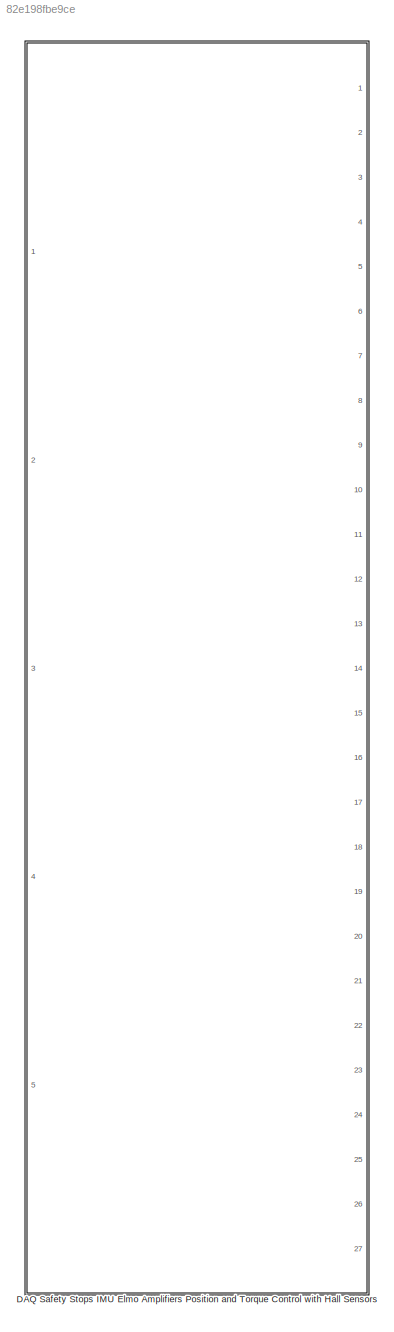
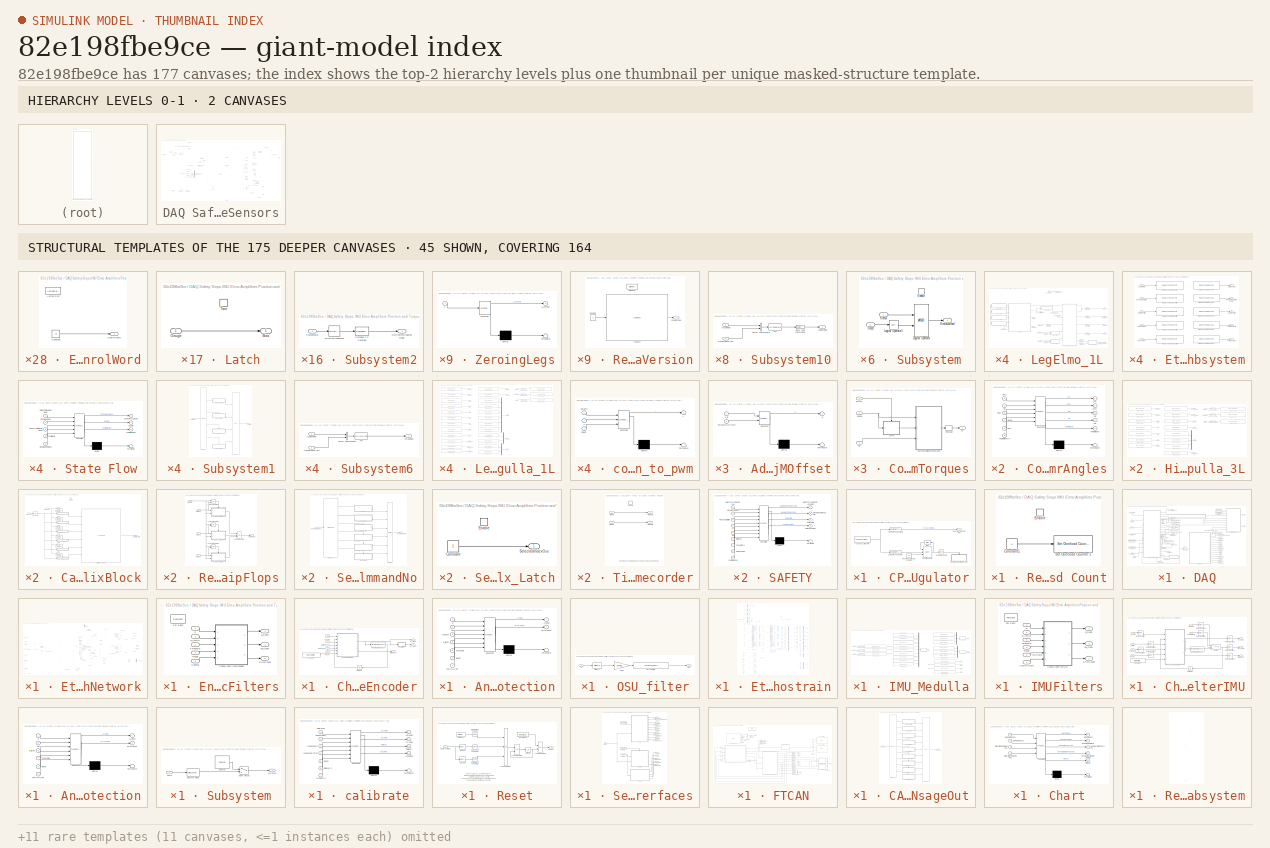
[diagram: thumbnail index - top-2 hierarchy levels (2 canvases) + 45 structural-template representatives of the remaining 175 canvases]
MODEL slx_82e198fbe9ce
KIND library
BLOCK [SubSystem] DAQ Safety Stops IMU Elmo Amplifiers Position and Torque Control with Hall Sensors
  AncestorBlock = DAQ_lib/DAQ\nSafety Stops\nIMU\nElmo Amplifiers\nPosition and Torque Control with Hall Sensors
  Ports = [5, 27]
  RequestExecContextInheritance = off
BLOCK [SubSystem] DAQ Safety Stops IMU Elmo Amplifiers Position and Torque Control with Hall Sensors/AdjustForCOMOffset
  ErrorFcn = Stateflow.Translate.translate
  PermitHierarchicalResolution = ExplicitOnly
  Ports = [2, 1]
  RequestExecContextInheritance = off
  SFBlockType = MATLAB Function
  TreatAsAtomicUnit = on
BLOCK [Demux] DAQ Safety Stops IMU Elmo Amplifiers Position and Torque Control with Hall Sensors/AdjustForCOMOffset/ Demux 
  Outputs = 1
  Ports = [1, 1]
BLOCK [S-Function] DAQ Safety Stops IMU Elmo Amplifiers Position and Torque Control with Hall Sensors/AdjustForCOMOffset/ SFunction 
  EnableBusSupport = off
  FunctionName = sf_sfun
  PortCounts = [2 2]
  Ports = [2, 2]
  Tag = Stateflow S-Function DAQ_lib_HallPositionTorque 59
BLOCK [Terminator] DAQ Safety Stops IMU Elmo Amplifiers Position and Torque Control with Hall Sensors/AdjustForCOMOffset/ Terminator 
BLOCK [Inport] DAQ Safety Stops IMU Elmo Amplifiers Position and Torque Control with Hall Sensors/AdjustForCOMOffset/TorsoCOMOffsets
  IconDisplay = Port number
  Port = 2
BLOCK [Outport] DAQ Safety Stops IMU Elmo Amplifiers Position and Torque Control with Hall Sensors/AdjustForCOMOffset/q
  IconDisplay = Port number
BLOCK [Inport] DAQ Safety Stops IMU Elmo Amplifiers Position and Torque Control with Hall Sensors/AdjustForCOMOffset/q_in
  IconDisplay = Port number
BLOCK [Outport] DAQ Safety Stops IMU Elmo Amplifiers Position and Torque Control with Hall Sensors/AnomalyCounts
  IconDisplay = Port number
  Port = 12
BLOCK [SubSystem] DAQ Safety Stops IMU Elmo Amplifiers Position and Torque Control with Hall Sensors/CPU Overload Regulator
  Ports = [0, 1]
  RequestExecContextInheritance = off
BLOCK [Bias] DAQ Safety Stops IMU Elmo Amplifiers Position and Torque Control with Hall Sensors/CPU Overload Regulator/Bias
  Bias = -1
  SaturateOnIntegerOverflow = off
BLOCK [Reference] DAQ Safety Stops IMU Elmo Amplifiers Position and Torque Control with Hall Sensors/CPU Overload Regulator/Compare To Constant  REF=simulink/Logic and Bit
Operations/Compare
To Constant
  OutDataTypeStr = boolean
  Ports = [1, 1]
  SourceBlock = simulink/Logic and Bit\nOperations/Compare\nTo Constant
  SourceType = Compare To Constant
  ZeroCross = on
  const = Ts
  relop = >=
BLOCK [Reference] DAQ Safety Stops IMU Elmo Amplifiers Position and Torque Control with Hall Sensors/CPU Overload Regulator/Compare To Constant1  REF=simulink/Logic and Bit
Operations/Compare
To Constant
  OutDataTypeStr = boolean
  Ports = [1, 1]
  SourceBlock = simulink/Logic and Bit\nOperations/Compare\nTo Constant
  SourceType = Compare To Constant
  ZeroCross = on
  const = Ts*10
  relop = >=
BLOCK [Reference] DAQ Safety Stops IMU Elmo Amplifiers Position and Torque Control with Hall Sensors/CPU Overload Regulator/Compare To Zero  REF=simulink/Logic and Bit
Operations/Compare
To Zero
  OutDataTypeStr = boolean
  Ports = [1, 1]
  SourceBlock = simulink/Logic and Bit\nOperations/Compare\nTo Zero
  SourceType = Compare To Zero
  ZeroCross = on
  relop = ==
BLOCK [Outport] DAQ Safety Stops IMU Elmo Amplifiers Position and Torque Control with Hall Sensors/CPU Overload Regulator/ExecutionTimeSoftStop
  IconDisplay = Port number
BLOCK [SubSystem] DAQ Safety Stops IMU Elmo Amplifiers Position and Torque Control with Hall Sensors/CPU Overload Regulator/Reset CPU Overload Count
  Ports = [0, 0, 1]
  RequestExecContextInheritance = off
  TreatAsAtomicUnit = on
BLOCK [Constant] DAQ Safety Stops IMU Elmo Amplifiers Position and Torque Control with Hall Sensors/CPU Overload Regulator/Reset CPU Overload Count/Constant1
  Value = 0
BLOCK [EnablePort] DAQ Safety Stops IMU Elmo Amplifiers Position and Torque Control with Hall Sensors/CPU Overload Regulator/Reset CPU Overload Count/Enable
  Ports = []
BLOCK [Reference] DAQ Safety Stops IMU Elmo Amplifiers Position and Torque Control with Hall Sensors/CPU Overload Regulator/Reset CPU Overload Count/Set Overload Counter 1  REF=slrtlib/Target
Management/Execution
Parameters/Set Overload
Counter 
  Ports = [1]
  SourceBlock = slrtlib/Target\nManagement/Execution\nParameters/Set Overload\nCounter
  SourceType = setoverload
  ts = -1
BLOCK [Constant] DAQ Safety Stops IMU Elmo Amplifiers Position and Torque Control with Hall Sensors/CPU Overload Regulator/ResetExecutionDelaySteps
  SampleTime = Ts
  Value = 50
BLOCK [Delay] DAQ Safety Stops IMU Elmo Amplifiers Position and Torque Control with Hall Sensors/CPU Overload Regulator/Resettable Delay
  DelayLength = 1
  ExternalReset = Level hold
  InitialConditionSource = Input port
  InputPortMap = u0,r5,p4
  Ports = [3, 1]
BLOCK [Reference] DAQ Safety Stops IMU Elmo Amplifiers Position and Torque Control with Hall Sensors/CPU Overload Regulator/Task Execution Time   REF=slrtlib/Target
Management/Execution
Parameters/Task Execution
Time 
  Ports = [0, 1]
  SourceBlock = slrtlib/Target\nManagement/Execution\nParameters/Task Execution\nTime
  SourceType = xpctet
  ts = Ts
BLOCK [Outport] DAQ Safety Stops IMU Elmo Amplifiers Position and Torque Control with Hall Sensors/CPUOverloadRegulator
  IconDisplay = Port number
  Port = 17
BLOCK [Outport] DAQ Safety Stops IMU Elmo Amplifiers Position and Torque Control with Hall Sensors/Counters
  IconDisplay = Port number
  Port = 6
BLOCK [Outport] DAQ Safety Stops IMU Elmo Amplifiers Position and Torque Control with Hall Sensors/CurrentActual
  IconDisplay = Port number
  Port = 23
BLOCK [Constant] DAQ Safety Stops IMU Elmo Amplifiers Position and Torque Control with Hall Sensors/CurrentSaturation
  Value = 50
BLOCK [SubSystem] DAQ Safety Stops IMU Elmo Amplifiers Position and Torque Control with Hall Sensors/DAQ
  Ports = [6, 35]
  RequestExecContextInheritance = off
BLOCK [Outport] DAQ Safety Stops IMU Elmo Amplifiers Position and Torque Control with Hall Sensors/DAQ/AbsoluteEncoderTimestamps
  IconDisplay = Port number
  Port = 8
BLOCK [Outport] DAQ Safety Stops IMU Elmo Amplifiers Position and Torque Control with Hall Sensors/DAQ/AnomalyCounts
  IconDisplay = Port number
  Port = 24
BLOCK [Outport] DAQ Safety Stops IMU Elmo Amplifiers Position and Torque Control with Hall Sensors/DAQ/CalibrationSerial
  IconDisplay = Port number
  Port = 23
BLOCK [Outport] DAQ Safety Stops IMU Elmo Amplifiers Position and Torque Control with Hall Sensors/DAQ/Counters
  IconDisplay = Port number
  Port = 7
BLOCK [Outport] DAQ Safety Stops IMU Elmo Amplifiers Position and Torque Control with Hall Sensors/DAQ/CurrentActual
  IconDisplay = Port number
  Port = 31
BLOCK [Outport] DAQ Safety Stops IMU Elmo Amplifiers Position and Torque Control with Hall Sensors/DAQ/ElmoMotorPosition
  IconDisplay = Port number
  Port = 35
BLOCK [Outport] DAQ Safety Stops IMU Elmo Amplifiers Position and Torque Control with Hall Sensors/DAQ/EncoderAnglesClean
  IconDisplay = Port number
  Port = 28
BLOCK [Outport] DAQ Safety Stops IMU Elmo Amplifiers Position and Torque Control with Hall Sensors/DAQ/EncoderAnglesDirty
  IconDisplay = Port number
  Port = 27
BLOCK [Outport] DAQ Safety Stops IMU Elmo Amplifiers Position and Torque Control with Hall Sensors/DAQ/EncoderTicks
  IconDisplay = Port number
  Port = 34
BLOCK [Outport] DAQ Safety Stops IMU Elmo Amplifiers Position and Torque Control with Hall Sensors/DAQ/ErrorFlags
  IconDisplay = Port number
  Port = 5
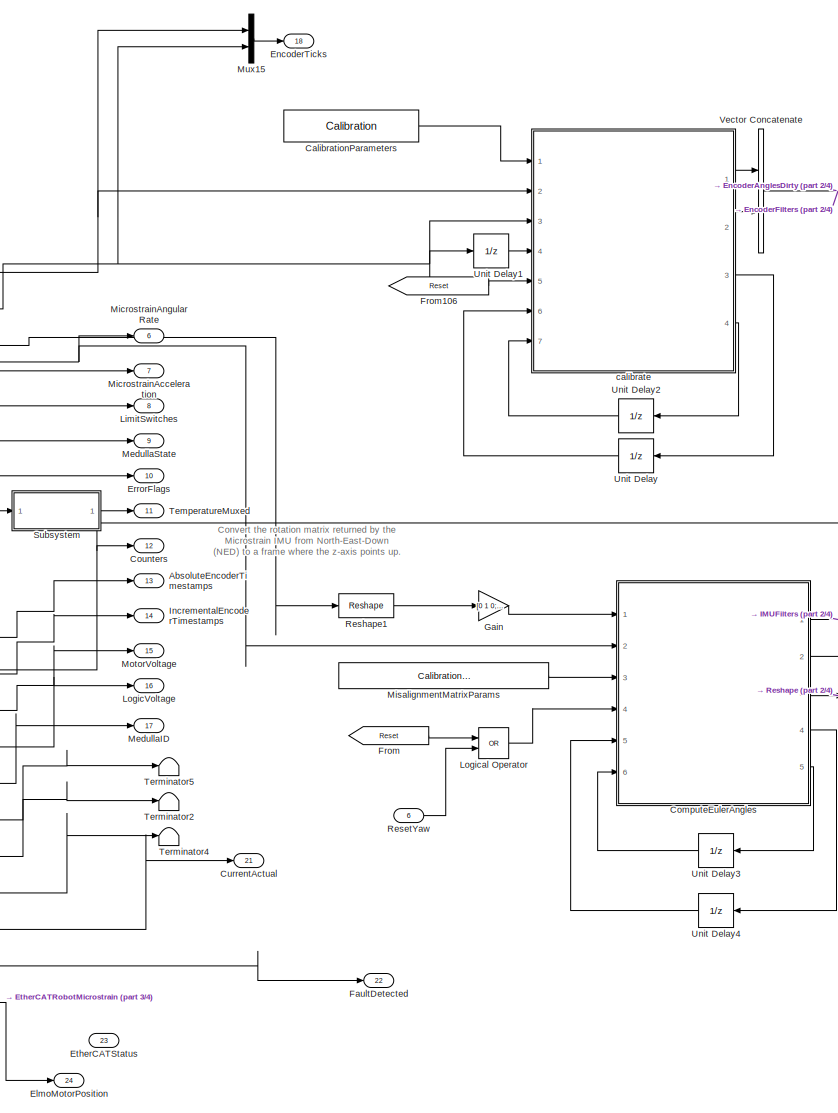
[diagram: DAQ Safety Stops IMU Elmo Amplifiers Position and Torque Control with Hall Sensors/DAQ/EtherCATNetwork - part 1/4, center side, full height]
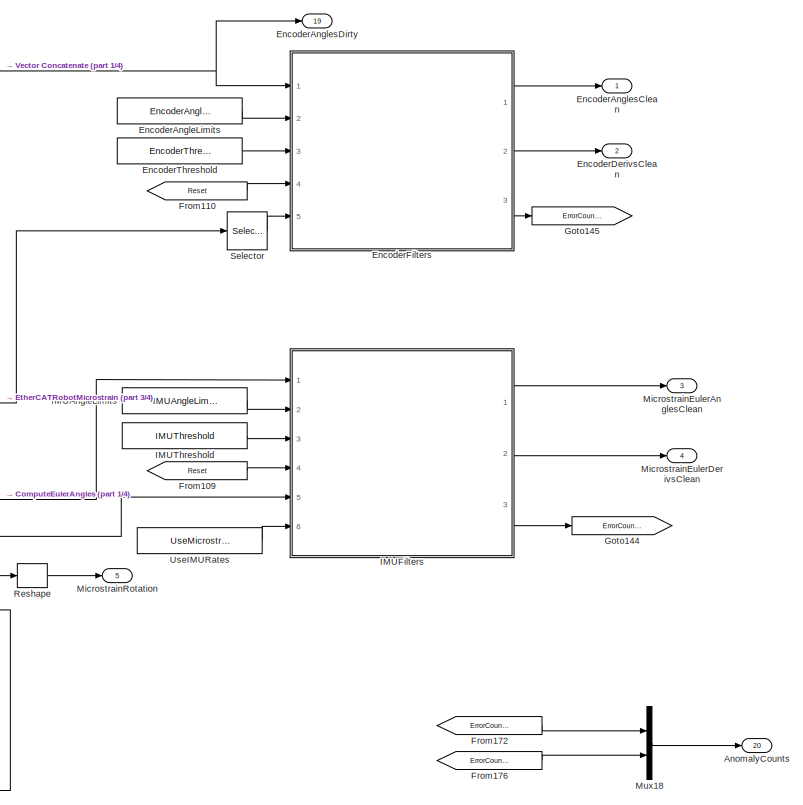
[diagram: DAQ Safety Stops IMU Elmo Amplifiers Position and Torque Control with Hall Sensors/DAQ/EtherCATNetwork - part 2/4, middle right region]
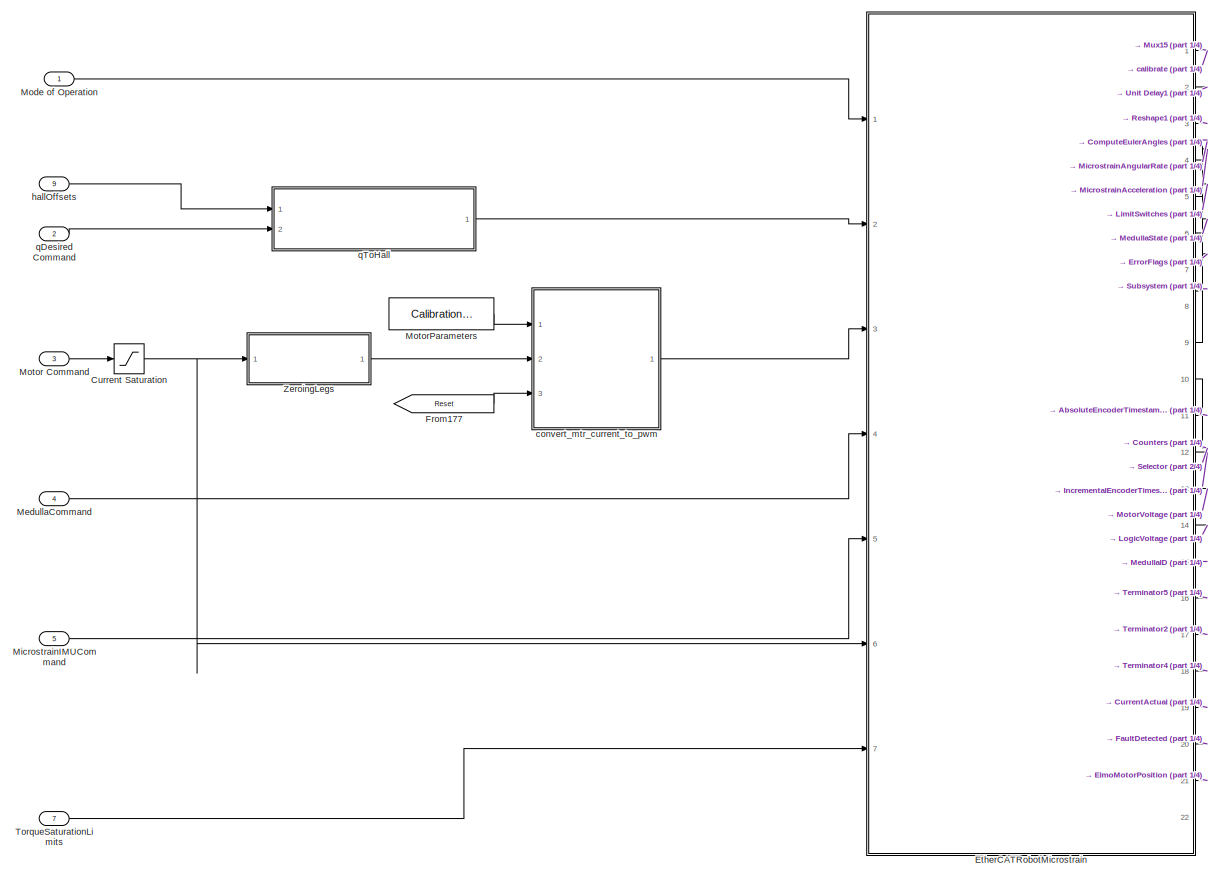
[diagram: DAQ Safety Stops IMU Elmo Amplifiers Position and Torque Control with Hall Sensors/DAQ/EtherCATNetwork - part 3/4, middle left region]
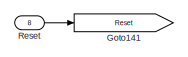
[diagram: DAQ Safety Stops IMU Elmo Amplifiers Position and Torque Control with Hall Sensors/DAQ/EtherCATNetwork - part 4/4, bottom left region]
BLOCK [SubSystem] DAQ Safety Stops IMU Elmo Amplifiers Position and Torque Control with Hall Sensors/DAQ/EtherCATNetwork
  Ports = [9, 24]
  RequestExecContextInheritance = off
BLOCK [Outport] DAQ Safety Stops IMU Elmo Amplifiers Position and Torque Control with Hall Sensors/DAQ/EtherCATNetwork/AbsoluteEncoderTimestamps
  IconDisplay = Port number
  Port = 13
BLOCK [Outport] DAQ Safety Stops IMU Elmo Amplifiers Position and Torque Control with Hall Sensors/DAQ/EtherCATNetwork/AnomalyCounts
  IconDisplay = Port number
  Port = 20
BLOCK [Constant] DAQ Safety Stops IMU Elmo Amplifiers Position and Torque Control with Hall Sensors/DAQ/EtherCATNetwork/CalibrationParameters
  OutDataTypeStr = Bus: RobotCalibrationBus
  Value = Calibration
BLOCK [SubSystem] DAQ Safety Stops IMU Elmo Amplifiers Position and Torque Control with Hall Sensors/DAQ/EtherCATNetwork/ComputeEulerAngles
  ErrorFcn = Stateflow.Translate.translate
  PermitHierarchicalResolution = ExplicitOnly
  Ports = [6, 5]
  RequestExecContextInheritance = off
  SFBlockType = MATLAB Function
  TreatAsAtomicUnit = on
BLOCK [Demux] DAQ Safety Stops IMU Elmo Amplifiers Position and Torque Control with Hall Sensors/DAQ/EtherCATNetwork/ComputeEulerAngles/ Demux 
  Outputs = 1
  Ports = [1, 1]
BLOCK [S-Function] DAQ Safety Stops IMU Elmo Amplifiers Position and Torque Control with Hall Sensors/DAQ/EtherCATNetwork/ComputeEulerAngles/ SFunction 
  EnableBusSupport = off
  FunctionName = sf_sfun
  PortCounts = [6 6]
  Ports = [6, 6]
  Tag = Stateflow S-Function DAQ_lib_HallPositionTorque 60
BLOCK [Terminator] DAQ Safety Stops IMU Elmo Amplifiers Position and Torque Control with Hall Sensors/DAQ/EtherCATNetwork/ComputeEulerAngles/ Terminator 
BLOCK [Outport] DAQ Safety Stops IMU Elmo Amplifiers Position and Torque Control with Hall Sensors/DAQ/EtherCATNetwork/ComputeEulerAngles/R0
  IconDisplay = Port number
  Port = 4
BLOCK [Inport] DAQ Safety Stops IMU Elmo Amplifiers Position and Torque Control with Hall Sensors/DAQ/EtherCATNetwork/ComputeEulerAngles/R0In
  IconDisplay = Port number
  Port = 5
BLOCK [Inport] DAQ Safety Stops IMU Elmo Amplifiers Position and Torque Control with Hall Sensors/DAQ/EtherCATNetwork/ComputeEulerAngles/RCal
  IconDisplay = Port number
  Port = 3
BLOCK [Inport] DAQ Safety Stops IMU Elmo Amplifiers Position and Torque Control with Hall Sensors/DAQ/EtherCATNetwork/ComputeEulerAngles/Reset
  IconDisplay = Port number
  Port = 4
BLOCK [Outport] DAQ Safety Stops IMU Elmo Amplifiers Position and Torque Control with Hall Sensors/DAQ/EtherCATNetwork/ComputeEulerAngles/Rk
  IconDisplay = Port number
  Port = 3
BLOCK [Inport] DAQ Safety Stops IMU Elmo Amplifiers Position and Torque Control with Hall Sensors/DAQ/EtherCATNetwork/ComputeEulerAngles/RkIn
  IconDisplay = Port number
BLOCK [Outport] DAQ Safety Stops IMU Elmo Amplifiers Position and Torque Control with Hall Sensors/DAQ/EtherCATNetwork/ComputeEulerAngles/YawRollover
  IconDisplay = Port number
  Port = 5
BLOCK [Inport] DAQ Safety Stops IMU Elmo Amplifiers Position and Torque Control with Hall Sensors/DAQ/EtherCATNetwork/ComputeEulerAngles/YawRolloverIn
  IconDisplay = Port number
  Port = 6
BLOCK [Outport] DAQ Safety Stops IMU Elmo Amplifiers Position and Torque Control with Hall Sensors/DAQ/EtherCATNetwork/ComputeEulerAngles/ZYX
  IconDisplay = Port number
BLOCK [Outport] DAQ Safety Stops IMU Elmo Amplifiers Position and Torque Control with Hall Sensors/DAQ/EtherCATNetwork/ComputeEulerAngles/dZYX
  IconDisplay = Port number
  Port = 2
BLOCK [Inport] DAQ Safety Stops IMU Elmo Amplifiers Position and Torque Control with Hall Sensors/DAQ/EtherCATNetwork/ComputeEulerAngles/wk
  IconDisplay = Port number
  Port = 2
BLOCK [Outport] DAQ Safety Stops IMU Elmo Amplifiers Position and Torque Control with Hall Sensors/DAQ/EtherCATNetwork/Counters
  IconDisplay = Port number
  Port = 12
BLOCK [Saturate] DAQ Safety Stops IMU Elmo Amplifiers Position and Torque Control with Hall Sensors/DAQ/EtherCATNetwork/Current Saturation
  InputPortMap = u0
  LowerLimit = -50
  Ports = [1, 1]
  UpperLimit = 50
BLOCK [Outport] DAQ Safety Stops IMU Elmo Amplifiers Position and Torque Control with Hall Sensors/DAQ/EtherCATNetwork/CurrentActual
  IconDisplay = Port number
  Port = 21
BLOCK [Outport] DAQ Safety Stops IMU Elmo Amplifiers Position and Torque Control with Hall Sensors/DAQ/EtherCATNetwork/ElmoMotorPosition
  IconDisplay = Port number
  Port = 24
BLOCK [Constant] DAQ Safety Stops IMU Elmo Amplifiers Position and Torque Control with Hall Sensors/DAQ/EtherCATNetwork/EncoderAngleLimits
  Value = EncoderAngleLimits
BLOCK [Outport] DAQ Safety Stops IMU Elmo Amplifiers Position and Torque Control with Hall Sensors/DAQ/EtherCATNetwork/EncoderAnglesClean
  IconDisplay = Port number
BLOCK [Outport] DAQ Safety Stops IMU Elmo Amplifiers Position and Torque Control with Hall Sensors/DAQ/EtherCATNetwork/EncoderAnglesDirty
  IconDisplay = Port number
  Port = 19
BLOCK [Outport] DAQ Safety Stops IMU Elmo Amplifiers Position and Torque Control with Hall Sensors/DAQ/EtherCATNetwork/EncoderDerivsClean
  IconDisplay = Port number
  Port = 2
BLOCK [SubSystem] DAQ Safety Stops IMU Elmo Amplifiers Position and Torque Control with Hall Sensors/DAQ/EtherCATNetwork/EncoderFilters
  Ports = [5, 3]
  RequestExecContextInheritance = off
  TreatAsAtomicUnit = on
BLOCK [SubSystem] DAQ Safety Stops IMU Elmo Amplifiers Position and Torque Control with Hall Sensors/DAQ/EtherCATNetwork/EncoderFilters/CheckAndFilterEncoder
  Ports = [5, 3]
  RequestExecContextInheritance = off
BLOCK [SubSystem] DAQ Safety Stops IMU Elmo Amplifiers Position and Torque Control with Hall Sensors/DAQ/EtherCATNetwork/EncoderFilters/CheckAndFilterEncoder/AnomalyDetection
  ErrorFcn = Stateflow.Translate.translate
  PermitHierarchicalResolution = ExplicitOnly
  Ports = [7, 2]
  RequestExecContextInheritance = off
  SFBlockType = Chart
  SystemSampleTime = EncoderFiltSys.dt
  TreatAsAtomicUnit = on
BLOCK [Demux] DAQ Safety Stops IMU Elmo Amplifiers Position and Torque Control with Hall Sensors/DAQ/EtherCATNetwork/EncoderFilters/CheckAndFilterEncoder/AnomalyDetection/ Demux 
  Outputs = 1
  Ports = [1, 1]
BLOCK [S-Function] DAQ Safety Stops IMU Elmo Amplifiers Position and Torque Control with Hall Sensors/DAQ/EtherCATNetwork/EncoderFilters/CheckAndFilterEncoder/AnomalyDetection/ SFunction 
  EnableBusSupport = off
  FunctionName = sf_sfun
  Parameters = ANOMALY_INIT,MAX_ANOMALY
  PortCounts = [7 3]
  Ports = [7, 3]
  Tag = Stateflow S-Function DAQ_lib_HallPositionTorque 61
BLOCK [Terminator] DAQ Safety Stops IMU Elmo Amplifiers Position and Torque Control with Hall Sensors/DAQ/EtherCATNetwork/EncoderFilters/CheckAndFilterEncoder/AnomalyDetection/ Terminator 
BLOCK [Inport] DAQ Safety Stops IMU Elmo Amplifiers Position and Torque Control with Hall Sensors/DAQ/EtherCATNetwork/EncoderFilters/CheckAndFilterEncoder/AnomalyDetection/ANOMALY_DT
  IconDisplay = Port number
  Port = 7
BLOCK [Inport] DAQ Safety Stops IMU Elmo Amplifiers Position and Torque Control with Hall Sensors/DAQ/EtherCATNetwork/EncoderFilters/CheckAndFilterEncoder/AnomalyDetection/Counter
  IconDisplay = Port number
  Port = 3
BLOCK [Outport] DAQ Safety Stops IMU Elmo Amplifiers Position and Torque Control with Hall Sensors/DAQ/EtherCATNetwork/EncoderFilters/CheckAndFilterEncoder/AnomalyDetection/ErrorCount
  IconDisplay = Port number
  Port = 2
BLOCK [Inport] DAQ Safety Stops IMU Elmo Amplifiers Position and Torque Control with Hall Sensors/DAQ/EtherCATNetwork/EncoderFilters/CheckAndFilterEncoder/AnomalyDetection/Reset
  IconDisplay = Port number
  Port = 6
BLOCK [Inport] DAQ Safety Stops IMU Elmo Amplifiers Position and Torque Control with Hall Sensors/DAQ/EtherCATNetwork/EncoderFilters/CheckAndFilterEncoder/AnomalyDetection/Threshold
  IconDisplay = Port number
  Port = 5
BLOCK [Inport] DAQ Safety Stops IMU Elmo Amplifiers Position and Torque Control with Hall Sensors/DAQ/EtherCATNetwork/EncoderFilters/CheckAndFilterEncoder/AnomalyDetection/dq
  IconDisplay = Port number
  Port = 2
BLOCK [Inport] DAQ Safety Stops IMU Elmo Amplifiers Position and Torque Control with Hall Sensors/DAQ/EtherCATNetwork/EncoderFilters/CheckAndFilterEncoder/AnomalyDetection/q
  IconDisplay = Port number
BLOCK [Outport] DAQ Safety Stops IMU Elmo Amplifiers Position and Torque Control with Hall Sensors/DAQ/EtherCATNetwork/EncoderFilters/CheckAndFilterEncoder/AnomalyDetection/q_clean
  IconDisplay = Port number
BLOCK [Inport] DAQ Safety Stops IMU Elmo Amplifiers Position and Torque Control with Hall Sensors/DAQ/EtherCATNetwork/EncoderFilters/CheckAndFilterEncoder/AnomalyDetection/q_limits
  IconDisplay = Port number
  Port = 4
BLOCK [Constant] DAQ Safety Stops IMU Elmo Amplifiers Position and Torque Control with Hall Sensors/DAQ/EtherCATNetwork/EncoderFilters/CheckAndFilterEncoder/Constant
  Value = EncoderFiltSys.dt
BLOCK [Inport] DAQ Safety Stops IMU Elmo Amplifiers Position and Torque Control with Hall Sensors/DAQ/EtherCATNetwork/EncoderFilters/CheckAndFilterEncoder/Counter
  IconDisplay = Port number
  Port = 5
BLOCK [DiscreteStateSpace] DAQ Safety Stops IMU Elmo Amplifiers Position and Torque Control with Hall Sensors/DAQ/EtherCATNetwork/EncoderFilters/CheckAndFilterEncoder/Discrete State-Space
  A = EncoderFiltSys.A
  B = EncoderFiltSys.B
  C = EncoderFiltSys.C
  D = EncoderFiltSys.D
  SampleTime = EncoderFiltSys.dt
  X0 = EncoderFiltSys.x0
BLOCK [Outport] DAQ Safety Stops IMU Elmo Amplifiers Position and Torque Control with Hall Sensors/DAQ/EtherCATNetwork/EncoderFilters/CheckAndFilterEncoder/ErrorCount
  IconDisplay = Port number
  Port = 3
BLOCK [SubSystem] DAQ Safety Stops IMU Elmo Amplifiers Position and Torque Control with Hall Sensors/DAQ/EtherCATNetwork/EncoderFilters/CheckAndFilterEncoder/OSU_filter
  Ports = [1, 1]
  RequestExecContextInheritance = off
BLOCK [Gain] DAQ Safety Stops IMU Elmo Amplifiers Position and Torque Control with Hall Sensors/DAQ/EtherCATNetwork/EncoderFilters/CheckAndFilterEncoder/OSU_filter/Gain1
  Gain = 1/sample_time
  OutDataTypeStr = Inherit: Inherit via internal rule
  ParamDataTypeStr = Inherit: Inherit via internal rule
  SaturateOnIntegerOverflow = off
BLOCK [Reference] DAQ Safety Stops IMU Elmo Amplifiers Position and Torque Control with Hall Sensors/DAQ/EtherCATNetwork/EncoderFilters/CheckAndFilterEncoder/OSU_filter/difference  REF=simulink/Discrete/Difference
  DoSatur = off
  ICPrevInput = 0
  InputProcessing = Columns as channels (frame based)
  LockScale = off
  OutDataType = fixdt(1, 16)
  OutDataTypeStr = Inherit: Inherit via internal rule
  OutMax = []
  OutMin = []
  OutScaling = 2^-10
  OutputDataTypeScalingMode = Inherit via internal rule
  Ports = [1, 1]
  RndMeth = Floor
  SourceBlock = simulink/Discrete/Difference
  SourceType = Difference
BLOCK [Outport] DAQ Safety Stops IMU Elmo Amplifiers Position and Torque Control with Hall Sensors/DAQ/EtherCATNetwork/EncoderFilters/CheckAndFilterEncoder/OSU_filter/dq
  IconDisplay = Port number
BLOCK [Inport] DAQ Safety Stops IMU Elmo Amplifiers Position and Torque Control with Hall Sensors/DAQ/EtherCATNetwork/EncoderFilters/CheckAndFilterEncoder/OSU_filter/q
  IconDisplay = Port number
BLOCK [DiscreteTransferFcn] DAQ Safety Stops IMU Elmo Amplifiers Position and Torque Control with Hall Sensors/DAQ/EtherCATNetwork/EncoderFilters/CheckAndFilterEncoder/OSU_filter/two_pole_filter
  Denominator = [1 B1_lpf_velocity B2_lpf_velocity]
  InputPortMap = u0
  Numerator = [A_lpf_velocity 0 0]
  Ports = [1, 1]
  SampleTime = sample_time
BLOCK [Inport] DAQ Safety Stops IMU Elmo Amplifiers Position and Torque Control with Hall Sensors/DAQ/EtherCATNetwork/EncoderFilters/CheckAndFilterEncoder/Reset
  IconDisplay = Port number
  Port = 4
BLOCK [Inport] DAQ Safety Stops IMU Elmo Amplifiers Position and Torque Control with Hall Sensors/DAQ/EtherCATNetwork/EncoderFilters/CheckAndFilterEncoder/Threshold
  IconDisplay = Port number
  Port = 3
BLOCK [UnitDelay] DAQ Safety Stops IMU Elmo Amplifiers Position and Torque Control with Hall Sensors/DAQ/EtherCATNetwork/EncoderFilters/CheckAndFilterEncoder/Unit Delay
  InputProcessing = Elements as channels (sample based)
  SampleTime = EncoderFiltSys.dt
BLOCK [Outport] DAQ Safety Stops IMU Elmo Amplifiers Position and Torque Control with Hall Sensors/DAQ/EtherCATNetwork/EncoderFilters/CheckAndFilterEncoder/dq_clean
  IconDisplay = Port number
  Port = 2
BLOCK [Outport] DAQ Safety Stops IMU Elmo Amplifiers Position and Torque Control with Hall Sensors/DAQ/EtherCATNetwork/EncoderFilters/CheckAndFilterEncoder/q_clean
  IconDisplay = Port number
BLOCK [Inport] DAQ Safety Stops IMU Elmo Amplifiers Position and Torque Control with Hall Sensors/DAQ/EtherCATNetwork/EncoderFilters/CheckAndFilterEncoder/q_daq
  IconDisplay = Port number
BLOCK [Inport] DAQ Safety Stops IMU Elmo Amplifiers Position and Torque Control with Hall Sensors/DAQ/EtherCATNetwork/EncoderFilters/CheckAndFilterEncoder/q_limits
  IconDisplay = Port number
  Port = 2
BLOCK [Inport] DAQ Safety Stops IMU Elmo Amplifiers Position and Torque Control with Hall Sensors/DAQ/EtherCATNetwork/EncoderFilters/Counter
  IconDisplay = Port number
  Partition = on
  PartitionDimension = 1
  PartitionWidth = 1
  Port = 5
BLOCK [Outport] DAQ Safety Stops IMU Elmo Amplifiers Position and Torque Control with Hall Sensors/DAQ/EtherCATNetwork/EncoderFilters/ErrorCount
  ConcatenationDimension = 1
  IconDisplay = Port number
  Port = 3
BLOCK [ForEach] DAQ Safety Stops IMU Elmo Amplifiers Position and Torque Control with Hall Sensors/DAQ/EtherCATNetwork/EncoderFilters/For Each
  DisableCoverage = on
  IndexMode = One-based
  Ports = []
BLOCK [Inport] DAQ Safety Stops IMU Elmo Amplifiers Position and Torque Control with Hall Sensors/DAQ/EtherCATNetwork/EncoderFilters/Reset
  IconDisplay = Port number
  Partition = off
  Port = 4
BLOCK [Inport] DAQ Safety Stops IMU Elmo Amplifiers Position and Torque Control with Hall Sensors/DAQ/EtherCATNetwork/EncoderFilters/Threshold
  IconDisplay = Port number
  Partition = on
  PartitionDimension = 1
  PartitionWidth = 1
  Port = 3
BLOCK [Outport] DAQ Safety Stops IMU Elmo Amplifiers Position and Torque Control with Hall Sensors/DAQ/EtherCATNetwork/EncoderFilters/dq_clean
  ConcatenationDimension = 1
  IconDisplay = Port number
  Port = 2
BLOCK [Inport] DAQ Safety Stops IMU Elmo Amplifiers Position and Torque Control with Hall Sensors/DAQ/EtherCATNetwork/EncoderFilters/q
  IconDisplay = Port number
  Partition = on
  PartitionDimension = 1
  PartitionWidth = 1
BLOCK [Outport] DAQ Safety Stops IMU Elmo Amplifiers Position and Torque Control with Hall Sensors/DAQ/EtherCATNetwork/EncoderFilters/q_clean
  ConcatenationDimension = 1
  IconDisplay = Port number
BLOCK [Inport] DAQ Safety Stops IMU Elmo Amplifiers Position and Torque Control with Hall Sensors/DAQ/EtherCATNetwork/EncoderFilters/q_limits
  IconDisplay = Port number
  Partition = on
  PartitionDimension = 1
  PartitionWidth = 1
  Port = 2
BLOCK [Constant] DAQ Safety Stops IMU Elmo Amplifiers Position and Torque Control with Hall Sensors/DAQ/EtherCATNetwork/EncoderThreshold
  Value = EncoderThreshold
BLOCK [Outport] DAQ Safety Stops IMU Elmo Amplifiers Position and Torque Control with Hall Sensors/DAQ/EtherCATNetwork/EncoderTicks
  IconDisplay = Port number
  Port = 18
BLOCK [Outport] DAQ Safety Stops IMU Elmo Amplifiers Position and Torque Control with Hall Sensors/DAQ/EtherCATNetwork/ErrorFlags
  IconDisplay = Port number
  Port = 10
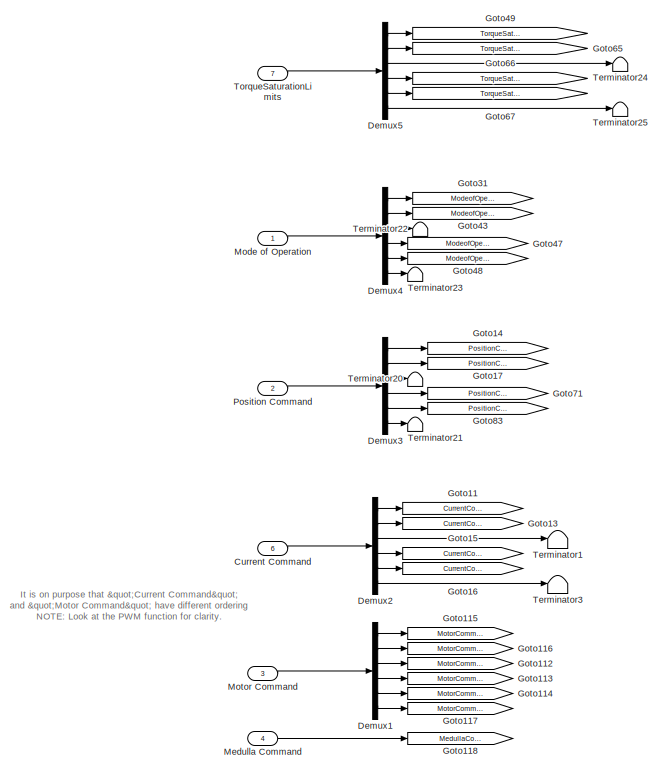
[diagram: DAQ Safety Stops IMU Elmo Amplifiers Position and Torque Control with Hall Sensors/DAQ/EtherCATNetwork/EtherCATRobotMicrostrain - part 1/7, top left region]
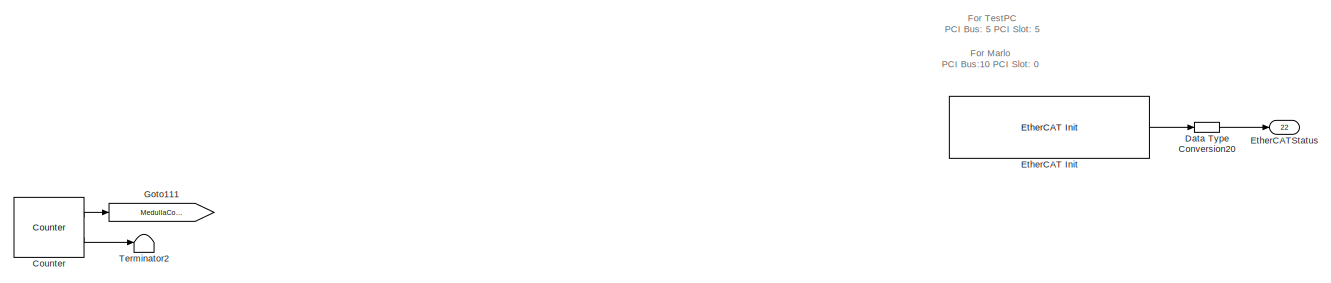
[diagram: DAQ Safety Stops IMU Elmo Amplifiers Position and Torque Control with Hall Sensors/DAQ/EtherCATNetwork/EtherCATRobotMicrostrain - part 2/7, top center region]
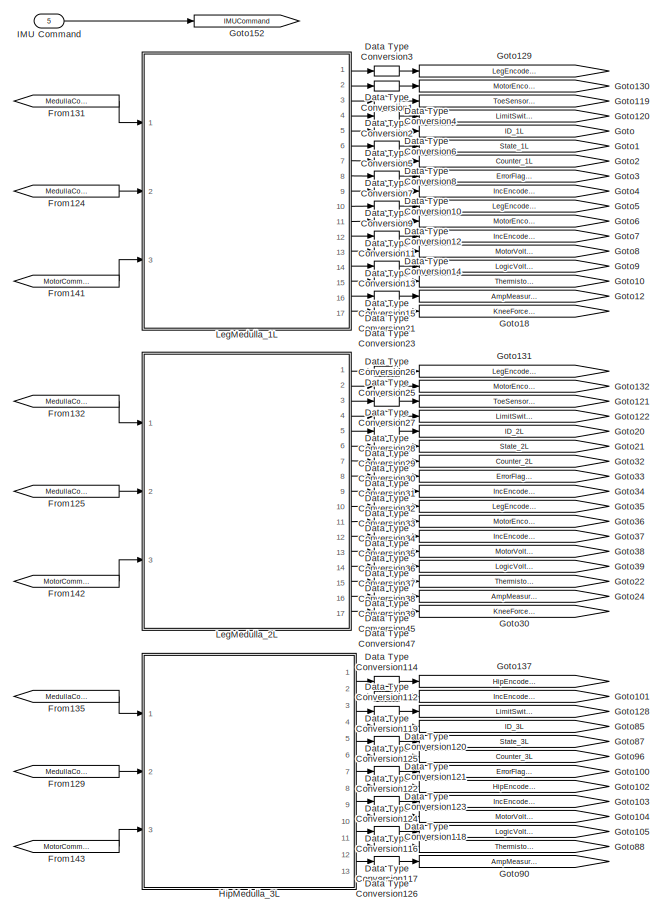
[diagram: DAQ Safety Stops IMU Elmo Amplifiers Position and Torque Control with Hall Sensors/DAQ/EtherCATNetwork/EtherCATRobotMicrostrain - part 3/7, middle left region]
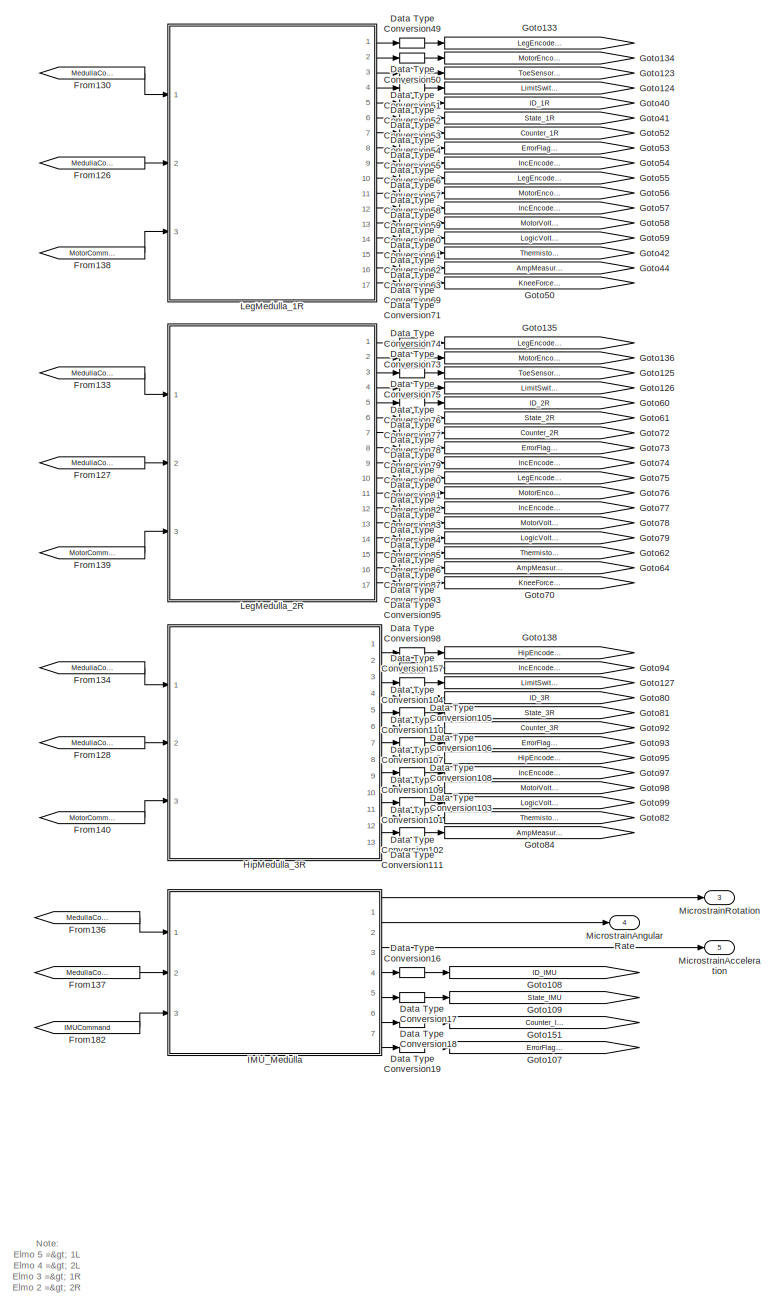
[diagram: DAQ Safety Stops IMU Elmo Amplifiers Position and Torque Control with Hall Sensors/DAQ/EtherCATNetwork/EtherCATRobotMicrostrain - part 4/7, central region]
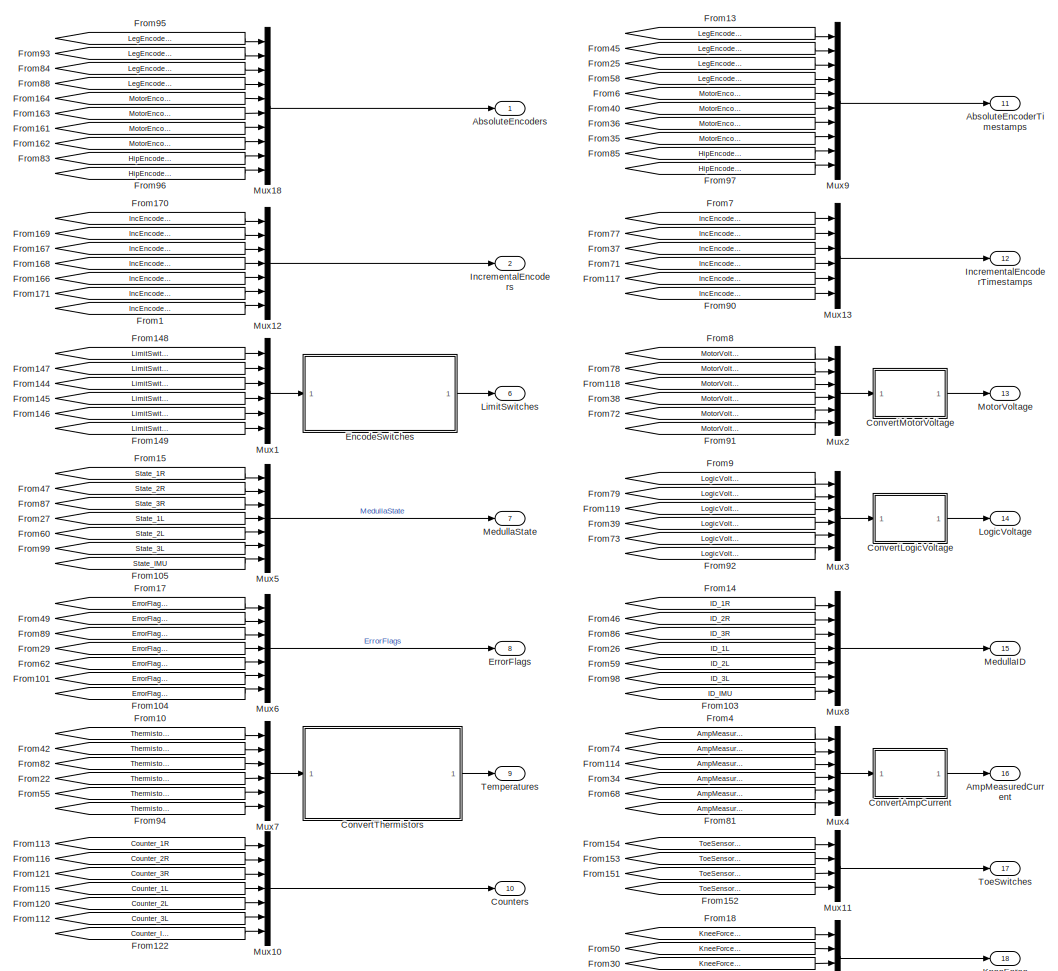
[diagram: DAQ Safety Stops IMU Elmo Amplifiers Position and Torque Control with Hall Sensors/DAQ/EtherCATNetwork/EtherCATRobotMicrostrain - part 5/7, middle right region]
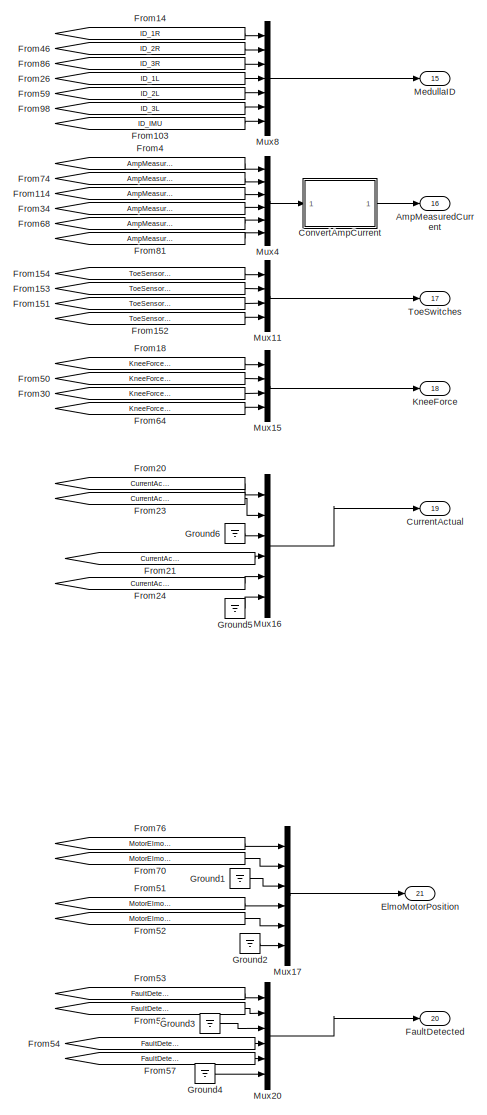
[diagram: DAQ Safety Stops IMU Elmo Amplifiers Position and Torque Control with Hall Sensors/DAQ/EtherCATNetwork/EtherCATRobotMicrostrain - part 6/7, bottom right region]
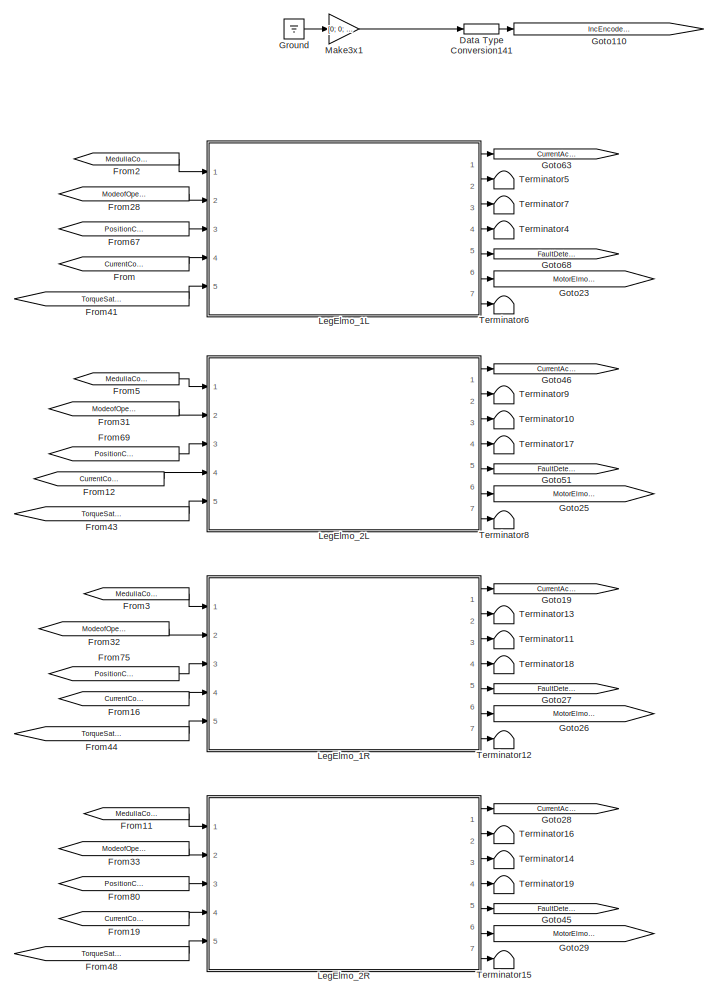
[diagram: DAQ Safety Stops IMU Elmo Amplifiers Position and Torque Control with Hall Sensors/DAQ/EtherCATNetwork/EtherCATRobotMicrostrain - part 7/7, bottom left region]
BLOCK [SubSystem] DAQ Safety Stops IMU Elmo Amplifiers Position and Torque Control with Hall Sensors/DAQ/EtherCATNetwork/EtherCATRobotMicrostrain
  Ports = [7, 22]
  RequestExecContextInheritance = off
BLOCK [Outport] DAQ Safety Stops IMU Elmo Amplifiers Position and Torque Control with Hall Sensors/DAQ/EtherCATNetwork/EtherCATRobotMicrostrain/AbsoluteEncoderTimestamps
  IconDisplay = Port number
  Port = 11
BLOCK [Outport] DAQ Safety Stops IMU Elmo Amplifiers Position and Torque Control with Hall Sensors/DAQ/EtherCATNetwork/EtherCATRobotMicrostrain/AbsoluteEncoders
  IconDisplay = Port number
BLOCK [Outport] DAQ Safety Stops IMU Elmo Amplifiers Position and Torque Control with Hall Sensors/DAQ/EtherCATNetwork/EtherCATRobotMicrostrain/AmpMeasuredCurrent
  IconDisplay = Port number
  Port = 16
BLOCK [SubSystem] DAQ Safety Stops IMU Elmo Amplifiers Position and Torque Control with Hall Sensors/DAQ/EtherCATNetwork/EtherCATRobotMicrostrain/ConvertAmpCurrent
  ErrorFcn = Stateflow.Translate.translate
  PermitHierarchicalResolution = ExplicitOnly
  Ports = [1, 1]
  RequestExecContextInheritance = off
  SFBlockType = MATLAB Function
  TreatAsAtomicUnit = on
BLOCK [Demux] DAQ Safety Stops IMU Elmo Amplifiers Position and Torque Control with Hall Sensors/DAQ/EtherCATNetwork/EtherCATRobotMicrostrain/ConvertAmpCurrent/ Demux 
  Outputs = 1
  Ports = [1, 1]
BLOCK [S-Function] DAQ Safety Stops IMU Elmo Amplifiers Position and Torque Control with Hall Sensors/DAQ/EtherCATNetwork/EtherCATRobotMicrostrain/ConvertAmpCurrent/ SFunction 
  EnableBusSupport = off
  FunctionName = sf_sfun
  PortCounts = [1 2]
  Ports = [1, 2]
  Tag = Stateflow S-Function DAQ_lib_HallPositionTorque 62
BLOCK [Terminator] DAQ Safety Stops IMU Elmo Amplifiers Position and Torque Control with Hall Sensors/DAQ/EtherCATNetwork/EtherCATRobotMicrostrain/ConvertAmpCurrent/ Terminator 
BLOCK [Inport] DAQ Safety Stops IMU Elmo Amplifiers Position and Torque Control with Hall Sensors/DAQ/EtherCATNetwork/EtherCATRobotMicrostrain/ConvertAmpCurrent/adc_value
  IconDisplay = Port number
BLOCK [Outport] DAQ Safety Stops IMU Elmo Amplifiers Position and Torque Control with Hall Sensors/DAQ/EtherCATNetwork/EtherCATRobotMicrostrain/ConvertAmpCurrent/measuredCurrent
  IconDisplay = Port number
BLOCK [SubSystem] DAQ Safety Stops IMU Elmo Amplifiers Position and Torque Control with Hall Sensors/DAQ/EtherCATNetwork/EtherCATRobotMicrostrain/ConvertLogicVoltage
  ErrorFcn = Stateflow.Translate.translate
  PermitHierarchicalResolution = ExplicitOnly
  Ports = [1, 1]
  RequestExecContextInheritance = off
  SFBlockType = MATLAB Function
  TreatAsAtomicUnit = on
BLOCK [Demux] DAQ Safety Stops IMU Elmo Amplifiers Position and Torque Control with Hall Sensors/DAQ/EtherCATNetwork/EtherCATRobotMicrostrain/ConvertLogicVoltage/ Demux 
  Outputs = 1
  Ports = [1, 1]
BLOCK [S-Function] DAQ Safety Stops IMU Elmo Amplifiers Position and Torque Control with Hall Sensors/DAQ/EtherCATNetwork/EtherCATRobotMicrostrain/ConvertLogicVoltage/ SFunction 
  EnableBusSupport = off
  FunctionName = sf_sfun
  PortCounts = [1 2]
  Ports = [1, 2]
  Tag = Stateflow S-Function DAQ_lib_HallPositionTorque 63
BLOCK [Terminator] DAQ Safety Stops IMU Elmo Amplifiers Position and Torque Control with Hall Sensors/DAQ/EtherCATNetwork/EtherCATRobotMicrostrain/ConvertLogicVoltage/ Terminator 
BLOCK [Inport] DAQ Safety Stops IMU Elmo Amplifiers Position and Torque Control with Hall Sensors/DAQ/EtherCATNetwork/EtherCATRobotMicrostrain/ConvertLogicVoltage/adc_value
  IconDisplay = Port number
BLOCK [Outport] DAQ Safety Stops IMU Elmo Amplifiers Position and Torque Control with Hall Sensors/DAQ/EtherCATNetwork/EtherCATRobotMicrostrain/ConvertLogicVoltage/logicVoltage
  IconDisplay = Port number
BLOCK [SubSystem] DAQ Safety Stops IMU Elmo Amplifiers Position and Torque Control with Hall Sensors/DAQ/EtherCATNetwork/EtherCATRobotMicrostrain/ConvertMotorVoltage
  ErrorFcn = Stateflow.Translate.translate
  PermitHierarchicalResolution = ExplicitOnly
  Ports = [1, 1]
  RequestExecContextInheritance = off
  SFBlockType = MATLAB Function
  TreatAsAtomicUnit = on
BLOCK [Demux] DAQ Safety Stops IMU Elmo Amplifiers Position and Torque Control with Hall Sensors/DAQ/EtherCATNetwork/EtherCATRobotMicrostrain/ConvertMotorVoltage/ Demux 
  Outputs = 1
  Ports = [1, 1]
BLOCK [S-Function] DAQ Safety Stops IMU Elmo Amplifiers Position and Torque Control with Hall Sensors/DAQ/EtherCATNetwork/EtherCATRobotMicrostrain/ConvertMotorVoltage/ SFunction 
  EnableBusSupport = off
  FunctionName = sf_sfun
  PortCounts = [1 2]
  Ports = [1, 2]
  Tag = Stateflow S-Function DAQ_lib_HallPositionTorque 64
BLOCK [Terminator] DAQ Safety Stops IMU Elmo Amplifiers Position and Torque Control with Hall Sensors/DAQ/EtherCATNetwork/EtherCATRobotMicrostrain/ConvertMotorVoltage/ Terminator 
BLOCK [Inport] DAQ Safety Stops IMU Elmo Amplifiers Position and Torque Control with Hall Sensors/DAQ/EtherCATNetwork/EtherCATRobotMicrostrain/ConvertMotorVoltage/adc_value
  IconDisplay = Port number
BLOCK [Outport] DAQ Safety Stops IMU Elmo Amplifiers Position and Torque Control with Hall Sensors/DAQ/EtherCATNetwork/EtherCATRobotMicrostrain/ConvertMotorVoltage/motorVoltage
  IconDisplay = Port number
BLOCK [SubSystem] DAQ Safety Stops IMU Elmo Amplifiers Position and Torque Control with Hall Sensors/DAQ/EtherCATNetwork/EtherCATRobotMicrostrain/ConvertThermistors
  ErrorFcn = Stateflow.Translate.translate
  PermitHierarchicalResolution = ExplicitOnly
  Ports = [1, 1]
  RequestExecContextInheritance = off
  SFBlockType = MATLAB Function
  TreatAsAtomicUnit = on
BLOCK [Demux] DAQ Safety Stops IMU Elmo Amplifiers Position and Torque Control with Hall Sensors/DAQ/EtherCATNetwork/EtherCATRobotMicrostrain/ConvertThermistors/ Demux 
  Outputs = 1
  Ports = [1, 1]
BLOCK [S-Function] DAQ Safety Stops IMU Elmo Amplifiers Position and Torque Control with Hall Sensors/DAQ/EtherCATNetwork/EtherCATRobotMicrostrain/ConvertThermistors/ SFunction 
  EnableBusSupport = off
  FunctionName = sf_sfun
  PortCounts = [1 2]
  Ports = [1, 2]
  Tag = Stateflow S-Function DAQ_lib_HallPositionTorque 65
BLOCK [Terminator] DAQ Safety Stops IMU Elmo Amplifiers Position and Torque Control with Hall Sensors/DAQ/EtherCATNetwork/EtherCATRobotMicrostrain/ConvertThermistors/ Terminator 
BLOCK [Outport] DAQ Safety Stops IMU Elmo Amplifiers Position and Torque Control with Hall Sensors/DAQ/EtherCATNetwork/EtherCATRobotMicrostrain/ConvertThermistors/Temperatures
  IconDisplay = Port number
BLOCK [Inport] DAQ Safety Stops IMU Elmo Amplifiers Position and Torque Control with Hall Sensors/DAQ/EtherCATNetwork/EtherCATRobotMicrostrain/ConvertThermistors/adc_value
  IconDisplay = Port number
BLOCK [Reference] DAQ Safety Stops IMU Elmo Amplifiers Position and Torque Control with Hall Sensors/DAQ/EtherCATNetwork/EtherCATRobotMicrostrain/Counter  REF=dspswit3/Counter
  CntDtype = double
  CountEvent = Free running
  CounterSize = User defined
  Direction = Up
  HitDtype = Logical
  HitValue = 32
  InitialCount = 0
  MaxCount = 65535
  Output = Count and Hit
  Ports = [0, 2]
  ResetInput = off
  SamplesPerFrame = 1
  SourceBlock = dspswit3/Counter
  SourceType = Counter
  Ts = Ts
BLOCK [Outport] DAQ Safety Stops IMU Elmo Amplifiers Position and Torque Control with Hall Sensors/DAQ/EtherCATNetwork/EtherCATRobotMicrostrain/Counters
  IconDisplay = Port number
  Port = 10
BLOCK [Inport] DAQ Safety Stops IMU Elmo Amplifiers Position and Torque Control with Hall Sensors/DAQ/EtherCATNetwork/EtherCATRobotMicrostrain/Current Command
  IconDisplay = Port number
  Port = 6
BLOCK [Outport] DAQ Safety Stops IMU Elmo Amplifiers Position and Torque Control with Hall Sensors/DAQ/EtherCATNetwork/EtherCATRobotMicrostrain/CurrentActual
  IconDisplay = Port number
  Port = 19
BLOCK [DataTypeConversion] DAQ Safety Stops IMU Elmo Amplifiers Position and Torque Control with Hall Sensors/DAQ/EtherCATNetwork/EtherCATRobotMicrostrain/Data Type Conversion1
  OutDataTypeStr = double
  RndMeth = Floor
  SaturateOnIntegerOverflow = off
BLOCK [DataTypeConversion] DAQ Safety Stops IMU Elmo Amplifiers Position and Torque Control with Hall Sensors/DAQ/EtherCATNetwork/EtherCATRobotMicrostrain/Data Type Conversion10
  OutDataTypeStr = double
  RndMeth = Floor
  SaturateOnIntegerOverflow = off
BLOCK [DataTypeConversion] DAQ Safety Stops IMU Elmo Amplifiers Position and Torque Control with Hall Sensors/DAQ/EtherCATNetwork/EtherCATRobotMicrostrain/Data Type Conversion101
  OutDataTypeStr = double
  RndMeth = Floor
  SaturateOnIntegerOverflow = off
BLOCK [DataTypeConversion] DAQ Safety Stops IMU Elmo Amplifiers Position and Torque Control with Hall Sensors/DAQ/EtherCATNetwork/EtherCATRobotMicrostrain/Data Type Conversion102
  OutDataTypeStr = double
  RndMeth = Floor
  SaturateOnIntegerOverflow = off
BLOCK [DataTypeConversion] DAQ Safety Stops IMU Elmo Amplifiers Position and Torque Control with Hall Sensors/DAQ/EtherCATNetwork/EtherCATRobotMicrostrain/Data Type Conversion103
  OutDataTypeStr = double
  RndMeth = Floor
  SaturateOnIntegerOverflow = off
BLOCK [DataTypeConversion] DAQ Safety Stops IMU Elmo Amplifiers Position and Torque Control with Hall Sensors/DAQ/EtherCATNetwork/EtherCATRobotMicrostrain/Data Type Conversion104
  OutDataTypeStr = double
  RndMeth = Floor
  SaturateOnIntegerOverflow = off
BLOCK [DataTypeConversion] DAQ Safety Stops IMU Elmo Amplifiers Position and Torque Control with Hall Sensors/DAQ/EtherCATNetwork/EtherCATRobotMicrostrain/Data Type Conversion105
  OutDataTypeStr = double
  RndMeth = Floor
  SaturateOnIntegerOverflow = off
BLOCK [DataTypeConversion] DAQ Safety Stops IMU Elmo Amplifiers Position and Torque Control with Hall Sensors/DAQ/EtherCATNetwork/EtherCATRobotMicrostrain/Data Type Conversion106
  OutDataTypeStr = double
  RndMeth = Floor
  SaturateOnIntegerOverflow = off
BLOCK [DataTypeConversion] DAQ Safety Stops IMU Elmo Amplifiers Position and Torque Control with Hall Sensors/DAQ/EtherCATNetwork/EtherCATRobotMicrostrain/Data Type Conversion107
  OutDataTypeStr = double
  RndMeth = Floor
  SaturateOnIntegerOverflow = off
BLOCK [DataTypeConversion] DAQ Safety Stops IMU Elmo Amplifiers Position and Torque Control with Hall Sensors/DAQ/EtherCATNetwork/EtherCATRobotMicrostrain/Data Type Conversion108
  OutDataTypeStr = double
  RndMeth = Floor
  SaturateOnIntegerOverflow = off
BLOCK [DataTypeConversion] DAQ Safety Stops IMU Elmo Amplifiers Position and Torque Control with Hall Sensors/DAQ/EtherCATNetwork/EtherCATRobotMicrostrain/Data Type Conversion109
  OutDataTypeStr = double
  RndMeth = Floor
  SaturateOnIntegerOverflow = off
BLOCK [DataTypeConversion] DAQ Safety Stops IMU Elmo Amplifiers Position and Torque Control with Hall Sensors/DAQ/EtherCATNetwork/EtherCATRobotMicrostrain/Data Type Conversion11
  OutDataTypeStr = double
  RndMeth = Floor
  SaturateOnIntegerOverflow = off
BLOCK [DataTypeConversion] DAQ Safety Stops IMU Elmo Amplifiers Position and Torque Control with Hall Sensors/DAQ/EtherCATNetwork/EtherCATRobotMicrostrain/Data Type Conversion110
  OutDataTypeStr = double
  RndMeth = Floor
  SaturateOnIntegerOverflow = off
BLOCK [DataTypeConversion] DAQ Safety Stops IMU Elmo Amplifiers Position and Torque Control with Hall Sensors/DAQ/EtherCATNetwork/EtherCATRobotMicrostrain/Data Type Conversion111
  OutDataTypeStr = double
  RndMeth = Floor
  SaturateOnIntegerOverflow = off
BLOCK [DataTypeConversion] DAQ Safety Stops IMU Elmo Amplifiers Position and Torque Control with Hall Sensors/DAQ/EtherCATNetwork/EtherCATRobotMicrostrain/Data Type Conversion112
  OutDataTypeStr = double
  RndMeth = Floor
  SaturateOnIntegerOverflow = off
BLOCK [DataTypeConversion] DAQ Safety Stops IMU Elmo Amplifiers Position and Torque Control with Hall Sensors/DAQ/EtherCATNetwork/EtherCATRobotMicrostrain/Data Type Conversion114
  OutDataTypeStr = double
  RndMeth = Floor
  SaturateOnIntegerOverflow = off
BLOCK [DataTypeConversion] DAQ Safety Stops IMU Elmo Amplifiers Position and Torque Control with Hall Sensors/DAQ/EtherCATNetwork/EtherCATRobotMicrostrain/Data Type Conversion116
  OutDataTypeStr = double
  RndMeth = Floor
  SaturateOnIntegerOverflow = off
BLOCK [DataTypeConversion] DAQ Safety Stops IMU Elmo Amplifiers Position and Torque Control with Hall Sensors/DAQ/EtherCATNetwork/EtherCATRobotMicrostrain/Data Type Conversion117
  OutDataTypeStr = double
  RndMeth = Floor
  SaturateOnIntegerOverflow = off
BLOCK [DataTypeConversion] DAQ Safety Stops IMU Elmo Amplifiers Position and Torque Control with Hall Sensors/DAQ/EtherCATNetwork/EtherCATRobotMicrostrain/Data Type Conversion118
  OutDataTypeStr = double
  RndMeth = Floor
  SaturateOnIntegerOverflow = off
BLOCK [DataTypeConversion] DAQ Safety Stops IMU Elmo Amplifiers Position and Torque Control with Hall Sensors/DAQ/EtherCATNetwork/EtherCATRobotMicrostrain/Data Type Conversion119
  OutDataTypeStr = double
  RndMeth = Floor
  SaturateOnIntegerOverflow = off
BLOCK [DataTypeConversion] DAQ Safety Stops IMU Elmo Amplifiers Position and Torque Control with Hall Sensors/DAQ/EtherCATNetwork/EtherCATRobotMicrostrain/Data Type Conversion12
  OutDataTypeStr = double
  RndMeth = Floor
  SaturateOnIntegerOverflow = off
BLOCK [DataTypeConversion] DAQ Safety Stops IMU Elmo Amplifiers Position and Torque Control with Hall Sensors/DAQ/EtherCATNetwork/EtherCATRobotMicrostrain/Data Type Conversion120
  OutDataTypeStr = double
  RndMeth = Floor
  SaturateOnIntegerOverflow = off
BLOCK [DataTypeConversion] DAQ Safety Stops IMU Elmo Amplifiers Position and Torque Control with Hall Sensors/DAQ/EtherCATNetwork/EtherCATRobotMicrostrain/Data Type Conversion121
  OutDataTypeStr = double
  RndMeth = Floor
  SaturateOnIntegerOverflow = off
BLOCK [DataTypeConversion] DAQ Safety Stops IMU Elmo Amplifiers Position and Torque Control with Hall Sensors/DAQ/EtherCATNetwork/EtherCATRobotMicrostrain/Data Type Conversion122
  OutDataTypeStr = double
  RndMeth = Floor
  SaturateOnIntegerOverflow = off
BLOCK [DataTypeConversion] DAQ Safety Stops IMU Elmo Amplifiers Position and Torque Control with Hall Sensors/DAQ/EtherCATNetwork/EtherCATRobotMicrostrain/Data Type Conversion123
  OutDataTypeStr = double
  RndMeth = Floor
  SaturateOnIntegerOverflow = off
BLOCK [DataTypeConversion] DAQ Safety Stops IMU Elmo Amplifiers Position and Torque Control with Hall Sensors/DAQ/EtherCATNetwork/EtherCATRobotMicrostrain/Data Type Conversion124
  OutDataTypeStr = double
  RndMeth = Floor
  SaturateOnIntegerOverflow = off
BLOCK [DataTypeConversion] DAQ Safety Stops IMU Elmo Amplifiers Position and Torque Control with Hall Sensors/DAQ/EtherCATNetwork/EtherCATRobotMicrostrain/Data Type Conversion125
  OutDataTypeStr = double
  RndMeth = Floor
  SaturateOnIntegerOverflow = off
BLOCK [DataTypeConversion] DAQ Safety Stops IMU Elmo Amplifiers Position and Torque Control with Hall Sensors/DAQ/EtherCATNetwork/EtherCATRobotMicrostrain/Data Type Conversion126
  OutDataTypeStr = double
  RndMeth = Floor
  SaturateOnIntegerOverflow = off
BLOCK [DataTypeConversion] DAQ Safety Stops IMU Elmo Amplifiers Position and Torque Control with Hall Sensors/DAQ/EtherCATNetwork/EtherCATRobotMicrostrain/Data Type Conversion13
  OutDataTypeStr = double
  RndMeth = Floor
  SaturateOnIntegerOverflow = off
BLOCK [DataTypeConversion] DAQ Safety Stops IMU Elmo Amplifiers Position and Torque Control with Hall Sensors/DAQ/EtherCATNetwork/EtherCATRobotMicrostrain/Data Type Conversion14
  OutDataTypeStr = double
  RndMeth = Floor
  SaturateOnIntegerOverflow = off
BLOCK [DataTypeConversion] DAQ Safety Stops IMU Elmo Amplifiers Position and Torque Control with Hall Sensors/DAQ/EtherCATNetwork/EtherCATRobotMicrostrain/Data Type Conversion141
  OutDataTypeStr = double
  RndMeth = Floor
  SaturateOnIntegerOverflow = off
BLOCK [DataTypeConversion] DAQ Safety Stops IMU Elmo Amplifiers Position and Torque Control with Hall Sensors/DAQ/EtherCATNetwork/EtherCATRobotMicrostrain/Data Type Conversion15
  OutDataTypeStr = double
  RndMeth = Floor
  SaturateOnIntegerOverflow = off
BLOCK [DataTypeConversion] DAQ Safety Stops IMU Elmo Amplifiers Position and Torque Control with Hall Sensors/DAQ/EtherCATNetwork/EtherCATRobotMicrostrain/Data Type Conversion157
  OutDataTypeStr = double
  RndMeth = Floor
  SaturateOnIntegerOverflow = off
BLOCK [DataTypeConversion] DAQ Safety Stops IMU Elmo Amplifiers Position and Torque Control with Hall Sensors/DAQ/EtherCATNetwork/EtherCATRobotMicrostrain/Data Type Conversion16
  OutDataTypeStr = double
  RndMeth = Floor
  SaturateOnIntegerOverflow = off
BLOCK [DataTypeConversion] DAQ Safety Stops IMU Elmo Amplifiers Position and Torque Control with Hall Sensors/DAQ/EtherCATNetwork/EtherCATRobotMicrostrain/Data Type Conversion17
  OutDataTypeStr = double
  RndMeth = Floor
  SaturateOnIntegerOverflow = off
BLOCK [DataTypeConversion] DAQ Safety Stops IMU Elmo Amplifiers Position and Torque Control with Hall Sensors/DAQ/EtherCATNetwork/EtherCATRobotMicrostrain/Data Type Conversion18
  OutDataTypeStr = double
  RndMeth = Floor
  SaturateOnIntegerOverflow = off
BLOCK [DataTypeConversion] DAQ Safety Stops IMU Elmo Amplifiers Position and Torque Control with Hall Sensors/DAQ/EtherCATNetwork/EtherCATRobotMicrostrain/Data Type Conversion19
  OutDataTypeStr = double
  RndMeth = Floor
  SaturateOnIntegerOverflow = off
BLOCK [DataTypeConversion] DAQ Safety Stops IMU Elmo Amplifiers Position and Torque Control with Hall Sensors/DAQ/EtherCATNetwork/EtherCATRobotMicrostrain/Data Type Conversion2
  OutDataTypeStr = double
  RndMeth = Floor
  SaturateOnIntegerOverflow = off
BLOCK [DataTypeConversion] DAQ Safety Stops IMU Elmo Amplifiers Position and Torque Control with Hall Sensors/DAQ/EtherCATNetwork/EtherCATRobotMicrostrain/Data Type Conversion20
  OutDataTypeStr = double
  RndMeth = Floor
  SaturateOnIntegerOverflow = off
BLOCK [DataTypeConversion] DAQ Safety Stops IMU Elmo Amplifiers Position and Torque Control with Hall Sensors/DAQ/EtherCATNetwork/EtherCATRobotMicrostrain/Data Type Conversion21
  OutDataTypeStr = double
  RndMeth = Floor
  SaturateOnIntegerOverflow = off
BLOCK [DataTypeConversion] DAQ Safety Stops IMU Elmo Amplifiers Position and Torque Control with Hall Sensors/DAQ/EtherCATNetwork/EtherCATRobotMicrostrain/Data Type Conversion23
  OutDataTypeStr = double
  RndMeth = Floor
  SaturateOnIntegerOverflow = off
BLOCK [DataTypeConversion] DAQ Safety Stops IMU Elmo Amplifiers Position and Torque Control with Hall Sensors/DAQ/EtherCATNetwork/EtherCATRobotMicrostrain/Data Type Conversion25
  OutDataTypeStr = double
  RndMeth = Floor
  SaturateOnIntegerOverflow = off
BLOCK [DataTypeConversion] DAQ Safety Stops IMU Elmo Amplifiers Position and Torque Control with Hall Sensors/DAQ/EtherCATNetwork/EtherCATRobotMicrostrain/Data Type Conversion26
  OutDataTypeStr = double
  RndMeth = Floor
  SaturateOnIntegerOverflow = off
BLOCK [DataTypeConversion] DAQ Safety Stops IMU Elmo Amplifiers Position and Torque Control with Hall Sensors/DAQ/EtherCATNetwork/EtherCATRobotMicrostrain/Data Type Conversion27
  OutDataTypeStr = double
  RndMeth = Floor
  SaturateOnIntegerOverflow = off
BLOCK [DataTypeConversion] DAQ Safety Stops IMU Elmo Amplifiers Position and Torque Control with Hall Sensors/DAQ/EtherCATNetwork/EtherCATRobotMicrostrain/Data Type Conversion28
  OutDataTypeStr = double
  RndMeth = Floor
  SaturateOnIntegerOverflow = off
BLOCK [DataTypeConversion] DAQ Safety Stops IMU Elmo Amplifiers Position and Torque Control with Hall Sensors/DAQ/EtherCATNetwork/EtherCATRobotMicrostrain/Data Type Conversion29
  OutDataTypeStr = double
  RndMeth = Floor
  SaturateOnIntegerOverflow = off
BLOCK [DataTypeConversion] DAQ Safety Stops IMU Elmo Amplifiers Position and Torque Control with Hall Sensors/DAQ/EtherCATNetwork/EtherCATRobotMicrostrain/Data Type Conversion3
  OutDataTypeStr = double
  RndMeth = Floor
  SaturateOnIntegerOverflow = off
BLOCK [DataTypeConversion] DAQ Safety Stops IMU Elmo Amplifiers Position and Torque Control with Hall Sensors/DAQ/EtherCATNetwork/EtherCATRobotMicrostrain/Data Type Conversion30
  OutDataTypeStr = double
  RndMeth = Floor
  SaturateOnIntegerOverflow = off
BLOCK [DataTypeConversion] DAQ Safety Stops IMU Elmo Amplifiers Position and Torque Control with Hall Sensors/DAQ/EtherCATNetwork/EtherCATRobotMicrostrain/Data Type Conversion31
  OutDataTypeStr = double
  RndMeth = Floor
  SaturateOnIntegerOverflow = off
BLOCK [DataTypeConversion] DAQ Safety Stops IMU Elmo Amplifiers Position and Torque Control with Hall Sensors/DAQ/EtherCATNetwork/EtherCATRobotMicrostrain/Data Type Conversion32
  OutDataTypeStr = double
  RndMeth = Floor
  SaturateOnIntegerOverflow = off
BLOCK [DataTypeConversion] DAQ Safety Stops IMU Elmo Amplifiers Position and Torque Control with Hall Sensors/DAQ/EtherCATNetwork/EtherCATRobotMicrostrain/Data Type Conversion33
  OutDataTypeStr = double
  RndMeth = Floor
  SaturateOnIntegerOverflow = off
BLOCK [DataTypeConversion] DAQ Safety Stops IMU Elmo Amplifiers Position and Torque Control with Hall Sensors/DAQ/EtherCATNetwork/EtherCATRobotMicrostrain/Data Type Conversion34
  OutDataTypeStr = double
  RndMeth = Floor
  SaturateOnIntegerOverflow = off
BLOCK [DataTypeConversion] DAQ Safety Stops IMU Elmo Amplifiers Position and Torque Control with Hall Sensors/DAQ/EtherCATNetwork/EtherCATRobotMicrostrain/Data Type Conversion35
  OutDataTypeStr = double
  RndMeth = Floor
  SaturateOnIntegerOverflow = off
BLOCK [DataTypeConversion] DAQ Safety Stops IMU Elmo Amplifiers Position and Torque Control with Hall Sensors/DAQ/EtherCATNetwork/EtherCATRobotMicrostrain/Data Type Conversion36
  OutDataTypeStr = double
  RndMeth = Floor
  SaturateOnIntegerOverflow = off
BLOCK [DataTypeConversion] DAQ Safety Stops IMU Elmo Amplifiers Position and Torque Control with Hall Sensors/DAQ/EtherCATNetwork/EtherCATRobotMicrostrain/Data Type Conversion37
  OutDataTypeStr = double
  RndMeth = Floor
  SaturateOnIntegerOverflow = off
BLOCK [DataTypeConversion] DAQ Safety Stops IMU Elmo Amplifiers Position and Torque Control with Hall Sensors/DAQ/EtherCATNetwork/EtherCATRobotMicrostrain/Data Type Conversion38
  OutDataTypeStr = double
  RndMeth = Floor
  SaturateOnIntegerOverflow = off
BLOCK [DataTypeConversion] DAQ Safety Stops IMU Elmo Amplifiers Position and Torque Control with Hall Sensors/DAQ/EtherCATNetwork/EtherCATRobotMicrostrain/Data Type Conversion39
  OutDataTypeStr = double
  RndMeth = Floor
  SaturateOnIntegerOverflow = off
BLOCK [DataTypeConversion] DAQ Safety Stops IMU Elmo Amplifiers Position and Torque Control with Hall Sensors/DAQ/EtherCATNetwork/EtherCATRobotMicrostrain/Data Type Conversion4
  OutDataTypeStr = double
  RndMeth = Floor
  SaturateOnIntegerOverflow = off
BLOCK [DataTypeConversion] DAQ Safety Stops IMU Elmo Amplifiers Position and Torque Control with Hall Sensors/DAQ/EtherCATNetwork/EtherCATRobotMicrostrain/Data Type Conversion45
  OutDataTypeStr = double
  RndMeth = Floor
  SaturateOnIntegerOverflow = off
BLOCK [DataTypeConversion] DAQ Safety Stops IMU Elmo Amplifiers Position and Torque Control with Hall Sensors/DAQ/EtherCATNetwork/EtherCATRobotMicrostrain/Data Type Conversion47
  OutDataTypeStr = double
  RndMeth = Floor
  SaturateOnIntegerOverflow = off
BLOCK [DataTypeConversion] DAQ Safety Stops IMU Elmo Amplifiers Position and Torque Control with Hall Sensors/DAQ/EtherCATNetwork/EtherCATRobotMicrostrain/Data Type Conversion49
  OutDataTypeStr = double
  RndMeth = Floor
  SaturateOnIntegerOverflow = off
BLOCK [DataTypeConversion] DAQ Safety Stops IMU Elmo Amplifiers Position and Torque Control with Hall Sensors/DAQ/EtherCATNetwork/EtherCATRobotMicrostrain/Data Type Conversion5
  OutDataTypeStr = double
  RndMeth = Floor
  SaturateOnIntegerOverflow = off
BLOCK [DataTypeConversion] DAQ Safety Stops IMU Elmo Amplifiers Position and Torque Control with Hall Sensors/DAQ/EtherCATNetwork/EtherCATRobotMicrostrain/Data Type Conversion50
  OutDataTypeStr = double
  RndMeth = Floor
  SaturateOnIntegerOverflow = off
BLOCK [DataTypeConversion] DAQ Safety Stops IMU Elmo Amplifiers Position and Torque Control with Hall Sensors/DAQ/EtherCATNetwork/EtherCATRobotMicrostrain/Data Type Conversion51
  OutDataTypeStr = double
  RndMeth = Floor
  SaturateOnIntegerOverflow = off
BLOCK [DataTypeConversion] DAQ Safety Stops IMU Elmo Amplifiers Position and Torque Control with Hall Sensors/DAQ/EtherCATNetwork/EtherCATRobotMicrostrain/Data Type Conversion52
  OutDataTypeStr = double
  RndMeth = Floor
  SaturateOnIntegerOverflow = off
BLOCK [DataTypeConversion] DAQ Safety Stops IMU Elmo Amplifiers Position and Torque Control with Hall Sensors/DAQ/EtherCATNetwork/EtherCATRobotMicrostrain/Data Type Conversion53
  OutDataTypeStr = double
  RndMeth = Floor
  SaturateOnIntegerOverflow = off
BLOCK [DataTypeConversion] DAQ Safety Stops IMU Elmo Amplifiers Position and Torque Control with Hall Sensors/DAQ/EtherCATNetwork/EtherCATRobotMicrostrain/Data Type Conversion54
  OutDataTypeStr = double
  RndMeth = Floor
  SaturateOnIntegerOverflow = off
BLOCK [DataTypeConversion] DAQ Safety Stops IMU Elmo Amplifiers Position and Torque Control with Hall Sensors/DAQ/EtherCATNetwork/EtherCATRobotMicrostrain/Data Type Conversion55
  OutDataTypeStr = double
  RndMeth = Floor
  SaturateOnIntegerOverflow = off
BLOCK [DataTypeConversion] DAQ Safety Stops IMU Elmo Amplifiers Position and Torque Control with Hall Sensors/DAQ/EtherCATNetwork/EtherCATRobotMicrostrain/Data Type Conversion56
  OutDataTypeStr = double
  RndMeth = Floor
  SaturateOnIntegerOverflow = off
BLOCK [DataTypeConversion] DAQ Safety Stops IMU Elmo Amplifiers Position and Torque Control with Hall Sensors/DAQ/EtherCATNetwork/EtherCATRobotMicrostrain/Data Type Conversion57
  OutDataTypeStr = double
  RndMeth = Floor
  SaturateOnIntegerOverflow = off
BLOCK [DataTypeConversion] DAQ Safety Stops IMU Elmo Amplifiers Position and Torque Control with Hall Sensors/DAQ/EtherCATNetwork/EtherCATRobotMicrostrain/Data Type Conversion58
  OutDataTypeStr = double
  RndMeth = Floor
  SaturateOnIntegerOverflow = off
BLOCK [DataTypeConversion] DAQ Safety Stops IMU Elmo Amplifiers Position and Torque Control with Hall Sensors/DAQ/EtherCATNetwork/EtherCATRobotMicrostrain/Data Type Conversion59
  OutDataTypeStr = double
  RndMeth = Floor
  SaturateOnIntegerOverflow = off
BLOCK [DataTypeConversion] DAQ Safety Stops IMU Elmo Amplifiers Position and Torque Control with Hall Sensors/DAQ/EtherCATNetwork/EtherCATRobotMicrostrain/Data Type Conversion6
  OutDataTypeStr = double
  RndMeth = Floor
  SaturateOnIntegerOverflow = off
BLOCK [DataTypeConversion] DAQ Safety Stops IMU Elmo Amplifiers Position and Torque Control with Hall Sensors/DAQ/EtherCATNetwork/EtherCATRobotMicrostrain/Data Type Conversion60
  OutDataTypeStr = double
  RndMeth = Floor
  SaturateOnIntegerOverflow = off
BLOCK [DataTypeConversion] DAQ Safety Stops IMU Elmo Amplifiers Position and Torque Control with Hall Sensors/DAQ/EtherCATNetwork/EtherCATRobotMicrostrain/Data Type Conversion61
  OutDataTypeStr = double
  RndMeth = Floor
  SaturateOnIntegerOverflow = off
BLOCK [DataTypeConversion] DAQ Safety Stops IMU Elmo Amplifiers Position and Torque Control with Hall Sensors/DAQ/EtherCATNetwork/EtherCATRobotMicrostrain/Data Type Conversion62
  OutDataTypeStr = double
  RndMeth = Floor
  SaturateOnIntegerOverflow = off
BLOCK [DataTypeConversion] DAQ Safety Stops IMU Elmo Amplifiers Position and Torque Control with Hall Sensors/DAQ/EtherCATNetwork/EtherCATRobotMicrostrain/Data Type Conversion63
  OutDataTypeStr = double
  RndMeth = Floor
  SaturateOnIntegerOverflow = off
BLOCK [DataTypeConversion] DAQ Safety Stops IMU Elmo Amplifiers Position and Torque Control with Hall Sensors/DAQ/EtherCATNetwork/EtherCATRobotMicrostrain/Data Type Conversion69
  OutDataTypeStr = double
  RndMeth = Floor
  SaturateOnIntegerOverflow = off
BLOCK [DataTypeConversion] DAQ Safety Stops IMU Elmo Amplifiers Position and Torque Control with Hall Sensors/DAQ/EtherCATNetwork/EtherCATRobotMicrostrain/Data Type Conversion7
  OutDataTypeStr = double
  RndMeth = Floor
  SaturateOnIntegerOverflow = off
BLOCK [DataTypeConversion] DAQ Safety Stops IMU Elmo Amplifiers Position and Torque Control with Hall Sensors/DAQ/EtherCATNetwork/EtherCATRobotMicrostrain/Data Type Conversion71
  OutDataTypeStr = double
  RndMeth = Floor
  SaturateOnIntegerOverflow = off
BLOCK [DataTypeConversion] DAQ Safety Stops IMU Elmo Amplifiers Position and Torque Control with Hall Sensors/DAQ/EtherCATNetwork/EtherCATRobotMicrostrain/Data Type Conversion73
  OutDataTypeStr = double
  RndMeth = Floor
  SaturateOnIntegerOverflow = off
BLOCK [DataTypeConversion] DAQ Safety Stops IMU Elmo Amplifiers Position and Torque Control with Hall Sensors/DAQ/EtherCATNetwork/EtherCATRobotMicrostrain/Data Type Conversion74
  OutDataTypeStr = double
  RndMeth = Floor
  SaturateOnIntegerOverflow = off
BLOCK [DataTypeConversion] DAQ Safety Stops IMU Elmo Amplifiers Position and Torque Control with Hall Sensors/DAQ/EtherCATNetwork/EtherCATRobotMicrostrain/Data Type Conversion75
  OutDataTypeStr = double
  RndMeth = Floor
  SaturateOnIntegerOverflow = off
BLOCK [DataTypeConversion] DAQ Safety Stops IMU Elmo Amplifiers Position and Torque Control with Hall Sensors/DAQ/EtherCATNetwork/EtherCATRobotMicrostrain/Data Type Conversion76
  OutDataTypeStr = double
  RndMeth = Floor
  SaturateOnIntegerOverflow = off
BLOCK [DataTypeConversion] DAQ Safety Stops IMU Elmo Amplifiers Position and Torque Control with Hall Sensors/DAQ/EtherCATNetwork/EtherCATRobotMicrostrain/Data Type Conversion77
  OutDataTypeStr = double
  RndMeth = Floor
  SaturateOnIntegerOverflow = off
BLOCK [DataTypeConversion] DAQ Safety Stops IMU Elmo Amplifiers Position and Torque Control with Hall Sensors/DAQ/EtherCATNetwork/EtherCATRobotMicrostrain/Data Type Conversion78
  OutDataTypeStr = double
  RndMeth = Floor
  SaturateOnIntegerOverflow = off
BLOCK [DataTypeConversion] DAQ Safety Stops IMU Elmo Amplifiers Position and Torque Control with Hall Sensors/DAQ/EtherCATNetwork/EtherCATRobotMicrostrain/Data Type Conversion79
  OutDataTypeStr = double
  RndMeth = Floor
  SaturateOnIntegerOverflow = off
BLOCK [DataTypeConversion] DAQ Safety Stops IMU Elmo Amplifiers Position and Torque Control with Hall Sensors/DAQ/EtherCATNetwork/EtherCATRobotMicrostrain/Data Type Conversion8
  OutDataTypeStr = double
  RndMeth = Floor
  SaturateOnIntegerOverflow = off
BLOCK [DataTypeConversion] DAQ Safety Stops IMU Elmo Amplifiers Position and Torque Control with Hall Sensors/DAQ/EtherCATNetwork/EtherCATRobotMicrostrain/Data Type Conversion80
  OutDataTypeStr = double
  RndMeth = Floor
  SaturateOnIntegerOverflow = off
BLOCK [DataTypeConversion] DAQ Safety Stops IMU Elmo Amplifiers Position and Torque Control with Hall Sensors/DAQ/EtherCATNetwork/EtherCATRobotMicrostrain/Data Type Conversion81
  OutDataTypeStr = double
  RndMeth = Floor
  SaturateOnIntegerOverflow = off
BLOCK [DataTypeConversion] DAQ Safety Stops IMU Elmo Amplifiers Position and Torque Control with Hall Sensors/DAQ/EtherCATNetwork/EtherCATRobotMicrostrain/Data Type Conversion82
  OutDataTypeStr = double
  RndMeth = Floor
  SaturateOnIntegerOverflow = off
BLOCK [DataTypeConversion] DAQ Safety Stops IMU Elmo Amplifiers Position and Torque Control with Hall Sensors/DAQ/EtherCATNetwork/EtherCATRobotMicrostrain/Data Type Conversion83
  OutDataTypeStr = double
  RndMeth = Floor
  SaturateOnIntegerOverflow = off
BLOCK [DataTypeConversion] DAQ Safety Stops IMU Elmo Amplifiers Position and Torque Control with Hall Sensors/DAQ/EtherCATNetwork/EtherCATRobotMicrostrain/Data Type Conversion84
  OutDataTypeStr = double
  RndMeth = Floor
  SaturateOnIntegerOverflow = off
BLOCK [DataTypeConversion] DAQ Safety Stops IMU Elmo Amplifiers Position and Torque Control with Hall Sensors/DAQ/EtherCATNetwork/EtherCATRobotMicrostrain/Data Type Conversion85
  OutDataTypeStr = double
  RndMeth = Floor
  SaturateOnIntegerOverflow = off
BLOCK [DataTypeConversion] DAQ Safety Stops IMU Elmo Amplifiers Position and Torque Control with Hall Sensors/DAQ/EtherCATNetwork/EtherCATRobotMicrostrain/Data Type Conversion86
  OutDataTypeStr = double
  RndMeth = Floor
  SaturateOnIntegerOverflow = off
BLOCK [DataTypeConversion] DAQ Safety Stops IMU Elmo Amplifiers Position and Torque Control with Hall Sensors/DAQ/EtherCATNetwork/EtherCATRobotMicrostrain/Data Type Conversion87
  OutDataTypeStr = double
  RndMeth = Floor
  SaturateOnIntegerOverflow = off
BLOCK [DataTypeConversion] DAQ Safety Stops IMU Elmo Amplifiers Position and Torque Control with Hall Sensors/DAQ/EtherCATNetwork/EtherCATRobotMicrostrain/Data Type Conversion9
  OutDataTypeStr = double
  RndMeth = Floor
  SaturateOnIntegerOverflow = off
BLOCK [DataTypeConversion] DAQ Safety Stops IMU Elmo Amplifiers Position and Torque Control with Hall Sensors/DAQ/EtherCATNetwork/EtherCATRobotMicrostrain/Data Type Conversion93
  OutDataTypeStr = double
  RndMeth = Floor
  SaturateOnIntegerOverflow = off
BLOCK [DataTypeConversion] DAQ Safety Stops IMU Elmo Amplifiers Position and Torque Control with Hall Sensors/DAQ/EtherCATNetwork/EtherCATRobotMicrostrain/Data Type Conversion95
  OutDataTypeStr = double
  RndMeth = Floor
  SaturateOnIntegerOverflow = off
BLOCK [DataTypeConversion] DAQ Safety Stops IMU Elmo Amplifiers Position and Torque Control with Hall Sensors/DAQ/EtherCATNetwork/EtherCATRobotMicrostrain/Data Type Conversion98
  OutDataTypeStr = double
  RndMeth = Floor
  SaturateOnIntegerOverflow = off
BLOCK [Demux] DAQ Safety Stops IMU Elmo Amplifiers Position and Torque Control with Hall Sensors/DAQ/EtherCATNetwork/EtherCATRobotMicrostrain/Demux1
  DisplayOption = bar
  Outputs = 6
  Ports = [1, 6]
BLOCK [Demux] DAQ Safety Stops IMU Elmo Amplifiers Position and Torque Control with Hall Sensors/DAQ/EtherCATNetwork/EtherCATRobotMicrostrain/Demux2
  DisplayOption = bar
  Outputs = 6
  Ports = [1, 6]
BLOCK [Demux] DAQ Safety Stops IMU Elmo Amplifiers Position and Torque Control with Hall Sensors/DAQ/EtherCATNetwork/EtherCATRobotMicrostrain/Demux3
  DisplayOption = bar
  Outputs = 6
  Ports = [1, 6]
BLOCK [Demux] DAQ Safety Stops IMU Elmo Amplifiers Position and Torque Control with Hall Sensors/DAQ/EtherCATNetwork/EtherCATRobotMicrostrain/Demux4
  DisplayOption = bar
  Outputs = 6
  Ports = [1, 6]
BLOCK [Demux] DAQ Safety Stops IMU Elmo Amplifiers Position and Torque Control with Hall Sensors/DAQ/EtherCATNetwork/EtherCATRobotMicrostrain/Demux5
  DisplayOption = bar
  Outputs = 6
  Ports = [1, 6]
BLOCK [Outport] DAQ Safety Stops IMU Elmo Amplifiers Position and Torque Control with Hall Sensors/DAQ/EtherCATNetwork/EtherCATRobotMicrostrain/ElmoMotorPosition
  IconDisplay = Port number
  Port = 21
BLOCK [SubSystem] DAQ Safety Stops IMU Elmo Amplifiers Position and Torque Control with Hall Sensors/DAQ/EtherCATNetwork/EtherCATRobotMicrostrain/EncodeSwitches
  ErrorFcn = Stateflow.Translate.translate
  PermitHierarchicalResolution = ExplicitOnly
  Ports = [1, 1]
  RequestExecContextInheritance = off
  SFBlockType = MATLAB Function
  TreatAsAtomicUnit = on
BLOCK [Demux] DAQ Safety Stops IMU Elmo Amplifiers Position and Torque Control with Hall Sensors/DAQ/EtherCATNetwork/EtherCATRobotMicrostrain/EncodeSwitches/ Demux 
  Outputs = 1
  Ports = [1, 1]
BLOCK [S-Function] DAQ Safety Stops IMU Elmo Amplifiers Position and Torque Control with Hall Sensors/DAQ/EtherCATNetwork/EtherCATRobotMicrostrain/EncodeSwitches/ SFunction 
  EnableBusSupport = off
  FunctionName = sf_sfun
  PortCounts = [1 2]
  Ports = [1, 2]
  Tag = Stateflow S-Function DAQ_lib_HallPositionTorque 66
BLOCK [Terminator] DAQ Safety Stops IMU Elmo Amplifiers Position and Torque Control with Hall Sensors/DAQ/EtherCATNetwork/EtherCATRobotMicrostrain/EncodeSwitches/ Terminator 
BLOCK [Outport] DAQ Safety Stops IMU Elmo Amplifiers Position and Torque Control with Hall Sensors/DAQ/EtherCATNetwork/EtherCATRobotMicrostrain/EncodeSwitches/LimitSwitchesEncoded
  IconDisplay = Port number
BLOCK [Inport] DAQ Safety Stops IMU Elmo Amplifiers Position and Torque Control with Hall Sensors/DAQ/EtherCATNetwork/EtherCATRobotMicrostrain/EncodeSwitches/Switches
  IconDisplay = Port number
BLOCK [Outport] DAQ Safety Stops IMU Elmo Amplifiers Position and Torque Control with Hall Sensors/DAQ/EtherCATNetwork/EtherCATRobotMicrostrain/ErrorFlags
  IconDisplay = Port number
  Port = 8
BLOCK [Reference] DAQ Safety Stops IMU Elmo Amplifiers Position and Torque Control with Hall Sensors/DAQ/EtherCATNetwork/EtherCATRobotMicrostrain/EtherCAT Init   REF=xpcethercatlib/EtherCAT Init 
  Ports = [0, 1]
  Priority = 0
  SourceBlock = xpcethercatlib/EtherCAT Init
  SourceType = xpcethercatinit
  baseClock = off
  config_file = <userpath>\Desktop\ATRIAS_SVN\MARLO_3D_Controllers\DAQ_withElmos\500us\AllMedullasWithAllMotors_07_08_2015_withBoom.eni.xml
  device_id = 0
  enaDC = on
  enaDebug = off
  errLink = off
  logFile = 'c:\dbglog.txt'
  masterCfg = off
  masterDbg = off
  pci_bus = 10
  pci_slot = 0
  sample_time = 0.000500
  stateChgDbg = off
BLOCK [Outport] DAQ Safety Stops IMU Elmo Amplifiers Position and Torque Control with Hall Sensors/DAQ/EtherCATNetwork/EtherCATRobotMicrostrain/EtherCATStatus
  IconDisplay = Port number
  Port = 22
BLOCK [Outport] DAQ Safety Stops IMU Elmo Amplifiers Position and Torque Control with Hall Sensors/DAQ/EtherCATNetwork/EtherCATRobotMicrostrain/FaultDetected
  IconDisplay = Port number
  Port = 20
BLOCK [From] DAQ Safety Stops IMU Elmo Amplifiers Position and Torque Control with Hall Sensors/DAQ/EtherCATNetwork/EtherCATRobotMicrostrain/From
  GotoTag = CurrentCommand_1L
BLOCK [From] DAQ Safety Stops IMU Elmo Amplifiers Position and Torque Control with Hall Sensors/DAQ/EtherCATNetwork/EtherCATRobotMicrostrain/From1
  GotoTag = IncEncoders_Boom
BLOCK [From] DAQ Safety Stops IMU Elmo Amplifiers Position and Torque Control with Hall Sensors/DAQ/EtherCATNetwork/EtherCATRobotMicrostrain/From10
  GotoTag = Thermistors_1R
BLOCK [From] DAQ Safety Stops IMU Elmo Amplifiers Position and Torque Control with Hall Sensors/DAQ/EtherCATNetwork/EtherCATRobotMicrostrain/From101
  GotoTag = ErrorFlags_3L
BLOCK [From] DAQ Safety Stops IMU Elmo Amplifiers Position and Torque Control with Hall Sensors/DAQ/EtherCATNetwork/EtherCATRobotMicrostrain/From103
  GotoTag = ID_IMU
BLOCK [From] DAQ Safety Stops IMU Elmo Amplifiers Position and Torque Control with Hall Sensors/DAQ/EtherCATNetwork/EtherCATRobotMicrostrain/From104
  GotoTag = ErrorFlags_IMU
BLOCK [From] DAQ Safety Stops IMU Elmo Amplifiers Position and Torque Control with Hall Sensors/DAQ/EtherCATNetwork/EtherCATRobotMicrostrain/From105
  GotoTag = State_IMU
BLOCK [From] DAQ Safety Stops IMU Elmo Amplifiers Position and Torque Control with Hall Sensors/DAQ/EtherCATNetwork/EtherCATRobotMicrostrain/From11
  GotoTag = MedullaCommand
BLOCK [From] DAQ Safety Stops IMU Elmo Amplifiers Position and Torque Control with Hall Sensors/DAQ/EtherCATNetwork/EtherCATRobotMicrostrain/From112
  GotoTag = Counter_3L
BLOCK [From] DAQ Safety Stops IMU Elmo Amplifiers Position and Torque Control with Hall Sensors/DAQ/EtherCATNetwork/EtherCATRobotMicrostrain/From113
  GotoTag = Counter_1R
BLOCK [From] DAQ Safety Stops IMU Elmo Amplifiers Position and Torque Control with Hall Sensors/DAQ/EtherCATNetwork/EtherCATRobotMicrostrain/From114
  GotoTag = AmpMeasuredCurrent_3R
BLOCK [From] DAQ Safety Stops IMU Elmo Amplifiers Position and Torque Control with Hall Sensors/DAQ/EtherCATNetwork/EtherCATRobotMicrostrain/From115
  GotoTag = Counter_1L
BLOCK [From] DAQ Safety Stops IMU Elmo Amplifiers Position and Torque Control with Hall Sensors/DAQ/EtherCATNetwork/EtherCATRobotMicrostrain/From116
  GotoTag = Counter_2R
BLOCK [From] DAQ Safety Stops IMU Elmo Amplifiers Position and Torque Control with Hall Sensors/DAQ/EtherCATNetwork/EtherCATRobotMicrostrain/From117
  GotoTag = IncEncoderTimestamp_3R
BLOCK [From] DAQ Safety Stops IMU Elmo Amplifiers Position and Torque Control with Hall Sensors/DAQ/EtherCATNetwork/EtherCATRobotMicrostrain/From118
  GotoTag = MotorVoltage_3R
BLOCK [From] DAQ Safety Stops IMU Elmo Amplifiers Position and Torque Control with Hall Sensors/DAQ/EtherCATNetwork/EtherCATRobotMicrostrain/From119
  GotoTag = LogicVoltage_3R
BLOCK [From] DAQ Safety Stops IMU Elmo Amplifiers Position and Torque Control with Hall Sensors/DAQ/EtherCATNetwork/EtherCATRobotMicrostrain/From12
  GotoTag = CurrentCommand_2L
BLOCK [From] DAQ Safety Stops IMU Elmo Amplifiers Position and Torque Control with Hall Sensors/DAQ/EtherCATNetwork/EtherCATRobotMicrostrain/From120
  GotoTag = Counter_2L
BLOCK [From] DAQ Safety Stops IMU Elmo Amplifiers Position and Torque Control with Hall Sensors/DAQ/EtherCATNetwork/EtherCATRobotMicrostrain/From121
  GotoTag = Counter_3R
BLOCK [From] DAQ Safety Stops IMU Elmo Amplifiers Position and Torque Control with Hall Sensors/DAQ/EtherCATNetwork/EtherCATRobotMicrostrain/From122
  GotoTag = Counter_IMU
BLOCK [From] DAQ Safety Stops IMU Elmo Amplifiers Position and Torque Control with Hall Sensors/DAQ/EtherCATNetwork/EtherCATRobotMicrostrain/From124
  GotoTag = MedullaCounter
BLOCK [From] DAQ Safety Stops IMU Elmo Amplifiers Position and Torque Control with Hall Sensors/DAQ/EtherCATNetwork/EtherCATRobotMicrostrain/From125
  GotoTag = MedullaCounter
BLOCK [From] DAQ Safety Stops IMU Elmo Amplifiers Position and Torque Control with Hall Sensors/DAQ/EtherCATNetwork/EtherCATRobotMicrostrain/From126
  GotoTag = MedullaCounter
BLOCK [From] DAQ Safety Stops IMU Elmo Amplifiers Position and Torque Control with Hall Sensors/DAQ/EtherCATNetwork/EtherCATRobotMicrostrain/From127
  GotoTag = MedullaCounter
BLOCK [From] DAQ Safety Stops IMU Elmo Amplifiers Position and Torque Control with Hall Sensors/DAQ/EtherCATNetwork/EtherCATRobotMicrostrain/From128
  GotoTag = MedullaCounter
BLOCK [From] DAQ Safety Stops IMU Elmo Amplifiers Position and Torque Control with Hall Sensors/DAQ/EtherCATNetwork/EtherCATRobotMicrostrain/From129
  GotoTag = MedullaCounter
BLOCK [From] DAQ Safety Stops IMU Elmo Amplifiers Position and Torque Control with Hall Sensors/DAQ/EtherCATNetwork/EtherCATRobotMicrostrain/From13
  GotoTag = LegEncoderTimestamp_1R
BLOCK [From] DAQ Safety Stops IMU Elmo Amplifiers Position and Torque Control with Hall Sensors/DAQ/EtherCATNetwork/EtherCATRobotMicrostrain/From130
  GotoTag = MedullaCommand
BLOCK [From] DAQ Safety Stops IMU Elmo Amplifiers Position and Torque Control with Hall Sensors/DAQ/EtherCATNetwork/EtherCATRobotMicrostrain/From131
  GotoTag = MedullaCommand
BLOCK [From] DAQ Safety Stops IMU Elmo Amplifiers Position and Torque Control with Hall Sensors/DAQ/EtherCATNetwork/EtherCATRobotMicrostrain/From132
  GotoTag = MedullaCommand
BLOCK [From] DAQ Safety Stops IMU Elmo Amplifiers Position and Torque Control with Hall Sensors/DAQ/EtherCATNetwork/EtherCATRobotMicrostrain/From133
  GotoTag = MedullaCommand
BLOCK [From] DAQ Safety Stops IMU Elmo Amplifiers Position and Torque Control with Hall Sensors/DAQ/EtherCATNetwork/EtherCATRobotMicrostrain/From134
  GotoTag = MedullaCommand
BLOCK [From] DAQ Safety Stops IMU Elmo Amplifiers Position and Torque Control with Hall Sensors/DAQ/EtherCATNetwork/EtherCATRobotMicrostrain/From135
  GotoTag = MedullaCommand
BLOCK [From] DAQ Safety Stops IMU Elmo Amplifiers Position and Torque Control with Hall Sensors/DAQ/EtherCATNetwork/EtherCATRobotMicrostrain/From136
  GotoTag = MedullaCommand
BLOCK [From] DAQ Safety Stops IMU Elmo Amplifiers Position and Torque Control with Hall Sensors/DAQ/EtherCATNetwork/EtherCATRobotMicrostrain/From137
  GotoTag = MedullaCounter
BLOCK [From] DAQ Safety Stops IMU Elmo Amplifiers Position and Torque Control with Hall Sensors/DAQ/EtherCATNetwork/EtherCATRobotMicrostrain/From138
  GotoTag = MotorCommand_1R
BLOCK [From] DAQ Safety Stops IMU Elmo Amplifiers Position and Torque Control with Hall Sensors/DAQ/EtherCATNetwork/EtherCATRobotMicrostrain/From139
  GotoTag = MotorCommand_2R
BLOCK [From] DAQ Safety Stops IMU Elmo Amplifiers Position and Torque Control with Hall Sensors/DAQ/EtherCATNetwork/EtherCATRobotMicrostrain/From14
  GotoTag = ID_1R
BLOCK [From] DAQ Safety Stops IMU Elmo Amplifiers Position and Torque Control with Hall Sensors/DAQ/EtherCATNetwork/EtherCATRobotMicrostrain/From140
  GotoTag = MotorCommand_3R
BLOCK [From] DAQ Safety Stops IMU Elmo Amplifiers Position and Torque Control with Hall Sensors/DAQ/EtherCATNetwork/EtherCATRobotMicrostrain/From141
  GotoTag = MotorCommand_1L
BLOCK [From] DAQ Safety Stops IMU Elmo Amplifiers Position and Torque Control with Hall Sensors/DAQ/EtherCATNetwork/EtherCATRobotMicrostrain/From142
  GotoTag = MotorCommand_2L
BLOCK [From] DAQ Safety Stops IMU Elmo Amplifiers Position and Torque Control with Hall Sensors/DAQ/EtherCATNetwork/EtherCATRobotMicrostrain/From143
  GotoTag = MotorCommand_3L
BLOCK [From] DAQ Safety Stops IMU Elmo Amplifiers Position and Torque Control with Hall Sensors/DAQ/EtherCATNetwork/EtherCATRobotMicrostrain/From144
  GotoTag = LimitSwitch_3R
BLOCK [From] DAQ Safety Stops IMU Elmo Amplifiers Position and Torque Control with Hall Sensors/DAQ/EtherCATNetwork/EtherCATRobotMicrostrain/From145
  GotoTag = LimitSwitch_1L
BLOCK [From] DAQ Safety Stops IMU Elmo Amplifiers Position and Torque Control with Hall Sensors/DAQ/EtherCATNetwork/EtherCATRobotMicrostrain/From146
  GotoTag = LimitSwitch_2L
BLOCK [From] DAQ Safety Stops IMU Elmo Amplifiers Position and Torque Control with Hall Sensors/DAQ/EtherCATNetwork/EtherCATRobotMicrostrain/From147
  GotoTag = LimitSwitch_2R
BLOCK [From] DAQ Safety Stops IMU Elmo Amplifiers Position and Torque Control with Hall Sensors/DAQ/EtherCATNetwork/EtherCATRobotMicrostrain/From148
  GotoTag = LimitSwitch_1R
BLOCK [From] DAQ Safety Stops IMU Elmo Amplifiers Position and Torque Control with Hall Sensors/DAQ/EtherCATNetwork/EtherCATRobotMicrostrain/From149
  GotoTag = LimitSwitch_3L
BLOCK [From] DAQ Safety Stops IMU Elmo Amplifiers Position and Torque Control with Hall Sensors/DAQ/EtherCATNetwork/EtherCATRobotMicrostrain/From15
  GotoTag = State_1R
BLOCK [From] DAQ Safety Stops IMU Elmo Amplifiers Position and Torque Control with Hall Sensors/DAQ/EtherCATNetwork/EtherCATRobotMicrostrain/From151
  GotoTag = ToeSensor_1L
BLOCK [From] DAQ Safety Stops IMU Elmo Amplifiers Position and Torque Control with Hall Sensors/DAQ/EtherCATNetwork/EtherCATRobotMicrostrain/From152
  GotoTag = ToeSensor_2L
BLOCK [From] DAQ Safety Stops IMU Elmo Amplifiers Position and Torque Control with Hall Sensors/DAQ/EtherCATNetwork/EtherCATRobotMicrostrain/From153
  GotoTag = ToeSensor_2R
BLOCK [From] DAQ Safety Stops IMU Elmo Amplifiers Position and Torque Control with Hall Sensors/DAQ/EtherCATNetwork/EtherCATRobotMicrostrain/From154
  GotoTag = ToeSensor_1R
BLOCK [From] DAQ Safety Stops IMU Elmo Amplifiers Position and Torque Control with Hall Sensors/DAQ/EtherCATNetwork/EtherCATRobotMicrostrain/From16
  GotoTag = CurrentCommand_1R
BLOCK [From] DAQ Safety Stops IMU Elmo Amplifiers Position and Torque Control with Hall Sensors/DAQ/EtherCATNetwork/EtherCATRobotMicrostrain/From161
  GotoTag = MotorEncoder_1L
BLOCK [From] DAQ Safety Stops IMU Elmo Amplifiers Position and Torque Control with Hall Sensors/DAQ/EtherCATNetwork/EtherCATRobotMicrostrain/From162
  GotoTag = MotorEncoder_2L
BLOCK [From] DAQ Safety Stops IMU Elmo Amplifiers Position and Torque Control with Hall Sensors/DAQ/EtherCATNetwork/EtherCATRobotMicrostrain/From163
  GotoTag = MotorEncoder_2R
BLOCK [From] DAQ Safety Stops IMU Elmo Amplifiers Position and Torque Control with Hall Sensors/DAQ/EtherCATNetwork/EtherCATRobotMicrostrain/From164
  GotoTag = MotorEncoder_1R
BLOCK [From] DAQ Safety Stops IMU Elmo Amplifiers Position and Torque Control with Hall Sensors/DAQ/EtherCATNetwork/EtherCATRobotMicrostrain/From166
  GotoTag = IncEncoder_3R
BLOCK [From] DAQ Safety Stops IMU Elmo Amplifiers Position and Torque Control with Hall Sensors/DAQ/EtherCATNetwork/EtherCATRobotMicrostrain/From167
  GotoTag = IncEncoder_1L
BLOCK [From] DAQ Safety Stops IMU Elmo Amplifiers Position and Torque Control with Hall Sensors/DAQ/EtherCATNetwork/EtherCATRobotMicrostrain/From168
  GotoTag = IncEncoder_2L
BLOCK [From] DAQ Safety Stops IMU Elmo Amplifiers Position and Torque Control with Hall Sensors/DAQ/EtherCATNetwork/EtherCATRobotMicrostrain/From169
  GotoTag = IncEncoder_2R
BLOCK [From] DAQ Safety Stops IMU Elmo Amplifiers Position and Torque Control with Hall Sensors/DAQ/EtherCATNetwork/EtherCATRobotMicrostrain/From17
  GotoTag = ErrorFlags_1R
BLOCK [From] DAQ Safety Stops IMU Elmo Amplifiers Position and Torque Control with Hall Sensors/DAQ/EtherCATNetwork/EtherCATRobotMicrostrain/From170
  GotoTag = IncEncoder_1R
BLOCK [From] DAQ Safety Stops IMU Elmo Amplifiers Position and Torque Control with Hall Sensors/DAQ/EtherCATNetwork/EtherCATRobotMicrostrain/From171
  GotoTag = IncEncoder_3L
BLOCK [From] DAQ Safety Stops IMU Elmo Amplifiers Position and Torque Control with Hall Sensors/DAQ/EtherCATNetwork/EtherCATRobotMicrostrain/From18
  GotoTag = KneeForce_1R
BLOCK [From] DAQ Safety Stops IMU Elmo Amplifiers Position and Torque Control with Hall Sensors/DAQ/EtherCATNetwork/EtherCATRobotMicrostrain/From182
  GotoTag = IMUCommand
BLOCK [From] DAQ Safety Stops IMU Elmo Amplifiers Position and Torque Control with Hall Sensors/DAQ/EtherCATNetwork/EtherCATRobotMicrostrain/From19
  GotoTag = CurrentCommand_2R
BLOCK [From] DAQ Safety Stops IMU Elmo Amplifiers Position and Torque Control with Hall Sensors/DAQ/EtherCATNetwork/EtherCATRobotMicrostrain/From2
  GotoTag = MedullaCommand
BLOCK [From] DAQ Safety Stops IMU Elmo Amplifiers Position and Torque Control with Hall Sensors/DAQ/EtherCATNetwork/EtherCATRobotMicrostrain/From20
  GotoTag = CurrentActual_1R
BLOCK [From] DAQ Safety Stops IMU Elmo Amplifiers Position and Torque Control with Hall Sensors/DAQ/EtherCATNetwork/EtherCATRobotMicrostrain/From21
  GotoTag = CurrentActual_1L
BLOCK [From] DAQ Safety Stops IMU Elmo Amplifiers Position and Torque Control with Hall Sensors/DAQ/EtherCATNetwork/EtherCATRobotMicrostrain/From22
  GotoTag = Thermistors_1L
BLOCK [From] DAQ Safety Stops IMU Elmo Amplifiers Position and Torque Control with Hall Sensors/DAQ/EtherCATNetwork/EtherCATRobotMicrostrain/From23
  GotoTag = CurrentActual_2R
BLOCK [From] DAQ Safety Stops IMU Elmo Amplifiers Position and Torque Control with Hall Sensors/DAQ/EtherCATNetwork/EtherCATRobotMicrostrain/From24
  GotoTag = CurrentActual_2L
BLOCK [From] DAQ Safety Stops IMU Elmo Amplifiers Position and Torque Control with Hall Sensors/DAQ/EtherCATNetwork/EtherCATRobotMicrostrain/From25
  GotoTag = LegEncoderTimestamp_1L
BLOCK [From] DAQ Safety Stops IMU Elmo Amplifiers Position and Torque Control with Hall Sensors/DAQ/EtherCATNetwork/EtherCATRobotMicrostrain/From26
  GotoTag = ID_1L
BLOCK [From] DAQ Safety Stops IMU Elmo Amplifiers Position and Torque Control with Hall Sensors/DAQ/EtherCATNetwork/EtherCATRobotMicrostrain/From27
  GotoTag = State_1L
BLOCK [From] DAQ Safety Stops IMU Elmo Amplifiers Position and Torque Control with Hall Sensors/DAQ/EtherCATNetwork/EtherCATRobotMicrostrain/From28
  GotoTag = ModeofOperation_1L
BLOCK [From] DAQ Safety Stops IMU Elmo Amplifiers Position and Torque Control with Hall Sensors/DAQ/EtherCATNetwork/EtherCATRobotMicrostrain/From29
  GotoTag = ErrorFlags_1L
BLOCK [From] DAQ Safety Stops IMU Elmo Amplifiers Position and Torque Control with Hall Sensors/DAQ/EtherCATNetwork/EtherCATRobotMicrostrain/From3
  GotoTag = MedullaCommand
BLOCK [From] DAQ Safety Stops IMU Elmo Amplifiers Position and Torque Control with Hall Sensors/DAQ/EtherCATNetwork/EtherCATRobotMicrostrain/From30
  GotoTag = KneeForce_1L
BLOCK [From] DAQ Safety Stops IMU Elmo Amplifiers Position and Torque Control with Hall Sensors/DAQ/EtherCATNetwork/EtherCATRobotMicrostrain/From31
  GotoTag = ModeofOperation_2L
BLOCK [From] DAQ Safety Stops IMU Elmo Amplifiers Position and Torque Control with Hall Sensors/DAQ/EtherCATNetwork/EtherCATRobotMicrostrain/From32
  GotoTag = ModeofOperation_1R
BLOCK [From] DAQ Safety Stops IMU Elmo Amplifiers Position and Torque Control with Hall Sensors/DAQ/EtherCATNetwork/EtherCATRobotMicrostrain/From33
  GotoTag = ModeofOperation_2R
BLOCK [From] DAQ Safety Stops IMU Elmo Amplifiers Position and Torque Control with Hall Sensors/DAQ/EtherCATNetwork/EtherCATRobotMicrostrain/From34
  GotoTag = AmpMeasuredCurrent_1L
BLOCK [From] DAQ Safety Stops IMU Elmo Amplifiers Position and Torque Control with Hall Sensors/DAQ/EtherCATNetwork/EtherCATRobotMicrostrain/From35
  GotoTag = MotorEncoderTimestamp_2L
BLOCK [From] DAQ Safety Stops IMU Elmo Amplifiers Position and Torque Control with Hall Sensors/DAQ/EtherCATNetwork/EtherCATRobotMicrostrain/From36
  GotoTag = MotorEncoderTimestamp_1L
BLOCK [From] DAQ Safety Stops IMU Elmo Amplifiers Position and Torque Control with Hall Sensors/DAQ/EtherCATNetwork/EtherCATRobotMicrostrain/From37
  GotoTag = IncEncoderTimestamp_1L
BLOCK [From] DAQ Safety Stops IMU Elmo Amplifiers Position and Torque Control with Hall Sensors/DAQ/EtherCATNetwork/EtherCATRobotMicrostrain/From38
  GotoTag = MotorVoltage_1L
BLOCK [From] DAQ Safety Stops IMU Elmo Amplifiers Position and Torque Control with Hall Sensors/DAQ/EtherCATNetwork/EtherCATRobotMicrostrain/From39
  GotoTag = LogicVoltage_1L
BLOCK [From] DAQ Safety Stops IMU Elmo Amplifiers Position and Torque Control with Hall Sensors/DAQ/EtherCATNetwork/EtherCATRobotMicrostrain/From4
  GotoTag = AmpMeasuredCurrent_1R
BLOCK [From] DAQ Safety Stops IMU Elmo Amplifiers Position and Torque Control with Hall Sensors/DAQ/EtherCATNetwork/EtherCATRobotMicrostrain/From40
  GotoTag = MotorEncoderTimestamp_2R
BLOCK [From] DAQ Safety Stops IMU Elmo Amplifiers Position and Torque Control with Hall Sensors/DAQ/EtherCATNetwork/EtherCATRobotMicrostrain/From41
  GotoTag = TorqueSaturationLimits_1L
BLOCK [From] DAQ Safety Stops IMU Elmo Amplifiers Position and Torque Control with Hall Sensors/DAQ/EtherCATNetwork/EtherCATRobotMicrostrain/From42
  GotoTag = Thermistors_2R
BLOCK [From] DAQ Safety Stops IMU Elmo Amplifiers Position and Torque Control with Hall Sensors/DAQ/EtherCATNetwork/EtherCATRobotMicrostrain/From43
  GotoTag = TorqueSaturationLimits_2L
BLOCK [From] DAQ Safety Stops IMU Elmo Amplifiers Position and Torque Control with Hall Sensors/DAQ/EtherCATNetwork/EtherCATRobotMicrostrain/From44
  GotoTag = TorqueSaturationLimits_1R
BLOCK [From] DAQ Safety Stops IMU Elmo Amplifiers Position and Torque Control with Hall Sensors/DAQ/EtherCATNetwork/EtherCATRobotMicrostrain/From45
  GotoTag = LegEncoderTimestamp_2R
BLOCK [From] DAQ Safety Stops IMU Elmo Amplifiers Position and Torque Control with Hall Sensors/DAQ/EtherCATNetwork/EtherCATRobotMicrostrain/From46
  GotoTag = ID_2R
BLOCK [From] DAQ Safety Stops IMU Elmo Amplifiers Position and Torque Control with Hall Sensors/DAQ/EtherCATNetwork/EtherCATRobotMicrostrain/From47
  GotoTag = State_2R
BLOCK [From] DAQ Safety Stops IMU Elmo Amplifiers Position and Torque Control with Hall Sensors/DAQ/EtherCATNetwork/EtherCATRobotMicrostrain/From48
  GotoTag = TorqueSaturationLimits_2R
BLOCK [From] DAQ Safety Stops IMU Elmo Amplifiers Position and Torque Control with Hall Sensors/DAQ/EtherCATNetwork/EtherCATRobotMicrostrain/From49
  GotoTag = ErrorFlags_2R
BLOCK [From] DAQ Safety Stops IMU Elmo Amplifiers Position and Torque Control with Hall Sensors/DAQ/EtherCATNetwork/EtherCATRobotMicrostrain/From5
  GotoTag = MedullaCommand
BLOCK [From] DAQ Safety Stops IMU Elmo Amplifiers Position and Torque Control with Hall Sensors/DAQ/EtherCATNetwork/EtherCATRobotMicrostrain/From50
  GotoTag = KneeForce_2R
BLOCK [From] DAQ Safety Stops IMU Elmo Amplifiers Position and Torque Control with Hall Sensors/DAQ/EtherCATNetwork/EtherCATRobotMicrostrain/From51
  GotoTag = MotorElmo_1L
BLOCK [From] DAQ Safety Stops IMU Elmo Amplifiers Position and Torque Control with Hall Sensors/DAQ/EtherCATNetwork/EtherCATRobotMicrostrain/From52
  GotoTag = MotorElmo_2L
BLOCK [From] DAQ Safety Stops IMU Elmo Amplifiers Position and Torque Control with Hall Sensors/DAQ/EtherCATNetwork/EtherCATRobotMicrostrain/From53
  GotoTag = FaultDetected_1R
BLOCK [From] DAQ Safety Stops IMU Elmo Amplifiers Position and Torque Control with Hall Sensors/DAQ/EtherCATNetwork/EtherCATRobotMicrostrain/From54
  GotoTag = FaultDetected_1L
BLOCK [From] DAQ Safety Stops IMU Elmo Amplifiers Position and Torque Control with Hall Sensors/DAQ/EtherCATNetwork/EtherCATRobotMicrostrain/From55
  GotoTag = Thermistors_2L
BLOCK [From] DAQ Safety Stops IMU Elmo Amplifiers Position and Torque Control with Hall Sensors/DAQ/EtherCATNetwork/EtherCATRobotMicrostrain/From56
  GotoTag = FaultDetected_2R
BLOCK [From] DAQ Safety Stops IMU Elmo Amplifiers Position and Torque Control with Hall Sensors/DAQ/EtherCATNetwork/EtherCATRobotMicrostrain/From57
  GotoTag = FaultDetected_2L
BLOCK [From] DAQ Safety Stops IMU Elmo Amplifiers Position and Torque Control with Hall Sensors/DAQ/EtherCATNetwork/EtherCATRobotMicrostrain/From58
  GotoTag = LegEncoderTimestamp_2L
BLOCK [From] DAQ Safety Stops IMU Elmo Amplifiers Position and Torque Control with Hall Sensors/DAQ/EtherCATNetwork/EtherCATRobotMicrostrain/From59
  GotoTag = ID_2L
BLOCK [From] DAQ Safety Stops IMU Elmo Amplifiers Position and Torque Control with Hall Sensors/DAQ/EtherCATNetwork/EtherCATRobotMicrostrain/From6
  GotoTag = MotorEncoderTimestamp_1R
BLOCK [From] DAQ Safety Stops IMU Elmo Amplifiers Position and Torque Control with Hall Sensors/DAQ/EtherCATNetwork/EtherCATRobotMicrostrain/From60
  GotoTag = State_2L
BLOCK [From] DAQ Safety Stops IMU Elmo Amplifiers Position and Torque Control with Hall Sensors/DAQ/EtherCATNetwork/EtherCATRobotMicrostrain/From62
  GotoTag = ErrorFlags_2L
BLOCK [From] DAQ Safety Stops IMU Elmo Amplifiers Position and Torque Control with Hall Sensors/DAQ/EtherCATNetwork/EtherCATRobotMicrostrain/From64
  GotoTag = KneeForce_2L
BLOCK [From] DAQ Safety Stops IMU Elmo Amplifiers Position and Torque Control with Hall Sensors/DAQ/EtherCATNetwork/EtherCATRobotMicrostrain/From67
  GotoTag = PositionCommand_1L
BLOCK [From] DAQ Safety Stops IMU Elmo Amplifiers Position and Torque Control with Hall Sensors/DAQ/EtherCATNetwork/EtherCATRobotMicrostrain/From68
  GotoTag = AmpMeasuredCurrent_2L
BLOCK [From] DAQ Safety Stops IMU Elmo Amplifiers Position and Torque Control with Hall Sensors/DAQ/EtherCATNetwork/EtherCATRobotMicrostrain/From69
  GotoTag = PositionCommand_2L
BLOCK [From] DAQ Safety Stops IMU Elmo Amplifiers Position and Torque Control with Hall Sensors/DAQ/EtherCATNetwork/EtherCATRobotMicrostrain/From7
  GotoTag = IncEncoderTimestamp_1R
BLOCK [From] DAQ Safety Stops IMU Elmo Amplifiers Position and Torque Control with Hall Sensors/DAQ/EtherCATNetwork/EtherCATRobotMicrostrain/From70
  GotoTag = MotorElmo_2R
BLOCK [From] DAQ Safety Stops IMU Elmo Amplifiers Position and Torque Control with Hall Sensors/DAQ/EtherCATNetwork/EtherCATRobotMicrostrain/From71
  GotoTag = IncEncoderTimestamp_2L
BLOCK [From] DAQ Safety Stops IMU Elmo Amplifiers Position and Torque Control with Hall Sensors/DAQ/EtherCATNetwork/EtherCATRobotMicrostrain/From72
  GotoTag = MotorVoltage_2L
BLOCK [From] DAQ Safety Stops IMU Elmo Amplifiers Position and Torque Control with Hall Sensors/DAQ/EtherCATNetwork/EtherCATRobotMicrostrain/From73
  GotoTag = LogicVoltage_2L
BLOCK [From] DAQ Safety Stops IMU Elmo Amplifiers Position and Torque Control with Hall Sensors/DAQ/EtherCATNetwork/EtherCATRobotMicrostrain/From74
  GotoTag = AmpMeasuredCurrent_2R
BLOCK [From] DAQ Safety Stops IMU Elmo Amplifiers Position and Torque Control with Hall Sensors/DAQ/EtherCATNetwork/EtherCATRobotMicrostrain/From75
  GotoTag = PositionCommand_1R
BLOCK [From] DAQ Safety Stops IMU Elmo Amplifiers Position and Torque Control with Hall Sensors/DAQ/EtherCATNetwork/EtherCATRobotMicrostrain/From76
  GotoTag = MotorElmo_1R
BLOCK [From] DAQ Safety Stops IMU Elmo Amplifiers Position and Torque Control with Hall Sensors/DAQ/EtherCATNetwork/EtherCATRobotMicrostrain/From77
  GotoTag = IncEncoderTimestamp_2R
BLOCK [From] DAQ Safety Stops IMU Elmo Amplifiers Position and Torque Control with Hall Sensors/DAQ/EtherCATNetwork/EtherCATRobotMicrostrain/From78
  GotoTag = MotorVoltage_2R
BLOCK [From] DAQ Safety Stops IMU Elmo Amplifiers Position and Torque Control with Hall Sensors/DAQ/EtherCATNetwork/EtherCATRobotMicrostrain/From79
  GotoTag = LogicVoltage_2R
BLOCK [From] DAQ Safety Stops IMU Elmo Amplifiers Position and Torque Control with Hall Sensors/DAQ/EtherCATNetwork/EtherCATRobotMicrostrain/From8
  GotoTag = MotorVoltage_1R
BLOCK [From] DAQ Safety Stops IMU Elmo Amplifiers Position and Torque Control with Hall Sensors/DAQ/EtherCATNetwork/EtherCATRobotMicrostrain/From80
  GotoTag = PositionCommand_2R
BLOCK [From] DAQ Safety Stops IMU Elmo Amplifiers Position and Torque Control with Hall Sensors/DAQ/EtherCATNetwork/EtherCATRobotMicrostrain/From81
  GotoTag = AmpMeasuredCurrent_3L
BLOCK [From] DAQ Safety Stops IMU Elmo Amplifiers Position and Torque Control with Hall Sensors/DAQ/EtherCATNetwork/EtherCATRobotMicrostrain/From82
  GotoTag = Thermistors_3R
BLOCK [From] DAQ Safety Stops IMU Elmo Amplifiers Position and Torque Control with Hall Sensors/DAQ/EtherCATNetwork/EtherCATRobotMicrostrain/From83
  GotoTag = HipEncoder_3R
BLOCK [From] DAQ Safety Stops IMU Elmo Amplifiers Position and Torque Control with Hall Sensors/DAQ/EtherCATNetwork/EtherCATRobotMicrostrain/From84
  GotoTag = LegEncoder_1L
BLOCK [From] DAQ Safety Stops IMU Elmo Amplifiers Position and Torque Control with Hall Sensors/DAQ/EtherCATNetwork/EtherCATRobotMicrostrain/From85
  GotoTag = HipEncoderTimestamp_3R
BLOCK [From] DAQ Safety Stops IMU Elmo Amplifiers Position and Torque Control with Hall Sensors/DAQ/EtherCATNetwork/EtherCATRobotMicrostrain/From86
  GotoTag = ID_3R
BLOCK [From] DAQ Safety Stops IMU Elmo Amplifiers Position and Torque Control with Hall Sensors/DAQ/EtherCATNetwork/EtherCATRobotMicrostrain/From87
  GotoTag = State_3R
BLOCK [From] DAQ Safety Stops IMU Elmo Amplifiers Position and Torque Control with Hall Sensors/DAQ/EtherCATNetwork/EtherCATRobotMicrostrain/From88
  GotoTag = LegEncoder_2L
BLOCK [From] DAQ Safety Stops IMU Elmo Amplifiers Position and Torque Control with Hall Sensors/DAQ/EtherCATNetwork/EtherCATRobotMicrostrain/From89
  GotoTag = ErrorFlags_3R
BLOCK [From] DAQ Safety Stops IMU Elmo Amplifiers Position and Torque Control with Hall Sensors/DAQ/EtherCATNetwork/EtherCATRobotMicrostrain/From9
  GotoTag = LogicVoltage_1R
BLOCK [From] DAQ Safety Stops IMU Elmo Amplifiers Position and Torque Control with Hall Sensors/DAQ/EtherCATNetwork/EtherCATRobotMicrostrain/From90
  GotoTag = IncEncoderTimestamp_3L
BLOCK [From] DAQ Safety Stops IMU Elmo Amplifiers Position and Torque Control with Hall Sensors/DAQ/EtherCATNetwork/EtherCATRobotMicrostrain/From91
  GotoTag = MotorVoltage_3L
BLOCK [From] DAQ Safety Stops IMU Elmo Amplifiers Position and Torque Control with Hall Sensors/DAQ/EtherCATNetwork/EtherCATRobotMicrostrain/From92
  GotoTag = LogicVoltage_3L
BLOCK [From] DAQ Safety Stops IMU Elmo Amplifiers Position and Torque Control with Hall Sensors/DAQ/EtherCATNetwork/EtherCATRobotMicrostrain/From93
  GotoTag = LegEncoder_2R
BLOCK [From] DAQ Safety Stops IMU Elmo Amplifiers Position and Torque Control with Hall Sensors/DAQ/EtherCATNetwork/EtherCATRobotMicrostrain/From94
  GotoTag = Thermistors_3L
BLOCK [From] DAQ Safety Stops IMU Elmo Amplifiers Position and Torque Control with Hall Sensors/DAQ/EtherCATNetwork/EtherCATRobotMicrostrain/From95
  GotoTag = LegEncoder_1R
BLOCK [From] DAQ Safety Stops IMU Elmo Amplifiers Position and Torque Control with Hall Sensors/DAQ/EtherCATNetwork/EtherCATRobotMicrostrain/From96
  GotoTag = HipEncoder_3L
BLOCK [From] DAQ Safety Stops IMU Elmo Amplifiers Position and Torque Control with Hall Sensors/DAQ/EtherCATNetwork/EtherCATRobotMicrostrain/From97
  GotoTag = HipEncoderTimestamp_3L
BLOCK [From] DAQ Safety Stops IMU Elmo Amplifiers Position and Torque Control with Hall Sensors/DAQ/EtherCATNetwork/EtherCATRobotMicrostrain/From98
  GotoTag = ID_3L
BLOCK [From] DAQ Safety Stops IMU Elmo Amplifiers Position and Torque Control with Hall Sensors/DAQ/EtherCATNetwork/EtherCATRobotMicrostrain/From99
  GotoTag = State_3L
BLOCK [Goto] DAQ Safety Stops IMU Elmo Amplifiers Position and Torque Control with Hall Sensors/DAQ/EtherCATNetwork/EtherCATRobotMicrostrain/Goto
  GotoTag = ID_1L
BLOCK [Goto] DAQ Safety Stops IMU Elmo Amplifiers Position and Torque Control with Hall Sensors/DAQ/EtherCATNetwork/EtherCATRobotMicrostrain/Goto1
  GotoTag = State_1L
BLOCK [Goto] DAQ Safety Stops IMU Elmo Amplifiers Position and Torque Control with Hall Sensors/DAQ/EtherCATNetwork/EtherCATRobotMicrostrain/Goto10
  GotoTag = Thermistors_1L
BLOCK [Goto] DAQ Safety Stops IMU Elmo Amplifiers Position and Torque Control with Hall Sensors/DAQ/EtherCATNetwork/EtherCATRobotMicrostrain/Goto100
  GotoTag = ErrorFlags_3L
BLOCK [Goto] DAQ Safety Stops IMU Elmo Amplifiers Position and Torque Control with Hall Sensors/DAQ/EtherCATNetwork/EtherCATRobotMicrostrain/Goto101
  GotoTag = IncEncoder_3L
BLOCK [Goto] DAQ Safety Stops IMU Elmo Amplifiers Position and Torque Control with Hall Sensors/DAQ/EtherCATNetwork/EtherCATRobotMicrostrain/Goto102
  GotoTag = HipEncoderTimestamp_3L
BLOCK [Goto] DAQ Safety Stops IMU Elmo Amplifiers Position and Torque Control with Hall Sensors/DAQ/EtherCATNetwork/EtherCATRobotMicrostrain/Goto103
  GotoTag = IncEncoderTimestamp_3L
BLOCK [Goto] DAQ Safety Stops IMU Elmo Amplifiers Position and Torque Control with Hall Sensors/DAQ/EtherCATNetwork/EtherCATRobotMicrostrain/Goto104
  GotoTag = MotorVoltage_3L
BLOCK [Goto] DAQ Safety Stops IMU Elmo Amplifiers Position and Torque Control with Hall Sensors/DAQ/EtherCATNetwork/EtherCATRobotMicrostrain/Goto105
  GotoTag = LogicVoltage_3L
BLOCK [Goto] DAQ Safety Stops IMU Elmo Amplifiers Position and Torque Control with Hall Sensors/DAQ/EtherCATNetwork/EtherCATRobotMicrostrain/Goto107
  GotoTag = ErrorFlags_IMU
BLOCK [Goto] DAQ Safety Stops IMU Elmo Amplifiers Position and Torque Control with Hall Sensors/DAQ/EtherCATNetwork/EtherCATRobotMicrostrain/Goto108
  GotoTag = ID_IMU
BLOCK [Goto] DAQ Safety Stops IMU Elmo Amplifiers Position and Torque Control with Hall Sensors/DAQ/EtherCATNetwork/EtherCATRobotMicrostrain/Goto109
  GotoTag = State_IMU
BLOCK [Goto] DAQ Safety Stops IMU Elmo Amplifiers Position and Torque Control with Hall Sensors/DAQ/EtherCATNetwork/EtherCATRobotMicrostrain/Goto11
  GotoTag = CurrentCommand_1R
BLOCK [Goto] DAQ Safety Stops IMU Elmo Amplifiers Position and Torque Control with Hall Sensors/DAQ/EtherCATNetwork/EtherCATRobotMicrostrain/Goto110
  GotoTag = IncEncoders_Boom
BLOCK [Goto] DAQ Safety Stops IMU Elmo Amplifiers Position and Torque Control with Hall Sensors/DAQ/EtherCATNetwork/EtherCATRobotMicrostrain/Goto111
  GotoTag = MedullaCounter
BLOCK [Goto] DAQ Safety Stops IMU Elmo Amplifiers Position and Torque Control with Hall Sensors/DAQ/EtherCATNetwork/EtherCATRobotMicrostrain/Goto112
  GotoTag = MotorCommand_1R
BLOCK [Goto] DAQ Safety Stops IMU Elmo Amplifiers Position and Torque Control with Hall Sensors/DAQ/EtherCATNetwork/EtherCATRobotMicrostrain/Goto113
  GotoTag = MotorCommand_2R
BLOCK [Goto] DAQ Safety Stops IMU Elmo Amplifiers Position and Torque Control with Hall Sensors/DAQ/EtherCATNetwork/EtherCATRobotMicrostrain/Goto114
  GotoTag = MotorCommand_3R
BLOCK [Goto] DAQ Safety Stops IMU Elmo Amplifiers Position and Torque Control with Hall Sensors/DAQ/EtherCATNetwork/EtherCATRobotMicrostrain/Goto115
  GotoTag = MotorCommand_1L
BLOCK [Goto] DAQ Safety Stops IMU Elmo Amplifiers Position and Torque Control with Hall Sensors/DAQ/EtherCATNetwork/EtherCATRobotMicrostrain/Goto116
  GotoTag = MotorCommand_2L
BLOCK [Goto] DAQ Safety Stops IMU Elmo Amplifiers Position and Torque Control with Hall Sensors/DAQ/EtherCATNetwork/EtherCATRobotMicrostrain/Goto117
  GotoTag = MotorCommand_3L
BLOCK [Goto] DAQ Safety Stops IMU Elmo Amplifiers Position and Torque Control with Hall Sensors/DAQ/EtherCATNetwork/EtherCATRobotMicrostrain/Goto118
  GotoTag = MedullaCommand
BLOCK [Goto] DAQ Safety Stops IMU Elmo Amplifiers Position and Torque Control with Hall Sensors/DAQ/EtherCATNetwork/EtherCATRobotMicrostrain/Goto119
  GotoTag = ToeSensor_1L
BLOCK [Goto] DAQ Safety Stops IMU Elmo Amplifiers Position and Torque Control with Hall Sensors/DAQ/EtherCATNetwork/EtherCATRobotMicrostrain/Goto12
  GotoTag = AmpMeasuredCurrent_1L
BLOCK [Goto] DAQ Safety Stops IMU Elmo Amplifiers Position and Torque Control with Hall Sensors/DAQ/EtherCATNetwork/EtherCATRobotMicrostrain/Goto120
  GotoTag = LimitSwitch_1L
BLOCK [Goto] DAQ Safety Stops IMU Elmo Amplifiers Position and Torque Control with Hall Sensors/DAQ/EtherCATNetwork/EtherCATRobotMicrostrain/Goto121
  GotoTag = ToeSensor_2L
BLOCK [Goto] DAQ Safety Stops IMU Elmo Amplifiers Position and Torque Control with Hall Sensors/DAQ/EtherCATNetwork/EtherCATRobotMicrostrain/Goto122
  GotoTag = LimitSwitch_2L
BLOCK [Goto] DAQ Safety Stops IMU Elmo Amplifiers Position and Torque Control with Hall Sensors/DAQ/EtherCATNetwork/EtherCATRobotMicrostrain/Goto123
  GotoTag = ToeSensor_1R
BLOCK [Goto] DAQ Safety Stops IMU Elmo Amplifiers Position and Torque Control with Hall Sensors/DAQ/EtherCATNetwork/EtherCATRobotMicrostrain/Goto124
  GotoTag = LimitSwitch_1R
BLOCK [Goto] DAQ Safety Stops IMU Elmo Amplifiers Position and Torque Control with Hall Sensors/DAQ/EtherCATNetwork/EtherCATRobotMicrostrain/Goto125
  GotoTag = ToeSensor_2R
BLOCK [Goto] DAQ Safety Stops IMU Elmo Amplifiers Position and Torque Control with Hall Sensors/DAQ/EtherCATNetwork/EtherCATRobotMicrostrain/Goto126
  GotoTag = LimitSwitch_2R
BLOCK [Goto] DAQ Safety Stops IMU Elmo Amplifiers Position and Torque Control with Hall Sensors/DAQ/EtherCATNetwork/EtherCATRobotMicrostrain/Goto127
  GotoTag = LimitSwitch_3R
BLOCK [Goto] DAQ Safety Stops IMU Elmo Amplifiers Position and Torque Control with Hall Sensors/DAQ/EtherCATNetwork/EtherCATRobotMicrostrain/Goto128
  GotoTag = LimitSwitch_3L
BLOCK [Goto] DAQ Safety Stops IMU Elmo Amplifiers Position and Torque Control with Hall Sensors/DAQ/EtherCATNetwork/EtherCATRobotMicrostrain/Goto129
  GotoTag = LegEncoder_1L
BLOCK [Goto] DAQ Safety Stops IMU Elmo Amplifiers Position and Torque Control with Hall Sensors/DAQ/EtherCATNetwork/EtherCATRobotMicrostrain/Goto13
  GotoTag = CurrentCommand_2R
BLOCK [Goto] DAQ Safety Stops IMU Elmo Amplifiers Position and Torque Control with Hall Sensors/DAQ/EtherCATNetwork/EtherCATRobotMicrostrain/Goto130
  GotoTag = MotorEncoder_1L
BLOCK [Goto] DAQ Safety Stops IMU Elmo Amplifiers Position and Torque Control with Hall Sensors/DAQ/EtherCATNetwork/EtherCATRobotMicrostrain/Goto131
  GotoTag = LegEncoder_2L
BLOCK [Goto] DAQ Safety Stops IMU Elmo Amplifiers Position and Torque Control with Hall Sensors/DAQ/EtherCATNetwork/EtherCATRobotMicrostrain/Goto132
  GotoTag = MotorEncoder_2L
BLOCK [Goto] DAQ Safety Stops IMU Elmo Amplifiers Position and Torque Control with Hall Sensors/DAQ/EtherCATNetwork/EtherCATRobotMicrostrain/Goto133
  GotoTag = LegEncoder_1R
BLOCK [Goto] DAQ Safety Stops IMU Elmo Amplifiers Position and Torque Control with Hall Sensors/DAQ/EtherCATNetwork/EtherCATRobotMicrostrain/Goto134
  GotoTag = MotorEncoder_1R
BLOCK [Goto] DAQ Safety Stops IMU Elmo Amplifiers Position and Torque Control with Hall Sensors/DAQ/EtherCATNetwork/EtherCATRobotMicrostrain/Goto135
  GotoTag = LegEncoder_2R
BLOCK [Goto] DAQ Safety Stops IMU Elmo Amplifiers Position and Torque Control with Hall Sensors/DAQ/EtherCATNetwork/EtherCATRobotMicrostrain/Goto136
  GotoTag = MotorEncoder_2R
BLOCK [Goto] DAQ Safety Stops IMU Elmo Amplifiers Position and Torque Control with Hall Sensors/DAQ/EtherCATNetwork/EtherCATRobotMicrostrain/Goto137
  GotoTag = HipEncoder_3L
BLOCK [Goto] DAQ Safety Stops IMU Elmo Amplifiers Position and Torque Control with Hall Sensors/DAQ/EtherCATNetwork/EtherCATRobotMicrostrain/Goto138
  GotoTag = HipEncoder_3R
BLOCK [Goto] DAQ Safety Stops IMU Elmo Amplifiers Position and Torque Control with Hall Sensors/DAQ/EtherCATNetwork/EtherCATRobotMicrostrain/Goto14
  GotoTag = PositionCommand_1R
BLOCK [Goto] DAQ Safety Stops IMU Elmo Amplifiers Position and Torque Control with Hall Sensors/DAQ/EtherCATNetwork/EtherCATRobotMicrostrain/Goto15
  GotoTag = CurrentCommand_1L
BLOCK [Goto] DAQ Safety Stops IMU Elmo Amplifiers Position and Torque Control with Hall Sensors/DAQ/EtherCATNetwork/EtherCATRobotMicrostrain/Goto151
  GotoTag = Counter_IMU
BLOCK [Goto] DAQ Safety Stops IMU Elmo Amplifiers Position and Torque Control with Hall Sensors/DAQ/EtherCATNetwork/EtherCATRobotMicrostrain/Goto152
  GotoTag = IMUCommand
BLOCK [Goto] DAQ Safety Stops IMU Elmo Amplifiers Position and Torque Control with Hall Sensors/DAQ/EtherCATNetwork/EtherCATRobotMicrostrain/Goto16
  GotoTag = CurrentCommand_2L
BLOCK [Goto] DAQ Safety Stops IMU Elmo Amplifiers Position and Torque Control with Hall Sensors/DAQ/EtherCATNetwork/EtherCATRobotMicrostrain/Goto17
  GotoTag = PositionCommand_2R
BLOCK [Goto] DAQ Safety Stops IMU Elmo Amplifiers Position and Torque Control with Hall Sensors/DAQ/EtherCATNetwork/EtherCATRobotMicrostrain/Goto18
  GotoTag = KneeForce_1L
BLOCK [Goto] DAQ Safety Stops IMU Elmo Amplifiers Position and Torque Control with Hall Sensors/DAQ/EtherCATNetwork/EtherCATRobotMicrostrain/Goto19
  GotoTag = CurrentActual_1R
BLOCK [Goto] DAQ Safety Stops IMU Elmo Amplifiers Position and Torque Control with Hall Sensors/DAQ/EtherCATNetwork/EtherCATRobotMicrostrain/Goto2
  GotoTag = Counter_1L
BLOCK [Goto] DAQ Safety Stops IMU Elmo Amplifiers Position and Torque Control with Hall Sensors/DAQ/EtherCATNetwork/EtherCATRobotMicrostrain/Goto20
  GotoTag = ID_2L
BLOCK [Goto] DAQ Safety Stops IMU Elmo Amplifiers Position and Torque Control with Hall Sensors/DAQ/EtherCATNetwork/EtherCATRobotMicrostrain/Goto21
  GotoTag = State_2L
BLOCK [Goto] DAQ Safety Stops IMU Elmo Amplifiers Position and Torque Control with Hall Sensors/DAQ/EtherCATNetwork/EtherCATRobotMicrostrain/Goto22
  GotoTag = Thermistors_2L
BLOCK [Goto] DAQ Safety Stops IMU Elmo Amplifiers Position and Torque Control with Hall Sensors/DAQ/EtherCATNetwork/EtherCATRobotMicrostrain/Goto23
  GotoTag = MotorElmo_1L
BLOCK [Goto] DAQ Safety Stops IMU Elmo Amplifiers Position and Torque Control with Hall Sensors/DAQ/EtherCATNetwork/EtherCATRobotMicrostrain/Goto24
  GotoTag = AmpMeasuredCurrent_2L
BLOCK [Goto] DAQ Safety Stops IMU Elmo Amplifiers Position and Torque Control with Hall Sensors/DAQ/EtherCATNetwork/EtherCATRobotMicrostrain/Goto25
  GotoTag = MotorElmo_2L
BLOCK [Goto] DAQ Safety Stops IMU Elmo Amplifiers Position and Torque Control with Hall Sensors/DAQ/EtherCATNetwork/EtherCATRobotMicrostrain/Goto26
  GotoTag = MotorElmo_1R
BLOCK [Goto] DAQ Safety Stops IMU Elmo Amplifiers Position and Torque Control with Hall Sensors/DAQ/EtherCATNetwork/EtherCATRobotMicrostrain/Goto27
  GotoTag = FaultDetected_1R
BLOCK [Goto] DAQ Safety Stops IMU Elmo Amplifiers Position and Torque Control with Hall Sensors/DAQ/EtherCATNetwork/EtherCATRobotMicrostrain/Goto28
  GotoTag = CurrentActual_2R
BLOCK [Goto] DAQ Safety Stops IMU Elmo Amplifiers Position and Torque Control with Hall Sensors/DAQ/EtherCATNetwork/EtherCATRobotMicrostrain/Goto29
  GotoTag = MotorElmo_2R
BLOCK [Goto] DAQ Safety Stops IMU Elmo Amplifiers Position and Torque Control with Hall Sensors/DAQ/EtherCATNetwork/EtherCATRobotMicrostrain/Goto3
  GotoTag = ErrorFlags_1L
BLOCK [Goto] DAQ Safety Stops IMU Elmo Amplifiers Position and Torque Control with Hall Sensors/DAQ/EtherCATNetwork/EtherCATRobotMicrostrain/Goto30
  GotoTag = KneeForce_2L
BLOCK [Goto] DAQ Safety Stops IMU Elmo Amplifiers Position and Torque Control with Hall Sensors/DAQ/EtherCATNetwork/EtherCATRobotMicrostrain/Goto31
  GotoTag = ModeofOperation_1R
BLOCK [Goto] DAQ Safety Stops IMU Elmo Amplifiers Position and Torque Control with Hall Sensors/DAQ/EtherCATNetwork/EtherCATRobotMicrostrain/Goto32
  GotoTag = Counter_2L
BLOCK [Goto] DAQ Safety Stops IMU Elmo Amplifiers Position and Torque Control with Hall Sensors/DAQ/EtherCATNetwork/EtherCATRobotMicrostrain/Goto33
  GotoTag = ErrorFlags_2L
BLOCK [Goto] DAQ Safety Stops IMU Elmo Amplifiers Position and Torque Control with Hall Sensors/DAQ/EtherCATNetwork/EtherCATRobotMicrostrain/Goto34
  GotoTag = IncEncoder_2L
BLOCK [Goto] DAQ Safety Stops IMU Elmo Amplifiers Position and Torque Control with Hall Sensors/DAQ/EtherCATNetwork/EtherCATRobotMicrostrain/Goto35
  GotoTag = LegEncoderTimestamp_2L
BLOCK [Goto] DAQ Safety Stops IMU Elmo Amplifiers Position and Torque Control with Hall Sensors/DAQ/EtherCATNetwork/EtherCATRobotMicrostrain/Goto36
  GotoTag = MotorEncoderTimestamp_2L
BLOCK [Goto] DAQ Safety Stops IMU Elmo Amplifiers Position and Torque Control with Hall Sensors/DAQ/EtherCATNetwork/EtherCATRobotMicrostrain/Goto37
  GotoTag = IncEncoderTimestamp_2L
BLOCK [Goto] DAQ Safety Stops IMU Elmo Amplifiers Position and Torque Control with Hall Sensors/DAQ/EtherCATNetwork/EtherCATRobotMicrostrain/Goto38
  GotoTag = MotorVoltage_2L
BLOCK [Goto] DAQ Safety Stops IMU Elmo Amplifiers Position and Torque Control with Hall Sensors/DAQ/EtherCATNetwork/EtherCATRobotMicrostrain/Goto39
  GotoTag = LogicVoltage_2L
BLOCK [Goto] DAQ Safety Stops IMU Elmo Amplifiers Position and Torque Control with Hall Sensors/DAQ/EtherCATNetwork/EtherCATRobotMicrostrain/Goto4
  GotoTag = IncEncoder_1L
BLOCK [Goto] DAQ Safety Stops IMU Elmo Amplifiers Position and Torque Control with Hall Sensors/DAQ/EtherCATNetwork/EtherCATRobotMicrostrain/Goto40
  GotoTag = ID_1R
BLOCK [Goto] DAQ Safety Stops IMU Elmo Amplifiers Position and Torque Control with Hall Sensors/DAQ/EtherCATNetwork/EtherCATRobotMicrostrain/Goto41
  GotoTag = State_1R
BLOCK [Goto] DAQ Safety Stops IMU Elmo Amplifiers Position and Torque Control with Hall Sensors/DAQ/EtherCATNetwork/EtherCATRobotMicrostrain/Goto42
  GotoTag = Thermistors_1R
BLOCK [Goto] DAQ Safety Stops IMU Elmo Amplifiers Position and Torque Control with Hall Sensors/DAQ/EtherCATNetwork/EtherCATRobotMicrostrain/Goto43
  GotoTag = ModeofOperation_2R
BLOCK [Goto] DAQ Safety Stops IMU Elmo Amplifiers Position and Torque Control with Hall Sensors/DAQ/EtherCATNetwork/EtherCATRobotMicrostrain/Goto44
  GotoTag = AmpMeasuredCurrent_1R
BLOCK [Goto] DAQ Safety Stops IMU Elmo Amplifiers Position and Torque Control with Hall Sensors/DAQ/EtherCATNetwork/EtherCATRobotMicrostrain/Goto45
  GotoTag = FaultDetected_2R
BLOCK [Goto] DAQ Safety Stops IMU Elmo Amplifiers Position and Torque Control with Hall Sensors/DAQ/EtherCATNetwork/EtherCATRobotMicrostrain/Goto46
  GotoTag = CurrentActual_2L
BLOCK [Goto] DAQ Safety Stops IMU Elmo Amplifiers Position and Torque Control with Hall Sensors/DAQ/EtherCATNetwork/EtherCATRobotMicrostrain/Goto47
  GotoTag = ModeofOperation_1L
BLOCK [Goto] DAQ Safety Stops IMU Elmo Amplifiers Position and Torque Control with Hall Sensors/DAQ/EtherCATNetwork/EtherCATRobotMicrostrain/Goto48
  GotoTag = ModeofOperation_2L
BLOCK [Goto] DAQ Safety Stops IMU Elmo Amplifiers Position and Torque Control with Hall Sensors/DAQ/EtherCATNetwork/EtherCATRobotMicrostrain/Goto49
  GotoTag = TorqueSaturationLimits_1R
BLOCK [Goto] DAQ Safety Stops IMU Elmo Amplifiers Position and Torque Control with Hall Sensors/DAQ/EtherCATNetwork/EtherCATRobotMicrostrain/Goto5
  GotoTag = LegEncoderTimestamp_1L
BLOCK [Goto] DAQ Safety Stops IMU Elmo Amplifiers Position and Torque Control with Hall Sensors/DAQ/EtherCATNetwork/EtherCATRobotMicrostrain/Goto50
  GotoTag = KneeForce_1R
BLOCK [Goto] DAQ Safety Stops IMU Elmo Amplifiers Position and Torque Control with Hall Sensors/DAQ/EtherCATNetwork/EtherCATRobotMicrostrain/Goto51
  GotoTag = FaultDetected_2L
BLOCK [Goto] DAQ Safety Stops IMU Elmo Amplifiers Position and Torque Control with Hall Sensors/DAQ/EtherCATNetwork/EtherCATRobotMicrostrain/Goto52
  GotoTag = Counter_1R
BLOCK [Goto] DAQ Safety Stops IMU Elmo Amplifiers Position and Torque Control with Hall Sensors/DAQ/EtherCATNetwork/EtherCATRobotMicrostrain/Goto53
  GotoTag = ErrorFlags_1R
BLOCK [Goto] DAQ Safety Stops IMU Elmo Amplifiers Position and Torque Control with Hall Sensors/DAQ/EtherCATNetwork/EtherCATRobotMicrostrain/Goto54
  GotoTag = IncEncoder_1R
BLOCK [Goto] DAQ Safety Stops IMU Elmo Amplifiers Position and Torque Control with Hall Sensors/DAQ/EtherCATNetwork/EtherCATRobotMicrostrain/Goto55
  GotoTag = LegEncoderTimestamp_1R
BLOCK [Goto] DAQ Safety Stops IMU Elmo Amplifiers Position and Torque Control with Hall Sensors/DAQ/EtherCATNetwork/EtherCATRobotMicrostrain/Goto56
  GotoTag = MotorEncoderTimestamp_1R
BLOCK [Goto] DAQ Safety Stops IMU Elmo Amplifiers Position and Torque Control with Hall Sensors/DAQ/EtherCATNetwork/EtherCATRobotMicrostrain/Goto57
  GotoTag = IncEncoderTimestamp_1R
BLOCK [Goto] DAQ Safety Stops IMU Elmo Amplifiers Position and Torque Control with Hall Sensors/DAQ/EtherCATNetwork/EtherCATRobotMicrostrain/Goto58
  GotoTag = MotorVoltage_1R
BLOCK [Goto] DAQ Safety Stops IMU Elmo Amplifiers Position and Torque Control with Hall Sensors/DAQ/EtherCATNetwork/EtherCATRobotMicrostrain/Goto59
  GotoTag = LogicVoltage_1R
BLOCK [Goto] DAQ Safety Stops IMU Elmo Amplifiers Position and Torque Control with Hall Sensors/DAQ/EtherCATNetwork/EtherCATRobotMicrostrain/Goto6
  GotoTag = MotorEncoderTimestamp_1L
BLOCK [Goto] DAQ Safety Stops IMU Elmo Amplifiers Position and Torque Control with Hall Sensors/DAQ/EtherCATNetwork/EtherCATRobotMicrostrain/Goto60
  GotoTag = ID_2R
BLOCK [Goto] DAQ Safety Stops IMU Elmo Amplifiers Position and Torque Control with Hall Sensors/DAQ/EtherCATNetwork/EtherCATRobotMicrostrain/Goto61
  GotoTag = State_2R
BLOCK [Goto] DAQ Safety Stops IMU Elmo Amplifiers Position and Torque Control with Hall Sensors/DAQ/EtherCATNetwork/EtherCATRobotMicrostrain/Goto62
  GotoTag = Thermistors_2R
BLOCK [Goto] DAQ Safety Stops IMU Elmo Amplifiers Position and Torque Control with Hall Sensors/DAQ/EtherCATNetwork/EtherCATRobotMicrostrain/Goto63
  GotoTag = CurrentActual_1L
BLOCK [Goto] DAQ Safety Stops IMU Elmo Amplifiers Position and Torque Control with Hall Sensors/DAQ/EtherCATNetwork/EtherCATRobotMicrostrain/Goto64
  GotoTag = AmpMeasuredCurrent_2R
BLOCK [Goto] DAQ Safety Stops IMU Elmo Amplifiers Position and Torque Control with Hall Sensors/DAQ/EtherCATNetwork/EtherCATRobotMicrostrain/Goto65
  GotoTag = TorqueSaturationLimits_2R
BLOCK [Goto] DAQ Safety Stops IMU Elmo Amplifiers Position and Torque Control with Hall Sensors/DAQ/EtherCATNetwork/EtherCATRobotMicrostrain/Goto66
  GotoTag = TorqueSaturationLimits_1L
BLOCK [Goto] DAQ Safety Stops IMU Elmo Amplifiers Position and Torque Control with Hall Sensors/DAQ/EtherCATNetwork/EtherCATRobotMicrostrain/Goto67
  GotoTag = TorqueSaturationLimits_2L
BLOCK [Goto] DAQ Safety Stops IMU Elmo Amplifiers Position and Torque Control with Hall Sensors/DAQ/EtherCATNetwork/EtherCATRobotMicrostrain/Goto68
  GotoTag = FaultDetected_1L
BLOCK [Goto] DAQ Safety Stops IMU Elmo Amplifiers Position and Torque Control with Hall Sensors/DAQ/EtherCATNetwork/EtherCATRobotMicrostrain/Goto7
  GotoTag = IncEncoderTimestamp_1L
BLOCK [Goto] DAQ Safety Stops IMU Elmo Amplifiers Position and Torque Control with Hall Sensors/DAQ/EtherCATNetwork/EtherCATRobotMicrostrain/Goto70
  GotoTag = KneeForce_2R
BLOCK [Goto] DAQ Safety Stops IMU Elmo Amplifiers Position and Torque Control with Hall Sensors/DAQ/EtherCATNetwork/EtherCATRobotMicrostrain/Goto71
  GotoTag = PositionCommand_1L
BLOCK [Goto] DAQ Safety Stops IMU Elmo Amplifiers Position and Torque Control with Hall Sensors/DAQ/EtherCATNetwork/EtherCATRobotMicrostrain/Goto72
  GotoTag = Counter_2R
BLOCK [Goto] DAQ Safety Stops IMU Elmo Amplifiers Position and Torque Control with Hall Sensors/DAQ/EtherCATNetwork/EtherCATRobotMicrostrain/Goto73
  GotoTag = ErrorFlags_2R
BLOCK [Goto] DAQ Safety Stops IMU Elmo Amplifiers Position and Torque Control with Hall Sensors/DAQ/EtherCATNetwork/EtherCATRobotMicrostrain/Goto74
  GotoTag = IncEncoder_2R
BLOCK [Goto] DAQ Safety Stops IMU Elmo Amplifiers Position and Torque Control with Hall Sensors/DAQ/EtherCATNetwork/EtherCATRobotMicrostrain/Goto75
  GotoTag = LegEncoderTimestamp_2R
BLOCK [Goto] DAQ Safety Stops IMU Elmo Amplifiers Position and Torque Control with Hall Sensors/DAQ/EtherCATNetwork/EtherCATRobotMicrostrain/Goto76
  GotoTag = MotorEncoderTimestamp_2R
BLOCK [Goto] DAQ Safety Stops IMU Elmo Amplifiers Position and Torque Control with Hall Sensors/DAQ/EtherCATNetwork/EtherCATRobotMicrostrain/Goto77
  GotoTag = IncEncoderTimestamp_2R
BLOCK [Goto] DAQ Safety Stops IMU Elmo Amplifiers Position and Torque Control with Hall Sensors/DAQ/EtherCATNetwork/EtherCATRobotMicrostrain/Goto78
  GotoTag = MotorVoltage_2R
BLOCK [Goto] DAQ Safety Stops IMU Elmo Amplifiers Position and Torque Control with Hall Sensors/DAQ/EtherCATNetwork/EtherCATRobotMicrostrain/Goto79
  GotoTag = LogicVoltage_2R
BLOCK [Goto] DAQ Safety Stops IMU Elmo Amplifiers Position and Torque Control with Hall Sensors/DAQ/EtherCATNetwork/EtherCATRobotMicrostrain/Goto8
  GotoTag = MotorVoltage_1L
BLOCK [Goto] DAQ Safety Stops IMU Elmo Amplifiers Position and Torque Control with Hall Sensors/DAQ/EtherCATNetwork/EtherCATRobotMicrostrain/Goto80
  GotoTag = ID_3R
BLOCK [Goto] DAQ Safety Stops IMU Elmo Amplifiers Position and Torque Control with Hall Sensors/DAQ/EtherCATNetwork/EtherCATRobotMicrostrain/Goto81
  GotoTag = State_3R
BLOCK [Goto] DAQ Safety Stops IMU Elmo Amplifiers Position and Torque Control with Hall Sensors/DAQ/EtherCATNetwork/EtherCATRobotMicrostrain/Goto82
  GotoTag = Thermistors_3R
BLOCK [Goto] DAQ Safety Stops IMU Elmo Amplifiers Position and Torque Control with Hall Sensors/DAQ/EtherCATNetwork/EtherCATRobotMicrostrain/Goto83
  GotoTag = PositionCommand_2L
BLOCK [Goto] DAQ Safety Stops IMU Elmo Amplifiers Position and Torque Control with Hall Sensors/DAQ/EtherCATNetwork/EtherCATRobotMicrostrain/Goto84
  GotoTag = AmpMeasuredCurrent_3R
BLOCK [Goto] DAQ Safety Stops IMU Elmo Amplifiers Position and Torque Control with Hall Sensors/DAQ/EtherCATNetwork/EtherCATRobotMicrostrain/Goto85
  GotoTag = ID_3L
BLOCK [Goto] DAQ Safety Stops IMU Elmo Amplifiers Position and Torque Control with Hall Sensors/DAQ/EtherCATNetwork/EtherCATRobotMicrostrain/Goto87
  GotoTag = State_3L
BLOCK [Goto] DAQ Safety Stops IMU Elmo Amplifiers Position and Torque Control with Hall Sensors/DAQ/EtherCATNetwork/EtherCATRobotMicrostrain/Goto88
  GotoTag = Thermistors_3L
BLOCK [Goto] DAQ Safety Stops IMU Elmo Amplifiers Position and Torque Control with Hall Sensors/DAQ/EtherCATNetwork/EtherCATRobotMicrostrain/Goto9
  GotoTag = LogicVoltage_1L
BLOCK [Goto] DAQ Safety Stops IMU Elmo Amplifiers Position and Torque Control with Hall Sensors/DAQ/EtherCATNetwork/EtherCATRobotMicrostrain/Goto90
  GotoTag = AmpMeasuredCurrent_3L
BLOCK [Goto] DAQ Safety Stops IMU Elmo Amplifiers Position and Torque Control with Hall Sensors/DAQ/EtherCATNetwork/EtherCATRobotMicrostrain/Goto92
  GotoTag = Counter_3R
BLOCK [Goto] DAQ Safety Stops IMU Elmo Amplifiers Position and Torque Control with Hall Sensors/DAQ/EtherCATNetwork/EtherCATRobotMicrostrain/Goto93
  GotoTag = ErrorFlags_3R
BLOCK [Goto] DAQ Safety Stops IMU Elmo Amplifiers Position and Torque Control with Hall Sensors/DAQ/EtherCATNetwork/EtherCATRobotMicrostrain/Goto94
  GotoTag = IncEncoder_3R
BLOCK [Goto] DAQ Safety Stops IMU Elmo Amplifiers Position and Torque Control with Hall Sensors/DAQ/EtherCATNetwork/EtherCATRobotMicrostrain/Goto95
  GotoTag = HipEncoderTimestamp_3R
BLOCK [Goto] DAQ Safety Stops IMU Elmo Amplifiers Position and Torque Control with Hall Sensors/DAQ/EtherCATNetwork/EtherCATRobotMicrostrain/Goto96
  GotoTag = Counter_3L
BLOCK [Goto] DAQ Safety Stops IMU Elmo Amplifiers Position and Torque Control with Hall Sensors/DAQ/EtherCATNetwork/EtherCATRobotMicrostrain/Goto97
  GotoTag = IncEncoderTimestamp_3R
BLOCK [Goto] DAQ Safety Stops IMU Elmo Amplifiers Position and Torque Control with Hall Sensors/DAQ/EtherCATNetwork/EtherCATRobotMicrostrain/Goto98
  GotoTag = MotorVoltage_3R
BLOCK [Goto] DAQ Safety Stops IMU Elmo Amplifiers Position and Torque Control with Hall Sensors/DAQ/EtherCATNetwork/EtherCATRobotMicrostrain/Goto99
  GotoTag = LogicVoltage_3R
BLOCK [Ground] DAQ Safety Stops IMU Elmo Amplifiers Position and Torque Control with Hall Sensors/DAQ/EtherCATNetwork/EtherCATRobotMicrostrain/Ground
BLOCK [Ground] DAQ Safety Stops IMU Elmo Amplifiers Position and Torque Control with Hall Sensors/DAQ/EtherCATNetwork/EtherCATRobotMicrostrain/Ground1
BLOCK [Ground] DAQ Safety Stops IMU Elmo Amplifiers Position and Torque Control with Hall Sensors/DAQ/EtherCATNetwork/EtherCATRobotMicrostrain/Ground2
BLOCK [Ground] DAQ Safety Stops IMU Elmo Amplifiers Position and Torque Control with Hall Sensors/DAQ/EtherCATNetwork/EtherCATRobotMicrostrain/Ground3
BLOCK [Ground] DAQ Safety Stops IMU Elmo Amplifiers Position and Torque Control with Hall Sensors/DAQ/EtherCATNetwork/EtherCATRobotMicrostrain/Ground4
BLOCK [Ground] DAQ Safety Stops IMU Elmo Amplifiers Position and Torque Control with Hall Sensors/DAQ/EtherCATNetwork/EtherCATRobotMicrostrain/Ground5
BLOCK [Ground] DAQ Safety Stops IMU Elmo Amplifiers Position and Torque Control with Hall Sensors/DAQ/EtherCATNetwork/EtherCATRobotMicrostrain/Ground6
BLOCK [SubSystem] DAQ Safety Stops IMU Elmo Amplifiers Position and Torque Control with Hall Sensors/DAQ/EtherCATNetwork/EtherCATRobotMicrostrain/HipMedulla_3L
  Ports = [3, 13]
  RequestExecContextInheritance = off
BLOCK [Outport] DAQ Safety Stops IMU Elmo Amplifiers Position and Torque Control with Hall Sensors/DAQ/EtherCATNetwork/EtherCATRobotMicrostrain/HipMedulla_3L/AmpMeasuredCurrent
  IconDisplay = Port number
  Port = 13
BLOCK [Outport] DAQ Safety Stops IMU Elmo Amplifiers Position and Torque Control with Hall Sensors/DAQ/EtherCATNetwork/EtherCATRobotMicrostrain/HipMedulla_3L/Counter
  IconDisplay = Port number
  Port = 6
BLOCK [DataTypeConversion] DAQ Safety Stops IMU Elmo Amplifiers Position and Torque Control with Hall Sensors/DAQ/EtherCATNetwork/EtherCATRobotMicrostrain/HipMedulla_3L/Data Type Conversion3
  OutDataTypeStr = uint8
  RndMeth = Simplest
  SaturateOnIntegerOverflow = off
BLOCK [DataTypeConversion] DAQ Safety Stops IMU Elmo Amplifiers Position and Torque Control with Hall Sensors/DAQ/EtherCATNetwork/EtherCATRobotMicrostrain/HipMedulla_3L/Data Type Conversion4
  OutDataTypeStr = uint16
  RndMeth = Simplest
  SaturateOnIntegerOverflow = off
BLOCK [DataTypeConversion] DAQ Safety Stops IMU Elmo Amplifiers Position and Torque Control with Hall Sensors/DAQ/EtherCATNetwork/EtherCATRobotMicrostrain/HipMedulla_3L/Data Type Conversion5
  OutDataTypeStr = int32
  RndMeth = Simplest
  SaturateOnIntegerOverflow = off
BLOCK [Outport] DAQ Safety Stops IMU Elmo Amplifiers Position and Torque Control with Hall Sensors/DAQ/EtherCATNetwork/EtherCATRobotMicrostrain/HipMedulla_3L/ErrorFlags
  IconDisplay = Port number
  Port = 7
BLOCK [Reference] DAQ Safety Stops IMU Elmo Amplifiers Position and Torque Control with Hall Sensors/DAQ/EtherCATNetwork/EtherCATRobotMicrostrain/HipMedulla_3L/EtherCAT Rx Var   REF=xpcethercatlib/EtherCAT PDO Receive
  Ports = [0, 1]
  Priority = 2
  SourceBlock = xpcethercatlib/EtherCAT PDO Receive
  SourceType = xpcethercat_rx_var
  device_id = 0
  sample_time = 0.000500
  sig_dim = 1
  sig_name = Box 6 (ATRIAS 2.1 Hip (Medulla 1.5)).Measured Current.Amp Measured Current
  sig_offset = 2480
  sig_type = int16
  type_size = 16
BLOCK [Reference] DAQ Safety Stops IMU Elmo Amplifiers Position and Torque Control with Hall Sensors/DAQ/EtherCATNetwork/EtherCATRobotMicrostrain/HipMedulla_3L/EtherCAT Rx Var 1  REF=xpcethercatlib/EtherCAT PDO Receive
  Ports = [0, 1]
  Priority = 2
  SourceBlock = xpcethercatlib/EtherCAT PDO Receive
  SourceType = xpcethercat_rx_var
  device_id = 0
  sample_time = 0.000500
  sig_dim = 1
  sig_name = Box 6 (ATRIAS 2.1 Hip (Medulla 1.5)).Power.Motor Voltage
  sig_offset = 2400
  sig_type = uint16
  type_size = 16
BLOCK [Reference] DAQ Safety Stops IMU Elmo Amplifiers Position and Torque Control with Hall Sensors/DAQ/EtherCATNetwork/EtherCATRobotMicrostrain/HipMedulla_3L/EtherCAT Rx Var 12  REF=xpcethercatlib/EtherCAT PDO Receive
  Ports = [0, 1]
  Priority = 2
  SourceBlock = xpcethercatlib/EtherCAT PDO Receive
  SourceType = xpcethercat_rx_var
  device_id = 0
  sample_time = 0.000500
  sig_dim = 1
  sig_name = Box 6 (ATRIAS 2.1 Hip (Medulla 1.5)).Thermistors.Thermistor 0
  sig_offset = 2432
  sig_type = uint16
  type_size = 16
BLOCK [Reference] DAQ Safety Stops IMU Elmo Amplifiers Position and Torque Control with Hall Sensors/DAQ/EtherCATNetwork/EtherCATRobotMicrostrain/HipMedulla_3L/EtherCAT Rx Var 13  REF=xpcethercatlib/EtherCAT PDO Receive
  Ports = [0, 1]
  Priority = 2
  SourceBlock = xpcethercatlib/EtherCAT PDO Receive
  SourceType = xpcethercat_rx_var
  device_id = 0
  sample_time = 0.000500
  sig_dim = 1
  sig_name = Box 6 (ATRIAS 2.1 Hip (Medulla 1.5)).Thermistors.Thermistor 1
  sig_offset = 2448
  sig_type = uint16
  type_size = 16
BLOCK [Reference] DAQ Safety Stops IMU Elmo Amplifiers Position and Torque Control with Hall Sensors/DAQ/EtherCATNetwork/EtherCATRobotMicrostrain/HipMedulla_3L/EtherCAT Rx Var 14  REF=xpcethercatlib/EtherCAT PDO Receive
  Ports = [0, 1]
  Priority = 2
  SourceBlock = xpcethercatlib/EtherCAT PDO Receive
  SourceType = xpcethercat_rx_var
  device_id = 0
  sample_time = 0.000500
  sig_dim = 1
  sig_name = Box 6 (ATRIAS 2.1 Hip (Medulla 1.5)).Thermistors.Thermistor 2
  sig_offset = 2464
  sig_type = uint16
  type_size = 16
BLOCK [Reference] DAQ Safety Stops IMU Elmo Amplifiers Position and Torque Control with Hall Sensors/DAQ/EtherCATNetwork/EtherCATRobotMicrostrain/HipMedulla_3L/EtherCAT Rx Var 15  REF=xpcethercatlib/EtherCAT PDO Receive
  Ports = [0, 1]
  Priority = 2
  SourceBlock = xpcethercatlib/EtherCAT PDO Receive
  SourceType = xpcethercat_rx_var
  device_id = 0
  sample_time = 0.000500
  sig_dim = 1
  sig_name = Box 6 (ATRIAS 2.1 Hip (Medulla 1.5)).uController Status.Counter
  sig_offset = 2328
  sig_type = uint8
  type_size = 8
BLOCK [Reference] DAQ Safety Stops IMU Elmo Amplifiers Position and Torque Control with Hall Sensors/DAQ/EtherCATNetwork/EtherCATRobotMicrostrain/HipMedulla_3L/EtherCAT Rx Var 16  REF=xpcethercatlib/EtherCAT PDO Receive
  Ports = [0, 1]
  Priority = 2
  SourceBlock = xpcethercatlib/EtherCAT PDO Receive
  SourceType = xpcethercat_rx_var
  device_id = 0
  sample_time = 0.000500
  sig_dim = 1
  sig_name = Box 6 (ATRIAS 2.1 Hip (Medulla 1.5)).uController Status.Error Flags
  sig_offset = 2336
  sig_type = uint8
  type_size = 8
BLOCK [Reference] DAQ Safety Stops IMU Elmo Amplifiers Position and Torque Control with Hall Sensors/DAQ/EtherCATNetwork/EtherCATRobotMicrostrain/HipMedulla_3L/EtherCAT Rx Var 17  REF=xpcethercatlib/EtherCAT PDO Receive
  Ports = [0, 1]
  Priority = 2
  SourceBlock = xpcethercatlib/EtherCAT PDO Receive
  SourceType = xpcethercat_rx_var
  device_id = 0
  sample_time = 0.000500
  sig_dim = 1
  sig_name = Box 6 (ATRIAS 2.1 Hip (Medulla 1.5)).uController Status.ID
  sig_offset = 2312
  sig_type = uint8
  type_size = 8
BLOCK [Reference] DAQ Safety Stops IMU Elmo Amplifiers Position and Torque Control with Hall Sensors/DAQ/EtherCATNetwork/EtherCATRobotMicrostrain/HipMedulla_3L/EtherCAT Rx Var 18  REF=xpcethercatlib/EtherCAT PDO Receive
  Ports = [0, 1]
  Priority = 2
  SourceBlock = xpcethercatlib/EtherCAT PDO Receive
  SourceType = xpcethercat_rx_var
  device_id = 0
  sample_time = 0.000500
  sig_dim = 1
  sig_name = Box 6 (ATRIAS 2.1 Hip (Medulla 1.5)).uController Status.Limit Switch
  sig_offset = 2344
  sig_type = uint8
  type_size = 8
BLOCK [Reference] DAQ Safety Stops IMU Elmo Amplifiers Position and Torque Control with Hall Sensors/DAQ/EtherCATNetwork/EtherCATRobotMicrostrain/HipMedulla_3L/EtherCAT Rx Var 19  REF=xpcethercatlib/EtherCAT PDO Receive
  Ports = [0, 1]
  Priority = 2
  SourceBlock = xpcethercatlib/EtherCAT PDO Receive
  SourceType = xpcethercat_rx_var
  device_id = 0
  sample_time = 0.000500
  sig_dim = 1
  sig_name = Box 6 (ATRIAS 2.1 Hip (Medulla 1.5)).uController Status.State
  sig_offset = 2320
  sig_type = uint8
  type_size = 8
BLOCK [Reference] DAQ Safety Stops IMU Elmo Amplifiers Position and Torque Control with Hall Sensors/DAQ/EtherCATNetwork/EtherCATRobotMicrostrain/HipMedulla_3L/EtherCAT Rx Var 2  REF=xpcethercatlib/EtherCAT PDO Receive
  Ports = [0, 1]
  Priority = 2
  SourceBlock = xpcethercatlib/EtherCAT PDO Receive
  SourceType = xpcethercat_rx_var
  device_id = 0
  sample_time = 0.000500
  sig_dim = 1
  sig_name = Box 6 (ATRIAS 2.1 Hip (Medulla 1.5)).Incremental Encoder.Incremental Encoder
  sig_offset = 2496
  sig_type = uint16
  type_size = 16
BLOCK [Reference] DAQ Safety Stops IMU Elmo Amplifiers Position and Torque Control with Hall Sensors/DAQ/EtherCATNetwork/EtherCATRobotMicrostrain/HipMedulla_3L/EtherCAT Rx Var 3  REF=xpcethercatlib/EtherCAT PDO Receive
  Ports = [0, 1]
  Priority = 2
  SourceBlock = xpcethercatlib/EtherCAT PDO Receive
  SourceType = xpcethercat_rx_var
  device_id = 0
  sample_time = 0.000500
  sig_dim = 1
  sig_name = Box 6 (ATRIAS 2.1 Hip (Medulla 1.5)).Hip Encoder.Timestamp
  sig_offset = 2384
  sig_type = uint16
  type_size = 16
BLOCK [Reference] DAQ Safety Stops IMU Elmo Amplifiers Position and Torque Control with Hall Sensors/DAQ/EtherCATNetwork/EtherCATRobotMicrostrain/HipMedulla_3L/EtherCAT Rx Var 4  REF=xpcethercatlib/EtherCAT PDO Receive
  Ports = [0, 1]
  Priority = 2
  SourceBlock = xpcethercatlib/EtherCAT PDO Receive
  SourceType = xpcethercat_rx_var
  device_id = 0
  sample_time = 0.000500
  sig_dim = 1
  sig_name = Box 6 (ATRIAS 2.1 Hip (Medulla 1.5)).Hip Encoder.Encoder
  sig_offset = 2352
  sig_type = uint32
  type_size = 32
BLOCK [Reference] DAQ Safety Stops IMU Elmo Amplifiers Position and Torque Control with Hall Sensors/DAQ/EtherCATNetwork/EtherCATRobotMicrostrain/HipMedulla_3L/EtherCAT Rx Var 5  REF=xpcethercatlib/EtherCAT PDO Receive
  Ports = [0, 1]
  Priority = 2
  SourceBlock = xpcethercatlib/EtherCAT PDO Receive
  SourceType = xpcethercat_rx_var
  device_id = 0
  sample_time = 0.000500
  sig_dim = 1
  sig_name = Box 6 (ATRIAS 2.1 Hip (Medulla 1.5)).Incremental Encoder.Incremental Encoder Timestamp
  sig_offset = 2512
  sig_type = uint16
  type_size = 16
BLOCK [Reference] DAQ Safety Stops IMU Elmo Amplifiers Position and Torque Control with Hall Sensors/DAQ/EtherCATNetwork/EtherCATRobotMicrostrain/HipMedulla_3L/EtherCAT Rx Var 6  REF=xpcethercatlib/EtherCAT PDO Receive
  Ports = [0, 1]
  Priority = 2
  SourceBlock = xpcethercatlib/EtherCAT PDO Receive
  SourceType = xpcethercat_rx_var
  device_id = 0
  sample_time = 0.000500
  sig_dim = 1
  sig_name = Box 6 (ATRIAS 2.1 Hip (Medulla 1.5)).Power.Logic Voltage
  sig_offset = 2416
  sig_type = uint16
  type_size = 16
BLOCK [Reference] DAQ Safety Stops IMU Elmo Amplifiers Position and Torque Control with Hall Sensors/DAQ/EtherCATNetwork/EtherCATRobotMicrostrain/HipMedulla_3L/EtherCAT Tx Var 3  REF=xpcethercatlib/EtherCAT PDO Transmit 
  Ports = [1]
  Priority = 3
  SourceBlock = xpcethercatlib/EtherCAT PDO Transmit
  SourceType = xpcethercat_tx_var
  device_id = 0
  sample_time = 0.000500
  sig_dim = 1
  sig_name = Box 6 (ATRIAS 2.1 Hip (Medulla 1.5)).uControllerInput.Command
  sig_offset = 2312
  sig_type = uint8
  type_size = 8
BLOCK [Reference] DAQ Safety Stops IMU Elmo Amplifiers Position and Torque Control with Hall Sensors/DAQ/EtherCATNetwork/EtherCATRobotMicrostrain/HipMedulla_3L/EtherCAT Tx Var 4  REF=xpcethercatlib/EtherCAT PDO Transmit 
  Ports = [1]
  Priority = 3
  SourceBlock = xpcethercatlib/EtherCAT PDO Transmit
  SourceType = xpcethercat_tx_var
  device_id = 0
  sample_time = 0.000500
  sig_dim = 1
  sig_name = Box 6 (ATRIAS 2.1 Hip (Medulla 1.5)).uControllerInput.Counter
  sig_offset = 2320
  sig_type = uint16
  type_size = 16
BLOCK [Reference] DAQ Safety Stops IMU Elmo Amplifiers Position and Torque Control with Hall Sensors/DAQ/EtherCATNetwork/EtherCATRobotMicrostrain/HipMedulla_3L/EtherCAT Tx Var 5  REF=xpcethercatlib/EtherCAT PDO Transmit 
  Ports = [1]
  Priority = 3
  SourceBlock = xpcethercatlib/EtherCAT PDO Transmit
  SourceType = xpcethercat_tx_var
  device_id = 0
  sample_time = 0.000500
  sig_dim = 1
  sig_name = Box 6 (ATRIAS 2.1 Hip (Medulla 1.5)).uControllerInput.Motor Current
  sig_offset = 2336
  sig_type = int32
  type_size = 32
BLOCK [Outport] DAQ Safety Stops IMU Elmo Amplifiers Position and Torque Control with Hall Sensors/DAQ/EtherCATNetwork/EtherCATRobotMicrostrain/HipMedulla_3L/HipEncoder
  IconDisplay = Port number
BLOCK [Outport] DAQ Safety Stops IMU Elmo Amplifiers Position and Torque Control with Hall Sensors/DAQ/EtherCATNetwork/EtherCATRobotMicrostrain/HipMedulla_3L/HipEncoderTimestamp
  IconDisplay = Port number
  Port = 8
BLOCK [Outport] DAQ Safety Stops IMU Elmo Amplifiers Position and Torque Control with Hall Sensors/DAQ/EtherCATNetwork/EtherCATRobotMicrostrain/HipMedulla_3L/ID
  IconDisplay = Port number
  Port = 4
BLOCK [Outport] DAQ Safety Stops IMU Elmo Amplifiers Position and Torque Control with Hall Sensors/DAQ/EtherCATNetwork/EtherCATRobotMicrostrain/HipMedulla_3L/IncEncoder
  IconDisplay = Port number
  Port = 2
BLOCK [Outport] DAQ Safety Stops IMU Elmo Amplifiers Position and Torque Control with Hall Sensors/DAQ/EtherCATNetwork/EtherCATRobotMicrostrain/HipMedulla_3L/IncEncoderTimestamp
  IconDisplay = Port number
  Port = 9
BLOCK [Outport] DAQ Safety Stops IMU Elmo Amplifiers Position and Torque Control with Hall Sensors/DAQ/EtherCATNetwork/EtherCATRobotMicrostrain/HipMedulla_3L/LimitSwitch
  IconDisplay = Port number
  Port = 3
BLOCK [Outport] DAQ Safety Stops IMU Elmo Amplifiers Position and Torque Control with Hall Sensors/DAQ/EtherCATNetwork/EtherCATRobotMicrostrain/HipMedulla_3L/LogicVoltage
  IconDisplay = Port number
  Port = 11
BLOCK [Inport] DAQ Safety Stops IMU Elmo Amplifiers Position and Torque Control with Hall Sensors/DAQ/EtherCATNetwork/EtherCATRobotMicrostrain/HipMedulla_3L/MedullaCmd
  IconDisplay = Port number
BLOCK [Inport] DAQ Safety Stops IMU Elmo Amplifiers Position and Torque Control with Hall Sensors/DAQ/EtherCATNetwork/EtherCATRobotMicrostrain/HipMedulla_3L/MedullaCounter
  IconDisplay = Port number
  Port = 2
BLOCK [Inport] DAQ Safety Stops IMU Elmo Amplifiers Position and Torque Control with Hall Sensors/DAQ/EtherCATNetwork/EtherCATRobotMicrostrain/HipMedulla_3L/MotorCmd
  IconDisplay = Port number
  Port = 3
BLOCK [Outport] DAQ Safety Stops IMU Elmo Amplifiers Position and Torque Control with Hall Sensors/DAQ/EtherCATNetwork/EtherCATRobotMicrostrain/HipMedulla_3L/MotorVoltage
  IconDisplay = Port number
  Port = 10
BLOCK [Mux] DAQ Safety Stops IMU Elmo Amplifiers Position and Torque Control with Hall Sensors/DAQ/EtherCATNetwork/EtherCATRobotMicrostrain/HipMedulla_3L/Mux5
  DisplayOption = bar
  Inputs = 3
  Ports = [3, 1]
BLOCK [Outport] DAQ Safety Stops IMU Elmo Amplifiers Position and Torque Control with Hall Sensors/DAQ/EtherCATNetwork/EtherCATRobotMicrostrain/HipMedulla_3L/State
  IconDisplay = Port number
  Port = 5
BLOCK [Outport] DAQ Safety Stops IMU Elmo Amplifiers Position and Torque Control with Hall Sensors/DAQ/EtherCATNetwork/EtherCATRobotMicrostrain/HipMedulla_3L/Thermistors
  IconDisplay = Port number
  Port = 12
BLOCK [SubSystem] DAQ Safety Stops IMU Elmo Amplifiers Position and Torque Control with Hall Sensors/DAQ/EtherCATNetwork/EtherCATRobotMicrostrain/HipMedulla_3R
  Ports = [3, 13]
  RequestExecContextInheritance = off
BLOCK [Outport] DAQ Safety Stops IMU Elmo Amplifiers Position and Torque Control with Hall Sensors/DAQ/EtherCATNetwork/EtherCATRobotMicrostrain/HipMedulla_3R/AmpMeasuredCurrent
  IconDisplay = Port number
  Port = 13
BLOCK [Outport] DAQ Safety Stops IMU Elmo Amplifiers Position and Torque Control with Hall Sensors/DAQ/EtherCATNetwork/EtherCATRobotMicrostrain/HipMedulla_3R/Counter
  IconDisplay = Port number
  Port = 6
BLOCK [DataTypeConversion] DAQ Safety Stops IMU Elmo Amplifiers Position and Torque Control with Hall Sensors/DAQ/EtherCATNetwork/EtherCATRobotMicrostrain/HipMedulla_3R/Data Type Conversion3
  OutDataTypeStr = uint8
  RndMeth = Simplest
  SaturateOnIntegerOverflow = off
BLOCK [DataTypeConversion] DAQ Safety Stops IMU Elmo Amplifiers Position and Torque Control with Hall Sensors/DAQ/EtherCATNetwork/EtherCATRobotMicrostrain/HipMedulla_3R/Data Type Conversion4
  OutDataTypeStr = uint16
  RndMeth = Simplest
  SaturateOnIntegerOverflow = off
BLOCK [DataTypeConversion] DAQ Safety Stops IMU Elmo Amplifiers Position and Torque Control with Hall Sensors/DAQ/EtherCATNetwork/EtherCATRobotMicrostrain/HipMedulla_3R/Data Type Conversion5
  OutDataTypeStr = int32
  RndMeth = Simplest
  SaturateOnIntegerOverflow = off
BLOCK [Outport] DAQ Safety Stops IMU Elmo Amplifiers Position and Torque Control with Hall Sensors/DAQ/EtherCATNetwork/EtherCATRobotMicrostrain/HipMedulla_3R/ErrorFlags
  IconDisplay = Port number
  Port = 7
BLOCK [Reference] DAQ Safety Stops IMU Elmo Amplifiers Position and Torque Control with Hall Sensors/DAQ/EtherCATNetwork/EtherCATRobotMicrostrain/HipMedulla_3R/EtherCAT Rx Var   REF=xpcethercatlib/EtherCAT PDO Receive
  Ports = [0, 1]
  Priority = 2
  SourceBlock = xpcethercatlib/EtherCAT PDO Receive
  SourceType = xpcethercat_rx_var
  device_id = 0
  sample_time = 0.000500
  sig_dim = 1
  sig_name = Box 5 (ATRIAS 2.1 Hip (Medulla 1.5)).Measured Current.Amp Measured Current
  sig_offset = 2264
  sig_type = int16
  type_size = 16
BLOCK [Reference] DAQ Safety Stops IMU Elmo Amplifiers Position and Torque Control with Hall Sensors/DAQ/EtherCATNetwork/EtherCATRobotMicrostrain/HipMedulla_3R/EtherCAT Rx Var 1  REF=xpcethercatlib/EtherCAT PDO Receive
  Ports = [0, 1]
  Priority = 2
  SourceBlock = xpcethercatlib/EtherCAT PDO Receive
  SourceType = xpcethercat_rx_var
  device_id = 0
  sample_time = 0.000500
  sig_dim = 1
  sig_name = Box 5 (ATRIAS 2.1 Hip (Medulla 1.5)).Power.Motor Voltage
  sig_offset = 2184
  sig_type = uint16
  type_size = 16
BLOCK [Reference] DAQ Safety Stops IMU Elmo Amplifiers Position and Torque Control with Hall Sensors/DAQ/EtherCATNetwork/EtherCATRobotMicrostrain/HipMedulla_3R/EtherCAT Rx Var 12  REF=xpcethercatlib/EtherCAT PDO Receive
  Ports = [0, 1]
  Priority = 2
  SourceBlock = xpcethercatlib/EtherCAT PDO Receive
  SourceType = xpcethercat_rx_var
  device_id = 0
  sample_time = 0.000500
  sig_dim = 1
  sig_name = Box 5 (ATRIAS 2.1 Hip (Medulla 1.5)).Thermistors.Thermistor 0
  sig_offset = 2216
  sig_type = uint16
  type_size = 16
BLOCK [Reference] DAQ Safety Stops IMU Elmo Amplifiers Position and Torque Control with Hall Sensors/DAQ/EtherCATNetwork/EtherCATRobotMicrostrain/HipMedulla_3R/EtherCAT Rx Var 13  REF=xpcethercatlib/EtherCAT PDO Receive
  Ports = [0, 1]
  Priority = 2
  SourceBlock = xpcethercatlib/EtherCAT PDO Receive
  SourceType = xpcethercat_rx_var
  device_id = 0
  sample_time = 0.000500
  sig_dim = 1
  sig_name = Box 5 (ATRIAS 2.1 Hip (Medulla 1.5)).Thermistors.Thermistor 1
  sig_offset = 2232
  sig_type = uint16
  type_size = 16
BLOCK [Reference] DAQ Safety Stops IMU Elmo Amplifiers Position and Torque Control with Hall Sensors/DAQ/EtherCATNetwork/EtherCATRobotMicrostrain/HipMedulla_3R/EtherCAT Rx Var 14  REF=xpcethercatlib/EtherCAT PDO Receive
  Ports = [0, 1]
  Priority = 2
  SourceBlock = xpcethercatlib/EtherCAT PDO Receive
  SourceType = xpcethercat_rx_var
  device_id = 0
  sample_time = 0.000500
  sig_dim = 1
  sig_name = Box 5 (ATRIAS 2.1 Hip (Medulla 1.5)).Thermistors.Thermistor 2
  sig_offset = 2248
  sig_type = uint16
  type_size = 16
BLOCK [Reference] DAQ Safety Stops IMU Elmo Amplifiers Position and Torque Control with Hall Sensors/DAQ/EtherCATNetwork/EtherCATRobotMicrostrain/HipMedulla_3R/EtherCAT Rx Var 15  REF=xpcethercatlib/EtherCAT PDO Receive
  Ports = [0, 1]
  Priority = 2
  SourceBlock = xpcethercatlib/EtherCAT PDO Receive
  SourceType = xpcethercat_rx_var
  device_id = 0
  sample_time = 0.000500
  sig_dim = 1
  sig_name = Box 5 (ATRIAS 2.1 Hip (Medulla 1.5)).uController Status.Counter
  sig_offset = 2112
  sig_type = uint8
  type_size = 8
BLOCK [Reference] DAQ Safety Stops IMU Elmo Amplifiers Position and Torque Control with Hall Sensors/DAQ/EtherCATNetwork/EtherCATRobotMicrostrain/HipMedulla_3R/EtherCAT Rx Var 16  REF=xpcethercatlib/EtherCAT PDO Receive
  Ports = [0, 1]
  Priority = 2
  SourceBlock = xpcethercatlib/EtherCAT PDO Receive
  SourceType = xpcethercat_rx_var
  device_id = 0
  sample_time = 0.000500
  sig_dim = 1
  sig_name = Box 5 (ATRIAS 2.1 Hip (Medulla 1.5)).uController Status.Error Flags
  sig_offset = 2120
  sig_type = uint8
  type_size = 8
BLOCK [Reference] DAQ Safety Stops IMU Elmo Amplifiers Position and Torque Control with Hall Sensors/DAQ/EtherCATNetwork/EtherCATRobotMicrostrain/HipMedulla_3R/EtherCAT Rx Var 17  REF=xpcethercatlib/EtherCAT PDO Receive
  Ports = [0, 1]
  Priority = 2
  SourceBlock = xpcethercatlib/EtherCAT PDO Receive
  SourceType = xpcethercat_rx_var
  device_id = 0
  sample_time = 0.000500
  sig_dim = 1
  sig_name = Box 5 (ATRIAS 2.1 Hip (Medulla 1.5)).uController Status.ID
  sig_offset = 2096
  sig_type = uint8
  type_size = 8
BLOCK [Reference] DAQ Safety Stops IMU Elmo Amplifiers Position and Torque Control with Hall Sensors/DAQ/EtherCATNetwork/EtherCATRobotMicrostrain/HipMedulla_3R/EtherCAT Rx Var 18  REF=xpcethercatlib/EtherCAT PDO Receive
  Ports = [0, 1]
  Priority = 2
  SourceBlock = xpcethercatlib/EtherCAT PDO Receive
  SourceType = xpcethercat_rx_var
  device_id = 0
  sample_time = 0.000500
  sig_dim = 1
  sig_name = Box 5 (ATRIAS 2.1 Hip (Medulla 1.5)).uController Status.Limit Switch
  sig_offset = 2128
  sig_type = uint8
  type_size = 8
BLOCK [Reference] DAQ Safety Stops IMU Elmo Amplifiers Position and Torque Control with Hall Sensors/DAQ/EtherCATNetwork/EtherCATRobotMicrostrain/HipMedulla_3R/EtherCAT Rx Var 19  REF=xpcethercatlib/EtherCAT PDO Receive
  Ports = [0, 1]
  Priority = 2
  SourceBlock = xpcethercatlib/EtherCAT PDO Receive
  SourceType = xpcethercat_rx_var
  device_id = 0
  sample_time = 0.000500
  sig_dim = 1
  sig_name = Box 5 (ATRIAS 2.1 Hip (Medulla 1.5)).uController Status.State
  sig_offset = 2104
  sig_type = uint8
  type_size = 8
BLOCK [Reference] DAQ Safety Stops IMU Elmo Amplifiers Position and Torque Control with Hall Sensors/DAQ/EtherCATNetwork/EtherCATRobotMicrostrain/HipMedulla_3R/EtherCAT Rx Var 2  REF=xpcethercatlib/EtherCAT PDO Receive
  Ports = [0, 1]
  Priority = 2
  SourceBlock = xpcethercatlib/EtherCAT PDO Receive
  SourceType = xpcethercat_rx_var
  device_id = 0
  sample_time = 0.000500
  sig_dim = 1
  sig_name = Box 5 (ATRIAS 2.1 Hip (Medulla 1.5)).Incremental Encoder.Incremental Encoder
  sig_offset = 2280
  sig_type = uint16
  type_size = 16
BLOCK [Reference] DAQ Safety Stops IMU Elmo Amplifiers Position and Torque Control with Hall Sensors/DAQ/EtherCATNetwork/EtherCATRobotMicrostrain/HipMedulla_3R/EtherCAT Rx Var 3  REF=xpcethercatlib/EtherCAT PDO Receive
  Ports = [0, 1]
  Priority = 2
  SourceBlock = xpcethercatlib/EtherCAT PDO Receive
  SourceType = xpcethercat_rx_var
  device_id = 0
  sample_time = 0.000500
  sig_dim = 1
  sig_name = Box 5 (ATRIAS 2.1 Hip (Medulla 1.5)).Hip Encoder.Timestamp
  sig_offset = 2168
  sig_type = uint16
  type_size = 16
BLOCK [Reference] DAQ Safety Stops IMU Elmo Amplifiers Position and Torque Control with Hall Sensors/DAQ/EtherCATNetwork/EtherCATRobotMicrostrain/HipMedulla_3R/EtherCAT Rx Var 4  REF=xpcethercatlib/EtherCAT PDO Receive
  Ports = [0, 1]
  Priority = 2
  SourceBlock = xpcethercatlib/EtherCAT PDO Receive
  SourceType = xpcethercat_rx_var
  device_id = 0
  sample_time = 0.000500
  sig_dim = 1
  sig_name = Box 5 (ATRIAS 2.1 Hip (Medulla 1.5)).Hip Encoder.Encoder
  sig_offset = 2136
  sig_type = uint32
  type_size = 32
BLOCK [Reference] DAQ Safety Stops IMU Elmo Amplifiers Position and Torque Control with Hall Sensors/DAQ/EtherCATNetwork/EtherCATRobotMicrostrain/HipMedulla_3R/EtherCAT Rx Var 5  REF=xpcethercatlib/EtherCAT PDO Receive
  Ports = [0, 1]
  Priority = 2
  SourceBlock = xpcethercatlib/EtherCAT PDO Receive
  SourceType = xpcethercat_rx_var
  device_id = 0
  sample_time = 0.000500
  sig_dim = 1
  sig_name = Box 5 (ATRIAS 2.1 Hip (Medulla 1.5)).Incremental Encoder.Incremental Encoder Timestamp
  sig_offset = 2296
  sig_type = uint16
  type_size = 16
BLOCK [Reference] DAQ Safety Stops IMU Elmo Amplifiers Position and Torque Control with Hall Sensors/DAQ/EtherCATNetwork/EtherCATRobotMicrostrain/HipMedulla_3R/EtherCAT Rx Var 6  REF=xpcethercatlib/EtherCAT PDO Receive
  Ports = [0, 1]
  Priority = 2
  SourceBlock = xpcethercatlib/EtherCAT PDO Receive
  SourceType = xpcethercat_rx_var
  device_id = 0
  sample_time = 0.000500
  sig_dim = 1
  sig_name = Box 5 (ATRIAS 2.1 Hip (Medulla 1.5)).Power.Logic Voltage
  sig_offset = 2200
  sig_type = uint16
  type_size = 16
BLOCK [Reference] DAQ Safety Stops IMU Elmo Amplifiers Position and Torque Control with Hall Sensors/DAQ/EtherCATNetwork/EtherCATRobotMicrostrain/HipMedulla_3R/EtherCAT Tx Var 3  REF=xpcethercatlib/EtherCAT PDO Transmit 
  Ports = [1]
  Priority = 3
  SourceBlock = xpcethercatlib/EtherCAT PDO Transmit
  SourceType = xpcethercat_tx_var
  device_id = 0
  sample_time = 0.000500
  sig_dim = 1
  sig_name = Box 5 (ATRIAS 2.1 Hip (Medulla 1.5)).uControllerInput.Command
  sig_offset = 2096
  sig_type = uint8
  type_size = 8
BLOCK [Reference] DAQ Safety Stops IMU Elmo Amplifiers Position and Torque Control with Hall Sensors/DAQ/EtherCATNetwork/EtherCATRobotMicrostrain/HipMedulla_3R/EtherCAT Tx Var 4  REF=xpcethercatlib/EtherCAT PDO Transmit 
  Ports = [1]
  Priority = 3
  SourceBlock = xpcethercatlib/EtherCAT PDO Transmit
  SourceType = xpcethercat_tx_var
  device_id = 0
  sample_time = 0.000500
  sig_dim = 1
  sig_name = Box 5 (ATRIAS 2.1 Hip (Medulla 1.5)).uControllerInput.Counter
  sig_offset = 2104
  sig_type = uint16
  type_size = 16
BLOCK [Reference] DAQ Safety Stops IMU Elmo Amplifiers Position and Torque Control with Hall Sensors/DAQ/EtherCATNetwork/EtherCATRobotMicrostrain/HipMedulla_3R/EtherCAT Tx Var 5  REF=xpcethercatlib/EtherCAT PDO Transmit 
  Ports = [1]
  Priority = 3
  SourceBlock = xpcethercatlib/EtherCAT PDO Transmit
  SourceType = xpcethercat_tx_var
  device_id = 0
  sample_time = 0.000500
  sig_dim = 1
  sig_name = Box 5 (ATRIAS 2.1 Hip (Medulla 1.5)).uControllerInput.Motor Current
  sig_offset = 2120
  sig_type = int32
  type_size = 32
BLOCK [Outport] DAQ Safety Stops IMU Elmo Amplifiers Position and Torque Control with Hall Sensors/DAQ/EtherCATNetwork/EtherCATRobotMicrostrain/HipMedulla_3R/HipEncoder
  IconDisplay = Port number
BLOCK [Outport] DAQ Safety Stops IMU Elmo Amplifiers Position and Torque Control with Hall Sensors/DAQ/EtherCATNetwork/EtherCATRobotMicrostrain/HipMedulla_3R/HipEncoderTimestamp
  IconDisplay = Port number
  Port = 8
BLOCK [Outport] DAQ Safety Stops IMU Elmo Amplifiers Position and Torque Control with Hall Sensors/DAQ/EtherCATNetwork/EtherCATRobotMicrostrain/HipMedulla_3R/ID
  IconDisplay = Port number
  Port = 4
BLOCK [Outport] DAQ Safety Stops IMU Elmo Amplifiers Position and Torque Control with Hall Sensors/DAQ/EtherCATNetwork/EtherCATRobotMicrostrain/HipMedulla_3R/IncEncoder
  IconDisplay = Port number
  Port = 2
BLOCK [Outport] DAQ Safety Stops IMU Elmo Amplifiers Position and Torque Control with Hall Sensors/DAQ/EtherCATNetwork/EtherCATRobotMicrostrain/HipMedulla_3R/IncEncoderTimestamp
  IconDisplay = Port number
  Port = 9
BLOCK [Outport] DAQ Safety Stops IMU Elmo Amplifiers Position and Torque Control with Hall Sensors/DAQ/EtherCATNetwork/EtherCATRobotMicrostrain/HipMedulla_3R/LimitSwitch
  IconDisplay = Port number
  Port = 3
BLOCK [Outport] DAQ Safety Stops IMU Elmo Amplifiers Position and Torque Control with Hall Sensors/DAQ/EtherCATNetwork/EtherCATRobotMicrostrain/HipMedulla_3R/LogicVoltage
  IconDisplay = Port number
  Port = 11
BLOCK [Inport] DAQ Safety Stops IMU Elmo Amplifiers Position and Torque Control with Hall Sensors/DAQ/EtherCATNetwork/EtherCATRobotMicrostrain/HipMedulla_3R/MedullaCmd
  IconDisplay = Port number
BLOCK [Inport] DAQ Safety Stops IMU Elmo Amplifiers Position and Torque Control with Hall Sensors/DAQ/EtherCATNetwork/EtherCATRobotMicrostrain/HipMedulla_3R/MedullaCounter
  IconDisplay = Port number
  Port = 2
BLOCK [Inport] DAQ Safety Stops IMU Elmo Amplifiers Position and Torque Control with Hall Sensors/DAQ/EtherCATNetwork/EtherCATRobotMicrostrain/HipMedulla_3R/MotorCmd
  IconDisplay = Port number
  Port = 3
BLOCK [Outport] DAQ Safety Stops IMU Elmo Amplifiers Position and Torque Control with Hall Sensors/DAQ/EtherCATNetwork/EtherCATRobotMicrostrain/HipMedulla_3R/MotorVoltage
  IconDisplay = Port number
  Port = 10
BLOCK [Mux] DAQ Safety Stops IMU Elmo Amplifiers Position and Torque Control with Hall Sensors/DAQ/EtherCATNetwork/EtherCATRobotMicrostrain/HipMedulla_3R/Mux5
  DisplayOption = bar
  Inputs = 3
  Ports = [3, 1]
BLOCK [Outport] DAQ Safety Stops IMU Elmo Amplifiers Position and Torque Control with Hall Sensors/DAQ/EtherCATNetwork/EtherCATRobotMicrostrain/HipMedulla_3R/State
  IconDisplay = Port number
  Port = 5
BLOCK [Outport] DAQ Safety Stops IMU Elmo Amplifiers Position and Torque Control with Hall Sensors/DAQ/EtherCATNetwork/EtherCATRobotMicrostrain/HipMedulla_3R/Thermistors
  IconDisplay = Port number
  Port = 12
BLOCK [Inport] DAQ Safety Stops IMU Elmo Amplifiers Position and Torque Control with Hall Sensors/DAQ/EtherCATNetwork/EtherCATRobotMicrostrain/IMU Command
  IconDisplay = Port number
  Port = 5
BLOCK [SubSystem] DAQ Safety Stops IMU Elmo Amplifiers Position and Torque Control with Hall Sensors/DAQ/EtherCATNetwork/EtherCATRobotMicrostrain/IMU_Medulla
  Ports = [3, 7]
  RequestExecContextInheritance = off
BLOCK [Outport] DAQ Safety Stops IMU Elmo Amplifiers Position and Torque Control with Hall Sensors/DAQ/EtherCATNetwork/EtherCATRobotMicrostrain/IMU_Medulla/Accel
  IconDisplay = Port number
  Port = 3
BLOCK [Outport] DAQ Safety Stops IMU Elmo Amplifiers Position and Torque Control with Hall Sensors/DAQ/EtherCATNetwork/EtherCATRobotMicrostrain/IMU_Medulla/AngularRate
  IconDisplay = Port number
  Port = 2
BLOCK [Outport] DAQ Safety Stops IMU Elmo Amplifiers Position and Torque Control with Hall Sensors/DAQ/EtherCATNetwork/EtherCATRobotMicrostrain/IMU_Medulla/Counter
  IconDisplay = Port number
  Port = 6
BLOCK [DataTypeConversion] DAQ Safety Stops IMU Elmo Amplifiers Position and Torque Control with Hall Sensors/DAQ/EtherCATNetwork/EtherCATRobotMicrostrain/IMU_Medulla/Data Type Conversion1
  OutDataTypeStr = uint16
  RndMeth = Simplest
  SaturateOnIntegerOverflow = off
BLOCK [DataTypeConversion] DAQ Safety Stops IMU Elmo Amplifiers Position and Torque Control with Hall Sensors/DAQ/EtherCATNetwork/EtherCATRobotMicrostrain/IMU_Medulla/Data Type Conversion3
  OutDataTypeStr = uint8
  RndMeth = Simplest
  SaturateOnIntegerOverflow = off
BLOCK [DataTypeConversion] DAQ Safety Stops IMU Elmo Amplifiers Position and Torque Control with Hall Sensors/DAQ/EtherCATNetwork/EtherCATRobotMicrostrain/IMU_Medulla/Data Type Conversion4
  OutDataTypeStr = uint16
  RndMeth = Simplest
  SaturateOnIntegerOverflow = off
BLOCK [Outport] DAQ Safety Stops IMU Elmo Amplifiers Position and Torque Control with Hall Sensors/DAQ/EtherCATNetwork/EtherCATRobotMicrostrain/IMU_Medulla/ErrorFlags
  IconDisplay = Port number
  Port = 7
BLOCK [Reference] DAQ Safety Stops IMU Elmo Amplifiers Position and Torque Control with Hall Sensors/DAQ/EtherCATNetwork/EtherCATRobotMicrostrain/IMU_Medulla/EtherCAT Rx Var 1  REF=xpcethercatlib/EtherCAT PDO Receive
  Ports = [0, 1]
  Priority = 2
  SourceBlock = xpcethercatlib/EtherCAT PDO Receive
  SourceType = xpcethercat_rx_var
  device_id = 0
  sample_time = 0.000500
  sig_dim = 1
  sig_name = Box 7 (ATRIAS 2.1 Microstrain IMU (Medulla 1.5)).M.M12
  sig_offset = 2784
  sig_type = uint32
  type_size = 32
BLOCK [Reference] DAQ Safety Stops IMU Elmo Amplifiers Position and Torque Control with Hall Sensors/DAQ/EtherCATNetwork/EtherCATRobotMicrostrain/IMU_Medulla/EtherCAT Rx Var 10  REF=xpcethercatlib/EtherCAT PDO Receive
  Ports = [0, 1]
  Priority = 2
  SourceBlock = xpcethercatlib/EtherCAT PDO Receive
  SourceType = xpcethercat_rx_var
  device_id = 0
  sample_time = 0.000500
  sig_dim = 1
  sig_name = Box 7 (ATRIAS 2.1 Microstrain IMU (Medulla 1.5)).Xaxes.XAngRate
  sig_offset = 2560
  sig_type = uint32
  type_size = 32
BLOCK [Reference] DAQ Safety Stops IMU Elmo Amplifiers Position and Torque Control with Hall Sensors/DAQ/EtherCATNetwork/EtherCATRobotMicrostrain/IMU_Medulla/EtherCAT Rx Var 11  REF=xpcethercatlib/EtherCAT PDO Receive
  Ports = [0, 1]
  Priority = 2
  SourceBlock = xpcethercatlib/EtherCAT PDO Receive
  SourceType = xpcethercat_rx_var
  device_id = 0
  sample_time = 0.000500
  sig_dim = 1
  sig_name = Box 7 (ATRIAS 2.1 Microstrain IMU (Medulla 1.5)).Yaxes.YAccel
  sig_offset = 2656
  sig_type = uint32
  type_size = 32
BLOCK [Reference] DAQ Safety Stops IMU Elmo Amplifiers Position and Torque Control with Hall Sensors/DAQ/EtherCATNetwork/EtherCATRobotMicrostrain/IMU_Medulla/EtherCAT Rx Var 12  REF=xpcethercatlib/EtherCAT PDO Receive
  Ports = [0, 1]
  Priority = 2
  SourceBlock = xpcethercatlib/EtherCAT PDO Receive
  SourceType = xpcethercat_rx_var
  device_id = 0
  sample_time = 0.000500
  sig_dim = 1
  sig_name = Box 7 (ATRIAS 2.1 Microstrain IMU (Medulla 1.5)).Zaxes.ZAccel
  sig_offset = 2720
  sig_type = uint32
  type_size = 32
BLOCK [Reference] DAQ Safety Stops IMU Elmo Amplifiers Position and Torque Control with Hall Sensors/DAQ/EtherCATNetwork/EtherCATRobotMicrostrain/IMU_Medulla/EtherCAT Rx Var 13  REF=xpcethercatlib/EtherCAT PDO Receive
  Ports = [0, 1]
  Priority = 2
  SourceBlock = xpcethercatlib/EtherCAT PDO Receive
  SourceType = xpcethercat_rx_var
  device_id = 0
  sample_time = 0.000500
  sig_dim = 1
  sig_name = Box 7 (ATRIAS 2.1 Microstrain IMU (Medulla 1.5)).Zaxes.ZAngRate
  sig_offset = 2688
  sig_type = uint32
  type_size = 32
BLOCK [Reference] DAQ Safety Stops IMU Elmo Amplifiers Position and Torque Control with Hall Sensors/DAQ/EtherCATNetwork/EtherCATRobotMicrostrain/IMU_Medulla/EtherCAT Rx Var 14  REF=xpcethercatlib/EtherCAT PDO Receive
  Ports = [0, 1]
  Priority = 2
  SourceBlock = xpcethercatlib/EtherCAT PDO Receive
  SourceType = xpcethercat_rx_var
  device_id = 0
  sample_time = 0.000500
  sig_dim = 1
  sig_name = Box 7 (ATRIAS 2.1 Microstrain IMU (Medulla 1.5)).Yaxes.YAngRate
  sig_offset = 2624
  sig_type = uint32
  type_size = 32
BLOCK [Reference] DAQ Safety Stops IMU Elmo Amplifiers Position and Torque Control with Hall Sensors/DAQ/EtherCATNetwork/EtherCATRobotMicrostrain/IMU_Medulla/EtherCAT Rx Var 15  REF=xpcethercatlib/EtherCAT PDO Receive
  Ports = [0, 1]
  Priority = 2
  SourceBlock = xpcethercatlib/EtherCAT PDO Receive
  SourceType = xpcethercat_rx_var
  device_id = 0
  sample_time = 0.000500
  sig_dim = 1
  sig_name = Box 7 (ATRIAS 2.1 Microstrain IMU (Medulla 1.5)).uController Status.Error Flags
  sig_offset = 2552
  sig_type = uint8
  type_size = 8
BLOCK [Reference] DAQ Safety Stops IMU Elmo Amplifiers Position and Torque Control with Hall Sensors/DAQ/EtherCATNetwork/EtherCATRobotMicrostrain/IMU_Medulla/EtherCAT Rx Var 16  REF=xpcethercatlib/EtherCAT PDO Receive
  Ports = [0, 1]
  Priority = 2
  SourceBlock = xpcethercatlib/EtherCAT PDO Receive
  SourceType = xpcethercat_rx_var
  device_id = 0
  sample_time = 0.000500
  sig_dim = 1
  sig_name = Box 7 (ATRIAS 2.1 Microstrain IMU (Medulla 1.5)).uController Status.ID
  sig_offset = 2528
  sig_type = uint8
  type_size = 8
BLOCK [Reference] DAQ Safety Stops IMU Elmo Amplifiers Position and Torque Control with Hall Sensors/DAQ/EtherCATNetwork/EtherCATRobotMicrostrain/IMU_Medulla/EtherCAT Rx Var 17  REF=xpcethercatlib/EtherCAT PDO Receive
  Ports = [0, 1]
  Priority = 2
  SourceBlock = xpcethercatlib/EtherCAT PDO Receive
  SourceType = xpcethercat_rx_var
  device_id = 0
  sample_time = 0.000500
  sig_dim = 1
  sig_name = Box 7 (ATRIAS 2.1 Microstrain IMU (Medulla 1.5)).uController Status.Counter
  sig_offset = 2544
  sig_type = uint8
  type_size = 8
BLOCK [Reference] DAQ Safety Stops IMU Elmo Amplifiers Position and Torque Control with Hall Sensors/DAQ/EtherCATNetwork/EtherCATRobotMicrostrain/IMU_Medulla/EtherCAT Rx Var 18  REF=xpcethercatlib/EtherCAT PDO Receive
  Ports = [0, 1]
  Priority = 2
  SourceBlock = xpcethercatlib/EtherCAT PDO Receive
  SourceType = xpcethercat_rx_var
  device_id = 0
  sample_time = 0.000500
  sig_dim = 1
  sig_name = Box 7 (ATRIAS 2.1 Microstrain IMU (Medulla 1.5)).uController Status.State
  sig_offset = 2536
  sig_type = uint8
  type_size = 8
BLOCK [Reference] DAQ Safety Stops IMU Elmo Amplifiers Position and Torque Control with Hall Sensors/DAQ/EtherCATNetwork/EtherCATRobotMicrostrain/IMU_Medulla/EtherCAT Rx Var 19  REF=xpcethercatlib/EtherCAT PDO Receive
  Ports = [0, 1]
  Priority = 2
  SourceBlock = xpcethercatlib/EtherCAT PDO Receive
  SourceType = xpcethercat_rx_var
  device_id = 0
  sample_time = 0.000500
  sig_dim = 1
  sig_name = Box 7 (ATRIAS 2.1 Microstrain IMU (Medulla 1.5)).M.M31
  sig_offset = 2944
  sig_type = uint32
  type_size = 32
BLOCK [Reference] DAQ Safety Stops IMU Elmo Amplifiers Position and Torque Control with Hall Sensors/DAQ/EtherCATNetwork/EtherCATRobotMicrostrain/IMU_Medulla/EtherCAT Rx Var 2  REF=xpcethercatlib/EtherCAT PDO Receive
  Ports = [0, 1]
  Priority = 2
  SourceBlock = xpcethercatlib/EtherCAT PDO Receive
  SourceType = xpcethercat_rx_var
  device_id = 0
  sample_time = 0.000500
  sig_dim = 1
  sig_name = Box 7 (ATRIAS 2.1 Microstrain IMU (Medulla 1.5)).M.M13
  sig_offset = 2816
  sig_type = uint32
  type_size = 32
BLOCK [Reference] DAQ Safety Stops IMU Elmo Amplifiers Position and Torque Control with Hall Sensors/DAQ/EtherCATNetwork/EtherCATRobotMicrostrain/IMU_Medulla/EtherCAT Rx Var 3  REF=xpcethercatlib/EtherCAT PDO Receive
  Ports = [0, 1]
  Priority = 2
  SourceBlock = xpcethercatlib/EtherCAT PDO Receive
  SourceType = xpcethercat_rx_var
  device_id = 0
  sample_time = 0.000500
  sig_dim = 1
  sig_name = Box 7 (ATRIAS 2.1 Microstrain IMU (Medulla 1.5)).M.M22
  sig_offset = 2880
  sig_type = uint32
  type_size = 32
BLOCK [Reference] DAQ Safety Stops IMU Elmo Amplifiers Position and Torque Control with Hall Sensors/DAQ/EtherCATNetwork/EtherCATRobotMicrostrain/IMU_Medulla/EtherCAT Rx Var 4  REF=xpcethercatlib/EtherCAT PDO Receive
  Ports = [0, 1]
  Priority = 2
  SourceBlock = xpcethercatlib/EtherCAT PDO Receive
  SourceType = xpcethercat_rx_var
  device_id = 0
  sample_time = 0.000500
  sig_dim = 1
  sig_name = Box 7 (ATRIAS 2.1 Microstrain IMU (Medulla 1.5)).M.M23
  sig_offset = 2912
  sig_type = uint32
  type_size = 32
BLOCK [Reference] DAQ Safety Stops IMU Elmo Amplifiers Position and Torque Control with Hall Sensors/DAQ/EtherCATNetwork/EtherCATRobotMicrostrain/IMU_Medulla/EtherCAT Rx Var 5  REF=xpcethercatlib/EtherCAT PDO Receive
  Ports = [0, 1]
  Priority = 2
  SourceBlock = xpcethercatlib/EtherCAT PDO Receive
  SourceType = xpcethercat_rx_var
  device_id = 0
  sample_time = 0.000500
  sig_dim = 1
  sig_name = Box 7 (ATRIAS 2.1 Microstrain IMU (Medulla 1.5)).M.M21
  sig_offset = 2848
  sig_type = uint32
  type_size = 32
BLOCK [Reference] DAQ Safety Stops IMU Elmo Amplifiers Position and Torque Control with Hall Sensors/DAQ/EtherCATNetwork/EtherCATRobotMicrostrain/IMU_Medulla/EtherCAT Rx Var 6  REF=xpcethercatlib/EtherCAT PDO Receive
  Ports = [0, 1]
  Priority = 2
  SourceBlock = xpcethercatlib/EtherCAT PDO Receive
  SourceType = xpcethercat_rx_var
  device_id = 0
  sample_time = 0.000500
  sig_dim = 1
  sig_name = Box 7 (ATRIAS 2.1 Microstrain IMU (Medulla 1.5)).M.M11
  sig_offset = 2752
  sig_type = uint32
  type_size = 32
BLOCK [Reference] DAQ Safety Stops IMU Elmo Amplifiers Position and Torque Control with Hall Sensors/DAQ/EtherCATNetwork/EtherCATRobotMicrostrain/IMU_Medulla/EtherCAT Rx Var 7  REF=xpcethercatlib/EtherCAT PDO Receive
  Ports = [0, 1]
  Priority = 2
  SourceBlock = xpcethercatlib/EtherCAT PDO Receive
  SourceType = xpcethercat_rx_var
  device_id = 0
  sample_time = 0.000500
  sig_dim = 1
  sig_name = Box 7 (ATRIAS 2.1 Microstrain IMU (Medulla 1.5)).M.M32
  sig_offset = 2976
  sig_type = uint32
  type_size = 32
BLOCK [Reference] DAQ Safety Stops IMU Elmo Amplifiers Position and Torque Control with Hall Sensors/DAQ/EtherCATNetwork/EtherCATRobotMicrostrain/IMU_Medulla/EtherCAT Rx Var 8  REF=xpcethercatlib/EtherCAT PDO Receive
  Ports = [0, 1]
  Priority = 2
  SourceBlock = xpcethercatlib/EtherCAT PDO Receive
  SourceType = xpcethercat_rx_var
  device_id = 0
  sample_time = 0.000500
  sig_dim = 1
  sig_name = Box 7 (ATRIAS 2.1 Microstrain IMU (Medulla 1.5)).M.M33
  sig_offset = 3008
  sig_type = uint32
  type_size = 32
BLOCK [Reference] DAQ Safety Stops IMU Elmo Amplifiers Position and Torque Control with Hall Sensors/DAQ/EtherCATNetwork/EtherCATRobotMicrostrain/IMU_Medulla/EtherCAT Rx Var 9  REF=xpcethercatlib/EtherCAT PDO Receive
  Ports = [0, 1]
  Priority = 2
  SourceBlock = xpcethercatlib/EtherCAT PDO Receive
  SourceType = xpcethercat_rx_var
  device_id = 0
  sample_time = 0.000500
  sig_dim = 1
  sig_name = Box 7 (ATRIAS 2.1 Microstrain IMU (Medulla 1.5)).Xaxes.XAccel
  sig_offset = 2592
  sig_type = uint32
  type_size = 32
BLOCK [Reference] DAQ Safety Stops IMU Elmo Amplifiers Position and Torque Control with Hall Sensors/DAQ/EtherCATNetwork/EtherCATRobotMicrostrain/IMU_Medulla/EtherCAT Tx Var   REF=xpcethercatlib/EtherCAT PDO Transmit 
  Ports = [1]
  Priority = 3
  SourceBlock = xpcethercatlib/EtherCAT PDO Transmit
  SourceType = xpcethercat_tx_var
  device_id = 0
  sample_time = 0.000500
  sig_dim = 1
  sig_name = Box 7 (ATRIAS 2.1 Microstrain IMU (Medulla 1.5)).uControllerInput.Command
  sig_offset = 2528
  sig_type = uint8
  type_size = 8
BLOCK [Reference] DAQ Safety Stops IMU Elmo Amplifiers Position and Torque Control with Hall Sensors/DAQ/EtherCATNetwork/EtherCATRobotMicrostrain/IMU_Medulla/EtherCAT Tx Var 1  REF=xpcethercatlib/EtherCAT PDO Transmit 
  Ports = [1]
  Priority = 3
  SourceBlock = xpcethercatlib/EtherCAT PDO Transmit
  SourceType = xpcethercat_tx_var
  device_id = 0
  sample_time = 0.000500
  sig_dim = 1
  sig_name = Box 7 (ATRIAS 2.1 Microstrain IMU (Medulla 1.5)).uControllerInput.Counter
  sig_offset = 2536
  sig_type = uint16
  type_size = 16
BLOCK [Reference] DAQ Safety Stops IMU Elmo Amplifiers Position and Torque Control with Hall Sensors/DAQ/EtherCATNetwork/EtherCATRobotMicrostrain/IMU_Medulla/EtherCAT Tx Var 2  REF=xpcethercatlib/EtherCAT PDO Transmit 
  Ports = [1]
  Priority = 3
  SourceBlock = xpcethercatlib/EtherCAT PDO Transmit
  SourceType = xpcethercat_tx_var
  device_id = 0
  sample_time = 0.000500
  sig_dim = 1
  sig_name = Box 7 (ATRIAS 2.1 Microstrain IMU (Medulla 1.5)).uControllerInput.IMU_cmd
  sig_offset = 2552
  sig_type = uint16
  type_size = 16
BLOCK [Outport] DAQ Safety Stops IMU Elmo Amplifiers Position and Torque Control with Hall Sensors/DAQ/EtherCATNetwork/EtherCATRobotMicrostrain/IMU_Medulla/ID
  IconDisplay = Port number
  Port = 4
BLOCK [Inport] DAQ Safety Stops IMU Elmo Amplifiers Position and Torque Control with Hall Sensors/DAQ/EtherCATNetwork/EtherCATRobotMicrostrain/IMU_Medulla/IMUCommand
  IconDisplay = Port number
  Port = 3
BLOCK [Outport] DAQ Safety Stops IMU Elmo Amplifiers Position and Torque Control with Hall Sensors/DAQ/EtherCATNetwork/EtherCATRobotMicrostrain/IMU_Medulla/M
  IconDisplay = Port number
BLOCK [Inport] DAQ Safety Stops IMU Elmo Amplifiers Position and Torque Control with Hall Sensors/DAQ/EtherCATNetwork/EtherCATRobotMicrostrain/IMU_Medulla/MedullaCmd
  IconDisplay = Port number
BLOCK [Inport] DAQ Safety Stops IMU Elmo Amplifiers Position and Torque Control with Hall Sensors/DAQ/EtherCATNetwork/EtherCATRobotMicrostrain/IMU_Medulla/MedullaCounter
  IconDisplay = Port number
  Port = 2
BLOCK [Mux] DAQ Safety Stops IMU Elmo Amplifiers Position and Torque Control with Hall Sensors/DAQ/EtherCATNetwork/EtherCATRobotMicrostrain/IMU_Medulla/Mux1
  DisplayOption = bar
  Inputs = 3
  Ports = [3, 1]
BLOCK [Mux] DAQ Safety Stops IMU Elmo Amplifiers Position and Torque Control with Hall Sensors/DAQ/EtherCATNetwork/EtherCATRobotMicrostrain/IMU_Medulla/Mux2
  DisplayOption = bar
  Inputs = 9
  Ports = [9, 1]
BLOCK [Mux] DAQ Safety Stops IMU Elmo Amplifiers Position and Torque Control with Hall Sensors/DAQ/EtherCATNetwork/EtherCATRobotMicrostrain/IMU_Medulla/Mux3
  DisplayOption = bar
  Inputs = 3
  Ports = [3, 1]
BLOCK [Outport] DAQ Safety Stops IMU Elmo Amplifiers Position and Torque Control with Hall Sensors/DAQ/EtherCATNetwork/EtherCATRobotMicrostrain/IMU_Medulla/State
  IconDisplay = Port number
  Port = 5
BLOCK [SubSystem] DAQ Safety Stops IMU Elmo Amplifiers Position and Torque Control with Hall Sensors/DAQ/EtherCATNetwork/EtherCATRobotMicrostrain/IMU_Medulla/TypecastAndCast
  ErrorFcn = Stateflow.Translate.translate
  PermitHierarchicalResolution = ExplicitOnly
  Ports = [1, 1]
  RequestExecContextInheritance = off
  SFBlockType = MATLAB Function
  TreatAsAtomicUnit = on
BLOCK [Demux] DAQ Safety Stops IMU Elmo Amplifiers Position and Torque Control with Hall Sensors/DAQ/EtherCATNetwork/EtherCATRobotMicrostrain/IMU_Medulla/TypecastAndCast/ Demux 
  Outputs = 1
  Ports = [1, 1]
BLOCK [S-Function] DAQ Safety Stops IMU Elmo Amplifiers Position and Torque Control with Hall Sensors/DAQ/EtherCATNetwork/EtherCATRobotMicrostrain/IMU_Medulla/TypecastAndCast/ SFunction 
  EnableBusSupport = off
  FunctionName = sf_sfun
  PortCounts = [1 2]
  Ports = [1, 2]
  Tag = Stateflow S-Function DAQ_lib_HallPositionTorque 67
BLOCK [Terminator] DAQ Safety Stops IMU Elmo Amplifiers Position and Torque Control with Hall Sensors/DAQ/EtherCATNetwork/EtherCATRobotMicrostrain/IMU_Medulla/TypecastAndCast/ Terminator 
BLOCK [Inport] DAQ Safety Stops IMU Elmo Amplifiers Position and Torque Control with Hall Sensors/DAQ/EtherCATNetwork/EtherCATRobotMicrostrain/IMU_Medulla/TypecastAndCast/u
  IconDisplay = Port number
BLOCK [Outport] DAQ Safety Stops IMU Elmo Amplifiers Position and Torque Control with Hall Sensors/DAQ/EtherCATNetwork/EtherCATRobotMicrostrain/IMU_Medulla/TypecastAndCast/y
  IconDisplay = Port number
BLOCK [SubSystem] DAQ Safety Stops IMU Elmo Amplifiers Position and Torque Control with Hall Sensors/DAQ/EtherCATNetwork/EtherCATRobotMicrostrain/IMU_Medulla/TypecastAndCast1
  ErrorFcn = Stateflow.Translate.translate
  PermitHierarchicalResolution = ExplicitOnly
  Ports = [1, 1]
  RequestExecContextInheritance = off
  SFBlockType = MATLAB Function
  TreatAsAtomicUnit = on
BLOCK [Demux] DAQ Safety Stops IMU Elmo Amplifiers Position and Torque Control with Hall Sensors/DAQ/EtherCATNetwork/EtherCATRobotMicrostrain/IMU_Medulla/TypecastAndCast1/ Demux 
  Outputs = 1
  Ports = [1, 1]
BLOCK [S-Function] DAQ Safety Stops IMU Elmo Amplifiers Position and Torque Control with Hall Sensors/DAQ/EtherCATNetwork/EtherCATRobotMicrostrain/IMU_Medulla/TypecastAndCast1/ SFunction 
  EnableBusSupport = off
  FunctionName = sf_sfun
  PortCounts = [1 2]
  Ports = [1, 2]
  Tag = Stateflow S-Function DAQ_lib_HallPositionTorque 68
BLOCK [Terminator] DAQ Safety Stops IMU Elmo Amplifiers Position and Torque Control with Hall Sensors/DAQ/EtherCATNetwork/EtherCATRobotMicrostrain/IMU_Medulla/TypecastAndCast1/ Terminator 
BLOCK [Inport] DAQ Safety Stops IMU Elmo Amplifiers Position and Torque Control with Hall Sensors/DAQ/EtherCATNetwork/EtherCATRobotMicrostrain/IMU_Medulla/TypecastAndCast1/u
  IconDisplay = Port number
BLOCK [Outport] DAQ Safety Stops IMU Elmo Amplifiers Position and Torque Control with Hall Sensors/DAQ/EtherCATNetwork/EtherCATRobotMicrostrain/IMU_Medulla/TypecastAndCast1/y
  IconDisplay = Port number
BLOCK [SubSystem] DAQ Safety Stops IMU Elmo Amplifiers Position and Torque Control with Hall Sensors/DAQ/EtherCATNetwork/EtherCATRobotMicrostrain/IMU_Medulla/TypecastAndCast2
  ErrorFcn = Stateflow.Translate.translate
  PermitHierarchicalResolution = ExplicitOnly
  Ports = [1, 1]
  RequestExecContextInheritance = off
  SFBlockType = MATLAB Function
  TreatAsAtomicUnit = on
BLOCK [Demux] DAQ Safety Stops IMU Elmo Amplifiers Position and Torque Control with Hall Sensors/DAQ/EtherCATNetwork/EtherCATRobotMicrostrain/IMU_Medulla/TypecastAndCast2/ Demux 
  Outputs = 1
  Ports = [1, 1]
BLOCK [S-Function] DAQ Safety Stops IMU Elmo Amplifiers Position and Torque Control with Hall Sensors/DAQ/EtherCATNetwork/EtherCATRobotMicrostrain/IMU_Medulla/TypecastAndCast2/ SFunction 
  EnableBusSupport = off
  FunctionName = sf_sfun
  PortCounts = [1 2]
  Ports = [1, 2]
  Tag = Stateflow S-Function DAQ_lib_HallPositionTorque 69
BLOCK [Terminator] DAQ Safety Stops IMU Elmo Amplifiers Position and Torque Control with Hall Sensors/DAQ/EtherCATNetwork/EtherCATRobotMicrostrain/IMU_Medulla/TypecastAndCast2/ Terminator 
BLOCK [Inport] DAQ Safety Stops IMU Elmo Amplifiers Position and Torque Control with Hall Sensors/DAQ/EtherCATNetwork/EtherCATRobotMicrostrain/IMU_Medulla/TypecastAndCast2/u
  IconDisplay = Port number
BLOCK [Outport] DAQ Safety Stops IMU Elmo Amplifiers Position and Torque Control with Hall Sensors/DAQ/EtherCATNetwork/EtherCATRobotMicrostrain/IMU_Medulla/TypecastAndCast2/y
  IconDisplay = Port number
BLOCK [Outport] DAQ Safety Stops IMU Elmo Amplifiers Position and Torque Control with Hall Sensors/DAQ/EtherCATNetwork/EtherCATRobotMicrostrain/IncrementalEncoderTimestamps
  IconDisplay = Port number
  Port = 12
BLOCK [Outport] DAQ Safety Stops IMU Elmo Amplifiers Position and Torque Control with Hall Sensors/DAQ/EtherCATNetwork/EtherCATRobotMicrostrain/IncrementalEncoders
  IconDisplay = Port number
  Port = 2
BLOCK [Outport] DAQ Safety Stops IMU Elmo Amplifiers Position and Torque Control with Hall Sensors/DAQ/EtherCATNetwork/EtherCATRobotMicrostrain/KneeForce
  IconDisplay = Port number
  Port = 18
BLOCK [SubSystem] DAQ Safety Stops IMU Elmo Amplifiers Position and Torque Control with Hall Sensors/DAQ/EtherCATNetwork/EtherCATRobotMicrostrain/LegElmo_1L
  Ports = [5, 7]
  RequestExecContextInheritance = off
BLOCK [Outport] DAQ Safety Stops IMU Elmo Amplifiers Position and Torque Control with Hall Sensors/DAQ/EtherCATNetwork/EtherCATRobotMicrostrain/LegElmo_1L/Actual Current
  IconDisplay = Port number
BLOCK [Outport] DAQ Safety Stops IMU Elmo Amplifiers Position and Torque Control with Hall Sensors/DAQ/EtherCATNetwork/EtherCATRobotMicrostrain/LegElmo_1L/Actual Position
  IconDisplay = Port number
  Port = 6
BLOCK [Outport] DAQ Safety Stops IMU Elmo Amplifiers Position and Torque Control with Hall Sensors/DAQ/EtherCATNetwork/EtherCATRobotMicrostrain/LegElmo_1L/Actual Velocity
  IconDisplay = Port number
  Port = 3
BLOCK [Outport] DAQ Safety Stops IMU Elmo Amplifiers Position and Torque Control with Hall Sensors/DAQ/EtherCATNetwork/EtherCATRobotMicrostrain/LegElmo_1L/Control Word Index
  IconDisplay = Port number
  Port = 7
BLOCK [DataTypeConversion] DAQ Safety Stops IMU Elmo Amplifiers Position and Torque Control with Hall Sensors/DAQ/EtherCATNetwork/EtherCATRobotMicrostrain/LegElmo_1L/Data Type Conversion1
  OutDataTypeStr = double
  RndMeth = Floor
  SaturateOnIntegerOverflow = off
BLOCK [DataTypeConversion] DAQ Safety Stops IMU Elmo Amplifiers Position and Torque Control with Hall Sensors/DAQ/EtherCATNetwork/EtherCATRobotMicrostrain/LegElmo_1L/Data Type Conversion2
  OutDataTypeStr = double
  RndMeth = Floor
  SaturateOnIntegerOverflow = off
BLOCK [DataTypeConversion] DAQ Safety Stops IMU Elmo Amplifiers Position and Torque Control with Hall Sensors/DAQ/EtherCATNetwork/EtherCATRobotMicrostrain/LegElmo_1L/Data Type Conversion20
  OutDataTypeStr = double
  RndMeth = Floor
  SaturateOnIntegerOverflow = off
BLOCK [DataTypeConversion] DAQ Safety Stops IMU Elmo Amplifiers Position and Torque Control with Hall Sensors/DAQ/EtherCATNetwork/EtherCATRobotMicrostrain/LegElmo_1L/Data Type Conversion4
  OutDataTypeStr = double
  RndMeth = Floor
  SaturateOnIntegerOverflow = off
BLOCK [DataTypeConversion] DAQ Safety Stops IMU Elmo Amplifiers Position and Torque Control with Hall Sensors/DAQ/EtherCATNetwork/EtherCATRobotMicrostrain/LegElmo_1L/Data Type Conversion42
  OutDataTypeStr = double
  RndMeth = Floor
  SaturateOnIntegerOverflow = off
BLOCK [DataTypeConversion] DAQ Safety Stops IMU Elmo Amplifiers Position and Torque Control with Hall Sensors/DAQ/EtherCATNetwork/EtherCATRobotMicrostrain/LegElmo_1L/Data Type Conversion46
  OutDataTypeStr = double
  RndMeth = Floor
  SaturateOnIntegerOverflow = off
BLOCK [DataTypeConversion] DAQ Safety Stops IMU Elmo Amplifiers Position and Torque Control with Hall Sensors/DAQ/EtherCATNetwork/EtherCATRobotMicrostrain/LegElmo_1L/Data Type Conversion5
  OutDataTypeStr = int32
  RndMeth = Floor
  SaturateOnIntegerOverflow = off
BLOCK [Inport] DAQ Safety Stops IMU Elmo Amplifiers Position and Torque Control with Hall Sensors/DAQ/EtherCATNetwork/EtherCATRobotMicrostrain/LegElmo_1L/Desired Position
  IconDisplay = Port number
  Port = 3
BLOCK [Inport] DAQ Safety Stops IMU Elmo Amplifiers Position and Torque Control with Hall Sensors/DAQ/EtherCATNetwork/EtherCATRobotMicrostrain/LegElmo_1L/Desired Torque
  IconDisplay = Port number
  Port = 4
BLOCK [SubSystem] DAQ Safety Stops IMU Elmo Amplifiers Position and Torque Control with Hall Sensors/DAQ/EtherCATNetwork/EtherCATRobotMicrostrain/LegElmo_1L/EtherCATSubsystem
  Ports = [5, 5]
  RequestExecContextInheritance = off
BLOCK [Outport] DAQ Safety Stops IMU Elmo Amplifiers Position and Torque Control with Hall Sensors/DAQ/EtherCATNetwork/EtherCATRobotMicrostrain/LegElmo_1L/EtherCATSubsystem/Actual Position
  IconDisplay = Port number
  Port = 3
BLOCK [Outport] DAQ Safety Stops IMU Elmo Amplifiers Position and Torque Control with Hall Sensors/DAQ/EtherCATNetwork/EtherCATRobotMicrostrain/LegElmo_1L/EtherCATSubsystem/Actual Torque
  IconDisplay = Port number
  Port = 5
BLOCK [Outport] DAQ Safety Stops IMU Elmo Amplifiers Position and Torque Control with Hall Sensors/DAQ/EtherCATNetwork/EtherCATRobotMicrostrain/LegElmo_1L/EtherCATSubsystem/Actual Velocity
  IconDisplay = Port number
  Port = 4
BLOCK [Inport] DAQ Safety Stops IMU Elmo Amplifiers Position and Torque Control with Hall Sensors/DAQ/EtherCATNetwork/EtherCATRobotMicrostrain/LegElmo_1L/EtherCATSubsystem/Control Word
  IconDisplay = Port number
BLOCK [Reference] DAQ Safety Stops IMU Elmo Amplifiers Position and Torque Control with Hall Sensors/DAQ/EtherCATNetwork/EtherCATRobotMicrostrain/LegElmo_1L/EtherCATSubsystem/EtherCAT PDO Receive  REF=xpcethercatlib/EtherCAT PDO Receive
  Ports = [0, 1]
  Priority = 2
  SourceBlock = xpcethercatlib/EtherCAT PDO Receive
  SourceType = xpcethercat_rx_var
  device_id = 0
  sample_time = 0.000500
  sig_dim = 1
  sig_name = Elmo 5.Inputs.Status word
  sig_offset = 3136
  sig_type = uint16
  type_size = 16
BLOCK [Reference] DAQ Safety Stops IMU Elmo Amplifiers Position and Torque Control with Hall Sensors/DAQ/EtherCATNetwork/EtherCATRobotMicrostrain/LegElmo_1L/EtherCATSubsystem/EtherCAT PDO Receive1  REF=xpcethercatlib/EtherCAT PDO Receive
  Ports = [0, 1]
  Priority = 2
  SourceBlock = xpcethercatlib/EtherCAT PDO Receive
  SourceType = xpcethercat_rx_var
  device_id = 0
  sample_time = 0.000500
  sig_dim = 1
  sig_name = Elmo 5.Inputs.Mode of operation display
  sig_offset = 3152
  sig_type = int8
  type_size = 8
BLOCK [Reference] DAQ Safety Stops IMU Elmo Amplifiers Position and Torque Control with Hall Sensors/DAQ/EtherCATNetwork/EtherCATRobotMicrostrain/LegElmo_1L/EtherCATSubsystem/EtherCAT PDO Receive2  REF=xpcethercatlib/EtherCAT PDO Receive
  Ports = [0, 1]
  Priority = 2
  SourceBlock = xpcethercatlib/EtherCAT PDO Receive
  SourceType = xpcethercat_rx_var
  device_id = 0
  sample_time = 0.000500
  sig_dim = 1
  sig_name = Elmo 5.Inputs.Torque actual value
  sig_offset = 3232
  sig_type = int16
  type_size = 16
BLOCK [Reference] DAQ Safety Stops IMU Elmo Amplifiers Position and Torque Control with Hall Sensors/DAQ/EtherCATNetwork/EtherCATRobotMicrostrain/LegElmo_1L/EtherCATSubsystem/EtherCAT PDO Receive3  REF=xpcethercatlib/EtherCAT PDO Receive
  Ports = [0, 1]
  Priority = 2
  SourceBlock = xpcethercatlib/EtherCAT PDO Receive
  SourceType = xpcethercat_rx_var
  device_id = 0
  sample_time = 0.000500
  sig_dim = 1
  sig_name = Elmo 5.Inputs.Position actual value
  sig_offset = 3168
  sig_type = int32
  type_size = 32
BLOCK [Reference] DAQ Safety Stops IMU Elmo Amplifiers Position and Torque Control with Hall Sensors/DAQ/EtherCATNetwork/EtherCATRobotMicrostrain/LegElmo_1L/EtherCATSubsystem/EtherCAT PDO Receive4  REF=xpcethercatlib/EtherCAT PDO Receive
  Ports = [0, 1]
  Priority = 2
  SourceBlock = xpcethercatlib/EtherCAT PDO Receive
  SourceType = xpcethercat_rx_var
  device_id = 0
  sample_time = 0.000500
  sig_dim = 1
  sig_name = Elmo 5.Inputs.Velocity actual value
  sig_offset = 3200
  sig_type = int32
  type_size = 32
BLOCK [Reference] DAQ Safety Stops IMU Elmo Amplifiers Position and Torque Control with Hall Sensors/DAQ/EtherCATNetwork/EtherCATRobotMicrostrain/LegElmo_1L/EtherCATSubsystem/EtherCAT PDO Transmit  REF=xpcethercatlib/EtherCAT PDO Transmit 
  Ports = [1]
  Priority = 3
  SourceBlock = xpcethercatlib/EtherCAT PDO Transmit
  SourceType = xpcethercat_tx_var
  device_id = 0
  sample_time = 0.000500
  sig_dim = 1
  sig_name = Elmo 5.Outputs.Control word
  sig_offset = 3136
  sig_type = uint16
  type_size = 16
BLOCK [Reference] DAQ Safety Stops IMU Elmo Amplifiers Position and Torque Control with Hall Sensors/DAQ/EtherCATNetwork/EtherCATRobotMicrostrain/LegElmo_1L/EtherCATSubsystem/EtherCAT PDO Transmit1  REF=xpcethercatlib/EtherCAT PDO Transmit 
  Ports = [1]
  Priority = 3
  SourceBlock = xpcethercatlib/EtherCAT PDO Transmit
  SourceType = xpcethercat_tx_var
  device_id = 0
  sample_time = 0.000500
  sig_dim = 1
  sig_name = Elmo 5.Outputs.Mode of operation
  sig_offset = 3152
  sig_type = int8
  type_size = 8
BLOCK [Reference] DAQ Safety Stops IMU Elmo Amplifiers Position and Torque Control with Hall Sensors/DAQ/EtherCATNetwork/EtherCATRobotMicrostrain/LegElmo_1L/EtherCATSubsystem/EtherCAT PDO Transmit2  REF=xpcethercatlib/EtherCAT PDO Transmit 
  Ports = [1]
  Priority = 3
  SourceBlock = xpcethercatlib/EtherCAT PDO Transmit
  SourceType = xpcethercat_tx_var
  device_id = 0
  sample_time = 0.000500
  sig_dim = 1
  sig_name = Elmo 5.Outputs.Target Position
  sig_offset = 3200
  sig_type = int32
  type_size = 32
BLOCK [Reference] DAQ Safety Stops IMU Elmo Amplifiers Position and Torque Control with Hall Sensors/DAQ/EtherCATNetwork/EtherCATRobotMicrostrain/LegElmo_1L/EtherCATSubsystem/EtherCAT PDO Transmit3  REF=xpcethercatlib/EtherCAT PDO Transmit 
  Ports = [1]
  Priority = 3
  SourceBlock = xpcethercatlib/EtherCAT PDO Transmit
  SourceType = xpcethercat_tx_var
  device_id = 0
  sample_time = 0.000500
  sig_dim = 1
  sig_name = Elmo 5.Outputs.Max. Current
  sig_offset = 3184
  sig_type = uint16
  type_size = 16
BLOCK [Reference] DAQ Safety Stops IMU Elmo Amplifiers Position and Torque Control with Hall Sensors/DAQ/EtherCATNetwork/EtherCATRobotMicrostrain/LegElmo_1L/EtherCATSubsystem/EtherCAT PDO Transmit4  REF=xpcethercatlib/EtherCAT PDO Transmit 
  Ports = [1]
  Priority = 3
  SourceBlock = xpcethercatlib/EtherCAT PDO Transmit
  SourceType = xpcethercat_tx_var
  device_id = 0
  sample_time = 0.000500
  sig_dim = 1
  sig_name = Elmo 5.Outputs.Target Torque
  sig_offset = 3168
  sig_type = int16
  type_size = 16
BLOCK [Inport] DAQ Safety Stops IMU Elmo Amplifiers Position and Torque Control with Hall Sensors/DAQ/EtherCATNetwork/EtherCATRobotMicrostrain/LegElmo_1L/EtherCATSubsystem/Max Torque
  IconDisplay = Port number
  Port = 5
BLOCK [Inport] DAQ Safety Stops IMU Elmo Amplifiers Position and Torque Control with Hall Sensors/DAQ/EtherCATNetwork/EtherCATRobotMicrostrain/LegElmo_1L/EtherCATSubsystem/Mode of Operation
  IconDisplay = Port number
  Port = 2
BLOCK [Outport] DAQ Safety Stops IMU Elmo Amplifiers Position and Torque Control with Hall Sensors/DAQ/EtherCATNetwork/EtherCATRobotMicrostrain/LegElmo_1L/EtherCATSubsystem/Mode of Operation Display
  IconDisplay = Port number
  Port = 2
BLOCK [Outport] DAQ Safety Stops IMU Elmo Amplifiers Position and Torque Control with Hall Sensors/DAQ/EtherCATNetwork/EtherCATRobotMicrostrain/LegElmo_1L/EtherCATSubsystem/Status Word
  IconDisplay = Port number
BLOCK [Inport] DAQ Safety Stops IMU Elmo Amplifiers Position and Torque Control with Hall Sensors/DAQ/EtherCATNetwork/EtherCATRobotMicrostrain/LegElmo_1L/EtherCATSubsystem/Target Position
  IconDisplay = Port number
  Port = 3
BLOCK [Inport] DAQ Safety Stops IMU Elmo Amplifiers Position and Torque Control with Hall Sensors/DAQ/EtherCATNetwork/EtherCATRobotMicrostrain/LegElmo_1L/EtherCATSubsystem/Target Torque
  IconDisplay = Port number
  Port = 4
BLOCK [Outport] DAQ Safety Stops IMU Elmo Amplifiers Position and Torque Control with Hall Sensors/DAQ/EtherCATNetwork/EtherCATRobotMicrostrain/LegElmo_1L/FaultDetected
  IconDisplay = Port number
  Port = 5
BLOCK [From] DAQ Safety Stops IMU Elmo Amplifiers Position and Torque Control with Hall Sensors/DAQ/EtherCATNetwork/EtherCATRobotMicrostrain/LegElmo_1L/From1
  GotoTag = MaxRatedCurrent
BLOCK [From] DAQ Safety Stops IMU Elmo Amplifiers Position and Torque Control with Hall Sensors/DAQ/EtherCATNetwork/EtherCATRobotMicrostrain/LegElmo_1L/From2
  GotoTag = MaxRatedCurrent
BLOCK [From] DAQ Safety Stops IMU Elmo Amplifiers Position and Torque Control with Hall Sensors/DAQ/EtherCATNetwork/EtherCATRobotMicrostrain/LegElmo_1L/From7
  GotoTag = MaxRatedCurrent
BLOCK [Goto] DAQ Safety Stops IMU Elmo Amplifiers Position and Torque Control with Hall Sensors/DAQ/EtherCATNetwork/EtherCATRobotMicrostrain/LegElmo_1L/Goto111
  GotoTag = MaxRatedCurrent
BLOCK [Inport] DAQ Safety Stops IMU Elmo Amplifiers Position and Torque Control with Hall Sensors/DAQ/EtherCATNetwork/EtherCATRobotMicrostrain/LegElmo_1L/Max Torque
  IconDisplay = Port number
  Port = 5
BLOCK [Constant] DAQ Safety Stops IMU Elmo Amplifiers Position and Torque Control with Hall Sensors/DAQ/EtherCATNetwork/EtherCATRobotMicrostrain/LegElmo_1L/MaxRatedCurrent
  OutDataTypeStr = double
  Value = 48.47
BLOCK [Inport] DAQ Safety Stops IMU Elmo Amplifiers Position and Torque Control with Hall Sensors/DAQ/EtherCATNetwork/EtherCATRobotMicrostrain/LegElmo_1L/MedullaCommand
  IconDisplay = Port number
BLOCK [Inport] DAQ Safety Stops IMU Elmo Amplifiers Position and Torque Control with Hall Sensors/DAQ/EtherCATNetwork/EtherCATRobotMicrostrain/LegElmo_1L/Mode of Operation
  IconDisplay = Port number
  Port = 2
BLOCK [Outport] DAQ Safety Stops IMU Elmo Amplifiers Position and Torque Control with Hall Sensors/DAQ/EtherCATNetwork/EtherCATRobotMicrostrain/LegElmo_1L/Mode of Operation Display
  IconDisplay = Port number
  Port = 4
BLOCK [SubSystem] DAQ Safety Stops IMU Elmo Amplifiers Position and Torque Control with Hall Sensors/DAQ/EtherCATNetwork/EtherCATRobotMicrostrain/LegElmo_1L/State Flow
  ErrorFcn = Stateflow.Translate.translate
  PermitHierarchicalResolution = ExplicitOnly
  Ports = [5, 3]
  RequestExecContextInheritance = off
  SFBlockType = Chart
  TreatAsAtomicUnit = on
BLOCK [Demux] DAQ Safety Stops IMU Elmo Amplifiers Position and Torque Control with Hall Sensors/DAQ/EtherCATNetwork/EtherCATRobotMicrostrain/LegElmo_1L/State Flow/ Demux 
  Outputs = 1
  Ports = [1, 1]
BLOCK [S-Function] DAQ Safety Stops IMU Elmo Amplifiers Position and Torque Control with Hall Sensors/DAQ/EtherCATNetwork/EtherCATRobotMicrostrain/LegElmo_1L/State Flow/ SFunction 
  EnableBusSupport = off
  FunctionName = sf_sfun
  PortCounts = [5 4]
  Ports = [5, 4]
  Tag = Stateflow S-Function DAQ_lib_HallPositionTorque 70
BLOCK [Terminator] DAQ Safety Stops IMU Elmo Amplifiers Position and Torque Control with Hall Sensors/DAQ/EtherCATNetwork/EtherCATRobotMicrostrain/LegElmo_1L/State Flow/ Terminator 
BLOCK [Outport] DAQ Safety Stops IMU Elmo Amplifiers Position and Torque Control with Hall Sensors/DAQ/EtherCATNetwork/EtherCATRobotMicrostrain/LegElmo_1L/State Flow/ControlWordIndex
  IconDisplay = Port number
BLOCK [Outport] DAQ Safety Stops IMU Elmo Amplifiers Position and Torque Control with Hall Sensors/DAQ/EtherCATNetwork/EtherCATRobotMicrostrain/LegElmo_1L/State Flow/Enable
  IconDisplay = Port number
  Port = 2
BLOCK [Inport] DAQ Safety Stops IMU Elmo Amplifiers Position and Torque Control with Hall Sensors/DAQ/EtherCATNetwork/EtherCATRobotMicrostrain/LegElmo_1L/State Flow/EnabledMode
  IconDisplay = Port number
  Port = 2
BLOCK [Outport] DAQ Safety Stops IMU Elmo Amplifiers Position and Torque Control with Hall Sensors/DAQ/EtherCATNetwork/EtherCATRobotMicrostrain/LegElmo_1L/State Flow/FaultDetected
  IconDisplay = Port number
  Port = 3
BLOCK [Inport] DAQ Safety Stops IMU Elmo Amplifiers Position and Torque Control with Hall Sensors/DAQ/EtherCATNetwork/EtherCATRobotMicrostrain/LegElmo_1L/State Flow/FaultMode
  IconDisplay = Port number
  Port = 4
BLOCK [Inport] DAQ Safety Stops IMU Elmo Amplifiers Position and Torque Control with Hall Sensors/DAQ/EtherCATNetwork/EtherCATRobotMicrostrain/LegElmo_1L/State Flow/MedullaCommand
  IconDisplay = Port number
  Port = 5
BLOCK [Inport] DAQ Safety Stops IMU Elmo Amplifiers Position and Torque Control with Hall Sensors/DAQ/EtherCATNetwork/EtherCATRobotMicrostrain/LegElmo_1L/State Flow/ReadyToSwitchOnMode
  IconDisplay = Port number
  Port = 3
BLOCK [Inport] DAQ Safety Stops IMU Elmo Amplifiers Position and Torque Control with Hall Sensors/DAQ/EtherCATNetwork/EtherCATRobotMicrostrain/LegElmo_1L/State Flow/SwitchOnDisabledMode
  IconDisplay = Port number
BLOCK [Outport] DAQ Safety Stops IMU Elmo Amplifiers Position and Torque Control with Hall Sensors/DAQ/EtherCATNetwork/EtherCATRobotMicrostrain/LegElmo_1L/Status Word
  IconDisplay = Port number
  Port = 2
BLOCK [SubSystem] DAQ Safety Stops IMU Elmo Amplifiers Position and Torque Control with Hall Sensors/DAQ/EtherCATNetwork/EtherCATRobotMicrostrain/LegElmo_1L/Subsystem1
  Ports = [1, 1]
  RequestExecContextInheritance = off
BLOCK [Outport] DAQ Safety Stops IMU Elmo Amplifiers Position and Torque Control with Hall Sensors/DAQ/EtherCATNetwork/EtherCATRobotMicrostrain/LegElmo_1L/Subsystem1/ControlWord
  IconDisplay = Port number
BLOCK [Inport] DAQ Safety Stops IMU Elmo Amplifiers Position and Torque Control with Hall Sensors/DAQ/EtherCATNetwork/EtherCATRobotMicrostrain/LegElmo_1L/Subsystem1/ControlWordIndex
  IconDisplay = Port number
BLOCK [SubSystem] DAQ Safety Stops IMU Elmo Amplifiers Position and Torque Control with Hall Sensors/DAQ/EtherCATNetwork/EtherCATRobotMicrostrain/LegElmo_1L/Subsystem1/EnableControlWord
  Ports = [0, 1, 0, 0, 0, 0, 0, 1]
  RequestExecContextInheritance = off
BLOCK [ActionPort] DAQ Safety Stops IMU Elmo Amplifiers Position and Torque Control with Hall Sensors/DAQ/EtherCATNetwork/EtherCATRobotMicrostrain/LegElmo_1L/Subsystem1/EnableControlWord/Action Port
BLOCK [Constant] DAQ Safety Stops IMU Elmo Amplifiers Position and Torque Control with Hall Sensors/DAQ/EtherCATNetwork/EtherCATRobotMicrostrain/LegElmo_1L/Subsystem1/EnableControlWord/Constant
  OutDataTypeStr = uint16
  Value = 15
BLOCK [Outport] DAQ Safety Stops IMU Elmo Amplifiers Position and Torque Control with Hall Sensors/DAQ/EtherCATNetwork/EtherCATRobotMicrostrain/LegElmo_1L/Subsystem1/EnableControlWord/ControlWord
  IconDisplay = Port number
BLOCK [SubSystem] DAQ Safety Stops IMU Elmo Amplifiers Position and Torque Control with Hall Sensors/DAQ/EtherCATNetwork/EtherCATRobotMicrostrain/LegElmo_1L/Subsystem1/FaultReset
  Ports = [0, 1, 0, 0, 0, 0, 0, 1]
  RequestExecContextInheritance = off
BLOCK [ActionPort] DAQ Safety Stops IMU Elmo Amplifiers Position and Torque Control with Hall Sensors/DAQ/EtherCATNetwork/EtherCATRobotMicrostrain/LegElmo_1L/Subsystem1/FaultReset/Action Port
BLOCK [Constant] DAQ Safety Stops IMU Elmo Amplifiers Position and Torque Control with Hall Sensors/DAQ/EtherCATNetwork/EtherCATRobotMicrostrain/LegElmo_1L/Subsystem1/FaultReset/Constant
  OutDataTypeStr = uint16
  Value = 128
BLOCK [Outport] DAQ Safety Stops IMU Elmo Amplifiers Position and Torque Control with Hall Sensors/DAQ/EtherCATNetwork/EtherCATRobotMicrostrain/LegElmo_1L/Subsystem1/FaultReset/ControlWord
  IconDisplay = Port number
BLOCK [Merge] DAQ Safety Stops IMU Elmo Amplifiers Position and Torque Control with Hall Sensors/DAQ/EtherCATNetwork/EtherCATRobotMicrostrain/LegElmo_1L/Subsystem1/Merge
  Inputs = 4
  Ports = [4, 1]
BLOCK [SubSystem] DAQ Safety Stops IMU Elmo Amplifiers Position and Torque Control with Hall Sensors/DAQ/EtherCATNetwork/EtherCATRobotMicrostrain/LegElmo_1L/Subsystem1/NothingControlWord
  Ports = [0, 1, 0, 0, 0, 0, 0, 1]
  RequestExecContextInheritance = off
BLOCK [ActionPort] DAQ Safety Stops IMU Elmo Amplifiers Position and Torque Control with Hall Sensors/DAQ/EtherCATNetwork/EtherCATRobotMicrostrain/LegElmo_1L/Subsystem1/NothingControlWord/Action Port
BLOCK [Constant] DAQ Safety Stops IMU Elmo Amplifiers Position and Torque Control with Hall Sensors/DAQ/EtherCATNetwork/EtherCATRobotMicrostrain/LegElmo_1L/Subsystem1/NothingControlWord/Constant
  OutDataTypeStr = uint16
  Value = 0
BLOCK [Outport] DAQ Safety Stops IMU Elmo Amplifiers Position and Torque Control with Hall Sensors/DAQ/EtherCATNetwork/EtherCATRobotMicrostrain/LegElmo_1L/Subsystem1/NothingControlWord/ControlWord
  IconDisplay = Port number
BLOCK [SubSystem] DAQ Safety Stops IMU Elmo Amplifiers Position and Torque Control with Hall Sensors/DAQ/EtherCATNetwork/EtherCATRobotMicrostrain/LegElmo_1L/Subsystem1/ShutdownControlWord
  Ports = [0, 1, 0, 0, 0, 0, 0, 1]
  RequestExecContextInheritance = off
BLOCK [ActionPort] DAQ Safety Stops IMU Elmo Amplifiers Position and Torque Control with Hall Sensors/DAQ/EtherCATNetwork/EtherCATRobotMicrostrain/LegElmo_1L/Subsystem1/ShutdownControlWord/Action Port
BLOCK [Constant] DAQ Safety Stops IMU Elmo Amplifiers Position and Torque Control with Hall Sensors/DAQ/EtherCATNetwork/EtherCATRobotMicrostrain/LegElmo_1L/Subsystem1/ShutdownControlWord/Constant
  OutDataTypeStr = uint16
  Value = 6
BLOCK [Outport] DAQ Safety Stops IMU Elmo Amplifiers Position and Torque Control with Hall Sensors/DAQ/EtherCATNetwork/EtherCATRobotMicrostrain/LegElmo_1L/Subsystem1/ShutdownControlWord/ControlWord
  IconDisplay = Port number
BLOCK [SwitchCase] DAQ Safety Stops IMU Elmo Amplifiers Position and Torque Control with Hall Sensors/DAQ/EtherCATNetwork/EtherCATRobotMicrostrain/LegElmo_1L/Subsystem1/Switch Case
  CaseConditions = {1,2,3}
  Ports = [1, 4]
BLOCK [SubSystem] DAQ Safety Stops IMU Elmo Amplifiers Position and Torque Control with Hall Sensors/DAQ/EtherCATNetwork/EtherCATRobotMicrostrain/LegElmo_1L/Subsystem10
  Ports = [2, 1]
  RequestExecContextInheritance = off
BLOCK [Inport] DAQ Safety Stops IMU Elmo Amplifiers Position and Torque Control with Hall Sensors/DAQ/EtherCATNetwork/EtherCATRobotMicrostrain/LegElmo_1L/Subsystem10/ActualValue
  IconDisplay = Port number
BLOCK [DataTypeConversion] DAQ Safety Stops IMU Elmo Amplifiers Position and Torque Control with Hall Sensors/DAQ/EtherCATNetwork/EtherCATRobotMicrostrain/LegElmo_1L/Subsystem10/Data Type Conversion6
  OutDataTypeStr = int16
  RndMeth = Floor
  SaturateOnIntegerOverflow = off
BLOCK [Fcn] DAQ Safety Stops IMU Elmo Amplifiers Position and Torque Control with Hall Sensors/DAQ/EtherCATNetwork/EtherCATRobotMicrostrain/LegElmo_1L/Subsystem10/Fcn
  Expr = u(1)*1000/u(2)
BLOCK [Inport] DAQ Safety Stops IMU Elmo Amplifiers Position and Torque Control with Hall Sensors/DAQ/EtherCATNetwork/EtherCATRobotMicrostrain/LegElmo_1L/Subsystem10/MaxRatedCurrent
  IconDisplay = Port number
  Port = 2
BLOCK [Outport] DAQ Safety Stops IMU Elmo Amplifiers Position and Torque Control with Hall Sensors/DAQ/EtherCATNetwork/EtherCATRobotMicrostrain/LegElmo_1L/Subsystem10/ScaledValue
  IconDisplay = Port number
BLOCK [Concatenate] DAQ Safety Stops IMU Elmo Amplifiers Position and Torque Control with Hall Sensors/DAQ/EtherCATNetwork/EtherCATRobotMicrostrain/LegElmo_1L/Subsystem10/Vector Concatenate
  Ports = [2, 1]
BLOCK [SubSystem] DAQ Safety Stops IMU Elmo Amplifiers Position and Torque Control with Hall Sensors/DAQ/EtherCATNetwork/EtherCATRobotMicrostrain/LegElmo_1L/Subsystem2
  Ports = [1, 1]
  RequestExecContextInheritance = off
BLOCK [Reference] DAQ Safety Stops IMU Elmo Amplifiers Position and Torque Control with Hall Sensors/DAQ/EtherCATNetwork/EtherCATRobotMicrostrain/LegElmo_1L/Subsystem2/Bitwise Operator  REF=simulink/Logic and Bit
Operations/Bitwise
Operator
  BitMask = bin2dec('0000000001001111')
  BitMaskRealWorld = Stored Integer
  NumInputPorts = 1
  Ports = [1, 1]
  SourceBlock = simulink/Logic and Bit\nOperations/Bitwise\nOperator
  SourceType = Bitwise Operator
  UseBitMask = on
  logicop = AND
BLOCK [Reference] DAQ Safety Stops IMU Elmo Amplifiers Position and Torque Control with Hall Sensors/DAQ/EtherCATNetwork/EtherCATRobotMicrostrain/LegElmo_1L/Subsystem2/Compare To Constant  REF=simulink/Logic and Bit
Operations/Compare
To Constant
  OutDataTypeStr = boolean
  Ports = [1, 1]
  SourceBlock = simulink/Logic and Bit\nOperations/Compare\nTo Constant
  SourceType = Compare To Constant
  ZeroCross = on
  const = bin2dec('0000000001000000')
  relop = ==
BLOCK [Inport] DAQ Safety Stops IMU Elmo Amplifiers Position and Torque Control with Hall Sensors/DAQ/EtherCATNetwork/EtherCATRobotMicrostrain/LegElmo_1L/Subsystem2/StatusWord
  IconDisplay = Port number
BLOCK [Outport] DAQ Safety Stops IMU Elmo Amplifiers Position and Torque Control with Hall Sensors/DAQ/EtherCATNetwork/EtherCATRobotMicrostrain/LegElmo_1L/Subsystem2/SwitchOnDisabledMode
  IconDisplay = Port number
BLOCK [SubSystem] DAQ Safety Stops IMU Elmo Amplifiers Position and Torque Control with Hall Sensors/DAQ/EtherCATNetwork/EtherCATRobotMicrostrain/LegElmo_1L/Subsystem3
  Ports = [1, 1]
  RequestExecContextInheritance = off
BLOCK [Reference] DAQ Safety Stops IMU Elmo Amplifiers Position and Torque Control with Hall Sensors/DAQ/EtherCATNetwork/EtherCATRobotMicrostrain/LegElmo_1L/Subsystem3/Bitwise Operator  REF=simulink/Logic and Bit
Operations/Bitwise
Operator
  BitMask = bin2dec('0000000001101111')
  BitMaskRealWorld = Stored Integer
  NumInputPorts = 1
  Ports = [1, 1]
  SourceBlock = simulink/Logic and Bit\nOperations/Bitwise\nOperator
  SourceType = Bitwise Operator
  UseBitMask = on
  logicop = AND
BLOCK [Reference] DAQ Safety Stops IMU Elmo Amplifiers Position and Torque Control with Hall Sensors/DAQ/EtherCATNetwork/EtherCATRobotMicrostrain/LegElmo_1L/Subsystem3/Compare To Constant  REF=simulink/Logic and Bit
Operations/Compare
To Constant
  OutDataTypeStr = boolean
  Ports = [1, 1]
  SourceBlock = simulink/Logic and Bit\nOperations/Compare\nTo Constant
  SourceType = Compare To Constant
  ZeroCross = on
  const = bin2dec('0000000000100111')
  relop = ==
BLOCK [Outport] DAQ Safety Stops IMU Elmo Amplifiers Position and Torque Control with Hall Sensors/DAQ/EtherCATNetwork/EtherCATRobotMicrostrain/LegElmo_1L/Subsystem3/EnabledMode
  IconDisplay = Port number
BLOCK [Inport] DAQ Safety Stops IMU Elmo Amplifiers Position and Torque Control with Hall Sensors/DAQ/EtherCATNetwork/EtherCATRobotMicrostrain/LegElmo_1L/Subsystem3/StatusWord
  IconDisplay = Port number
BLOCK [SubSystem] DAQ Safety Stops IMU Elmo Amplifiers Position and Torque Control with Hall Sensors/DAQ/EtherCATNetwork/EtherCATRobotMicrostrain/LegElmo_1L/Subsystem4
  Ports = [1, 1]
  RequestExecContextInheritance = off
BLOCK [Reference] DAQ Safety Stops IMU Elmo Amplifiers Position and Torque Control with Hall Sensors/DAQ/EtherCATNetwork/EtherCATRobotMicrostrain/LegElmo_1L/Subsystem4/Bitwise Operator  REF=simulink/Logic and Bit
Operations/Bitwise
Operator
  BitMask = bin2dec('0000000001101111')
  BitMaskRealWorld = Stored Integer
  NumInputPorts = 1
  Ports = [1, 1]
  SourceBlock = simulink/Logic and Bit\nOperations/Bitwise\nOperator
  SourceType = Bitwise Operator
  UseBitMask = on
  logicop = AND
BLOCK [Reference] DAQ Safety Stops IMU Elmo Amplifiers Position and Torque Control with Hall Sensors/DAQ/EtherCATNetwork/EtherCATRobotMicrostrain/LegElmo_1L/Subsystem4/Compare To Constant  REF=simulink/Logic and Bit
Operations/Compare
To Constant
  OutDataTypeStr = boolean
  Ports = [1, 1]
  SourceBlock = simulink/Logic and Bit\nOperations/Compare\nTo Constant
  SourceType = Compare To Constant
  ZeroCross = on
  const = bin2dec('0000000000100001')
  relop = ==
BLOCK [Outport] DAQ Safety Stops IMU Elmo Amplifiers Position and Torque Control with Hall Sensors/DAQ/EtherCATNetwork/EtherCATRobotMicrostrain/LegElmo_1L/Subsystem4/ReadyToSwitchOnMode
  IconDisplay = Port number
BLOCK [Inport] DAQ Safety Stops IMU Elmo Amplifiers Position and Torque Control with Hall Sensors/DAQ/EtherCATNetwork/EtherCATRobotMicrostrain/LegElmo_1L/Subsystem4/StatusWord
  IconDisplay = Port number
BLOCK [SubSystem] DAQ Safety Stops IMU Elmo Amplifiers Position and Torque Control with Hall Sensors/DAQ/EtherCATNetwork/EtherCATRobotMicrostrain/LegElmo_1L/Subsystem5
  Ports = [1, 1]
  RequestExecContextInheritance = off
BLOCK [Reference] DAQ Safety Stops IMU Elmo Amplifiers Position and Torque Control with Hall Sensors/DAQ/EtherCATNetwork/EtherCATRobotMicrostrain/LegElmo_1L/Subsystem5/Bitwise Operator  REF=simulink/Logic and Bit
Operations/Bitwise
Operator
  BitMask = bin2dec('0000000000001000')
  BitMaskRealWorld = Stored Integer
  NumInputPorts = 1
  Ports = [1, 1]
  SourceBlock = simulink/Logic and Bit\nOperations/Bitwise\nOperator
  SourceType = Bitwise Operator
  UseBitMask = on
  logicop = AND
BLOCK [Reference] DAQ Safety Stops IMU Elmo Amplifiers Position and Torque Control with Hall Sensors/DAQ/EtherCATNetwork/EtherCATRobotMicrostrain/LegElmo_1L/Subsystem5/Compare To Constant  REF=simulink/Logic and Bit
Operations/Compare
To Constant
  OutDataTypeStr = boolean
  Ports = [1, 1]
  SourceBlock = simulink/Logic and Bit\nOperations/Compare\nTo Constant
  SourceType = Compare To Constant
  ZeroCross = on
  const = bin2dec('0000000000001000')
  relop = ==
BLOCK [Outport] DAQ Safety Stops IMU Elmo Amplifiers Position and Torque Control with Hall Sensors/DAQ/EtherCATNetwork/EtherCATRobotMicrostrain/LegElmo_1L/Subsystem5/FaultMode
  IconDisplay = Port number
BLOCK [Inport] DAQ Safety Stops IMU Elmo Amplifiers Position and Torque Control with Hall Sensors/DAQ/EtherCATNetwork/EtherCATRobotMicrostrain/LegElmo_1L/Subsystem5/StatusWord
  IconDisplay = Port number
BLOCK [SubSystem] DAQ Safety Stops IMU Elmo Amplifiers Position and Torque Control with Hall Sensors/DAQ/EtherCATNetwork/EtherCATRobotMicrostrain/LegElmo_1L/Subsystem6
  Ports = [2, 1]
  RequestExecContextInheritance = off
BLOCK [Outport] DAQ Safety Stops IMU Elmo Amplifiers Position and Torque Control with Hall Sensors/DAQ/EtherCATNetwork/EtherCATRobotMicrostrain/LegElmo_1L/Subsystem6/ActualValue
  IconDisplay = Port number
BLOCK [Fcn] DAQ Safety Stops IMU Elmo Amplifiers Position and Torque Control with Hall Sensors/DAQ/EtherCATNetwork/EtherCATRobotMicrostrain/LegElmo_1L/Subsystem6/Fcn
  Expr = u(1)*u(2)/1000
BLOCK [Inport] DAQ Safety Stops IMU Elmo Amplifiers Position and Torque Control with Hall Sensors/DAQ/EtherCATNetwork/EtherCATRobotMicrostrain/LegElmo_1L/Subsystem6/MaxRatedCurrent
  IconDisplay = Port number
  Port = 2
BLOCK [Inport] DAQ Safety Stops IMU Elmo Amplifiers Position and Torque Control with Hall Sensors/DAQ/EtherCATNetwork/EtherCATRobotMicrostrain/LegElmo_1L/Subsystem6/ScaledValue
  IconDisplay = Port number
BLOCK [Concatenate] DAQ Safety Stops IMU Elmo Amplifiers Position and Torque Control with Hall Sensors/DAQ/EtherCATNetwork/EtherCATRobotMicrostrain/LegElmo_1L/Subsystem6/Vector Concatenate
  Ports = [2, 1]
BLOCK [SubSystem] DAQ Safety Stops IMU Elmo Amplifiers Position and Torque Control with Hall Sensors/DAQ/EtherCATNetwork/EtherCATRobotMicrostrain/LegElmo_1L/Subsystem7
  Ports = [2, 1]
  RequestExecContextInheritance = off
BLOCK [Inport] DAQ Safety Stops IMU Elmo Amplifiers Position and Torque Control with Hall Sensors/DAQ/EtherCATNetwork/EtherCATRobotMicrostrain/LegElmo_1L/Subsystem7/ActualValue
  IconDisplay = Port number
BLOCK [DataTypeConversion] DAQ Safety Stops IMU Elmo Amplifiers Position and Torque Control with Hall Sensors/DAQ/EtherCATNetwork/EtherCATRobotMicrostrain/LegElmo_1L/Subsystem7/Data Type Conversion6
  OutDataTypeStr = uint16
  RndMeth = Floor
  SaturateOnIntegerOverflow = off
BLOCK [Fcn] DAQ Safety Stops IMU Elmo Amplifiers Position and Torque Control with Hall Sensors/DAQ/EtherCATNetwork/EtherCATRobotMicrostrain/LegElmo_1L/Subsystem7/Fcn
  Expr = u(1)*1000/u(2)
BLOCK [Inport] DAQ Safety Stops IMU Elmo Amplifiers Position and Torque Control with Hall Sensors/DAQ/EtherCATNetwork/EtherCATRobotMicrostrain/LegElmo_1L/Subsystem7/MaxRatedCurrent
  IconDisplay = Port number
  Port = 2
BLOCK [Outport] DAQ Safety Stops IMU Elmo Amplifiers Position and Torque Control with Hall Sensors/DAQ/EtherCATNetwork/EtherCATRobotMicrostrain/LegElmo_1L/Subsystem7/ScaledValue
  IconDisplay = Port number
BLOCK [Concatenate] DAQ Safety Stops IMU Elmo Amplifiers Position and Torque Control with Hall Sensors/DAQ/EtherCATNetwork/EtherCATRobotMicrostrain/LegElmo_1L/Subsystem7/Vector Concatenate
  Ports = [2, 1]
BLOCK [Terminator] DAQ Safety Stops IMU Elmo Amplifiers Position and Torque Control with Hall Sensors/DAQ/EtherCATNetwork/EtherCATRobotMicrostrain/LegElmo_1L/Terminator
BLOCK [SubSystem] DAQ Safety Stops IMU Elmo Amplifiers Position and Torque Control with Hall Sensors/DAQ/EtherCATNetwork/EtherCATRobotMicrostrain/LegElmo_1R
  Ports = [5, 7]
  RequestExecContextInheritance = off
BLOCK [Outport] DAQ Safety Stops IMU Elmo Amplifiers Position and Torque Control with Hall Sensors/DAQ/EtherCATNetwork/EtherCATRobotMicrostrain/LegElmo_1R/Actual Current
  IconDisplay = Port number
BLOCK [Outport] DAQ Safety Stops IMU Elmo Amplifiers Position and Torque Control with Hall Sensors/DAQ/EtherCATNetwork/EtherCATRobotMicrostrain/LegElmo_1R/Actual Position
  IconDisplay = Port number
  Port = 6
BLOCK [Outport] DAQ Safety Stops IMU Elmo Amplifiers Position and Torque Control with Hall Sensors/DAQ/EtherCATNetwork/EtherCATRobotMicrostrain/LegElmo_1R/Actual Velocity
  IconDisplay = Port number
  Port = 3
BLOCK [Outport] DAQ Safety Stops IMU Elmo Amplifiers Position and Torque Control with Hall Sensors/DAQ/EtherCATNetwork/EtherCATRobotMicrostrain/LegElmo_1R/Control Word Index
  IconDisplay = Port number
  Port = 7
BLOCK [DataTypeConversion] DAQ Safety Stops IMU Elmo Amplifiers Position and Torque Control with Hall Sensors/DAQ/EtherCATNetwork/EtherCATRobotMicrostrain/LegElmo_1R/Data Type Conversion1
  OutDataTypeStr = double
  RndMeth = Floor
  SaturateOnIntegerOverflow = off
BLOCK [DataTypeConversion] DAQ Safety Stops IMU Elmo Amplifiers Position and Torque Control with Hall Sensors/DAQ/EtherCATNetwork/EtherCATRobotMicrostrain/LegElmo_1R/Data Type Conversion2
  OutDataTypeStr = double
  RndMeth = Floor
  SaturateOnIntegerOverflow = off
BLOCK [DataTypeConversion] DAQ Safety Stops IMU Elmo Amplifiers Position and Torque Control with Hall Sensors/DAQ/EtherCATNetwork/EtherCATRobotMicrostrain/LegElmo_1R/Data Type Conversion20
  OutDataTypeStr = double
  RndMeth = Floor
  SaturateOnIntegerOverflow = off
BLOCK [DataTypeConversion] DAQ Safety Stops IMU Elmo Amplifiers Position and Torque Control with Hall Sensors/DAQ/EtherCATNetwork/EtherCATRobotMicrostrain/LegElmo_1R/Data Type Conversion4
  OutDataTypeStr = double
  RndMeth = Floor
  SaturateOnIntegerOverflow = off
BLOCK [DataTypeConversion] DAQ Safety Stops IMU Elmo Amplifiers Position and Torque Control with Hall Sensors/DAQ/EtherCATNetwork/EtherCATRobotMicrostrain/LegElmo_1R/Data Type Conversion42
  OutDataTypeStr = double
  RndMeth = Floor
  SaturateOnIntegerOverflow = off
BLOCK [DataTypeConversion] DAQ Safety Stops IMU Elmo Amplifiers Position and Torque Control with Hall Sensors/DAQ/EtherCATNetwork/EtherCATRobotMicrostrain/LegElmo_1R/Data Type Conversion46
  OutDataTypeStr = double
  RndMeth = Floor
  SaturateOnIntegerOverflow = off
BLOCK [DataTypeConversion] DAQ Safety Stops IMU Elmo Amplifiers Position and Torque Control with Hall Sensors/DAQ/EtherCATNetwork/EtherCATRobotMicrostrain/LegElmo_1R/Data Type Conversion5
  OutDataTypeStr = int32
  RndMeth = Floor
  SaturateOnIntegerOverflow = off
BLOCK [Inport] DAQ Safety Stops IMU Elmo Amplifiers Position and Torque Control with Hall Sensors/DAQ/EtherCATNetwork/EtherCATRobotMicrostrain/LegElmo_1R/Desired Position
  IconDisplay = Port number
  Port = 3
BLOCK [Inport] DAQ Safety Stops IMU Elmo Amplifiers Position and Torque Control with Hall Sensors/DAQ/EtherCATNetwork/EtherCATRobotMicrostrain/LegElmo_1R/Desired Torque
  IconDisplay = Port number
  Port = 4
BLOCK [SubSystem] DAQ Safety Stops IMU Elmo Amplifiers Position and Torque Control with Hall Sensors/DAQ/EtherCATNetwork/EtherCATRobotMicrostrain/LegElmo_1R/EtherCATSubsystem
  Ports = [5, 5]
  RequestExecContextInheritance = off
BLOCK [Outport] DAQ Safety Stops IMU Elmo Amplifiers Position and Torque Control with Hall Sensors/DAQ/EtherCATNetwork/EtherCATRobotMicrostrain/LegElmo_1R/EtherCATSubsystem/Actual Position
  IconDisplay = Port number
  Port = 3
BLOCK [Outport] DAQ Safety Stops IMU Elmo Amplifiers Position and Torque Control with Hall Sensors/DAQ/EtherCATNetwork/EtherCATRobotMicrostrain/LegElmo_1R/EtherCATSubsystem/Actual Torque
  IconDisplay = Port number
  Port = 5
BLOCK [Outport] DAQ Safety Stops IMU Elmo Amplifiers Position and Torque Control with Hall Sensors/DAQ/EtherCATNetwork/EtherCATRobotMicrostrain/LegElmo_1R/EtherCATSubsystem/Actual Velocity
  IconDisplay = Port number
  Port = 4
BLOCK [Inport] DAQ Safety Stops IMU Elmo Amplifiers Position and Torque Control with Hall Sensors/DAQ/EtherCATNetwork/EtherCATRobotMicrostrain/LegElmo_1R/EtherCATSubsystem/Control Word
  IconDisplay = Port number
BLOCK [Reference] DAQ Safety Stops IMU Elmo Amplifiers Position and Torque Control with Hall Sensors/DAQ/EtherCATNetwork/EtherCATRobotMicrostrain/LegElmo_1R/EtherCATSubsystem/EtherCAT PDO Receive  REF=xpcethercatlib/EtherCAT PDO Receive
  Ports = [0, 1]
  Priority = 2
  SourceBlock = xpcethercatlib/EtherCAT PDO Receive
  SourceType = xpcethercat_rx_var
  device_id = 0
  sample_time = 0.000500
  sig_dim = 1
  sig_name = Elmo 3.Inputs.Status word
  sig_offset = 3360
  sig_type = uint16
  type_size = 16
BLOCK [Reference] DAQ Safety Stops IMU Elmo Amplifiers Position and Torque Control with Hall Sensors/DAQ/EtherCATNetwork/EtherCATRobotMicrostrain/LegElmo_1R/EtherCATSubsystem/EtherCAT PDO Receive1  REF=xpcethercatlib/EtherCAT PDO Receive
  Ports = [0, 1]
  Priority = 2
  SourceBlock = xpcethercatlib/EtherCAT PDO Receive
  SourceType = xpcethercat_rx_var
  device_id = 0
  sample_time = 0.000500
  sig_dim = 1
  sig_name = Elmo 3.Inputs.Mode of operation display
  sig_offset = 3376
  sig_type = int8
  type_size = 8
BLOCK [Reference] DAQ Safety Stops IMU Elmo Amplifiers Position and Torque Control with Hall Sensors/DAQ/EtherCATNetwork/EtherCATRobotMicrostrain/LegElmo_1R/EtherCATSubsystem/EtherCAT PDO Receive2  REF=xpcethercatlib/EtherCAT PDO Receive
  Ports = [0, 1]
  Priority = 2
  SourceBlock = xpcethercatlib/EtherCAT PDO Receive
  SourceType = xpcethercat_rx_var
  device_id = 0
  sample_time = 0.000500
  sig_dim = 1
  sig_name = Elmo 3.Inputs.Torque actual value
  sig_offset = 3456
  sig_type = int16
  type_size = 16
BLOCK [Reference] DAQ Safety Stops IMU Elmo Amplifiers Position and Torque Control with Hall Sensors/DAQ/EtherCATNetwork/EtherCATRobotMicrostrain/LegElmo_1R/EtherCATSubsystem/EtherCAT PDO Receive3  REF=xpcethercatlib/EtherCAT PDO Receive
  Ports = [0, 1]
  Priority = 2
  SourceBlock = xpcethercatlib/EtherCAT PDO Receive
  SourceType = xpcethercat_rx_var
  device_id = 0
  sample_time = 0.000500
  sig_dim = 1
  sig_name = Elmo 3.Inputs.Position actual value
  sig_offset = 3392
  sig_type = int32
  type_size = 32
BLOCK [Reference] DAQ Safety Stops IMU Elmo Amplifiers Position and Torque Control with Hall Sensors/DAQ/EtherCATNetwork/EtherCATRobotMicrostrain/LegElmo_1R/EtherCATSubsystem/EtherCAT PDO Receive4  REF=xpcethercatlib/EtherCAT PDO Receive
  Ports = [0, 1]
  Priority = 2
  SourceBlock = xpcethercatlib/EtherCAT PDO Receive
  SourceType = xpcethercat_rx_var
  device_id = 0
  sample_time = 0.000500
  sig_dim = 1
  sig_name = Elmo 3.Inputs.Velocity actual value
  sig_offset = 3424
  sig_type = int32
  type_size = 32
BLOCK [Reference] DAQ Safety Stops IMU Elmo Amplifiers Position and Torque Control with Hall Sensors/DAQ/EtherCATNetwork/EtherCATRobotMicrostrain/LegElmo_1R/EtherCATSubsystem/EtherCAT PDO Transmit  REF=xpcethercatlib/EtherCAT PDO Transmit 
  Ports = [1]
  Priority = 3
  SourceBlock = xpcethercatlib/EtherCAT PDO Transmit
  SourceType = xpcethercat_tx_var
  device_id = 0
  sample_time = 0.000500
  sig_dim = 1
  sig_name = Elmo 3.Outputs.Control word
  sig_offset = 3360
  sig_type = uint16
  type_size = 16
BLOCK [Reference] DAQ Safety Stops IMU Elmo Amplifiers Position and Torque Control with Hall Sensors/DAQ/EtherCATNetwork/EtherCATRobotMicrostrain/LegElmo_1R/EtherCATSubsystem/EtherCAT PDO Transmit1  REF=xpcethercatlib/EtherCAT PDO Transmit 
  Ports = [1]
  Priority = 3
  SourceBlock = xpcethercatlib/EtherCAT PDO Transmit
  SourceType = xpcethercat_tx_var
  device_id = 0
  sample_time = 0.000500
  sig_dim = 1
  sig_name = Elmo 3.Outputs.Mode of operation
  sig_offset = 3376
  sig_type = int8
  type_size = 8
BLOCK [Reference] DAQ Safety Stops IMU Elmo Amplifiers Position and Torque Control with Hall Sensors/DAQ/EtherCATNetwork/EtherCATRobotMicrostrain/LegElmo_1R/EtherCATSubsystem/EtherCAT PDO Transmit2  REF=xpcethercatlib/EtherCAT PDO Transmit 
  Ports = [1]
  Priority = 3
  SourceBlock = xpcethercatlib/EtherCAT PDO Transmit
  SourceType = xpcethercat_tx_var
  device_id = 0
  sample_time = 0.000500
  sig_dim = 1
  sig_name = Elmo 3.Outputs.Target Position
  sig_offset = 3424
  sig_type = int32
  type_size = 32
BLOCK [Reference] DAQ Safety Stops IMU Elmo Amplifiers Position and Torque Control with Hall Sensors/DAQ/EtherCATNetwork/EtherCATRobotMicrostrain/LegElmo_1R/EtherCATSubsystem/EtherCAT PDO Transmit3  REF=xpcethercatlib/EtherCAT PDO Transmit 
  Ports = [1]
  Priority = 3
  SourceBlock = xpcethercatlib/EtherCAT PDO Transmit
  SourceType = xpcethercat_tx_var
  device_id = 0
  sample_time = 0.000500
  sig_dim = 1
  sig_name = Elmo 3.Outputs.Max. Current
  sig_offset = 3408
  sig_type = uint16
  type_size = 16
BLOCK [Reference] DAQ Safety Stops IMU Elmo Amplifiers Position and Torque Control with Hall Sensors/DAQ/EtherCATNetwork/EtherCATRobotMicrostrain/LegElmo_1R/EtherCATSubsystem/EtherCAT PDO Transmit4  REF=xpcethercatlib/EtherCAT PDO Transmit 
  Ports = [1]
  Priority = 3
  SourceBlock = xpcethercatlib/EtherCAT PDO Transmit
  SourceType = xpcethercat_tx_var
  device_id = 0
  sample_time = 0.000500
  sig_dim = 1
  sig_name = Elmo 3.Outputs.Target Torque
  sig_offset = 3392
  sig_type = int16
  type_size = 16
BLOCK [Inport] DAQ Safety Stops IMU Elmo Amplifiers Position and Torque Control with Hall Sensors/DAQ/EtherCATNetwork/EtherCATRobotMicrostrain/LegElmo_1R/EtherCATSubsystem/Max Torque
  IconDisplay = Port number
  Port = 5
BLOCK [Inport] DAQ Safety Stops IMU Elmo Amplifiers Position and Torque Control with Hall Sensors/DAQ/EtherCATNetwork/EtherCATRobotMicrostrain/LegElmo_1R/EtherCATSubsystem/Mode of Operation
  IconDisplay = Port number
  Port = 2
BLOCK [Outport] DAQ Safety Stops IMU Elmo Amplifiers Position and Torque Control with Hall Sensors/DAQ/EtherCATNetwork/EtherCATRobotMicrostrain/LegElmo_1R/EtherCATSubsystem/Mode of Operation Display
  IconDisplay = Port number
  Port = 2
BLOCK [Outport] DAQ Safety Stops IMU Elmo Amplifiers Position and Torque Control with Hall Sensors/DAQ/EtherCATNetwork/EtherCATRobotMicrostrain/LegElmo_1R/EtherCATSubsystem/Status Word
  IconDisplay = Port number
BLOCK [Inport] DAQ Safety Stops IMU Elmo Amplifiers Position and Torque Control with Hall Sensors/DAQ/EtherCATNetwork/EtherCATRobotMicrostrain/LegElmo_1R/EtherCATSubsystem/Target Position
  IconDisplay = Port number
  Port = 3
BLOCK [Inport] DAQ Safety Stops IMU Elmo Amplifiers Position and Torque Control with Hall Sensors/DAQ/EtherCATNetwork/EtherCATRobotMicrostrain/LegElmo_1R/EtherCATSubsystem/Target Torque
  IconDisplay = Port number
  Port = 4
BLOCK [Outport] DAQ Safety Stops IMU Elmo Amplifiers Position and Torque Control with Hall Sensors/DAQ/EtherCATNetwork/EtherCATRobotMicrostrain/LegElmo_1R/FaultDetected
  IconDisplay = Port number
  Port = 5
BLOCK [From] DAQ Safety Stops IMU Elmo Amplifiers Position and Torque Control with Hall Sensors/DAQ/EtherCATNetwork/EtherCATRobotMicrostrain/LegElmo_1R/From1
  GotoTag = MaxRatedCurrent
BLOCK [From] DAQ Safety Stops IMU Elmo Amplifiers Position and Torque Control with Hall Sensors/DAQ/EtherCATNetwork/EtherCATRobotMicrostrain/LegElmo_1R/From2
  GotoTag = MaxRatedCurrent
BLOCK [From] DAQ Safety Stops IMU Elmo Amplifiers Position and Torque Control with Hall Sensors/DAQ/EtherCATNetwork/EtherCATRobotMicrostrain/LegElmo_1R/From7
  GotoTag = MaxRatedCurrent
BLOCK [Goto] DAQ Safety Stops IMU Elmo Amplifiers Position and Torque Control with Hall Sensors/DAQ/EtherCATNetwork/EtherCATRobotMicrostrain/LegElmo_1R/Goto111
  GotoTag = MaxRatedCurrent
BLOCK [Inport] DAQ Safety Stops IMU Elmo Amplifiers Position and Torque Control with Hall Sensors/DAQ/EtherCATNetwork/EtherCATRobotMicrostrain/LegElmo_1R/Max Torque
  IconDisplay = Port number
  Port = 5
BLOCK [Constant] DAQ Safety Stops IMU Elmo Amplifiers Position and Torque Control with Hall Sensors/DAQ/EtherCATNetwork/EtherCATRobotMicrostrain/LegElmo_1R/MaxRatedCurrent
  OutDataTypeStr = double
  Value = 48.47
BLOCK [Inport] DAQ Safety Stops IMU Elmo Amplifiers Position and Torque Control with Hall Sensors/DAQ/EtherCATNetwork/EtherCATRobotMicrostrain/LegElmo_1R/MedullaCommand
  IconDisplay = Port number
BLOCK [Inport] DAQ Safety Stops IMU Elmo Amplifiers Position and Torque Control with Hall Sensors/DAQ/EtherCATNetwork/EtherCATRobotMicrostrain/LegElmo_1R/Mode of Operation
  IconDisplay = Port number
  Port = 2
BLOCK [Outport] DAQ Safety Stops IMU Elmo Amplifiers Position and Torque Control with Hall Sensors/DAQ/EtherCATNetwork/EtherCATRobotMicrostrain/LegElmo_1R/Mode of Operation Display
  IconDisplay = Port number
  Port = 4
BLOCK [SubSystem] DAQ Safety Stops IMU Elmo Amplifiers Position and Torque Control with Hall Sensors/DAQ/EtherCATNetwork/EtherCATRobotMicrostrain/LegElmo_1R/State Flow
  ErrorFcn = Stateflow.Translate.translate
  PermitHierarchicalResolution = ExplicitOnly
  Ports = [5, 3]
  RequestExecContextInheritance = off
  SFBlockType = Chart
  TreatAsAtomicUnit = on
BLOCK [Demux] DAQ Safety Stops IMU Elmo Amplifiers Position and Torque Control with Hall Sensors/DAQ/EtherCATNetwork/EtherCATRobotMicrostrain/LegElmo_1R/State Flow/ Demux 
  Outputs = 1
  Ports = [1, 1]
BLOCK [S-Function] DAQ Safety Stops IMU Elmo Amplifiers Position and Torque Control with Hall Sensors/DAQ/EtherCATNetwork/EtherCATRobotMicrostrain/LegElmo_1R/State Flow/ SFunction 
  EnableBusSupport = off
  FunctionName = sf_sfun
  PortCounts = [5 4]
  Ports = [5, 4]
  Tag = Stateflow S-Function DAQ_lib_HallPositionTorque 71
BLOCK [Terminator] DAQ Safety Stops IMU Elmo Amplifiers Position and Torque Control with Hall Sensors/DAQ/EtherCATNetwork/EtherCATRobotMicrostrain/LegElmo_1R/State Flow/ Terminator 
BLOCK [Outport] DAQ Safety Stops IMU Elmo Amplifiers Position and Torque Control with Hall Sensors/DAQ/EtherCATNetwork/EtherCATRobotMicrostrain/LegElmo_1R/State Flow/ControlWordIndex
  IconDisplay = Port number
BLOCK [Outport] DAQ Safety Stops IMU Elmo Amplifiers Position and Torque Control with Hall Sensors/DAQ/EtherCATNetwork/EtherCATRobotMicrostrain/LegElmo_1R/State Flow/Enable
  IconDisplay = Port number
  Port = 2
BLOCK [Inport] DAQ Safety Stops IMU Elmo Amplifiers Position and Torque Control with Hall Sensors/DAQ/EtherCATNetwork/EtherCATRobotMicrostrain/LegElmo_1R/State Flow/EnabledMode
  IconDisplay = Port number
  Port = 2
BLOCK [Outport] DAQ Safety Stops IMU Elmo Amplifiers Position and Torque Control with Hall Sensors/DAQ/EtherCATNetwork/EtherCATRobotMicrostrain/LegElmo_1R/State Flow/FaultDetected
  IconDisplay = Port number
  Port = 3
BLOCK [Inport] DAQ Safety Stops IMU Elmo Amplifiers Position and Torque Control with Hall Sensors/DAQ/EtherCATNetwork/EtherCATRobotMicrostrain/LegElmo_1R/State Flow/FaultMode
  IconDisplay = Port number
  Port = 4
BLOCK [Inport] DAQ Safety Stops IMU Elmo Amplifiers Position and Torque Control with Hall Sensors/DAQ/EtherCATNetwork/EtherCATRobotMicrostrain/LegElmo_1R/State Flow/MedullaCommand
  IconDisplay = Port number
  Port = 5
BLOCK [Inport] DAQ Safety Stops IMU Elmo Amplifiers Position and Torque Control with Hall Sensors/DAQ/EtherCATNetwork/EtherCATRobotMicrostrain/LegElmo_1R/State Flow/ReadyToSwitchOnMode
  IconDisplay = Port number
  Port = 3
BLOCK [Inport] DAQ Safety Stops IMU Elmo Amplifiers Position and Torque Control with Hall Sensors/DAQ/EtherCATNetwork/EtherCATRobotMicrostrain/LegElmo_1R/State Flow/SwitchOnDisabledMode
  IconDisplay = Port number
BLOCK [Outport] DAQ Safety Stops IMU Elmo Amplifiers Position and Torque Control with Hall Sensors/DAQ/EtherCATNetwork/EtherCATRobotMicrostrain/LegElmo_1R/Status Word
  IconDisplay = Port number
  Port = 2
BLOCK [SubSystem] DAQ Safety Stops IMU Elmo Amplifiers Position and Torque Control with Hall Sensors/DAQ/EtherCATNetwork/EtherCATRobotMicrostrain/LegElmo_1R/Subsystem1
  Ports = [1, 1]
  RequestExecContextInheritance = off
BLOCK [Outport] DAQ Safety Stops IMU Elmo Amplifiers Position and Torque Control with Hall Sensors/DAQ/EtherCATNetwork/EtherCATRobotMicrostrain/LegElmo_1R/Subsystem1/ControlWord
  IconDisplay = Port number
BLOCK [Inport] DAQ Safety Stops IMU Elmo Amplifiers Position and Torque Control with Hall Sensors/DAQ/EtherCATNetwork/EtherCATRobotMicrostrain/LegElmo_1R/Subsystem1/ControlWordIndex
  IconDisplay = Port number
BLOCK [SubSystem] DAQ Safety Stops IMU Elmo Amplifiers Position and Torque Control with Hall Sensors/DAQ/EtherCATNetwork/EtherCATRobotMicrostrain/LegElmo_1R/Subsystem1/EnableControlWord
  Ports = [0, 1, 0, 0, 0, 0, 0, 1]
  RequestExecContextInheritance = off
BLOCK [ActionPort] DAQ Safety Stops IMU Elmo Amplifiers Position and Torque Control with Hall Sensors/DAQ/EtherCATNetwork/EtherCATRobotMicrostrain/LegElmo_1R/Subsystem1/EnableControlWord/Action Port
BLOCK [Constant] DAQ Safety Stops IMU Elmo Amplifiers Position and Torque Control with Hall Sensors/DAQ/EtherCATNetwork/EtherCATRobotMicrostrain/LegElmo_1R/Subsystem1/EnableControlWord/Constant
  OutDataTypeStr = uint16
  Value = 15
BLOCK [Outport] DAQ Safety Stops IMU Elmo Amplifiers Position and Torque Control with Hall Sensors/DAQ/EtherCATNetwork/EtherCATRobotMicrostrain/LegElmo_1R/Subsystem1/EnableControlWord/ControlWord
  IconDisplay = Port number
BLOCK [SubSystem] DAQ Safety Stops IMU Elmo Amplifiers Position and Torque Control with Hall Sensors/DAQ/EtherCATNetwork/EtherCATRobotMicrostrain/LegElmo_1R/Subsystem1/FaultReset
  Ports = [0, 1, 0, 0, 0, 0, 0, 1]
  RequestExecContextInheritance = off
BLOCK [ActionPort] DAQ Safety Stops IMU Elmo Amplifiers Position and Torque Control with Hall Sensors/DAQ/EtherCATNetwork/EtherCATRobotMicrostrain/LegElmo_1R/Subsystem1/FaultReset/Action Port
BLOCK [Constant] DAQ Safety Stops IMU Elmo Amplifiers Position and Torque Control with Hall Sensors/DAQ/EtherCATNetwork/EtherCATRobotMicrostrain/LegElmo_1R/Subsystem1/FaultReset/Constant
  OutDataTypeStr = uint16
  Value = 128
BLOCK [Outport] DAQ Safety Stops IMU Elmo Amplifiers Position and Torque Control with Hall Sensors/DAQ/EtherCATNetwork/EtherCATRobotMicrostrain/LegElmo_1R/Subsystem1/FaultReset/ControlWord
  IconDisplay = Port number
BLOCK [Merge] DAQ Safety Stops IMU Elmo Amplifiers Position and Torque Control with Hall Sensors/DAQ/EtherCATNetwork/EtherCATRobotMicrostrain/LegElmo_1R/Subsystem1/Merge
  Inputs = 4
  Ports = [4, 1]
BLOCK [SubSystem] DAQ Safety Stops IMU Elmo Amplifiers Position and Torque Control with Hall Sensors/DAQ/EtherCATNetwork/EtherCATRobotMicrostrain/LegElmo_1R/Subsystem1/NothingControlWord
  Ports = [0, 1, 0, 0, 0, 0, 0, 1]
  RequestExecContextInheritance = off
BLOCK [ActionPort] DAQ Safety Stops IMU Elmo Amplifiers Position and Torque Control with Hall Sensors/DAQ/EtherCATNetwork/EtherCATRobotMicrostrain/LegElmo_1R/Subsystem1/NothingControlWord/Action Port
BLOCK [Constant] DAQ Safety Stops IMU Elmo Amplifiers Position and Torque Control with Hall Sensors/DAQ/EtherCATNetwork/EtherCATRobotMicrostrain/LegElmo_1R/Subsystem1/NothingControlWord/Constant
  OutDataTypeStr = uint16
  Value = 0
BLOCK [Outport] DAQ Safety Stops IMU Elmo Amplifiers Position and Torque Control with Hall Sensors/DAQ/EtherCATNetwork/EtherCATRobotMicrostrain/LegElmo_1R/Subsystem1/NothingControlWord/ControlWord
  IconDisplay = Port number
BLOCK [SubSystem] DAQ Safety Stops IMU Elmo Amplifiers Position and Torque Control with Hall Sensors/DAQ/EtherCATNetwork/EtherCATRobotMicrostrain/LegElmo_1R/Subsystem1/ShutdownControlWord
  Ports = [0, 1, 0, 0, 0, 0, 0, 1]
  RequestExecContextInheritance = off
BLOCK [ActionPort] DAQ Safety Stops IMU Elmo Amplifiers Position and Torque Control with Hall Sensors/DAQ/EtherCATNetwork/EtherCATRobotMicrostrain/LegElmo_1R/Subsystem1/ShutdownControlWord/Action Port
BLOCK [Constant] DAQ Safety Stops IMU Elmo Amplifiers Position and Torque Control with Hall Sensors/DAQ/EtherCATNetwork/EtherCATRobotMicrostrain/LegElmo_1R/Subsystem1/ShutdownControlWord/Constant
  OutDataTypeStr = uint16
  Value = 6
BLOCK [Outport] DAQ Safety Stops IMU Elmo Amplifiers Position and Torque Control with Hall Sensors/DAQ/EtherCATNetwork/EtherCATRobotMicrostrain/LegElmo_1R/Subsystem1/ShutdownControlWord/ControlWord
  IconDisplay = Port number
BLOCK [SwitchCase] DAQ Safety Stops IMU Elmo Amplifiers Position and Torque Control with Hall Sensors/DAQ/EtherCATNetwork/EtherCATRobotMicrostrain/LegElmo_1R/Subsystem1/Switch Case
  CaseConditions = {1,2,3}
  Ports = [1, 4]
BLOCK [SubSystem] DAQ Safety Stops IMU Elmo Amplifiers Position and Torque Control with Hall Sensors/DAQ/EtherCATNetwork/EtherCATRobotMicrostrain/LegElmo_1R/Subsystem10
  Ports = [2, 1]
  RequestExecContextInheritance = off
BLOCK [Inport] DAQ Safety Stops IMU Elmo Amplifiers Position and Torque Control with Hall Sensors/DAQ/EtherCATNetwork/EtherCATRobotMicrostrain/LegElmo_1R/Subsystem10/ActualValue
  IconDisplay = Port number
BLOCK [DataTypeConversion] DAQ Safety Stops IMU Elmo Amplifiers Position and Torque Control with Hall Sensors/DAQ/EtherCATNetwork/EtherCATRobotMicrostrain/LegElmo_1R/Subsystem10/Data Type Conversion6
  OutDataTypeStr = int16
  RndMeth = Floor
  SaturateOnIntegerOverflow = off
BLOCK [Fcn] DAQ Safety Stops IMU Elmo Amplifiers Position and Torque Control with Hall Sensors/DAQ/EtherCATNetwork/EtherCATRobotMicrostrain/LegElmo_1R/Subsystem10/Fcn
  Expr = u(1)*1000/u(2)
BLOCK [Inport] DAQ Safety Stops IMU Elmo Amplifiers Position and Torque Control with Hall Sensors/DAQ/EtherCATNetwork/EtherCATRobotMicrostrain/LegElmo_1R/Subsystem10/MaxRatedCurrent
  IconDisplay = Port number
  Port = 2
BLOCK [Outport] DAQ Safety Stops IMU Elmo Amplifiers Position and Torque Control with Hall Sensors/DAQ/EtherCATNetwork/EtherCATRobotMicrostrain/LegElmo_1R/Subsystem10/ScaledValue
  IconDisplay = Port number
BLOCK [Concatenate] DAQ Safety Stops IMU Elmo Amplifiers Position and Torque Control with Hall Sensors/DAQ/EtherCATNetwork/EtherCATRobotMicrostrain/LegElmo_1R/Subsystem10/Vector Concatenate
  Ports = [2, 1]
BLOCK [SubSystem] DAQ Safety Stops IMU Elmo Amplifiers Position and Torque Control with Hall Sensors/DAQ/EtherCATNetwork/EtherCATRobotMicrostrain/LegElmo_1R/Subsystem2
  Ports = [1, 1]
  RequestExecContextInheritance = off
BLOCK [Reference] DAQ Safety Stops IMU Elmo Amplifiers Position and Torque Control with Hall Sensors/DAQ/EtherCATNetwork/EtherCATRobotMicrostrain/LegElmo_1R/Subsystem2/Bitwise Operator  REF=simulink/Logic and Bit
Operations/Bitwise
Operator
  BitMask = bin2dec('0000000001001111')
  BitMaskRealWorld = Stored Integer
  NumInputPorts = 1
  Ports = [1, 1]
  SourceBlock = simulink/Logic and Bit\nOperations/Bitwise\nOperator
  SourceType = Bitwise Operator
  UseBitMask = on
  logicop = AND
BLOCK [Reference] DAQ Safety Stops IMU Elmo Amplifiers Position and Torque Control with Hall Sensors/DAQ/EtherCATNetwork/EtherCATRobotMicrostrain/LegElmo_1R/Subsystem2/Compare To Constant  REF=simulink/Logic and Bit
Operations/Compare
To Constant
  OutDataTypeStr = boolean
  Ports = [1, 1]
  SourceBlock = simulink/Logic and Bit\nOperations/Compare\nTo Constant
  SourceType = Compare To Constant
  ZeroCross = on
  const = bin2dec('0000000001000000')
  relop = ==
BLOCK [Inport] DAQ Safety Stops IMU Elmo Amplifiers Position and Torque Control with Hall Sensors/DAQ/EtherCATNetwork/EtherCATRobotMicrostrain/LegElmo_1R/Subsystem2/StatusWord
  IconDisplay = Port number
BLOCK [Outport] DAQ Safety Stops IMU Elmo Amplifiers Position and Torque Control with Hall Sensors/DAQ/EtherCATNetwork/EtherCATRobotMicrostrain/LegElmo_1R/Subsystem2/SwitchOnDisabledMode
  IconDisplay = Port number
BLOCK [SubSystem] DAQ Safety Stops IMU Elmo Amplifiers Position and Torque Control with Hall Sensors/DAQ/EtherCATNetwork/EtherCATRobotMicrostrain/LegElmo_1R/Subsystem3
  Ports = [1, 1]
  RequestExecContextInheritance = off
BLOCK [Reference] DAQ Safety Stops IMU Elmo Amplifiers Position and Torque Control with Hall Sensors/DAQ/EtherCATNetwork/EtherCATRobotMicrostrain/LegElmo_1R/Subsystem3/Bitwise Operator  REF=simulink/Logic and Bit
Operations/Bitwise
Operator
  BitMask = bin2dec('0000000001101111')
  BitMaskRealWorld = Stored Integer
  NumInputPorts = 1
  Ports = [1, 1]
  SourceBlock = simulink/Logic and Bit\nOperations/Bitwise\nOperator
  SourceType = Bitwise Operator
  UseBitMask = on
  logicop = AND
BLOCK [Reference] DAQ Safety Stops IMU Elmo Amplifiers Position and Torque Control with Hall Sensors/DAQ/EtherCATNetwork/EtherCATRobotMicrostrain/LegElmo_1R/Subsystem3/Compare To Constant  REF=simulink/Logic and Bit
Operations/Compare
To Constant
  OutDataTypeStr = boolean
  Ports = [1, 1]
  SourceBlock = simulink/Logic and Bit\nOperations/Compare\nTo Constant
  SourceType = Compare To Constant
  ZeroCross = on
  const = bin2dec('0000000000100111')
  relop = ==
BLOCK [Outport] DAQ Safety Stops IMU Elmo Amplifiers Position and Torque Control with Hall Sensors/DAQ/EtherCATNetwork/EtherCATRobotMicrostrain/LegElmo_1R/Subsystem3/EnabledMode
  IconDisplay = Port number
BLOCK [Inport] DAQ Safety Stops IMU Elmo Amplifiers Position and Torque Control with Hall Sensors/DAQ/EtherCATNetwork/EtherCATRobotMicrostrain/LegElmo_1R/Subsystem3/StatusWord
  IconDisplay = Port number
BLOCK [SubSystem] DAQ Safety Stops IMU Elmo Amplifiers Position and Torque Control with Hall Sensors/DAQ/EtherCATNetwork/EtherCATRobotMicrostrain/LegElmo_1R/Subsystem4
  Ports = [1, 1]
  RequestExecContextInheritance = off
BLOCK [Reference] DAQ Safety Stops IMU Elmo Amplifiers Position and Torque Control with Hall Sensors/DAQ/EtherCATNetwork/EtherCATRobotMicrostrain/LegElmo_1R/Subsystem4/Bitwise Operator  REF=simulink/Logic and Bit
Operations/Bitwise
Operator
  BitMask = bin2dec('0000000001101111')
  BitMaskRealWorld = Stored Integer
  NumInputPorts = 1
  Ports = [1, 1]
  SourceBlock = simulink/Logic and Bit\nOperations/Bitwise\nOperator
  SourceType = Bitwise Operator
  UseBitMask = on
  logicop = AND
BLOCK [Reference] DAQ Safety Stops IMU Elmo Amplifiers Position and Torque Control with Hall Sensors/DAQ/EtherCATNetwork/EtherCATRobotMicrostrain/LegElmo_1R/Subsystem4/Compare To Constant  REF=simulink/Logic and Bit
Operations/Compare
To Constant
  OutDataTypeStr = boolean
  Ports = [1, 1]
  SourceBlock = simulink/Logic and Bit\nOperations/Compare\nTo Constant
  SourceType = Compare To Constant
  ZeroCross = on
  const = bin2dec('0000000000100001')
  relop = ==
BLOCK [Outport] DAQ Safety Stops IMU Elmo Amplifiers Position and Torque Control with Hall Sensors/DAQ/EtherCATNetwork/EtherCATRobotMicrostrain/LegElmo_1R/Subsystem4/ReadyToSwitchOnMode
  IconDisplay = Port number
BLOCK [Inport] DAQ Safety Stops IMU Elmo Amplifiers Position and Torque Control with Hall Sensors/DAQ/EtherCATNetwork/EtherCATRobotMicrostrain/LegElmo_1R/Subsystem4/StatusWord
  IconDisplay = Port number
BLOCK [SubSystem] DAQ Safety Stops IMU Elmo Amplifiers Position and Torque Control with Hall Sensors/DAQ/EtherCATNetwork/EtherCATRobotMicrostrain/LegElmo_1R/Subsystem5
  Ports = [1, 1]
  RequestExecContextInheritance = off
BLOCK [Reference] DAQ Safety Stops IMU Elmo Amplifiers Position and Torque Control with Hall Sensors/DAQ/EtherCATNetwork/EtherCATRobotMicrostrain/LegElmo_1R/Subsystem5/Bitwise Operator  REF=simulink/Logic and Bit
Operations/Bitwise
Operator
  BitMask = bin2dec('0000000000001000')
  BitMaskRealWorld = Stored Integer
  NumInputPorts = 1
  Ports = [1, 1]
  SourceBlock = simulink/Logic and Bit\nOperations/Bitwise\nOperator
  SourceType = Bitwise Operator
  UseBitMask = on
  logicop = AND
BLOCK [Reference] DAQ Safety Stops IMU Elmo Amplifiers Position and Torque Control with Hall Sensors/DAQ/EtherCATNetwork/EtherCATRobotMicrostrain/LegElmo_1R/Subsystem5/Compare To Constant  REF=simulink/Logic and Bit
Operations/Compare
To Constant
  OutDataTypeStr = boolean
  Ports = [1, 1]
  SourceBlock = simulink/Logic and Bit\nOperations/Compare\nTo Constant
  SourceType = Compare To Constant
  ZeroCross = on
  const = bin2dec('0000000000001000')
  relop = ==
BLOCK [Outport] DAQ Safety Stops IMU Elmo Amplifiers Position and Torque Control with Hall Sensors/DAQ/EtherCATNetwork/EtherCATRobotMicrostrain/LegElmo_1R/Subsystem5/FaultMode
  IconDisplay = Port number
BLOCK [Inport] DAQ Safety Stops IMU Elmo Amplifiers Position and Torque Control with Hall Sensors/DAQ/EtherCATNetwork/EtherCATRobotMicrostrain/LegElmo_1R/Subsystem5/StatusWord
  IconDisplay = Port number
BLOCK [SubSystem] DAQ Safety Stops IMU Elmo Amplifiers Position and Torque Control with Hall Sensors/DAQ/EtherCATNetwork/EtherCATRobotMicrostrain/LegElmo_1R/Subsystem6
  Ports = [2, 1]
  RequestExecContextInheritance = off
BLOCK [Outport] DAQ Safety Stops IMU Elmo Amplifiers Position and Torque Control with Hall Sensors/DAQ/EtherCATNetwork/EtherCATRobotMicrostrain/LegElmo_1R/Subsystem6/ActualValue
  IconDisplay = Port number
BLOCK [Fcn] DAQ Safety Stops IMU Elmo Amplifiers Position and Torque Control with Hall Sensors/DAQ/EtherCATNetwork/EtherCATRobotMicrostrain/LegElmo_1R/Subsystem6/Fcn
  Expr = u(1)*u(2)/1000
BLOCK [Inport] DAQ Safety Stops IMU Elmo Amplifiers Position and Torque Control with Hall Sensors/DAQ/EtherCATNetwork/EtherCATRobotMicrostrain/LegElmo_1R/Subsystem6/MaxRatedCurrent
  IconDisplay = Port number
  Port = 2
BLOCK [Inport] DAQ Safety Stops IMU Elmo Amplifiers Position and Torque Control with Hall Sensors/DAQ/EtherCATNetwork/EtherCATRobotMicrostrain/LegElmo_1R/Subsystem6/ScaledValue
  IconDisplay = Port number
BLOCK [Concatenate] DAQ Safety Stops IMU Elmo Amplifiers Position and Torque Control with Hall Sensors/DAQ/EtherCATNetwork/EtherCATRobotMicrostrain/LegElmo_1R/Subsystem6/Vector Concatenate
  Ports = [2, 1]
BLOCK [SubSystem] DAQ Safety Stops IMU Elmo Amplifiers Position and Torque Control with Hall Sensors/DAQ/EtherCATNetwork/EtherCATRobotMicrostrain/LegElmo_1R/Subsystem7
  Ports = [2, 1]
  RequestExecContextInheritance = off
BLOCK [Inport] DAQ Safety Stops IMU Elmo Amplifiers Position and Torque Control with Hall Sensors/DAQ/EtherCATNetwork/EtherCATRobotMicrostrain/LegElmo_1R/Subsystem7/ActualValue
  IconDisplay = Port number
BLOCK [DataTypeConversion] DAQ Safety Stops IMU Elmo Amplifiers Position and Torque Control with Hall Sensors/DAQ/EtherCATNetwork/EtherCATRobotMicrostrain/LegElmo_1R/Subsystem7/Data Type Conversion6
  OutDataTypeStr = uint16
  RndMeth = Floor
  SaturateOnIntegerOverflow = off
BLOCK [Fcn] DAQ Safety Stops IMU Elmo Amplifiers Position and Torque Control with Hall Sensors/DAQ/EtherCATNetwork/EtherCATRobotMicrostrain/LegElmo_1R/Subsystem7/Fcn
  Expr = u(1)*1000/u(2)
BLOCK [Inport] DAQ Safety Stops IMU Elmo Amplifiers Position and Torque Control with Hall Sensors/DAQ/EtherCATNetwork/EtherCATRobotMicrostrain/LegElmo_1R/Subsystem7/MaxRatedCurrent
  IconDisplay = Port number
  Port = 2
BLOCK [Outport] DAQ Safety Stops IMU Elmo Amplifiers Position and Torque Control with Hall Sensors/DAQ/EtherCATNetwork/EtherCATRobotMicrostrain/LegElmo_1R/Subsystem7/ScaledValue
  IconDisplay = Port number
BLOCK [Concatenate] DAQ Safety Stops IMU Elmo Amplifiers Position and Torque Control with Hall Sensors/DAQ/EtherCATNetwork/EtherCATRobotMicrostrain/LegElmo_1R/Subsystem7/Vector Concatenate
  Ports = [2, 1]
BLOCK [Terminator] DAQ Safety Stops IMU Elmo Amplifiers Position and Torque Control with Hall Sensors/DAQ/EtherCATNetwork/EtherCATRobotMicrostrain/LegElmo_1R/Terminator
BLOCK [SubSystem] DAQ Safety Stops IMU Elmo Amplifiers Position and Torque Control with Hall Sensors/DAQ/EtherCATNetwork/EtherCATRobotMicrostrain/LegElmo_2L
  Ports = [5, 7]
  RequestExecContextInheritance = off
BLOCK [Outport] DAQ Safety Stops IMU Elmo Amplifiers Position and Torque Control with Hall Sensors/DAQ/EtherCATNetwork/EtherCATRobotMicrostrain/LegElmo_2L/Actual Current
  IconDisplay = Port number
BLOCK [Outport] DAQ Safety Stops IMU Elmo Amplifiers Position and Torque Control with Hall Sensors/DAQ/EtherCATNetwork/EtherCATRobotMicrostrain/LegElmo_2L/Actual Position
  IconDisplay = Port number
  Port = 6
BLOCK [Outport] DAQ Safety Stops IMU Elmo Amplifiers Position and Torque Control with Hall Sensors/DAQ/EtherCATNetwork/EtherCATRobotMicrostrain/LegElmo_2L/Actual Velocity
  IconDisplay = Port number
  Port = 3
BLOCK [Outport] DAQ Safety Stops IMU Elmo Amplifiers Position and Torque Control with Hall Sensors/DAQ/EtherCATNetwork/EtherCATRobotMicrostrain/LegElmo_2L/Control Word Index
  IconDisplay = Port number
  Port = 7
BLOCK [DataTypeConversion] DAQ Safety Stops IMU Elmo Amplifiers Position and Torque Control with Hall Sensors/DAQ/EtherCATNetwork/EtherCATRobotMicrostrain/LegElmo_2L/Data Type Conversion1
  OutDataTypeStr = double
  RndMeth = Floor
  SaturateOnIntegerOverflow = off
BLOCK [DataTypeConversion] DAQ Safety Stops IMU Elmo Amplifiers Position and Torque Control with Hall Sensors/DAQ/EtherCATNetwork/EtherCATRobotMicrostrain/LegElmo_2L/Data Type Conversion2
  OutDataTypeStr = double
  RndMeth = Floor
  SaturateOnIntegerOverflow = off
BLOCK [DataTypeConversion] DAQ Safety Stops IMU Elmo Amplifiers Position and Torque Control with Hall Sensors/DAQ/EtherCATNetwork/EtherCATRobotMicrostrain/LegElmo_2L/Data Type Conversion20
  OutDataTypeStr = double
  RndMeth = Floor
  SaturateOnIntegerOverflow = off
BLOCK [DataTypeConversion] DAQ Safety Stops IMU Elmo Amplifiers Position and Torque Control with Hall Sensors/DAQ/EtherCATNetwork/EtherCATRobotMicrostrain/LegElmo_2L/Data Type Conversion4
  OutDataTypeStr = double
  RndMeth = Floor
  SaturateOnIntegerOverflow = off
BLOCK [DataTypeConversion] DAQ Safety Stops IMU Elmo Amplifiers Position and Torque Control with Hall Sensors/DAQ/EtherCATNetwork/EtherCATRobotMicrostrain/LegElmo_2L/Data Type Conversion42
  OutDataTypeStr = double
  RndMeth = Floor
  SaturateOnIntegerOverflow = off
BLOCK [DataTypeConversion] DAQ Safety Stops IMU Elmo Amplifiers Position and Torque Control with Hall Sensors/DAQ/EtherCATNetwork/EtherCATRobotMicrostrain/LegElmo_2L/Data Type Conversion46
  OutDataTypeStr = double
  RndMeth = Floor
  SaturateOnIntegerOverflow = off
BLOCK [DataTypeConversion] DAQ Safety Stops IMU Elmo Amplifiers Position and Torque Control with Hall Sensors/DAQ/EtherCATNetwork/EtherCATRobotMicrostrain/LegElmo_2L/Data Type Conversion5
  OutDataTypeStr = int32
  RndMeth = Floor
  SaturateOnIntegerOverflow = off
BLOCK [Inport] DAQ Safety Stops IMU Elmo Amplifiers Position and Torque Control with Hall Sensors/DAQ/EtherCATNetwork/EtherCATRobotMicrostrain/LegElmo_2L/Desired Position
  IconDisplay = Port number
  Port = 3
BLOCK [Inport] DAQ Safety Stops IMU Elmo Amplifiers Position and Torque Control with Hall Sensors/DAQ/EtherCATNetwork/EtherCATRobotMicrostrain/LegElmo_2L/Desired Torque
  IconDisplay = Port number
  Port = 4
BLOCK [SubSystem] DAQ Safety Stops IMU Elmo Amplifiers Position and Torque Control with Hall Sensors/DAQ/EtherCATNetwork/EtherCATRobotMicrostrain/LegElmo_2L/EtherCATSubsystem
  Ports = [5, 5]
  RequestExecContextInheritance = off
BLOCK [Outport] DAQ Safety Stops IMU Elmo Amplifiers Position and Torque Control with Hall Sensors/DAQ/EtherCATNetwork/EtherCATRobotMicrostrain/LegElmo_2L/EtherCATSubsystem/Actual Position
  IconDisplay = Port number
  Port = 3
BLOCK [Outport] DAQ Safety Stops IMU Elmo Amplifiers Position and Torque Control with Hall Sensors/DAQ/EtherCATNetwork/EtherCATRobotMicrostrain/LegElmo_2L/EtherCATSubsystem/Actual Torque
  IconDisplay = Port number
  Port = 5
BLOCK [Outport] DAQ Safety Stops IMU Elmo Amplifiers Position and Torque Control with Hall Sensors/DAQ/EtherCATNetwork/EtherCATRobotMicrostrain/LegElmo_2L/EtherCATSubsystem/Actual Velocity
  IconDisplay = Port number
  Port = 4
BLOCK [Inport] DAQ Safety Stops IMU Elmo Amplifiers Position and Torque Control with Hall Sensors/DAQ/EtherCATNetwork/EtherCATRobotMicrostrain/LegElmo_2L/EtherCATSubsystem/Control Word
  IconDisplay = Port number
BLOCK [Reference] DAQ Safety Stops IMU Elmo Amplifiers Position and Torque Control with Hall Sensors/DAQ/EtherCATNetwork/EtherCATRobotMicrostrain/LegElmo_2L/EtherCATSubsystem/EtherCAT PDO Receive  REF=xpcethercatlib/EtherCAT PDO Receive
  Ports = [0, 1]
  Priority = 2
  SourceBlock = xpcethercatlib/EtherCAT PDO Receive
  SourceType = xpcethercat_rx_var
  device_id = 0
  sample_time = 0.000500
  sig_dim = 1
  sig_name = Elmo 4.Inputs.Status word
  sig_offset = 3248
  sig_type = uint16
  type_size = 16
BLOCK [Reference] DAQ Safety Stops IMU Elmo Amplifiers Position and Torque Control with Hall Sensors/DAQ/EtherCATNetwork/EtherCATRobotMicrostrain/LegElmo_2L/EtherCATSubsystem/EtherCAT PDO Receive1  REF=xpcethercatlib/EtherCAT PDO Receive
  Ports = [0, 1]
  Priority = 2
  SourceBlock = xpcethercatlib/EtherCAT PDO Receive
  SourceType = xpcethercat_rx_var
  device_id = 0
  sample_time = 0.000500
  sig_dim = 1
  sig_name = Elmo 4.Inputs.Mode of operation display
  sig_offset = 3264
  sig_type = int8
  type_size = 8
BLOCK [Reference] DAQ Safety Stops IMU Elmo Amplifiers Position and Torque Control with Hall Sensors/DAQ/EtherCATNetwork/EtherCATRobotMicrostrain/LegElmo_2L/EtherCATSubsystem/EtherCAT PDO Receive2  REF=xpcethercatlib/EtherCAT PDO Receive
  Ports = [0, 1]
  Priority = 2
  SourceBlock = xpcethercatlib/EtherCAT PDO Receive
  SourceType = xpcethercat_rx_var
  device_id = 0
  sample_time = 0.000500
  sig_dim = 1
  sig_name = Elmo 4.Inputs.Torque actual value
  sig_offset = 3344
  sig_type = int16
  type_size = 16
BLOCK [Reference] DAQ Safety Stops IMU Elmo Amplifiers Position and Torque Control with Hall Sensors/DAQ/EtherCATNetwork/EtherCATRobotMicrostrain/LegElmo_2L/EtherCATSubsystem/EtherCAT PDO Receive3  REF=xpcethercatlib/EtherCAT PDO Receive
  Ports = [0, 1]
  Priority = 2
  SourceBlock = xpcethercatlib/EtherCAT PDO Receive
  SourceType = xpcethercat_rx_var
  device_id = 0
  sample_time = 0.000500
  sig_dim = 1
  sig_name = Elmo 4.Inputs.Position actual value
  sig_offset = 3280
  sig_type = int32
  type_size = 32
BLOCK [Reference] DAQ Safety Stops IMU Elmo Amplifiers Position and Torque Control with Hall Sensors/DAQ/EtherCATNetwork/EtherCATRobotMicrostrain/LegElmo_2L/EtherCATSubsystem/EtherCAT PDO Receive4  REF=xpcethercatlib/EtherCAT PDO Receive
  Ports = [0, 1]
  Priority = 2
  SourceBlock = xpcethercatlib/EtherCAT PDO Receive
  SourceType = xpcethercat_rx_var
  device_id = 0
  sample_time = 0.000500
  sig_dim = 1
  sig_name = Elmo 4.Inputs.Velocity actual value
  sig_offset = 3312
  sig_type = int32
  type_size = 32
BLOCK [Reference] DAQ Safety Stops IMU Elmo Amplifiers Position and Torque Control with Hall Sensors/DAQ/EtherCATNetwork/EtherCATRobotMicrostrain/LegElmo_2L/EtherCATSubsystem/EtherCAT PDO Transmit  REF=xpcethercatlib/EtherCAT PDO Transmit 
  Ports = [1]
  Priority = 3
  SourceBlock = xpcethercatlib/EtherCAT PDO Transmit
  SourceType = xpcethercat_tx_var
  device_id = 0
  sample_time = 0.000500
  sig_dim = 1
  sig_name = Elmo 4.Outputs.Control word
  sig_offset = 3248
  sig_type = uint16
  type_size = 16
BLOCK [Reference] DAQ Safety Stops IMU Elmo Amplifiers Position and Torque Control with Hall Sensors/DAQ/EtherCATNetwork/EtherCATRobotMicrostrain/LegElmo_2L/EtherCATSubsystem/EtherCAT PDO Transmit1  REF=xpcethercatlib/EtherCAT PDO Transmit 
  Ports = [1]
  Priority = 3
  SourceBlock = xpcethercatlib/EtherCAT PDO Transmit
  SourceType = xpcethercat_tx_var
  device_id = 0
  sample_time = 0.000500
  sig_dim = 1
  sig_name = Elmo 4.Outputs.Mode of operation
  sig_offset = 3264
  sig_type = int8
  type_size = 8
BLOCK [Reference] DAQ Safety Stops IMU Elmo Amplifiers Position and Torque Control with Hall Sensors/DAQ/EtherCATNetwork/EtherCATRobotMicrostrain/LegElmo_2L/EtherCATSubsystem/EtherCAT PDO Transmit2  REF=xpcethercatlib/EtherCAT PDO Transmit 
  Ports = [1]
  Priority = 3
  SourceBlock = xpcethercatlib/EtherCAT PDO Transmit
  SourceType = xpcethercat_tx_var
  device_id = 0
  sample_time = 0.000500
  sig_dim = 1
  sig_name = Elmo 4.Outputs.Target Position
  sig_offset = 3312
  sig_type = int32
  type_size = 32
BLOCK [Reference] DAQ Safety Stops IMU Elmo Amplifiers Position and Torque Control with Hall Sensors/DAQ/EtherCATNetwork/EtherCATRobotMicrostrain/LegElmo_2L/EtherCATSubsystem/EtherCAT PDO Transmit3  REF=xpcethercatlib/EtherCAT PDO Transmit 
  Ports = [1]
  Priority = 3
  SourceBlock = xpcethercatlib/EtherCAT PDO Transmit
  SourceType = xpcethercat_tx_var
  device_id = 0
  sample_time = 0.000500
  sig_dim = 1
  sig_name = Elmo 4.Outputs.Max. Current
  sig_offset = 3296
  sig_type = uint16
  type_size = 16
BLOCK [Reference] DAQ Safety Stops IMU Elmo Amplifiers Position and Torque Control with Hall Sensors/DAQ/EtherCATNetwork/EtherCATRobotMicrostrain/LegElmo_2L/EtherCATSubsystem/EtherCAT PDO Transmit4  REF=xpcethercatlib/EtherCAT PDO Transmit 
  Ports = [1]
  Priority = 3
  SourceBlock = xpcethercatlib/EtherCAT PDO Transmit
  SourceType = xpcethercat_tx_var
  device_id = 0
  sample_time = 0.000500
  sig_dim = 1
  sig_name = Elmo 4.Outputs.Target Torque
  sig_offset = 3280
  sig_type = int16
  type_size = 16
BLOCK [Inport] DAQ Safety Stops IMU Elmo Amplifiers Position and Torque Control with Hall Sensors/DAQ/EtherCATNetwork/EtherCATRobotMicrostrain/LegElmo_2L/EtherCATSubsystem/Max Torque
  IconDisplay = Port number
  Port = 5
BLOCK [Inport] DAQ Safety Stops IMU Elmo Amplifiers Position and Torque Control with Hall Sensors/DAQ/EtherCATNetwork/EtherCATRobotMicrostrain/LegElmo_2L/EtherCATSubsystem/Mode of Operation
  IconDisplay = Port number
  Port = 2
BLOCK [Outport] DAQ Safety Stops IMU Elmo Amplifiers Position and Torque Control with Hall Sensors/DAQ/EtherCATNetwork/EtherCATRobotMicrostrain/LegElmo_2L/EtherCATSubsystem/Mode of Operation Display
  IconDisplay = Port number
  Port = 2
BLOCK [Outport] DAQ Safety Stops IMU Elmo Amplifiers Position and Torque Control with Hall Sensors/DAQ/EtherCATNetwork/EtherCATRobotMicrostrain/LegElmo_2L/EtherCATSubsystem/Status Word
  IconDisplay = Port number
BLOCK [Inport] DAQ Safety Stops IMU Elmo Amplifiers Position and Torque Control with Hall Sensors/DAQ/EtherCATNetwork/EtherCATRobotMicrostrain/LegElmo_2L/EtherCATSubsystem/Target Position
  IconDisplay = Port number
  Port = 3
BLOCK [Inport] DAQ Safety Stops IMU Elmo Amplifiers Position and Torque Control with Hall Sensors/DAQ/EtherCATNetwork/EtherCATRobotMicrostrain/LegElmo_2L/EtherCATSubsystem/Target Torque
  IconDisplay = Port number
  Port = 4
BLOCK [Outport] DAQ Safety Stops IMU Elmo Amplifiers Position and Torque Control with Hall Sensors/DAQ/EtherCATNetwork/EtherCATRobotMicrostrain/LegElmo_2L/FaultDetected
  IconDisplay = Port number
  Port = 5
BLOCK [From] DAQ Safety Stops IMU Elmo Amplifiers Position and Torque Control with Hall Sensors/DAQ/EtherCATNetwork/EtherCATRobotMicrostrain/LegElmo_2L/From1
  GotoTag = MaxRatedCurrent
BLOCK [From] DAQ Safety Stops IMU Elmo Amplifiers Position and Torque Control with Hall Sensors/DAQ/EtherCATNetwork/EtherCATRobotMicrostrain/LegElmo_2L/From2
  GotoTag = MaxRatedCurrent
BLOCK [From] DAQ Safety Stops IMU Elmo Amplifiers Position and Torque Control with Hall Sensors/DAQ/EtherCATNetwork/EtherCATRobotMicrostrain/LegElmo_2L/From7
  GotoTag = MaxRatedCurrent
BLOCK [Goto] DAQ Safety Stops IMU Elmo Amplifiers Position and Torque Control with Hall Sensors/DAQ/EtherCATNetwork/EtherCATRobotMicrostrain/LegElmo_2L/Goto111
  GotoTag = MaxRatedCurrent
BLOCK [Inport] DAQ Safety Stops IMU Elmo Amplifiers Position and Torque Control with Hall Sensors/DAQ/EtherCATNetwork/EtherCATRobotMicrostrain/LegElmo_2L/Max Torque
  IconDisplay = Port number
  Port = 5
BLOCK [Constant] DAQ Safety Stops IMU Elmo Amplifiers Position and Torque Control with Hall Sensors/DAQ/EtherCATNetwork/EtherCATRobotMicrostrain/LegElmo_2L/MaxRatedCurrent
  OutDataTypeStr = double
  Value = 48.47
BLOCK [Inport] DAQ Safety Stops IMU Elmo Amplifiers Position and Torque Control with Hall Sensors/DAQ/EtherCATNetwork/EtherCATRobotMicrostrain/LegElmo_2L/MedullaCommand
  IconDisplay = Port number
BLOCK [Inport] DAQ Safety Stops IMU Elmo Amplifiers Position and Torque Control with Hall Sensors/DAQ/EtherCATNetwork/EtherCATRobotMicrostrain/LegElmo_2L/Mode of Operation
  IconDisplay = Port number
  Port = 2
BLOCK [Outport] DAQ Safety Stops IMU Elmo Amplifiers Position and Torque Control with Hall Sensors/DAQ/EtherCATNetwork/EtherCATRobotMicrostrain/LegElmo_2L/Mode of Operation Display
  IconDisplay = Port number
  Port = 4
BLOCK [SubSystem] DAQ Safety Stops IMU Elmo Amplifiers Position and Torque Control with Hall Sensors/DAQ/EtherCATNetwork/EtherCATRobotMicrostrain/LegElmo_2L/State Flow
  ErrorFcn = Stateflow.Translate.translate
  PermitHierarchicalResolution = ExplicitOnly
  Ports = [5, 3]
  RequestExecContextInheritance = off
  SFBlockType = Chart
  TreatAsAtomicUnit = on
BLOCK [Demux] DAQ Safety Stops IMU Elmo Amplifiers Position and Torque Control with Hall Sensors/DAQ/EtherCATNetwork/EtherCATRobotMicrostrain/LegElmo_2L/State Flow/ Demux 
  Outputs = 1
  Ports = [1, 1]
BLOCK [S-Function] DAQ Safety Stops IMU Elmo Amplifiers Position and Torque Control with Hall Sensors/DAQ/EtherCATNetwork/EtherCATRobotMicrostrain/LegElmo_2L/State Flow/ SFunction 
  EnableBusSupport = off
  FunctionName = sf_sfun
  PortCounts = [5 4]
  Ports = [5, 4]
  Tag = Stateflow S-Function DAQ_lib_HallPositionTorque 72
BLOCK [Terminator] DAQ Safety Stops IMU Elmo Amplifiers Position and Torque Control with Hall Sensors/DAQ/EtherCATNetwork/EtherCATRobotMicrostrain/LegElmo_2L/State Flow/ Terminator 
BLOCK [Outport] DAQ Safety Stops IMU Elmo Amplifiers Position and Torque Control with Hall Sensors/DAQ/EtherCATNetwork/EtherCATRobotMicrostrain/LegElmo_2L/State Flow/ControlWordIndex
  IconDisplay = Port number
BLOCK [Outport] DAQ Safety Stops IMU Elmo Amplifiers Position and Torque Control with Hall Sensors/DAQ/EtherCATNetwork/EtherCATRobotMicrostrain/LegElmo_2L/State Flow/Enable
  IconDisplay = Port number
  Port = 2
BLOCK [Inport] DAQ Safety Stops IMU Elmo Amplifiers Position and Torque Control with Hall Sensors/DAQ/EtherCATNetwork/EtherCATRobotMicrostrain/LegElmo_2L/State Flow/EnabledMode
  IconDisplay = Port number
  Port = 2
BLOCK [Outport] DAQ Safety Stops IMU Elmo Amplifiers Position and Torque Control with Hall Sensors/DAQ/EtherCATNetwork/EtherCATRobotMicrostrain/LegElmo_2L/State Flow/FaultDetected
  IconDisplay = Port number
  Port = 3
BLOCK [Inport] DAQ Safety Stops IMU Elmo Amplifiers Position and Torque Control with Hall Sensors/DAQ/EtherCATNetwork/EtherCATRobotMicrostrain/LegElmo_2L/State Flow/FaultMode
  IconDisplay = Port number
  Port = 4
BLOCK [Inport] DAQ Safety Stops IMU Elmo Amplifiers Position and Torque Control with Hall Sensors/DAQ/EtherCATNetwork/EtherCATRobotMicrostrain/LegElmo_2L/State Flow/MedullaCommand
  IconDisplay = Port number
  Port = 5
BLOCK [Inport] DAQ Safety Stops IMU Elmo Amplifiers Position and Torque Control with Hall Sensors/DAQ/EtherCATNetwork/EtherCATRobotMicrostrain/LegElmo_2L/State Flow/ReadyToSwitchOnMode
  IconDisplay = Port number
  Port = 3
BLOCK [Inport] DAQ Safety Stops IMU Elmo Amplifiers Position and Torque Control with Hall Sensors/DAQ/EtherCATNetwork/EtherCATRobotMicrostrain/LegElmo_2L/State Flow/SwitchOnDisabledMode
  IconDisplay = Port number
BLOCK [Outport] DAQ Safety Stops IMU Elmo Amplifiers Position and Torque Control with Hall Sensors/DAQ/EtherCATNetwork/EtherCATRobotMicrostrain/LegElmo_2L/Status Word
  IconDisplay = Port number
  Port = 2
BLOCK [SubSystem] DAQ Safety Stops IMU Elmo Amplifiers Position and Torque Control with Hall Sensors/DAQ/EtherCATNetwork/EtherCATRobotMicrostrain/LegElmo_2L/Subsystem1
  Ports = [1, 1]
  RequestExecContextInheritance = off
BLOCK [Outport] DAQ Safety Stops IMU Elmo Amplifiers Position and Torque Control with Hall Sensors/DAQ/EtherCATNetwork/EtherCATRobotMicrostrain/LegElmo_2L/Subsystem1/ControlWord
  IconDisplay = Port number
BLOCK [Inport] DAQ Safety Stops IMU Elmo Amplifiers Position and Torque Control with Hall Sensors/DAQ/EtherCATNetwork/EtherCATRobotMicrostrain/LegElmo_2L/Subsystem1/ControlWordIndex
  IconDisplay = Port number
BLOCK [SubSystem] DAQ Safety Stops IMU Elmo Amplifiers Position and Torque Control with Hall Sensors/DAQ/EtherCATNetwork/EtherCATRobotMicrostrain/LegElmo_2L/Subsystem1/EnableControlWord
  Ports = [0, 1, 0, 0, 0, 0, 0, 1]
  RequestExecContextInheritance = off
BLOCK [ActionPort] DAQ Safety Stops IMU Elmo Amplifiers Position and Torque Control with Hall Sensors/DAQ/EtherCATNetwork/EtherCATRobotMicrostrain/LegElmo_2L/Subsystem1/EnableControlWord/Action Port
BLOCK [Constant] DAQ Safety Stops IMU Elmo Amplifiers Position and Torque Control with Hall Sensors/DAQ/EtherCATNetwork/EtherCATRobotMicrostrain/LegElmo_2L/Subsystem1/EnableControlWord/Constant
  OutDataTypeStr = uint16
  Value = 15
BLOCK [Outport] DAQ Safety Stops IMU Elmo Amplifiers Position and Torque Control with Hall Sensors/DAQ/EtherCATNetwork/EtherCATRobotMicrostrain/LegElmo_2L/Subsystem1/EnableControlWord/ControlWord
  IconDisplay = Port number
BLOCK [SubSystem] DAQ Safety Stops IMU Elmo Amplifiers Position and Torque Control with Hall Sensors/DAQ/EtherCATNetwork/EtherCATRobotMicrostrain/LegElmo_2L/Subsystem1/FaultReset
  Ports = [0, 1, 0, 0, 0, 0, 0, 1]
  RequestExecContextInheritance = off
BLOCK [ActionPort] DAQ Safety Stops IMU Elmo Amplifiers Position and Torque Control with Hall Sensors/DAQ/EtherCATNetwork/EtherCATRobotMicrostrain/LegElmo_2L/Subsystem1/FaultReset/Action Port
BLOCK [Constant] DAQ Safety Stops IMU Elmo Amplifiers Position and Torque Control with Hall Sensors/DAQ/EtherCATNetwork/EtherCATRobotMicrostrain/LegElmo_2L/Subsystem1/FaultReset/Constant
  OutDataTypeStr = uint16
  Value = 128
BLOCK [Outport] DAQ Safety Stops IMU Elmo Amplifiers Position and Torque Control with Hall Sensors/DAQ/EtherCATNetwork/EtherCATRobotMicrostrain/LegElmo_2L/Subsystem1/FaultReset/ControlWord
  IconDisplay = Port number
BLOCK [Merge] DAQ Safety Stops IMU Elmo Amplifiers Position and Torque Control with Hall Sensors/DAQ/EtherCATNetwork/EtherCATRobotMicrostrain/LegElmo_2L/Subsystem1/Merge
  Inputs = 4
  Ports = [4, 1]
BLOCK [SubSystem] DAQ Safety Stops IMU Elmo Amplifiers Position and Torque Control with Hall Sensors/DAQ/EtherCATNetwork/EtherCATRobotMicrostrain/LegElmo_2L/Subsystem1/NothingControlWord
  Ports = [0, 1, 0, 0, 0, 0, 0, 1]
  RequestExecContextInheritance = off
BLOCK [ActionPort] DAQ Safety Stops IMU Elmo Amplifiers Position and Torque Control with Hall Sensors/DAQ/EtherCATNetwork/EtherCATRobotMicrostrain/LegElmo_2L/Subsystem1/NothingControlWord/Action Port
BLOCK [Constant] DAQ Safety Stops IMU Elmo Amplifiers Position and Torque Control with Hall Sensors/DAQ/EtherCATNetwork/EtherCATRobotMicrostrain/LegElmo_2L/Subsystem1/NothingControlWord/Constant
  OutDataTypeStr = uint16
  Value = 0
BLOCK [Outport] DAQ Safety Stops IMU Elmo Amplifiers Position and Torque Control with Hall Sensors/DAQ/EtherCATNetwork/EtherCATRobotMicrostrain/LegElmo_2L/Subsystem1/NothingControlWord/ControlWord
  IconDisplay = Port number
BLOCK [SubSystem] DAQ Safety Stops IMU Elmo Amplifiers Position and Torque Control with Hall Sensors/DAQ/EtherCATNetwork/EtherCATRobotMicrostrain/LegElmo_2L/Subsystem1/ShutdownControlWord
  Ports = [0, 1, 0, 0, 0, 0, 0, 1]
  RequestExecContextInheritance = off
BLOCK [ActionPort] DAQ Safety Stops IMU Elmo Amplifiers Position and Torque Control with Hall Sensors/DAQ/EtherCATNetwork/EtherCATRobotMicrostrain/LegElmo_2L/Subsystem1/ShutdownControlWord/Action Port
BLOCK [Constant] DAQ Safety Stops IMU Elmo Amplifiers Position and Torque Control with Hall Sensors/DAQ/EtherCATNetwork/EtherCATRobotMicrostrain/LegElmo_2L/Subsystem1/ShutdownControlWord/Constant
  OutDataTypeStr = uint16
  Value = 6
BLOCK [Outport] DAQ Safety Stops IMU Elmo Amplifiers Position and Torque Control with Hall Sensors/DAQ/EtherCATNetwork/EtherCATRobotMicrostrain/LegElmo_2L/Subsystem1/ShutdownControlWord/ControlWord
  IconDisplay = Port number
BLOCK [SwitchCase] DAQ Safety Stops IMU Elmo Amplifiers Position and Torque Control with Hall Sensors/DAQ/EtherCATNetwork/EtherCATRobotMicrostrain/LegElmo_2L/Subsystem1/Switch Case
  CaseConditions = {1,2,3}
  Ports = [1, 4]
BLOCK [SubSystem] DAQ Safety Stops IMU Elmo Amplifiers Position and Torque Control with Hall Sensors/DAQ/EtherCATNetwork/EtherCATRobotMicrostrain/LegElmo_2L/Subsystem10
  Ports = [2, 1]
  RequestExecContextInheritance = off
BLOCK [Inport] DAQ Safety Stops IMU Elmo Amplifiers Position and Torque Control with Hall Sensors/DAQ/EtherCATNetwork/EtherCATRobotMicrostrain/LegElmo_2L/Subsystem10/ActualValue
  IconDisplay = Port number
BLOCK [DataTypeConversion] DAQ Safety Stops IMU Elmo Amplifiers Position and Torque Control with Hall Sensors/DAQ/EtherCATNetwork/EtherCATRobotMicrostrain/LegElmo_2L/Subsystem10/Data Type Conversion6
  OutDataTypeStr = int16
  RndMeth = Floor
  SaturateOnIntegerOverflow = off
BLOCK [Fcn] DAQ Safety Stops IMU Elmo Amplifiers Position and Torque Control with Hall Sensors/DAQ/EtherCATNetwork/EtherCATRobotMicrostrain/LegElmo_2L/Subsystem10/Fcn
  Expr = u(1)*1000/u(2)
BLOCK [Inport] DAQ Safety Stops IMU Elmo Amplifiers Position and Torque Control with Hall Sensors/DAQ/EtherCATNetwork/EtherCATRobotMicrostrain/LegElmo_2L/Subsystem10/MaxRatedCurrent
  IconDisplay = Port number
  Port = 2
BLOCK [Outport] DAQ Safety Stops IMU Elmo Amplifiers Position and Torque Control with Hall Sensors/DAQ/EtherCATNetwork/EtherCATRobotMicrostrain/LegElmo_2L/Subsystem10/ScaledValue
  IconDisplay = Port number
BLOCK [Concatenate] DAQ Safety Stops IMU Elmo Amplifiers Position and Torque Control with Hall Sensors/DAQ/EtherCATNetwork/EtherCATRobotMicrostrain/LegElmo_2L/Subsystem10/Vector Concatenate
  Ports = [2, 1]
BLOCK [SubSystem] DAQ Safety Stops IMU Elmo Amplifiers Position and Torque Control with Hall Sensors/DAQ/EtherCATNetwork/EtherCATRobotMicrostrain/LegElmo_2L/Subsystem2
  Ports = [1, 1]
  RequestExecContextInheritance = off
BLOCK [Reference] DAQ Safety Stops IMU Elmo Amplifiers Position and Torque Control with Hall Sensors/DAQ/EtherCATNetwork/EtherCATRobotMicrostrain/LegElmo_2L/Subsystem2/Bitwise Operator  REF=simulink/Logic and Bit
Operations/Bitwise
Operator
  BitMask = bin2dec('0000000001001111')
  BitMaskRealWorld = Stored Integer
  NumInputPorts = 1
  Ports = [1, 1]
  SourceBlock = simulink/Logic and Bit\nOperations/Bitwise\nOperator
  SourceType = Bitwise Operator
  UseBitMask = on
  logicop = AND
BLOCK [Reference] DAQ Safety Stops IMU Elmo Amplifiers Position and Torque Control with Hall Sensors/DAQ/EtherCATNetwork/EtherCATRobotMicrostrain/LegElmo_2L/Subsystem2/Compare To Constant  REF=simulink/Logic and Bit
Operations/Compare
To Constant
  OutDataTypeStr = boolean
  Ports = [1, 1]
  SourceBlock = simulink/Logic and Bit\nOperations/Compare\nTo Constant
  SourceType = Compare To Constant
  ZeroCross = on
  const = bin2dec('0000000001000000')
  relop = ==
BLOCK [Inport] DAQ Safety Stops IMU Elmo Amplifiers Position and Torque Control with Hall Sensors/DAQ/EtherCATNetwork/EtherCATRobotMicrostrain/LegElmo_2L/Subsystem2/StatusWord
  IconDisplay = Port number
BLOCK [Outport] DAQ Safety Stops IMU Elmo Amplifiers Position and Torque Control with Hall Sensors/DAQ/EtherCATNetwork/EtherCATRobotMicrostrain/LegElmo_2L/Subsystem2/SwitchOnDisabledMode
  IconDisplay = Port number
BLOCK [SubSystem] DAQ Safety Stops IMU Elmo Amplifiers Position and Torque Control with Hall Sensors/DAQ/EtherCATNetwork/EtherCATRobotMicrostrain/LegElmo_2L/Subsystem3
  Ports = [1, 1]
  RequestExecContextInheritance = off
BLOCK [Reference] DAQ Safety Stops IMU Elmo Amplifiers Position and Torque Control with Hall Sensors/DAQ/EtherCATNetwork/EtherCATRobotMicrostrain/LegElmo_2L/Subsystem3/Bitwise Operator  REF=simulink/Logic and Bit
Operations/Bitwise
Operator
  BitMask = bin2dec('0000000001101111')
  BitMaskRealWorld = Stored Integer
  NumInputPorts = 1
  Ports = [1, 1]
  SourceBlock = simulink/Logic and Bit\nOperations/Bitwise\nOperator
  SourceType = Bitwise Operator
  UseBitMask = on
  logicop = AND
BLOCK [Reference] DAQ Safety Stops IMU Elmo Amplifiers Position and Torque Control with Hall Sensors/DAQ/EtherCATNetwork/EtherCATRobotMicrostrain/LegElmo_2L/Subsystem3/Compare To Constant  REF=simulink/Logic and Bit
Operations/Compare
To Constant
  OutDataTypeStr = boolean
  Ports = [1, 1]
  SourceBlock = simulink/Logic and Bit\nOperations/Compare\nTo Constant
  SourceType = Compare To Constant
  ZeroCross = on
  const = bin2dec('0000000000100111')
  relop = ==
BLOCK [Outport] DAQ Safety Stops IMU Elmo Amplifiers Position and Torque Control with Hall Sensors/DAQ/EtherCATNetwork/EtherCATRobotMicrostrain/LegElmo_2L/Subsystem3/EnabledMode
  IconDisplay = Port number
BLOCK [Inport] DAQ Safety Stops IMU Elmo Amplifiers Position and Torque Control with Hall Sensors/DAQ/EtherCATNetwork/EtherCATRobotMicrostrain/LegElmo_2L/Subsystem3/StatusWord
  IconDisplay = Port number
BLOCK [SubSystem] DAQ Safety Stops IMU Elmo Amplifiers Position and Torque Control with Hall Sensors/DAQ/EtherCATNetwork/EtherCATRobotMicrostrain/LegElmo_2L/Subsystem4
  Ports = [1, 1]
  RequestExecContextInheritance = off
BLOCK [Reference] DAQ Safety Stops IMU Elmo Amplifiers Position and Torque Control with Hall Sensors/DAQ/EtherCATNetwork/EtherCATRobotMicrostrain/LegElmo_2L/Subsystem4/Bitwise Operator  REF=simulink/Logic and Bit
Operations/Bitwise
Operator
  BitMask = bin2dec('0000000001101111')
  BitMaskRealWorld = Stored Integer
  NumInputPorts = 1
  Ports = [1, 1]
  SourceBlock = simulink/Logic and Bit\nOperations/Bitwise\nOperator
  SourceType = Bitwise Operator
  UseBitMask = on
  logicop = AND
BLOCK [Reference] DAQ Safety Stops IMU Elmo Amplifiers Position and Torque Control with Hall Sensors/DAQ/EtherCATNetwork/EtherCATRobotMicrostrain/LegElmo_2L/Subsystem4/Compare To Constant  REF=simulink/Logic and Bit
Operations/Compare
To Constant
  OutDataTypeStr = boolean
  Ports = [1, 1]
  SourceBlock = simulink/Logic and Bit\nOperations/Compare\nTo Constant
  SourceType = Compare To Constant
  ZeroCross = on
  const = bin2dec('0000000000100001')
  relop = ==
BLOCK [Outport] DAQ Safety Stops IMU Elmo Amplifiers Position and Torque Control with Hall Sensors/DAQ/EtherCATNetwork/EtherCATRobotMicrostrain/LegElmo_2L/Subsystem4/ReadyToSwitchOnMode
  IconDisplay = Port number
BLOCK [Inport] DAQ Safety Stops IMU Elmo Amplifiers Position and Torque Control with Hall Sensors/DAQ/EtherCATNetwork/EtherCATRobotMicrostrain/LegElmo_2L/Subsystem4/StatusWord
  IconDisplay = Port number
BLOCK [SubSystem] DAQ Safety Stops IMU Elmo Amplifiers Position and Torque Control with Hall Sensors/DAQ/EtherCATNetwork/EtherCATRobotMicrostrain/LegElmo_2L/Subsystem5
  Ports = [1, 1]
  RequestExecContextInheritance = off
BLOCK [Reference] DAQ Safety Stops IMU Elmo Amplifiers Position and Torque Control with Hall Sensors/DAQ/EtherCATNetwork/EtherCATRobotMicrostrain/LegElmo_2L/Subsystem5/Bitwise Operator  REF=simulink/Logic and Bit
Operations/Bitwise
Operator
  BitMask = bin2dec('0000000000001000')
  BitMaskRealWorld = Stored Integer
  NumInputPorts = 1
  Ports = [1, 1]
  SourceBlock = simulink/Logic and Bit\nOperations/Bitwise\nOperator
  SourceType = Bitwise Operator
  UseBitMask = on
  logicop = AND
BLOCK [Reference] DAQ Safety Stops IMU Elmo Amplifiers Position and Torque Control with Hall Sensors/DAQ/EtherCATNetwork/EtherCATRobotMicrostrain/LegElmo_2L/Subsystem5/Compare To Constant  REF=simulink/Logic and Bit
Operations/Compare
To Constant
  OutDataTypeStr = boolean
  Ports = [1, 1]
  SourceBlock = simulink/Logic and Bit\nOperations/Compare\nTo Constant
  SourceType = Compare To Constant
  ZeroCross = on
  const = bin2dec('0000000000001000')
  relop = ==
BLOCK [Outport] DAQ Safety Stops IMU Elmo Amplifiers Position and Torque Control with Hall Sensors/DAQ/EtherCATNetwork/EtherCATRobotMicrostrain/LegElmo_2L/Subsystem5/FaultMode
  IconDisplay = Port number
BLOCK [Inport] DAQ Safety Stops IMU Elmo Amplifiers Position and Torque Control with Hall Sensors/DAQ/EtherCATNetwork/EtherCATRobotMicrostrain/LegElmo_2L/Subsystem5/StatusWord
  IconDisplay = Port number
BLOCK [SubSystem] DAQ Safety Stops IMU Elmo Amplifiers Position and Torque Control with Hall Sensors/DAQ/EtherCATNetwork/EtherCATRobotMicrostrain/LegElmo_2L/Subsystem6
  Ports = [2, 1]
  RequestExecContextInheritance = off
BLOCK [Outport] DAQ Safety Stops IMU Elmo Amplifiers Position and Torque Control with Hall Sensors/DAQ/EtherCATNetwork/EtherCATRobotMicrostrain/LegElmo_2L/Subsystem6/ActualValue
  IconDisplay = Port number
BLOCK [Fcn] DAQ Safety Stops IMU Elmo Amplifiers Position and Torque Control with Hall Sensors/DAQ/EtherCATNetwork/EtherCATRobotMicrostrain/LegElmo_2L/Subsystem6/Fcn
  Expr = u(1)*u(2)/1000
BLOCK [Inport] DAQ Safety Stops IMU Elmo Amplifiers Position and Torque Control with Hall Sensors/DAQ/EtherCATNetwork/EtherCATRobotMicrostrain/LegElmo_2L/Subsystem6/MaxRatedCurrent
  IconDisplay = Port number
  Port = 2
BLOCK [Inport] DAQ Safety Stops IMU Elmo Amplifiers Position and Torque Control with Hall Sensors/DAQ/EtherCATNetwork/EtherCATRobotMicrostrain/LegElmo_2L/Subsystem6/ScaledValue
  IconDisplay = Port number
BLOCK [Concatenate] DAQ Safety Stops IMU Elmo Amplifiers Position and Torque Control with Hall Sensors/DAQ/EtherCATNetwork/EtherCATRobotMicrostrain/LegElmo_2L/Subsystem6/Vector Concatenate
  Ports = [2, 1]
BLOCK [SubSystem] DAQ Safety Stops IMU Elmo Amplifiers Position and Torque Control with Hall Sensors/DAQ/EtherCATNetwork/EtherCATRobotMicrostrain/LegElmo_2L/Subsystem7
  Ports = [2, 1]
  RequestExecContextInheritance = off
BLOCK [Inport] DAQ Safety Stops IMU Elmo Amplifiers Position and Torque Control with Hall Sensors/DAQ/EtherCATNetwork/EtherCATRobotMicrostrain/LegElmo_2L/Subsystem7/ActualValue
  IconDisplay = Port number
BLOCK [DataTypeConversion] DAQ Safety Stops IMU Elmo Amplifiers Position and Torque Control with Hall Sensors/DAQ/EtherCATNetwork/EtherCATRobotMicrostrain/LegElmo_2L/Subsystem7/Data Type Conversion6
  OutDataTypeStr = uint16
  RndMeth = Floor
  SaturateOnIntegerOverflow = off
BLOCK [Fcn] DAQ Safety Stops IMU Elmo Amplifiers Position and Torque Control with Hall Sensors/DAQ/EtherCATNetwork/EtherCATRobotMicrostrain/LegElmo_2L/Subsystem7/Fcn
  Expr = u(1)*1000/u(2)
BLOCK [Inport] DAQ Safety Stops IMU Elmo Amplifiers Position and Torque Control with Hall Sensors/DAQ/EtherCATNetwork/EtherCATRobotMicrostrain/LegElmo_2L/Subsystem7/MaxRatedCurrent
  IconDisplay = Port number
  Port = 2
BLOCK [Outport] DAQ Safety Stops IMU Elmo Amplifiers Position and Torque Control with Hall Sensors/DAQ/EtherCATNetwork/EtherCATRobotMicrostrain/LegElmo_2L/Subsystem7/ScaledValue
  IconDisplay = Port number
BLOCK [Concatenate] DAQ Safety Stops IMU Elmo Amplifiers Position and Torque Control with Hall Sensors/DAQ/EtherCATNetwork/EtherCATRobotMicrostrain/LegElmo_2L/Subsystem7/Vector Concatenate
  Ports = [2, 1]
BLOCK [Terminator] DAQ Safety Stops IMU Elmo Amplifiers Position and Torque Control with Hall Sensors/DAQ/EtherCATNetwork/EtherCATRobotMicrostrain/LegElmo_2L/Terminator
BLOCK [SubSystem] DAQ Safety Stops IMU Elmo Amplifiers Position and Torque Control with Hall Sensors/DAQ/EtherCATNetwork/EtherCATRobotMicrostrain/LegElmo_2R
  Ports = [5, 7]
  RequestExecContextInheritance = off
BLOCK [Outport] DAQ Safety Stops IMU Elmo Amplifiers Position and Torque Control with Hall Sensors/DAQ/EtherCATNetwork/EtherCATRobotMicrostrain/LegElmo_2R/Actual Current
  IconDisplay = Port number
BLOCK [Outport] DAQ Safety Stops IMU Elmo Amplifiers Position and Torque Control with Hall Sensors/DAQ/EtherCATNetwork/EtherCATRobotMicrostrain/LegElmo_2R/Actual Position
  IconDisplay = Port number
  Port = 6
BLOCK [Outport] DAQ Safety Stops IMU Elmo Amplifiers Position and Torque Control with Hall Sensors/DAQ/EtherCATNetwork/EtherCATRobotMicrostrain/LegElmo_2R/Actual Velocity
  IconDisplay = Port number
  Port = 3
BLOCK [Outport] DAQ Safety Stops IMU Elmo Amplifiers Position and Torque Control with Hall Sensors/DAQ/EtherCATNetwork/EtherCATRobotMicrostrain/LegElmo_2R/Control Word Index
  IconDisplay = Port number
  Port = 7
BLOCK [DataTypeConversion] DAQ Safety Stops IMU Elmo Amplifiers Position and Torque Control with Hall Sensors/DAQ/EtherCATNetwork/EtherCATRobotMicrostrain/LegElmo_2R/Data Type Conversion1
  OutDataTypeStr = double
  RndMeth = Floor
  SaturateOnIntegerOverflow = off
BLOCK [DataTypeConversion] DAQ Safety Stops IMU Elmo Amplifiers Position and Torque Control with Hall Sensors/DAQ/EtherCATNetwork/EtherCATRobotMicrostrain/LegElmo_2R/Data Type Conversion2
  OutDataTypeStr = double
  RndMeth = Floor
  SaturateOnIntegerOverflow = off
BLOCK [DataTypeConversion] DAQ Safety Stops IMU Elmo Amplifiers Position and Torque Control with Hall Sensors/DAQ/EtherCATNetwork/EtherCATRobotMicrostrain/LegElmo_2R/Data Type Conversion20
  OutDataTypeStr = double
  RndMeth = Floor
  SaturateOnIntegerOverflow = off
BLOCK [DataTypeConversion] DAQ Safety Stops IMU Elmo Amplifiers Position and Torque Control with Hall Sensors/DAQ/EtherCATNetwork/EtherCATRobotMicrostrain/LegElmo_2R/Data Type Conversion4
  OutDataTypeStr = double
  RndMeth = Floor
  SaturateOnIntegerOverflow = off
BLOCK [DataTypeConversion] DAQ Safety Stops IMU Elmo Amplifiers Position and Torque Control with Hall Sensors/DAQ/EtherCATNetwork/EtherCATRobotMicrostrain/LegElmo_2R/Data Type Conversion42
  OutDataTypeStr = double
  RndMeth = Floor
  SaturateOnIntegerOverflow = off
BLOCK [DataTypeConversion] DAQ Safety Stops IMU Elmo Amplifiers Position and Torque Control with Hall Sensors/DAQ/EtherCATNetwork/EtherCATRobotMicrostrain/LegElmo_2R/Data Type Conversion46
  OutDataTypeStr = double
  RndMeth = Floor
  SaturateOnIntegerOverflow = off
BLOCK [DataTypeConversion] DAQ Safety Stops IMU Elmo Amplifiers Position and Torque Control with Hall Sensors/DAQ/EtherCATNetwork/EtherCATRobotMicrostrain/LegElmo_2R/Data Type Conversion5
  OutDataTypeStr = int32
  RndMeth = Floor
  SaturateOnIntegerOverflow = off
BLOCK [Inport] DAQ Safety Stops IMU Elmo Amplifiers Position and Torque Control with Hall Sensors/DAQ/EtherCATNetwork/EtherCATRobotMicrostrain/LegElmo_2R/Desired Position
  IconDisplay = Port number
  Port = 3
BLOCK [Inport] DAQ Safety Stops IMU Elmo Amplifiers Position and Torque Control with Hall Sensors/DAQ/EtherCATNetwork/EtherCATRobotMicrostrain/LegElmo_2R/Desired Torque
  IconDisplay = Port number
  Port = 4
BLOCK [SubSystem] DAQ Safety Stops IMU Elmo Amplifiers Position and Torque Control with Hall Sensors/DAQ/EtherCATNetwork/EtherCATRobotMicrostrain/LegElmo_2R/EtherCATSubsystem
  Ports = [5, 5]
  RequestExecContextInheritance = off
BLOCK [Outport] DAQ Safety Stops IMU Elmo Amplifiers Position and Torque Control with Hall Sensors/DAQ/EtherCATNetwork/EtherCATRobotMicrostrain/LegElmo_2R/EtherCATSubsystem/Actual Position
  IconDisplay = Port number
  Port = 3
BLOCK [Outport] DAQ Safety Stops IMU Elmo Amplifiers Position and Torque Control with Hall Sensors/DAQ/EtherCATNetwork/EtherCATRobotMicrostrain/LegElmo_2R/EtherCATSubsystem/Actual Torque
  IconDisplay = Port number
  Port = 5
BLOCK [Outport] DAQ Safety Stops IMU Elmo Amplifiers Position and Torque Control with Hall Sensors/DAQ/EtherCATNetwork/EtherCATRobotMicrostrain/LegElmo_2R/EtherCATSubsystem/Actual Velocity
  IconDisplay = Port number
  Port = 4
BLOCK [Inport] DAQ Safety Stops IMU Elmo Amplifiers Position and Torque Control with Hall Sensors/DAQ/EtherCATNetwork/EtherCATRobotMicrostrain/LegElmo_2R/EtherCATSubsystem/Control Word
  IconDisplay = Port number
BLOCK [Reference] DAQ Safety Stops IMU Elmo Amplifiers Position and Torque Control with Hall Sensors/DAQ/EtherCATNetwork/EtherCATRobotMicrostrain/LegElmo_2R/EtherCATSubsystem/EtherCAT PDO Receive  REF=xpcethercatlib/EtherCAT PDO Receive
  Ports = [0, 1]
  Priority = 2
  SourceBlock = xpcethercatlib/EtherCAT PDO Receive
  SourceType = xpcethercat_rx_var
  device_id = 0
  sample_time = 0.000500
  sig_dim = 1
  sig_name = Elmo 2.Inputs.Status word
  sig_offset = 3472
  sig_type = uint16
  type_size = 16
BLOCK [Reference] DAQ Safety Stops IMU Elmo Amplifiers Position and Torque Control with Hall Sensors/DAQ/EtherCATNetwork/EtherCATRobotMicrostrain/LegElmo_2R/EtherCATSubsystem/EtherCAT PDO Receive1  REF=xpcethercatlib/EtherCAT PDO Receive
  Ports = [0, 1]
  Priority = 2
  SourceBlock = xpcethercatlib/EtherCAT PDO Receive
  SourceType = xpcethercat_rx_var
  device_id = 0
  sample_time = 0.000500
  sig_dim = 1
  sig_name = Elmo 2.Inputs.Mode of operation display
  sig_offset = 3488
  sig_type = int8
  type_size = 8
BLOCK [Reference] DAQ Safety Stops IMU Elmo Amplifiers Position and Torque Control with Hall Sensors/DAQ/EtherCATNetwork/EtherCATRobotMicrostrain/LegElmo_2R/EtherCATSubsystem/EtherCAT PDO Receive2  REF=xpcethercatlib/EtherCAT PDO Receive
  Ports = [0, 1]
  Priority = 2
  SourceBlock = xpcethercatlib/EtherCAT PDO Receive
  SourceType = xpcethercat_rx_var
  device_id = 0
  sample_time = 0.000500
  sig_dim = 1
  sig_name = Elmo 2.Inputs.Torque actual value
  sig_offset = 3568
  sig_type = int16
  type_size = 16
BLOCK [Reference] DAQ Safety Stops IMU Elmo Amplifiers Position and Torque Control with Hall Sensors/DAQ/EtherCATNetwork/EtherCATRobotMicrostrain/LegElmo_2R/EtherCATSubsystem/EtherCAT PDO Receive3  REF=xpcethercatlib/EtherCAT PDO Receive
  Ports = [0, 1]
  Priority = 2
  SourceBlock = xpcethercatlib/EtherCAT PDO Receive
  SourceType = xpcethercat_rx_var
  device_id = 0
  sample_time = 0.000500
  sig_dim = 1
  sig_name = Elmo 2.Inputs.Position actual value
  sig_offset = 3504
  sig_type = int32
  type_size = 32
BLOCK [Reference] DAQ Safety Stops IMU Elmo Amplifiers Position and Torque Control with Hall Sensors/DAQ/EtherCATNetwork/EtherCATRobotMicrostrain/LegElmo_2R/EtherCATSubsystem/EtherCAT PDO Receive4  REF=xpcethercatlib/EtherCAT PDO Receive
  Ports = [0, 1]
  Priority = 2
  SourceBlock = xpcethercatlib/EtherCAT PDO Receive
  SourceType = xpcethercat_rx_var
  device_id = 0
  sample_time = 0.000500
  sig_dim = 1
  sig_name = Elmo 2.Inputs.Velocity actual value
  sig_offset = 3536
  sig_type = int32
  type_size = 32
BLOCK [Reference] DAQ Safety Stops IMU Elmo Amplifiers Position and Torque Control with Hall Sensors/DAQ/EtherCATNetwork/EtherCATRobotMicrostrain/LegElmo_2R/EtherCATSubsystem/EtherCAT PDO Transmit  REF=xpcethercatlib/EtherCAT PDO Transmit 
  Ports = [1]
  Priority = 3
  SourceBlock = xpcethercatlib/EtherCAT PDO Transmit
  SourceType = xpcethercat_tx_var
  device_id = 0
  sample_time = 0.000500
  sig_dim = 1
  sig_name = Elmo 2.Outputs.Control word
  sig_offset = 3472
  sig_type = uint16
  type_size = 16
BLOCK [Reference] DAQ Safety Stops IMU Elmo Amplifiers Position and Torque Control with Hall Sensors/DAQ/EtherCATNetwork/EtherCATRobotMicrostrain/LegElmo_2R/EtherCATSubsystem/EtherCAT PDO Transmit1  REF=xpcethercatlib/EtherCAT PDO Transmit 
  Ports = [1]
  Priority = 3
  SourceBlock = xpcethercatlib/EtherCAT PDO Transmit
  SourceType = xpcethercat_tx_var
  device_id = 0
  sample_time = 0.000500
  sig_dim = 1
  sig_name = Elmo 2.Outputs.Mode of operation
  sig_offset = 3488
  sig_type = int8
  type_size = 8
BLOCK [Reference] DAQ Safety Stops IMU Elmo Amplifiers Position and Torque Control with Hall Sensors/DAQ/EtherCATNetwork/EtherCATRobotMicrostrain/LegElmo_2R/EtherCATSubsystem/EtherCAT PDO Transmit2  REF=xpcethercatlib/EtherCAT PDO Transmit 
  Ports = [1]
  Priority = 3
  SourceBlock = xpcethercatlib/EtherCAT PDO Transmit
  SourceType = xpcethercat_tx_var
  device_id = 0
  sample_time = 0.000500
  sig_dim = 1
  sig_name = Elmo 2.Outputs.Target Position
  sig_offset = 3536
  sig_type = int32
  type_size = 32
BLOCK [Reference] DAQ Safety Stops IMU Elmo Amplifiers Position and Torque Control with Hall Sensors/DAQ/EtherCATNetwork/EtherCATRobotMicrostrain/LegElmo_2R/EtherCATSubsystem/EtherCAT PDO Transmit3  REF=xpcethercatlib/EtherCAT PDO Transmit 
  Ports = [1]
  Priority = 3
  SourceBlock = xpcethercatlib/EtherCAT PDO Transmit
  SourceType = xpcethercat_tx_var
  device_id = 0
  sample_time = 0.000500
  sig_dim = 1
  sig_name = Elmo 2.Outputs.Max. Current
  sig_offset = 3520
  sig_type = uint16
  type_size = 16
BLOCK [Reference] DAQ Safety Stops IMU Elmo Amplifiers Position and Torque Control with Hall Sensors/DAQ/EtherCATNetwork/EtherCATRobotMicrostrain/LegElmo_2R/EtherCATSubsystem/EtherCAT PDO Transmit4  REF=xpcethercatlib/EtherCAT PDO Transmit 
  Ports = [1]
  Priority = 3
  SourceBlock = xpcethercatlib/EtherCAT PDO Transmit
  SourceType = xpcethercat_tx_var
  device_id = 0
  sample_time = 0.000500
  sig_dim = 1
  sig_name = Elmo 2.Outputs.Target Torque
  sig_offset = 3504
  sig_type = int16
  type_size = 16
BLOCK [Inport] DAQ Safety Stops IMU Elmo Amplifiers Position and Torque Control with Hall Sensors/DAQ/EtherCATNetwork/EtherCATRobotMicrostrain/LegElmo_2R/EtherCATSubsystem/Max Torque
  IconDisplay = Port number
  Port = 5
BLOCK [Inport] DAQ Safety Stops IMU Elmo Amplifiers Position and Torque Control with Hall Sensors/DAQ/EtherCATNetwork/EtherCATRobotMicrostrain/LegElmo_2R/EtherCATSubsystem/Mode of Operation
  IconDisplay = Port number
  Port = 2
BLOCK [Outport] DAQ Safety Stops IMU Elmo Amplifiers Position and Torque Control with Hall Sensors/DAQ/EtherCATNetwork/EtherCATRobotMicrostrain/LegElmo_2R/EtherCATSubsystem/Mode of Operation Display
  IconDisplay = Port number
  Port = 2
BLOCK [Outport] DAQ Safety Stops IMU Elmo Amplifiers Position and Torque Control with Hall Sensors/DAQ/EtherCATNetwork/EtherCATRobotMicrostrain/LegElmo_2R/EtherCATSubsystem/Status Word
  IconDisplay = Port number
BLOCK [Inport] DAQ Safety Stops IMU Elmo Amplifiers Position and Torque Control with Hall Sensors/DAQ/EtherCATNetwork/EtherCATRobotMicrostrain/LegElmo_2R/EtherCATSubsystem/Target Position
  IconDisplay = Port number
  Port = 3
BLOCK [Inport] DAQ Safety Stops IMU Elmo Amplifiers Position and Torque Control with Hall Sensors/DAQ/EtherCATNetwork/EtherCATRobotMicrostrain/LegElmo_2R/EtherCATSubsystem/Target Torque
  IconDisplay = Port number
  Port = 4
BLOCK [Outport] DAQ Safety Stops IMU Elmo Amplifiers Position and Torque Control with Hall Sensors/DAQ/EtherCATNetwork/EtherCATRobotMicrostrain/LegElmo_2R/FaultDetected
  IconDisplay = Port number
  Port = 5
BLOCK [From] DAQ Safety Stops IMU Elmo Amplifiers Position and Torque Control with Hall Sensors/DAQ/EtherCATNetwork/EtherCATRobotMicrostrain/LegElmo_2R/From1
  GotoTag = MaxRatedCurrent
BLOCK [From] DAQ Safety Stops IMU Elmo Amplifiers Position and Torque Control with Hall Sensors/DAQ/EtherCATNetwork/EtherCATRobotMicrostrain/LegElmo_2R/From2
  GotoTag = MaxRatedCurrent
BLOCK [From] DAQ Safety Stops IMU Elmo Amplifiers Position and Torque Control with Hall Sensors/DAQ/EtherCATNetwork/EtherCATRobotMicrostrain/LegElmo_2R/From7
  GotoTag = MaxRatedCurrent
BLOCK [Goto] DAQ Safety Stops IMU Elmo Amplifiers Position and Torque Control with Hall Sensors/DAQ/EtherCATNetwork/EtherCATRobotMicrostrain/LegElmo_2R/Goto111
  GotoTag = MaxRatedCurrent
BLOCK [Inport] DAQ Safety Stops IMU Elmo Amplifiers Position and Torque Control with Hall Sensors/DAQ/EtherCATNetwork/EtherCATRobotMicrostrain/LegElmo_2R/Max Torque
  IconDisplay = Port number
  Port = 5
BLOCK [Constant] DAQ Safety Stops IMU Elmo Amplifiers Position and Torque Control with Hall Sensors/DAQ/EtherCATNetwork/EtherCATRobotMicrostrain/LegElmo_2R/MaxRatedCurrent
  OutDataTypeStr = double
  Value = 48.47
BLOCK [Inport] DAQ Safety Stops IMU Elmo Amplifiers Position and Torque Control with Hall Sensors/DAQ/EtherCATNetwork/EtherCATRobotMicrostrain/LegElmo_2R/MedullaCommand
  IconDisplay = Port number
BLOCK [Inport] DAQ Safety Stops IMU Elmo Amplifiers Position and Torque Control with Hall Sensors/DAQ/EtherCATNetwork/EtherCATRobotMicrostrain/LegElmo_2R/Mode of Operation
  IconDisplay = Port number
  Port = 2
BLOCK [Outport] DAQ Safety Stops IMU Elmo Amplifiers Position and Torque Control with Hall Sensors/DAQ/EtherCATNetwork/EtherCATRobotMicrostrain/LegElmo_2R/Mode of Operation Display
  IconDisplay = Port number
  Port = 4
BLOCK [SubSystem] DAQ Safety Stops IMU Elmo Amplifiers Position and Torque Control with Hall Sensors/DAQ/EtherCATNetwork/EtherCATRobotMicrostrain/LegElmo_2R/State Flow
  ErrorFcn = Stateflow.Translate.translate
  PermitHierarchicalResolution = ExplicitOnly
  Ports = [5, 3]
  RequestExecContextInheritance = off
  SFBlockType = Chart
  TreatAsAtomicUnit = on
BLOCK [Demux] DAQ Safety Stops IMU Elmo Amplifiers Position and Torque Control with Hall Sensors/DAQ/EtherCATNetwork/EtherCATRobotMicrostrain/LegElmo_2R/State Flow/ Demux 
  Outputs = 1
  Ports = [1, 1]
BLOCK [S-Function] DAQ Safety Stops IMU Elmo Amplifiers Position and Torque Control with Hall Sensors/DAQ/EtherCATNetwork/EtherCATRobotMicrostrain/LegElmo_2R/State Flow/ SFunction 
  EnableBusSupport = off
  FunctionName = sf_sfun
  PortCounts = [5 4]
  Ports = [5, 4]
  Tag = Stateflow S-Function DAQ_lib_HallPositionTorque 73
BLOCK [Terminator] DAQ Safety Stops IMU Elmo Amplifiers Position and Torque Control with Hall Sensors/DAQ/EtherCATNetwork/EtherCATRobotMicrostrain/LegElmo_2R/State Flow/ Terminator 
BLOCK [Outport] DAQ Safety Stops IMU Elmo Amplifiers Position and Torque Control with Hall Sensors/DAQ/EtherCATNetwork/EtherCATRobotMicrostrain/LegElmo_2R/State Flow/ControlWordIndex
  IconDisplay = Port number
BLOCK [Outport] DAQ Safety Stops IMU Elmo Amplifiers Position and Torque Control with Hall Sensors/DAQ/EtherCATNetwork/EtherCATRobotMicrostrain/LegElmo_2R/State Flow/Enable
  IconDisplay = Port number
  Port = 2
BLOCK [Inport] DAQ Safety Stops IMU Elmo Amplifiers Position and Torque Control with Hall Sensors/DAQ/EtherCATNetwork/EtherCATRobotMicrostrain/LegElmo_2R/State Flow/EnabledMode
  IconDisplay = Port number
  Port = 2
BLOCK [Outport] DAQ Safety Stops IMU Elmo Amplifiers Position and Torque Control with Hall Sensors/DAQ/EtherCATNetwork/EtherCATRobotMicrostrain/LegElmo_2R/State Flow/FaultDetected
  IconDisplay = Port number
  Port = 3
BLOCK [Inport] DAQ Safety Stops IMU Elmo Amplifiers Position and Torque Control with Hall Sensors/DAQ/EtherCATNetwork/EtherCATRobotMicrostrain/LegElmo_2R/State Flow/FaultMode
  IconDisplay = Port number
  Port = 4
BLOCK [Inport] DAQ Safety Stops IMU Elmo Amplifiers Position and Torque Control with Hall Sensors/DAQ/EtherCATNetwork/EtherCATRobotMicrostrain/LegElmo_2R/State Flow/MedullaCommand
  IconDisplay = Port number
  Port = 5
BLOCK [Inport] DAQ Safety Stops IMU Elmo Amplifiers Position and Torque Control with Hall Sensors/DAQ/EtherCATNetwork/EtherCATRobotMicrostrain/LegElmo_2R/State Flow/ReadyToSwitchOnMode
  IconDisplay = Port number
  Port = 3
BLOCK [Inport] DAQ Safety Stops IMU Elmo Amplifiers Position and Torque Control with Hall Sensors/DAQ/EtherCATNetwork/EtherCATRobotMicrostrain/LegElmo_2R/State Flow/SwitchOnDisabledMode
  IconDisplay = Port number
BLOCK [Outport] DAQ Safety Stops IMU Elmo Amplifiers Position and Torque Control with Hall Sensors/DAQ/EtherCATNetwork/EtherCATRobotMicrostrain/LegElmo_2R/Status Word
  IconDisplay = Port number
  Port = 2
BLOCK [SubSystem] DAQ Safety Stops IMU Elmo Amplifiers Position and Torque Control with Hall Sensors/DAQ/EtherCATNetwork/EtherCATRobotMicrostrain/LegElmo_2R/Subsystem1
  Ports = [1, 1]
  RequestExecContextInheritance = off
BLOCK [Outport] DAQ Safety Stops IMU Elmo Amplifiers Position and Torque Control with Hall Sensors/DAQ/EtherCATNetwork/EtherCATRobotMicrostrain/LegElmo_2R/Subsystem1/ControlWord
  IconDisplay = Port number
BLOCK [Inport] DAQ Safety Stops IMU Elmo Amplifiers Position and Torque Control with Hall Sensors/DAQ/EtherCATNetwork/EtherCATRobotMicrostrain/LegElmo_2R/Subsystem1/ControlWordIndex
  IconDisplay = Port number
BLOCK [SubSystem] DAQ Safety Stops IMU Elmo Amplifiers Position and Torque Control with Hall Sensors/DAQ/EtherCATNetwork/EtherCATRobotMicrostrain/LegElmo_2R/Subsystem1/EnableControlWord
  Ports = [0, 1, 0, 0, 0, 0, 0, 1]
  RequestExecContextInheritance = off
BLOCK [ActionPort] DAQ Safety Stops IMU Elmo Amplifiers Position and Torque Control with Hall Sensors/DAQ/EtherCATNetwork/EtherCATRobotMicrostrain/LegElmo_2R/Subsystem1/EnableControlWord/Action Port
BLOCK [Constant] DAQ Safety Stops IMU Elmo Amplifiers Position and Torque Control with Hall Sensors/DAQ/EtherCATNetwork/EtherCATRobotMicrostrain/LegElmo_2R/Subsystem1/EnableControlWord/Constant
  OutDataTypeStr = uint16
  Value = 15
BLOCK [Outport] DAQ Safety Stops IMU Elmo Amplifiers Position and Torque Control with Hall Sensors/DAQ/EtherCATNetwork/EtherCATRobotMicrostrain/LegElmo_2R/Subsystem1/EnableControlWord/ControlWord
  IconDisplay = Port number
BLOCK [SubSystem] DAQ Safety Stops IMU Elmo Amplifiers Position and Torque Control with Hall Sensors/DAQ/EtherCATNetwork/EtherCATRobotMicrostrain/LegElmo_2R/Subsystem1/FaultReset
  Ports = [0, 1, 0, 0, 0, 0, 0, 1]
  RequestExecContextInheritance = off
BLOCK [ActionPort] DAQ Safety Stops IMU Elmo Amplifiers Position and Torque Control with Hall Sensors/DAQ/EtherCATNetwork/EtherCATRobotMicrostrain/LegElmo_2R/Subsystem1/FaultReset/Action Port
BLOCK [Constant] DAQ Safety Stops IMU Elmo Amplifiers Position and Torque Control with Hall Sensors/DAQ/EtherCATNetwork/EtherCATRobotMicrostrain/LegElmo_2R/Subsystem1/FaultReset/Constant
  OutDataTypeStr = uint16
  Value = 128
BLOCK [Outport] DAQ Safety Stops IMU Elmo Amplifiers Position and Torque Control with Hall Sensors/DAQ/EtherCATNetwork/EtherCATRobotMicrostrain/LegElmo_2R/Subsystem1/FaultReset/ControlWord
  IconDisplay = Port number
BLOCK [Merge] DAQ Safety Stops IMU Elmo Amplifiers Position and Torque Control with Hall Sensors/DAQ/EtherCATNetwork/EtherCATRobotMicrostrain/LegElmo_2R/Subsystem1/Merge
  Inputs = 4
  Ports = [4, 1]
BLOCK [SubSystem] DAQ Safety Stops IMU Elmo Amplifiers Position and Torque Control with Hall Sensors/DAQ/EtherCATNetwork/EtherCATRobotMicrostrain/LegElmo_2R/Subsystem1/NothingControlWord
  Ports = [0, 1, 0, 0, 0, 0, 0, 1]
  RequestExecContextInheritance = off
BLOCK [ActionPort] DAQ Safety Stops IMU Elmo Amplifiers Position and Torque Control with Hall Sensors/DAQ/EtherCATNetwork/EtherCATRobotMicrostrain/LegElmo_2R/Subsystem1/NothingControlWord/Action Port
BLOCK [Constant] DAQ Safety Stops IMU Elmo Amplifiers Position and Torque Control with Hall Sensors/DAQ/EtherCATNetwork/EtherCATRobotMicrostrain/LegElmo_2R/Subsystem1/NothingControlWord/Constant
  OutDataTypeStr = uint16
  Value = 0
BLOCK [Outport] DAQ Safety Stops IMU Elmo Amplifiers Position and Torque Control with Hall Sensors/DAQ/EtherCATNetwork/EtherCATRobotMicrostrain/LegElmo_2R/Subsystem1/NothingControlWord/ControlWord
  IconDisplay = Port number
BLOCK [SubSystem] DAQ Safety Stops IMU Elmo Amplifiers Position and Torque Control with Hall Sensors/DAQ/EtherCATNetwork/EtherCATRobotMicrostrain/LegElmo_2R/Subsystem1/ShutdownControlWord
  Ports = [0, 1, 0, 0, 0, 0, 0, 1]
  RequestExecContextInheritance = off
BLOCK [ActionPort] DAQ Safety Stops IMU Elmo Amplifiers Position and Torque Control with Hall Sensors/DAQ/EtherCATNetwork/EtherCATRobotMicrostrain/LegElmo_2R/Subsystem1/ShutdownControlWord/Action Port
BLOCK [Constant] DAQ Safety Stops IMU Elmo Amplifiers Position and Torque Control with Hall Sensors/DAQ/EtherCATNetwork/EtherCATRobotMicrostrain/LegElmo_2R/Subsystem1/ShutdownControlWord/Constant
  OutDataTypeStr = uint16
  Value = 6
BLOCK [Outport] DAQ Safety Stops IMU Elmo Amplifiers Position and Torque Control with Hall Sensors/DAQ/EtherCATNetwork/EtherCATRobotMicrostrain/LegElmo_2R/Subsystem1/ShutdownControlWord/ControlWord
  IconDisplay = Port number
BLOCK [SwitchCase] DAQ Safety Stops IMU Elmo Amplifiers Position and Torque Control with Hall Sensors/DAQ/EtherCATNetwork/EtherCATRobotMicrostrain/LegElmo_2R/Subsystem1/Switch Case
  CaseConditions = {1,2,3}
  Ports = [1, 4]
BLOCK [SubSystem] DAQ Safety Stops IMU Elmo Amplifiers Position and Torque Control with Hall Sensors/DAQ/EtherCATNetwork/EtherCATRobotMicrostrain/LegElmo_2R/Subsystem10
  Ports = [2, 1]
  RequestExecContextInheritance = off
BLOCK [Inport] DAQ Safety Stops IMU Elmo Amplifiers Position and Torque Control with Hall Sensors/DAQ/EtherCATNetwork/EtherCATRobotMicrostrain/LegElmo_2R/Subsystem10/ActualValue
  IconDisplay = Port number
BLOCK [DataTypeConversion] DAQ Safety Stops IMU Elmo Amplifiers Position and Torque Control with Hall Sensors/DAQ/EtherCATNetwork/EtherCATRobotMicrostrain/LegElmo_2R/Subsystem10/Data Type Conversion6
  OutDataTypeStr = int16
  RndMeth = Floor
  SaturateOnIntegerOverflow = off
BLOCK [Fcn] DAQ Safety Stops IMU Elmo Amplifiers Position and Torque Control with Hall Sensors/DAQ/EtherCATNetwork/EtherCATRobotMicrostrain/LegElmo_2R/Subsystem10/Fcn
  Expr = u(1)*1000/u(2)
BLOCK [Inport] DAQ Safety Stops IMU Elmo Amplifiers Position and Torque Control with Hall Sensors/DAQ/EtherCATNetwork/EtherCATRobotMicrostrain/LegElmo_2R/Subsystem10/MaxRatedCurrent
  IconDisplay = Port number
  Port = 2
BLOCK [Outport] DAQ Safety Stops IMU Elmo Amplifiers Position and Torque Control with Hall Sensors/DAQ/EtherCATNetwork/EtherCATRobotMicrostrain/LegElmo_2R/Subsystem10/ScaledValue
  IconDisplay = Port number
BLOCK [Concatenate] DAQ Safety Stops IMU Elmo Amplifiers Position and Torque Control with Hall Sensors/DAQ/EtherCATNetwork/EtherCATRobotMicrostrain/LegElmo_2R/Subsystem10/Vector Concatenate
  Ports = [2, 1]
BLOCK [SubSystem] DAQ Safety Stops IMU Elmo Amplifiers Position and Torque Control with Hall Sensors/DAQ/EtherCATNetwork/EtherCATRobotMicrostrain/LegElmo_2R/Subsystem2
  Ports = [1, 1]
  RequestExecContextInheritance = off
BLOCK [Reference] DAQ Safety Stops IMU Elmo Amplifiers Position and Torque Control with Hall Sensors/DAQ/EtherCATNetwork/EtherCATRobotMicrostrain/LegElmo_2R/Subsystem2/Bitwise Operator  REF=simulink/Logic and Bit
Operations/Bitwise
Operator
  BitMask = bin2dec('0000000001001111')
  BitMaskRealWorld = Stored Integer
  NumInputPorts = 1
  Ports = [1, 1]
  SourceBlock = simulink/Logic and Bit\nOperations/Bitwise\nOperator
  SourceType = Bitwise Operator
  UseBitMask = on
  logicop = AND
BLOCK [Reference] DAQ Safety Stops IMU Elmo Amplifiers Position and Torque Control with Hall Sensors/DAQ/EtherCATNetwork/EtherCATRobotMicrostrain/LegElmo_2R/Subsystem2/Compare To Constant  REF=simulink/Logic and Bit
Operations/Compare
To Constant
  OutDataTypeStr = boolean
  Ports = [1, 1]
  SourceBlock = simulink/Logic and Bit\nOperations/Compare\nTo Constant
  SourceType = Compare To Constant
  ZeroCross = on
  const = bin2dec('0000000001000000')
  relop = ==
BLOCK [Inport] DAQ Safety Stops IMU Elmo Amplifiers Position and Torque Control with Hall Sensors/DAQ/EtherCATNetwork/EtherCATRobotMicrostrain/LegElmo_2R/Subsystem2/StatusWord
  IconDisplay = Port number
BLOCK [Outport] DAQ Safety Stops IMU Elmo Amplifiers Position and Torque Control with Hall Sensors/DAQ/EtherCATNetwork/EtherCATRobotMicrostrain/LegElmo_2R/Subsystem2/SwitchOnDisabledMode
  IconDisplay = Port number
BLOCK [SubSystem] DAQ Safety Stops IMU Elmo Amplifiers Position and Torque Control with Hall Sensors/DAQ/EtherCATNetwork/EtherCATRobotMicrostrain/LegElmo_2R/Subsystem3
  Ports = [1, 1]
  RequestExecContextInheritance = off
BLOCK [Reference] DAQ Safety Stops IMU Elmo Amplifiers Position and Torque Control with Hall Sensors/DAQ/EtherCATNetwork/EtherCATRobotMicrostrain/LegElmo_2R/Subsystem3/Bitwise Operator  REF=simulink/Logic and Bit
Operations/Bitwise
Operator
  BitMask = bin2dec('0000000001101111')
  BitMaskRealWorld = Stored Integer
  NumInputPorts = 1
  Ports = [1, 1]
  SourceBlock = simulink/Logic and Bit\nOperations/Bitwise\nOperator
  SourceType = Bitwise Operator
  UseBitMask = on
  logicop = AND
BLOCK [Reference] DAQ Safety Stops IMU Elmo Amplifiers Position and Torque Control with Hall Sensors/DAQ/EtherCATNetwork/EtherCATRobotMicrostrain/LegElmo_2R/Subsystem3/Compare To Constant  REF=simulink/Logic and Bit
Operations/Compare
To Constant
  OutDataTypeStr = boolean
  Ports = [1, 1]
  SourceBlock = simulink/Logic and Bit\nOperations/Compare\nTo Constant
  SourceType = Compare To Constant
  ZeroCross = on
  const = bin2dec('0000000000100111')
  relop = ==
BLOCK [Outport] DAQ Safety Stops IMU Elmo Amplifiers Position and Torque Control with Hall Sensors/DAQ/EtherCATNetwork/EtherCATRobotMicrostrain/LegElmo_2R/Subsystem3/EnabledMode
  IconDisplay = Port number
BLOCK [Inport] DAQ Safety Stops IMU Elmo Amplifiers Position and Torque Control with Hall Sensors/DAQ/EtherCATNetwork/EtherCATRobotMicrostrain/LegElmo_2R/Subsystem3/StatusWord
  IconDisplay = Port number
BLOCK [SubSystem] DAQ Safety Stops IMU Elmo Amplifiers Position and Torque Control with Hall Sensors/DAQ/EtherCATNetwork/EtherCATRobotMicrostrain/LegElmo_2R/Subsystem4
  Ports = [1, 1]
  RequestExecContextInheritance = off
BLOCK [Reference] DAQ Safety Stops IMU Elmo Amplifiers Position and Torque Control with Hall Sensors/DAQ/EtherCATNetwork/EtherCATRobotMicrostrain/LegElmo_2R/Subsystem4/Bitwise Operator  REF=simulink/Logic and Bit
Operations/Bitwise
Operator
  BitMask = bin2dec('0000000001101111')
  BitMaskRealWorld = Stored Integer
  NumInputPorts = 1
  Ports = [1, 1]
  SourceBlock = simulink/Logic and Bit\nOperations/Bitwise\nOperator
  SourceType = Bitwise Operator
  UseBitMask = on
  logicop = AND
BLOCK [Reference] DAQ Safety Stops IMU Elmo Amplifiers Position and Torque Control with Hall Sensors/DAQ/EtherCATNetwork/EtherCATRobotMicrostrain/LegElmo_2R/Subsystem4/Compare To Constant  REF=simulink/Logic and Bit
Operations/Compare
To Constant
  OutDataTypeStr = boolean
  Ports = [1, 1]
  SourceBlock = simulink/Logic and Bit\nOperations/Compare\nTo Constant
  SourceType = Compare To Constant
  ZeroCross = on
  const = bin2dec('0000000000100001')
  relop = ==
BLOCK [Outport] DAQ Safety Stops IMU Elmo Amplifiers Position and Torque Control with Hall Sensors/DAQ/EtherCATNetwork/EtherCATRobotMicrostrain/LegElmo_2R/Subsystem4/ReadyToSwitchOnMode
  IconDisplay = Port number
BLOCK [Inport] DAQ Safety Stops IMU Elmo Amplifiers Position and Torque Control with Hall Sensors/DAQ/EtherCATNetwork/EtherCATRobotMicrostrain/LegElmo_2R/Subsystem4/StatusWord
  IconDisplay = Port number
BLOCK [SubSystem] DAQ Safety Stops IMU Elmo Amplifiers Position and Torque Control with Hall Sensors/DAQ/EtherCATNetwork/EtherCATRobotMicrostrain/LegElmo_2R/Subsystem5
  Ports = [1, 1]
  RequestExecContextInheritance = off
BLOCK [Reference] DAQ Safety Stops IMU Elmo Amplifiers Position and Torque Control with Hall Sensors/DAQ/EtherCATNetwork/EtherCATRobotMicrostrain/LegElmo_2R/Subsystem5/Bitwise Operator  REF=simulink/Logic and Bit
Operations/Bitwise
Operator
  BitMask = bin2dec('0000000000001000')
  BitMaskRealWorld = Stored Integer
  NumInputPorts = 1
  Ports = [1, 1]
  SourceBlock = simulink/Logic and Bit\nOperations/Bitwise\nOperator
  SourceType = Bitwise Operator
  UseBitMask = on
  logicop = AND
BLOCK [Reference] DAQ Safety Stops IMU Elmo Amplifiers Position and Torque Control with Hall Sensors/DAQ/EtherCATNetwork/EtherCATRobotMicrostrain/LegElmo_2R/Subsystem5/Compare To Constant  REF=simulink/Logic and Bit
Operations/Compare
To Constant
  OutDataTypeStr = boolean
  Ports = [1, 1]
  SourceBlock = simulink/Logic and Bit\nOperations/Compare\nTo Constant
  SourceType = Compare To Constant
  ZeroCross = on
  const = bin2dec('0000000000001000')
  relop = ==
BLOCK [Outport] DAQ Safety Stops IMU Elmo Amplifiers Position and Torque Control with Hall Sensors/DAQ/EtherCATNetwork/EtherCATRobotMicrostrain/LegElmo_2R/Subsystem5/FaultMode
  IconDisplay = Port number
BLOCK [Inport] DAQ Safety Stops IMU Elmo Amplifiers Position and Torque Control with Hall Sensors/DAQ/EtherCATNetwork/EtherCATRobotMicrostrain/LegElmo_2R/Subsystem5/StatusWord
  IconDisplay = Port number
BLOCK [SubSystem] DAQ Safety Stops IMU Elmo Amplifiers Position and Torque Control with Hall Sensors/DAQ/EtherCATNetwork/EtherCATRobotMicrostrain/LegElmo_2R/Subsystem6
  Ports = [2, 1]
  RequestExecContextInheritance = off
BLOCK [Outport] DAQ Safety Stops IMU Elmo Amplifiers Position and Torque Control with Hall Sensors/DAQ/EtherCATNetwork/EtherCATRobotMicrostrain/LegElmo_2R/Subsystem6/ActualValue
  IconDisplay = Port number
BLOCK [Fcn] DAQ Safety Stops IMU Elmo Amplifiers Position and Torque Control with Hall Sensors/DAQ/EtherCATNetwork/EtherCATRobotMicrostrain/LegElmo_2R/Subsystem6/Fcn
  Expr = u(1)*u(2)/1000
BLOCK [Inport] DAQ Safety Stops IMU Elmo Amplifiers Position and Torque Control with Hall Sensors/DAQ/EtherCATNetwork/EtherCATRobotMicrostrain/LegElmo_2R/Subsystem6/MaxRatedCurrent
  IconDisplay = Port number
  Port = 2
BLOCK [Inport] DAQ Safety Stops IMU Elmo Amplifiers Position and Torque Control with Hall Sensors/DAQ/EtherCATNetwork/EtherCATRobotMicrostrain/LegElmo_2R/Subsystem6/ScaledValue
  IconDisplay = Port number
BLOCK [Concatenate] DAQ Safety Stops IMU Elmo Amplifiers Position and Torque Control with Hall Sensors/DAQ/EtherCATNetwork/EtherCATRobotMicrostrain/LegElmo_2R/Subsystem6/Vector Concatenate
  Ports = [2, 1]
BLOCK [SubSystem] DAQ Safety Stops IMU Elmo Amplifiers Position and Torque Control with Hall Sensors/DAQ/EtherCATNetwork/EtherCATRobotMicrostrain/LegElmo_2R/Subsystem7
  Ports = [2, 1]
  RequestExecContextInheritance = off
BLOCK [Inport] DAQ Safety Stops IMU Elmo Amplifiers Position and Torque Control with Hall Sensors/DAQ/EtherCATNetwork/EtherCATRobotMicrostrain/LegElmo_2R/Subsystem7/ActualValue
  IconDisplay = Port number
BLOCK [DataTypeConversion] DAQ Safety Stops IMU Elmo Amplifiers Position and Torque Control with Hall Sensors/DAQ/EtherCATNetwork/EtherCATRobotMicrostrain/LegElmo_2R/Subsystem7/Data Type Conversion6
  OutDataTypeStr = uint16
  RndMeth = Floor
  SaturateOnIntegerOverflow = off
BLOCK [Fcn] DAQ Safety Stops IMU Elmo Amplifiers Position and Torque Control with Hall Sensors/DAQ/EtherCATNetwork/EtherCATRobotMicrostrain/LegElmo_2R/Subsystem7/Fcn
  Expr = u(1)*1000/u(2)
BLOCK [Inport] DAQ Safety Stops IMU Elmo Amplifiers Position and Torque Control with Hall Sensors/DAQ/EtherCATNetwork/EtherCATRobotMicrostrain/LegElmo_2R/Subsystem7/MaxRatedCurrent
  IconDisplay = Port number
  Port = 2
BLOCK [Outport] DAQ Safety Stops IMU Elmo Amplifiers Position and Torque Control with Hall Sensors/DAQ/EtherCATNetwork/EtherCATRobotMicrostrain/LegElmo_2R/Subsystem7/ScaledValue
  IconDisplay = Port number
BLOCK [Concatenate] DAQ Safety Stops IMU Elmo Amplifiers Position and Torque Control with Hall Sensors/DAQ/EtherCATNetwork/EtherCATRobotMicrostrain/LegElmo_2R/Subsystem7/Vector Concatenate
  Ports = [2, 1]
BLOCK [Terminator] DAQ Safety Stops IMU Elmo Amplifiers Position and Torque Control with Hall Sensors/DAQ/EtherCATNetwork/EtherCATRobotMicrostrain/LegElmo_2R/Terminator
BLOCK [SubSystem] DAQ Safety Stops IMU Elmo Amplifiers Position and Torque Control with Hall Sensors/DAQ/EtherCATNetwork/EtherCATRobotMicrostrain/LegMedulla_1L
  Ports = [3, 17]
  RequestExecContextInheritance = off
BLOCK [Outport] DAQ Safety Stops IMU Elmo Amplifiers Position and Torque Control with Hall Sensors/DAQ/EtherCATNetwork/EtherCATRobotMicrostrain/LegMedulla_1L/AmpMeasuredCurrent
  IconDisplay = Port number
  Port = 16
BLOCK [Outport] DAQ Safety Stops IMU Elmo Amplifiers Position and Torque Control with Hall Sensors/DAQ/EtherCATNetwork/EtherCATRobotMicrostrain/LegMedulla_1L/Counter
  IconDisplay = Port number
  Port = 7
BLOCK [DataTypeConversion] DAQ Safety Stops IMU Elmo Amplifiers Position and Torque Control with Hall Sensors/DAQ/EtherCATNetwork/EtherCATRobotMicrostrain/LegMedulla_1L/Data Type Conversion3
  OutDataTypeStr = uint8
  RndMeth = Simplest
  SaturateOnIntegerOverflow = off
BLOCK [DataTypeConversion] DAQ Safety Stops IMU Elmo Amplifiers Position and Torque Control with Hall Sensors/DAQ/EtherCATNetwork/EtherCATRobotMicrostrain/LegMedulla_1L/Data Type Conversion4
  OutDataTypeStr = uint16
  RndMeth = Simplest
  SaturateOnIntegerOverflow = off
BLOCK [DataTypeConversion] DAQ Safety Stops IMU Elmo Amplifiers Position and Torque Control with Hall Sensors/DAQ/EtherCATNetwork/EtherCATRobotMicrostrain/LegMedulla_1L/Data Type Conversion5
  OutDataTypeStr = int32
  RndMeth = Simplest
  SaturateOnIntegerOverflow = off
BLOCK [Outport] DAQ Safety Stops IMU Elmo Amplifiers Position and Torque Control with Hall Sensors/DAQ/EtherCATNetwork/EtherCATRobotMicrostrain/LegMedulla_1L/ErrorFlags
  IconDisplay = Port number
  Port = 8
BLOCK [Reference] DAQ Safety Stops IMU Elmo Amplifiers Position and Torque Control with Hall Sensors/DAQ/EtherCATNetwork/EtherCATRobotMicrostrain/LegMedulla_1L/EtherCAT Rx Var   REF=xpcethercatlib/EtherCAT PDO Receive
  Ports = [0, 1]
  Priority = 2
  SourceBlock = xpcethercatlib/EtherCAT PDO Receive
  SourceType = xpcethercat_rx_var
  device_id = 0
  sample_time = 0.000500
  sig_dim = 1
  sig_name = Box 1 (ATRIAS 2.1 Leg (Medulla 1.5)).Incremental Encoder.Incremental Encoder
  sig_offset = 744
  sig_type = uint16
  type_size = 16
BLOCK [Reference] DAQ Safety Stops IMU Elmo Amplifiers Position and Torque Control with Hall Sensors/DAQ/EtherCATNetwork/EtherCATRobotMicrostrain/LegMedulla_1L/EtherCAT Rx Var 1  REF=xpcethercatlib/EtherCAT PDO Receive
  Ports = [0, 1]
  Priority = 2
  SourceBlock = xpcethercatlib/EtherCAT PDO Receive
  SourceType = xpcethercat_rx_var
  device_id = 0
  sample_time = 0.000500
  sig_dim = 1
  sig_name = Box 1 (ATRIAS 2.1 Leg (Medulla 1.5)).Incremental Encoder.Incremental Encoder Timestamp
  sig_offset = 760
  sig_type = uint16
  type_size = 16
BLOCK [Reference] DAQ Safety Stops IMU Elmo Amplifiers Position and Torque Control with Hall Sensors/DAQ/EtherCATNetwork/EtherCATRobotMicrostrain/LegMedulla_1L/EtherCAT Rx Var 10  REF=xpcethercatlib/EtherCAT PDO Receive
  Ports = [0, 1]
  Priority = 2
  SourceBlock = xpcethercatlib/EtherCAT PDO Receive
  SourceType = xpcethercat_rx_var
  device_id = 0
  sample_time = 0.000500
  sig_dim = 1
  sig_name = Box 1 (ATRIAS 2.1 Leg (Medulla 1.5)).Power.Logic Voltage
  sig_offset = 792
  sig_type = uint16
  type_size = 16
BLOCK [Reference] DAQ Safety Stops IMU Elmo Amplifiers Position and Torque Control with Hall Sensors/DAQ/EtherCATNetwork/EtherCATRobotMicrostrain/LegMedulla_1L/EtherCAT Rx Var 11  REF=xpcethercatlib/EtherCAT PDO Receive
  Ports = [0, 1]
  Priority = 2
  SourceBlock = xpcethercatlib/EtherCAT PDO Receive
  SourceType = xpcethercat_rx_var
  device_id = 0
  sample_time = 0.000500
  sig_dim = 1
  sig_name = Box 1 (ATRIAS 2.1 Leg (Medulla 1.5)).Power.Motor Voltage
  sig_offset = 776
  sig_type = uint16
  type_size = 16
BLOCK [Reference] DAQ Safety Stops IMU Elmo Amplifiers Position and Torque Control with Hall Sensors/DAQ/EtherCATNetwork/EtherCATRobotMicrostrain/LegMedulla_1L/EtherCAT Rx Var 12  REF=xpcethercatlib/EtherCAT PDO Receive
  Ports = [0, 1]
  Priority = 2
  SourceBlock = xpcethercatlib/EtherCAT PDO Receive
  SourceType = xpcethercat_rx_var
  device_id = 0
  sample_time = 0.000500
  sig_dim = 1
  sig_name = Box 1 (ATRIAS 2.1 Leg (Medulla 1.5)).Thermistors.Thermistor 0
  sig_offset = 808
  sig_type = uint16
  type_size = 16
BLOCK [Reference] DAQ Safety Stops IMU Elmo Amplifiers Position and Torque Control with Hall Sensors/DAQ/EtherCATNetwork/EtherCATRobotMicrostrain/LegMedulla_1L/EtherCAT Rx Var 13  REF=xpcethercatlib/EtherCAT PDO Receive
  Ports = [0, 1]
  Priority = 2
  SourceBlock = xpcethercatlib/EtherCAT PDO Receive
  SourceType = xpcethercat_rx_var
  device_id = 0
  sample_time = 0.000500
  sig_dim = 1
  sig_name = Box 1 (ATRIAS 2.1 Leg (Medulla 1.5)).Thermistors.Thermistor 1
  sig_offset = 824
  sig_type = uint16
  type_size = 16
BLOCK [Reference] DAQ Safety Stops IMU Elmo Amplifiers Position and Torque Control with Hall Sensors/DAQ/EtherCATNetwork/EtherCATRobotMicrostrain/LegMedulla_1L/EtherCAT Rx Var 14  REF=xpcethercatlib/EtherCAT PDO Receive
  Ports = [0, 1]
  Priority = 2
  SourceBlock = xpcethercatlib/EtherCAT PDO Receive
  SourceType = xpcethercat_rx_var
  device_id = 0
  sample_time = 0.000500
  sig_dim = 1
  sig_name = Box 1 (ATRIAS 2.1 Leg (Medulla 1.5)).Thermistors.Thermistor 2
  sig_offset = 840
  sig_type = uint16
  type_size = 16
BLOCK [Reference] DAQ Safety Stops IMU Elmo Amplifiers Position and Torque Control with Hall Sensors/DAQ/EtherCATNetwork/EtherCATRobotMicrostrain/LegMedulla_1L/EtherCAT Rx Var 15  REF=xpcethercatlib/EtherCAT PDO Receive
  Ports = [0, 1]
  Priority = 2
  SourceBlock = xpcethercatlib/EtherCAT PDO Receive
  SourceType = xpcethercat_rx_var
  device_id = 0
  sample_time = 0.000500
  sig_dim = 1
  sig_name = Box 1 (ATRIAS 2.1 Leg (Medulla 1.5)).Thermistors.Thermistor 3
  sig_offset = 856
  sig_type = uint16
  type_size = 16
BLOCK [Reference] DAQ Safety Stops IMU Elmo Amplifiers Position and Torque Control with Hall Sensors/DAQ/EtherCATNetwork/EtherCATRobotMicrostrain/LegMedulla_1L/EtherCAT Rx Var 16  REF=xpcethercatlib/EtherCAT PDO Receive
  Ports = [0, 1]
  Priority = 2
  SourceBlock = xpcethercatlib/EtherCAT PDO Receive
  SourceType = xpcethercat_rx_var
  device_id = 0
  sample_time = 0.000500
  sig_dim = 1
  sig_name = Box 1 (ATRIAS 2.1 Leg (Medulla 1.5)).Thermistors.Thermistor 4
  sig_offset = 872
  sig_type = uint16
  type_size = 16
BLOCK [Reference] DAQ Safety Stops IMU Elmo Amplifiers Position and Torque Control with Hall Sensors/DAQ/EtherCATNetwork/EtherCATRobotMicrostrain/LegMedulla_1L/EtherCAT Rx Var 17  REF=xpcethercatlib/EtherCAT PDO Receive
  Ports = [0, 1]
  Priority = 2
  SourceBlock = xpcethercatlib/EtherCAT PDO Receive
  SourceType = xpcethercat_rx_var
  device_id = 0
  sample_time = 0.000500
  sig_dim = 1
  sig_name = Box 1 (ATRIAS 2.1 Leg (Medulla 1.5)).Thermistors.Thermistor 5
  sig_offset = 888
  sig_type = uint16
  type_size = 16
BLOCK [Reference] DAQ Safety Stops IMU Elmo Amplifiers Position and Torque Control with Hall Sensors/DAQ/EtherCATNetwork/EtherCATRobotMicrostrain/LegMedulla_1L/EtherCAT Rx Var 18  REF=xpcethercatlib/EtherCAT PDO Receive
  Ports = [0, 1]
  Priority = 2
  SourceBlock = xpcethercatlib/EtherCAT PDO Receive
  SourceType = xpcethercat_rx_var
  device_id = 0
  sample_time = 0.000500
  sig_dim = 1
  sig_name = Box 1 (ATRIAS 2.1 Leg (Medulla 1.5)).uController Status.Counter
  sig_offset = 608
  sig_type = uint8
  type_size = 8
BLOCK [Reference] DAQ Safety Stops IMU Elmo Amplifiers Position and Torque Control with Hall Sensors/DAQ/EtherCATNetwork/EtherCATRobotMicrostrain/LegMedulla_1L/EtherCAT Rx Var 19  REF=xpcethercatlib/EtherCAT PDO Receive
  Ports = [0, 1]
  Priority = 2
  SourceBlock = xpcethercatlib/EtherCAT PDO Receive
  SourceType = xpcethercat_rx_var
  device_id = 0
  sample_time = 0.000500
  sig_dim = 1
  sig_name = Box 1 (ATRIAS 2.1 Leg (Medulla 1.5)).uController Status.Error Flags
  sig_offset = 616
  sig_type = uint8
  type_size = 8
BLOCK [Reference] DAQ Safety Stops IMU Elmo Amplifiers Position and Torque Control with Hall Sensors/DAQ/EtherCATNetwork/EtherCATRobotMicrostrain/LegMedulla_1L/EtherCAT Rx Var 2  REF=xpcethercatlib/EtherCAT PDO Receive
  Ports = [0, 1]
  Priority = 2
  SourceBlock = xpcethercatlib/EtherCAT PDO Receive
  SourceType = xpcethercat_rx_var
  device_id = 0
  sample_time = 0.000500
  sig_dim = 1
  sig_name = Box 1 (ATRIAS 2.1 Leg (Medulla 1.5)).Knee Force.Knee Force 1
  sig_offset = 936
  sig_type = uint16
  type_size = 16
BLOCK [Reference] DAQ Safety Stops IMU Elmo Amplifiers Position and Torque Control with Hall Sensors/DAQ/EtherCATNetwork/EtherCATRobotMicrostrain/LegMedulla_1L/EtherCAT Rx Var 20  REF=xpcethercatlib/EtherCAT PDO Receive
  Ports = [0, 1]
  Priority = 2
  SourceBlock = xpcethercatlib/EtherCAT PDO Receive
  SourceType = xpcethercat_rx_var
  device_id = 0
  sample_time = 0.000500
  sig_dim = 1
  sig_name = Box 1 (ATRIAS 2.1 Leg (Medulla 1.5)).uController Status.ID
  sig_offset = 592
  sig_type = uint8
  type_size = 8
BLOCK [Reference] DAQ Safety Stops IMU Elmo Amplifiers Position and Torque Control with Hall Sensors/DAQ/EtherCATNetwork/EtherCATRobotMicrostrain/LegMedulla_1L/EtherCAT Rx Var 21  REF=xpcethercatlib/EtherCAT PDO Receive
  Ports = [0, 1]
  Priority = 2
  SourceBlock = xpcethercatlib/EtherCAT PDO Receive
  SourceType = xpcethercat_rx_var
  device_id = 0
  sample_time = 0.000500
  sig_dim = 1
  sig_name = Box 1 (ATRIAS 2.1 Leg (Medulla 1.5)).uController Status.Limit Switch
  sig_offset = 624
  sig_type = uint8
  type_size = 8
BLOCK [Reference] DAQ Safety Stops IMU Elmo Amplifiers Position and Torque Control with Hall Sensors/DAQ/EtherCATNetwork/EtherCATRobotMicrostrain/LegMedulla_1L/EtherCAT Rx Var 22  REF=xpcethercatlib/EtherCAT PDO Receive
  Ports = [0, 1]
  Priority = 2
  SourceBlock = xpcethercatlib/EtherCAT PDO Receive
  SourceType = xpcethercat_rx_var
  device_id = 0
  sample_time = 0.000500
  sig_dim = 1
  sig_name = Box 1 (ATRIAS 2.1 Leg (Medulla 1.5)).uController Status.State
  sig_offset = 600
  sig_type = uint8
  type_size = 8
BLOCK [Reference] DAQ Safety Stops IMU Elmo Amplifiers Position and Torque Control with Hall Sensors/DAQ/EtherCATNetwork/EtherCATRobotMicrostrain/LegMedulla_1L/EtherCAT Rx Var 23  REF=xpcethercatlib/EtherCAT PDO Receive
  Ports = [0, 1]
  Priority = 2
  SourceBlock = xpcethercatlib/EtherCAT PDO Receive
  SourceType = xpcethercat_rx_var
  device_id = 0
  sample_time = 0.000500
  sig_dim = 1
  sig_name = Box 1 (ATRIAS 2.1 Leg (Medulla 1.5)).uController Status.Toe Sensor
  sig_offset = 632
  sig_type = uint16
  type_size = 16
BLOCK [Reference] DAQ Safety Stops IMU Elmo Amplifiers Position and Torque Control with Hall Sensors/DAQ/EtherCATNetwork/EtherCATRobotMicrostrain/LegMedulla_1L/EtherCAT Rx Var 3  REF=xpcethercatlib/EtherCAT PDO Receive
  Ports = [0, 1]
  Priority = 2
  SourceBlock = xpcethercatlib/EtherCAT PDO Receive
  SourceType = xpcethercat_rx_var
  device_id = 0
  sample_time = 0.000500
  sig_dim = 1
  sig_name = Box 1 (ATRIAS 2.1 Leg (Medulla 1.5)).Knee Force.Knee Force 2
  sig_offset = 952
  sig_type = uint16
  type_size = 16
BLOCK [Reference] DAQ Safety Stops IMU Elmo Amplifiers Position and Torque Control with Hall Sensors/DAQ/EtherCATNetwork/EtherCATRobotMicrostrain/LegMedulla_1L/EtherCAT Rx Var 4  REF=xpcethercatlib/EtherCAT PDO Receive
  Ports = [0, 1]
  Priority = 2
  SourceBlock = xpcethercatlib/EtherCAT PDO Receive
  SourceType = xpcethercat_rx_var
  device_id = 0
  sample_time = 0.000500
  sig_dim = 1
  sig_name = Box 1 (ATRIAS 2.1 Leg (Medulla 1.5)).Leg Encoder.Leg Encoder
  sig_offset = 696
  sig_type = uint32
  type_size = 32
BLOCK [Reference] DAQ Safety Stops IMU Elmo Amplifiers Position and Torque Control with Hall Sensors/DAQ/EtherCATNetwork/EtherCATRobotMicrostrain/LegMedulla_1L/EtherCAT Rx Var 5  REF=xpcethercatlib/EtherCAT PDO Receive
  Ports = [0, 1]
  Priority = 2
  SourceBlock = xpcethercatlib/EtherCAT PDO Receive
  SourceType = xpcethercat_rx_var
  device_id = 0
  sample_time = 0.000500
  sig_dim = 1
  sig_name = Box 1 (ATRIAS 2.1 Leg (Medulla 1.5)).Leg Encoder.Leg Encoder Timestamp
  sig_offset = 728
  sig_type = uint16
  type_size = 16
BLOCK [Reference] DAQ Safety Stops IMU Elmo Amplifiers Position and Torque Control with Hall Sensors/DAQ/EtherCATNetwork/EtherCATRobotMicrostrain/LegMedulla_1L/EtherCAT Rx Var 6  REF=xpcethercatlib/EtherCAT PDO Receive
  Ports = [0, 1]
  Priority = 2
  SourceBlock = xpcethercatlib/EtherCAT PDO Receive
  SourceType = xpcethercat_rx_var
  device_id = 0
  sample_time = 0.000500
  sig_dim = 1
  sig_name = Box 1 (ATRIAS 2.1 Leg (Medulla 1.5)).Measured Current.Amp 1 Measured Current
  sig_offset = 904
  sig_type = int16
  type_size = 16
BLOCK [Reference] DAQ Safety Stops IMU Elmo Amplifiers Position and Torque Control with Hall Sensors/DAQ/EtherCATNetwork/EtherCATRobotMicrostrain/LegMedulla_1L/EtherCAT Rx Var 7  REF=xpcethercatlib/EtherCAT PDO Receive
  Ports = [0, 1]
  Priority = 2
  SourceBlock = xpcethercatlib/EtherCAT PDO Receive
  SourceType = xpcethercat_rx_var
  device_id = 0
  sample_time = 0.000500
  sig_dim = 1
  sig_name = Box 1 (ATRIAS 2.1 Leg (Medulla 1.5)).Measured Current.Amp 2 Measured Current
  sig_offset = 920
  sig_type = int16
  type_size = 16
BLOCK [Reference] DAQ Safety Stops IMU Elmo Amplifiers Position and Torque Control with Hall Sensors/DAQ/EtherCATNetwork/EtherCATRobotMicrostrain/LegMedulla_1L/EtherCAT Rx Var 8  REF=xpcethercatlib/EtherCAT PDO Receive
  Ports = [0, 1]
  Priority = 2
  SourceBlock = xpcethercatlib/EtherCAT PDO Receive
  SourceType = xpcethercat_rx_var
  device_id = 0
  sample_time = 0.000500
  sig_dim = 1
  sig_name = Box 1 (ATRIAS 2.1 Leg (Medulla 1.5)).Motor Encoder.Motor Encoder
  sig_offset = 648
  sig_type = uint32
  type_size = 32
BLOCK [Reference] DAQ Safety Stops IMU Elmo Amplifiers Position and Torque Control with Hall Sensors/DAQ/EtherCATNetwork/EtherCATRobotMicrostrain/LegMedulla_1L/EtherCAT Rx Var 9  REF=xpcethercatlib/EtherCAT PDO Receive
  Ports = [0, 1]
  Priority = 2
  SourceBlock = xpcethercatlib/EtherCAT PDO Receive
  SourceType = xpcethercat_rx_var
  device_id = 0
  sample_time = 0.000500
  sig_dim = 1
  sig_name = Box 1 (ATRIAS 2.1 Leg (Medulla 1.5)).Motor Encoder.Motor Encoder Timestamp
  sig_offset = 680
  sig_type = uint16
  type_size = 16
BLOCK [Reference] DAQ Safety Stops IMU Elmo Amplifiers Position and Torque Control with Hall Sensors/DAQ/EtherCATNetwork/EtherCATRobotMicrostrain/LegMedulla_1L/EtherCAT Tx Var 3  REF=xpcethercatlib/EtherCAT PDO Transmit 
  Ports = [1]
  Priority = 3
  SourceBlock = xpcethercatlib/EtherCAT PDO Transmit
  SourceType = xpcethercat_tx_var
  device_id = 0
  sample_time = 0.000500
  sig_dim = 1
  sig_name = Box 1 (ATRIAS 2.1 Leg (Medulla 1.5)).uControllerInput.Command
  sig_offset = 592
  sig_type = uint8
  type_size = 8
BLOCK [Reference] DAQ Safety Stops IMU Elmo Amplifiers Position and Torque Control with Hall Sensors/DAQ/EtherCATNetwork/EtherCATRobotMicrostrain/LegMedulla_1L/EtherCAT Tx Var 4  REF=xpcethercatlib/EtherCAT PDO Transmit 
  Ports = [1]
  Priority = 3
  SourceBlock = xpcethercatlib/EtherCAT PDO Transmit
  SourceType = xpcethercat_tx_var
  device_id = 0
  sample_time = 0.000500
  sig_dim = 1
  sig_name = Box 1 (ATRIAS 2.1 Leg (Medulla 1.5)).uControllerInput.Counter
  sig_offset = 600
  sig_type = uint16
  type_size = 16
BLOCK [Reference] DAQ Safety Stops IMU Elmo Amplifiers Position and Torque Control with Hall Sensors/DAQ/EtherCATNetwork/EtherCATRobotMicrostrain/LegMedulla_1L/EtherCAT Tx Var 5  REF=xpcethercatlib/EtherCAT PDO Transmit 
  Ports = [1]
  Priority = 3
  SourceBlock = xpcethercatlib/EtherCAT PDO Transmit
  SourceType = xpcethercat_tx_var
  device_id = 0
  sample_time = 0.000500
  sig_dim = 1
  sig_name = Box 1 (ATRIAS 2.1 Leg (Medulla 1.5)).uControllerInput.Motor Current
  sig_offset = 616
  sig_type = int32
  type_size = 32
BLOCK [Outport] DAQ Safety Stops IMU Elmo Amplifiers Position and Torque Control with Hall Sensors/DAQ/EtherCATNetwork/EtherCATRobotMicrostrain/LegMedulla_1L/ID
  IconDisplay = Port number
  Port = 5
BLOCK [Outport] DAQ Safety Stops IMU Elmo Amplifiers Position and Torque Control with Hall Sensors/DAQ/EtherCATNetwork/EtherCATRobotMicrostrain/LegMedulla_1L/IncEncoder
  IconDisplay = Port number
  Port = 9
BLOCK [Outport] DAQ Safety Stops IMU Elmo Amplifiers Position and Torque Control with Hall Sensors/DAQ/EtherCATNetwork/EtherCATRobotMicrostrain/LegMedulla_1L/IncEncoderTimestamp
  IconDisplay = Port number
  Port = 12
BLOCK [Outport] DAQ Safety Stops IMU Elmo Amplifiers Position and Torque Control with Hall Sensors/DAQ/EtherCATNetwork/EtherCATRobotMicrostrain/LegMedulla_1L/KneeForce
  IconDisplay = Port number
  Port = 17
BLOCK [Outport] DAQ Safety Stops IMU Elmo Amplifiers Position and Torque Control with Hall Sensors/DAQ/EtherCATNetwork/EtherCATRobotMicrostrain/LegMedulla_1L/LegEncoder
  IconDisplay = Port number
BLOCK [Outport] DAQ Safety Stops IMU Elmo Amplifiers Position and Torque Control with Hall Sensors/DAQ/EtherCATNetwork/EtherCATRobotMicrostrain/LegMedulla_1L/LegEncoderTimestamp
  IconDisplay = Port number
  Port = 10
BLOCK [Outport] DAQ Safety Stops IMU Elmo Amplifiers Position and Torque Control with Hall Sensors/DAQ/EtherCATNetwork/EtherCATRobotMicrostrain/LegMedulla_1L/LimitSwitch
  IconDisplay = Port number
  Port = 4
BLOCK [Outport] DAQ Safety Stops IMU Elmo Amplifiers Position and Torque Control with Hall Sensors/DAQ/EtherCATNetwork/EtherCATRobotMicrostrain/LegMedulla_1L/LogicVoltage
  IconDisplay = Port number
  Port = 14
BLOCK [Inport] DAQ Safety Stops IMU Elmo Amplifiers Position and Torque Control with Hall Sensors/DAQ/EtherCATNetwork/EtherCATRobotMicrostrain/LegMedulla_1L/MedullaCmd
  IconDisplay = Port number
BLOCK [Inport] DAQ Safety Stops IMU Elmo Amplifiers Position and Torque Control with Hall Sensors/DAQ/EtherCATNetwork/EtherCATRobotMicrostrain/LegMedulla_1L/MedullaCounter
  IconDisplay = Port number
  Port = 2
BLOCK [Inport] DAQ Safety Stops IMU Elmo Amplifiers Position and Torque Control with Hall Sensors/DAQ/EtherCATNetwork/EtherCATRobotMicrostrain/LegMedulla_1L/MotorCmd
  IconDisplay = Port number
  Port = 3
BLOCK [Outport] DAQ Safety Stops IMU Elmo Amplifiers Position and Torque Control with Hall Sensors/DAQ/EtherCATNetwork/EtherCATRobotMicrostrain/LegMedulla_1L/MotorEncoder
  IconDisplay = Port number
  Port = 2
BLOCK [Outport] DAQ Safety Stops IMU Elmo Amplifiers Position and Torque Control with Hall Sensors/DAQ/EtherCATNetwork/EtherCATRobotMicrostrain/LegMedulla_1L/MotorEncoderTimestamp
  IconDisplay = Port number
  Port = 11
BLOCK [Outport] DAQ Safety Stops IMU Elmo Amplifiers Position and Torque Control with Hall Sensors/DAQ/EtherCATNetwork/EtherCATRobotMicrostrain/LegMedulla_1L/MotorVoltage
  IconDisplay = Port number
  Port = 13
BLOCK [Mux] DAQ Safety Stops IMU Elmo Amplifiers Position and Torque Control with Hall Sensors/DAQ/EtherCATNetwork/EtherCATRobotMicrostrain/LegMedulla_1L/Mux1
  DisplayOption = bar
  Inputs = 2
  Ports = [2, 1]
BLOCK [Mux] DAQ Safety Stops IMU Elmo Amplifiers Position and Torque Control with Hall Sensors/DAQ/EtherCATNetwork/EtherCATRobotMicrostrain/LegMedulla_1L/Mux2
  DisplayOption = bar
  Inputs = 2
  Ports = [2, 1]
BLOCK [Mux] DAQ Safety Stops IMU Elmo Amplifiers Position and Torque Control with Hall Sensors/DAQ/EtherCATNetwork/EtherCATRobotMicrostrain/LegMedulla_1L/Mux5
  DisplayOption = bar
  Inputs = 6
  Ports = [6, 1]
BLOCK [Outport] DAQ Safety Stops IMU Elmo Amplifiers Position and Torque Control with Hall Sensors/DAQ/EtherCATNetwork/EtherCATRobotMicrostrain/LegMedulla_1L/State
  IconDisplay = Port number
  Port = 6
BLOCK [Outport] DAQ Safety Stops IMU Elmo Amplifiers Position and Torque Control with Hall Sensors/DAQ/EtherCATNetwork/EtherCATRobotMicrostrain/LegMedulla_1L/Thermistors
  IconDisplay = Port number
  Port = 15
BLOCK [Outport] DAQ Safety Stops IMU Elmo Amplifiers Position and Torque Control with Hall Sensors/DAQ/EtherCATNetwork/EtherCATRobotMicrostrain/LegMedulla_1L/ToeSensor
  IconDisplay = Port number
  Port = 3
BLOCK [SubSystem] DAQ Safety Stops IMU Elmo Amplifiers Position and Torque Control with Hall Sensors/DAQ/EtherCATNetwork/EtherCATRobotMicrostrain/LegMedulla_1R
  Ports = [3, 17]
  RequestExecContextInheritance = off
BLOCK [Outport] DAQ Safety Stops IMU Elmo Amplifiers Position and Torque Control with Hall Sensors/DAQ/EtherCATNetwork/EtherCATRobotMicrostrain/LegMedulla_1R/AmpMeasuredCurrent
  IconDisplay = Port number
  Port = 16
BLOCK [Outport] DAQ Safety Stops IMU Elmo Amplifiers Position and Torque Control with Hall Sensors/DAQ/EtherCATNetwork/EtherCATRobotMicrostrain/LegMedulla_1R/Counter
  IconDisplay = Port number
  Port = 7
BLOCK [DataTypeConversion] DAQ Safety Stops IMU Elmo Amplifiers Position and Torque Control with Hall Sensors/DAQ/EtherCATNetwork/EtherCATRobotMicrostrain/LegMedulla_1R/Data Type Conversion3
  OutDataTypeStr = uint8
  RndMeth = Simplest
  SaturateOnIntegerOverflow = off
BLOCK [DataTypeConversion] DAQ Safety Stops IMU Elmo Amplifiers Position and Torque Control with Hall Sensors/DAQ/EtherCATNetwork/EtherCATRobotMicrostrain/LegMedulla_1R/Data Type Conversion4
  OutDataTypeStr = uint16
  RndMeth = Simplest
  SaturateOnIntegerOverflow = off
BLOCK [DataTypeConversion] DAQ Safety Stops IMU Elmo Amplifiers Position and Torque Control with Hall Sensors/DAQ/EtherCATNetwork/EtherCATRobotMicrostrain/LegMedulla_1R/Data Type Conversion5
  OutDataTypeStr = int32
  RndMeth = Simplest
  SaturateOnIntegerOverflow = off
BLOCK [Outport] DAQ Safety Stops IMU Elmo Amplifiers Position and Torque Control with Hall Sensors/DAQ/EtherCATNetwork/EtherCATRobotMicrostrain/LegMedulla_1R/ErrorFlags
  IconDisplay = Port number
  Port = 8
BLOCK [Reference] DAQ Safety Stops IMU Elmo Amplifiers Position and Torque Control with Hall Sensors/DAQ/EtherCATNetwork/EtherCATRobotMicrostrain/LegMedulla_1R/EtherCAT Rx Var   REF=xpcethercatlib/EtherCAT PDO Receive
  Ports = [0, 1]
  Priority = 2
  SourceBlock = xpcethercatlib/EtherCAT PDO Receive
  SourceType = xpcethercat_rx_var
  device_id = 0
  sample_time = 0.000500
  sig_dim = 1
  sig_name = Box 3 (ATRIAS 2.1 Leg (Medulla 1.5)).Incremental Encoder.Incremental Encoder
  sig_offset = 1496
  sig_type = uint16
  type_size = 16
BLOCK [Reference] DAQ Safety Stops IMU Elmo Amplifiers Position and Torque Control with Hall Sensors/DAQ/EtherCATNetwork/EtherCATRobotMicrostrain/LegMedulla_1R/EtherCAT Rx Var 1  REF=xpcethercatlib/EtherCAT PDO Receive
  Ports = [0, 1]
  Priority = 2
  SourceBlock = xpcethercatlib/EtherCAT PDO Receive
  SourceType = xpcethercat_rx_var
  device_id = 0
  sample_time = 0.000500
  sig_dim = 1
  sig_name = Box 3 (ATRIAS 2.1 Leg (Medulla 1.5)).Incremental Encoder.Incremental Encoder Timestamp
  sig_offset = 1512
  sig_type = uint16
  type_size = 16
BLOCK [Reference] DAQ Safety Stops IMU Elmo Amplifiers Position and Torque Control with Hall Sensors/DAQ/EtherCATNetwork/EtherCATRobotMicrostrain/LegMedulla_1R/EtherCAT Rx Var 10  REF=xpcethercatlib/EtherCAT PDO Receive
  Ports = [0, 1]
  Priority = 2
  SourceBlock = xpcethercatlib/EtherCAT PDO Receive
  SourceType = xpcethercat_rx_var
  device_id = 0
  sample_time = 0.000500
  sig_dim = 1
  sig_name = Box 3 (ATRIAS 2.1 Leg (Medulla 1.5)).Power.Logic Voltage
  sig_offset = 1544
  sig_type = uint16
  type_size = 16
BLOCK [Reference] DAQ Safety Stops IMU Elmo Amplifiers Position and Torque Control with Hall Sensors/DAQ/EtherCATNetwork/EtherCATRobotMicrostrain/LegMedulla_1R/EtherCAT Rx Var 11  REF=xpcethercatlib/EtherCAT PDO Receive
  Ports = [0, 1]
  Priority = 2
  SourceBlock = xpcethercatlib/EtherCAT PDO Receive
  SourceType = xpcethercat_rx_var
  device_id = 0
  sample_time = 0.000500
  sig_dim = 1
  sig_name = Box 3 (ATRIAS 2.1 Leg (Medulla 1.5)).Power.Motor Voltage
  sig_offset = 1528
  sig_type = uint16
  type_size = 16
BLOCK [Reference] DAQ Safety Stops IMU Elmo Amplifiers Position and Torque Control with Hall Sensors/DAQ/EtherCATNetwork/EtherCATRobotMicrostrain/LegMedulla_1R/EtherCAT Rx Var 12  REF=xpcethercatlib/EtherCAT PDO Receive
  Ports = [0, 1]
  Priority = 2
  SourceBlock = xpcethercatlib/EtherCAT PDO Receive
  SourceType = xpcethercat_rx_var
  device_id = 0
  sample_time = 0.000500
  sig_dim = 1
  sig_name = Box 3 (ATRIAS 2.1 Leg (Medulla 1.5)).Thermistors.Thermistor 0
  sig_offset = 1560
  sig_type = uint16
  type_size = 16
BLOCK [Reference] DAQ Safety Stops IMU Elmo Amplifiers Position and Torque Control with Hall Sensors/DAQ/EtherCATNetwork/EtherCATRobotMicrostrain/LegMedulla_1R/EtherCAT Rx Var 13  REF=xpcethercatlib/EtherCAT PDO Receive
  Ports = [0, 1]
  Priority = 2
  SourceBlock = xpcethercatlib/EtherCAT PDO Receive
  SourceType = xpcethercat_rx_var
  device_id = 0
  sample_time = 0.000500
  sig_dim = 1
  sig_name = Box 3 (ATRIAS 2.1 Leg (Medulla 1.5)).Thermistors.Thermistor 1
  sig_offset = 1576
  sig_type = uint16
  type_size = 16
BLOCK [Reference] DAQ Safety Stops IMU Elmo Amplifiers Position and Torque Control with Hall Sensors/DAQ/EtherCATNetwork/EtherCATRobotMicrostrain/LegMedulla_1R/EtherCAT Rx Var 14  REF=xpcethercatlib/EtherCAT PDO Receive
  Ports = [0, 1]
  Priority = 2
  SourceBlock = xpcethercatlib/EtherCAT PDO Receive
  SourceType = xpcethercat_rx_var
  device_id = 0
  sample_time = 0.000500
  sig_dim = 1
  sig_name = Box 3 (ATRIAS 2.1 Leg (Medulla 1.5)).Thermistors.Thermistor 2
  sig_offset = 1592
  sig_type = uint16
  type_size = 16
BLOCK [Reference] DAQ Safety Stops IMU Elmo Amplifiers Position and Torque Control with Hall Sensors/DAQ/EtherCATNetwork/EtherCATRobotMicrostrain/LegMedulla_1R/EtherCAT Rx Var 15  REF=xpcethercatlib/EtherCAT PDO Receive
  Ports = [0, 1]
  Priority = 2
  SourceBlock = xpcethercatlib/EtherCAT PDO Receive
  SourceType = xpcethercat_rx_var
  device_id = 0
  sample_time = 0.000500
  sig_dim = 1
  sig_name = Box 3 (ATRIAS 2.1 Leg (Medulla 1.5)).Thermistors.Thermistor 3
  sig_offset = 1608
  sig_type = uint16
  type_size = 16
BLOCK [Reference] DAQ Safety Stops IMU Elmo Amplifiers Position and Torque Control with Hall Sensors/DAQ/EtherCATNetwork/EtherCATRobotMicrostrain/LegMedulla_1R/EtherCAT Rx Var 16  REF=xpcethercatlib/EtherCAT PDO Receive
  Ports = [0, 1]
  Priority = 2
  SourceBlock = xpcethercatlib/EtherCAT PDO Receive
  SourceType = xpcethercat_rx_var
  device_id = 0
  sample_time = 0.000500
  sig_dim = 1
  sig_name = Box 3 (ATRIAS 2.1 Leg (Medulla 1.5)).Thermistors.Thermistor 4
  sig_offset = 1624
  sig_type = uint16
  type_size = 16
BLOCK [Reference] DAQ Safety Stops IMU Elmo Amplifiers Position and Torque Control with Hall Sensors/DAQ/EtherCATNetwork/EtherCATRobotMicrostrain/LegMedulla_1R/EtherCAT Rx Var 17  REF=xpcethercatlib/EtherCAT PDO Receive
  Ports = [0, 1]
  Priority = 2
  SourceBlock = xpcethercatlib/EtherCAT PDO Receive
  SourceType = xpcethercat_rx_var
  device_id = 0
  sample_time = 0.000500
  sig_dim = 1
  sig_name = Box 3 (ATRIAS 2.1 Leg (Medulla 1.5)).Thermistors.Thermistor 5
  sig_offset = 1640
  sig_type = uint16
  type_size = 16
BLOCK [Reference] DAQ Safety Stops IMU Elmo Amplifiers Position and Torque Control with Hall Sensors/DAQ/EtherCATNetwork/EtherCATRobotMicrostrain/LegMedulla_1R/EtherCAT Rx Var 18  REF=xpcethercatlib/EtherCAT PDO Receive
  Ports = [0, 1]
  Priority = 2
  SourceBlock = xpcethercatlib/EtherCAT PDO Receive
  SourceType = xpcethercat_rx_var
  device_id = 0
  sample_time = 0.000500
  sig_dim = 1
  sig_name = Box 3 (ATRIAS 2.1 Leg (Medulla 1.5)).uController Status.Counter
  sig_offset = 1360
  sig_type = uint8
  type_size = 8
BLOCK [Reference] DAQ Safety Stops IMU Elmo Amplifiers Position and Torque Control with Hall Sensors/DAQ/EtherCATNetwork/EtherCATRobotMicrostrain/LegMedulla_1R/EtherCAT Rx Var 19  REF=xpcethercatlib/EtherCAT PDO Receive
  Ports = [0, 1]
  Priority = 2
  SourceBlock = xpcethercatlib/EtherCAT PDO Receive
  SourceType = xpcethercat_rx_var
  device_id = 0
  sample_time = 0.000500
  sig_dim = 1
  sig_name = Box 3 (ATRIAS 2.1 Leg (Medulla 1.5)).uController Status.Error Flags
  sig_offset = 1368
  sig_type = uint8
  type_size = 8
BLOCK [Reference] DAQ Safety Stops IMU Elmo Amplifiers Position and Torque Control with Hall Sensors/DAQ/EtherCATNetwork/EtherCATRobotMicrostrain/LegMedulla_1R/EtherCAT Rx Var 2  REF=xpcethercatlib/EtherCAT PDO Receive
  Ports = [0, 1]
  Priority = 2
  SourceBlock = xpcethercatlib/EtherCAT PDO Receive
  SourceType = xpcethercat_rx_var
  device_id = 0
  sample_time = 0.000500
  sig_dim = 1
  sig_name = Box 3 (ATRIAS 2.1 Leg (Medulla 1.5)).Knee Force.Knee Force 1
  sig_offset = 1688
  sig_type = uint16
  type_size = 16
BLOCK [Reference] DAQ Safety Stops IMU Elmo Amplifiers Position and Torque Control with Hall Sensors/DAQ/EtherCATNetwork/EtherCATRobotMicrostrain/LegMedulla_1R/EtherCAT Rx Var 20  REF=xpcethercatlib/EtherCAT PDO Receive
  Ports = [0, 1]
  Priority = 2
  SourceBlock = xpcethercatlib/EtherCAT PDO Receive
  SourceType = xpcethercat_rx_var
  device_id = 0
  sample_time = 0.000500
  sig_dim = 1
  sig_name = Box 3 (ATRIAS 2.1 Leg (Medulla 1.5)).uController Status.ID
  sig_offset = 1344
  sig_type = uint8
  type_size = 8
BLOCK [Reference] DAQ Safety Stops IMU Elmo Amplifiers Position and Torque Control with Hall Sensors/DAQ/EtherCATNetwork/EtherCATRobotMicrostrain/LegMedulla_1R/EtherCAT Rx Var 21  REF=xpcethercatlib/EtherCAT PDO Receive
  Ports = [0, 1]
  Priority = 2
  SourceBlock = xpcethercatlib/EtherCAT PDO Receive
  SourceType = xpcethercat_rx_var
  device_id = 0
  sample_time = 0.000500
  sig_dim = 1
  sig_name = Box 3 (ATRIAS 2.1 Leg (Medulla 1.5)).uController Status.Limit Switch
  sig_offset = 1376
  sig_type = uint8
  type_size = 8
BLOCK [Reference] DAQ Safety Stops IMU Elmo Amplifiers Position and Torque Control with Hall Sensors/DAQ/EtherCATNetwork/EtherCATRobotMicrostrain/LegMedulla_1R/EtherCAT Rx Var 22  REF=xpcethercatlib/EtherCAT PDO Receive
  Ports = [0, 1]
  Priority = 2
  SourceBlock = xpcethercatlib/EtherCAT PDO Receive
  SourceType = xpcethercat_rx_var
  device_id = 0
  sample_time = 0.000500
  sig_dim = 1
  sig_name = Box 3 (ATRIAS 2.1 Leg (Medulla 1.5)).uController Status.State
  sig_offset = 1352
  sig_type = uint8
  type_size = 8
BLOCK [Reference] DAQ Safety Stops IMU Elmo Amplifiers Position and Torque Control with Hall Sensors/DAQ/EtherCATNetwork/EtherCATRobotMicrostrain/LegMedulla_1R/EtherCAT Rx Var 23  REF=xpcethercatlib/EtherCAT PDO Receive
  Ports = [0, 1]
  Priority = 2
  SourceBlock = xpcethercatlib/EtherCAT PDO Receive
  SourceType = xpcethercat_rx_var
  device_id = 0
  sample_time = 0.000500
  sig_dim = 1
  sig_name = Box 3 (ATRIAS 2.1 Leg (Medulla 1.5)).uController Status.Toe Sensor
  sig_offset = 1384
  sig_type = uint16
  type_size = 16
BLOCK [Reference] DAQ Safety Stops IMU Elmo Amplifiers Position and Torque Control with Hall Sensors/DAQ/EtherCATNetwork/EtherCATRobotMicrostrain/LegMedulla_1R/EtherCAT Rx Var 3  REF=xpcethercatlib/EtherCAT PDO Receive
  Ports = [0, 1]
  Priority = 2
  SourceBlock = xpcethercatlib/EtherCAT PDO Receive
  SourceType = xpcethercat_rx_var
  device_id = 0
  sample_time = 0.000500
  sig_dim = 1
  sig_name = Box 3 (ATRIAS 2.1 Leg (Medulla 1.5)).Knee Force.Knee Force 2
  sig_offset = 1704
  sig_type = uint16
  type_size = 16
BLOCK [Reference] DAQ Safety Stops IMU Elmo Amplifiers Position and Torque Control with Hall Sensors/DAQ/EtherCATNetwork/EtherCATRobotMicrostrain/LegMedulla_1R/EtherCAT Rx Var 4  REF=xpcethercatlib/EtherCAT PDO Receive
  Ports = [0, 1]
  Priority = 2
  SourceBlock = xpcethercatlib/EtherCAT PDO Receive
  SourceType = xpcethercat_rx_var
  device_id = 0
  sample_time = 0.000500
  sig_dim = 1
  sig_name = Box 3 (ATRIAS 2.1 Leg (Medulla 1.5)).Leg Encoder.Leg Encoder
  sig_offset = 1448
  sig_type = uint32
  type_size = 32
BLOCK [Reference] DAQ Safety Stops IMU Elmo Amplifiers Position and Torque Control with Hall Sensors/DAQ/EtherCATNetwork/EtherCATRobotMicrostrain/LegMedulla_1R/EtherCAT Rx Var 5  REF=xpcethercatlib/EtherCAT PDO Receive
  Ports = [0, 1]
  Priority = 2
  SourceBlock = xpcethercatlib/EtherCAT PDO Receive
  SourceType = xpcethercat_rx_var
  device_id = 0
  sample_time = 0.000500
  sig_dim = 1
  sig_name = Box 3 (ATRIAS 2.1 Leg (Medulla 1.5)).Leg Encoder.Leg Encoder Timestamp
  sig_offset = 1480
  sig_type = uint16
  type_size = 16
BLOCK [Reference] DAQ Safety Stops IMU Elmo Amplifiers Position and Torque Control with Hall Sensors/DAQ/EtherCATNetwork/EtherCATRobotMicrostrain/LegMedulla_1R/EtherCAT Rx Var 6  REF=xpcethercatlib/EtherCAT PDO Receive
  Ports = [0, 1]
  Priority = 2
  SourceBlock = xpcethercatlib/EtherCAT PDO Receive
  SourceType = xpcethercat_rx_var
  device_id = 0
  sample_time = 0.000500
  sig_dim = 1
  sig_name = Box 3 (ATRIAS 2.1 Leg (Medulla 1.5)).Measured Current.Amp 1 Measured Current
  sig_offset = 1656
  sig_type = int16
  type_size = 16
BLOCK [Reference] DAQ Safety Stops IMU Elmo Amplifiers Position and Torque Control with Hall Sensors/DAQ/EtherCATNetwork/EtherCATRobotMicrostrain/LegMedulla_1R/EtherCAT Rx Var 7  REF=xpcethercatlib/EtherCAT PDO Receive
  Ports = [0, 1]
  Priority = 2
  SourceBlock = xpcethercatlib/EtherCAT PDO Receive
  SourceType = xpcethercat_rx_var
  device_id = 0
  sample_time = 0.000500
  sig_dim = 1
  sig_name = Box 3 (ATRIAS 2.1 Leg (Medulla 1.5)).Measured Current.Amp 2 Measured Current
  sig_offset = 1672
  sig_type = int16
  type_size = 16
BLOCK [Reference] DAQ Safety Stops IMU Elmo Amplifiers Position and Torque Control with Hall Sensors/DAQ/EtherCATNetwork/EtherCATRobotMicrostrain/LegMedulla_1R/EtherCAT Rx Var 8  REF=xpcethercatlib/EtherCAT PDO Receive
  Ports = [0, 1]
  Priority = 2
  SourceBlock = xpcethercatlib/EtherCAT PDO Receive
  SourceType = xpcethercat_rx_var
  device_id = 0
  sample_time = 0.000500
  sig_dim = 1
  sig_name = Box 3 (ATRIAS 2.1 Leg (Medulla 1.5)).Motor Encoder.Motor Encoder
  sig_offset = 1400
  sig_type = uint32
  type_size = 32
BLOCK [Reference] DAQ Safety Stops IMU Elmo Amplifiers Position and Torque Control with Hall Sensors/DAQ/EtherCATNetwork/EtherCATRobotMicrostrain/LegMedulla_1R/EtherCAT Rx Var 9  REF=xpcethercatlib/EtherCAT PDO Receive
  Ports = [0, 1]
  Priority = 2
  SourceBlock = xpcethercatlib/EtherCAT PDO Receive
  SourceType = xpcethercat_rx_var
  device_id = 0
  sample_time = 0.000500
  sig_dim = 1
  sig_name = Box 3 (ATRIAS 2.1 Leg (Medulla 1.5)).Motor Encoder.Motor Encoder Timestamp
  sig_offset = 1432
  sig_type = uint16
  type_size = 16
BLOCK [Reference] DAQ Safety Stops IMU Elmo Amplifiers Position and Torque Control with Hall Sensors/DAQ/EtherCATNetwork/EtherCATRobotMicrostrain/LegMedulla_1R/EtherCAT Tx Var 3  REF=xpcethercatlib/EtherCAT PDO Transmit 
  Ports = [1]
  Priority = 3
  SourceBlock = xpcethercatlib/EtherCAT PDO Transmit
  SourceType = xpcethercat_tx_var
  device_id = 0
  sample_time = 0.000500
  sig_dim = 1
  sig_name = Box 3 (ATRIAS 2.1 Leg (Medulla 1.5)).uControllerInput.Command
  sig_offset = 1344
  sig_type = uint8
  type_size = 8
BLOCK [Reference] DAQ Safety Stops IMU Elmo Amplifiers Position and Torque Control with Hall Sensors/DAQ/EtherCATNetwork/EtherCATRobotMicrostrain/LegMedulla_1R/EtherCAT Tx Var 4  REF=xpcethercatlib/EtherCAT PDO Transmit 
  Ports = [1]
  Priority = 3
  SourceBlock = xpcethercatlib/EtherCAT PDO Transmit
  SourceType = xpcethercat_tx_var
  device_id = 0
  sample_time = 0.000500
  sig_dim = 1
  sig_name = Box 3 (ATRIAS 2.1 Leg (Medulla 1.5)).uControllerInput.Counter
  sig_offset = 1352
  sig_type = uint16
  type_size = 16
BLOCK [Reference] DAQ Safety Stops IMU Elmo Amplifiers Position and Torque Control with Hall Sensors/DAQ/EtherCATNetwork/EtherCATRobotMicrostrain/LegMedulla_1R/EtherCAT Tx Var 5  REF=xpcethercatlib/EtherCAT PDO Transmit 
  Ports = [1]
  Priority = 3
  SourceBlock = xpcethercatlib/EtherCAT PDO Transmit
  SourceType = xpcethercat_tx_var
  device_id = 0
  sample_time = 0.000500
  sig_dim = 1
  sig_name = Box 3 (ATRIAS 2.1 Leg (Medulla 1.5)).uControllerInput.Motor Current
  sig_offset = 1368
  sig_type = int32
  type_size = 32
BLOCK [Outport] DAQ Safety Stops IMU Elmo Amplifiers Position and Torque Control with Hall Sensors/DAQ/EtherCATNetwork/EtherCATRobotMicrostrain/LegMedulla_1R/ID
  IconDisplay = Port number
  Port = 5
BLOCK [Outport] DAQ Safety Stops IMU Elmo Amplifiers Position and Torque Control with Hall Sensors/DAQ/EtherCATNetwork/EtherCATRobotMicrostrain/LegMedulla_1R/IncEncoder
  IconDisplay = Port number
  Port = 9
BLOCK [Outport] DAQ Safety Stops IMU Elmo Amplifiers Position and Torque Control with Hall Sensors/DAQ/EtherCATNetwork/EtherCATRobotMicrostrain/LegMedulla_1R/IncEncoderTimestamp
  IconDisplay = Port number
  Port = 12
BLOCK [Outport] DAQ Safety Stops IMU Elmo Amplifiers Position and Torque Control with Hall Sensors/DAQ/EtherCATNetwork/EtherCATRobotMicrostrain/LegMedulla_1R/KneeForce
  IconDisplay = Port number
  Port = 17
BLOCK [Outport] DAQ Safety Stops IMU Elmo Amplifiers Position and Torque Control with Hall Sensors/DAQ/EtherCATNetwork/EtherCATRobotMicrostrain/LegMedulla_1R/LegEncoder
  IconDisplay = Port number
BLOCK [Outport] DAQ Safety Stops IMU Elmo Amplifiers Position and Torque Control with Hall Sensors/DAQ/EtherCATNetwork/EtherCATRobotMicrostrain/LegMedulla_1R/LegEncoderTimestamp
  IconDisplay = Port number
  Port = 10
BLOCK [Outport] DAQ Safety Stops IMU Elmo Amplifiers Position and Torque Control with Hall Sensors/DAQ/EtherCATNetwork/EtherCATRobotMicrostrain/LegMedulla_1R/LimitSwitch
  IconDisplay = Port number
  Port = 4
BLOCK [Outport] DAQ Safety Stops IMU Elmo Amplifiers Position and Torque Control with Hall Sensors/DAQ/EtherCATNetwork/EtherCATRobotMicrostrain/LegMedulla_1R/LogicVoltage
  IconDisplay = Port number
  Port = 14
BLOCK [Inport] DAQ Safety Stops IMU Elmo Amplifiers Position and Torque Control with Hall Sensors/DAQ/EtherCATNetwork/EtherCATRobotMicrostrain/LegMedulla_1R/MedullaCmd
  IconDisplay = Port number
BLOCK [Inport] DAQ Safety Stops IMU Elmo Amplifiers Position and Torque Control with Hall Sensors/DAQ/EtherCATNetwork/EtherCATRobotMicrostrain/LegMedulla_1R/MedullaCounter
  IconDisplay = Port number
  Port = 2
BLOCK [Inport] DAQ Safety Stops IMU Elmo Amplifiers Position and Torque Control with Hall Sensors/DAQ/EtherCATNetwork/EtherCATRobotMicrostrain/LegMedulla_1R/MotorCmd
  IconDisplay = Port number
  Port = 3
BLOCK [Outport] DAQ Safety Stops IMU Elmo Amplifiers Position and Torque Control with Hall Sensors/DAQ/EtherCATNetwork/EtherCATRobotMicrostrain/LegMedulla_1R/MotorEncoder
  IconDisplay = Port number
  Port = 2
BLOCK [Outport] DAQ Safety Stops IMU Elmo Amplifiers Position and Torque Control with Hall Sensors/DAQ/EtherCATNetwork/EtherCATRobotMicrostrain/LegMedulla_1R/MotorEncoderTimestamp
  IconDisplay = Port number
  Port = 11
BLOCK [Outport] DAQ Safety Stops IMU Elmo Amplifiers Position and Torque Control with Hall Sensors/DAQ/EtherCATNetwork/EtherCATRobotMicrostrain/LegMedulla_1R/MotorVoltage
  IconDisplay = Port number
  Port = 13
BLOCK [Mux] DAQ Safety Stops IMU Elmo Amplifiers Position and Torque Control with Hall Sensors/DAQ/EtherCATNetwork/EtherCATRobotMicrostrain/LegMedulla_1R/Mux1
  DisplayOption = bar
  Inputs = 2
  Ports = [2, 1]
BLOCK [Mux] DAQ Safety Stops IMU Elmo Amplifiers Position and Torque Control with Hall Sensors/DAQ/EtherCATNetwork/EtherCATRobotMicrostrain/LegMedulla_1R/Mux2
  DisplayOption = bar
  Inputs = 2
  Ports = [2, 1]
BLOCK [Mux] DAQ Safety Stops IMU Elmo Amplifiers Position and Torque Control with Hall Sensors/DAQ/EtherCATNetwork/EtherCATRobotMicrostrain/LegMedulla_1R/Mux5
  DisplayOption = bar
  Inputs = 6
  Ports = [6, 1]
BLOCK [Outport] DAQ Safety Stops IMU Elmo Amplifiers Position and Torque Control with Hall Sensors/DAQ/EtherCATNetwork/EtherCATRobotMicrostrain/LegMedulla_1R/State
  IconDisplay = Port number
  Port = 6
BLOCK [Outport] DAQ Safety Stops IMU Elmo Amplifiers Position and Torque Control with Hall Sensors/DAQ/EtherCATNetwork/EtherCATRobotMicrostrain/LegMedulla_1R/Thermistors
  IconDisplay = Port number
  Port = 15
BLOCK [Outport] DAQ Safety Stops IMU Elmo Amplifiers Position and Torque Control with Hall Sensors/DAQ/EtherCATNetwork/EtherCATRobotMicrostrain/LegMedulla_1R/ToeSensor
  IconDisplay = Port number
  Port = 3
BLOCK [SubSystem] DAQ Safety Stops IMU Elmo Amplifiers Position and Torque Control with Hall Sensors/DAQ/EtherCATNetwork/EtherCATRobotMicrostrain/LegMedulla_2L
  Ports = [3, 17]
  RequestExecContextInheritance = off
BLOCK [Outport] DAQ Safety Stops IMU Elmo Amplifiers Position and Torque Control with Hall Sensors/DAQ/EtherCATNetwork/EtherCATRobotMicrostrain/LegMedulla_2L/AmpMeasuredCurrent
  IconDisplay = Port number
  Port = 16
BLOCK [Outport] DAQ Safety Stops IMU Elmo Amplifiers Position and Torque Control with Hall Sensors/DAQ/EtherCATNetwork/EtherCATRobotMicrostrain/LegMedulla_2L/Counter
  IconDisplay = Port number
  Port = 7
BLOCK [DataTypeConversion] DAQ Safety Stops IMU Elmo Amplifiers Position and Torque Control with Hall Sensors/DAQ/EtherCATNetwork/EtherCATRobotMicrostrain/LegMedulla_2L/Data Type Conversion3
  OutDataTypeStr = uint8
  RndMeth = Simplest
  SaturateOnIntegerOverflow = off
BLOCK [DataTypeConversion] DAQ Safety Stops IMU Elmo Amplifiers Position and Torque Control with Hall Sensors/DAQ/EtherCATNetwork/EtherCATRobotMicrostrain/LegMedulla_2L/Data Type Conversion4
  OutDataTypeStr = uint16
  RndMeth = Simplest
  SaturateOnIntegerOverflow = off
BLOCK [DataTypeConversion] DAQ Safety Stops IMU Elmo Amplifiers Position and Torque Control with Hall Sensors/DAQ/EtherCATNetwork/EtherCATRobotMicrostrain/LegMedulla_2L/Data Type Conversion5
  OutDataTypeStr = int32
  RndMeth = Simplest
  SaturateOnIntegerOverflow = off
BLOCK [Outport] DAQ Safety Stops IMU Elmo Amplifiers Position and Torque Control with Hall Sensors/DAQ/EtherCATNetwork/EtherCATRobotMicrostrain/LegMedulla_2L/ErrorFlags
  IconDisplay = Port number
  Port = 8
BLOCK [Reference] DAQ Safety Stops IMU Elmo Amplifiers Position and Torque Control with Hall Sensors/DAQ/EtherCATNetwork/EtherCATRobotMicrostrain/LegMedulla_2L/EtherCAT Rx Var   REF=xpcethercatlib/EtherCAT PDO Receive
  Ports = [0, 1]
  Priority = 2
  SourceBlock = xpcethercatlib/EtherCAT PDO Receive
  SourceType = xpcethercat_rx_var
  device_id = 0
  sample_time = 0.000500
  sig_dim = 1
  sig_name = Box 2 (ATRIAS 2.1 Leg (Medulla 1.5)).Incremental Encoder.Incremental Encoder
  sig_offset = 1120
  sig_type = uint16
  type_size = 16
BLOCK [Reference] DAQ Safety Stops IMU Elmo Amplifiers Position and Torque Control with Hall Sensors/DAQ/EtherCATNetwork/EtherCATRobotMicrostrain/LegMedulla_2L/EtherCAT Rx Var 1  REF=xpcethercatlib/EtherCAT PDO Receive
  Ports = [0, 1]
  Priority = 2
  SourceBlock = xpcethercatlib/EtherCAT PDO Receive
  SourceType = xpcethercat_rx_var
  device_id = 0
  sample_time = 0.000500
  sig_dim = 1
  sig_name = Box 2 (ATRIAS 2.1 Leg (Medulla 1.5)).Incremental Encoder.Incremental Encoder Timestamp
  sig_offset = 1136
  sig_type = uint16
  type_size = 16
BLOCK [Reference] DAQ Safety Stops IMU Elmo Amplifiers Position and Torque Control with Hall Sensors/DAQ/EtherCATNetwork/EtherCATRobotMicrostrain/LegMedulla_2L/EtherCAT Rx Var 10  REF=xpcethercatlib/EtherCAT PDO Receive
  Ports = [0, 1]
  Priority = 2
  SourceBlock = xpcethercatlib/EtherCAT PDO Receive
  SourceType = xpcethercat_rx_var
  device_id = 0
  sample_time = 0.000500
  sig_dim = 1
  sig_name = Box 2 (ATRIAS 2.1 Leg (Medulla 1.5)).Power.Logic Voltage
  sig_offset = 1168
  sig_type = uint16
  type_size = 16
BLOCK [Reference] DAQ Safety Stops IMU Elmo Amplifiers Position and Torque Control with Hall Sensors/DAQ/EtherCATNetwork/EtherCATRobotMicrostrain/LegMedulla_2L/EtherCAT Rx Var 11  REF=xpcethercatlib/EtherCAT PDO Receive
  Ports = [0, 1]
  Priority = 2
  SourceBlock = xpcethercatlib/EtherCAT PDO Receive
  SourceType = xpcethercat_rx_var
  device_id = 0
  sample_time = 0.000500
  sig_dim = 1
  sig_name = Box 2 (ATRIAS 2.1 Leg (Medulla 1.5)).Power.Motor Voltage
  sig_offset = 1152
  sig_type = uint16
  type_size = 16
BLOCK [Reference] DAQ Safety Stops IMU Elmo Amplifiers Position and Torque Control with Hall Sensors/DAQ/EtherCATNetwork/EtherCATRobotMicrostrain/LegMedulla_2L/EtherCAT Rx Var 12  REF=xpcethercatlib/EtherCAT PDO Receive
  Ports = [0, 1]
  Priority = 2
  SourceBlock = xpcethercatlib/EtherCAT PDO Receive
  SourceType = xpcethercat_rx_var
  device_id = 0
  sample_time = 0.000500
  sig_dim = 1
  sig_name = Box 2 (ATRIAS 2.1 Leg (Medulla 1.5)).Thermistors.Thermistor 0
  sig_offset = 1184
  sig_type = uint16
  type_size = 16
BLOCK [Reference] DAQ Safety Stops IMU Elmo Amplifiers Position and Torque Control with Hall Sensors/DAQ/EtherCATNetwork/EtherCATRobotMicrostrain/LegMedulla_2L/EtherCAT Rx Var 13  REF=xpcethercatlib/EtherCAT PDO Receive
  Ports = [0, 1]
  Priority = 2
  SourceBlock = xpcethercatlib/EtherCAT PDO Receive
  SourceType = xpcethercat_rx_var
  device_id = 0
  sample_time = 0.000500
  sig_dim = 1
  sig_name = Box 2 (ATRIAS 2.1 Leg (Medulla 1.5)).Thermistors.Thermistor 1
  sig_offset = 1200
  sig_type = uint16
  type_size = 16
BLOCK [Reference] DAQ Safety Stops IMU Elmo Amplifiers Position and Torque Control with Hall Sensors/DAQ/EtherCATNetwork/EtherCATRobotMicrostrain/LegMedulla_2L/EtherCAT Rx Var 14  REF=xpcethercatlib/EtherCAT PDO Receive
  Ports = [0, 1]
  Priority = 2
  SourceBlock = xpcethercatlib/EtherCAT PDO Receive
  SourceType = xpcethercat_rx_var
  device_id = 0
  sample_time = 0.000500
  sig_dim = 1
  sig_name = Box 2 (ATRIAS 2.1 Leg (Medulla 1.5)).Thermistors.Thermistor 2
  sig_offset = 1216
  sig_type = uint16
  type_size = 16
BLOCK [Reference] DAQ Safety Stops IMU Elmo Amplifiers Position and Torque Control with Hall Sensors/DAQ/EtherCATNetwork/EtherCATRobotMicrostrain/LegMedulla_2L/EtherCAT Rx Var 15  REF=xpcethercatlib/EtherCAT PDO Receive
  Ports = [0, 1]
  Priority = 2
  SourceBlock = xpcethercatlib/EtherCAT PDO Receive
  SourceType = xpcethercat_rx_var
  device_id = 0
  sample_time = 0.000500
  sig_dim = 1
  sig_name = Box 2 (ATRIAS 2.1 Leg (Medulla 1.5)).Thermistors.Thermistor 3
  sig_offset = 1232
  sig_type = uint16
  type_size = 16
BLOCK [Reference] DAQ Safety Stops IMU Elmo Amplifiers Position and Torque Control with Hall Sensors/DAQ/EtherCATNetwork/EtherCATRobotMicrostrain/LegMedulla_2L/EtherCAT Rx Var 16  REF=xpcethercatlib/EtherCAT PDO Receive
  Ports = [0, 1]
  Priority = 2
  SourceBlock = xpcethercatlib/EtherCAT PDO Receive
  SourceType = xpcethercat_rx_var
  device_id = 0
  sample_time = 0.000500
  sig_dim = 1
  sig_name = Box 2 (ATRIAS 2.1 Leg (Medulla 1.5)).Thermistors.Thermistor 4
  sig_offset = 1248
  sig_type = uint16
  type_size = 16
BLOCK [Reference] DAQ Safety Stops IMU Elmo Amplifiers Position and Torque Control with Hall Sensors/DAQ/EtherCATNetwork/EtherCATRobotMicrostrain/LegMedulla_2L/EtherCAT Rx Var 17  REF=xpcethercatlib/EtherCAT PDO Receive
  Ports = [0, 1]
  Priority = 2
  SourceBlock = xpcethercatlib/EtherCAT PDO Receive
  SourceType = xpcethercat_rx_var
  device_id = 0
  sample_time = 0.000500
  sig_dim = 1
  sig_name = Box 2 (ATRIAS 2.1 Leg (Medulla 1.5)).Thermistors.Thermistor 5
  sig_offset = 1264
  sig_type = uint16
  type_size = 16
BLOCK [Reference] DAQ Safety Stops IMU Elmo Amplifiers Position and Torque Control with Hall Sensors/DAQ/EtherCATNetwork/EtherCATRobotMicrostrain/LegMedulla_2L/EtherCAT Rx Var 18  REF=xpcethercatlib/EtherCAT PDO Receive
  Ports = [0, 1]
  Priority = 2
  SourceBlock = xpcethercatlib/EtherCAT PDO Receive
  SourceType = xpcethercat_rx_var
  device_id = 0
  sample_time = 0.000500
  sig_dim = 1
  sig_name = Box 2 (ATRIAS 2.1 Leg (Medulla 1.5)).uController Status.Counter
  sig_offset = 984
  sig_type = uint8
  type_size = 8
BLOCK [Reference] DAQ Safety Stops IMU Elmo Amplifiers Position and Torque Control with Hall Sensors/DAQ/EtherCATNetwork/EtherCATRobotMicrostrain/LegMedulla_2L/EtherCAT Rx Var 19  REF=xpcethercatlib/EtherCAT PDO Receive
  Ports = [0, 1]
  Priority = 2
  SourceBlock = xpcethercatlib/EtherCAT PDO Receive
  SourceType = xpcethercat_rx_var
  device_id = 0
  sample_time = 0.000500
  sig_dim = 1
  sig_name = Box 2 (ATRIAS 2.1 Leg (Medulla 1.5)).uController Status.Error Flags
  sig_offset = 992
  sig_type = uint8
  type_size = 8
BLOCK [Reference] DAQ Safety Stops IMU Elmo Amplifiers Position and Torque Control with Hall Sensors/DAQ/EtherCATNetwork/EtherCATRobotMicrostrain/LegMedulla_2L/EtherCAT Rx Var 2  REF=xpcethercatlib/EtherCAT PDO Receive
  Ports = [0, 1]
  Priority = 2
  SourceBlock = xpcethercatlib/EtherCAT PDO Receive
  SourceType = xpcethercat_rx_var
  device_id = 0
  sample_time = 0.000500
  sig_dim = 1
  sig_name = Box 2 (ATRIAS 2.1 Leg (Medulla 1.5)).Knee Force.Knee Force 1
  sig_offset = 1312
  sig_type = uint16
  type_size = 16
BLOCK [Reference] DAQ Safety Stops IMU Elmo Amplifiers Position and Torque Control with Hall Sensors/DAQ/EtherCATNetwork/EtherCATRobotMicrostrain/LegMedulla_2L/EtherCAT Rx Var 20  REF=xpcethercatlib/EtherCAT PDO Receive
  Ports = [0, 1]
  Priority = 2
  SourceBlock = xpcethercatlib/EtherCAT PDO Receive
  SourceType = xpcethercat_rx_var
  device_id = 0
  sample_time = 0.000500
  sig_dim = 1
  sig_name = Box 2 (ATRIAS 2.1 Leg (Medulla 1.5)).uController Status.ID
  sig_offset = 968
  sig_type = uint8
  type_size = 8
BLOCK [Reference] DAQ Safety Stops IMU Elmo Amplifiers Position and Torque Control with Hall Sensors/DAQ/EtherCATNetwork/EtherCATRobotMicrostrain/LegMedulla_2L/EtherCAT Rx Var 21  REF=xpcethercatlib/EtherCAT PDO Receive
  Ports = [0, 1]
  Priority = 2
  SourceBlock = xpcethercatlib/EtherCAT PDO Receive
  SourceType = xpcethercat_rx_var
  device_id = 0
  sample_time = 0.000500
  sig_dim = 1
  sig_name = Box 2 (ATRIAS 2.1 Leg (Medulla 1.5)).uController Status.Limit Switch
  sig_offset = 1000
  sig_type = uint8
  type_size = 8
BLOCK [Reference] DAQ Safety Stops IMU Elmo Amplifiers Position and Torque Control with Hall Sensors/DAQ/EtherCATNetwork/EtherCATRobotMicrostrain/LegMedulla_2L/EtherCAT Rx Var 22  REF=xpcethercatlib/EtherCAT PDO Receive
  Ports = [0, 1]
  Priority = 2
  SourceBlock = xpcethercatlib/EtherCAT PDO Receive
  SourceType = xpcethercat_rx_var
  device_id = 0
  sample_time = 0.000500
  sig_dim = 1
  sig_name = Box 2 (ATRIAS 2.1 Leg (Medulla 1.5)).uController Status.State
  sig_offset = 976
  sig_type = uint8
  type_size = 8
BLOCK [Reference] DAQ Safety Stops IMU Elmo Amplifiers Position and Torque Control with Hall Sensors/DAQ/EtherCATNetwork/EtherCATRobotMicrostrain/LegMedulla_2L/EtherCAT Rx Var 23  REF=xpcethercatlib/EtherCAT PDO Receive
  Ports = [0, 1]
  Priority = 2
  SourceBlock = xpcethercatlib/EtherCAT PDO Receive
  SourceType = xpcethercat_rx_var
  device_id = 0
  sample_time = 0.000500
  sig_dim = 1
  sig_name = Box 2 (ATRIAS 2.1 Leg (Medulla 1.5)).uController Status.Toe Sensor
  sig_offset = 1008
  sig_type = uint16
  type_size = 16
BLOCK [Reference] DAQ Safety Stops IMU Elmo Amplifiers Position and Torque Control with Hall Sensors/DAQ/EtherCATNetwork/EtherCATRobotMicrostrain/LegMedulla_2L/EtherCAT Rx Var 3  REF=xpcethercatlib/EtherCAT PDO Receive
  Ports = [0, 1]
  Priority = 2
  SourceBlock = xpcethercatlib/EtherCAT PDO Receive
  SourceType = xpcethercat_rx_var
  device_id = 0
  sample_time = 0.000500
  sig_dim = 1
  sig_name = Box 2 (ATRIAS 2.1 Leg (Medulla 1.5)).Knee Force.Knee Force 2
  sig_offset = 1328
  sig_type = uint16
  type_size = 16
BLOCK [Reference] DAQ Safety Stops IMU Elmo Amplifiers Position and Torque Control with Hall Sensors/DAQ/EtherCATNetwork/EtherCATRobotMicrostrain/LegMedulla_2L/EtherCAT Rx Var 4  REF=xpcethercatlib/EtherCAT PDO Receive
  Ports = [0, 1]
  Priority = 2
  SourceBlock = xpcethercatlib/EtherCAT PDO Receive
  SourceType = xpcethercat_rx_var
  device_id = 0
  sample_time = 0.000500
  sig_dim = 1
  sig_name = Box 2 (ATRIAS 2.1 Leg (Medulla 1.5)).Leg Encoder.Leg Encoder
  sig_offset = 1072
  sig_type = uint32
  type_size = 32
BLOCK [Reference] DAQ Safety Stops IMU Elmo Amplifiers Position and Torque Control with Hall Sensors/DAQ/EtherCATNetwork/EtherCATRobotMicrostrain/LegMedulla_2L/EtherCAT Rx Var 5  REF=xpcethercatlib/EtherCAT PDO Receive
  Ports = [0, 1]
  Priority = 2
  SourceBlock = xpcethercatlib/EtherCAT PDO Receive
  SourceType = xpcethercat_rx_var
  device_id = 0
  sample_time = 0.000500
  sig_dim = 1
  sig_name = Box 2 (ATRIAS 2.1 Leg (Medulla 1.5)).Leg Encoder.Leg Encoder Timestamp
  sig_offset = 1104
  sig_type = uint16
  type_size = 16
BLOCK [Reference] DAQ Safety Stops IMU Elmo Amplifiers Position and Torque Control with Hall Sensors/DAQ/EtherCATNetwork/EtherCATRobotMicrostrain/LegMedulla_2L/EtherCAT Rx Var 6  REF=xpcethercatlib/EtherCAT PDO Receive
  Ports = [0, 1]
  Priority = 2
  SourceBlock = xpcethercatlib/EtherCAT PDO Receive
  SourceType = xpcethercat_rx_var
  device_id = 0
  sample_time = 0.000500
  sig_dim = 1
  sig_name = Box 2 (ATRIAS 2.1 Leg (Medulla 1.5)).Measured Current.Amp 1 Measured Current
  sig_offset = 1280
  sig_type = int16
  type_size = 16
BLOCK [Reference] DAQ Safety Stops IMU Elmo Amplifiers Position and Torque Control with Hall Sensors/DAQ/EtherCATNetwork/EtherCATRobotMicrostrain/LegMedulla_2L/EtherCAT Rx Var 7  REF=xpcethercatlib/EtherCAT PDO Receive
  Ports = [0, 1]
  Priority = 2
  SourceBlock = xpcethercatlib/EtherCAT PDO Receive
  SourceType = xpcethercat_rx_var
  device_id = 0
  sample_time = 0.000500
  sig_dim = 1
  sig_name = Box 2 (ATRIAS 2.1 Leg (Medulla 1.5)).Measured Current.Amp 2 Measured Current
  sig_offset = 1296
  sig_type = int16
  type_size = 16
BLOCK [Reference] DAQ Safety Stops IMU Elmo Amplifiers Position and Torque Control with Hall Sensors/DAQ/EtherCATNetwork/EtherCATRobotMicrostrain/LegMedulla_2L/EtherCAT Rx Var 8  REF=xpcethercatlib/EtherCAT PDO Receive
  Ports = [0, 1]
  Priority = 2
  SourceBlock = xpcethercatlib/EtherCAT PDO Receive
  SourceType = xpcethercat_rx_var
  device_id = 0
  sample_time = 0.000500
  sig_dim = 1
  sig_name = Box 2 (ATRIAS 2.1 Leg (Medulla 1.5)).Motor Encoder.Motor Encoder
  sig_offset = 1024
  sig_type = uint32
  type_size = 32
BLOCK [Reference] DAQ Safety Stops IMU Elmo Amplifiers Position and Torque Control with Hall Sensors/DAQ/EtherCATNetwork/EtherCATRobotMicrostrain/LegMedulla_2L/EtherCAT Rx Var 9  REF=xpcethercatlib/EtherCAT PDO Receive
  Ports = [0, 1]
  Priority = 2
  SourceBlock = xpcethercatlib/EtherCAT PDO Receive
  SourceType = xpcethercat_rx_var
  device_id = 0
  sample_time = 0.000500
  sig_dim = 1
  sig_name = Box 2 (ATRIAS 2.1 Leg (Medulla 1.5)).Motor Encoder.Motor Encoder Timestamp
  sig_offset = 1056
  sig_type = uint16
  type_size = 16
BLOCK [Reference] DAQ Safety Stops IMU Elmo Amplifiers Position and Torque Control with Hall Sensors/DAQ/EtherCATNetwork/EtherCATRobotMicrostrain/LegMedulla_2L/EtherCAT Tx Var 3  REF=xpcethercatlib/EtherCAT PDO Transmit 
  Ports = [1]
  Priority = 3
  SourceBlock = xpcethercatlib/EtherCAT PDO Transmit
  SourceType = xpcethercat_tx_var
  device_id = 0
  sample_time = 0.000500
  sig_dim = 1
  sig_name = Box 2 (ATRIAS 2.1 Leg (Medulla 1.5)).uControllerInput.Command
  sig_offset = 968
  sig_type = uint8
  type_size = 8
BLOCK [Reference] DAQ Safety Stops IMU Elmo Amplifiers Position and Torque Control with Hall Sensors/DAQ/EtherCATNetwork/EtherCATRobotMicrostrain/LegMedulla_2L/EtherCAT Tx Var 4  REF=xpcethercatlib/EtherCAT PDO Transmit 
  Ports = [1]
  Priority = 3
  SourceBlock = xpcethercatlib/EtherCAT PDO Transmit
  SourceType = xpcethercat_tx_var
  device_id = 0
  sample_time = 0.000500
  sig_dim = 1
  sig_name = Box 2 (ATRIAS 2.1 Leg (Medulla 1.5)).uControllerInput.Counter
  sig_offset = 976
  sig_type = uint16
  type_size = 16
BLOCK [Reference] DAQ Safety Stops IMU Elmo Amplifiers Position and Torque Control with Hall Sensors/DAQ/EtherCATNetwork/EtherCATRobotMicrostrain/LegMedulla_2L/EtherCAT Tx Var 5  REF=xpcethercatlib/EtherCAT PDO Transmit 
  Ports = [1]
  Priority = 3
  SourceBlock = xpcethercatlib/EtherCAT PDO Transmit
  SourceType = xpcethercat_tx_var
  device_id = 0
  sample_time = 0.000500
  sig_dim = 1
  sig_name = Box 2 (ATRIAS 2.1 Leg (Medulla 1.5)).uControllerInput.Motor Current
  sig_offset = 992
  sig_type = int32
  type_size = 32
BLOCK [Outport] DAQ Safety Stops IMU Elmo Amplifiers Position and Torque Control with Hall Sensors/DAQ/EtherCATNetwork/EtherCATRobotMicrostrain/LegMedulla_2L/ID
  IconDisplay = Port number
  Port = 5
BLOCK [Outport] DAQ Safety Stops IMU Elmo Amplifiers Position and Torque Control with Hall Sensors/DAQ/EtherCATNetwork/EtherCATRobotMicrostrain/LegMedulla_2L/IncEncoder
  IconDisplay = Port number
  Port = 9
BLOCK [Outport] DAQ Safety Stops IMU Elmo Amplifiers Position and Torque Control with Hall Sensors/DAQ/EtherCATNetwork/EtherCATRobotMicrostrain/LegMedulla_2L/IncEncoderTimestamp
  IconDisplay = Port number
  Port = 12
BLOCK [Outport] DAQ Safety Stops IMU Elmo Amplifiers Position and Torque Control with Hall Sensors/DAQ/EtherCATNetwork/EtherCATRobotMicrostrain/LegMedulla_2L/KneeForce
  IconDisplay = Port number
  Port = 17
BLOCK [Outport] DAQ Safety Stops IMU Elmo Amplifiers Position and Torque Control with Hall Sensors/DAQ/EtherCATNetwork/EtherCATRobotMicrostrain/LegMedulla_2L/LegEncoder
  IconDisplay = Port number
BLOCK [Outport] DAQ Safety Stops IMU Elmo Amplifiers Position and Torque Control with Hall Sensors/DAQ/EtherCATNetwork/EtherCATRobotMicrostrain/LegMedulla_2L/LegEncoderTimestamp
  IconDisplay = Port number
  Port = 10
BLOCK [Outport] DAQ Safety Stops IMU Elmo Amplifiers Position and Torque Control with Hall Sensors/DAQ/EtherCATNetwork/EtherCATRobotMicrostrain/LegMedulla_2L/LimitSwitch
  IconDisplay = Port number
  Port = 4
BLOCK [Outport] DAQ Safety Stops IMU Elmo Amplifiers Position and Torque Control with Hall Sensors/DAQ/EtherCATNetwork/EtherCATRobotMicrostrain/LegMedulla_2L/LogicVoltage
  IconDisplay = Port number
  Port = 14
BLOCK [Inport] DAQ Safety Stops IMU Elmo Amplifiers Position and Torque Control with Hall Sensors/DAQ/EtherCATNetwork/EtherCATRobotMicrostrain/LegMedulla_2L/MedullaCmd
  IconDisplay = Port number
BLOCK [Inport] DAQ Safety Stops IMU Elmo Amplifiers Position and Torque Control with Hall Sensors/DAQ/EtherCATNetwork/EtherCATRobotMicrostrain/LegMedulla_2L/MedullaCounter
  IconDisplay = Port number
  Port = 2
BLOCK [Inport] DAQ Safety Stops IMU Elmo Amplifiers Position and Torque Control with Hall Sensors/DAQ/EtherCATNetwork/EtherCATRobotMicrostrain/LegMedulla_2L/MotorCmd
  IconDisplay = Port number
  Port = 3
BLOCK [Outport] DAQ Safety Stops IMU Elmo Amplifiers Position and Torque Control with Hall Sensors/DAQ/EtherCATNetwork/EtherCATRobotMicrostrain/LegMedulla_2L/MotorEncoder
  IconDisplay = Port number
  Port = 2
BLOCK [Outport] DAQ Safety Stops IMU Elmo Amplifiers Position and Torque Control with Hall Sensors/DAQ/EtherCATNetwork/EtherCATRobotMicrostrain/LegMedulla_2L/MotorEncoderTimestamp
  IconDisplay = Port number
  Port = 11
BLOCK [Outport] DAQ Safety Stops IMU Elmo Amplifiers Position and Torque Control with Hall Sensors/DAQ/EtherCATNetwork/EtherCATRobotMicrostrain/LegMedulla_2L/MotorVoltage
  IconDisplay = Port number
  Port = 13
BLOCK [Mux] DAQ Safety Stops IMU Elmo Amplifiers Position and Torque Control with Hall Sensors/DAQ/EtherCATNetwork/EtherCATRobotMicrostrain/LegMedulla_2L/Mux1
  DisplayOption = bar
  Inputs = 2
  Ports = [2, 1]
BLOCK [Mux] DAQ Safety Stops IMU Elmo Amplifiers Position and Torque Control with Hall Sensors/DAQ/EtherCATNetwork/EtherCATRobotMicrostrain/LegMedulla_2L/Mux2
  DisplayOption = bar
  Inputs = 2
  Ports = [2, 1]
BLOCK [Mux] DAQ Safety Stops IMU Elmo Amplifiers Position and Torque Control with Hall Sensors/DAQ/EtherCATNetwork/EtherCATRobotMicrostrain/LegMedulla_2L/Mux5
  DisplayOption = bar
  Inputs = 6
  Ports = [6, 1]
BLOCK [Outport] DAQ Safety Stops IMU Elmo Amplifiers Position and Torque Control with Hall Sensors/DAQ/EtherCATNetwork/EtherCATRobotMicrostrain/LegMedulla_2L/State
  IconDisplay = Port number
  Port = 6
BLOCK [Outport] DAQ Safety Stops IMU Elmo Amplifiers Position and Torque Control with Hall Sensors/DAQ/EtherCATNetwork/EtherCATRobotMicrostrain/LegMedulla_2L/Thermistors
  IconDisplay = Port number
  Port = 15
BLOCK [Outport] DAQ Safety Stops IMU Elmo Amplifiers Position and Torque Control with Hall Sensors/DAQ/EtherCATNetwork/EtherCATRobotMicrostrain/LegMedulla_2L/ToeSensor
  IconDisplay = Port number
  Port = 3
BLOCK [SubSystem] DAQ Safety Stops IMU Elmo Amplifiers Position and Torque Control with Hall Sensors/DAQ/EtherCATNetwork/EtherCATRobotMicrostrain/LegMedulla_2R
  Ports = [3, 17]
  RequestExecContextInheritance = off
BLOCK [Outport] DAQ Safety Stops IMU Elmo Amplifiers Position and Torque Control with Hall Sensors/DAQ/EtherCATNetwork/EtherCATRobotMicrostrain/LegMedulla_2R/AmpMeasuredCurrent
  IconDisplay = Port number
  Port = 16
BLOCK [Outport] DAQ Safety Stops IMU Elmo Amplifiers Position and Torque Control with Hall Sensors/DAQ/EtherCATNetwork/EtherCATRobotMicrostrain/LegMedulla_2R/Counter
  IconDisplay = Port number
  Port = 7
BLOCK [DataTypeConversion] DAQ Safety Stops IMU Elmo Amplifiers Position and Torque Control with Hall Sensors/DAQ/EtherCATNetwork/EtherCATRobotMicrostrain/LegMedulla_2R/Data Type Conversion3
  OutDataTypeStr = uint8
  RndMeth = Simplest
  SaturateOnIntegerOverflow = off
BLOCK [DataTypeConversion] DAQ Safety Stops IMU Elmo Amplifiers Position and Torque Control with Hall Sensors/DAQ/EtherCATNetwork/EtherCATRobotMicrostrain/LegMedulla_2R/Data Type Conversion4
  OutDataTypeStr = uint16
  RndMeth = Simplest
  SaturateOnIntegerOverflow = off
BLOCK [DataTypeConversion] DAQ Safety Stops IMU Elmo Amplifiers Position and Torque Control with Hall Sensors/DAQ/EtherCATNetwork/EtherCATRobotMicrostrain/LegMedulla_2R/Data Type Conversion5
  OutDataTypeStr = int32
  RndMeth = Simplest
  SaturateOnIntegerOverflow = off
BLOCK [Outport] DAQ Safety Stops IMU Elmo Amplifiers Position and Torque Control with Hall Sensors/DAQ/EtherCATNetwork/EtherCATRobotMicrostrain/LegMedulla_2R/ErrorFlags
  IconDisplay = Port number
  Port = 8
BLOCK [Reference] DAQ Safety Stops IMU Elmo Amplifiers Position and Torque Control with Hall Sensors/DAQ/EtherCATNetwork/EtherCATRobotMicrostrain/LegMedulla_2R/EtherCAT Rx Var   REF=xpcethercatlib/EtherCAT PDO Receive
  Ports = [0, 1]
  Priority = 2
  SourceBlock = xpcethercatlib/EtherCAT PDO Receive
  SourceType = xpcethercat_rx_var
  device_id = 0
  sample_time = 0.000500
  sig_dim = 1
  sig_name = Box 4 (ATRIAS 2.1 Leg (Medulla 1.5)).Incremental Encoder.Incremental Encoder
  sig_offset = 1872
  sig_type = uint16
  type_size = 16
BLOCK [Reference] DAQ Safety Stops IMU Elmo Amplifiers Position and Torque Control with Hall Sensors/DAQ/EtherCATNetwork/EtherCATRobotMicrostrain/LegMedulla_2R/EtherCAT Rx Var 1  REF=xpcethercatlib/EtherCAT PDO Receive
  Ports = [0, 1]
  Priority = 2
  SourceBlock = xpcethercatlib/EtherCAT PDO Receive
  SourceType = xpcethercat_rx_var
  device_id = 0
  sample_time = 0.000500
  sig_dim = 1
  sig_name = Box 4 (ATRIAS 2.1 Leg (Medulla 1.5)).Incremental Encoder.Incremental Encoder Timestamp
  sig_offset = 1888
  sig_type = uint16
  type_size = 16
BLOCK [Reference] DAQ Safety Stops IMU Elmo Amplifiers Position and Torque Control with Hall Sensors/DAQ/EtherCATNetwork/EtherCATRobotMicrostrain/LegMedulla_2R/EtherCAT Rx Var 10  REF=xpcethercatlib/EtherCAT PDO Receive
  Ports = [0, 1]
  Priority = 2
  SourceBlock = xpcethercatlib/EtherCAT PDO Receive
  SourceType = xpcethercat_rx_var
  device_id = 0
  sample_time = 0.000500
  sig_dim = 1
  sig_name = Box 4 (ATRIAS 2.1 Leg (Medulla 1.5)).Power.Logic Voltage
  sig_offset = 1920
  sig_type = uint16
  type_size = 16
BLOCK [Reference] DAQ Safety Stops IMU Elmo Amplifiers Position and Torque Control with Hall Sensors/DAQ/EtherCATNetwork/EtherCATRobotMicrostrain/LegMedulla_2R/EtherCAT Rx Var 11  REF=xpcethercatlib/EtherCAT PDO Receive
  Ports = [0, 1]
  Priority = 2
  SourceBlock = xpcethercatlib/EtherCAT PDO Receive
  SourceType = xpcethercat_rx_var
  device_id = 0
  sample_time = 0.000500
  sig_dim = 1
  sig_name = Box 4 (ATRIAS 2.1 Leg (Medulla 1.5)).Power.Motor Voltage
  sig_offset = 1904
  sig_type = uint16
  type_size = 16
BLOCK [Reference] DAQ Safety Stops IMU Elmo Amplifiers Position and Torque Control with Hall Sensors/DAQ/EtherCATNetwork/EtherCATRobotMicrostrain/LegMedulla_2R/EtherCAT Rx Var 12  REF=xpcethercatlib/EtherCAT PDO Receive
  Ports = [0, 1]
  Priority = 2
  SourceBlock = xpcethercatlib/EtherCAT PDO Receive
  SourceType = xpcethercat_rx_var
  device_id = 0
  sample_time = 0.000500
  sig_dim = 1
  sig_name = Box 4 (ATRIAS 2.1 Leg (Medulla 1.5)).Thermistors.Thermistor 0
  sig_offset = 1936
  sig_type = uint16
  type_size = 16
BLOCK [Reference] DAQ Safety Stops IMU Elmo Amplifiers Position and Torque Control with Hall Sensors/DAQ/EtherCATNetwork/EtherCATRobotMicrostrain/LegMedulla_2R/EtherCAT Rx Var 13  REF=xpcethercatlib/EtherCAT PDO Receive
  Ports = [0, 1]
  Priority = 2
  SourceBlock = xpcethercatlib/EtherCAT PDO Receive
  SourceType = xpcethercat_rx_var
  device_id = 0
  sample_time = 0.000500
  sig_dim = 1
  sig_name = Box 4 (ATRIAS 2.1 Leg (Medulla 1.5)).Thermistors.Thermistor 1
  sig_offset = 1952
  sig_type = uint16
  type_size = 16
BLOCK [Reference] DAQ Safety Stops IMU Elmo Amplifiers Position and Torque Control with Hall Sensors/DAQ/EtherCATNetwork/EtherCATRobotMicrostrain/LegMedulla_2R/EtherCAT Rx Var 14  REF=xpcethercatlib/EtherCAT PDO Receive
  Ports = [0, 1]
  Priority = 2
  SourceBlock = xpcethercatlib/EtherCAT PDO Receive
  SourceType = xpcethercat_rx_var
  device_id = 0
  sample_time = 0.000500
  sig_dim = 1
  sig_name = Box 4 (ATRIAS 2.1 Leg (Medulla 1.5)).Thermistors.Thermistor 2
  sig_offset = 1968
  sig_type = uint16
  type_size = 16
BLOCK [Reference] DAQ Safety Stops IMU Elmo Amplifiers Position and Torque Control with Hall Sensors/DAQ/EtherCATNetwork/EtherCATRobotMicrostrain/LegMedulla_2R/EtherCAT Rx Var 15  REF=xpcethercatlib/EtherCAT PDO Receive
  Ports = [0, 1]
  Priority = 2
  SourceBlock = xpcethercatlib/EtherCAT PDO Receive
  SourceType = xpcethercat_rx_var
  device_id = 0
  sample_time = 0.000500
  sig_dim = 1
  sig_name = Box 4 (ATRIAS 2.1 Leg (Medulla 1.5)).Thermistors.Thermistor 3
  sig_offset = 1984
  sig_type = uint16
  type_size = 16
BLOCK [Reference] DAQ Safety Stops IMU Elmo Amplifiers Position and Torque Control with Hall Sensors/DAQ/EtherCATNetwork/EtherCATRobotMicrostrain/LegMedulla_2R/EtherCAT Rx Var 16  REF=xpcethercatlib/EtherCAT PDO Receive
  Ports = [0, 1]
  Priority = 2
  SourceBlock = xpcethercatlib/EtherCAT PDO Receive
  SourceType = xpcethercat_rx_var
  device_id = 0
  sample_time = 0.000500
  sig_dim = 1
  sig_name = Box 4 (ATRIAS 2.1 Leg (Medulla 1.5)).Thermistors.Thermistor 4
  sig_offset = 2000
  sig_type = uint16
  type_size = 16
BLOCK [Reference] DAQ Safety Stops IMU Elmo Amplifiers Position and Torque Control with Hall Sensors/DAQ/EtherCATNetwork/EtherCATRobotMicrostrain/LegMedulla_2R/EtherCAT Rx Var 17  REF=xpcethercatlib/EtherCAT PDO Receive
  Ports = [0, 1]
  Priority = 2
  SourceBlock = xpcethercatlib/EtherCAT PDO Receive
  SourceType = xpcethercat_rx_var
  device_id = 0
  sample_time = 0.000500
  sig_dim = 1
  sig_name = Box 4 (ATRIAS 2.1 Leg (Medulla 1.5)).Thermistors.Thermistor 5
  sig_offset = 2016
  sig_type = uint16
  type_size = 16
BLOCK [Reference] DAQ Safety Stops IMU Elmo Amplifiers Position and Torque Control with Hall Sensors/DAQ/EtherCATNetwork/EtherCATRobotMicrostrain/LegMedulla_2R/EtherCAT Rx Var 18  REF=xpcethercatlib/EtherCAT PDO Receive
  Ports = [0, 1]
  Priority = 2
  SourceBlock = xpcethercatlib/EtherCAT PDO Receive
  SourceType = xpcethercat_rx_var
  device_id = 0
  sample_time = 0.000500
  sig_dim = 1
  sig_name = Box 4 (ATRIAS 2.1 Leg (Medulla 1.5)).uController Status.Counter
  sig_offset = 1736
  sig_type = uint8
  type_size = 8
BLOCK [Reference] DAQ Safety Stops IMU Elmo Amplifiers Position and Torque Control with Hall Sensors/DAQ/EtherCATNetwork/EtherCATRobotMicrostrain/LegMedulla_2R/EtherCAT Rx Var 19  REF=xpcethercatlib/EtherCAT PDO Receive
  Ports = [0, 1]
  Priority = 2
  SourceBlock = xpcethercatlib/EtherCAT PDO Receive
  SourceType = xpcethercat_rx_var
  device_id = 0
  sample_time = 0.000500
  sig_dim = 1
  sig_name = Box 4 (ATRIAS 2.1 Leg (Medulla 1.5)).uController Status.Error Flags
  sig_offset = 1744
  sig_type = uint8
  type_size = 8
BLOCK [Reference] DAQ Safety Stops IMU Elmo Amplifiers Position and Torque Control with Hall Sensors/DAQ/EtherCATNetwork/EtherCATRobotMicrostrain/LegMedulla_2R/EtherCAT Rx Var 2  REF=xpcethercatlib/EtherCAT PDO Receive
  Ports = [0, 1]
  Priority = 2
  SourceBlock = xpcethercatlib/EtherCAT PDO Receive
  SourceType = xpcethercat_rx_var
  device_id = 0
  sample_time = 0.000500
  sig_dim = 1
  sig_name = Box 4 (ATRIAS 2.1 Leg (Medulla 1.5)).Knee Force.Knee Force 1
  sig_offset = 2064
  sig_type = uint16
  type_size = 16
BLOCK [Reference] DAQ Safety Stops IMU Elmo Amplifiers Position and Torque Control with Hall Sensors/DAQ/EtherCATNetwork/EtherCATRobotMicrostrain/LegMedulla_2R/EtherCAT Rx Var 20  REF=xpcethercatlib/EtherCAT PDO Receive
  Ports = [0, 1]
  Priority = 2
  SourceBlock = xpcethercatlib/EtherCAT PDO Receive
  SourceType = xpcethercat_rx_var
  device_id = 0
  sample_time = 0.000500
  sig_dim = 1
  sig_name = Box 4 (ATRIAS 2.1 Leg (Medulla 1.5)).uController Status.ID
  sig_offset = 1720
  sig_type = uint8
  type_size = 8
BLOCK [Reference] DAQ Safety Stops IMU Elmo Amplifiers Position and Torque Control with Hall Sensors/DAQ/EtherCATNetwork/EtherCATRobotMicrostrain/LegMedulla_2R/EtherCAT Rx Var 21  REF=xpcethercatlib/EtherCAT PDO Receive
  Ports = [0, 1]
  Priority = 2
  SourceBlock = xpcethercatlib/EtherCAT PDO Receive
  SourceType = xpcethercat_rx_var
  device_id = 0
  sample_time = 0.000500
  sig_dim = 1
  sig_name = Box 4 (ATRIAS 2.1 Leg (Medulla 1.5)).uController Status.Limit Switch
  sig_offset = 1752
  sig_type = uint8
  type_size = 8
BLOCK [Reference] DAQ Safety Stops IMU Elmo Amplifiers Position and Torque Control with Hall Sensors/DAQ/EtherCATNetwork/EtherCATRobotMicrostrain/LegMedulla_2R/EtherCAT Rx Var 22  REF=xpcethercatlib/EtherCAT PDO Receive
  Ports = [0, 1]
  Priority = 2
  SourceBlock = xpcethercatlib/EtherCAT PDO Receive
  SourceType = xpcethercat_rx_var
  device_id = 0
  sample_time = 0.000500
  sig_dim = 1
  sig_name = Box 4 (ATRIAS 2.1 Leg (Medulla 1.5)).uController Status.State
  sig_offset = 1728
  sig_type = uint8
  type_size = 8
BLOCK [Reference] DAQ Safety Stops IMU Elmo Amplifiers Position and Torque Control with Hall Sensors/DAQ/EtherCATNetwork/EtherCATRobotMicrostrain/LegMedulla_2R/EtherCAT Rx Var 23  REF=xpcethercatlib/EtherCAT PDO Receive
  Ports = [0, 1]
  Priority = 2
  SourceBlock = xpcethercatlib/EtherCAT PDO Receive
  SourceType = xpcethercat_rx_var
  device_id = 0
  sample_time = 0.000500
  sig_dim = 1
  sig_name = Box 4 (ATRIAS 2.1 Leg (Medulla 1.5)).uController Status.Toe Sensor
  sig_offset = 1760
  sig_type = uint16
  type_size = 16
BLOCK [Reference] DAQ Safety Stops IMU Elmo Amplifiers Position and Torque Control with Hall Sensors/DAQ/EtherCATNetwork/EtherCATRobotMicrostrain/LegMedulla_2R/EtherCAT Rx Var 3  REF=xpcethercatlib/EtherCAT PDO Receive
  Ports = [0, 1]
  Priority = 2
  SourceBlock = xpcethercatlib/EtherCAT PDO Receive
  SourceType = xpcethercat_rx_var
  device_id = 0
  sample_time = 0.000500
  sig_dim = 1
  sig_name = Box 4 (ATRIAS 2.1 Leg (Medulla 1.5)).Knee Force.Knee Force 2
  sig_offset = 2080
  sig_type = uint16
  type_size = 16
BLOCK [Reference] DAQ Safety Stops IMU Elmo Amplifiers Position and Torque Control with Hall Sensors/DAQ/EtherCATNetwork/EtherCATRobotMicrostrain/LegMedulla_2R/EtherCAT Rx Var 4  REF=xpcethercatlib/EtherCAT PDO Receive
  Ports = [0, 1]
  Priority = 2
  SourceBlock = xpcethercatlib/EtherCAT PDO Receive
  SourceType = xpcethercat_rx_var
  device_id = 0
  sample_time = 0.000500
  sig_dim = 1
  sig_name = Box 4 (ATRIAS 2.1 Leg (Medulla 1.5)).Leg Encoder.Leg Encoder
  sig_offset = 1824
  sig_type = uint32
  type_size = 32
BLOCK [Reference] DAQ Safety Stops IMU Elmo Amplifiers Position and Torque Control with Hall Sensors/DAQ/EtherCATNetwork/EtherCATRobotMicrostrain/LegMedulla_2R/EtherCAT Rx Var 5  REF=xpcethercatlib/EtherCAT PDO Receive
  Ports = [0, 1]
  Priority = 2
  SourceBlock = xpcethercatlib/EtherCAT PDO Receive
  SourceType = xpcethercat_rx_var
  device_id = 0
  sample_time = 0.000500
  sig_dim = 1
  sig_name = Box 4 (ATRIAS 2.1 Leg (Medulla 1.5)).Leg Encoder.Leg Encoder Timestamp
  sig_offset = 1856
  sig_type = uint16
  type_size = 16
BLOCK [Reference] DAQ Safety Stops IMU Elmo Amplifiers Position and Torque Control with Hall Sensors/DAQ/EtherCATNetwork/EtherCATRobotMicrostrain/LegMedulla_2R/EtherCAT Rx Var 6  REF=xpcethercatlib/EtherCAT PDO Receive
  Ports = [0, 1]
  Priority = 2
  SourceBlock = xpcethercatlib/EtherCAT PDO Receive
  SourceType = xpcethercat_rx_var
  device_id = 0
  sample_time = 0.000500
  sig_dim = 1
  sig_name = Box 4 (ATRIAS 2.1 Leg (Medulla 1.5)).Measured Current.Amp 1 Measured Current
  sig_offset = 2032
  sig_type = int16
  type_size = 16
BLOCK [Reference] DAQ Safety Stops IMU Elmo Amplifiers Position and Torque Control with Hall Sensors/DAQ/EtherCATNetwork/EtherCATRobotMicrostrain/LegMedulla_2R/EtherCAT Rx Var 7  REF=xpcethercatlib/EtherCAT PDO Receive
  Ports = [0, 1]
  Priority = 2
  SourceBlock = xpcethercatlib/EtherCAT PDO Receive
  SourceType = xpcethercat_rx_var
  device_id = 0
  sample_time = 0.000500
  sig_dim = 1
  sig_name = Box 4 (ATRIAS 2.1 Leg (Medulla 1.5)).Measured Current.Amp 2 Measured Current
  sig_offset = 2048
  sig_type = int16
  type_size = 16
BLOCK [Reference] DAQ Safety Stops IMU Elmo Amplifiers Position and Torque Control with Hall Sensors/DAQ/EtherCATNetwork/EtherCATRobotMicrostrain/LegMedulla_2R/EtherCAT Rx Var 8  REF=xpcethercatlib/EtherCAT PDO Receive
  Ports = [0, 1]
  Priority = 2
  SourceBlock = xpcethercatlib/EtherCAT PDO Receive
  SourceType = xpcethercat_rx_var
  device_id = 0
  sample_time = 0.000500
  sig_dim = 1
  sig_name = Box 4 (ATRIAS 2.1 Leg (Medulla 1.5)).Motor Encoder.Motor Encoder
  sig_offset = 1776
  sig_type = uint32
  type_size = 32
BLOCK [Reference] DAQ Safety Stops IMU Elmo Amplifiers Position and Torque Control with Hall Sensors/DAQ/EtherCATNetwork/EtherCATRobotMicrostrain/LegMedulla_2R/EtherCAT Rx Var 9  REF=xpcethercatlib/EtherCAT PDO Receive
  Ports = [0, 1]
  Priority = 2
  SourceBlock = xpcethercatlib/EtherCAT PDO Receive
  SourceType = xpcethercat_rx_var
  device_id = 0
  sample_time = 0.000500
  sig_dim = 1
  sig_name = Box 4 (ATRIAS 2.1 Leg (Medulla 1.5)).Motor Encoder.Motor Encoder Timestamp
  sig_offset = 1808
  sig_type = uint16
  type_size = 16
BLOCK [Reference] DAQ Safety Stops IMU Elmo Amplifiers Position and Torque Control with Hall Sensors/DAQ/EtherCATNetwork/EtherCATRobotMicrostrain/LegMedulla_2R/EtherCAT Tx Var 3  REF=xpcethercatlib/EtherCAT PDO Transmit 
  Ports = [1]
  Priority = 3
  SourceBlock = xpcethercatlib/EtherCAT PDO Transmit
  SourceType = xpcethercat_tx_var
  device_id = 0
  sample_time = 0.000500
  sig_dim = 1
  sig_name = Box 4 (ATRIAS 2.1 Leg (Medulla 1.5)).uControllerInput.Command
  sig_offset = 1720
  sig_type = uint8
  type_size = 8
BLOCK [Reference] DAQ Safety Stops IMU Elmo Amplifiers Position and Torque Control with Hall Sensors/DAQ/EtherCATNetwork/EtherCATRobotMicrostrain/LegMedulla_2R/EtherCAT Tx Var 4  REF=xpcethercatlib/EtherCAT PDO Transmit 
  Ports = [1]
  Priority = 3
  SourceBlock = xpcethercatlib/EtherCAT PDO Transmit
  SourceType = xpcethercat_tx_var
  device_id = 0
  sample_time = 0.000500
  sig_dim = 1
  sig_name = Box 4 (ATRIAS 2.1 Leg (Medulla 1.5)).uControllerInput.Counter
  sig_offset = 1728
  sig_type = uint16
  type_size = 16
BLOCK [Reference] DAQ Safety Stops IMU Elmo Amplifiers Position and Torque Control with Hall Sensors/DAQ/EtherCATNetwork/EtherCATRobotMicrostrain/LegMedulla_2R/EtherCAT Tx Var 5  REF=xpcethercatlib/EtherCAT PDO Transmit 
  Ports = [1]
  Priority = 3
  SourceBlock = xpcethercatlib/EtherCAT PDO Transmit
  SourceType = xpcethercat_tx_var
  device_id = 0
  sample_time = 0.000500
  sig_dim = 1
  sig_name = Box 4 (ATRIAS 2.1 Leg (Medulla 1.5)).uControllerInput.Motor Current
  sig_offset = 1744
  sig_type = int32
  type_size = 32
BLOCK [Outport] DAQ Safety Stops IMU Elmo Amplifiers Position and Torque Control with Hall Sensors/DAQ/EtherCATNetwork/EtherCATRobotMicrostrain/LegMedulla_2R/ID
  IconDisplay = Port number
  Port = 5
BLOCK [Outport] DAQ Safety Stops IMU Elmo Amplifiers Position and Torque Control with Hall Sensors/DAQ/EtherCATNetwork/EtherCATRobotMicrostrain/LegMedulla_2R/IncEncoder
  IconDisplay = Port number
  Port = 9
BLOCK [Outport] DAQ Safety Stops IMU Elmo Amplifiers Position and Torque Control with Hall Sensors/DAQ/EtherCATNetwork/EtherCATRobotMicrostrain/LegMedulla_2R/IncEncoderTimestamp
  IconDisplay = Port number
  Port = 12
BLOCK [Outport] DAQ Safety Stops IMU Elmo Amplifiers Position and Torque Control with Hall Sensors/DAQ/EtherCATNetwork/EtherCATRobotMicrostrain/LegMedulla_2R/KneeForce
  IconDisplay = Port number
  Port = 17
BLOCK [Outport] DAQ Safety Stops IMU Elmo Amplifiers Position and Torque Control with Hall Sensors/DAQ/EtherCATNetwork/EtherCATRobotMicrostrain/LegMedulla_2R/LegEncoder
  IconDisplay = Port number
BLOCK [Outport] DAQ Safety Stops IMU Elmo Amplifiers Position and Torque Control with Hall Sensors/DAQ/EtherCATNetwork/EtherCATRobotMicrostrain/LegMedulla_2R/LegEncoderTimestamp
  IconDisplay = Port number
  Port = 10
BLOCK [Outport] DAQ Safety Stops IMU Elmo Amplifiers Position and Torque Control with Hall Sensors/DAQ/EtherCATNetwork/EtherCATRobotMicrostrain/LegMedulla_2R/LimitSwitch
  IconDisplay = Port number
  Port = 4
BLOCK [Outport] DAQ Safety Stops IMU Elmo Amplifiers Position and Torque Control with Hall Sensors/DAQ/EtherCATNetwork/EtherCATRobotMicrostrain/LegMedulla_2R/LogicVoltage
  IconDisplay = Port number
  Port = 14
BLOCK [Inport] DAQ Safety Stops IMU Elmo Amplifiers Position and Torque Control with Hall Sensors/DAQ/EtherCATNetwork/EtherCATRobotMicrostrain/LegMedulla_2R/MedullaCmd
  IconDisplay = Port number
BLOCK [Inport] DAQ Safety Stops IMU Elmo Amplifiers Position and Torque Control with Hall Sensors/DAQ/EtherCATNetwork/EtherCATRobotMicrostrain/LegMedulla_2R/MedullaCounter
  IconDisplay = Port number
  Port = 2
BLOCK [Inport] DAQ Safety Stops IMU Elmo Amplifiers Position and Torque Control with Hall Sensors/DAQ/EtherCATNetwork/EtherCATRobotMicrostrain/LegMedulla_2R/MotorCmd
  IconDisplay = Port number
  Port = 3
BLOCK [Outport] DAQ Safety Stops IMU Elmo Amplifiers Position and Torque Control with Hall Sensors/DAQ/EtherCATNetwork/EtherCATRobotMicrostrain/LegMedulla_2R/MotorEncoder
  IconDisplay = Port number
  Port = 2
BLOCK [Outport] DAQ Safety Stops IMU Elmo Amplifiers Position and Torque Control with Hall Sensors/DAQ/EtherCATNetwork/EtherCATRobotMicrostrain/LegMedulla_2R/MotorEncoderTimestamp
  IconDisplay = Port number
  Port = 11
BLOCK [Outport] DAQ Safety Stops IMU Elmo Amplifiers Position and Torque Control with Hall Sensors/DAQ/EtherCATNetwork/EtherCATRobotMicrostrain/LegMedulla_2R/MotorVoltage
  IconDisplay = Port number
  Port = 13
BLOCK [Mux] DAQ Safety Stops IMU Elmo Amplifiers Position and Torque Control with Hall Sensors/DAQ/EtherCATNetwork/EtherCATRobotMicrostrain/LegMedulla_2R/Mux1
  DisplayOption = bar
  Inputs = 2
  Ports = [2, 1]
BLOCK [Mux] DAQ Safety Stops IMU Elmo Amplifiers Position and Torque Control with Hall Sensors/DAQ/EtherCATNetwork/EtherCATRobotMicrostrain/LegMedulla_2R/Mux2
  DisplayOption = bar
  Inputs = 2
  Ports = [2, 1]
BLOCK [Mux] DAQ Safety Stops IMU Elmo Amplifiers Position and Torque Control with Hall Sensors/DAQ/EtherCATNetwork/EtherCATRobotMicrostrain/LegMedulla_2R/Mux5
  DisplayOption = bar
  Inputs = 6
  Ports = [6, 1]
BLOCK [Outport] DAQ Safety Stops IMU Elmo Amplifiers Position and Torque Control with Hall Sensors/DAQ/EtherCATNetwork/EtherCATRobotMicrostrain/LegMedulla_2R/State
  IconDisplay = Port number
  Port = 6
BLOCK [Outport] DAQ Safety Stops IMU Elmo Amplifiers Position and Torque Control with Hall Sensors/DAQ/EtherCATNetwork/EtherCATRobotMicrostrain/LegMedulla_2R/Thermistor0
  IconDisplay = Port number
  Port = 15
BLOCK [Outport] DAQ Safety Stops IMU Elmo Amplifiers Position and Torque Control with Hall Sensors/DAQ/EtherCATNetwork/EtherCATRobotMicrostrain/LegMedulla_2R/ToeSensor
  IconDisplay = Port number
  Port = 3
BLOCK [Outport] DAQ Safety Stops IMU Elmo Amplifiers Position and Torque Control with Hall Sensors/DAQ/EtherCATNetwork/EtherCATRobotMicrostrain/LimitSwitches
  IconDisplay = Port number
  Port = 6
BLOCK [Outport] DAQ Safety Stops IMU Elmo Amplifiers Position and Torque Control with Hall Sensors/DAQ/EtherCATNetwork/EtherCATRobotMicrostrain/LogicVoltage
  IconDisplay = Port number
  Port = 14
BLOCK [Gain] DAQ Safety Stops IMU Elmo Amplifiers Position and Torque Control with Hall Sensors/DAQ/EtherCATNetwork/EtherCATRobotMicrostrain/Make3x1
  Gain = [0; 0; 0]
  OutDataTypeStr = Inherit: Inherit via internal rule
  ParamDataTypeStr = Inherit: Inherit via internal rule
  SaturateOnIntegerOverflow = off
BLOCK [Inport] DAQ Safety Stops IMU Elmo Amplifiers Position and Torque Control with Hall Sensors/DAQ/EtherCATNetwork/EtherCATRobotMicrostrain/Medulla Command
  IconDisplay = Port number
  Port = 4
BLOCK [Outport] DAQ Safety Stops IMU Elmo Amplifiers Position and Torque Control with Hall Sensors/DAQ/EtherCATNetwork/EtherCATRobotMicrostrain/MedullaID
  IconDisplay = Port number
  Port = 15
BLOCK [Outport] DAQ Safety Stops IMU Elmo Amplifiers Position and Torque Control with Hall Sensors/DAQ/EtherCATNetwork/EtherCATRobotMicrostrain/MedullaState
  IconDisplay = Port number
  Port = 7
BLOCK [Outport] DAQ Safety Stops IMU Elmo Amplifiers Position and Torque Control with Hall Sensors/DAQ/EtherCATNetwork/EtherCATRobotMicrostrain/MicrostrainAcceleration
  IconDisplay = Port number
  Port = 5
BLOCK [Outport] DAQ Safety Stops IMU Elmo Amplifiers Position and Torque Control with Hall Sensors/DAQ/EtherCATNetwork/EtherCATRobotMicrostrain/MicrostrainAngularRate
  IconDisplay = Port number
  Port = 4
BLOCK [Outport] DAQ Safety Stops IMU Elmo Amplifiers Position and Torque Control with Hall Sensors/DAQ/EtherCATNetwork/EtherCATRobotMicrostrain/MicrostrainRotation
  IconDisplay = Port number
  Port = 3
BLOCK [Inport] DAQ Safety Stops IMU Elmo Amplifiers Position and Torque Control with Hall Sensors/DAQ/EtherCATNetwork/EtherCATRobotMicrostrain/Mode of Operation
  IconDisplay = Port number
BLOCK [Inport] DAQ Safety Stops IMU Elmo Amplifiers Position and Torque Control with Hall Sensors/DAQ/EtherCATNetwork/EtherCATRobotMicrostrain/Motor Command
  IconDisplay = Port number
  Port = 3
BLOCK [Outport] DAQ Safety Stops IMU Elmo Amplifiers Position and Torque Control with Hall Sensors/DAQ/EtherCATNetwork/EtherCATRobotMicrostrain/MotorVoltage
  IconDisplay = Port number
  Port = 13
BLOCK [Mux] DAQ Safety Stops IMU Elmo Amplifiers Position and Torque Control with Hall Sensors/DAQ/EtherCATNetwork/EtherCATRobotMicrostrain/Mux1
  DisplayOption = bar
  Inputs = 6
  Ports = [6, 1]
BLOCK [Mux] DAQ Safety Stops IMU Elmo Amplifiers Position and Torque Control with Hall Sensors/DAQ/EtherCATNetwork/EtherCATRobotMicrostrain/Mux10
  DisplayOption = bar
  Inputs = 7
  Ports = [7, 1]
BLOCK [Mux] DAQ Safety Stops IMU Elmo Amplifiers Position and Torque Control with Hall Sensors/DAQ/EtherCATNetwork/EtherCATRobotMicrostrain/Mux11
  DisplayOption = bar
  Ports = [4, 1]
BLOCK [Mux] DAQ Safety Stops IMU Elmo Amplifiers Position and Torque Control with Hall Sensors/DAQ/EtherCATNetwork/EtherCATRobotMicrostrain/Mux12
  DisplayOption = bar
  Inputs = 7
  Ports = [7, 1]
BLOCK [Mux] DAQ Safety Stops IMU Elmo Amplifiers Position and Torque Control with Hall Sensors/DAQ/EtherCATNetwork/EtherCATRobotMicrostrain/Mux13
  DisplayOption = bar
  Inputs = 6
  Ports = [6, 1]
BLOCK [Mux] DAQ Safety Stops IMU Elmo Amplifiers Position and Torque Control with Hall Sensors/DAQ/EtherCATNetwork/EtherCATRobotMicrostrain/Mux15
  DisplayOption = bar
  Ports = [4, 1]
BLOCK [Mux] DAQ Safety Stops IMU Elmo Amplifiers Position and Torque Control with Hall Sensors/DAQ/EtherCATNetwork/EtherCATRobotMicrostrain/Mux16
  DisplayOption = bar
  Inputs = 6
  Ports = [6, 1]
BLOCK [Mux] DAQ Safety Stops IMU Elmo Amplifiers Position and Torque Control with Hall Sensors/DAQ/EtherCATNetwork/EtherCATRobotMicrostrain/Mux17
  DisplayOption = bar
  Inputs = 6
  Ports = [6, 1]
BLOCK [Mux] DAQ Safety Stops IMU Elmo Amplifiers Position and Torque Control with Hall Sensors/DAQ/EtherCATNetwork/EtherCATRobotMicrostrain/Mux18
  DisplayOption = bar
  Inputs = 10
  Ports = [10, 1]
BLOCK [Mux] DAQ Safety Stops IMU Elmo Amplifiers Position and Torque Control with Hall Sensors/DAQ/EtherCATNetwork/EtherCATRobotMicrostrain/Mux2
  DisplayOption = bar
  Inputs = 6
  Ports = [6, 1]
BLOCK [Mux] DAQ Safety Stops IMU Elmo Amplifiers Position and Torque Control with Hall Sensors/DAQ/EtherCATNetwork/EtherCATRobotMicrostrain/Mux20
  DisplayOption = bar
  Inputs = 6
  Ports = [6, 1]
BLOCK [Mux] DAQ Safety Stops IMU Elmo Amplifiers Position and Torque Control with Hall Sensors/DAQ/EtherCATNetwork/EtherCATRobotMicrostrain/Mux3
  DisplayOption = bar
  Inputs = 6
  Ports = [6, 1]
BLOCK [Mux] DAQ Safety Stops IMU Elmo Amplifiers Position and Torque Control with Hall Sensors/DAQ/EtherCATNetwork/EtherCATRobotMicrostrain/Mux4
  DisplayOption = bar
  Inputs = 6
  Ports = [6, 1]
BLOCK [Mux] DAQ Safety Stops IMU Elmo Amplifiers Position and Torque Control with Hall Sensors/DAQ/EtherCATNetwork/EtherCATRobotMicrostrain/Mux5
  DisplayOption = bar
  Inputs = 7
  Ports = [7, 1]
BLOCK [Mux] DAQ Safety Stops IMU Elmo Amplifiers Position and Torque Control with Hall Sensors/DAQ/EtherCATNetwork/EtherCATRobotMicrostrain/Mux6
  DisplayOption = bar
  Inputs = 7
  Ports = [7, 1]
BLOCK [Mux] DAQ Safety Stops IMU Elmo Amplifiers Position and Torque Control with Hall Sensors/DAQ/EtherCATNetwork/EtherCATRobotMicrostrain/Mux7
  DisplayOption = bar
  Inputs = 6
  Ports = [6, 1]
BLOCK [Mux] DAQ Safety Stops IMU Elmo Amplifiers Position and Torque Control with Hall Sensors/DAQ/EtherCATNetwork/EtherCATRobotMicrostrain/Mux8
  DisplayOption = bar
  Inputs = 7
  Ports = [7, 1]
BLOCK [Mux] DAQ Safety Stops IMU Elmo Amplifiers Position and Torque Control with Hall Sensors/DAQ/EtherCATNetwork/EtherCATRobotMicrostrain/Mux9
  DisplayOption = bar
  Inputs = 10
  Ports = [10, 1]
BLOCK [Inport] DAQ Safety Stops IMU Elmo Amplifiers Position and Torque Control with Hall Sensors/DAQ/EtherCATNetwork/EtherCATRobotMicrostrain/Position Command
  IconDisplay = Port number
  Port = 2
BLOCK [Outport] DAQ Safety Stops IMU Elmo Amplifiers Position and Torque Control with Hall Sensors/DAQ/EtherCATNetwork/EtherCATRobotMicrostrain/Temperatures
  IconDisplay = Port number
  Port = 9
BLOCK [Terminator] DAQ Safety Stops IMU Elmo Amplifiers Position and Torque Control with Hall Sensors/DAQ/EtherCATNetwork/EtherCATRobotMicrostrain/Terminator1
BLOCK [Terminator] DAQ Safety Stops IMU Elmo Amplifiers Position and Torque Control with Hall Sensors/DAQ/EtherCATNetwork/EtherCATRobotMicrostrain/Terminator10
BLOCK [Terminator] DAQ Safety Stops IMU Elmo Amplifiers Position and Torque Control with Hall Sensors/DAQ/EtherCATNetwork/EtherCATRobotMicrostrain/Terminator11
BLOCK [Terminator] DAQ Safety Stops IMU Elmo Amplifiers Position and Torque Control with Hall Sensors/DAQ/EtherCATNetwork/EtherCATRobotMicrostrain/Terminator12
BLOCK [Terminator] DAQ Safety Stops IMU Elmo Amplifiers Position and Torque Control with Hall Sensors/DAQ/EtherCATNetwork/EtherCATRobotMicrostrain/Terminator13
BLOCK [Terminator] DAQ Safety Stops IMU Elmo Amplifiers Position and Torque Control with Hall Sensors/DAQ/EtherCATNetwork/EtherCATRobotMicrostrain/Terminator14
BLOCK [Terminator] DAQ Safety Stops IMU Elmo Amplifiers Position and Torque Control with Hall Sensors/DAQ/EtherCATNetwork/EtherCATRobotMicrostrain/Terminator15
BLOCK [Terminator] DAQ Safety Stops IMU Elmo Amplifiers Position and Torque Control with Hall Sensors/DAQ/EtherCATNetwork/EtherCATRobotMicrostrain/Terminator16
BLOCK [Terminator] DAQ Safety Stops IMU Elmo Amplifiers Position and Torque Control with Hall Sensors/DAQ/EtherCATNetwork/EtherCATRobotMicrostrain/Terminator17
BLOCK [Terminator] DAQ Safety Stops IMU Elmo Amplifiers Position and Torque Control with Hall Sensors/DAQ/EtherCATNetwork/EtherCATRobotMicrostrain/Terminator18
BLOCK [Terminator] DAQ Safety Stops IMU Elmo Amplifiers Position and Torque Control with Hall Sensors/DAQ/EtherCATNetwork/EtherCATRobotMicrostrain/Terminator19
BLOCK [Terminator] DAQ Safety Stops IMU Elmo Amplifiers Position and Torque Control with Hall Sensors/DAQ/EtherCATNetwork/EtherCATRobotMicrostrain/Terminator2
BLOCK [Terminator] DAQ Safety Stops IMU Elmo Amplifiers Position and Torque Control with Hall Sensors/DAQ/EtherCATNetwork/EtherCATRobotMicrostrain/Terminator20
BLOCK [Terminator] DAQ Safety Stops IMU Elmo Amplifiers Position and Torque Control with Hall Sensors/DAQ/EtherCATNetwork/EtherCATRobotMicrostrain/Terminator21
BLOCK [Terminator] DAQ Safety Stops IMU Elmo Amplifiers Position and Torque Control with Hall Sensors/DAQ/EtherCATNetwork/EtherCATRobotMicrostrain/Terminator22
BLOCK [Terminator] DAQ Safety Stops IMU Elmo Amplifiers Position and Torque Control with Hall Sensors/DAQ/EtherCATNetwork/EtherCATRobotMicrostrain/Terminator23
BLOCK [Terminator] DAQ Safety Stops IMU Elmo Amplifiers Position and Torque Control with Hall Sensors/DAQ/EtherCATNetwork/EtherCATRobotMicrostrain/Terminator24
BLOCK [Terminator] DAQ Safety Stops IMU Elmo Amplifiers Position and Torque Control with Hall Sensors/DAQ/EtherCATNetwork/EtherCATRobotMicrostrain/Terminator25
BLOCK [Terminator] DAQ Safety Stops IMU Elmo Amplifiers Position and Torque Control with Hall Sensors/DAQ/EtherCATNetwork/EtherCATRobotMicrostrain/Terminator3
BLOCK [Terminator] DAQ Safety Stops IMU Elmo Amplifiers Position and Torque Control with Hall Sensors/DAQ/EtherCATNetwork/EtherCATRobotMicrostrain/Terminator4
BLOCK [Terminator] DAQ Safety Stops IMU Elmo Amplifiers Position and Torque Control with Hall Sensors/DAQ/EtherCATNetwork/EtherCATRobotMicrostrain/Terminator5
BLOCK [Terminator] DAQ Safety Stops IMU Elmo Amplifiers Position and Torque Control with Hall Sensors/DAQ/EtherCATNetwork/EtherCATRobotMicrostrain/Terminator6
BLOCK [Terminator] DAQ Safety Stops IMU Elmo Amplifiers Position and Torque Control with Hall Sensors/DAQ/EtherCATNetwork/EtherCATRobotMicrostrain/Terminator7
BLOCK [Terminator] DAQ Safety Stops IMU Elmo Amplifiers Position and Torque Control with Hall Sensors/DAQ/EtherCATNetwork/EtherCATRobotMicrostrain/Terminator8
BLOCK [Terminator] DAQ Safety Stops IMU Elmo Amplifiers Position and Torque Control with Hall Sensors/DAQ/EtherCATNetwork/EtherCATRobotMicrostrain/Terminator9
BLOCK [Outport] DAQ Safety Stops IMU Elmo Amplifiers Position and Torque Control with Hall Sensors/DAQ/EtherCATNetwork/EtherCATRobotMicrostrain/ToeSwitches
  IconDisplay = Port number
  Port = 17
BLOCK [Inport] DAQ Safety Stops IMU Elmo Amplifiers Position and Torque Control with Hall Sensors/DAQ/EtherCATNetwork/EtherCATRobotMicrostrain/TorqueSaturationLimits
  IconDisplay = Port number
  Port = 7
BLOCK [Outport] DAQ Safety Stops IMU Elmo Amplifiers Position and Torque Control with Hall Sensors/DAQ/EtherCATNetwork/EtherCATStatus
  IconDisplay = Port number
  Port = 23
BLOCK [Outport] DAQ Safety Stops IMU Elmo Amplifiers Position and Torque Control with Hall Sensors/DAQ/EtherCATNetwork/FaultDetected
  IconDisplay = Port number
  Port = 22
BLOCK [From] DAQ Safety Stops IMU Elmo Amplifiers Position and Torque Control with Hall Sensors/DAQ/EtherCATNetwork/From
  GotoTag = Reset
BLOCK [From] DAQ Safety Stops IMU Elmo Amplifiers Position and Torque Control with Hall Sensors/DAQ/EtherCATNetwork/From106
  GotoTag = Reset
BLOCK [From] DAQ Safety Stops IMU Elmo Amplifiers Position and Torque Control with Hall Sensors/DAQ/EtherCATNetwork/From109
  GotoTag = Reset
BLOCK [From] DAQ Safety Stops IMU Elmo Amplifiers Position and Torque Control with Hall Sensors/DAQ/EtherCATNetwork/From110
  GotoTag = Reset
BLOCK [From] DAQ Safety Stops IMU Elmo Amplifiers Position and Torque Control with Hall Sensors/DAQ/EtherCATNetwork/From172
  GotoTag = ErrorCountEncoders
BLOCK [From] DAQ Safety Stops IMU Elmo Amplifiers Position and Torque Control with Hall Sensors/DAQ/EtherCATNetwork/From176
  GotoTag = ErrorCountIMU
BLOCK [From] DAQ Safety Stops IMU Elmo Amplifiers Position and Torque Control with Hall Sensors/DAQ/EtherCATNetwork/From177
  GotoTag = Reset
BLOCK [Gain] DAQ Safety Stops IMU Elmo Amplifiers Position and Torque Control with Hall Sensors/DAQ/EtherCATNetwork/Gain
  Gain = [0 1 0; 1 0 0; 0 0 -1]
  Multiplication = Matrix(K*u)
  OutDataTypeStr = Inherit: Inherit via internal rule
  ParamDataTypeStr = Inherit: Inherit via internal rule
  SaturateOnIntegerOverflow = off
BLOCK [Goto] DAQ Safety Stops IMU Elmo Amplifiers Position and Torque Control with Hall Sensors/DAQ/EtherCATNetwork/Goto141
  GotoTag = Reset
BLOCK [Goto] DAQ Safety Stops IMU Elmo Amplifiers Position and Torque Control with Hall Sensors/DAQ/EtherCATNetwork/Goto144
  GotoTag = ErrorCountIMU
BLOCK [Goto] DAQ Safety Stops IMU Elmo Amplifiers Position and Torque Control with Hall Sensors/DAQ/EtherCATNetwork/Goto145
  GotoTag = ErrorCountEncoders
BLOCK [Constant] DAQ Safety Stops IMU Elmo Amplifiers Position and Torque Control with Hall Sensors/DAQ/EtherCATNetwork/IMUAngleLimits
  Value = IMUAngleLimits
BLOCK [SubSystem] DAQ Safety Stops IMU Elmo Amplifiers Position and Torque Control with Hall Sensors/DAQ/EtherCATNetwork/IMUFilters
  Ports = [6, 3]
  RequestExecContextInheritance = off
  TreatAsAtomicUnit = on
BLOCK [SubSystem] DAQ Safety Stops IMU Elmo Amplifiers Position and Torque Control with Hall Sensors/DAQ/EtherCATNetwork/IMUFilters/CheckAndFilterIMU
  Ports = [6, 3]
  RequestExecContextInheritance = off
BLOCK [SubSystem] DAQ Safety Stops IMU Elmo Amplifiers Position and Torque Control with Hall Sensors/DAQ/EtherCATNetwork/IMUFilters/CheckAndFilterIMU/AnomalyDetection
  ErrorFcn = Stateflow.Translate.translate
  PermitHierarchicalResolution = ExplicitOnly
  Ports = [6, 2]
  RequestExecContextInheritance = off
  SFBlockType = Chart
  SystemSampleTime = MicrostrainFiltSys.dt
  TreatAsAtomicUnit = on
BLOCK [Demux] DAQ Safety Stops IMU Elmo Amplifiers Position and Torque Control with Hall Sensors/DAQ/EtherCATNetwork/IMUFilters/CheckAndFilterIMU/AnomalyDetection/ Demux 
  Outputs = 1
  Ports = [1, 1]
BLOCK [S-Function] DAQ Safety Stops IMU Elmo Amplifiers Position and Torque Control with Hall Sensors/DAQ/EtherCATNetwork/IMUFilters/CheckAndFilterIMU/AnomalyDetection/ SFunction 
  EnableBusSupport = off
  FunctionName = sf_sfun
  Parameters = ANOMALY_INIT,MAX_ANOMALY
  PortCounts = [6 3]
  Ports = [6, 3]
  Tag = Stateflow S-Function DAQ_lib_HallPositionTorque 74
BLOCK [Terminator] DAQ Safety Stops IMU Elmo Amplifiers Position and Torque Control with Hall Sensors/DAQ/EtherCATNetwork/IMUFilters/CheckAndFilterIMU/AnomalyDetection/ Terminator 
BLOCK [Inport] DAQ Safety Stops IMU Elmo Amplifiers Position and Torque Control with Hall Sensors/DAQ/EtherCATNetwork/IMUFilters/CheckAndFilterIMU/AnomalyDetection/ANOMALY_DT
  IconDisplay = Port number
  Port = 6
BLOCK [Outport] DAQ Safety Stops IMU Elmo Amplifiers Position and Torque Control with Hall Sensors/DAQ/EtherCATNetwork/IMUFilters/CheckAndFilterIMU/AnomalyDetection/ErrorCount
  IconDisplay = Port number
  Port = 2
BLOCK [Inport] DAQ Safety Stops IMU Elmo Amplifiers Position and Torque Control with Hall Sensors/DAQ/EtherCATNetwork/IMUFilters/CheckAndFilterIMU/AnomalyDetection/Reset
  IconDisplay = Port number
  Port = 5
BLOCK [Inport] DAQ Safety Stops IMU Elmo Amplifiers Position and Torque Control with Hall Sensors/DAQ/EtherCATNetwork/IMUFilters/CheckAndFilterIMU/AnomalyDetection/Threshold
  IconDisplay = Port number
  Port = 4
BLOCK [Inport] DAQ Safety Stops IMU Elmo Amplifiers Position and Torque Control with Hall Sensors/DAQ/EtherCATNetwork/IMUFilters/CheckAndFilterIMU/AnomalyDetection/dq
  IconDisplay = Port number
  Port = 2
BLOCK [Inport] DAQ Safety Stops IMU Elmo Amplifiers Position and Torque Control with Hall Sensors/DAQ/EtherCATNetwork/IMUFilters/CheckAndFilterIMU/AnomalyDetection/q
  IconDisplay = Port number
BLOCK [Outport] DAQ Safety Stops IMU Elmo Amplifiers Position and Torque Control with Hall Sensors/DAQ/EtherCATNetwork/IMUFilters/CheckAndFilterIMU/AnomalyDetection/q_clean
  IconDisplay = Port number
BLOCK [Inport] DAQ Safety Stops IMU Elmo Amplifiers Position and Torque Control with Hall Sensors/DAQ/EtherCATNetwork/IMUFilters/CheckAndFilterIMU/AnomalyDetection/q_limits
  IconDisplay = Port number
  Port = 3
BLOCK [Constant] DAQ Safety Stops IMU Elmo Amplifiers Position and Torque Control with Hall Sensors/DAQ/EtherCATNetwork/IMUFilters/CheckAndFilterIMU/Constant
  Value = MicrostrainFiltSys.dt
BLOCK [DiscreteStateSpace] DAQ Safety Stops IMU Elmo Amplifiers Position and Torque Control with Hall Sensors/DAQ/EtherCATNetwork/IMUFilters/CheckAndFilterIMU/Discrete State-Space
  A = MicrostrainFiltSys.A
  B = MicrostrainFiltSys.B
  C = MicrostrainFiltSys.C
  D = MicrostrainFiltSys.D
  SampleTime = MicrostrainFiltSys.dt
  X0 = MicrostrainFiltSys.x0
BLOCK [Outport] DAQ Safety Stops IMU Elmo Amplifiers Position and Torque Control with Hall Sensors/DAQ/EtherCATNetwork/IMUFilters/CheckAndFilterIMU/ErrorCount
  IconDisplay = Port number
  Port = 3
BLOCK [Inport] DAQ Safety Stops IMU Elmo Amplifiers Position and Torque Control with Hall Sensors/DAQ/EtherCATNetwork/IMUFilters/CheckAndFilterIMU/IMURate
  IconDisplay = Port number
  Port = 5
BLOCK [RateTransition] DAQ Safety Stops IMU Elmo Amplifiers Position and Torque Control with Hall Sensors/DAQ/EtherCATNetwork/IMUFilters/CheckAndFilterIMU/Rate Transition
  OutPortSampleTimeMultiple = 2
BLOCK [RateTransition] DAQ Safety Stops IMU Elmo Amplifiers Position and Torque Control with Hall Sensors/DAQ/EtherCATNetwork/IMUFilters/CheckAndFilterIMU/Rate Transition1
  Deterministic = off
  OutPortSampleTime = Ts
BLOCK [RateTransition] DAQ Safety Stops IMU Elmo Amplifiers Position and Torque Control with Hall Sensors/DAQ/EtherCATNetwork/IMUFilters/CheckAndFilterIMU/Rate Transition2
  Deterministic = off
  OutPortSampleTime = Ts
BLOCK [RateTransition] DAQ Safety Stops IMU Elmo Amplifiers Position and Torque Control with Hall Sensors/DAQ/EtherCATNetwork/IMUFilters/CheckAndFilterIMU/Rate Transition3
  OutPortSampleTimeMultiple = 2
BLOCK [RateTransition] DAQ Safety Stops IMU Elmo Amplifiers Position and Torque Control with Hall Sensors/DAQ/EtherCATNetwork/IMUFilters/CheckAndFilterIMU/Rate Transition4
  OutPortSampleTimeMultiple = 2
BLOCK [RateTransition] DAQ Safety Stops IMU Elmo Amplifiers Position and Torque Control with Hall Sensors/DAQ/EtherCATNetwork/IMUFilters/CheckAndFilterIMU/Rate Transition5
  OutPortSampleTimeMultiple = 2
BLOCK [RateTransition] DAQ Safety Stops IMU Elmo Amplifiers Position and Torque Control with Hall Sensors/DAQ/EtherCATNetwork/IMUFilters/CheckAndFilterIMU/Rate Transition6
  OutPortSampleTimeMultiple = 2
BLOCK [RateTransition] DAQ Safety Stops IMU Elmo Amplifiers Position and Torque Control with Hall Sensors/DAQ/EtherCATNetwork/IMUFilters/CheckAndFilterIMU/Rate Transition7
  OutPortSampleTimeMultiple = 2
BLOCK [RateTransition] DAQ Safety Stops IMU Elmo Amplifiers Position and Torque Control with Hall Sensors/DAQ/EtherCATNetwork/IMUFilters/CheckAndFilterIMU/Rate Transition8
  Deterministic = off
  OutPortSampleTime = Ts
BLOCK [Inport] DAQ Safety Stops IMU Elmo Amplifiers Position and Torque Control with Hall Sensors/DAQ/EtherCATNetwork/IMUFilters/CheckAndFilterIMU/Reset
  IconDisplay = Port number
  Port = 4
BLOCK [Switch] DAQ Safety Stops IMU Elmo Amplifiers Position and Torque Control with Hall Sensors/DAQ/EtherCATNetwork/IMUFilters/CheckAndFilterIMU/Switch
  Criteria = u2 ~= 0
  InputSameDT = off
  SaturateOnIntegerOverflow = off
  Threshold = 0.5
BLOCK [Inport] DAQ Safety Stops IMU Elmo Amplifiers Position and Torque Control with Hall Sensors/DAQ/EtherCATNetwork/IMUFilters/CheckAndFilterIMU/Threshold
  IconDisplay = Port number
  Port = 3
BLOCK [UnitDelay] DAQ Safety Stops IMU Elmo Amplifiers Position and Torque Control with Hall Sensors/DAQ/EtherCATNetwork/IMUFilters/CheckAndFilterIMU/Unit Delay
  InputProcessing = Elements as channels (sample based)
  SampleTime = MicrostrainFiltSys.dt
BLOCK [Inport] DAQ Safety Stops IMU Elmo Amplifiers Position and Torque Control with Hall Sensors/DAQ/EtherCATNetwork/IMUFilters/CheckAndFilterIMU/UseIMURate
  IconDisplay = Port number
  Port = 6
BLOCK [Outport] DAQ Safety Stops IMU Elmo Amplifiers Position and Torque Control with Hall Sensors/DAQ/EtherCATNetwork/IMUFilters/CheckAndFilterIMU/dq_clean
  IconDisplay = Port number
  Port = 2
BLOCK [Outport] DAQ Safety Stops IMU Elmo Amplifiers Position and Torque Control with Hall Sensors/DAQ/EtherCATNetwork/IMUFilters/CheckAndFilterIMU/q_clean
  IconDisplay = Port number
BLOCK [Inport] DAQ Safety Stops IMU Elmo Amplifiers Position and Torque Control with Hall Sensors/DAQ/EtherCATNetwork/IMUFilters/CheckAndFilterIMU/q_daq
  IconDisplay = Port number
BLOCK [Inport] DAQ Safety Stops IMU Elmo Amplifiers Position and Torque Control with Hall Sensors/DAQ/EtherCATNetwork/IMUFilters/CheckAndFilterIMU/q_limits
  IconDisplay = Port number
  Port = 2
BLOCK [Outport] DAQ Safety Stops IMU Elmo Amplifiers Position and Torque Control with Hall Sensors/DAQ/EtherCATNetwork/IMUFilters/ErrorCount
  ConcatenationDimension = 1
  IconDisplay = Port number
  Port = 3
BLOCK [ForEach] DAQ Safety Stops IMU Elmo Amplifiers Position and Torque Control with Hall Sensors/DAQ/EtherCATNetwork/IMUFilters/For Each
  DisableCoverage = on
  IndexMode = One-based
  Ports = []
BLOCK [Inport] DAQ Safety Stops IMU Elmo Amplifiers Position and Torque Control with Hall Sensors/DAQ/EtherCATNetwork/IMUFilters/IMURate
  IconDisplay = Port number
  Partition = on
  PartitionDimension = 1
  PartitionWidth = 1
  Port = 5
BLOCK [Inport] DAQ Safety Stops IMU Elmo Amplifiers Position and Torque Control with Hall Sensors/DAQ/EtherCATNetwork/IMUFilters/Reset
  IconDisplay = Port number
  Partition = off
  Port = 4
BLOCK [Inport] DAQ Safety Stops IMU Elmo Amplifiers Position and Torque Control with Hall Sensors/DAQ/EtherCATNetwork/IMUFilters/Threshold
  IconDisplay = Port number
  Partition = off
  Port = 3
BLOCK [Inport] DAQ Safety Stops IMU Elmo Amplifiers Position and Torque Control with Hall Sensors/DAQ/EtherCATNetwork/IMUFilters/UseIMURate
  IconDisplay = Port number
  Partition = off
  Port = 6
BLOCK [Outport] DAQ Safety Stops IMU Elmo Amplifiers Position and Torque Control with Hall Sensors/DAQ/EtherCATNetwork/IMUFilters/dq_clean
  ConcatenationDimension = 1
  IconDisplay = Port number
  Port = 2
BLOCK [Inport] DAQ Safety Stops IMU Elmo Amplifiers Position and Torque Control with Hall Sensors/DAQ/EtherCATNetwork/IMUFilters/q
  IconDisplay = Port number
  Partition = on
  PartitionDimension = 1
  PartitionWidth = 1
BLOCK [Outport] DAQ Safety Stops IMU Elmo Amplifiers Position and Torque Control with Hall Sensors/DAQ/EtherCATNetwork/IMUFilters/q_clean
  ConcatenationDimension = 1
  IconDisplay = Port number
BLOCK [Inport] DAQ Safety Stops IMU Elmo Amplifiers Position and Torque Control with Hall Sensors/DAQ/EtherCATNetwork/IMUFilters/q_limits
  IconDisplay = Port number
  Partition = on
  PartitionDimension = 1
  PartitionWidth = 1
  Port = 2
BLOCK [Constant] DAQ Safety Stops IMU Elmo Amplifiers Position and Torque Control with Hall Sensors/DAQ/EtherCATNetwork/IMUThreshold
  Value = IMUThreshold
BLOCK [Outport] DAQ Safety Stops IMU Elmo Amplifiers Position and Torque Control with Hall Sensors/DAQ/EtherCATNetwork/IncrementalEncoderTimestamps
  IconDisplay = Port number
  Port = 14
BLOCK [Outport] DAQ Safety Stops IMU Elmo Amplifiers Position and Torque Control with Hall Sensors/DAQ/EtherCATNetwork/LimitSwitches
  IconDisplay = Port number
  Port = 8
BLOCK [Outport] DAQ Safety Stops IMU Elmo Amplifiers Position and Torque Control with Hall Sensors/DAQ/EtherCATNetwork/LogicVoltage
  IconDisplay = Port number
  Port = 16
BLOCK [Logic] DAQ Safety Stops IMU Elmo Amplifiers Position and Torque Control with Hall Sensors/DAQ/EtherCATNetwork/Logical Operator
  Operator = OR
  OutDataTypeStr = boolean
  Ports = [2, 1]
BLOCK [Inport] DAQ Safety Stops IMU Elmo Amplifiers Position and Torque Control with Hall Sensors/DAQ/EtherCATNetwork/MedullaCommand
  IconDisplay = Port number
  Port = 4
BLOCK [Outport] DAQ Safety Stops IMU Elmo Amplifiers Position and Torque Control with Hall Sensors/DAQ/EtherCATNetwork/MedullaID
  IconDisplay = Port number
  Port = 17
BLOCK [Outport] DAQ Safety Stops IMU Elmo Amplifiers Position and Torque Control with Hall Sensors/DAQ/EtherCATNetwork/MedullaState
  IconDisplay = Port number
  Port = 9
BLOCK [Outport] DAQ Safety Stops IMU Elmo Amplifiers Position and Torque Control with Hall Sensors/DAQ/EtherCATNetwork/MicrostrainAcceleration
  IconDisplay = Port number
  Port = 7
BLOCK [Outport] DAQ Safety Stops IMU Elmo Amplifiers Position and Torque Control with Hall Sensors/DAQ/EtherCATNetwork/MicrostrainAngularRate
  IconDisplay = Port number
  Port = 6
BLOCK [Outport] DAQ Safety Stops IMU Elmo Amplifiers Position and Torque Control with Hall Sensors/DAQ/EtherCATNetwork/MicrostrainEulerAnglesClean
  IconDisplay = Port number
  Port = 3
BLOCK [Outport] DAQ Safety Stops IMU Elmo Amplifiers Position and Torque Control with Hall Sensors/DAQ/EtherCATNetwork/MicrostrainEulerDerivsClean
  IconDisplay = Port number
  Port = 4
BLOCK [Inport] DAQ Safety Stops IMU Elmo Amplifiers Position and Torque Control with Hall Sensors/DAQ/EtherCATNetwork/MicrostrainIMUCommand
  IconDisplay = Port number
  Port = 5
BLOCK [Outport] DAQ Safety Stops IMU Elmo Amplifiers Position and Torque Control with Hall Sensors/DAQ/EtherCATNetwork/MicrostrainRotation
  IconDisplay = Port number
  Port = 5
BLOCK [Constant] DAQ Safety Stops IMU Elmo Amplifiers Position and Torque Control with Hall Sensors/DAQ/EtherCATNetwork/MisalignmentMatrixParams
  Value = Calibration.MicrostrainOrientation
BLOCK [Inport] DAQ Safety Stops IMU Elmo Amplifiers Position and Torque Control with Hall Sensors/DAQ/EtherCATNetwork/Mode of Operation
  IconDisplay = Port number
BLOCK [Inport] DAQ Safety Stops IMU Elmo Amplifiers Position and Torque Control with Hall Sensors/DAQ/EtherCATNetwork/Motor Command
  IconDisplay = Port number
  Port = 3
BLOCK [Constant] DAQ Safety Stops IMU Elmo Amplifiers Position and Torque Control with Hall Sensors/DAQ/EtherCATNetwork/MotorParameters
  Value = Calibration.Motors
BLOCK [Outport] DAQ Safety Stops IMU Elmo Amplifiers Position and Torque Control with Hall Sensors/DAQ/EtherCATNetwork/MotorVoltage
  IconDisplay = Port number
  Port = 15
BLOCK [Mux] DAQ Safety Stops IMU Elmo Amplifiers Position and Torque Control with Hall Sensors/DAQ/EtherCATNetwork/Mux15
  DisplayOption = bar
  Inputs = 2
  Ports = [2, 1]
BLOCK [Mux] DAQ Safety Stops IMU Elmo Amplifiers Position and Torque Control with Hall Sensors/DAQ/EtherCATNetwork/Mux18
  DisplayOption = bar
  Inputs = 2
  Ports = [2, 1]
BLOCK [Inport] DAQ Safety Stops IMU Elmo Amplifiers Position and Torque Control with Hall Sensors/DAQ/EtherCATNetwork/Reset
  IconDisplay = Port number
  Port = 8
BLOCK [Inport] DAQ Safety Stops IMU Elmo Amplifiers Position and Torque Control with Hall Sensors/DAQ/EtherCATNetwork/ResetYaw
  IconDisplay = Port number
  Port = 6
BLOCK [Reshape] DAQ Safety Stops IMU Elmo Amplifiers Position and Torque Control with Hall Sensors/DAQ/EtherCATNetwork/Reshape
  Ports = [1, 1]
BLOCK [Reshape] DAQ Safety Stops IMU Elmo Amplifiers Position and Torque Control with Hall Sensors/DAQ/EtherCATNetwork/Reshape1
  OutputDimensionality = Customize
  OutputDimensions = [3,3]
  Ports = [1, 1]
BLOCK [Selector] DAQ Safety Stops IMU Elmo Amplifiers Position and Torque Control with Hall Sensors/DAQ/EtherCATNetwork/Selector
  IndexMode = Zero-based
  Indices = [0 1 3 4 0 1 3 4 2 5 0 1 3 4 2 5 6 6 6]
  InputPortWidth = 7
  Ports = [1, 1]
BLOCK [SubSystem] DAQ Safety Stops IMU Elmo Amplifiers Position and Torque Control with Hall Sensors/DAQ/EtherCATNetwork/Subsystem
  Ports = [1, 1]
  RequestExecContextInheritance = off
BLOCK [Reference] DAQ Safety Stops IMU Elmo Amplifiers Position and Torque Control with Hall Sensors/DAQ/EtherCATNetwork/Subsystem/Counter  REF=dspswit3/Counter
  CntDtype = uint8
  CountEvent = Free running
  CounterSize = User defined
  Direction = Up
  HitDtype = Logical
  HitValue = 32
  InitialCount = 0
  MaxCount = 29
  Output = Count
  Ports = [0, 1]
  ResetInput = off
  SamplesPerFrame = 1
  SourceBlock = dspswit3/Counter
  SourceType = Counter
  Ts = 0.0005
BLOCK [DiscreteFilter] DAQ Safety Stops IMU Elmo Amplifiers Position and Torque Control with Hall Sensors/DAQ/EtherCATNetwork/Subsystem/Discrete Filter
  Denominator = [1 -0.99]
  InitialStates = zeros(30,1)
  InputPortMap = u0
  Numerator = [1-0.99]
  Ports = [1, 1]
BLOCK [MultiPortSwitch] DAQ Safety Stops IMU Elmo Amplifiers Position and Torque Control with Hall Sensors/DAQ/EtherCATNetwork/Subsystem/Index Vector
  DataPortOrder = Zero-based contiguous
  InputSameDT = off
  Inputs = 1
  Ports = [2, 1]
  SaturateOnIntegerOverflow = off
  zeroidx = on
BLOCK [Outport] DAQ Safety Stops IMU Elmo Amplifiers Position and Torque Control with Hall Sensors/DAQ/EtherCATNetwork/Subsystem/MxTemp
  IconDisplay = Port number
BLOCK [Inport] DAQ Safety Stops IMU Elmo Amplifiers Position and Torque Control with Hall Sensors/DAQ/EtherCATNetwork/Subsystem/Temp
  IconDisplay = Port number
BLOCK [Outport] DAQ Safety Stops IMU Elmo Amplifiers Position and Torque Control with Hall Sensors/DAQ/EtherCATNetwork/TemperatureMuxed
  IconDisplay = Port number
  Port = 11
BLOCK [Terminator] DAQ Safety Stops IMU Elmo Amplifiers Position and Torque Control with Hall Sensors/DAQ/EtherCATNetwork/Terminator2
BLOCK [Terminator] DAQ Safety Stops IMU Elmo Amplifiers Position and Torque Control with Hall Sensors/DAQ/EtherCATNetwork/Terminator4
BLOCK [Terminator] DAQ Safety Stops IMU Elmo Amplifiers Position and Torque Control with Hall Sensors/DAQ/EtherCATNetwork/Terminator5
BLOCK [Inport] DAQ Safety Stops IMU Elmo Amplifiers Position and Torque Control with Hall Sensors/DAQ/EtherCATNetwork/TorqueSaturationLimits
  IconDisplay = Port number
  Port = 7
BLOCK [UnitDelay] DAQ Safety Stops IMU Elmo Amplifiers Position and Torque Control with Hall Sensors/DAQ/EtherCATNetwork/Unit Delay
  InitialCondition = zeros(9,1)
  InputProcessing = Elements as channels (sample based)
  SampleTime = -1
BLOCK [UnitDelay] DAQ Safety Stops IMU Elmo Amplifiers Position and Torque Control with Hall Sensors/DAQ/EtherCATNetwork/Unit Delay1
  InputProcessing = Elements as channels (sample based)
  SampleTime = -1
BLOCK [UnitDelay] DAQ Safety Stops IMU Elmo Amplifiers Position and Torque Control with Hall Sensors/DAQ/EtherCATNetwork/Unit Delay2
  InitialCondition = zeros(6,1)
  InputProcessing = Elements as channels (sample based)
  SampleTime = -1
BLOCK [UnitDelay] DAQ Safety Stops IMU Elmo Amplifiers Position and Torque Control with Hall Sensors/DAQ/EtherCATNetwork/Unit Delay3
  InitialCondition = [0; 0]
  InputProcessing = Elements as channels (sample based)
  SampleTime = -1
BLOCK [UnitDelay] DAQ Safety Stops IMU Elmo Amplifiers Position and Torque Control with Hall Sensors/DAQ/EtherCATNetwork/Unit Delay4
  InitialCondition = zeros(3,3)
  InputProcessing = Elements as channels (sample based)
  SampleTime = -1
BLOCK [Constant] DAQ Safety Stops IMU Elmo Amplifiers Position and Torque Control with Hall Sensors/DAQ/EtherCATNetwork/UseIMURates
  Value = UseMicrostrainRate
BLOCK [Concatenate] DAQ Safety Stops IMU Elmo Amplifiers Position and Torque Control with Hall Sensors/DAQ/EtherCATNetwork/Vector Concatenate
  Ports = [2, 1]
BLOCK [SubSystem] DAQ Safety Stops IMU Elmo Amplifiers Position and Torque Control with Hall Sensors/DAQ/EtherCATNetwork/ZeroingLegs
  ErrorFcn = Stateflow.Translate.translate
  PermitHierarchicalResolution = ExplicitOnly
  Ports = [1, 1]
  RequestExecContextInheritance = off
  SFBlockType = MATLAB Function
  TreatAsAtomicUnit = on
BLOCK [Demux] DAQ Safety Stops IMU Elmo Amplifiers Position and Torque Control with Hall Sensors/DAQ/EtherCATNetwork/ZeroingLegs/ Demux 
  Outputs = 1
  Ports = [1, 1]
BLOCK [S-Function] DAQ Safety Stops IMU Elmo Amplifiers Position and Torque Control with Hall Sensors/DAQ/EtherCATNetwork/ZeroingLegs/ SFunction 
  EnableBusSupport = off
  FunctionName = sf_sfun
  PortCounts = [1 2]
  Ports = [1, 2]
  Tag = Stateflow S-Function DAQ_lib_HallPositionTorque 75
BLOCK [Terminator] DAQ Safety Stops IMU Elmo Amplifiers Position and Torque Control with Hall Sensors/DAQ/EtherCATNetwork/ZeroingLegs/ Terminator 
BLOCK [Inport] DAQ Safety Stops IMU Elmo Amplifiers Position and Torque Control with Hall Sensors/DAQ/EtherCATNetwork/ZeroingLegs/u
  IconDisplay = Port number
BLOCK [Outport] DAQ Safety Stops IMU Elmo Amplifiers Position and Torque Control with Hall Sensors/DAQ/EtherCATNetwork/ZeroingLegs/u_zeroed
  IconDisplay = Port number
BLOCK [SubSystem] DAQ Safety Stops IMU Elmo Amplifiers Position and Torque Control with Hall Sensors/DAQ/EtherCATNetwork/calibrate
  ErrorFcn = Stateflow.Translate.translate
  PermitHierarchicalResolution = ExplicitOnly
  Ports = [7, 4]
  RequestExecContextInheritance = off
  SFBlockType = MATLAB Function
  TreatAsAtomicUnit = on
BLOCK [Demux] DAQ Safety Stops IMU Elmo Amplifiers Position and Torque Control with Hall Sensors/DAQ/EtherCATNetwork/calibrate/ Demux 
  Outputs = 1
  Ports = [1, 1]
BLOCK [S-Function] DAQ Safety Stops IMU Elmo Amplifiers Position and Torque Control with Hall Sensors/DAQ/EtherCATNetwork/calibrate/ SFunction 
  EnableBusSupport = off
  FunctionName = sf_sfun
  PortCounts = [7 5]
  Ports = [7, 5]
  Tag = Stateflow S-Function DAQ_lib_HallPositionTorque 76
BLOCK [Terminator] DAQ Safety Stops IMU Elmo Amplifiers Position and Torque Control with Hall Sensors/DAQ/EtherCATNetwork/calibrate/ Terminator 
BLOCK [Outport] DAQ Safety Stops IMU Elmo Amplifiers Position and Torque Control with Hall Sensors/DAQ/EtherCATNetwork/calibrate/AbsAngle
  IconDisplay = Port number
BLOCK [Inport] DAQ Safety Stops IMU Elmo Amplifiers Position and Torque Control with Hall Sensors/DAQ/EtherCATNetwork/calibrate/AbsEncoders
  IconDisplay = Port number
  Port = 2
BLOCK [Inport] DAQ Safety Stops IMU Elmo Amplifiers Position and Torque Control with Hall Sensors/DAQ/EtherCATNetwork/calibrate/Calibration
  IconDisplay = Port number
BLOCK [Outport] DAQ Safety Stops IMU Elmo Amplifiers Position and Torque Control with Hall Sensors/DAQ/EtherCATNetwork/calibrate/IncAngle
  IconDisplay = Port number
  Port = 2
BLOCK [Outport] DAQ Safety Stops IMU Elmo Amplifiers Position and Torque Control with Hall Sensors/DAQ/EtherCATNetwork/calibrate/IncCalTick
  IconDisplay = Port number
  Port = 4
BLOCK [Inport] DAQ Safety Stops IMU Elmo Amplifiers Position and Torque Control with Hall Sensors/DAQ/EtherCATNetwork/calibrate/IncCalTickIn
  IconDisplay = Port number
  Port = 7
BLOCK [Inport] DAQ Safety Stops IMU Elmo Amplifiers Position and Torque Control with Hall Sensors/DAQ/EtherCATNetwork/calibrate/IncEncoders
  IconDisplay = Port number
  Port = 3
BLOCK [Inport] DAQ Safety Stops IMU Elmo Amplifiers Position and Torque Control with Hall Sensors/DAQ/EtherCATNetwork/calibrate/IncEncodersPrev
  IconDisplay = Port number
  Port = 4
BLOCK [Inport] DAQ Safety Stops IMU Elmo Amplifiers Position and Torque Control with Hall Sensors/DAQ/EtherCATNetwork/calibrate/Reset
  IconDisplay = Port number
  Port = 5
BLOCK [Outport] DAQ Safety Stops IMU Elmo Amplifiers Position and Torque Control with Hall Sensors/DAQ/EtherCATNetwork/calibrate/Rollover
  IconDisplay = Port number
  Port = 3
BLOCK [Inport] DAQ Safety Stops IMU Elmo Amplifiers Position and Torque Control with Hall Sensors/DAQ/EtherCATNetwork/calibrate/RolloverIn
  IconDisplay = Port number
  Port = 6
BLOCK [SubSystem] DAQ Safety Stops IMU Elmo Amplifiers Position and Torque Control with Hall Sensors/DAQ/EtherCATNetwork/convert_mtr_current_to_pwm
  ErrorFcn = Stateflow.Translate.translate
  PermitHierarchicalResolution = ExplicitOnly
  Ports = [3, 1]
  RequestExecContextInheritance = off
  SFBlockType = MATLAB Function
  TreatAsAtomicUnit = on
BLOCK [Demux] DAQ Safety Stops IMU Elmo Amplifiers Position and Torque Control with Hall Sensors/DAQ/EtherCATNetwork/convert_mtr_current_to_pwm/ Demux 
  Outputs = 1
  Ports = [1, 1]
BLOCK [S-Function] DAQ Safety Stops IMU Elmo Amplifiers Position and Torque Control with Hall Sensors/DAQ/EtherCATNetwork/convert_mtr_current_to_pwm/ SFunction 
  EnableBusSupport = off
  FunctionName = sf_sfun
  PortCounts = [3 2]
  Ports = [3, 2]
  Tag = Stateflow S-Function DAQ_lib_HallPositionTorque 77
BLOCK [Terminator] DAQ Safety Stops IMU Elmo Amplifiers Position and Torque Control with Hall Sensors/DAQ/EtherCATNetwork/convert_mtr_current_to_pwm/ Terminator 
BLOCK [Inport] DAQ Safety Stops IMU Elmo Amplifiers Position and Torque Control with Hall Sensors/DAQ/EtherCATNetwork/convert_mtr_current_to_pwm/Reset
  IconDisplay = Port number
  Port = 3
BLOCK [Inport] DAQ Safety Stops IMU Elmo Amplifiers Position and Torque Control with Hall Sensors/DAQ/EtherCATNetwork/convert_mtr_current_to_pwm/params
  IconDisplay = Port number
BLOCK [Inport] DAQ Safety Stops IMU Elmo Amplifiers Position and Torque Control with Hall Sensors/DAQ/EtherCATNetwork/convert_mtr_current_to_pwm/u
  IconDisplay = Port number
  Port = 2
BLOCK [Outport] DAQ Safety Stops IMU Elmo Amplifiers Position and Torque Control with Hall Sensors/DAQ/EtherCATNetwork/convert_mtr_current_to_pwm/y
  IconDisplay = Port number
BLOCK [Inport] DAQ Safety Stops IMU Elmo Amplifiers Position and Torque Control with Hall Sensors/DAQ/EtherCATNetwork/hallOffsets
  IconDisplay = Port number
  Port = 9
BLOCK [Inport] DAQ Safety Stops IMU Elmo Amplifiers Position and Torque Control with Hall Sensors/DAQ/EtherCATNetwork/qDesired Command
  IconDisplay = Port number
  Port = 2
BLOCK [SubSystem] DAQ Safety Stops IMU Elmo Amplifiers Position and Torque Control with Hall Sensors/DAQ/EtherCATNetwork/qToHall
  ErrorFcn = Stateflow.Translate.translate
  PermitHierarchicalResolution = ExplicitOnly
  Ports = [2, 1]
  RequestExecContextInheritance = off
  SFBlockType = MATLAB Function
  TreatAsAtomicUnit = on
BLOCK [Demux] DAQ Safety Stops IMU Elmo Amplifiers Position and Torque Control with Hall Sensors/DAQ/EtherCATNetwork/qToHall/ Demux 
  Outputs = 1
  Ports = [1, 1]
BLOCK [S-Function] DAQ Safety Stops IMU Elmo Amplifiers Position and Torque Control with Hall Sensors/DAQ/EtherCATNetwork/qToHall/ SFunction 
  EnableBusSupport = off
  FunctionName = sf_sfun
  PortCounts = [2 2]
  Ports = [2, 2]
  Tag = Stateflow S-Function DAQ_lib_HallPositionTorque 78
BLOCK [Terminator] DAQ Safety Stops IMU Elmo Amplifiers Position and Torque Control with Hall Sensors/DAQ/EtherCATNetwork/qToHall/ Terminator 
BLOCK [Outport] DAQ Safety Stops IMU Elmo Amplifiers Position and Torque Control with Hall Sensors/DAQ/EtherCATNetwork/qToHall/hallPositions
  IconDisplay = Port number
BLOCK [Inport] DAQ Safety Stops IMU Elmo Amplifiers Position and Torque Control with Hall Sensors/DAQ/EtherCATNetwork/qToHall/offsets
  IconDisplay = Port number
BLOCK [Inport] DAQ Safety Stops IMU Elmo Amplifiers Position and Torque Control with Hall Sensors/DAQ/EtherCATNetwork/qToHall/q_in
  IconDisplay = Port number
  Port = 2
BLOCK [Outport] DAQ Safety Stops IMU Elmo Amplifiers Position and Torque Control with Hall Sensors/DAQ/EtherCATStatus
  IconDisplay = Port number
  Port = 33
BLOCK [Outport] DAQ Safety Stops IMU Elmo Amplifiers Position and Torque Control with Hall Sensors/DAQ/FT
  IconDisplay = Port number
  Port = 20
BLOCK [Outport] DAQ Safety Stops IMU Elmo Amplifiers Position and Torque Control with Hall Sensors/DAQ/FTInterfaceStatus
  IconDisplay = Port number
  Port = 21
BLOCK [Outport] DAQ Safety Stops IMU Elmo Amplifiers Position and Torque Control with Hall Sensors/DAQ/FTSetupStatus
  IconDisplay = Port number
  Port = 22
BLOCK [Outport] DAQ Safety Stops IMU Elmo Amplifiers Position and Torque Control with Hall Sensors/DAQ/FTStatus
  IconDisplay = Port number
  Port = 19
BLOCK [Outport] DAQ Safety Stops IMU Elmo Amplifiers Position and Torque Control with Hall Sensors/DAQ/FaultDetected
  IconDisplay = Port number
  Port = 32
BLOCK [Constant] DAQ Safety Stops IMU Elmo Amplifiers Position and Torque Control with Hall Sensors/DAQ/GearOffset
  Value = GearOffsets
BLOCK [Constant] DAQ Safety Stops IMU Elmo Amplifiers Position and Torque Control with Hall Sensors/DAQ/IMUTorsoOffset
  Value = IMUTorsoOffsets
BLOCK [Outport] DAQ Safety Stops IMU Elmo Amplifiers Position and Torque Control with Hall Sensors/DAQ/IncrementalEncoderTimestamps
  IconDisplay = Port number
  Port = 9
BLOCK [Outport] DAQ Safety Stops IMU Elmo Amplifiers Position and Torque Control with Hall Sensors/DAQ/KVHAccel
  IconDisplay = Port number
  Port = 14
BLOCK [Outport] DAQ Safety Stops IMU Elmo Amplifiers Position and Torque Control with Hall Sensors/DAQ/KVHDeltaAngle
  IconDisplay = Port number
  Port = 13
BLOCK [Outport] DAQ Safety Stops IMU Elmo Amplifiers Position and Torque Control with Hall Sensors/DAQ/KVHEulerAngleDeriv
  IconDisplay = Port number
  Port = 11
BLOCK [Outport] DAQ Safety Stops IMU Elmo Amplifiers Position and Torque Control with Hall Sensors/DAQ/KVHEulerAngles
  IconDisplay = Port number
  Port = 10
BLOCK [Outport] DAQ Safety Stops IMU Elmo Amplifiers Position and Torque Control with Hall Sensors/DAQ/KVHPacketSize
  IconDisplay = Port number
  Port = 30
BLOCK [Outport] DAQ Safety Stops IMU Elmo Amplifiers Position and Torque Control with Hall Sensors/DAQ/KVHRotation
  IconDisplay = Port number
  Port = 12
BLOCK [Outport] DAQ Safety Stops IMU Elmo Amplifiers Position and Torque Control with Hall Sensors/DAQ/KVHSequence
  IconDisplay = Port number
  Port = 16
BLOCK [Outport] DAQ Safety Stops IMU Elmo Amplifiers Position and Torque Control with Hall Sensors/DAQ/KVHStatus
  IconDisplay = Port number
  Port = 15
BLOCK [Outport] DAQ Safety Stops IMU Elmo Amplifiers Position and Torque Control with Hall Sensors/DAQ/KVHTemperature
  IconDisplay = Port number
  Port = 17
BLOCK [Outport] DAQ Safety Stops IMU Elmo Amplifiers Position and Torque Control with Hall Sensors/DAQ/KVHValid
  IconDisplay = Port number
  Port = 18
BLOCK [Outport] DAQ Safety Stops IMU Elmo Amplifiers Position and Torque Control with Hall Sensors/DAQ/LimitSwitches
  IconDisplay = Port number
  Port = 3
BLOCK [Inport] DAQ Safety Stops IMU Elmo Amplifiers Position and Torque Control with Hall Sensors/DAQ/MedullaCommandSafe
  IconDisplay = Port number
  Port = 4
BLOCK [Outport] DAQ Safety Stops IMU Elmo Amplifiers Position and Torque Control with Hall Sensors/DAQ/MedullaState
  IconDisplay = Port number
  Port = 4
BLOCK [Outport] DAQ Safety Stops IMU Elmo Amplifiers Position and Torque Control with Hall Sensors/DAQ/MicrostrainEulerAngleDerivsClean
  IconDisplay = Port number
  Port = 26
BLOCK [Outport] DAQ Safety Stops IMU Elmo Amplifiers Position and Torque Control with Hall Sensors/DAQ/MicrostrainEulerAnglesClean
  IconDisplay = Port number
  Port = 25
BLOCK [Outport] DAQ Safety Stops IMU Elmo Amplifiers Position and Torque Control with Hall Sensors/DAQ/MicrostrainRotation
  IconDisplay = Port number
  Port = 29
BLOCK [Inport] DAQ Safety Stops IMU Elmo Amplifiers Position and Torque Control with Hall Sensors/DAQ/Mode of Operation
  IconDisplay = Port number
BLOCK [Inport] DAQ Safety Stops IMU Elmo Amplifiers Position and Torque Control with Hall Sensors/DAQ/MotorCommand
  IconDisplay = Port number
  Port = 3
BLOCK [RateTransition] DAQ Safety Stops IMU Elmo Amplifiers Position and Torque Control with Hall Sensors/DAQ/Rate Transition1
  OutPortSampleTime = Ts
BLOCK [RateTransition] DAQ Safety Stops IMU Elmo Amplifiers Position and Torque Control with Hall Sensors/DAQ/Rate Transition2
  OutPortSampleTime = Ts
BLOCK [RateTransition] DAQ Safety Stops IMU Elmo Amplifiers Position and Torque Control with Hall Sensors/DAQ/Rate Transition3
  OutPortSampleTime = 0.001
BLOCK [SubSystem] DAQ Safety Stops IMU Elmo Amplifiers Position and Torque Control with Hall Sensors/DAQ/Reset
  Ports = [1, 1]
  RequestExecContextInheritance = off
BLOCK [Reference] DAQ Safety Stops IMU Elmo Amplifiers Position and Torque Control with Hall Sensors/DAQ/Reset/Compare To Constant  REF=simulink/Logic and Bit
Operations/Compare
To Constant
  OutDataTypeStr = boolean
  Ports = [1, 1]
  SourceBlock = simulink/Logic and Bit\nOperations/Compare\nTo Constant
  SourceType = Compare To Constant
  ZeroCross = on
  const = 12.0
  relop = <=
BLOCK [Reference] DAQ Safety Stops IMU Elmo Amplifiers Position and Torque Control with Hall Sensors/DAQ/Reset/Compare To Constant1  REF=simulink/Logic and Bit
Operations/Compare
To Constant
  OutDataTypeStr = boolean
  Ports = [1, 1]
  SourceBlock = simulink/Logic and Bit\nOperations/Compare\nTo Constant
  SourceType = Compare To Constant
  ZeroCross = on
  const = 8
  relop = ~=
BLOCK [Reference] DAQ Safety Stops IMU Elmo Amplifiers Position and Torque Control with Hall Sensors/DAQ/Reset/Compare To Constant2  REF=simulink/Logic and Bit
Operations/Compare
To Constant
  OutDataTypeStr = boolean
  Ports = [1, 1]
  SourceBlock = simulink/Logic and Bit\nOperations/Compare\nTo Constant
  SourceType = Compare To Constant
  ZeroCross = on
  const = 0
  relop = >
BLOCK [DigitalClock] DAQ Safety Stops IMU Elmo Amplifiers Position and Torque Control with Hall Sensors/DAQ/Reset/Digital Clock
  SampleTime = Ts
BLOCK [Inport] DAQ Safety Stops IMU Elmo Amplifiers Position and Torque Control with Hall Sensors/DAQ/Reset/EtherCATStatus
  IconDisplay = Port number
BLOCK [Logic] DAQ Safety Stops IMU Elmo Amplifiers Position and Torque Control with Hall Sensors/DAQ/Reset/Logical Operator
  Inputs = 3
  Operator = OR
  OutDataTypeStr = boolean
  Ports = [3, 1]
BLOCK [Logic] DAQ Safety Stops IMU Elmo Amplifiers Position and Torque Control with Hall Sensors/DAQ/Reset/Logical Operator1
  Operator = OR
  OutDataTypeStr = boolean
  Ports = [2, 1]
BLOCK [Logic] DAQ Safety Stops IMU Elmo Amplifiers Position and Torque Control with Hall Sensors/DAQ/Reset/Logical Operator2
  OutDataTypeStr = boolean
  Ports = [2, 1]
BLOCK [Outport] DAQ Safety Stops IMU Elmo Amplifiers Position and Torque Control with Hall Sensors/DAQ/Reset/Reset
  IconDisplay = Port number
BLOCK [Constant] DAQ Safety Stops IMU Elmo Amplifiers Position and Torque Control with Hall Sensors/DAQ/Reset/ResetDAQ1
  OutDataTypeStr = boolean
  Value = ResetDAQ
BLOCK [Selector] DAQ Safety Stops IMU Elmo Amplifiers Position and Torque Control with Hall Sensors/DAQ/Reset/Selector
  IndexMode = Zero-based
  InputPortWidth = 6
  Ports = [1, 1]
BLOCK [Selector] DAQ Safety Stops IMU Elmo Amplifiers Position and Torque Control with Hall Sensors/DAQ/Reset/Selector1
  IndexMode = Zero-based
  Indices = 2
  InputPortWidth = 6
  Ports = [1, 1]
BLOCK [UnitDelay] DAQ Safety Stops IMU Elmo Amplifiers Position and Torque Control with Hall Sensors/DAQ/Reset/Unit Delay
  InitialCondition = 1
  InputProcessing = Elements as channels (sample based)
  SampleTime = -1
BLOCK [Constant] DAQ Safety Stops IMU Elmo Amplifiers Position and Torque Control with Hall Sensors/DAQ/ResetYaw
  OutDataTypeStr = boolean
  Value = ResetYaw
BLOCK [Constant] DAQ Safety Stops IMU Elmo Amplifiers Position and Torque Control with Hall Sensors/DAQ/ResetYaw1
  Value = IMUCommand
BLOCK [SubSystem] DAQ Safety Stops IMU Elmo Amplifiers Position and Torque Control with Hall Sensors/DAQ/SerialInterfaces
  Ports = [1, 15]
  RequestExecContextInheritance = off
  SystemSampleTime = TsKVH
  TreatAsAtomicUnit = on
BLOCK [Outport] DAQ Safety Stops IMU Elmo Amplifiers Position and Torque Control with Hall Sensors/DAQ/SerialInterfaces/CalibrationSerial
  IconDisplay = Port number
  Port = 14
BLOCK [Constant] DAQ Safety Stops IMU Elmo Amplifiers Position and Torque Control with Hall Sensors/DAQ/SerialInterfaces/EnableFT
  OutDataTypeStr = boolean
  Value = EnableFT
BLOCK [Outport] DAQ Safety Stops IMU Elmo Amplifiers Position and Torque Control with Hall Sensors/DAQ/SerialInterfaces/FT
  IconDisplay = Port number
  Port = 11
BLOCK [SubSystem] DAQ Safety Stops IMU Elmo Amplifiers Position and Torque Control with Hall Sensors/DAQ/SerialInterfaces/FTCAN
  Commented = on
  Ports = [1, 4]
  RequestExecContextInheritance = off
BLOCK [SubSystem] DAQ Safety Stops IMU Elmo Amplifiers Position and Torque Control with Hall Sensors/DAQ/SerialInterfaces/FTCAN/CANMessageOut
  Ports = [1, 1]
  RequestExecContextInheritance = off
BLOCK [Outport] DAQ Safety Stops IMU Elmo Amplifiers Position and Torque Control with Hall Sensors/DAQ/SerialInterfaces/FTCAN/CANMessageOut/CanMessage
  IconDisplay = Port number
BLOCK [Merge] DAQ Safety Stops IMU Elmo Amplifiers Position and Torque Control with Hall Sensors/DAQ/SerialInterfaces/FTCAN/CANMessageOut/Merge
  Inputs = 9
  Ports = [9, 1]
BLOCK [SubSystem] DAQ Safety Stops IMU Elmo Amplifiers Position and Torque Control with Hall Sensors/DAQ/SerialInterfaces/FTCAN/CANMessageOut/ReadFirmwareVersion
  Ports = [0, 1, 0, 0, 0, 0, 0, 1]
  RequestExecContextInheritance = off
BLOCK [ActionPort] DAQ Safety Stops IMU Elmo Amplifiers Position and Torque Control with Hall Sensors/DAQ/SerialInterfaces/FTCAN/CANMessageOut/ReadFirmwareVersion/Action Port
BLOCK [Reference] DAQ Safety Stops IMU Elmo Amplifiers Position and Torque Control with Hall Sensors/DAQ/SerialInterfaces/FTCAN/CANMessageOut/ReadFirmwareVersion/CAN Pack  REF=canmsglib/CAN Pack
  ByteOrders = 0
  DataFormat = manually specified signals
  DataTypes = 0
  Factors = 0
  Maximums = 0
  Minimums = 0
  MsgIDType = Standard (11-bit identifier)
  MsgIdentifier = hex2dec('20F')
  MsgLength = 0
  MsgList = (none)
  MsgName = ReadFirmwareVersion
  MultiplexTypes = 0
  MultiplexValues = 0
  NSignals = 0
  Offsets = 0
  Ports = [1, 1]
  Remote = off
  SignalSizes = 0
  SourceBlock = canmsglib/CAN Pack
  SourceType = CAN Pack
  StartBits = 0
BLOCK [Outport] DAQ Safety Stops IMU Elmo Amplifiers Position and Torque Control with Hall Sensors/DAQ/SerialInterfaces/FTCAN/CANMessageOut/ReadFirmwareVersion/CanMessage
  IconDisplay = Port number
BLOCK [Constant] DAQ Safety Stops IMU Elmo Amplifiers Position and Torque Control with Hall Sensors/DAQ/SerialInterfaces/FTCAN/CANMessageOut/ReadFirmwareVersion/Constant
  SampleTime = TsCAN
  Value = 0
BLOCK [SubSystem] DAQ Safety Stops IMU Elmo Amplifiers Position and Torque Control with Hall Sensors/DAQ/SerialInterfaces/FTCAN/CANMessageOut/ReadMatrixRow1
  Ports = [0, 1, 0, 0, 0, 0, 0, 1]
  RequestExecContextInheritance = off
BLOCK [ActionPort] DAQ Safety Stops IMU Elmo Amplifiers Position and Torque Control with Hall Sensors/DAQ/SerialInterfaces/FTCAN/CANMessageOut/ReadMatrixRow1/Action Port
BLOCK [Reference] DAQ Safety Stops IMU Elmo Amplifiers Position and Torque Control with Hall Sensors/DAQ/SerialInterfaces/FTCAN/CANMessageOut/ReadMatrixRow1/CAN Pack  REF=canmsglib/CAN Pack
  ByteOrders = str2num('[int32(1)]')
  DataFormat = manually specified signals
  DataTypes = str2num('[int32(2)]')
  Factors = str2num('[double(1)]')
  Maximums = str2num('[double(Inf)]')
  Minimums = str2num('[double(-Inf)]')
  MsgIDType = Standard (11-bit identifier)
  MsgIdentifier = hex2dec('202')
  MsgLength = 1
  MsgList = (none)
  MsgName = ReadMatrix
  MultiplexTypes = str2num('[int32(1)]')
  MultiplexValues = str2num('[double(0)]')
  NSignals = 1
  Offsets = str2num('[double(0)]')
  Ports = [1, 1]
  Remote = off
  SignalInfo = AxisRow$0$8$1$2$1$0$1$0$-Inf$Inf$#
  SignalSizes = str2num('[int32(8)]')
  SourceBlock = canmsglib/CAN Pack
  SourceType = CAN Pack
  StartBits = str2num('[int32(0)]')
BLOCK [Outport] DAQ Safety Stops IMU Elmo Amplifiers Position and Torque Control with Hall Sensors/DAQ/SerialInterfaces/FTCAN/CANMessageOut/ReadMatrixRow1/CanMessage
  IconDisplay = Port number
BLOCK [Constant] DAQ Safety Stops IMU Elmo Amplifiers Position and Torque Control with Hall Sensors/DAQ/SerialInterfaces/FTCAN/CANMessageOut/ReadMatrixRow1/Constant
  SampleTime = TsCAN
  Value = 0
BLOCK [SubSystem] DAQ Safety Stops IMU Elmo Amplifiers Position and Torque Control with Hall Sensors/DAQ/SerialInterfaces/FTCAN/CANMessageOut/ReadMatrixRow2
  Ports = [0, 1, 0, 0, 0, 0, 0, 1]
  RequestExecContextInheritance = off
BLOCK [ActionPort] DAQ Safety Stops IMU Elmo Amplifiers Position and Torque Control with Hall Sensors/DAQ/SerialInterfaces/FTCAN/CANMessageOut/ReadMatrixRow2/Action Port
BLOCK [Reference] DAQ Safety Stops IMU Elmo Amplifiers Position and Torque Control with Hall Sensors/DAQ/SerialInterfaces/FTCAN/CANMessageOut/ReadMatrixRow2/CAN Pack  REF=canmsglib/CAN Pack
  ByteOrders = str2num('[int32(1)]')
  DataFormat = manually specified signals
  DataTypes = str2num('[int32(2)]')
  Factors = str2num('[double(1)]')
  Maximums = str2num('[double(Inf)]')
  Minimums = str2num('[double(-Inf)]')
  MsgIDType = Standard (11-bit identifier)
  MsgIdentifier = hex2dec('202')
  MsgLength = 1
  MsgList = (none)
  MsgName = ReadMatrix
  MultiplexTypes = str2num('[int32(1)]')
  MultiplexValues = str2num('[double(0)]')
  NSignals = 1
  Offsets = str2num('[double(0)]')
  Ports = [1, 1]
  Remote = off
  SignalInfo = AxisRow$0$8$1$2$1$0$1$0$-Inf$Inf$#
  SignalSizes = str2num('[int32(8)]')
  SourceBlock = canmsglib/CAN Pack
  SourceType = CAN Pack
  StartBits = str2num('[int32(0)]')
BLOCK [Outport] DAQ Safety Stops IMU Elmo Amplifiers Position and Torque Control with Hall Sensors/DAQ/SerialInterfaces/FTCAN/CANMessageOut/ReadMatrixRow2/CanMessage
  IconDisplay = Port number
BLOCK [Constant] DAQ Safety Stops IMU Elmo Amplifiers Position and Torque Control with Hall Sensors/DAQ/SerialInterfaces/FTCAN/CANMessageOut/ReadMatrixRow2/Constant
  SampleTime = TsCAN
BLOCK [SubSystem] DAQ Safety Stops IMU Elmo Amplifiers Position and Torque Control with Hall Sensors/DAQ/SerialInterfaces/FTCAN/CANMessageOut/ReadMatrixRow3
  Ports = [0, 1, 0, 0, 0, 0, 0, 1]
  RequestExecContextInheritance = off
BLOCK [ActionPort] DAQ Safety Stops IMU Elmo Amplifiers Position and Torque Control with Hall Sensors/DAQ/SerialInterfaces/FTCAN/CANMessageOut/ReadMatrixRow3/Action Port
BLOCK [Reference] DAQ Safety Stops IMU Elmo Amplifiers Position and Torque Control with Hall Sensors/DAQ/SerialInterfaces/FTCAN/CANMessageOut/ReadMatrixRow3/CAN Pack  REF=canmsglib/CAN Pack
  ByteOrders = str2num('[int32(1)]')
  DataFormat = manually specified signals
  DataTypes = str2num('[int32(2)]')
  Factors = str2num('[double(1)]')
  Maximums = str2num('[double(Inf)]')
  Minimums = str2num('[double(-Inf)]')
  MsgIDType = Standard (11-bit identifier)
  MsgIdentifier = hex2dec('202')
  MsgLength = 1
  MsgList = (none)
  MsgName = ReadMatrix
  MultiplexTypes = str2num('[int32(1)]')
  MultiplexValues = str2num('[double(0)]')
  NSignals = 1
  Offsets = str2num('[double(0)]')
  Ports = [1, 1]
  Remote = off
  SignalInfo = AxisRow$0$8$1$2$1$0$1$0$-Inf$Inf$#
  SignalSizes = str2num('[int32(8)]')
  SourceBlock = canmsglib/CAN Pack
  SourceType = CAN Pack
  StartBits = str2num('[int32(0)]')
BLOCK [Outport] DAQ Safety Stops IMU Elmo Amplifiers Position and Torque Control with Hall Sensors/DAQ/SerialInterfaces/FTCAN/CANMessageOut/ReadMatrixRow3/CanMessage
  IconDisplay = Port number
BLOCK [Constant] DAQ Safety Stops IMU Elmo Amplifiers Position and Torque Control with Hall Sensors/DAQ/SerialInterfaces/FTCAN/CANMessageOut/ReadMatrixRow3/Constant
  SampleTime = TsCAN
  Value = 2
BLOCK [SubSystem] DAQ Safety Stops IMU Elmo Amplifiers Position and Torque Control with Hall Sensors/DAQ/SerialInterfaces/FTCAN/CANMessageOut/ReadMatrixRow4
  Ports = [0, 1, 0, 0, 0, 0, 0, 1]
  RequestExecContextInheritance = off
BLOCK [ActionPort] DAQ Safety Stops IMU Elmo Amplifiers Position and Torque Control with Hall Sensors/DAQ/SerialInterfaces/FTCAN/CANMessageOut/ReadMatrixRow4/Action Port
BLOCK [Reference] DAQ Safety Stops IMU Elmo Amplifiers Position and Torque Control with Hall Sensors/DAQ/SerialInterfaces/FTCAN/CANMessageOut/ReadMatrixRow4/CAN Pack  REF=canmsglib/CAN Pack
  ByteOrders = str2num('[int32(1)]')
  DataFormat = manually specified signals
  DataTypes = str2num('[int32(2)]')
  Factors = str2num('[double(1)]')
  Maximums = str2num('[double(Inf)]')
  Minimums = str2num('[double(-Inf)]')
  MsgIDType = Standard (11-bit identifier)
  MsgIdentifier = hex2dec('202')
  MsgLength = 1
  MsgList = (none)
  MsgName = ReadMatrix
  MultiplexTypes = str2num('[int32(1)]')
  MultiplexValues = str2num('[double(0)]')
  NSignals = 1
  Offsets = str2num('[double(0)]')
  Ports = [1, 1]
  Remote = off
  SignalInfo = AxisRow$0$8$1$2$1$0$1$0$-Inf$Inf$#
  SignalSizes = str2num('[int32(8)]')
  SourceBlock = canmsglib/CAN Pack
  SourceType = CAN Pack
  StartBits = str2num('[int32(0)]')
BLOCK [Outport] DAQ Safety Stops IMU Elmo Amplifiers Position and Torque Control with Hall Sensors/DAQ/SerialInterfaces/FTCAN/CANMessageOut/ReadMatrixRow4/CanMessage
  IconDisplay = Port number
BLOCK [Constant] DAQ Safety Stops IMU Elmo Amplifiers Position and Torque Control with Hall Sensors/DAQ/SerialInterfaces/FTCAN/CANMessageOut/ReadMatrixRow4/Constant
  SampleTime = TsCAN
  Value = 3
BLOCK [SubSystem] DAQ Safety Stops IMU Elmo Amplifiers Position and Torque Control with Hall Sensors/DAQ/SerialInterfaces/FTCAN/CANMessageOut/ReadMatrixRow5
  Ports = [0, 1, 0, 0, 0, 0, 0, 1]
  RequestExecContextInheritance = off
BLOCK [ActionPort] DAQ Safety Stops IMU Elmo Amplifiers Position and Torque Control with Hall Sensors/DAQ/SerialInterfaces/FTCAN/CANMessageOut/ReadMatrixRow5/Action Port
BLOCK [Reference] DAQ Safety Stops IMU Elmo Amplifiers Position and Torque Control with Hall Sensors/DAQ/SerialInterfaces/FTCAN/CANMessageOut/ReadMatrixRow5/CAN Pack  REF=canmsglib/CAN Pack
  ByteOrders = str2num('[int32(1)]')
  DataFormat = manually specified signals
  DataTypes = str2num('[int32(2)]')
  Factors = str2num('[double(1)]')
  Maximums = str2num('[double(Inf)]')
  Minimums = str2num('[double(-Inf)]')
  MsgIDType = Standard (11-bit identifier)
  MsgIdentifier = hex2dec('202')
  MsgLength = 1
  MsgList = (none)
  MsgName = ReadMatrix
  MultiplexTypes = str2num('[int32(1)]')
  MultiplexValues = str2num('[double(0)]')
  NSignals = 1
  Offsets = str2num('[double(0)]')
  Ports = [1, 1]
  Remote = off
  SignalInfo = AxisRow$0$8$1$2$1$0$1$0$-Inf$Inf$#
  SignalSizes = str2num('[int32(8)]')
  SourceBlock = canmsglib/CAN Pack
  SourceType = CAN Pack
  StartBits = str2num('[int32(0)]')
BLOCK [Outport] DAQ Safety Stops IMU Elmo Amplifiers Position and Torque Control with Hall Sensors/DAQ/SerialInterfaces/FTCAN/CANMessageOut/ReadMatrixRow5/CanMessage
  IconDisplay = Port number
BLOCK [Constant] DAQ Safety Stops IMU Elmo Amplifiers Position and Torque Control with Hall Sensors/DAQ/SerialInterfaces/FTCAN/CANMessageOut/ReadMatrixRow5/Constant
  SampleTime = TsCAN
  Value = 4
BLOCK [SubSystem] DAQ Safety Stops IMU Elmo Amplifiers Position and Torque Control with Hall Sensors/DAQ/SerialInterfaces/FTCAN/CANMessageOut/ReadMatrixRow6
  Ports = [0, 1, 0, 0, 0, 0, 0, 1]
  RequestExecContextInheritance = off
BLOCK [ActionPort] DAQ Safety Stops IMU Elmo Amplifiers Position and Torque Control with Hall Sensors/DAQ/SerialInterfaces/FTCAN/CANMessageOut/ReadMatrixRow6/Action Port
BLOCK [Reference] DAQ Safety Stops IMU Elmo Amplifiers Position and Torque Control with Hall Sensors/DAQ/SerialInterfaces/FTCAN/CANMessageOut/ReadMatrixRow6/CAN Pack  REF=canmsglib/CAN Pack
  ByteOrders = str2num('[int32(1)]')
  DataFormat = manually specified signals
  DataTypes = str2num('[int32(2)]')
  Factors = str2num('[double(1)]')
  Maximums = str2num('[double(Inf)]')
  Minimums = str2num('[double(-Inf)]')
  MsgIDType = Standard (11-bit identifier)
  MsgIdentifier = hex2dec('202')
  MsgLength = 1
  MsgList = (none)
  MsgName = ReadMatrix
  MultiplexTypes = str2num('[int32(1)]')
  MultiplexValues = str2num('[double(0)]')
  NSignals = 1
  Offsets = str2num('[double(0)]')
  Ports = [1, 1]
  Remote = off
  SignalInfo = AxisRow$0$8$1$2$1$0$1$0$-Inf$Inf$#
  SignalSizes = str2num('[int32(8)]')
  SourceBlock = canmsglib/CAN Pack
  SourceType = CAN Pack
  StartBits = str2num('[int32(0)]')
BLOCK [Outport] DAQ Safety Stops IMU Elmo Amplifiers Position and Torque Control with Hall Sensors/DAQ/SerialInterfaces/FTCAN/CANMessageOut/ReadMatrixRow6/CanMessage
  IconDisplay = Port number
BLOCK [Constant] DAQ Safety Stops IMU Elmo Amplifiers Position and Torque Control with Hall Sensors/DAQ/SerialInterfaces/FTCAN/CANMessageOut/ReadMatrixRow6/Constant
  SampleTime = TsCAN
  Value = 5
BLOCK [SubSystem] DAQ Safety Stops IMU Elmo Amplifiers Position and Torque Control with Hall Sensors/DAQ/SerialInterfaces/FTCAN/CANMessageOut/ReadSGData
  Ports = [0, 1, 0, 0, 0, 0, 0, 1]
  RequestExecContextInheritance = off
BLOCK [ActionPort] DAQ Safety Stops IMU Elmo Amplifiers Position and Torque Control with Hall Sensors/DAQ/SerialInterfaces/FTCAN/CANMessageOut/ReadSGData/Action Port
BLOCK [Reference] DAQ Safety Stops IMU Elmo Amplifiers Position and Torque Control with Hall Sensors/DAQ/SerialInterfaces/FTCAN/CANMessageOut/ReadSGData/CAN Pack  REF=canmsglib/CAN Pack
  ByteOrders = 0
  DataFormat = manually specified signals
  DataTypes = 0
  Factors = 0
  Maximums = 0
  Minimums = 0
  MsgIDType = Standard (11-bit identifier)
  MsgIdentifier = hex2dec('200')
  MsgLength = 0
  MsgList = (none)
  MsgName = ReadFTSerialNumber
  MultiplexTypes = 0
  MultiplexValues = 0
  NSignals = 0
  Offsets = 0
  Ports = [1, 1]
  Remote = off
  SignalSizes = 0
  SourceBlock = canmsglib/CAN Pack
  SourceType = CAN Pack
  StartBits = 0
BLOCK [Outport] DAQ Safety Stops IMU Elmo Amplifiers Position and Torque Control with Hall Sensors/DAQ/SerialInterfaces/FTCAN/CANMessageOut/ReadSGData/CanMessage
  IconDisplay = Port number
BLOCK [Constant] DAQ Safety Stops IMU Elmo Amplifiers Position and Torque Control with Hall Sensors/DAQ/SerialInterfaces/FTCAN/CANMessageOut/ReadSGData/Constant
  SampleTime = TsCAN
  Value = 0
BLOCK [Inport] DAQ Safety Stops IMU Elmo Amplifiers Position and Torque Control with Hall Sensors/DAQ/SerialInterfaces/FTCAN/CANMessageOut/SelectMessage
  IconDisplay = Port number
BLOCK [SubSystem] DAQ Safety Stops IMU Elmo Amplifiers Position and Torque Control with Hall Sensors/DAQ/SerialInterfaces/FTCAN/CANMessageOut/SetActiveCalibration
  Ports = [0, 1, 0, 0, 0, 0, 0, 1]
  RequestExecContextInheritance = off
BLOCK [ActionPort] DAQ Safety Stops IMU Elmo Amplifiers Position and Torque Control with Hall Sensors/DAQ/SerialInterfaces/FTCAN/CANMessageOut/SetActiveCalibration/Action Port
BLOCK [Reference] DAQ Safety Stops IMU Elmo Amplifiers Position and Torque Control with Hall Sensors/DAQ/SerialInterfaces/FTCAN/CANMessageOut/SetActiveCalibration/CAN Pack  REF=canmsglib/CAN Pack
  ByteOrders = str2num('[int32(1)]')
  DataFormat = manually specified signals
  DataTypes = str2num('[int32(2)]')
  Factors = str2num('[double(1)]')
  Maximums = str2num('[double(Inf)]')
  Minimums = str2num('[double(-Inf)]')
  MsgIDType = Standard (11-bit identifier)
  MsgIdentifier = hex2dec('206')
  MsgLength = 1
  MsgList = (none)
  MsgName = SetActiveCommand
  MultiplexTypes = str2num('[int32(1)]')
  MultiplexValues = str2num('[double(0)]')
  NSignals = 1
  Offsets = str2num('[double(0)]')
  Ports = [1, 1]
  Remote = off
  SignalInfo = CalibrationIndex$0$8$1$2$1$0$1$0$-Inf$Inf$#
  SignalSizes = str2num('[int32(8)]')
  SourceBlock = canmsglib/CAN Pack
  SourceType = CAN Pack
  StartBits = str2num('[int32(0)]')
BLOCK [Outport] DAQ Safety Stops IMU Elmo Amplifiers Position and Torque Control with Hall Sensors/DAQ/SerialInterfaces/FTCAN/CANMessageOut/SetActiveCalibration/CanMessage
  IconDisplay = Port number
BLOCK [Constant] DAQ Safety Stops IMU Elmo Amplifiers Position and Torque Control with Hall Sensors/DAQ/SerialInterfaces/FTCAN/CANMessageOut/SetActiveCalibration/Constant
  SampleTime = TsCAN
  Value = 0
BLOCK [SwitchCase] DAQ Safety Stops IMU Elmo Amplifiers Position and Torque Control with Hall Sensors/DAQ/SerialInterfaces/FTCAN/CANMessageOut/Switch Case
  CaseConditions = {1,2,3,4,5,6,7,8}
  Ports = [1, 9]
BLOCK [SubSystem] DAQ Safety Stops IMU Elmo Amplifiers Position and Torque Control with Hall Sensors/DAQ/SerialInterfaces/FTCAN/Chart
  ErrorFcn = Stateflow.Translate.translate
  PermitHierarchicalResolution = ExplicitOnly
  Ports = [4, 5]
  RequestExecContextInheritance = off
  SFBlockType = Chart
  TreatAsAtomicUnit = on
BLOCK [Demux] DAQ Safety Stops IMU Elmo Amplifiers Position and Torque Control with Hall Sensors/DAQ/SerialInterfaces/FTCAN/Chart/ Demux 
  Outputs = 1
  Ports = [1, 1]
BLOCK [S-Function] DAQ Safety Stops IMU Elmo Amplifiers Position and Torque Control with Hall Sensors/DAQ/SerialInterfaces/FTCAN/Chart/ SFunction 
  EnableBusSupport = off
  FunctionName = sf_sfun
  PortCounts = [4 6]
  Ports = [4, 6]
  Tag = Stateflow S-Function DAQ_lib_HallPositionTorque 79
BLOCK [Terminator] DAQ Safety Stops IMU Elmo Amplifiers Position and Torque Control with Hall Sensors/DAQ/SerialInterfaces/FTCAN/Chart/ Terminator 
BLOCK [Inport] DAQ Safety Stops IMU Elmo Amplifiers Position and Torque Control with Hall Sensors/DAQ/SerialInterfaces/FTCAN/Chart/CalibrationRowIsRead1
  IconDisplay = Port number
  Port = 3
BLOCK [Inport] DAQ Safety Stops IMU Elmo Amplifiers Position and Torque Control with Hall Sensors/DAQ/SerialInterfaces/FTCAN/Chart/CalibrationRowIsRead2
  IconDisplay = Port number
  Port = 4
BLOCK [Outport] DAQ Safety Stops IMU Elmo Amplifiers Position and Torque Control with Hall Sensors/DAQ/SerialInterfaces/FTCAN/Chart/EnableCommand
  IconDisplay = Port number
  Port = 2
BLOCK [Outport] DAQ Safety Stops IMU Elmo Amplifiers Position and Torque Control with Hall Sensors/DAQ/SerialInterfaces/FTCAN/Chart/NumberOfReadCycles
  IconDisplay = Port number
  Port = 3
BLOCK [Outport] DAQ Safety Stops IMU Elmo Amplifiers Position and Torque Control with Hall Sensors/DAQ/SerialInterfaces/FTCAN/Chart/ResetCalibrationReadFlag
  IconDisplay = Port number
  Port = 4
BLOCK [Inport] DAQ Safety Stops IMU Elmo Amplifiers Position and Torque Control with Hall Sensors/DAQ/SerialInterfaces/FTCAN/Chart/SelectedIndex1
  IconDisplay = Port number
BLOCK [Inport] DAQ Safety Stops IMU Elmo Amplifiers Position and Torque Control with Hall Sensors/DAQ/SerialInterfaces/FTCAN/Chart/SelectedIndex2
  IconDisplay = Port number
  Port = 2
BLOCK [Outport] DAQ Safety Stops IMU Elmo Amplifiers Position and Torque Control with Hall Sensors/DAQ/SerialInterfaces/FTCAN/Chart/SetCommand
  IconDisplay = Port number
BLOCK [Outport] DAQ Safety Stops IMU Elmo Amplifiers Position and Torque Control with Hall Sensors/DAQ/SerialInterfaces/FTCAN/Chart/Timeout
  IconDisplay = Port number
  Port = 5
BLOCK [SubSystem] DAQ Safety Stops IMU Elmo Amplifiers Position and Torque Control with Hall Sensors/DAQ/SerialInterfaces/FTCAN/ComputeCalibratedTorques
  Ports = [3, 1]
  RequestExecContextInheritance = off
BLOCK [Inport] DAQ Safety Stops IMU Elmo Amplifiers Position and Torque Control with Hall Sensors/DAQ/SerialInterfaces/FTCAN/ComputeCalibratedTorques/Cal
  IconDisplay = Port number
  Port = 2
BLOCK [SubSystem] DAQ Safety Stops IMU Elmo Amplifiers Position and Torque Control with Hall Sensors/DAQ/SerialInterfaces/FTCAN/ComputeCalibratedTorques/ComputeCalibratedTorques
  ErrorFcn = Stateflow.Translate.translate
  PermitHierarchicalResolution = ExplicitOnly
  Ports = [3, 1]
  RequestExecContextInheritance = off
  SFBlockType = MATLAB Function
  TreatAsAtomicUnit = on
BLOCK [Demux] DAQ Safety Stops IMU Elmo Amplifiers Position and Torque Control with Hall Sensors/DAQ/SerialInterfaces/FTCAN/ComputeCalibratedTorques/ComputeCalibratedTorques/ Demux 
  Outputs = 1
  Ports = [1, 1]
BLOCK [S-Function] DAQ Safety Stops IMU Elmo Amplifiers Position and Torque Control with Hall Sensors/DAQ/SerialInterfaces/FTCAN/ComputeCalibratedTorques/ComputeCalibratedTorques/ SFunction 
  EnableBusSupport = off
  FunctionName = sf_sfun
  PortCounts = [3 2]
  Ports = [3, 2]
  Tag = Stateflow S-Function DAQ_lib_HallPositionTorque 80
BLOCK [Terminator] DAQ Safety Stops IMU Elmo Amplifiers Position and Torque Control with Hall Sensors/DAQ/SerialInterfaces/FTCAN/ComputeCalibratedTorques/ComputeCalibratedTorques/ Terminator 
BLOCK [Inport] DAQ Safety Stops IMU Elmo Amplifiers Position and Torque Control with Hall Sensors/DAQ/SerialInterfaces/FTCAN/ComputeCalibratedTorques/ComputeCalibratedTorques/Bias
  IconDisplay = Port number
  Port = 2
BLOCK [Inport] DAQ Safety Stops IMU Elmo Amplifiers Position and Torque Control with Hall Sensors/DAQ/SerialInterfaces/FTCAN/ComputeCalibratedTorques/ComputeCalibratedTorques/CalibrationMatrix
  IconDisplay = Port number
  Port = 3
BLOCK [Outport] DAQ Safety Stops IMU Elmo Amplifiers Position and Torque Control with Hall Sensors/DAQ/SerialInterfaces/FTCAN/ComputeCalibratedTorques/ComputeCalibratedTorques/FT
  IconDisplay = Port number
BLOCK [Inport] DAQ Safety Stops IMU Elmo Amplifiers Position and Torque Control with Hall Sensors/DAQ/SerialInterfaces/FTCAN/ComputeCalibratedTorques/ComputeCalibratedTorques/Gauge
  IconDisplay = Port number
BLOCK [Outport] DAQ Safety Stops IMU Elmo Amplifiers Position and Torque Control with Hall Sensors/DAQ/SerialInterfaces/FTCAN/ComputeCalibratedTorques/FT
  IconDisplay = Port number
BLOCK [Inport] DAQ Safety Stops IMU Elmo Amplifiers Position and Torque Control with Hall Sensors/DAQ/SerialInterfaces/FTCAN/ComputeCalibratedTorques/Gauge
  IconDisplay = Port number
  Port = 3
BLOCK [SubSystem] DAQ Safety Stops IMU Elmo Amplifiers Position and Torque Control with Hall Sensors/DAQ/SerialInterfaces/FTCAN/ComputeCalibratedTorques/Latch
  Ports = [1, 1, 1]
  RequestExecContextInheritance = off
BLOCK [Outport] DAQ Safety Stops IMU Elmo Amplifiers Position and Torque Control with Hall Sensors/DAQ/SerialInterfaces/FTCAN/ComputeCalibratedTorques/Latch/Bias
  IconDisplay = Port number
  InitialOutput = zeros(6,1,'uint16')
BLOCK [Inport] DAQ Safety Stops IMU Elmo Amplifiers Position and Torque Control with Hall Sensors/DAQ/SerialInterfaces/FTCAN/ComputeCalibratedTorques/Latch/Gauge
  IconDisplay = Port number
BLOCK [EnablePort] DAQ Safety Stops IMU Elmo Amplifiers Position and Torque Control with Hall Sensors/DAQ/SerialInterfaces/FTCAN/ComputeCalibratedTorques/Latch/Tare
  Ports = []
BLOCK [Reshape] DAQ Safety Stops IMU Elmo Amplifiers Position and Torque Control with Hall Sensors/DAQ/SerialInterfaces/FTCAN/ComputeCalibratedTorques/Reshape
  Ports = [1, 1]
BLOCK [Inport] DAQ Safety Stops IMU Elmo Amplifiers Position and Torque Control with Hall Sensors/DAQ/SerialInterfaces/FTCAN/ComputeCalibratedTorques/ZeroFT
  IconDisplay = Port number
BLOCK [SubSystem] DAQ Safety Stops IMU Elmo Amplifiers Position and Torque Control with Hall Sensors/DAQ/SerialInterfaces/FTCAN/ComputeCalibratedTorques1
  Ports = [3, 1]
  RequestExecContextInheritance = off
BLOCK [Inport] DAQ Safety Stops IMU Elmo Amplifiers Position and Torque Control with Hall Sensors/DAQ/SerialInterfaces/FTCAN/ComputeCalibratedTorques1/Cal
  IconDisplay = Port number
  Port = 2
BLOCK [SubSystem] DAQ Safety Stops IMU Elmo Amplifiers Position and Torque Control with Hall Sensors/DAQ/SerialInterfaces/FTCAN/ComputeCalibratedTorques1/ComputeCalibratedTorques
  ErrorFcn = Stateflow.Translate.translate
  PermitHierarchicalResolution = ExplicitOnly
  Ports = [3, 1]
  RequestExecContextInheritance = off
  SFBlockType = MATLAB Function
  TreatAsAtomicUnit = on
BLOCK [Demux] DAQ Safety Stops IMU Elmo Amplifiers Position and Torque Control with Hall Sensors/DAQ/SerialInterfaces/FTCAN/ComputeCalibratedTorques1/ComputeCalibratedTorques/ Demux 
  Outputs = 1
  Ports = [1, 1]
BLOCK [S-Function] DAQ Safety Stops IMU Elmo Amplifiers Position and Torque Control with Hall Sensors/DAQ/SerialInterfaces/FTCAN/ComputeCalibratedTorques1/ComputeCalibratedTorques/ SFunction 
  EnableBusSupport = off
  FunctionName = sf_sfun
  PortCounts = [3 2]
  Ports = [3, 2]
  Tag = Stateflow S-Function DAQ_lib_HallPositionTorque 81
BLOCK [Terminator] DAQ Safety Stops IMU Elmo Amplifiers Position and Torque Control with Hall Sensors/DAQ/SerialInterfaces/FTCAN/ComputeCalibratedTorques1/ComputeCalibratedTorques/ Terminator 
BLOCK [Inport] DAQ Safety Stops IMU Elmo Amplifiers Position and Torque Control with Hall Sensors/DAQ/SerialInterfaces/FTCAN/ComputeCalibratedTorques1/ComputeCalibratedTorques/Bias
  IconDisplay = Port number
  Port = 2
BLOCK [Inport] DAQ Safety Stops IMU Elmo Amplifiers Position and Torque Control with Hall Sensors/DAQ/SerialInterfaces/FTCAN/ComputeCalibratedTorques1/ComputeCalibratedTorques/CalibrationMatrix
  IconDisplay = Port number
  Port = 3
BLOCK [Outport] DAQ Safety Stops IMU Elmo Amplifiers Position and Torque Control with Hall Sensors/DAQ/SerialInterfaces/FTCAN/ComputeCalibratedTorques1/ComputeCalibratedTorques/FT
  IconDisplay = Port number
BLOCK [Inport] DAQ Safety Stops IMU Elmo Amplifiers Position and Torque Control with Hall Sensors/DAQ/SerialInterfaces/FTCAN/ComputeCalibratedTorques1/ComputeCalibratedTorques/Gauge
  IconDisplay = Port number
BLOCK [Outport] DAQ Safety Stops IMU Elmo Amplifiers Position and Torque Control with Hall Sensors/DAQ/SerialInterfaces/FTCAN/ComputeCalibratedTorques1/FT
  IconDisplay = Port number
BLOCK [Inport] DAQ Safety Stops IMU Elmo Amplifiers Position and Torque Control with Hall Sensors/DAQ/SerialInterfaces/FTCAN/ComputeCalibratedTorques1/Gauge
  IconDisplay = Port number
  Port = 3
BLOCK [SubSystem] DAQ Safety Stops IMU Elmo Amplifiers Position and Torque Control with Hall Sensors/DAQ/SerialInterfaces/FTCAN/ComputeCalibratedTorques1/Latch
  Ports = [1, 1, 1]
  RequestExecContextInheritance = off
BLOCK [Outport] DAQ Safety Stops IMU Elmo Amplifiers Position and Torque Control with Hall Sensors/DAQ/SerialInterfaces/FTCAN/ComputeCalibratedTorques1/Latch/Bias
  IconDisplay = Port number
  InitialOutput = zeros(6,1,'uint16')
BLOCK [Inport] DAQ Safety Stops IMU Elmo Amplifiers Position and Torque Control with Hall Sensors/DAQ/SerialInterfaces/FTCAN/ComputeCalibratedTorques1/Latch/Gauge
  IconDisplay = Port number
BLOCK [EnablePort] DAQ Safety Stops IMU Elmo Amplifiers Position and Torque Control with Hall Sensors/DAQ/SerialInterfaces/FTCAN/ComputeCalibratedTorques1/Latch/Tare
  Ports = []
BLOCK [Reshape] DAQ Safety Stops IMU Elmo Amplifiers Position and Torque Control with Hall Sensors/DAQ/SerialInterfaces/FTCAN/ComputeCalibratedTorques1/Reshape
  Ports = [1, 1]
BLOCK [Inport] DAQ Safety Stops IMU Elmo Amplifiers Position and Torque Control with Hall Sensors/DAQ/SerialInterfaces/FTCAN/ComputeCalibratedTorques1/Tare
  IconDisplay = Port number
BLOCK [DataTypeConversion] DAQ Safety Stops IMU Elmo Amplifiers Position and Torque Control with Hall Sensors/DAQ/SerialInterfaces/FTCAN/Data Type Conversion1
  OutDataTypeStr = double
  RndMeth = Floor
  SaturateOnIntegerOverflow = off
BLOCK [DataTypeConversion] DAQ Safety Stops IMU Elmo Amplifiers Position and Torque Control with Hall Sensors/DAQ/SerialInterfaces/FTCAN/Data Type Conversion10
  OutDataTypeStr = double
  RndMeth = Floor
  SaturateOnIntegerOverflow = off
BLOCK [DataTypeConversion] DAQ Safety Stops IMU Elmo Amplifiers Position and Torque Control with Hall Sensors/DAQ/SerialInterfaces/FTCAN/Data Type Conversion12
  OutDataTypeStr = double
  RndMeth = Floor
  SaturateOnIntegerOverflow = off
BLOCK [DataTypeConversion] DAQ Safety Stops IMU Elmo Amplifiers Position and Torque Control with Hall Sensors/DAQ/SerialInterfaces/FTCAN/Data Type Conversion13
  OutDataTypeStr = double
  RndMeth = Floor
  SaturateOnIntegerOverflow = off
BLOCK [DataTypeConversion] DAQ Safety Stops IMU Elmo Amplifiers Position and Torque Control with Hall Sensors/DAQ/SerialInterfaces/FTCAN/Data Type Conversion14
  OutDataTypeStr = double
  RndMeth = Floor
  SaturateOnIntegerOverflow = off
BLOCK [DataTypeConversion] DAQ Safety Stops IMU Elmo Amplifiers Position and Torque Control with Hall Sensors/DAQ/SerialInterfaces/FTCAN/Data Type Conversion2
  OutDataTypeStr = double
  RndMeth = Floor
  SaturateOnIntegerOverflow = off
BLOCK [DataTypeConversion] DAQ Safety Stops IMU Elmo Amplifiers Position and Torque Control with Hall Sensors/DAQ/SerialInterfaces/FTCAN/Data Type Conversion3
  OutDataTypeStr = double
  RndMeth = Floor
  SaturateOnIntegerOverflow = off
BLOCK [DataTypeConversion] DAQ Safety Stops IMU Elmo Amplifiers Position and Torque Control with Hall Sensors/DAQ/SerialInterfaces/FTCAN/Data Type Conversion35
  OutDataTypeStr = double
  RndMeth = Floor
  SaturateOnIntegerOverflow = off
BLOCK [DataTypeConversion] DAQ Safety Stops IMU Elmo Amplifiers Position and Torque Control with Hall Sensors/DAQ/SerialInterfaces/FTCAN/Data Type Conversion4
  OutDataTypeStr = double
  RndMeth = Floor
  SaturateOnIntegerOverflow = off
BLOCK [DataTypeConversion] DAQ Safety Stops IMU Elmo Amplifiers Position and Torque Control with Hall Sensors/DAQ/SerialInterfaces/FTCAN/Data Type Conversion5
  OutDataTypeStr = double
  RndMeth = Floor
  SaturateOnIntegerOverflow = off
BLOCK [DataTypeConversion] DAQ Safety Stops IMU Elmo Amplifiers Position and Torque Control with Hall Sensors/DAQ/SerialInterfaces/FTCAN/Data Type Conversion6
  OutDataTypeStr = double
  RndMeth = Floor
  SaturateOnIntegerOverflow = off
BLOCK [DataTypeConversion] DAQ Safety Stops IMU Elmo Amplifiers Position and Torque Control with Hall Sensors/DAQ/SerialInterfaces/FTCAN/Data Type Conversion7
  OutDataTypeStr = double
  RndMeth = Floor
  SaturateOnIntegerOverflow = off
BLOCK [DataTypeConversion] DAQ Safety Stops IMU Elmo Amplifiers Position and Torque Control with Hall Sensors/DAQ/SerialInterfaces/FTCAN/Data Type Conversion8
  OutDataTypeStr = double
  RndMeth = Floor
  SaturateOnIntegerOverflow = off
BLOCK [DataTypeConversion] DAQ Safety Stops IMU Elmo Amplifiers Position and Torque Control with Hall Sensors/DAQ/SerialInterfaces/FTCAN/Data Type Conversion9
  OutDataTypeStr = double
  RndMeth = Floor
  SaturateOnIntegerOverflow = off
BLOCK [Delay] DAQ Safety Stops IMU Elmo Amplifiers Position and Torque Control with Hall Sensors/DAQ/SerialInterfaces/FTCAN/Delay
  DelayLength = 1
  InitialCondition = 0
  InputPortMap = u0
  Ports = [1, 1]
BLOCK [Delay] DAQ Safety Stops IMU Elmo Amplifiers Position and Torque Control with Hall Sensors/DAQ/SerialInterfaces/FTCAN/Delay1
  DelayLength = 1
  InitialCondition = 0
  InputPortMap = u0
  Ports = [1, 1]
BLOCK [Delay] DAQ Safety Stops IMU Elmo Amplifiers Position and Torque Control with Hall Sensors/DAQ/SerialInterfaces/FTCAN/Delay2
  DelayLength = 1
  InitialCondition = 0
  InputPortMap = u0
  Ports = [1, 1]
BLOCK [Delay] DAQ Safety Stops IMU Elmo Amplifiers Position and Torque Control with Hall Sensors/DAQ/SerialInterfaces/FTCAN/Delay3
  DelayLength = 1
  InitialCondition = 0
  InputPortMap = u0
  Ports = [1, 1]
BLOCK [Outport] DAQ Safety Stops IMU Elmo Amplifiers Position and Torque Control with Hall Sensors/DAQ/SerialInterfaces/FTCAN/FT
  IconDisplay = Port number
  Port = 4
BLOCK [Outport] DAQ Safety Stops IMU Elmo Amplifiers Position and Torque Control with Hall Sensors/DAQ/SerialInterfaces/FTCAN/FTStatus
  IconDisplay = Port number
  Port = 3
BLOCK [Outport] DAQ Safety Stops IMU Elmo Amplifiers Position and Torque Control with Hall Sensors/DAQ/SerialInterfaces/FTCAN/PortStatus
  IconDisplay = Port number
BLOCK [SubSystem] DAQ Safety Stops IMU Elmo Amplifiers Position and Torque Control with Hall Sensors/DAQ/SerialInterfaces/FTCAN/Read_and_Process_Subsystem
  Ports = [3, 10]
  RequestExecContextInheritance = off
BLOCK [Reference] DAQ Safety Stops IMU Elmo Amplifiers Position and Torque Control with Hall Sensors/DAQ/SerialInterfaces/FTCAN/Read_and_Process_Subsystem/CAN Unpack1  REF=canmsglib/CAN Unpack
  ByteOrders = str2num('[int32(2)]')
  DataFormat = manually specified signals
  DataTypes = str2num('[int32(2)]')
  ErrorPort = on
  Factors = str2num('[double(1)]')
  IDPort = on
  LengthPort = on
  Maximums = str2num('[double(Inf)]')
  Minimums = str2num('[double(-Inf)]')
  MsgIDType = Standard (11-bit identifier)
  MsgIdentifier = hex2dec('206')
  MsgLength = 1
  MsgList = (none)
  MsgName = Read_SetActiveCalibration_Response_02
  MultiplexTypes = str2num('[int32(1)]')
  MultiplexValues = str2num('[double(0)]')
  NSignals = 1
  Offsets = str2num('[double(0)]')
  Ports = [1, 6]
  RemotePort = off
  SignalInfo = SelectedIndex$0$8$2$2$1$0$1$0$-Inf$Inf$#
  SignalSizes = str2num('[int32(8)]')
  SourceBlock = canmsglib/CAN Unpack
  SourceType = CAN Unpack
  StartBits = str2num('[int32(0)]')
  StatusPort = on
  TimestampPort = on
BLOCK [Reference] DAQ Safety Stops IMU Elmo Amplifiers Position and Torque Control with Hall Sensors/DAQ/SerialInterfaces/FTCAN/Read_and_Process_Subsystem/CAN Unpack10  REF=canmsglib/CAN Unpack
  ByteOrders = str2num('[int32(2);int32(2)]')
  DataFormat = manually specified signals
  DataTypes = str2num('[int32(3);int32(3)]')
  ErrorPort = on
  Factors = str2num('[double(1);double(1)]')
  IDPort = on
  LengthPort = on
  Maximums = str2num('[double(Inf);double(Inf)]')
  Minimums = str2num('[double(-Inf);double(-Inf)]')
  MsgIDType = Standard (11-bit identifier)
  MsgIdentifier = hex2dec('204')
  MsgLength = 8
  MsgList = (none)
  MsgName = ReadMatrix03Response_02
  MultiplexTypes = str2num('[int32(1);int32(1)]')
  MultiplexValues = str2num('[double(0);double(0)]')
  NSignals = 2
  Offsets = str2num('[double(0);double(0)]')
  Ports = [1, 7]
  RemotePort = off
  SignalInfo = SG4$24$32$2$3$1$0$1$0$-Inf$Inf$#SG5$56$32$2$3$1$0$1$0$-Inf$Inf$#
  SignalSizes = str2num('[int32(32);int32(32)]')
  SourceBlock = canmsglib/CAN Unpack
  SourceType = CAN Unpack
  StartBits = str2num('[int32(24);int32(56)]')
  StatusPort = on
  TimestampPort = on
BLOCK [Reference] DAQ Safety Stops IMU Elmo Amplifiers Position and Torque Control with Hall Sensors/DAQ/SerialInterfaces/FTCAN/Read_and_Process_Subsystem/CAN Unpack11  REF=canmsglib/CAN Unpack
  ByteOrders = str2num('[int32(2);int32(2);int32(2);int32(2)]')
  DataFormat = manually specified signals
  DataTypes = str2num('[int32(2);int32(1);int32(1);int32(1)]')
  ErrorPort = on
  Factors = str2num('[double(1);double(1);double(1);double(1)]')
  IDPort = on
  LengthPort = on
  Maximums = str2num('[double(Inf);double(Inf);double(Inf);double(Inf)]')
  Minimums = str2num('[double(-Inf);double(-Inf);double(-Inf);double(-Inf)]')
  MsgIDType = Standard (11-bit identifier)
  MsgIdentifier = hex2dec('200')
  MsgLength = 8
  MsgList = (none)
  MsgName = ReadCountPerUnit_02
  MultiplexTypes = str2num('[int32(1);int32(1);int32(1);int32(1)]')
  MultiplexValues = str2num('[double(0);double(0);double(0);double(0)]')
  NSignals = 4
  Offsets = str2num('[double(0);double(0);double(0);double(0)]')
  Ports = [1, 9]
  RemotePort = off
  SignalInfo = StatusCode$8$16$2$2$1$0$1$0$-Inf$Inf$#SG0$24$16$2$1$1$0$1$0$-Inf$Inf$#SG2$40$16$2$1$1$0$1$0$-Inf$Inf$#SG4$56$16$2$1$1$0$1$0$-Inf$Inf$#
  SignalSizes = str2num('[int32(16);int32(16);int32(16);int32(16)]')
  SourceBlock = canmsglib/CAN Unpack
  SourceType = CAN Unpack
  StartBits = str2num('[int32(8);int32(24);int32(40);int32(56)]')
  StatusPort = on
  TimestampPort = on
BLOCK [Reference] DAQ Safety Stops IMU Elmo Amplifiers Position and Torque Control with Hall Sensors/DAQ/SerialInterfaces/FTCAN/Read_and_Process_Subsystem/CAN Unpack12  REF=canmsglib/CAN Unpack
  ByteOrders = str2num('[int32(2);int32(2);int32(2)]')
  DataFormat = manually specified signals
  DataTypes = str2num('[int32(1);int32(1);int32(1)]')
  ErrorPort = on
  Factors = str2num('[double(1);double(1);double(1)]')
  IDPort = on
  LengthPort = on
  Maximums = str2num('[double(Inf);double(Inf);double(Inf)]')
  Minimums = str2num('[double(-Inf);double(-Inf);double(-Inf)]')
  MsgIDType = Standard (11-bit identifier)
  MsgIdentifier = hex2dec('201')
  MsgLength = 6
  MsgList = (none)
  MsgName = ReadCountPerUnit_02
  MultiplexTypes = str2num('[int32(1);int32(1);int32(1)]')
  MultiplexValues = str2num('[double(0);double(0);double(0)]')
  NSignals = 3
  Offsets = str2num('[double(0);double(0);double(0)]')
  Ports = [1, 8]
  RemotePort = off
  SignalInfo = SG1$8$16$2$1$1$0$1$0$-Inf$Inf$#SG3$24$16$2$1$1$0$1$0$-Inf$Inf$#SG5$40$16$2$1$1$0$1$0$-Inf$Inf$#
  SignalSizes = str2num('[int32(16);int32(16);int32(16)]')
  SourceBlock = canmsglib/CAN Unpack
  SourceType = CAN Unpack
  StartBits = str2num('[int32(8);int32(24);int32(40)]')
  StatusPort = on
  TimestampPort = on
BLOCK [Reference] DAQ Safety Stops IMU Elmo Amplifiers Position and Torque Control with Hall Sensors/DAQ/SerialInterfaces/FTCAN/Read_and_Process_Subsystem/CAN Unpack2  REF=canmsglib/CAN Unpack
  ByteOrders = str2num('[int32(2)]')
  DataFormat = manually specified signals
  DataTypes = str2num('[int32(2)]')
  ErrorPort = on
  Factors = str2num('[double(1)]')
  IDPort = on
  LengthPort = on
  Maximums = str2num('[double(Inf)]')
  Minimums = str2num('[double(-Inf)]')
  MsgIDType = Standard (11-bit identifier)
  MsgIdentifier = hex2dec('206')
  MsgLength = 1
  MsgList = (none)
  MsgName = Read_SetActiveCalibration_Response_01
  MultiplexTypes = str2num('[int32(1)]')
  MultiplexValues = str2num('[double(0)]')
  NSignals = 1
  Offsets = str2num('[double(0)]')
  Ports = [1, 6]
  RemotePort = off
  SignalInfo = SelectedIndex$0$8$2$2$1$0$1$0$-Inf$Inf$#
  SignalSizes = str2num('[int32(8)]')
  SourceBlock = canmsglib/CAN Unpack
  SourceType = CAN Unpack
  StartBits = str2num('[int32(0)]')
  StatusPort = on
  TimestampPort = on
BLOCK [Reference] DAQ Safety Stops IMU Elmo Amplifiers Position and Torque Control with Hall Sensors/DAQ/SerialInterfaces/FTCAN/Read_and_Process_Subsystem/CAN Unpack3  REF=canmsglib/CAN Unpack
  ByteOrders = str2num('[int32(2);int32(2)]')
  DataFormat = manually specified signals
  DataTypes = str2num('[int32(3);int32(3)]')
  ErrorPort = on
  Factors = str2num('[double(1);double(1)]')
  IDPort = on
  LengthPort = on
  Maximums = str2num('[double(Inf);double(Inf)]')
  Minimums = str2num('[double(-Inf);double(-Inf)]')
  MsgIDType = Standard (11-bit identifier)
  MsgIdentifier = hex2dec('202')
  MsgLength = 8
  MsgList = (none)
  MsgName = ReadMatrix01Response_01
  MultiplexTypes = str2num('[int32(1);int32(1)]')
  MultiplexValues = str2num('[double(0);double(0)]')
  NSignals = 2
  Offsets = str2num('[double(0);double(0)]')
  Ports = [1, 7]
  RemotePort = off
  SignalInfo = SG0$24$32$2$3$1$0$1$0$-Inf$Inf$#SG1$56$32$2$3$1$0$1$0$-Inf$Inf$#
  SignalSizes = str2num('[int32(32);int32(32)]')
  SourceBlock = canmsglib/CAN Unpack
  SourceType = CAN Unpack
  StartBits = str2num('[int32(24);int32(56)]')
  StatusPort = on
  TimestampPort = on
BLOCK [Reference] DAQ Safety Stops IMU Elmo Amplifiers Position and Torque Control with Hall Sensors/DAQ/SerialInterfaces/FTCAN/Read_and_Process_Subsystem/CAN Unpack4  REF=canmsglib/CAN Unpack
  ByteOrders = str2num('[int32(2);int32(2)]')
  DataFormat = manually specified signals
  DataTypes = str2num('[int32(3);int32(3)]')
  ErrorPort = on
  Factors = str2num('[double(1);double(1)]')
  IDPort = on
  LengthPort = on
  Maximums = str2num('[double(Inf);double(Inf)]')
  Minimums = str2num('[double(-Inf);double(-Inf)]')
  MsgIDType = Standard (11-bit identifier)
  MsgIdentifier = hex2dec('203')
  MsgLength = 8
  MsgList = (none)
  MsgName = ReadMatrix02Response_01
  MultiplexTypes = str2num('[int32(1);int32(1)]')
  MultiplexValues = str2num('[double(0);double(0)]')
  NSignals = 2
  Offsets = str2num('[double(0);double(0)]')
  Ports = [1, 7]
  RemotePort = off
  SignalInfo = SG2$24$32$2$3$1$0$1$0$-Inf$Inf$#SG3$56$32$2$3$1$0$1$0$-Inf$Inf$#
  SignalSizes = str2num('[int32(32);int32(32)]')
  SourceBlock = canmsglib/CAN Unpack
  SourceType = CAN Unpack
  StartBits = str2num('[int32(24);int32(56)]')
  StatusPort = on
  TimestampPort = on
BLOCK [Reference] DAQ Safety Stops IMU Elmo Amplifiers Position and Torque Control with Hall Sensors/DAQ/SerialInterfaces/FTCAN/Read_and_Process_Subsystem/CAN Unpack5  REF=canmsglib/CAN Unpack
  ByteOrders = str2num('[int32(2);int32(2)]')
  DataFormat = manually specified signals
  DataTypes = str2num('[int32(3);int32(3)]')
  ErrorPort = on
  Factors = str2num('[double(1);double(1)]')
  IDPort = on
  LengthPort = on
  Maximums = str2num('[double(Inf);double(Inf)]')
  Minimums = str2num('[double(-Inf);double(-Inf)]')
  MsgIDType = Standard (11-bit identifier)
  MsgIdentifier = hex2dec('204')
  MsgLength = 8
  MsgList = (none)
  MsgName = ReadMatrix03Response_01
  MultiplexTypes = str2num('[int32(1);int32(1)]')
  MultiplexValues = str2num('[double(0);double(0)]')
  NSignals = 2
  Offsets = str2num('[double(0);double(0)]')
  Ports = [1, 7]
  RemotePort = off
  SignalInfo = SG4$24$32$2$3$1$0$1$0$-Inf$Inf$#SG5$56$32$2$3$1$0$1$0$-Inf$Inf$#
  SignalSizes = str2num('[int32(32);int32(32)]')
  SourceBlock = canmsglib/CAN Unpack
  SourceType = CAN Unpack
  StartBits = str2num('[int32(24);int32(56)]')
  StatusPort = on
  TimestampPort = on
BLOCK [Reference] DAQ Safety Stops IMU Elmo Amplifiers Position and Torque Control with Hall Sensors/DAQ/SerialInterfaces/FTCAN/Read_and_Process_Subsystem/CAN Unpack6  REF=canmsglib/CAN Unpack
  ByteOrders = str2num('[int32(2);int32(2);int32(2);int32(2)]')
  DataFormat = manually specified signals
  DataTypes = str2num('[int32(2);int32(1);int32(1);int32(1)]')
  ErrorPort = on
  Factors = str2num('[double(1);double(1);double(1);double(1)]')
  IDPort = on
  LengthPort = on
  Maximums = str2num('[double(Inf);double(Inf);double(Inf);double(Inf)]')
  Minimums = str2num('[double(-Inf);double(-Inf);double(-Inf);double(-Inf)]')
  MsgIDType = Standard (11-bit identifier)
  MsgIdentifier = hex2dec('200')
  MsgLength = 8
  MsgList = (none)
  MsgName = ReadCountPerUnit_01
  MultiplexTypes = str2num('[int32(1);int32(1);int32(1);int32(1)]')
  MultiplexValues = str2num('[double(0);double(0);double(0);double(0)]')
  NSignals = 4
  Offsets = str2num('[double(0);double(0);double(0);double(0)]')
  Ports = [1, 9]
  RemotePort = off
  SignalInfo = StatusCode$8$16$2$2$1$0$1$0$-Inf$Inf$#SG0$24$16$2$1$1$0$1$0$-Inf$Inf$#SG2$40$16$2$1$1$0$1$0$-Inf$Inf$#SG4$56$16$2$1$1$0$1$0$-Inf$Inf$#
  SignalSizes = str2num('[int32(16);int32(16);int32(16);int32(16)]')
  SourceBlock = canmsglib/CAN Unpack
  SourceType = CAN Unpack
  StartBits = str2num('[int32(8);int32(24);int32(40);int32(56)]')
  StatusPort = on
  TimestampPort = on
BLOCK [Reference] DAQ Safety Stops IMU Elmo Amplifiers Position and Torque Control with Hall Sensors/DAQ/SerialInterfaces/FTCAN/Read_and_Process_Subsystem/CAN Unpack7  REF=canmsglib/CAN Unpack
  ByteOrders = str2num('[int32(2);int32(2)]')
  DataFormat = manually specified signals
  DataTypes = str2num('[int32(3);int32(3)]')
  ErrorPort = on
  Factors = str2num('[double(1);double(1)]')
  IDPort = on
  LengthPort = on
  Maximums = str2num('[double(Inf);double(Inf)]')
  Minimums = str2num('[double(-Inf);double(-Inf)]')
  MsgIDType = Standard (11-bit identifier)
  MsgIdentifier = hex2dec('202')
  MsgLength = 8
  MsgList = (none)
  MsgName = ReadMatrix01Response_02
  MultiplexTypes = str2num('[int32(1);int32(1)]')
  MultiplexValues = str2num('[double(0);double(0)]')
  NSignals = 2
  Offsets = str2num('[double(0);double(0)]')
  Ports = [1, 7]
  RemotePort = off
  SignalInfo = SG0$24$32$2$3$1$0$1$0$-Inf$Inf$#SG1$56$32$2$3$1$0$1$0$-Inf$Inf$#
  SignalSizes = str2num('[int32(32);int32(32)]')
  SourceBlock = canmsglib/CAN Unpack
  SourceType = CAN Unpack
  StartBits = str2num('[int32(24);int32(56)]')
  StatusPort = on
  TimestampPort = on
BLOCK [Reference] DAQ Safety Stops IMU Elmo Amplifiers Position and Torque Control with Hall Sensors/DAQ/SerialInterfaces/FTCAN/Read_and_Process_Subsystem/CAN Unpack8  REF=canmsglib/CAN Unpack
  ByteOrders = str2num('[int32(2);int32(2);int32(2)]')
  DataFormat = manually specified signals
  DataTypes = str2num('[int32(1);int32(1);int32(1)]')
  ErrorPort = on
  Factors = str2num('[double(1);double(1);double(1)]')
  IDPort = on
  LengthPort = on
  Maximums = str2num('[double(Inf);double(Inf);double(Inf)]')
  Minimums = str2num('[double(-Inf);double(-Inf);double(-Inf)]')
  MsgIDType = Standard (11-bit identifier)
  MsgIdentifier = hex2dec('201')
  MsgLength = 6
  MsgList = (none)
  MsgName = ReadCountPerUnit_01
  MultiplexTypes = str2num('[int32(1);int32(1);int32(1)]')
  MultiplexValues = str2num('[double(0);double(0);double(0)]')
  NSignals = 3
  Offsets = str2num('[double(0);double(0);double(0)]')
  Ports = [1, 8]
  RemotePort = off
  SignalInfo = SG1$8$16$2$1$1$0$1$0$-Inf$Inf$#SG3$24$16$2$1$1$0$1$0$-Inf$Inf$#SG5$40$16$2$1$1$0$1$0$-Inf$Inf$#
  SignalSizes = str2num('[int32(16);int32(16);int32(16)]')
  SourceBlock = canmsglib/CAN Unpack
  SourceType = CAN Unpack
  StartBits = str2num('[int32(8);int32(24);int32(40)]')
  StatusPort = on
  TimestampPort = on
BLOCK [Reference] DAQ Safety Stops IMU Elmo Amplifiers Position and Torque Control with Hall Sensors/DAQ/SerialInterfaces/FTCAN/Read_and_Process_Subsystem/CAN Unpack9  REF=canmsglib/CAN Unpack
  ByteOrders = str2num('[int32(2);int32(2)]')
  DataFormat = manually specified signals
  DataTypes = str2num('[int32(3);int32(3)]')
  ErrorPort = on
  Factors = str2num('[double(1);double(1)]')
  IDPort = on
  LengthPort = on
  Maximums = str2num('[double(Inf);double(Inf)]')
  Minimums = str2num('[double(-Inf);double(-Inf)]')
  MsgIDType = Standard (11-bit identifier)
  MsgIdentifier = hex2dec('203')
  MsgLength = 8
  MsgList = (none)
  MsgName = ReadMatrix02Response_02
  MultiplexTypes = str2num('[int32(1);int32(1)]')
  MultiplexValues = str2num('[double(0);double(0)]')
  NSignals = 2
  Offsets = str2num('[double(0);double(0)]')
  Ports = [1, 7]
  RemotePort = off
  SignalInfo = SG2$24$32$2$3$1$0$1$0$-Inf$Inf$#SG3$56$32$2$3$1$0$1$0$-Inf$Inf$#
  SignalSizes = str2num('[int32(32);int32(32)]')
  SourceBlock = canmsglib/CAN Unpack
  SourceType = CAN Unpack
  StartBits = str2num('[int32(24);int32(56)]')
  StatusPort = on
  TimestampPort = on
BLOCK [Outport] DAQ Safety Stops IMU Elmo Amplifiers Position and Torque Control with Hall Sensors/DAQ/SerialInterfaces/FTCAN/Read_and_Process_Subsystem/CalibrationMatrix1
  IconDisplay = Port number
  Port = 3
BLOCK [Outport] DAQ Safety Stops IMU Elmo Amplifiers Position and Torque Control with Hall Sensors/DAQ/SerialInterfaces/FTCAN/Read_and_Process_Subsystem/CalibrationMatrix2
  IconDisplay = Port number
  Port = 4
BLOCK [SubSystem] DAQ Safety Stops IMU Elmo Amplifiers Position and Torque Control with Hall Sensors/DAQ/SerialInterfaces/FTCAN/Read_and_Process_Subsystem/CalibrationMatrixBlock
  Ports = [2, 1, 1]
  RequestExecContextInheritance = off
BLOCK [Outport] DAQ Safety Stops IMU Elmo Amplifiers Position and Torque Control with Hall Sensors/DAQ/SerialInterfaces/FTCAN/Read_and_Process_Subsystem/CalibrationMatrixBlock/CalibrationMatrix
  IconDisplay = Port number
BLOCK [Inport] DAQ Safety Stops IMU Elmo Amplifiers Position and Torque Control with Hall Sensors/DAQ/SerialInterfaces/FTCAN/Read_and_Process_Subsystem/CalibrationMatrixBlock/ColumnNo
  IconDisplay = Port number
  Port = 2
BLOCK [Reference] DAQ Safety Stops IMU Elmo Amplifiers Position and Torque Control with Hall Sensors/DAQ/SerialInterfaces/FTCAN/Read_and_Process_Subsystem/CalibrationMatrixBlock/Compare To Constant  REF=simulink/Logic and Bit
Operations/Compare
To Constant
  OutDataTypeStr = boolean
  Ports = [1, 1]
  SourceBlock = simulink/Logic and Bit\nOperations/Compare\nTo Constant
  SourceType = Compare To Constant
  ZeroCross = on
  const = 1
  relop = ==
BLOCK [Reference] DAQ Safety Stops IMU Elmo Amplifiers Position and Torque Control with Hall Sensors/DAQ/SerialInterfaces/FTCAN/Read_and_Process_Subsystem/CalibrationMatrixBlock/Compare To Constant1  REF=simulink/Logic and Bit
Operations/Compare
To Constant
  OutDataTypeStr = boolean
  Ports = [1, 1]
  SourceBlock = simulink/Logic and Bit\nOperations/Compare\nTo Constant
  SourceType = Compare To Constant
  ZeroCross = on
  const = 2
  relop = ==
BLOCK [Reference] DAQ Safety Stops IMU Elmo Amplifiers Position and Torque Control with Hall Sensors/DAQ/SerialInterfaces/FTCAN/Read_and_Process_Subsystem/CalibrationMatrixBlock/Compare To Constant2  REF=simulink/Logic and Bit
Operations/Compare
To Constant
  OutDataTypeStr = boolean
  Ports = [1, 1]
  SourceBlock = simulink/Logic and Bit\nOperations/Compare\nTo Constant
  SourceType = Compare To Constant
  ZeroCross = on
  const = 3
  relop = ==
BLOCK [Reference] DAQ Safety Stops IMU Elmo Amplifiers Position and Torque Control with Hall Sensors/DAQ/SerialInterfaces/FTCAN/Read_and_Process_Subsystem/CalibrationMatrixBlock/Compare To Constant3  REF=simulink/Logic and Bit
Operations/Compare
To Constant
  OutDataTypeStr = boolean
  Ports = [1, 1]
  SourceBlock = simulink/Logic and Bit\nOperations/Compare\nTo Constant
  SourceType = Compare To Constant
  ZeroCross = on
  const = 4
  relop = ==
BLOCK [Reference] DAQ Safety Stops IMU Elmo Amplifiers Position and Torque Control with Hall Sensors/DAQ/SerialInterfaces/FTCAN/Read_and_Process_Subsystem/CalibrationMatrixBlock/Compare To Constant4  REF=simulink/Logic and Bit
Operations/Compare
To Constant
  OutDataTypeStr = boolean
  Ports = [1, 1]
  SourceBlock = simulink/Logic and Bit\nOperations/Compare\nTo Constant
  SourceType = Compare To Constant
  ZeroCross = on
  const = 5
  relop = ==
BLOCK [Reference] DAQ Safety Stops IMU Elmo Amplifiers Position and Torque Control with Hall Sensors/DAQ/SerialInterfaces/FTCAN/Read_and_Process_Subsystem/CalibrationMatrixBlock/Compare To Constant5  REF=simulink/Logic and Bit
Operations/Compare
To Constant
  OutDataTypeStr = boolean
  Ports = [1, 1]
  SourceBlock = simulink/Logic and Bit\nOperations/Compare\nTo Constant
  SourceType = Compare To Constant
  ZeroCross = on
  const = 6
  relop = ==
BLOCK [EnablePort] DAQ Safety Stops IMU Elmo Amplifiers Position and Torque Control with Hall Sensors/DAQ/SerialInterfaces/FTCAN/Read_and_Process_Subsystem/CalibrationMatrixBlock/Enable
  Ports = []
BLOCK [SubSystem] DAQ Safety Stops IMU Elmo Amplifiers Position and Torque Control with Hall Sensors/DAQ/SerialInterfaces/FTCAN/Read_and_Process_Subsystem/CalibrationMatrixBlock/Fx
  Ports = [1, 1, 1]
  RequestExecContextInheritance = off
BLOCK [EnablePort] DAQ Safety Stops IMU Elmo Amplifiers Position and Torque Control with Hall Sensors/DAQ/SerialInterfaces/FTCAN/Read_and_Process_Subsystem/CalibrationMatrixBlock/Fx/Enable
  Ports = []
BLOCK [Inport] DAQ Safety Stops IMU Elmo Amplifiers Position and Torque Control with Hall Sensors/DAQ/SerialInterfaces/FTCAN/Read_and_Process_Subsystem/CalibrationMatrixBlock/Fx/In
  IconDisplay = Port number
BLOCK [Outport] DAQ Safety Stops IMU Elmo Amplifiers Position and Torque Control with Hall Sensors/DAQ/SerialInterfaces/FTCAN/Read_and_Process_Subsystem/CalibrationMatrixBlock/Fx/Out
  IconDisplay = Port number
BLOCK [SubSystem] DAQ Safety Stops IMU Elmo Amplifiers Position and Torque Control with Hall Sensors/DAQ/SerialInterfaces/FTCAN/Read_and_Process_Subsystem/CalibrationMatrixBlock/Fy
  Ports = [1, 1, 1]
  RequestExecContextInheritance = off
BLOCK [EnablePort] DAQ Safety Stops IMU Elmo Amplifiers Position and Torque Control with Hall Sensors/DAQ/SerialInterfaces/FTCAN/Read_and_Process_Subsystem/CalibrationMatrixBlock/Fy/Enable
  Ports = []
BLOCK [Inport] DAQ Safety Stops IMU Elmo Amplifiers Position and Torque Control with Hall Sensors/DAQ/SerialInterfaces/FTCAN/Read_and_Process_Subsystem/CalibrationMatrixBlock/Fy/In
  IconDisplay = Port number
BLOCK [Outport] DAQ Safety Stops IMU Elmo Amplifiers Position and Torque Control with Hall Sensors/DAQ/SerialInterfaces/FTCAN/Read_and_Process_Subsystem/CalibrationMatrixBlock/Fy/Out
  IconDisplay = Port number
BLOCK [SubSystem] DAQ Safety Stops IMU Elmo Amplifiers Position and Torque Control with Hall Sensors/DAQ/SerialInterfaces/FTCAN/Read_and_Process_Subsystem/CalibrationMatrixBlock/Fz
  Ports = [1, 1, 1]
  RequestExecContextInheritance = off
BLOCK [EnablePort] DAQ Safety Stops IMU Elmo Amplifiers Position and Torque Control with Hall Sensors/DAQ/SerialInterfaces/FTCAN/Read_and_Process_Subsystem/CalibrationMatrixBlock/Fz/Enable
  Ports = []
BLOCK [Inport] DAQ Safety Stops IMU Elmo Amplifiers Position and Torque Control with Hall Sensors/DAQ/SerialInterfaces/FTCAN/Read_and_Process_Subsystem/CalibrationMatrixBlock/Fz/In
  IconDisplay = Port number
BLOCK [Outport] DAQ Safety Stops IMU Elmo Amplifiers Position and Torque Control with Hall Sensors/DAQ/SerialInterfaces/FTCAN/Read_and_Process_Subsystem/CalibrationMatrixBlock/Fz/Out
  IconDisplay = Port number
BLOCK [Concatenate] DAQ Safety Stops IMU Elmo Amplifiers Position and Torque Control with Hall Sensors/DAQ/SerialInterfaces/FTCAN/Read_and_Process_Subsystem/CalibrationMatrixBlock/Matrix Concatenate
  Mode = Multidimensional array
  NumInputs = 6
  Ports = [6, 1]
BLOCK [Inport] DAQ Safety Stops IMU Elmo Amplifiers Position and Torque Control with Hall Sensors/DAQ/SerialInterfaces/FTCAN/Read_and_Process_Subsystem/CalibrationMatrixBlock/SGVector
  IconDisplay = Port number
BLOCK [Reference] DAQ Safety Stops IMU Elmo Amplifiers Position and Torque Control with Hall Sensors/DAQ/SerialInterfaces/FTCAN/Read_and_Process_Subsystem/CalibrationMatrixBlock/Transpose  REF=dspmtrx3/Transpose
  Hermitian = off
  Ports = [1, 1]
  SourceBlock = dspmtrx3/Transpose
  SourceType = Transpose
  overflowFlag = off
BLOCK [SubSystem] DAQ Safety Stops IMU Elmo Amplifiers Position and Torque Control with Hall Sensors/DAQ/SerialInterfaces/FTCAN/Read_and_Process_Subsystem/CalibrationMatrixBlock/Tx
  Ports = [1, 1, 1]
  RequestExecContextInheritance = off
BLOCK [EnablePort] DAQ Safety Stops IMU Elmo Amplifiers Position and Torque Control with Hall Sensors/DAQ/SerialInterfaces/FTCAN/Read_and_Process_Subsystem/CalibrationMatrixBlock/Tx/Enable
  Ports = []
BLOCK [Inport] DAQ Safety Stops IMU Elmo Amplifiers Position and Torque Control with Hall Sensors/DAQ/SerialInterfaces/FTCAN/Read_and_Process_Subsystem/CalibrationMatrixBlock/Tx/In
  IconDisplay = Port number
BLOCK [Outport] DAQ Safety Stops IMU Elmo Amplifiers Position and Torque Control with Hall Sensors/DAQ/SerialInterfaces/FTCAN/Read_and_Process_Subsystem/CalibrationMatrixBlock/Tx/Out
  IconDisplay = Port number
BLOCK [SubSystem] DAQ Safety Stops IMU Elmo Amplifiers Position and Torque Control with Hall Sensors/DAQ/SerialInterfaces/FTCAN/Read_and_Process_Subsystem/CalibrationMatrixBlock/Ty
  Ports = [1, 1, 1]
  RequestExecContextInheritance = off
BLOCK [EnablePort] DAQ Safety Stops IMU Elmo Amplifiers Position and Torque Control with Hall Sensors/DAQ/SerialInterfaces/FTCAN/Read_and_Process_Subsystem/CalibrationMatrixBlock/Ty/Enable
  Ports = []
BLOCK [Inport] DAQ Safety Stops IMU Elmo Amplifiers Position and Torque Control with Hall Sensors/DAQ/SerialInterfaces/FTCAN/Read_and_Process_Subsystem/CalibrationMatrixBlock/Ty/In
  IconDisplay = Port number
BLOCK [Outport] DAQ Safety Stops IMU Elmo Amplifiers Position and Torque Control with Hall Sensors/DAQ/SerialInterfaces/FTCAN/Read_and_Process_Subsystem/CalibrationMatrixBlock/Ty/Out
  IconDisplay = Port number
BLOCK [SubSystem] DAQ Safety Stops IMU Elmo Amplifiers Position and Torque Control with Hall Sensors/DAQ/SerialInterfaces/FTCAN/Read_and_Process_Subsystem/CalibrationMatrixBlock/Tz
  Ports = [1, 1, 1]
  RequestExecContextInheritance = off
BLOCK [EnablePort] DAQ Safety Stops IMU Elmo Amplifiers Position and Torque Control with Hall Sensors/DAQ/SerialInterfaces/FTCAN/Read_and_Process_Subsystem/CalibrationMatrixBlock/Tz/Enable
  Ports = []
BLOCK [Inport] DAQ Safety Stops IMU Elmo Amplifiers Position and Torque Control with Hall Sensors/DAQ/SerialInterfaces/FTCAN/Read_and_Process_Subsystem/CalibrationMatrixBlock/Tz/In
  IconDisplay = Port number
BLOCK [Outport] DAQ Safety Stops IMU Elmo Amplifiers Position and Torque Control with Hall Sensors/DAQ/SerialInterfaces/FTCAN/Read_and_Process_Subsystem/CalibrationMatrixBlock/Tz/Out
  IconDisplay = Port number
BLOCK [SubSystem] DAQ Safety Stops IMU Elmo Amplifiers Position and Torque Control with Hall Sensors/DAQ/SerialInterfaces/FTCAN/Read_and_Process_Subsystem/CalibrationMatrixBlock1
  Ports = [2, 1, 1]
  RequestExecContextInheritance = off
BLOCK [Outport] DAQ Safety Stops IMU Elmo Amplifiers Position and Torque Control with Hall Sensors/DAQ/SerialInterfaces/FTCAN/Read_and_Process_Subsystem/CalibrationMatrixBlock1/CalibrationMatrix
  IconDisplay = Port number
BLOCK [Inport] DAQ Safety Stops IMU Elmo Amplifiers Position and Torque Control with Hall Sensors/DAQ/SerialInterfaces/FTCAN/Read_and_Process_Subsystem/CalibrationMatrixBlock1/ColumnNo
  IconDisplay = Port number
  Port = 2
BLOCK [Reference] DAQ Safety Stops IMU Elmo Amplifiers Position and Torque Control with Hall Sensors/DAQ/SerialInterfaces/FTCAN/Read_and_Process_Subsystem/CalibrationMatrixBlock1/Compare To Constant  REF=simulink/Logic and Bit
Operations/Compare
To Constant
  OutDataTypeStr = boolean
  Ports = [1, 1]
  SourceBlock = simulink/Logic and Bit\nOperations/Compare\nTo Constant
  SourceType = Compare To Constant
  ZeroCross = on
  const = 1
  relop = ==
BLOCK [Reference] DAQ Safety Stops IMU Elmo Amplifiers Position and Torque Control with Hall Sensors/DAQ/SerialInterfaces/FTCAN/Read_and_Process_Subsystem/CalibrationMatrixBlock1/Compare To Constant1  REF=simulink/Logic and Bit
Operations/Compare
To Constant
  OutDataTypeStr = boolean
  Ports = [1, 1]
  SourceBlock = simulink/Logic and Bit\nOperations/Compare\nTo Constant
  SourceType = Compare To Constant
  ZeroCross = on
  const = 2
  relop = ==
BLOCK [Reference] DAQ Safety Stops IMU Elmo Amplifiers Position and Torque Control with Hall Sensors/DAQ/SerialInterfaces/FTCAN/Read_and_Process_Subsystem/CalibrationMatrixBlock1/Compare To Constant2  REF=simulink/Logic and Bit
Operations/Compare
To Constant
  OutDataTypeStr = boolean
  Ports = [1, 1]
  SourceBlock = simulink/Logic and Bit\nOperations/Compare\nTo Constant
  SourceType = Compare To Constant
  ZeroCross = on
  const = 3
  relop = ==
BLOCK [Reference] DAQ Safety Stops IMU Elmo Amplifiers Position and Torque Control with Hall Sensors/DAQ/SerialInterfaces/FTCAN/Read_and_Process_Subsystem/CalibrationMatrixBlock1/Compare To Constant3  REF=simulink/Logic and Bit
Operations/Compare
To Constant
  OutDataTypeStr = boolean
  Ports = [1, 1]
  SourceBlock = simulink/Logic and Bit\nOperations/Compare\nTo Constant
  SourceType = Compare To Constant
  ZeroCross = on
  const = 4
  relop = ==
BLOCK [Reference] DAQ Safety Stops IMU Elmo Amplifiers Position and Torque Control with Hall Sensors/DAQ/SerialInterfaces/FTCAN/Read_and_Process_Subsystem/CalibrationMatrixBlock1/Compare To Constant4  REF=simulink/Logic and Bit
Operations/Compare
To Constant
  OutDataTypeStr = boolean
  Ports = [1, 1]
  SourceBlock = simulink/Logic and Bit\nOperations/Compare\nTo Constant
  SourceType = Compare To Constant
  ZeroCross = on
  const = 5
  relop = ==
BLOCK [Reference] DAQ Safety Stops IMU Elmo Amplifiers Position and Torque Control with Hall Sensors/DAQ/SerialInterfaces/FTCAN/Read_and_Process_Subsystem/CalibrationMatrixBlock1/Compare To Constant5  REF=simulink/Logic and Bit
Operations/Compare
To Constant
  OutDataTypeStr = boolean
  Ports = [1, 1]
  SourceBlock = simulink/Logic and Bit\nOperations/Compare\nTo Constant
  SourceType = Compare To Constant
  ZeroCross = on
  const = 6
  relop = ==
BLOCK [EnablePort] DAQ Safety Stops IMU Elmo Amplifiers Position and Torque Control with Hall Sensors/DAQ/SerialInterfaces/FTCAN/Read_and_Process_Subsystem/CalibrationMatrixBlock1/Enable
  Ports = []
BLOCK [SubSystem] DAQ Safety Stops IMU Elmo Amplifiers Position and Torque Control with Hall Sensors/DAQ/SerialInterfaces/FTCAN/Read_and_Process_Subsystem/CalibrationMatrixBlock1/Fx
  Ports = [1, 1, 1]
  RequestExecContextInheritance = off
BLOCK [EnablePort] DAQ Safety Stops IMU Elmo Amplifiers Position and Torque Control with Hall Sensors/DAQ/SerialInterfaces/FTCAN/Read_and_Process_Subsystem/CalibrationMatrixBlock1/Fx/Enable
  Ports = []
BLOCK [Inport] DAQ Safety Stops IMU Elmo Amplifiers Position and Torque Control with Hall Sensors/DAQ/SerialInterfaces/FTCAN/Read_and_Process_Subsystem/CalibrationMatrixBlock1/Fx/In
  IconDisplay = Port number
BLOCK [Outport] DAQ Safety Stops IMU Elmo Amplifiers Position and Torque Control with Hall Sensors/DAQ/SerialInterfaces/FTCAN/Read_and_Process_Subsystem/CalibrationMatrixBlock1/Fx/Out
  IconDisplay = Port number
BLOCK [SubSystem] DAQ Safety Stops IMU Elmo Amplifiers Position and Torque Control with Hall Sensors/DAQ/SerialInterfaces/FTCAN/Read_and_Process_Subsystem/CalibrationMatrixBlock1/Fy
  Ports = [1, 1, 1]
  RequestExecContextInheritance = off
BLOCK [EnablePort] DAQ Safety Stops IMU Elmo Amplifiers Position and Torque Control with Hall Sensors/DAQ/SerialInterfaces/FTCAN/Read_and_Process_Subsystem/CalibrationMatrixBlock1/Fy/Enable
  Ports = []
BLOCK [Inport] DAQ Safety Stops IMU Elmo Amplifiers Position and Torque Control with Hall Sensors/DAQ/SerialInterfaces/FTCAN/Read_and_Process_Subsystem/CalibrationMatrixBlock1/Fy/In
  IconDisplay = Port number
BLOCK [Outport] DAQ Safety Stops IMU Elmo Amplifiers Position and Torque Control with Hall Sensors/DAQ/SerialInterfaces/FTCAN/Read_and_Process_Subsystem/CalibrationMatrixBlock1/Fy/Out
  IconDisplay = Port number
BLOCK [SubSystem] DAQ Safety Stops IMU Elmo Amplifiers Position and Torque Control with Hall Sensors/DAQ/SerialInterfaces/FTCAN/Read_and_Process_Subsystem/CalibrationMatrixBlock1/Fz
  Ports = [1, 1, 1]
  RequestExecContextInheritance = off
BLOCK [EnablePort] DAQ Safety Stops IMU Elmo Amplifiers Position and Torque Control with Hall Sensors/DAQ/SerialInterfaces/FTCAN/Read_and_Process_Subsystem/CalibrationMatrixBlock1/Fz/Enable
  Ports = []
BLOCK [Inport] DAQ Safety Stops IMU Elmo Amplifiers Position and Torque Control with Hall Sensors/DAQ/SerialInterfaces/FTCAN/Read_and_Process_Subsystem/CalibrationMatrixBlock1/Fz/In
  IconDisplay = Port number
BLOCK [Outport] DAQ Safety Stops IMU Elmo Amplifiers Position and Torque Control with Hall Sensors/DAQ/SerialInterfaces/FTCAN/Read_and_Process_Subsystem/CalibrationMatrixBlock1/Fz/Out
  IconDisplay = Port number
BLOCK [Concatenate] DAQ Safety Stops IMU Elmo Amplifiers Position and Torque Control with Hall Sensors/DAQ/SerialInterfaces/FTCAN/Read_and_Process_Subsystem/CalibrationMatrixBlock1/Matrix Concatenate
  Mode = Multidimensional array
  NumInputs = 6
  Ports = [6, 1]
BLOCK [Inport] DAQ Safety Stops IMU Elmo Amplifiers Position and Torque Control with Hall Sensors/DAQ/SerialInterfaces/FTCAN/Read_and_Process_Subsystem/CalibrationMatrixBlock1/SGVector
  IconDisplay = Port number
BLOCK [Reference] DAQ Safety Stops IMU Elmo Amplifiers Position and Torque Control with Hall Sensors/DAQ/SerialInterfaces/FTCAN/Read_and_Process_Subsystem/CalibrationMatrixBlock1/Transpose  REF=dspmtrx3/Transpose
  Hermitian = off
  Ports = [1, 1]
  SourceBlock = dspmtrx3/Transpose
  SourceType = Transpose
  overflowFlag = off
BLOCK [SubSystem] DAQ Safety Stops IMU Elmo Amplifiers Position and Torque Control with Hall Sensors/DAQ/SerialInterfaces/FTCAN/Read_and_Process_Subsystem/CalibrationMatrixBlock1/Tx
  Ports = [1, 1, 1]
  RequestExecContextInheritance = off
BLOCK [EnablePort] DAQ Safety Stops IMU Elmo Amplifiers Position and Torque Control with Hall Sensors/DAQ/SerialInterfaces/FTCAN/Read_and_Process_Subsystem/CalibrationMatrixBlock1/Tx/Enable
  Ports = []
BLOCK [Inport] DAQ Safety Stops IMU Elmo Amplifiers Position and Torque Control with Hall Sensors/DAQ/SerialInterfaces/FTCAN/Read_and_Process_Subsystem/CalibrationMatrixBlock1/Tx/In
  IconDisplay = Port number
BLOCK [Outport] DAQ Safety Stops IMU Elmo Amplifiers Position and Torque Control with Hall Sensors/DAQ/SerialInterfaces/FTCAN/Read_and_Process_Subsystem/CalibrationMatrixBlock1/Tx/Out
  IconDisplay = Port number
BLOCK [SubSystem] DAQ Safety Stops IMU Elmo Amplifiers Position and Torque Control with Hall Sensors/DAQ/SerialInterfaces/FTCAN/Read_and_Process_Subsystem/CalibrationMatrixBlock1/Ty
  Ports = [1, 1, 1]
  RequestExecContextInheritance = off
BLOCK [EnablePort] DAQ Safety Stops IMU Elmo Amplifiers Position and Torque Control with Hall Sensors/DAQ/SerialInterfaces/FTCAN/Read_and_Process_Subsystem/CalibrationMatrixBlock1/Ty/Enable
  Ports = []
BLOCK [Inport] DAQ Safety Stops IMU Elmo Amplifiers Position and Torque Control with Hall Sensors/DAQ/SerialInterfaces/FTCAN/Read_and_Process_Subsystem/CalibrationMatrixBlock1/Ty/In
  IconDisplay = Port number
BLOCK [Outport] DAQ Safety Stops IMU Elmo Amplifiers Position and Torque Control with Hall Sensors/DAQ/SerialInterfaces/FTCAN/Read_and_Process_Subsystem/CalibrationMatrixBlock1/Ty/Out
  IconDisplay = Port number
BLOCK [SubSystem] DAQ Safety Stops IMU Elmo Amplifiers Position and Torque Control with Hall Sensors/DAQ/SerialInterfaces/FTCAN/Read_and_Process_Subsystem/CalibrationMatrixBlock1/Tz
  Ports = [1, 1, 1]
  RequestExecContextInheritance = off
BLOCK [EnablePort] DAQ Safety Stops IMU Elmo Amplifiers Position and Torque Control with Hall Sensors/DAQ/SerialInterfaces/FTCAN/Read_and_Process_Subsystem/CalibrationMatrixBlock1/Tz/Enable
  Ports = []
BLOCK [Inport] DAQ Safety Stops IMU Elmo Amplifiers Position and Torque Control with Hall Sensors/DAQ/SerialInterfaces/FTCAN/Read_and_Process_Subsystem/CalibrationMatrixBlock1/Tz/In
  IconDisplay = Port number
BLOCK [Outport] DAQ Safety Stops IMU Elmo Amplifiers Position and Torque Control with Hall Sensors/DAQ/SerialInterfaces/FTCAN/Read_and_Process_Subsystem/CalibrationMatrixBlock1/Tz/Out
  IconDisplay = Port number
BLOCK [Outport] DAQ Safety Stops IMU Elmo Amplifiers Position and Torque Control with Hall Sensors/DAQ/SerialInterfaces/FTCAN/Read_and_Process_Subsystem/CalibrationRowRead1
  IconDisplay = Port number
  Port = 5
BLOCK [Outport] DAQ Safety Stops IMU Elmo Amplifiers Position and Torque Control with Hall Sensors/DAQ/SerialInterfaces/FTCAN/Read_and_Process_Subsystem/CalibrationRowRead2
  IconDisplay = Port number
  Port = 6
BLOCK [Delay] DAQ Safety Stops IMU Elmo Amplifiers Position and Torque Control with Hall Sensors/DAQ/SerialInterfaces/FTCAN/Read_and_Process_Subsystem/Delay
  DelayLength = 1
  InitialCondition = 0
  InputPortMap = u0
  Ports = [1, 1]
BLOCK [Delay] DAQ Safety Stops IMU Elmo Amplifiers Position and Torque Control with Hall Sensors/DAQ/SerialInterfaces/FTCAN/Read_and_Process_Subsystem/Delay1
  DelayLength = 1
  InitialCondition = 0
  InputPortMap = u0
  Ports = [1, 1]
BLOCK [Delay] DAQ Safety Stops IMU Elmo Amplifiers Position and Torque Control with Hall Sensors/DAQ/SerialInterfaces/FTCAN/Read_and_Process_Subsystem/Delay2
  DelayLength = 1
  InitialCondition = 0
  InputPortMap = u0
  Ports = [1, 1]
BLOCK [Delay] DAQ Safety Stops IMU Elmo Amplifiers Position and Torque Control with Hall Sensors/DAQ/SerialInterfaces/FTCAN/Read_and_Process_Subsystem/Delay3
  DelayLength = 1
  InitialCondition = 0
  InputPortMap = u0
  Ports = [1, 1]
BLOCK [ForIterator] DAQ Safety Stops IMU Elmo Amplifiers Position and Torque Control with Hall Sensors/DAQ/SerialInterfaces/FTCAN/Read_and_Process_Subsystem/For Iterator
  IterationLimit = 2
  IterationSource = external
  Ports = [1]
  ShowIterationPort = off
BLOCK [Logic] DAQ Safety Stops IMU Elmo Amplifiers Position and Torque Control with Hall Sensors/DAQ/SerialInterfaces/FTCAN/Read_and_Process_Subsystem/Logical Operator1
  AllPortsSameDT = off
  IconShape = distinctive
  OutDataTypeStr = boolean
  Ports = [2, 1]
BLOCK [Logic] DAQ Safety Stops IMU Elmo Amplifiers Position and Torque Control with Hall Sensors/DAQ/SerialInterfaces/FTCAN/Read_and_Process_Subsystem/Logical Operator3
  AllPortsSameDT = off
  IconShape = distinctive
  OutDataTypeStr = boolean
  Ports = [2, 1]
BLOCK [Inport] DAQ Safety Stops IMU Elmo Amplifiers Position and Torque Control with Hall Sensors/DAQ/SerialInterfaces/FTCAN/Read_and_Process_Subsystem/NumberOfCycles
  IconDisplay = Port number
  Port = 3
BLOCK [SubSystem] DAQ Safety Stops IMU Elmo Amplifiers Position and Torque Control with Hall Sensors/DAQ/SerialInterfaces/FTCAN/Read_and_Process_Subsystem/ReadCalibrationMatrixRow_FlipFlops
  Ports = [4, 1]
  RequestExecContextInheritance = off
BLOCK [Outport] DAQ Safety Stops IMU Elmo Amplifiers Position and Torque Control with Hall Sensors/DAQ/SerialInterfaces/FTCAN/Read_and_Process_Subsystem/ReadCalibrationMatrixRow_FlipFlops/DataRead
  IconDisplay = Port number
BLOCK [Logic] DAQ Safety Stops IMU Elmo Amplifiers Position and Torque Control with Hall Sensors/DAQ/SerialInterfaces/FTCAN/Read_and_Process_Subsystem/ReadCalibrationMatrixRow_FlipFlops/Logical Operator
  AllPortsSameDT = off
  IconShape = distinctive
  Inputs = 3
  OutDataTypeStr = boolean
  Ports = [3, 1]
BLOCK [Logic] DAQ Safety Stops IMU Elmo Amplifiers Position and Torque Control with Hall Sensors/DAQ/SerialInterfaces/FTCAN/Read_and_Process_Subsystem/ReadCalibrationMatrixRow_FlipFlops/Logical Operator1
  AllPortsSameDT = off
  IconShape = distinctive
  Operator = OR
  OutDataTypeStr = boolean
  Ports = [2, 1]
BLOCK [Logic] DAQ Safety Stops IMU Elmo Amplifiers Position and Torque Control with Hall Sensors/DAQ/SerialInterfaces/FTCAN/Read_and_Process_Subsystem/ReadCalibrationMatrixRow_FlipFlops/Logical Operator2
  AllPortsSameDT = off
  IconShape = distinctive
  Operator = OR
  OutDataTypeStr = boolean
  Ports = [2, 1]
BLOCK [Logic] DAQ Safety Stops IMU Elmo Amplifiers Position and Torque Control with Hall Sensors/DAQ/SerialInterfaces/FTCAN/Read_and_Process_Subsystem/ReadCalibrationMatrixRow_FlipFlops/Logical Operator3
  AllPortsSameDT = off
  IconShape = distinctive
  Operator = OR
  OutDataTypeStr = boolean
  Ports = [2, 1]
BLOCK [Inport] DAQ Safety Stops IMU Elmo Amplifiers Position and Torque Control with Hall Sensors/DAQ/SerialInterfaces/FTCAN/Read_and_Process_Subsystem/ReadCalibrationMatrixRow_FlipFlops/Reset
  IconDisplay = Port number
BLOCK [Inport] DAQ Safety Stops IMU Elmo Amplifiers Position and Torque Control with Hall Sensors/DAQ/SerialInterfaces/FTCAN/Read_and_Process_Subsystem/ReadCalibrationMatrixRow_FlipFlops/Status1
  IconDisplay = Port number
  Port = 2
BLOCK [Inport] DAQ Safety Stops IMU Elmo Amplifiers Position and Torque Control with Hall Sensors/DAQ/SerialInterfaces/FTCAN/Read_and_Process_Subsystem/ReadCalibrationMatrixRow_FlipFlops/Status2
  IconDisplay = Port number
  Port = 3
BLOCK [Inport] DAQ Safety Stops IMU Elmo Amplifiers Position and Torque Control with Hall Sensors/DAQ/SerialInterfaces/FTCAN/Read_and_Process_Subsystem/ReadCalibrationMatrixRow_FlipFlops/Status3
  IconDisplay = Port number
  Port = 4
BLOCK [SubSystem] DAQ Safety Stops IMU Elmo Amplifiers Position and Torque Control with Hall Sensors/DAQ/SerialInterfaces/FTCAN/Read_and_Process_Subsystem/ReadCalibrationMatrixRow_FlipFlops/Subsystem
  Ports = [2, 1, 1]
  RequestExecContextInheritance = off
BLOCK [EnablePort] DAQ Safety Stops IMU Elmo Amplifiers Position and Torque Control with Hall Sensors/DAQ/SerialInterfaces/FTCAN/Read_and_Process_Subsystem/ReadCalibrationMatrixRow_FlipFlops/Subsystem/Enable
  Ports = []
BLOCK [Logic] DAQ Safety Stops IMU Elmo Amplifiers Position and Torque Control with Hall Sensors/DAQ/SerialInterfaces/FTCAN/Read_and_Process_Subsystem/ReadCalibrationMatrixRow_FlipFlops/Subsystem/Logical Operator
  AllPortsSameDT = off
  IconShape = distinctive
  OutDataTypeStr = boolean
  Ports = [2, 1]
BLOCK [Logic] DAQ Safety Stops IMU Elmo Amplifiers Position and Torque Control with Hall Sensors/DAQ/SerialInterfaces/FTCAN/Read_and_Process_Subsystem/ReadCalibrationMatrixRow_FlipFlops/Subsystem/Logical Operator1
  AllPortsSameDT = off
  IconShape = distinctive
  Operator = NOT
  OutDataTypeStr = boolean
  Ports = [1, 1]
BLOCK [Inport] DAQ Safety Stops IMU Elmo Amplifiers Position and Torque Control with Hall Sensors/DAQ/SerialInterfaces/FTCAN/Read_and_Process_Subsystem/ReadCalibrationMatrixRow_FlipFlops/Subsystem/Reset
  IconDisplay = Port number
  Port = 2
BLOCK [Inport] DAQ Safety Stops IMU Elmo Amplifiers Position and Torque Control with Hall Sensors/DAQ/SerialInterfaces/FTCAN/Read_and_Process_Subsystem/ReadCalibrationMatrixRow_FlipFlops/Subsystem/Status
  IconDisplay = Port number
BLOCK [Outport] DAQ Safety Stops IMU Elmo Amplifiers Position and Torque Control with Hall Sensors/DAQ/SerialInterfaces/FTCAN/Read_and_Process_Subsystem/ReadCalibrationMatrixRow_FlipFlops/Subsystem/StatusLatched
  IconDisplay = Port number
BLOCK [SubSystem] DAQ Safety Stops IMU Elmo Amplifiers Position and Torque Control with Hall Sensors/DAQ/SerialInterfaces/FTCAN/Read_and_Process_Subsystem/ReadCalibrationMatrixRow_FlipFlops/Subsystem1
  Ports = [2, 1, 1]
  RequestExecContextInheritance = off
BLOCK [EnablePort] DAQ Safety Stops IMU Elmo Amplifiers Position and Torque Control with Hall Sensors/DAQ/SerialInterfaces/FTCAN/Read_and_Process_Subsystem/ReadCalibrationMatrixRow_FlipFlops/Subsystem1/Enable
  Ports = []
BLOCK [Logic] DAQ Safety Stops IMU Elmo Amplifiers Position and Torque Control with Hall Sensors/DAQ/SerialInterfaces/FTCAN/Read_and_Process_Subsystem/ReadCalibrationMatrixRow_FlipFlops/Subsystem1/Logical Operator
  AllPortsSameDT = off
  IconShape = distinctive
  OutDataTypeStr = boolean
  Ports = [2, 1]
BLOCK [Logic] DAQ Safety Stops IMU Elmo Amplifiers Position and Torque Control with Hall Sensors/DAQ/SerialInterfaces/FTCAN/Read_and_Process_Subsystem/ReadCalibrationMatrixRow_FlipFlops/Subsystem1/Logical Operator1
  AllPortsSameDT = off
  IconShape = distinctive
  Operator = NOT
  OutDataTypeStr = boolean
  Ports = [1, 1]
BLOCK [Inport] DAQ Safety Stops IMU Elmo Amplifiers Position and Torque Control with Hall Sensors/DAQ/SerialInterfaces/FTCAN/Read_and_Process_Subsystem/ReadCalibrationMatrixRow_FlipFlops/Subsystem1/Reset
  IconDisplay = Port number
  Port = 2
BLOCK [Inport] DAQ Safety Stops IMU Elmo Amplifiers Position and Torque Control with Hall Sensors/DAQ/SerialInterfaces/FTCAN/Read_and_Process_Subsystem/ReadCalibrationMatrixRow_FlipFlops/Subsystem1/Status
  IconDisplay = Port number
BLOCK [Outport] DAQ Safety Stops IMU Elmo Amplifiers Position and Torque Control with Hall Sensors/DAQ/SerialInterfaces/FTCAN/Read_and_Process_Subsystem/ReadCalibrationMatrixRow_FlipFlops/Subsystem1/StatusLatched
  IconDisplay = Port number
BLOCK [SubSystem] DAQ Safety Stops IMU Elmo Amplifiers Position and Torque Control with Hall Sensors/DAQ/SerialInterfaces/FTCAN/Read_and_Process_Subsystem/ReadCalibrationMatrixRow_FlipFlops/Subsystem2
  Ports = [2, 1, 1]
  RequestExecContextInheritance = off
BLOCK [EnablePort] DAQ Safety Stops IMU Elmo Amplifiers Position and Torque Control with Hall Sensors/DAQ/SerialInterfaces/FTCAN/Read_and_Process_Subsystem/ReadCalibrationMatrixRow_FlipFlops/Subsystem2/Enable
  Ports = []
BLOCK [Logic] DAQ Safety Stops IMU Elmo Amplifiers Position and Torque Control with Hall Sensors/DAQ/SerialInterfaces/FTCAN/Read_and_Process_Subsystem/ReadCalibrationMatrixRow_FlipFlops/Subsystem2/Logical Operator
  AllPortsSameDT = off
  IconShape = distinctive
  OutDataTypeStr = boolean
  Ports = [2, 1]
BLOCK [Logic] DAQ Safety Stops IMU Elmo Amplifiers Position and Torque Control with Hall Sensors/DAQ/SerialInterfaces/FTCAN/Read_and_Process_Subsystem/ReadCalibrationMatrixRow_FlipFlops/Subsystem2/Logical Operator1
  AllPortsSameDT = off
  IconShape = distinctive
  Operator = NOT
  OutDataTypeStr = boolean
  Ports = [1, 1]
BLOCK [Inport] DAQ Safety Stops IMU Elmo Amplifiers Position and Torque Control with Hall Sensors/DAQ/SerialInterfaces/FTCAN/Read_and_Process_Subsystem/ReadCalibrationMatrixRow_FlipFlops/Subsystem2/Reset
  IconDisplay = Port number
  Port = 2
BLOCK [Inport] DAQ Safety Stops IMU Elmo Amplifiers Position and Torque Control with Hall Sensors/DAQ/SerialInterfaces/FTCAN/Read_and_Process_Subsystem/ReadCalibrationMatrixRow_FlipFlops/Subsystem2/Status
  IconDisplay = Port number
BLOCK [Outport] DAQ Safety Stops IMU Elmo Amplifiers Position and Torque Control with Hall Sensors/DAQ/SerialInterfaces/FTCAN/Read_and_Process_Subsystem/ReadCalibrationMatrixRow_FlipFlops/Subsystem2/StatusLatched
  IconDisplay = Port number
BLOCK [SubSystem] DAQ Safety Stops IMU Elmo Amplifiers Position and Torque Control with Hall Sensors/DAQ/SerialInterfaces/FTCAN/Read_and_Process_Subsystem/ReadCalibrationMatrixRow_FlipFlops1
  Ports = [4, 1]
  RequestExecContextInheritance = off
BLOCK [Outport] DAQ Safety Stops IMU Elmo Amplifiers Position and Torque Control with Hall Sensors/DAQ/SerialInterfaces/FTCAN/Read_and_Process_Subsystem/ReadCalibrationMatrixRow_FlipFlops1/DataRead
  IconDisplay = Port number
BLOCK [Logic] DAQ Safety Stops IMU Elmo Amplifiers Position and Torque Control with Hall Sensors/DAQ/SerialInterfaces/FTCAN/Read_and_Process_Subsystem/ReadCalibrationMatrixRow_FlipFlops1/Logical Operator
  AllPortsSameDT = off
  IconShape = distinctive
  Inputs = 3
  OutDataTypeStr = boolean
  Ports = [3, 1]
BLOCK [Logic] DAQ Safety Stops IMU Elmo Amplifiers Position and Torque Control with Hall Sensors/DAQ/SerialInterfaces/FTCAN/Read_and_Process_Subsystem/ReadCalibrationMatrixRow_FlipFlops1/Logical Operator1
  AllPortsSameDT = off
  IconShape = distinctive
  Operator = OR
  OutDataTypeStr = boolean
  Ports = [2, 1]
BLOCK [Logic] DAQ Safety Stops IMU Elmo Amplifiers Position and Torque Control with Hall Sensors/DAQ/SerialInterfaces/FTCAN/Read_and_Process_Subsystem/ReadCalibrationMatrixRow_FlipFlops1/Logical Operator2
  AllPortsSameDT = off
  IconShape = distinctive
  Operator = OR
  OutDataTypeStr = boolean
  Ports = [2, 1]
BLOCK [Logic] DAQ Safety Stops IMU Elmo Amplifiers Position and Torque Control with Hall Sensors/DAQ/SerialInterfaces/FTCAN/Read_and_Process_Subsystem/ReadCalibrationMatrixRow_FlipFlops1/Logical Operator3
  AllPortsSameDT = off
  IconShape = distinctive
  Operator = OR
  OutDataTypeStr = boolean
  Ports = [2, 1]
BLOCK [Inport] DAQ Safety Stops IMU Elmo Amplifiers Position and Torque Control with Hall Sensors/DAQ/SerialInterfaces/FTCAN/Read_and_Process_Subsystem/ReadCalibrationMatrixRow_FlipFlops1/Reset
  IconDisplay = Port number
BLOCK [Inport] DAQ Safety Stops IMU Elmo Amplifiers Position and Torque Control with Hall Sensors/DAQ/SerialInterfaces/FTCAN/Read_and_Process_Subsystem/ReadCalibrationMatrixRow_FlipFlops1/Status1
  IconDisplay = Port number
  Port = 2
BLOCK [Inport] DAQ Safety Stops IMU Elmo Amplifiers Position and Torque Control with Hall Sensors/DAQ/SerialInterfaces/FTCAN/Read_and_Process_Subsystem/ReadCalibrationMatrixRow_FlipFlops1/Status2
  IconDisplay = Port number
  Port = 3
BLOCK [Inport] DAQ Safety Stops IMU Elmo Amplifiers Position and Torque Control with Hall Sensors/DAQ/SerialInterfaces/FTCAN/Read_and_Process_Subsystem/ReadCalibrationMatrixRow_FlipFlops1/Status3
  IconDisplay = Port number
  Port = 4
BLOCK [SubSystem] DAQ Safety Stops IMU Elmo Amplifiers Position and Torque Control with Hall Sensors/DAQ/SerialInterfaces/FTCAN/Read_and_Process_Subsystem/ReadCalibrationMatrixRow_FlipFlops1/Subsystem
  Ports = [2, 1, 1]
  RequestExecContextInheritance = off
BLOCK [EnablePort] DAQ Safety Stops IMU Elmo Amplifiers Position and Torque Control with Hall Sensors/DAQ/SerialInterfaces/FTCAN/Read_and_Process_Subsystem/ReadCalibrationMatrixRow_FlipFlops1/Subsystem/Enable
  Ports = []
BLOCK [Logic] DAQ Safety Stops IMU Elmo Amplifiers Position and Torque Control with Hall Sensors/DAQ/SerialInterfaces/FTCAN/Read_and_Process_Subsystem/ReadCalibrationMatrixRow_FlipFlops1/Subsystem/Logical Operator
  AllPortsSameDT = off
  IconShape = distinctive
  OutDataTypeStr = boolean
  Ports = [2, 1]
BLOCK [Logic] DAQ Safety Stops IMU Elmo Amplifiers Position and Torque Control with Hall Sensors/DAQ/SerialInterfaces/FTCAN/Read_and_Process_Subsystem/ReadCalibrationMatrixRow_FlipFlops1/Subsystem/Logical Operator1
  AllPortsSameDT = off
  IconShape = distinctive
  Operator = NOT
  OutDataTypeStr = boolean
  Ports = [1, 1]
BLOCK [Inport] DAQ Safety Stops IMU Elmo Amplifiers Position and Torque Control with Hall Sensors/DAQ/SerialInterfaces/FTCAN/Read_and_Process_Subsystem/ReadCalibrationMatrixRow_FlipFlops1/Subsystem/Reset
  IconDisplay = Port number
  Port = 2
BLOCK [Inport] DAQ Safety Stops IMU Elmo Amplifiers Position and Torque Control with Hall Sensors/DAQ/SerialInterfaces/FTCAN/Read_and_Process_Subsystem/ReadCalibrationMatrixRow_FlipFlops1/Subsystem/Status
  IconDisplay = Port number
BLOCK [Outport] DAQ Safety Stops IMU Elmo Amplifiers Position and Torque Control with Hall Sensors/DAQ/SerialInterfaces/FTCAN/Read_and_Process_Subsystem/ReadCalibrationMatrixRow_FlipFlops1/Subsystem/StatusLatched
  IconDisplay = Port number
BLOCK [SubSystem] DAQ Safety Stops IMU Elmo Amplifiers Position and Torque Control with Hall Sensors/DAQ/SerialInterfaces/FTCAN/Read_and_Process_Subsystem/ReadCalibrationMatrixRow_FlipFlops1/Subsystem1
  Ports = [2, 1, 1]
  RequestExecContextInheritance = off
BLOCK [EnablePort] DAQ Safety Stops IMU Elmo Amplifiers Position and Torque Control with Hall Sensors/DAQ/SerialInterfaces/FTCAN/Read_and_Process_Subsystem/ReadCalibrationMatrixRow_FlipFlops1/Subsystem1/Enable
  Ports = []
BLOCK [Logic] DAQ Safety Stops IMU Elmo Amplifiers Position and Torque Control with Hall Sensors/DAQ/SerialInterfaces/FTCAN/Read_and_Process_Subsystem/ReadCalibrationMatrixRow_FlipFlops1/Subsystem1/Logical Operator
  AllPortsSameDT = off
  IconShape = distinctive
  OutDataTypeStr = boolean
  Ports = [2, 1]
BLOCK [Logic] DAQ Safety Stops IMU Elmo Amplifiers Position and Torque Control with Hall Sensors/DAQ/SerialInterfaces/FTCAN/Read_and_Process_Subsystem/ReadCalibrationMatrixRow_FlipFlops1/Subsystem1/Logical Operator1
  AllPortsSameDT = off
  IconShape = distinctive
  Operator = NOT
  OutDataTypeStr = boolean
  Ports = [1, 1]
BLOCK [Inport] DAQ Safety Stops IMU Elmo Amplifiers Position and Torque Control with Hall Sensors/DAQ/SerialInterfaces/FTCAN/Read_and_Process_Subsystem/ReadCalibrationMatrixRow_FlipFlops1/Subsystem1/Reset
  IconDisplay = Port number
  Port = 2
BLOCK [Inport] DAQ Safety Stops IMU Elmo Amplifiers Position and Torque Control with Hall Sensors/DAQ/SerialInterfaces/FTCAN/Read_and_Process_Subsystem/ReadCalibrationMatrixRow_FlipFlops1/Subsystem1/Status
  IconDisplay = Port number
BLOCK [Outport] DAQ Safety Stops IMU Elmo Amplifiers Position and Torque Control with Hall Sensors/DAQ/SerialInterfaces/FTCAN/Read_and_Process_Subsystem/ReadCalibrationMatrixRow_FlipFlops1/Subsystem1/StatusLatched
  IconDisplay = Port number
BLOCK [SubSystem] DAQ Safety Stops IMU Elmo Amplifiers Position and Torque Control with Hall Sensors/DAQ/SerialInterfaces/FTCAN/Read_and_Process_Subsystem/ReadCalibrationMatrixRow_FlipFlops1/Subsystem2
  Ports = [2, 1, 1]
  RequestExecContextInheritance = off
BLOCK [EnablePort] DAQ Safety Stops IMU Elmo Amplifiers Position and Torque Control with Hall Sensors/DAQ/SerialInterfaces/FTCAN/Read_and_Process_Subsystem/ReadCalibrationMatrixRow_FlipFlops1/Subsystem2/Enable
  Ports = []
BLOCK [Logic] DAQ Safety Stops IMU Elmo Amplifiers Position and Torque Control with Hall Sensors/DAQ/SerialInterfaces/FTCAN/Read_and_Process_Subsystem/ReadCalibrationMatrixRow_FlipFlops1/Subsystem2/Logical Operator
  AllPortsSameDT = off
  IconShape = distinctive
  OutDataTypeStr = boolean
  Ports = [2, 1]
BLOCK [Logic] DAQ Safety Stops IMU Elmo Amplifiers Position and Torque Control with Hall Sensors/DAQ/SerialInterfaces/FTCAN/Read_and_Process_Subsystem/ReadCalibrationMatrixRow_FlipFlops1/Subsystem2/Logical Operator1
  AllPortsSameDT = off
  IconShape = distinctive
  Operator = NOT
  OutDataTypeStr = boolean
  Ports = [1, 1]
BLOCK [Inport] DAQ Safety Stops IMU Elmo Amplifiers Position and Torque Control with Hall Sensors/DAQ/SerialInterfaces/FTCAN/Read_and_Process_Subsystem/ReadCalibrationMatrixRow_FlipFlops1/Subsystem2/Reset
  IconDisplay = Port number
  Port = 2
BLOCK [Inport] DAQ Safety Stops IMU Elmo Amplifiers Position and Torque Control with Hall Sensors/DAQ/SerialInterfaces/FTCAN/Read_and_Process_Subsystem/ReadCalibrationMatrixRow_FlipFlops1/Subsystem2/Status
  IconDisplay = Port number
BLOCK [Outport] DAQ Safety Stops IMU Elmo Amplifiers Position and Torque Control with Hall Sensors/DAQ/SerialInterfaces/FTCAN/Read_and_Process_Subsystem/ReadCalibrationMatrixRow_FlipFlops1/Subsystem2/StatusLatched
  IconDisplay = Port number
BLOCK [RelationalOperator] DAQ Safety Stops IMU Elmo Amplifiers Position and Torque Control with Hall Sensors/DAQ/SerialInterfaces/FTCAN/Read_and_Process_Subsystem/Relational Operator
  InputSameDT = off
  Operator = >
  OutDataTypeStr = boolean
  Ports = [2, 1]
BLOCK [RelationalOperator] DAQ Safety Stops IMU Elmo Amplifiers Position and Torque Control with Hall Sensors/DAQ/SerialInterfaces/FTCAN/Read_and_Process_Subsystem/Relational Operator1
  InputSameDT = off
  Operator = >
  OutDataTypeStr = boolean
  Ports = [2, 1]
BLOCK [RelationalOperator] DAQ Safety Stops IMU Elmo Amplifiers Position and Torque Control with Hall Sensors/DAQ/SerialInterfaces/FTCAN/Read_and_Process_Subsystem/Relational Operator2
  InputSameDT = off
  Operator = >
  OutDataTypeStr = boolean
  Ports = [2, 1]
BLOCK [RelationalOperator] DAQ Safety Stops IMU Elmo Amplifiers Position and Torque Control with Hall Sensors/DAQ/SerialInterfaces/FTCAN/Read_and_Process_Subsystem/Relational Operator3
  InputSameDT = off
  Operator = >
  OutDataTypeStr = boolean
  Ports = [2, 1]
BLOCK [Inport] DAQ Safety Stops IMU Elmo Amplifiers Position and Torque Control with Hall Sensors/DAQ/SerialInterfaces/FTCAN/Read_and_Process_Subsystem/ResetCalbrationReadFlag1
  IconDisplay = Port number
  Port = 2
BLOCK [InportShadow] DAQ Safety Stops IMU Elmo Amplifiers Position and Torque Control with Hall Sensors/DAQ/SerialInterfaces/FTCAN/Read_and_Process_Subsystem/ResetCalbrationReadFlag2
  IconDisplay = Port number
  Port = 2
BLOCK [Outport] DAQ Safety Stops IMU Elmo Amplifiers Position and Torque Control with Hall Sensors/DAQ/SerialInterfaces/FTCAN/Read_and_Process_Subsystem/SG1
  IconDisplay = Port number
  Port = 7
BLOCK [Outport] DAQ Safety Stops IMU Elmo Amplifiers Position and Torque Control with Hall Sensors/DAQ/SerialInterfaces/FTCAN/Read_and_Process_Subsystem/SG2
  IconDisplay = Port number
  Port = 8
BLOCK [Concatenate] DAQ Safety Stops IMU Elmo Amplifiers Position and Torque Control with Hall Sensors/DAQ/SerialInterfaces/FTCAN/Read_and_Process_Subsystem/SGVector
  NumInputs = 6
  Ports = [6, 1]
BLOCK [Concatenate] DAQ Safety Stops IMU Elmo Amplifiers Position and Torque Control with Hall Sensors/DAQ/SerialInterfaces/FTCAN/Read_and_Process_Subsystem/SGVector1
  NumInputs = 6
  Ports = [6, 1]
BLOCK [Concatenate] DAQ Safety Stops IMU Elmo Amplifiers Position and Torque Control with Hall Sensors/DAQ/SerialInterfaces/FTCAN/Read_and_Process_Subsystem/SGVectorConcatinate
  NumInputs = 6
  Ports = [6, 1]
BLOCK [Concatenate] DAQ Safety Stops IMU Elmo Amplifiers Position and Torque Control with Hall Sensors/DAQ/SerialInterfaces/FTCAN/Read_and_Process_Subsystem/SGVectorConcatinate1
  NumInputs = 6
  Ports = [6, 1]
BLOCK [SubSystem] DAQ Safety Stops IMU Elmo Amplifiers Position and Torque Control with Hall Sensors/DAQ/SerialInterfaces/FTCAN/Read_and_Process_Subsystem/SG_Latch
  Ports = [1, 1, 1]
  RequestExecContextInheritance = off
BLOCK [EnablePort] DAQ Safety Stops IMU Elmo Amplifiers Position and Torque Control with Hall Sensors/DAQ/SerialInterfaces/FTCAN/Read_and_Process_Subsystem/SG_Latch/Enable
  Ports = []
BLOCK [Inport] DAQ Safety Stops IMU Elmo Amplifiers Position and Torque Control with Hall Sensors/DAQ/SerialInterfaces/FTCAN/Read_and_Process_Subsystem/SG_Latch/SG_In
  IconDisplay = Port number
BLOCK [Outport] DAQ Safety Stops IMU Elmo Amplifiers Position and Torque Control with Hall Sensors/DAQ/SerialInterfaces/FTCAN/Read_and_Process_Subsystem/SG_Latch/SG_Out
  IconDisplay = Port number
BLOCK [SubSystem] DAQ Safety Stops IMU Elmo Amplifiers Position and Torque Control with Hall Sensors/DAQ/SerialInterfaces/FTCAN/Read_and_Process_Subsystem/SG_Latch1
  Ports = [1, 1, 1]
  RequestExecContextInheritance = off
BLOCK [EnablePort] DAQ Safety Stops IMU Elmo Amplifiers Position and Torque Control with Hall Sensors/DAQ/SerialInterfaces/FTCAN/Read_and_Process_Subsystem/SG_Latch1/Enable
  Ports = []
BLOCK [Inport] DAQ Safety Stops IMU Elmo Amplifiers Position and Torque Control with Hall Sensors/DAQ/SerialInterfaces/FTCAN/Read_and_Process_Subsystem/SG_Latch1/SG_In
  IconDisplay = Port number
BLOCK [Outport] DAQ Safety Stops IMU Elmo Amplifiers Position and Torque Control with Hall Sensors/DAQ/SerialInterfaces/FTCAN/Read_and_Process_Subsystem/SG_Latch1/SG_Out
  IconDisplay = Port number
BLOCK [SubSystem] DAQ Safety Stops IMU Elmo Amplifiers Position and Torque Control with Hall Sensors/DAQ/SerialInterfaces/FTCAN/Read_and_Process_Subsystem/Select_SetCalibrationMatrixColumn_From_CommandNo
  Ports = [1, 1]
  RequestExecContextInheritance = off
BLOCK [Merge] DAQ Safety Stops IMU Elmo Amplifiers Position and Torque Control with Hall Sensors/DAQ/SerialInterfaces/FTCAN/Read_and_Process_Subsystem/Select_SetCalibrationMatrixColumn_From_CommandNo/Merge
  Inputs = 6
  Ports = [6, 1]
BLOCK [SubSystem] DAQ Safety Stops IMU Elmo Amplifiers Position and Torque Control with Hall Sensors/DAQ/SerialInterfaces/FTCAN/Read_and_Process_Subsystem/Select_SetCalibrationMatrixColumn_From_CommandNo/ReadRow1
  Ports = [0, 1, 0, 0, 0, 0, 0, 1]
  RequestExecContextInheritance = off
BLOCK [ActionPort] DAQ Safety Stops IMU Elmo Amplifiers Position and Torque Control with Hall Sensors/DAQ/SerialInterfaces/FTCAN/Read_and_Process_Subsystem/Select_SetCalibrationMatrixColumn_From_CommandNo/ReadRow1/Action Port
BLOCK [Constant] DAQ Safety Stops IMU Elmo Amplifiers Position and Torque Control with Hall Sensors/DAQ/SerialInterfaces/FTCAN/Read_and_Process_Subsystem/Select_SetCalibrationMatrixColumn_From_CommandNo/ReadRow1/Constant
BLOCK [Outport] DAQ Safety Stops IMU Elmo Amplifiers Position and Torque Control with Hall Sensors/DAQ/SerialInterfaces/FTCAN/Read_and_Process_Subsystem/Select_SetCalibrationMatrixColumn_From_CommandNo/ReadRow1/OutValue
  IconDisplay = Port number
BLOCK [SubSystem] DAQ Safety Stops IMU Elmo Amplifiers Position and Torque Control with Hall Sensors/DAQ/SerialInterfaces/FTCAN/Read_and_Process_Subsystem/Select_SetCalibrationMatrixColumn_From_CommandNo/ReadRow2
  Ports = [0, 1, 0, 0, 0, 0, 0, 1]
  RequestExecContextInheritance = off
BLOCK [ActionPort] DAQ Safety Stops IMU Elmo Amplifiers Position and Torque Control with Hall Sensors/DAQ/SerialInterfaces/FTCAN/Read_and_Process_Subsystem/Select_SetCalibrationMatrixColumn_From_CommandNo/ReadRow2/Action Port
BLOCK [Constant] DAQ Safety Stops IMU Elmo Amplifiers Position and Torque Control with Hall Sensors/DAQ/SerialInterfaces/FTCAN/Read_and_Process_Subsystem/Select_SetCalibrationMatrixColumn_From_CommandNo/ReadRow2/Constant
  Value = 2
BLOCK [Outport] DAQ Safety Stops IMU Elmo Amplifiers Position and Torque Control with Hall Sensors/DAQ/SerialInterfaces/FTCAN/Read_and_Process_Subsystem/Select_SetCalibrationMatrixColumn_From_CommandNo/ReadRow2/OutValue
  IconDisplay = Port number
BLOCK [SubSystem] DAQ Safety Stops IMU Elmo Amplifiers Position and Torque Control with Hall Sensors/DAQ/SerialInterfaces/FTCAN/Read_and_Process_Subsystem/Select_SetCalibrationMatrixColumn_From_CommandNo/ReadRow3
  Ports = [0, 1, 0, 0, 0, 0, 0, 1]
  RequestExecContextInheritance = off
BLOCK [ActionPort] DAQ Safety Stops IMU Elmo Amplifiers Position and Torque Control with Hall Sensors/DAQ/SerialInterfaces/FTCAN/Read_and_Process_Subsystem/Select_SetCalibrationMatrixColumn_From_CommandNo/ReadRow3/Action Port
BLOCK [Constant] DAQ Safety Stops IMU Elmo Amplifiers Position and Torque Control with Hall Sensors/DAQ/SerialInterfaces/FTCAN/Read_and_Process_Subsystem/Select_SetCalibrationMatrixColumn_From_CommandNo/ReadRow3/Constant
  Value = 3
BLOCK [Outport] DAQ Safety Stops IMU Elmo Amplifiers Position and Torque Control with Hall Sensors/DAQ/SerialInterfaces/FTCAN/Read_and_Process_Subsystem/Select_SetCalibrationMatrixColumn_From_CommandNo/ReadRow3/OutValue
  IconDisplay = Port number
BLOCK [SubSystem] DAQ Safety Stops IMU Elmo Amplifiers Position and Torque Control with Hall Sensors/DAQ/SerialInterfaces/FTCAN/Read_and_Process_Subsystem/Select_SetCalibrationMatrixColumn_From_CommandNo/ReadRow4
  Ports = [0, 1, 0, 0, 0, 0, 0, 1]
  RequestExecContextInheritance = off
BLOCK [ActionPort] DAQ Safety Stops IMU Elmo Amplifiers Position and Torque Control with Hall Sensors/DAQ/SerialInterfaces/FTCAN/Read_and_Process_Subsystem/Select_SetCalibrationMatrixColumn_From_CommandNo/ReadRow4/Action Port
BLOCK [Constant] DAQ Safety Stops IMU Elmo Amplifiers Position and Torque Control with Hall Sensors/DAQ/SerialInterfaces/FTCAN/Read_and_Process_Subsystem/Select_SetCalibrationMatrixColumn_From_CommandNo/ReadRow4/Constant
  Value = 4
BLOCK [Outport] DAQ Safety Stops IMU Elmo Amplifiers Position and Torque Control with Hall Sensors/DAQ/SerialInterfaces/FTCAN/Read_and_Process_Subsystem/Select_SetCalibrationMatrixColumn_From_CommandNo/ReadRow4/OutValue
  IconDisplay = Port number
BLOCK [SubSystem] DAQ Safety Stops IMU Elmo Amplifiers Position and Torque Control with Hall Sensors/DAQ/SerialInterfaces/FTCAN/Read_and_Process_Subsystem/Select_SetCalibrationMatrixColumn_From_CommandNo/ReadRow5
  Ports = [0, 1, 0, 0, 0, 0, 0, 1]
  RequestExecContextInheritance = off
BLOCK [ActionPort] DAQ Safety Stops IMU Elmo Amplifiers Position and Torque Control with Hall Sensors/DAQ/SerialInterfaces/FTCAN/Read_and_Process_Subsystem/Select_SetCalibrationMatrixColumn_From_CommandNo/ReadRow5/Action Port
BLOCK [Constant] DAQ Safety Stops IMU Elmo Amplifiers Position and Torque Control with Hall Sensors/DAQ/SerialInterfaces/FTCAN/Read_and_Process_Subsystem/Select_SetCalibrationMatrixColumn_From_CommandNo/ReadRow5/Constant
  Value = 5
BLOCK [Outport] DAQ Safety Stops IMU Elmo Amplifiers Position and Torque Control with Hall Sensors/DAQ/SerialInterfaces/FTCAN/Read_and_Process_Subsystem/Select_SetCalibrationMatrixColumn_From_CommandNo/ReadRow5/OutValue
  IconDisplay = Port number
BLOCK [SubSystem] DAQ Safety Stops IMU Elmo Amplifiers Position and Torque Control with Hall Sensors/DAQ/SerialInterfaces/FTCAN/Read_and_Process_Subsystem/Select_SetCalibrationMatrixColumn_From_CommandNo/ReadRow6
  Ports = [0, 1, 0, 0, 0, 0, 0, 1]
  RequestExecContextInheritance = off
BLOCK [ActionPort] DAQ Safety Stops IMU Elmo Amplifiers Position and Torque Control with Hall Sensors/DAQ/SerialInterfaces/FTCAN/Read_and_Process_Subsystem/Select_SetCalibrationMatrixColumn_From_CommandNo/ReadRow6/Action Port
BLOCK [Constant] DAQ Safety Stops IMU Elmo Amplifiers Position and Torque Control with Hall Sensors/DAQ/SerialInterfaces/FTCAN/Read_and_Process_Subsystem/Select_SetCalibrationMatrixColumn_From_CommandNo/ReadRow6/Constant
  Value = 6
BLOCK [Outport] DAQ Safety Stops IMU Elmo Amplifiers Position and Torque Control with Hall Sensors/DAQ/SerialInterfaces/FTCAN/Read_and_Process_Subsystem/Select_SetCalibrationMatrixColumn_From_CommandNo/ReadRow6/OutValue
  IconDisplay = Port number
BLOCK [Outport] DAQ Safety Stops IMU Elmo Amplifiers Position and Torque Control with Hall Sensors/DAQ/SerialInterfaces/FTCAN/Read_and_Process_Subsystem/Select_SetCalibrationMatrixColumn_From_CommandNo/SelectedColumn
  IconDisplay = Port number
BLOCK [Inport] DAQ Safety Stops IMU Elmo Amplifiers Position and Torque Control with Hall Sensors/DAQ/SerialInterfaces/FTCAN/Read_and_Process_Subsystem/Select_SetCalibrationMatrixColumn_From_CommandNo/SelectedCommand
  IconDisplay = Port number
BLOCK [SwitchCase] DAQ Safety Stops IMU Elmo Amplifiers Position and Torque Control with Hall Sensors/DAQ/SerialInterfaces/FTCAN/Read_and_Process_Subsystem/Select_SetCalibrationMatrixColumn_From_CommandNo/Switch Case
  CaseConditions = {2,3,4,5,6,7}
  Ports = [1, 6]
  ShowDefaultCase = off
BLOCK [SubSystem] DAQ Safety Stops IMU Elmo Amplifiers Position and Torque Control with Hall Sensors/DAQ/SerialInterfaces/FTCAN/Read_and_Process_Subsystem/Select_SetCalibrationMatrixColumn_From_CommandNo1
  Ports = [1, 1]
  RequestExecContextInheritance = off
BLOCK [Merge] DAQ Safety Stops IMU Elmo Amplifiers Position and Torque Control with Hall Sensors/DAQ/SerialInterfaces/FTCAN/Read_and_Process_Subsystem/Select_SetCalibrationMatrixColumn_From_CommandNo1/Merge
  Inputs = 6
  Ports = [6, 1]
BLOCK [SubSystem] DAQ Safety Stops IMU Elmo Amplifiers Position and Torque Control with Hall Sensors/DAQ/SerialInterfaces/FTCAN/Read_and_Process_Subsystem/Select_SetCalibrationMatrixColumn_From_CommandNo1/ReadRow1
  Ports = [0, 1, 0, 0, 0, 0, 0, 1]
  RequestExecContextInheritance = off
BLOCK [ActionPort] DAQ Safety Stops IMU Elmo Amplifiers Position and Torque Control with Hall Sensors/DAQ/SerialInterfaces/FTCAN/Read_and_Process_Subsystem/Select_SetCalibrationMatrixColumn_From_CommandNo1/ReadRow1/Action Port
BLOCK [Constant] DAQ Safety Stops IMU Elmo Amplifiers Position and Torque Control with Hall Sensors/DAQ/SerialInterfaces/FTCAN/Read_and_Process_Subsystem/Select_SetCalibrationMatrixColumn_From_CommandNo1/ReadRow1/Constant
BLOCK [Outport] DAQ Safety Stops IMU Elmo Amplifiers Position and Torque Control with Hall Sensors/DAQ/SerialInterfaces/FTCAN/Read_and_Process_Subsystem/Select_SetCalibrationMatrixColumn_From_CommandNo1/ReadRow1/OutValue
  IconDisplay = Port number
BLOCK [SubSystem] DAQ Safety Stops IMU Elmo Amplifiers Position and Torque Control with Hall Sensors/DAQ/SerialInterfaces/FTCAN/Read_and_Process_Subsystem/Select_SetCalibrationMatrixColumn_From_CommandNo1/ReadRow2
  Ports = [0, 1, 0, 0, 0, 0, 0, 1]
  RequestExecContextInheritance = off
BLOCK [ActionPort] DAQ Safety Stops IMU Elmo Amplifiers Position and Torque Control with Hall Sensors/DAQ/SerialInterfaces/FTCAN/Read_and_Process_Subsystem/Select_SetCalibrationMatrixColumn_From_CommandNo1/ReadRow2/Action Port
BLOCK [Constant] DAQ Safety Stops IMU Elmo Amplifiers Position and Torque Control with Hall Sensors/DAQ/SerialInterfaces/FTCAN/Read_and_Process_Subsystem/Select_SetCalibrationMatrixColumn_From_CommandNo1/ReadRow2/Constant
  Value = 2
BLOCK [Outport] DAQ Safety Stops IMU Elmo Amplifiers Position and Torque Control with Hall Sensors/DAQ/SerialInterfaces/FTCAN/Read_and_Process_Subsystem/Select_SetCalibrationMatrixColumn_From_CommandNo1/ReadRow2/OutValue
  IconDisplay = Port number
BLOCK [SubSystem] DAQ Safety Stops IMU Elmo Amplifiers Position and Torque Control with Hall Sensors/DAQ/SerialInterfaces/FTCAN/Read_and_Process_Subsystem/Select_SetCalibrationMatrixColumn_From_CommandNo1/ReadRow3
  Ports = [0, 1, 0, 0, 0, 0, 0, 1]
  RequestExecContextInheritance = off
BLOCK [ActionPort] DAQ Safety Stops IMU Elmo Amplifiers Position and Torque Control with Hall Sensors/DAQ/SerialInterfaces/FTCAN/Read_and_Process_Subsystem/Select_SetCalibrationMatrixColumn_From_CommandNo1/ReadRow3/Action Port
BLOCK [Constant] DAQ Safety Stops IMU Elmo Amplifiers Position and Torque Control with Hall Sensors/DAQ/SerialInterfaces/FTCAN/Read_and_Process_Subsystem/Select_SetCalibrationMatrixColumn_From_CommandNo1/ReadRow3/Constant
  Value = 3
BLOCK [Outport] DAQ Safety Stops IMU Elmo Amplifiers Position and Torque Control with Hall Sensors/DAQ/SerialInterfaces/FTCAN/Read_and_Process_Subsystem/Select_SetCalibrationMatrixColumn_From_CommandNo1/ReadRow3/OutValue
  IconDisplay = Port number
BLOCK [SubSystem] DAQ Safety Stops IMU Elmo Amplifiers Position and Torque Control with Hall Sensors/DAQ/SerialInterfaces/FTCAN/Read_and_Process_Subsystem/Select_SetCalibrationMatrixColumn_From_CommandNo1/ReadRow4
  Ports = [0, 1, 0, 0, 0, 0, 0, 1]
  RequestExecContextInheritance = off
BLOCK [ActionPort] DAQ Safety Stops IMU Elmo Amplifiers Position and Torque Control with Hall Sensors/DAQ/SerialInterfaces/FTCAN/Read_and_Process_Subsystem/Select_SetCalibrationMatrixColumn_From_CommandNo1/ReadRow4/Action Port
BLOCK [Constant] DAQ Safety Stops IMU Elmo Amplifiers Position and Torque Control with Hall Sensors/DAQ/SerialInterfaces/FTCAN/Read_and_Process_Subsystem/Select_SetCalibrationMatrixColumn_From_CommandNo1/ReadRow4/Constant
  Value = 4
BLOCK [Outport] DAQ Safety Stops IMU Elmo Amplifiers Position and Torque Control with Hall Sensors/DAQ/SerialInterfaces/FTCAN/Read_and_Process_Subsystem/Select_SetCalibrationMatrixColumn_From_CommandNo1/ReadRow4/OutValue
  IconDisplay = Port number
BLOCK [SubSystem] DAQ Safety Stops IMU Elmo Amplifiers Position and Torque Control with Hall Sensors/DAQ/SerialInterfaces/FTCAN/Read_and_Process_Subsystem/Select_SetCalibrationMatrixColumn_From_CommandNo1/ReadRow5
  Ports = [0, 1, 0, 0, 0, 0, 0, 1]
  RequestExecContextInheritance = off
BLOCK [ActionPort] DAQ Safety Stops IMU Elmo Amplifiers Position and Torque Control with Hall Sensors/DAQ/SerialInterfaces/FTCAN/Read_and_Process_Subsystem/Select_SetCalibrationMatrixColumn_From_CommandNo1/ReadRow5/Action Port
BLOCK [Constant] DAQ Safety Stops IMU Elmo Amplifiers Position and Torque Control with Hall Sensors/DAQ/SerialInterfaces/FTCAN/Read_and_Process_Subsystem/Select_SetCalibrationMatrixColumn_From_CommandNo1/ReadRow5/Constant
  Value = 5
BLOCK [Outport] DAQ Safety Stops IMU Elmo Amplifiers Position and Torque Control with Hall Sensors/DAQ/SerialInterfaces/FTCAN/Read_and_Process_Subsystem/Select_SetCalibrationMatrixColumn_From_CommandNo1/ReadRow5/OutValue
  IconDisplay = Port number
BLOCK [SubSystem] DAQ Safety Stops IMU Elmo Amplifiers Position and Torque Control with Hall Sensors/DAQ/SerialInterfaces/FTCAN/Read_and_Process_Subsystem/Select_SetCalibrationMatrixColumn_From_CommandNo1/ReadRow6
  Ports = [0, 1, 0, 0, 0, 0, 0, 1]
  RequestExecContextInheritance = off
BLOCK [ActionPort] DAQ Safety Stops IMU Elmo Amplifiers Position and Torque Control with Hall Sensors/DAQ/SerialInterfaces/FTCAN/Read_and_Process_Subsystem/Select_SetCalibrationMatrixColumn_From_CommandNo1/ReadRow6/Action Port
BLOCK [Constant] DAQ Safety Stops IMU Elmo Amplifiers Position and Torque Control with Hall Sensors/DAQ/SerialInterfaces/FTCAN/Read_and_Process_Subsystem/Select_SetCalibrationMatrixColumn_From_CommandNo1/ReadRow6/Constant
  Value = 6
BLOCK [Outport] DAQ Safety Stops IMU Elmo Amplifiers Position and Torque Control with Hall Sensors/DAQ/SerialInterfaces/FTCAN/Read_and_Process_Subsystem/Select_SetCalibrationMatrixColumn_From_CommandNo1/ReadRow6/OutValue
  IconDisplay = Port number
BLOCK [Outport] DAQ Safety Stops IMU Elmo Amplifiers Position and Torque Control with Hall Sensors/DAQ/SerialInterfaces/FTCAN/Read_and_Process_Subsystem/Select_SetCalibrationMatrixColumn_From_CommandNo1/SelectedColumn
  IconDisplay = Port number
BLOCK [Inport] DAQ Safety Stops IMU Elmo Amplifiers Position and Torque Control with Hall Sensors/DAQ/SerialInterfaces/FTCAN/Read_and_Process_Subsystem/Select_SetCalibrationMatrixColumn_From_CommandNo1/SelectedCommand
  IconDisplay = Port number
BLOCK [SwitchCase] DAQ Safety Stops IMU Elmo Amplifiers Position and Torque Control with Hall Sensors/DAQ/SerialInterfaces/FTCAN/Read_and_Process_Subsystem/Select_SetCalibrationMatrixColumn_From_CommandNo1/Switch Case
  CaseConditions = {2,3,4,5,6,7}
  Ports = [1, 6]
  ShowDefaultCase = off
BLOCK [Outport] DAQ Safety Stops IMU Elmo Amplifiers Position and Torque Control with Hall Sensors/DAQ/SerialInterfaces/FTCAN/Read_and_Process_Subsystem/SelectedIndexOut1
  IconDisplay = Port number
BLOCK [Outport] DAQ Safety Stops IMU Elmo Amplifiers Position and Torque Control with Hall Sensors/DAQ/SerialInterfaces/FTCAN/Read_and_Process_Subsystem/SelectedIndexOut2
  IconDisplay = Port number
  Port = 2
BLOCK [SubSystem] DAQ Safety Stops IMU Elmo Amplifiers Position and Torque Control with Hall Sensors/DAQ/SerialInterfaces/FTCAN/Read_and_Process_Subsystem/SelectedIndex_Latch
  Ports = [0, 1, 1]
  RequestExecContextInheritance = off
BLOCK [Constant] DAQ Safety Stops IMU Elmo Amplifiers Position and Torque Control with Hall Sensors/DAQ/SerialInterfaces/FTCAN/Read_and_Process_Subsystem/SelectedIndex_Latch/Constant
  OutDataTypeStr = uint8
BLOCK [EnablePort] DAQ Safety Stops IMU Elmo Amplifiers Position and Torque Control with Hall Sensors/DAQ/SerialInterfaces/FTCAN/Read_and_Process_Subsystem/SelectedIndex_Latch/Enable
  Ports = []
BLOCK [Outport] DAQ Safety Stops IMU Elmo Amplifiers Position and Torque Control with Hall Sensors/DAQ/SerialInterfaces/FTCAN/Read_and_Process_Subsystem/SelectedIndex_Latch/SelectedIndexOut
  IconDisplay = Port number
  InitialOutput = [0]
  OutDataTypeStr = uint8
BLOCK [SubSystem] DAQ Safety Stops IMU Elmo Amplifiers Position and Torque Control with Hall Sensors/DAQ/SerialInterfaces/FTCAN/Read_and_Process_Subsystem/SelectedIndex_Latch1
  Ports = [0, 1, 1]
  RequestExecContextInheritance = off
BLOCK [Constant] DAQ Safety Stops IMU Elmo Amplifiers Position and Torque Control with Hall Sensors/DAQ/SerialInterfaces/FTCAN/Read_and_Process_Subsystem/SelectedIndex_Latch1/Constant
  OutDataTypeStr = uint8
BLOCK [EnablePort] DAQ Safety Stops IMU Elmo Amplifiers Position and Torque Control with Hall Sensors/DAQ/SerialInterfaces/FTCAN/Read_and_Process_Subsystem/SelectedIndex_Latch1/Enable
  Ports = []
BLOCK [Outport] DAQ Safety Stops IMU Elmo Amplifiers Position and Torque Control with Hall Sensors/DAQ/SerialInterfaces/FTCAN/Read_and_Process_Subsystem/SelectedIndex_Latch1/SelectedIndexOut
  IconDisplay = Port number
  InitialOutput = [0]
  OutDataTypeStr = uint8
BLOCK [Inport] DAQ Safety Stops IMU Elmo Amplifiers Position and Torque Control with Hall Sensors/DAQ/SerialInterfaces/FTCAN/Read_and_Process_Subsystem/SetCommand1
  IconDisplay = Port number
BLOCK [InportShadow] DAQ Safety Stops IMU Elmo Amplifiers Position and Torque Control with Hall Sensors/DAQ/SerialInterfaces/FTCAN/Read_and_Process_Subsystem/SetCommand2
  IconDisplay = Port number
BLOCK [Reference] DAQ Safety Stops IMU Elmo Amplifiers Position and Torque Control with Hall Sensors/DAQ/SerialInterfaces/FTCAN/Read_and_Process_Subsystem/Speedgoat_Read (v3)  REF=speedgoatlib_IO601/Read (v3)
  Ports = [0, 4]
  SourceBlock = speedgoatlib_IO601/Read (v3)
  SourceType = read_IO601_3
  depth1 = 1
  depth2 = 1
  id = 1
  outputFormat = Vector of CAN_MESSAGE
  pciSlot = -1
  port1 = on
  port2 = on
  sampletime = -1
BLOCK [Outport] DAQ Safety Stops IMU Elmo Amplifiers Position and Torque Control with Hall Sensors/DAQ/SerialInterfaces/FTCAN/Read_and_Process_Subsystem/StatusCode1
  IconDisplay = Port number
  Port = 9
BLOCK [Outport] DAQ Safety Stops IMU Elmo Amplifiers Position and Torque Control with Hall Sensors/DAQ/SerialInterfaces/FTCAN/Read_and_Process_Subsystem/StatusCode2
  IconDisplay = Port number
  Port = 10
BLOCK [SubSystem] DAQ Safety Stops IMU Elmo Amplifiers Position and Torque Control with Hall Sensors/DAQ/SerialInterfaces/FTCAN/Read_and_Process_Subsystem/TimestapRecorder
  Ports = [2, 2, 1]
  RequestExecContextInheritance = off
BLOCK [EnablePort] DAQ Safety Stops IMU Elmo Amplifiers Position and Torque Control with Hall Sensors/DAQ/SerialInterfaces/FTCAN/Read_and_Process_Subsystem/TimestapRecorder/Enable
  Ports = []
BLOCK [Inport] DAQ Safety Stops IMU Elmo Amplifiers Position and Torque Control with Hall Sensors/DAQ/SerialInterfaces/FTCAN/Read_and_Process_Subsystem/TimestapRecorder/TimeIn1
  IconDisplay = Port number
BLOCK [Inport] DAQ Safety Stops IMU Elmo Amplifiers Position and Torque Control with Hall Sensors/DAQ/SerialInterfaces/FTCAN/Read_and_Process_Subsystem/TimestapRecorder/TimeIn2
  IconDisplay = Port number
  Port = 2
BLOCK [Outport] DAQ Safety Stops IMU Elmo Amplifiers Position and Torque Control with Hall Sensors/DAQ/SerialInterfaces/FTCAN/Read_and_Process_Subsystem/TimestapRecorder/TimeOut1
  IconDisplay = Port number
BLOCK [Outport] DAQ Safety Stops IMU Elmo Amplifiers Position and Torque Control with Hall Sensors/DAQ/SerialInterfaces/FTCAN/Read_and_Process_Subsystem/TimestapRecorder/TimeOut2
  IconDisplay = Port number
  Port = 2
BLOCK [SubSystem] DAQ Safety Stops IMU Elmo Amplifiers Position and Torque Control with Hall Sensors/DAQ/SerialInterfaces/FTCAN/Read_and_Process_Subsystem/TimestapRecorder1
  Ports = [2, 2, 1]
  RequestExecContextInheritance = off
BLOCK [EnablePort] DAQ Safety Stops IMU Elmo Amplifiers Position and Torque Control with Hall Sensors/DAQ/SerialInterfaces/FTCAN/Read_and_Process_Subsystem/TimestapRecorder1/Enable
  Ports = []
BLOCK [Inport] DAQ Safety Stops IMU Elmo Amplifiers Position and Torque Control with Hall Sensors/DAQ/SerialInterfaces/FTCAN/Read_and_Process_Subsystem/TimestapRecorder1/TimeIn1
  IconDisplay = Port number
BLOCK [Inport] DAQ Safety Stops IMU Elmo Amplifiers Position and Torque Control with Hall Sensors/DAQ/SerialInterfaces/FTCAN/Read_and_Process_Subsystem/TimestapRecorder1/TimeIn2
  IconDisplay = Port number
  Port = 2
BLOCK [Outport] DAQ Safety Stops IMU Elmo Amplifiers Position and Torque Control with Hall Sensors/DAQ/SerialInterfaces/FTCAN/Read_and_Process_Subsystem/TimestapRecorder1/TimeOut1
  IconDisplay = Port number
BLOCK [Outport] DAQ Safety Stops IMU Elmo Amplifiers Position and Torque Control with Hall Sensors/DAQ/SerialInterfaces/FTCAN/Read_and_Process_Subsystem/TimestapRecorder1/TimeOut2
  IconDisplay = Port number
  Port = 2
BLOCK [Reference] DAQ Safety Stops IMU Elmo Amplifiers Position and Torque Control with Hall Sensors/DAQ/SerialInterfaces/FTCAN/Speedgoat_Setup (v3)  REF=speedgoatlib_IO601/Setup (v3)
  Ports = []
  SourceBlock = speedgoatlib_IO601/Setup (v3)
  SourceType = setup_IO601_3
  can1Baudrate = 250 kBaud
  can1UserBR = [1,1,5,2]
  can1bus = Highspeed
  can1enable = on
  can2Baudrate = 250 kBaud
  can2UserBR = [1,1,5,2]
  can2bus = Highspeed
  can2enable = on
  extAcc1 = [0,0,0,0]
  extAcc2 = [0,0,0,0]
  id = 1
  pciSlot = -1
  stdAcc1 = [0,0,0,0]
  stdAcc2 = [0,0,0,0]
BLOCK [Reference] DAQ Safety Stops IMU Elmo Amplifiers Position and Torque Control with Hall Sensors/DAQ/SerialInterfaces/FTCAN/Speedgoat_Status (v3)  REF=speedgoatlib_IO601/Status (v3)
  Ports = [0, 6]
  SourceBlock = speedgoatlib_IO601/Status (v3)
  SourceType = status_IO601_3
  id = 1
  pciSlot = -1
  ts = -1
BLOCK [Reference] DAQ Safety Stops IMU Elmo Amplifiers Position and Torque Control with Hall Sensors/DAQ/SerialInterfaces/FTCAN/Speedgoat_Write (v3)1  REF=speedgoatlib_IO601/Write (v3)
  Ports = [2]
  Priority = 1
  SourceBlock = speedgoatlib_IO601/Write (v3)
  SourceType = write_IO601_3
  id = 1
  init = []
  inputType = CAN_MESSAGE plus count
  maxMsg = 1
  pciSlot = -1
  port = 1
  sampletime = -1
  status = off
  term = []
BLOCK [Reference] DAQ Safety Stops IMU Elmo Amplifiers Position and Torque Control with Hall Sensors/DAQ/SerialInterfaces/FTCAN/Speedgoat_Write (v3)2  REF=speedgoatlib_IO601/Write (v3)
  Ports = [2]
  Priority = 1
  SourceBlock = speedgoatlib_IO601/Write (v3)
  SourceType = write_IO601_3
  id = 1
  init = []
  inputType = CAN_MESSAGE plus count
  maxMsg = 1
  pciSlot = -1
  port = 2
  sampletime = -1
  status = off
  term = []
BLOCK [Terminator] DAQ Safety Stops IMU Elmo Amplifiers Position and Torque Control with Hall Sensors/DAQ/SerialInterfaces/FTCAN/Terminator
BLOCK [Terminator] DAQ Safety Stops IMU Elmo Amplifiers Position and Torque Control with Hall Sensors/DAQ/SerialInterfaces/FTCAN/Terminator1
BLOCK [Terminator] DAQ Safety Stops IMU Elmo Amplifiers Position and Torque Control with Hall Sensors/DAQ/SerialInterfaces/FTCAN/Terminator2
BLOCK [Terminator] DAQ Safety Stops IMU Elmo Amplifiers Position and Torque Control with Hall Sensors/DAQ/SerialInterfaces/FTCAN/Terminator3
BLOCK [Terminator] DAQ Safety Stops IMU Elmo Amplifiers Position and Torque Control with Hall Sensors/DAQ/SerialInterfaces/FTCAN/Terminator4
BLOCK [Terminator] DAQ Safety Stops IMU Elmo Amplifiers Position and Torque Control with Hall Sensors/DAQ/SerialInterfaces/FTCAN/Terminator5
BLOCK [Terminator] DAQ Safety Stops IMU Elmo Amplifiers Position and Torque Control with Hall Sensors/DAQ/SerialInterfaces/FTCAN/Terminator6
BLOCK [Terminator] DAQ Safety Stops IMU Elmo Amplifiers Position and Torque Control with Hall Sensors/DAQ/SerialInterfaces/FTCAN/Terminator7
BLOCK [Terminator] DAQ Safety Stops IMU Elmo Amplifiers Position and Torque Control with Hall Sensors/DAQ/SerialInterfaces/FTCAN/Terminator8
BLOCK [Terminator] DAQ Safety Stops IMU Elmo Amplifiers Position and Torque Control with Hall Sensors/DAQ/SerialInterfaces/FTCAN/Terminator9
BLOCK [Outport] DAQ Safety Stops IMU Elmo Amplifiers Position and Torque Control with Hall Sensors/DAQ/SerialInterfaces/FTCAN/Timeout
  IconDisplay = Port number
  Port = 2
BLOCK [Concatenate] DAQ Safety Stops IMU Elmo Amplifiers Position and Torque Control with Hall Sensors/DAQ/SerialInterfaces/FTCAN/Vector Concatenate
  Ports = [2, 1]
BLOCK [Concatenate] DAQ Safety Stops IMU Elmo Amplifiers Position and Torque Control with Hall Sensors/DAQ/SerialInterfaces/FTCAN/Vector Concatenate1
  Ports = [2, 1]
BLOCK [Concatenate] DAQ Safety Stops IMU Elmo Amplifiers Position and Torque Control with Hall Sensors/DAQ/SerialInterfaces/FTCAN/Vector Concatenate2
  Ports = [2, 1]
BLOCK [Inport] DAQ Safety Stops IMU Elmo Amplifiers Position and Torque Control with Hall Sensors/DAQ/SerialInterfaces/FTCAN/ZeroFT
  IconDisplay = Port number
BLOCK [SubSystem] DAQ Safety Stops IMU Elmo Amplifiers Position and Torque Control with Hall Sensors/DAQ/SerialInterfaces/FTInterface
  Commented = on
  Ports = [2, 5, 1]
  RequestExecContextInheritance = off
BLOCK [SubSystem] DAQ Safety Stops IMU Elmo Amplifiers Position and Torque Control with Hall Sensors/DAQ/SerialInterfaces/FTInterface/ATI Serial NoInt
  Ports = [2, 2]
  RequestExecContextInheritance = off
BLOCK [Reference] DAQ Safety Stops IMU Elmo Amplifiers Position and Torque Control with Hall Sensors/DAQ/SerialInterfaces/FTInterface/ATI Serial NoInt/Board Setup  REF=speedgoatlib/IO503/Speedgoat IO503  (lib defined in mdl_2b10c7445f81, mdl_649b3eec89a6, +4 more)
Internal blocks/Board Setup
  Ports = []
  SourceBlock = speedgoatlib/IO503/Speedgoat IO503\nInternal blocks/Board Setup
  SourceType = board_setup_XR17D15x
  irqnum = 9
  slot = slot
BLOCK [Constant] DAQ Safety Stops IMU Elmo Amplifiers Position and Torque Control with Hall Sensors/DAQ/SerialInterfaces/FTInterface/ATI Serial NoInt/Constant
  OutDataTypeStr = Inherit: Inherit via back propagation
  SampleTime = -1
BLOCK [Constant] DAQ Safety Stops IMU Elmo Amplifiers Position and Torque Control with Hall Sensors/DAQ/SerialInterfaces/FTInterface/ATI Serial NoInt/Constant1
  OutDataTypeStr = Inherit: Inherit via back propagation
  SampleTime = -1
BLOCK [Selector] DAQ Safety Stops IMU Elmo Amplifiers Position and Torque Control with Hall Sensors/DAQ/SerialInterfaces/FTInterface/ATI Serial NoInt/Count
  IndexMode = Zero-based
  Indices = 0
  Ports = [1, 1]
BLOCK [Selector] DAQ Safety Stops IMU Elmo Amplifiers Position and Torque Control with Hall Sensors/DAQ/SerialInterfaces/FTInterface/ATI Serial NoInt/Count1
  IndexMode = Zero-based
  Indices = 0
  Ports = [1, 1]
BLOCK [Outport] DAQ Safety Stops IMU Elmo Amplifiers Position and Torque Control with Hall Sensors/DAQ/SerialInterfaces/FTInterface/ATI Serial NoInt/RX1
  IconDisplay = Port number
  SourceOfInitialOutputValue = Input signal
BLOCK [Outport] DAQ Safety Stops IMU Elmo Amplifiers Position and Torque Control with Hall Sensors/DAQ/SerialInterfaces/FTInterface/ATI Serial NoInt/RX2
  IconDisplay = Port number
  Port = 2
  SourceOfInitialOutputValue = Input signal
BLOCK [Reference] DAQ Safety Stops IMU Elmo Amplifiers Position and Torque Control with Hall Sensors/DAQ/SerialInterfaces/FTInterface/ATI Serial NoInt/Read HW FIFO  REF=speedgoatlib/IO503/Speedgoat IO503  (lib defined in mdl_2b10c7445f81, mdl_649b3eec89a6, +4 more)
Internal blocks/Read HW FIFO
  Ports = [1, 1]
  SourceBlock = speedgoatlib/IO503/Speedgoat IO503\nInternal blocks/Read HW FIFO
  SourceType = read_hw_fifo_XR17D15x
  flush = off
  port = 1
  slot = slot
BLOCK [Reference] DAQ Safety Stops IMU Elmo Amplifiers Position and Torque Control with Hall Sensors/DAQ/SerialInterfaces/FTInterface/ATI Serial NoInt/Read HW FIFO1  REF=speedgoatlib/IO503/Speedgoat IO503  (lib defined in mdl_2b10c7445f81, mdl_649b3eec89a6, +4 more)
Internal blocks/Read HW FIFO
  Ports = [1, 1]
  SourceBlock = speedgoatlib/IO503/Speedgoat IO503\nInternal blocks/Read HW FIFO
  SourceType = read_hw_fifo_XR17D15x
  flush = off
  port = 2
  slot = slot
BLOCK [Reference] DAQ Safety Stops IMU Elmo Amplifiers Position and Torque Control with Hall Sensors/DAQ/SerialInterfaces/FTInterface/ATI Serial NoInt/Setup 2  REF=speedgoatlib/IO503/Speedgoat IO503  (lib defined in mdl_2b10c7445f81, mdl_649b3eec89a6, +4 more)
Internal blocks/Setup
  Ports = []
  SourceBlock = speedgoatlib/IO503/Speedgoat IO503\nInternal blocks/Setup
  SourceType = setup_XR17D15x
  bauddivisor = 1
  baudrate = 1382400
  ctsmode = none
  mode8x = 16x (standard)
  nstop = 1
  parity = Even
  port = 2
  prescale = off
  rlevel = almost full (56)
  rs485delay = 0
  rs485mode = on
  slot = slot
  standard = on
  transceiver = RS485 half-duplex
  width = 8
  xoff = 19
  xon = 17
  xonoff = none
BLOCK [Reference] DAQ Safety Stops IMU Elmo Amplifiers Position and Torque Control with Hall Sensors/DAQ/SerialInterfaces/FTInterface/ATI Serial NoInt/Setup1   REF=speedgoatlib/IO503/Speedgoat IO503  (lib defined in mdl_2b10c7445f81, mdl_649b3eec89a6, +4 more)
Internal blocks/Setup
  Ports = []
  SourceBlock = speedgoatlib/IO503/Speedgoat IO503\nInternal blocks/Setup
  SourceType = setup_XR17D15x
  bauddivisor = 1
  baudrate = 1382400
  ctsmode = none
  mode8x = 16x (standard)
  nstop = 1
  parity = Even
  port = 1
  prescale = off
  rlevel = almost full (56)
  rs485delay = 0
  rs485mode = on
  slot = slot
  standard = on
  transceiver = RS485 half-duplex
  width = 8
  xoff = 19
  xon = 17
  xonoff = none
BLOCK [Inport] DAQ Safety Stops IMU Elmo Amplifiers Position and Torque Control with Hall Sensors/DAQ/SerialInterfaces/FTInterface/ATI Serial NoInt/TX1
  IconDisplay = Port number
BLOCK [Inport] DAQ Safety Stops IMU Elmo Amplifiers Position and Torque Control with Hall Sensors/DAQ/SerialInterfaces/FTInterface/ATI Serial NoInt/TX2
  IconDisplay = Port number
  Port = 2
BLOCK [Reference] DAQ Safety Stops IMU Elmo Amplifiers Position and Torque Control with Hall Sensors/DAQ/SerialInterfaces/FTInterface/ATI Serial NoInt/Write HW FIFO  REF=speedgoatlib/IO503/Speedgoat IO503  (lib defined in mdl_2b10c7445f81, mdl_649b3eec89a6, +4 more)
Internal blocks/Write HW FIFO
  Ports = [2]
  SourceBlock = speedgoatlib/IO503/Speedgoat IO503\nInternal blocks/Write HW FIFO
  SourceType = write_hw_fifo_XR17D15x
  port = 1
  slot = slot
BLOCK [Reference] DAQ Safety Stops IMU Elmo Amplifiers Position and Torque Control with Hall Sensors/DAQ/SerialInterfaces/FTInterface/ATI Serial NoInt/Write HW FIFO1  REF=speedgoatlib/IO503/Speedgoat IO503  (lib defined in mdl_2b10c7445f81, mdl_649b3eec89a6, +4 more)
Internal blocks/Write HW FIFO
  Ports = [2]
  SourceBlock = speedgoatlib/IO503/Speedgoat IO503\nInternal blocks/Write HW FIFO
  SourceType = write_hw_fifo_XR17D15x
  port = 2
  slot = slot
BLOCK [Outport] DAQ Safety Stops IMU Elmo Amplifiers Position and Torque Control with Hall Sensors/DAQ/SerialInterfaces/FTInterface/CalibrationSerial
  IconDisplay = Port number
  InitialOutput = zeros(2,1)
  OutputWhenDisabled = reset
  Port = 5
BLOCK [Constant] DAQ Safety Stops IMU Elmo Amplifiers Position and Torque Control with Hall Sensors/DAQ/SerialInterfaces/FTInterface/CalibrationSet
BLOCK [Demux] DAQ Safety Stops IMU Elmo Amplifiers Position and Torque Control with Hall Sensors/DAQ/SerialInterfaces/FTInterface/Demux
  DisplayOption = bar
  Outputs = 2
  Ports = [1, 2]
BLOCK [EnablePort] DAQ Safety Stops IMU Elmo Amplifiers Position and Torque Control with Hall Sensors/DAQ/SerialInterfaces/FTInterface/Enable
  Ports = []
BLOCK [Outport] DAQ Safety Stops IMU Elmo Amplifiers Position and Torque Control with Hall Sensors/DAQ/SerialInterfaces/FTInterface/FT
  IconDisplay = Port number
  InitialOutput = zeros(12,1)
  OutputWhenDisabled = reset
  Port = 2
BLOCK [Outport] DAQ Safety Stops IMU Elmo Amplifiers Position and Torque Control with Hall Sensors/DAQ/SerialInterfaces/FTInterface/FTInterfaceStatus
  IconDisplay = Port number
  InitialOutput = zeros(2,1)
  OutputWhenDisabled = reset
  Port = 3
BLOCK [Outport] DAQ Safety Stops IMU Elmo Amplifiers Position and Torque Control with Hall Sensors/DAQ/SerialInterfaces/FTInterface/FTSetupStatus
  IconDisplay = Port number
  InitialOutput = zeros(2,1)
  OutputWhenDisabled = reset
  Port = 4
BLOCK [Outport] DAQ Safety Stops IMU Elmo Amplifiers Position and Torque Control with Hall Sensors/DAQ/SerialInterfaces/FTInterface/FTStatus
  IconDisplay = Port number
  InitialOutput = zeros(2,1)
  OutputWhenDisabled = reset
BLOCK [Mux] DAQ Safety Stops IMU Elmo Amplifiers Position and Torque Control with Hall Sensors/DAQ/SerialInterfaces/FTInterface/Mux
  DisplayOption = bar
  Inputs = 2
  Ports = [2, 1]
BLOCK [Inport] DAQ Safety Stops IMU Elmo Amplifiers Position and Torque Control with Hall Sensors/DAQ/SerialInterfaces/FTInterface/Reset
  IconDisplay = Port number
  Port = 2
BLOCK [SubSystem] DAQ Safety Stops IMU Elmo Amplifiers Position and Torque Control with Hall Sensors/DAQ/SerialInterfaces/FTInterface/Subsystem
  Ports = [4, 6]
  RequestExecContextInheritance = off
BLOCK [Outport] DAQ Safety Stops IMU Elmo Amplifiers Position and Torque Control with Hall Sensors/DAQ/SerialInterfaces/FTInterface/Subsystem/CalibrationSerial
  ConcatenationDimension = 1
  IconDisplay = Port number
  Port = 5
BLOCK [Inport] DAQ Safety Stops IMU Elmo Amplifiers Position and Torque Control with Hall Sensors/DAQ/SerialInterfaces/FTInterface/Subsystem/CalibrationSet
  IconDisplay = Port number
  Partition = off
BLOCK [SubSystem] DAQ Safety Stops IMU Elmo Amplifiers Position and Torque Control with Hall Sensors/DAQ/SerialInterfaces/FTInterface/Subsystem/ComputeCalibratedTorques
  Ports = [3, 1]
  RequestExecContextInheritance = off
BLOCK [Inport] DAQ Safety Stops IMU Elmo Amplifiers Position and Torque Control with Hall Sensors/DAQ/SerialInterfaces/FTInterface/Subsystem/ComputeCalibratedTorques/Cal
  IconDisplay = Port number
  Port = 2
BLOCK [SubSystem] DAQ Safety Stops IMU Elmo Amplifiers Position and Torque Control with Hall Sensors/DAQ/SerialInterfaces/FTInterface/Subsystem/ComputeCalibratedTorques/ComputeCalibratedTorques
  ErrorFcn = Stateflow.Translate.translate
  PermitHierarchicalResolution = ExplicitOnly
  Ports = [3, 1]
  RequestExecContextInheritance = off
  SFBlockType = MATLAB Function
  TreatAsAtomicUnit = on
BLOCK [Demux] DAQ Safety Stops IMU Elmo Amplifiers Position and Torque Control with Hall Sensors/DAQ/SerialInterfaces/FTInterface/Subsystem/ComputeCalibratedTorques/ComputeCalibratedTorques/ Demux 
  Outputs = 1
  Ports = [1, 1]
BLOCK [S-Function] DAQ Safety Stops IMU Elmo Amplifiers Position and Torque Control with Hall Sensors/DAQ/SerialInterfaces/FTInterface/Subsystem/ComputeCalibratedTorques/ComputeCalibratedTorques/ SFunction 
  EnableBusSupport = off
  FunctionName = sf_sfun
  PortCounts = [3 2]
  Ports = [3, 2]
  Tag = Stateflow S-Function DAQ_lib_HallPositionTorque 82
BLOCK [Terminator] DAQ Safety Stops IMU Elmo Amplifiers Position and Torque Control with Hall Sensors/DAQ/SerialInterfaces/FTInterface/Subsystem/ComputeCalibratedTorques/ComputeCalibratedTorques/ Terminator 
BLOCK [Inport] DAQ Safety Stops IMU Elmo Amplifiers Position and Torque Control with Hall Sensors/DAQ/SerialInterfaces/FTInterface/Subsystem/ComputeCalibratedTorques/ComputeCalibratedTorques/Bias
  IconDisplay = Port number
  Port = 2
BLOCK [Inport] DAQ Safety Stops IMU Elmo Amplifiers Position and Torque Control with Hall Sensors/DAQ/SerialInterfaces/FTInterface/Subsystem/ComputeCalibratedTorques/ComputeCalibratedTorques/Cal
  IconDisplay = Port number
  Port = 3
BLOCK [Outport] DAQ Safety Stops IMU Elmo Amplifiers Position and Torque Control with Hall Sensors/DAQ/SerialInterfaces/FTInterface/Subsystem/ComputeCalibratedTorques/ComputeCalibratedTorques/FT
  IconDisplay = Port number
BLOCK [Inport] DAQ Safety Stops IMU Elmo Amplifiers Position and Torque Control with Hall Sensors/DAQ/SerialInterfaces/FTInterface/Subsystem/ComputeCalibratedTorques/ComputeCalibratedTorques/Gauge
  IconDisplay = Port number
BLOCK [Outport] DAQ Safety Stops IMU Elmo Amplifiers Position and Torque Control with Hall Sensors/DAQ/SerialInterfaces/FTInterface/Subsystem/ComputeCalibratedTorques/FT
  IconDisplay = Port number
BLOCK [Inport] DAQ Safety Stops IMU Elmo Amplifiers Position and Torque Control with Hall Sensors/DAQ/SerialInterfaces/FTInterface/Subsystem/ComputeCalibratedTorques/Gauge
  IconDisplay = Port number
BLOCK [SubSystem] DAQ Safety Stops IMU Elmo Amplifiers Position and Torque Control with Hall Sensors/DAQ/SerialInterfaces/FTInterface/Subsystem/ComputeCalibratedTorques/Latch
  Ports = [1, 1, 1]
  RequestExecContextInheritance = off
BLOCK [Outport] DAQ Safety Stops IMU Elmo Amplifiers Position and Torque Control with Hall Sensors/DAQ/SerialInterfaces/FTInterface/Subsystem/ComputeCalibratedTorques/Latch/Bias
  IconDisplay = Port number
  InitialOutput = zeros(6,1,'uint16')
BLOCK [Inport] DAQ Safety Stops IMU Elmo Amplifiers Position and Torque Control with Hall Sensors/DAQ/SerialInterfaces/FTInterface/Subsystem/ComputeCalibratedTorques/Latch/Gauge
  IconDisplay = Port number
BLOCK [EnablePort] DAQ Safety Stops IMU Elmo Amplifiers Position and Torque Control with Hall Sensors/DAQ/SerialInterfaces/FTInterface/Subsystem/ComputeCalibratedTorques/Latch/Tare
  Ports = []
BLOCK [Reshape] DAQ Safety Stops IMU Elmo Amplifiers Position and Torque Control with Hall Sensors/DAQ/SerialInterfaces/FTInterface/Subsystem/ComputeCalibratedTorques/Reshape
  Ports = [1, 1]
BLOCK [Inport] DAQ Safety Stops IMU Elmo Amplifiers Position and Torque Control with Hall Sensors/DAQ/SerialInterfaces/FTInterface/Subsystem/ComputeCalibratedTorques/Tare
  IconDisplay = Port number
  Port = 3
BLOCK [Outport] DAQ Safety Stops IMU Elmo Amplifiers Position and Torque Control with Hall Sensors/DAQ/SerialInterfaces/FTInterface/Subsystem/FT
  ConcatenationDimension = 1
  IconDisplay = Port number
  Port = 2
BLOCK [Outport] DAQ Safety Stops IMU Elmo Amplifiers Position and Torque Control with Hall Sensors/DAQ/SerialInterfaces/FTInterface/Subsystem/FTInterfaceStatus
  ConcatenationDimension = 1
  IconDisplay = Port number
  Port = 3
BLOCK [Outport] DAQ Safety Stops IMU Elmo Amplifiers Position and Torque Control with Hall Sensors/DAQ/SerialInterfaces/FTInterface/Subsystem/FTSetupStatus
  ConcatenationDimension = 1
  IconDisplay = Port number
  Port = 4
BLOCK [SubSystem] DAQ Safety Stops IMU Elmo Amplifiers Position and Torque Control with Hall Sensors/DAQ/SerialInterfaces/FTInterface/Subsystem/FTStateMachine
  ErrorFcn = Stateflow.Translate.translate
  PermitHierarchicalResolution = ExplicitOnly
  Ports = [3, 6]
  RequestExecContextInheritance = off
  SFBlockType = Chart
  TreatAsAtomicUnit = on
BLOCK [Demux] DAQ Safety Stops IMU Elmo Amplifiers Position and Torque Control with Hall Sensors/DAQ/SerialInterfaces/FTInterface/Subsystem/FTStateMachine/ Demux 
  Outputs = 1
  Ports = [1, 1]
BLOCK [S-Function] DAQ Safety Stops IMU Elmo Amplifiers Position and Torque Control with Hall Sensors/DAQ/SerialInterfaces/FTInterface/Subsystem/FTStateMachine/ SFunction 
  EnableBusSupport = off
  FunctionName = sf_sfun
  Parameters = FTCalibration,MODBUS_TIMEOUT,STREAMING_TIMEOUT
  PortCounts = [3 7]
  Ports = [3, 7]
  Tag = Stateflow S-Function DAQ_lib_HallPositionTorque 83
BLOCK [Terminator] DAQ Safety Stops IMU Elmo Amplifiers Position and Torque Control with Hall Sensors/DAQ/SerialInterfaces/FTInterface/Subsystem/FTStateMachine/ Terminator 
BLOCK [Outport] DAQ Safety Stops IMU Elmo Amplifiers Position and Torque Control with Hall Sensors/DAQ/SerialInterfaces/FTInterface/Subsystem/FTStateMachine/Calibration
  IconDisplay = Port number
  Port = 3
BLOCK [Inport] DAQ Safety Stops IMU Elmo Amplifiers Position and Torque Control with Hall Sensors/DAQ/SerialInterfaces/FTInterface/Subsystem/FTStateMachine/CalibrationSet
  IconDisplay = Port number
BLOCK [Outport] DAQ Safety Stops IMU Elmo Amplifiers Position and Torque Control with Hall Sensors/DAQ/SerialInterfaces/FTInterface/Subsystem/FTStateMachine/FTInterfaceStatus
  IconDisplay = Port number
  Port = 4
BLOCK [Outport] DAQ Safety Stops IMU Elmo Amplifiers Position and Torque Control with Hall Sensors/DAQ/SerialInterfaces/FTInterface/Subsystem/FTStateMachine/FTSetupStatus
  IconDisplay = Port number
  Port = 5
BLOCK [Outport] DAQ Safety Stops IMU Elmo Amplifiers Position and Torque Control with Hall Sensors/DAQ/SerialInterfaces/FTInterface/Subsystem/FTStateMachine/Gauge
  IconDisplay = Port number
  Port = 2
BLOCK [Outport] DAQ Safety Stops IMU Elmo Amplifiers Position and Torque Control with Hall Sensors/DAQ/SerialInterfaces/FTInterface/Subsystem/FTStateMachine/GaugeStatus
  IconDisplay = Port number
BLOCK [Inport] DAQ Safety Stops IMU Elmo Amplifiers Position and Torque Control with Hall Sensors/DAQ/SerialInterfaces/FTInterface/Subsystem/FTStateMachine/Reset
  IconDisplay = Port number
  Port = 2
BLOCK [Inport] DAQ Safety Stops IMU Elmo Amplifiers Position and Torque Control with Hall Sensors/DAQ/SerialInterfaces/FTInterface/Subsystem/FTStateMachine/SerialIn
  IconDisplay = Port number
  Port = 3
BLOCK [Outport] DAQ Safety Stops IMU Elmo Amplifiers Position and Torque Control with Hall Sensors/DAQ/SerialInterfaces/FTInterface/Subsystem/FTStateMachine/SerialOut
  IconDisplay = Port number
  Port = 6
BLOCK [Outport] DAQ Safety Stops IMU Elmo Amplifiers Position and Torque Control with Hall Sensors/DAQ/SerialInterfaces/FTInterface/Subsystem/FTStatus
  ConcatenationDimension = 1
  IconDisplay = Port number
BLOCK [ForEach] DAQ Safety Stops IMU Elmo Amplifiers Position and Torque Control with Hall Sensors/DAQ/SerialInterfaces/FTInterface/Subsystem/For Each
  DisableCoverage = on
  IndexMode = One-based
  Ports = []
BLOCK [Inport] DAQ Safety Stops IMU Elmo Amplifiers Position and Torque Control with Hall Sensors/DAQ/SerialInterfaces/FTInterface/Subsystem/Reset
  IconDisplay = Port number
  Partition = off
  Port = 3
BLOCK [Inport] DAQ Safety Stops IMU Elmo Amplifiers Position and Torque Control with Hall Sensors/DAQ/SerialInterfaces/FTInterface/Subsystem/SerialIn
  IconDisplay = Port number
  Partition = on
  PartitionDimension = 1
  PartitionWidth = 65
  Port = 4
BLOCK [Outport] DAQ Safety Stops IMU Elmo Amplifiers Position and Torque Control with Hall Sensors/DAQ/SerialInterfaces/FTInterface/Subsystem/SerialOut
  ConcatenationDimension = 1
  IconDisplay = Port number
  Port = 6
BLOCK [Inport] DAQ Safety Stops IMU Elmo Amplifiers Position and Torque Control with Hall Sensors/DAQ/SerialInterfaces/FTInterface/Subsystem/Tare
  IconDisplay = Port number
  Partition = off
  Port = 2
BLOCK [Inport] DAQ Safety Stops IMU Elmo Amplifiers Position and Torque Control with Hall Sensors/DAQ/SerialInterfaces/FTInterface/Tare
  IconDisplay = Port number
BLOCK [Outport] DAQ Safety Stops IMU Elmo Amplifiers Position and Torque Control with Hall Sensors/DAQ/SerialInterfaces/FTInterfaceStatus
  IconDisplay = Port number
  Port = 12
BLOCK [Outport] DAQ Safety Stops IMU Elmo Amplifiers Position and Torque Control with Hall Sensors/DAQ/SerialInterfaces/FTSetupStatus
  IconDisplay = Port number
  Port = 13
BLOCK [Outport] DAQ Safety Stops IMU Elmo Amplifiers Position and Torque Control with Hall Sensors/DAQ/SerialInterfaces/FTStatus
  IconDisplay = Port number
  Port = 10
BLOCK [SubSystem] DAQ Safety Stops IMU Elmo Amplifiers Position and Torque Control with Hall Sensors/DAQ/SerialInterfaces/KVH
  Ports = [2, 10]
  RequestExecContextInheritance = off
BLOCK [Outport] DAQ Safety Stops IMU Elmo Amplifiers Position and Torque Control with Hall Sensors/DAQ/SerialInterfaces/KVH/Accel
  IconDisplay = Port number
  Port = 5
BLOCK [SubSystem] DAQ Safety Stops IMU Elmo Amplifiers Position and Torque Control with Hall Sensors/DAQ/SerialInterfaces/KVH/ComputeEulerAngles
  ErrorFcn = Stateflow.Translate.translate
  PermitHierarchicalResolution = ExplicitOnly
  Ports = [6, 5]
  RequestExecContextInheritance = off
  SFBlockType = MATLAB Function
  TreatAsAtomicUnit = on
BLOCK [Demux] DAQ Safety Stops IMU Elmo Amplifiers Position and Torque Control with Hall Sensors/DAQ/SerialInterfaces/KVH/ComputeEulerAngles/ Demux 
  Outputs = 1
  Ports = [1, 1]
BLOCK [S-Function] DAQ Safety Stops IMU Elmo Amplifiers Position and Torque Control with Hall Sensors/DAQ/SerialInterfaces/KVH/ComputeEulerAngles/ SFunction 
  EnableBusSupport = off
  FunctionName = sf_sfun
  PortCounts = [6 6]
  Ports = [6, 6]
  Tag = Stateflow S-Function DAQ_lib_HallPositionTorque 84
BLOCK [Terminator] DAQ Safety Stops IMU Elmo Amplifiers Position and Torque Control with Hall Sensors/DAQ/SerialInterfaces/KVH/ComputeEulerAngles/ Terminator 
BLOCK [Outport] DAQ Safety Stops IMU Elmo Amplifiers Position and Torque Control with Hall Sensors/DAQ/SerialInterfaces/KVH/ComputeEulerAngles/R0
  IconDisplay = Port number
  Port = 4
BLOCK [Inport] DAQ Safety Stops IMU Elmo Amplifiers Position and Torque Control with Hall Sensors/DAQ/SerialInterfaces/KVH/ComputeEulerAngles/R0In
  IconDisplay = Port number
  Port = 5
BLOCK [Inport] DAQ Safety Stops IMU Elmo Amplifiers Position and Torque Control with Hall Sensors/DAQ/SerialInterfaces/KVH/ComputeEulerAngles/RCal
  IconDisplay = Port number
  Port = 3
BLOCK [Inport] DAQ Safety Stops IMU Elmo Amplifiers Position and Torque Control with Hall Sensors/DAQ/SerialInterfaces/KVH/ComputeEulerAngles/Reset
  IconDisplay = Port number
  Port = 4
BLOCK [Outport] DAQ Safety Stops IMU Elmo Amplifiers Position and Torque Control with Hall Sensors/DAQ/SerialInterfaces/KVH/ComputeEulerAngles/Rk
  IconDisplay = Port number
  Port = 3
BLOCK [Inport] DAQ Safety Stops IMU Elmo Amplifiers Position and Torque Control with Hall Sensors/DAQ/SerialInterfaces/KVH/ComputeEulerAngles/RkIn
  IconDisplay = Port number
BLOCK [Outport] DAQ Safety Stops IMU Elmo Amplifiers Position and Torque Control with Hall Sensors/DAQ/SerialInterfaces/KVH/ComputeEulerAngles/YawRollover
  IconDisplay = Port number
  Port = 5
BLOCK [Inport] DAQ Safety Stops IMU Elmo Amplifiers Position and Torque Control with Hall Sensors/DAQ/SerialInterfaces/KVH/ComputeEulerAngles/YawRolloverIn
  IconDisplay = Port number
  Port = 6
BLOCK [Outport] DAQ Safety Stops IMU Elmo Amplifiers Position and Torque Control with Hall Sensors/DAQ/SerialInterfaces/KVH/ComputeEulerAngles/ZYX
  IconDisplay = Port number
BLOCK [Outport] DAQ Safety Stops IMU Elmo Amplifiers Position and Torque Control with Hall Sensors/DAQ/SerialInterfaces/KVH/ComputeEulerAngles/dZYX
  IconDisplay = Port number
  Port = 2
BLOCK [Inport] DAQ Safety Stops IMU Elmo Amplifiers Position and Torque Control with Hall Sensors/DAQ/SerialInterfaces/KVH/ComputeEulerAngles/wk
  IconDisplay = Port number
  Port = 2
BLOCK [Outport] DAQ Safety Stops IMU Elmo Amplifiers Position and Torque Control with Hall Sensors/DAQ/SerialInterfaces/KVH/DeltaAngle
  IconDisplay = Port number
  Port = 4
BLOCK [Outport] DAQ Safety Stops IMU Elmo Amplifiers Position and Torque Control with Hall Sensors/DAQ/SerialInterfaces/KVH/EulerAngleDerivatives
  IconDisplay = Port number
  Port = 2
BLOCK [Outport] DAQ Safety Stops IMU Elmo Amplifiers Position and Torque Control with Hall Sensors/DAQ/SerialInterfaces/KVH/EulerAngles
  IconDisplay = Port number
BLOCK [From] DAQ Safety Stops IMU Elmo Amplifiers Position and Torque Control with Hall Sensors/DAQ/SerialInterfaces/KVH/From
  GotoTag = Reset
BLOCK [From] DAQ Safety Stops IMU Elmo Amplifiers Position and Torque Control with Hall Sensors/DAQ/SerialInterfaces/KVH/From1
  GotoTag = Reset
BLOCK [Goto] DAQ Safety Stops IMU Elmo Amplifiers Position and Torque Control with Hall Sensors/DAQ/SerialInterfaces/KVH/Goto
  GotoTag = Reset
BLOCK [Constant] DAQ Safety Stops IMU Elmo Amplifiers Position and Torque Control with Hall Sensors/DAQ/SerialInterfaces/KVH/KVHOrientation
  Value = Calibration.KVHOrientation
BLOCK [Logic] DAQ Safety Stops IMU Elmo Amplifiers Position and Torque Control with Hall Sensors/DAQ/SerialInterfaces/KVH/Logical Operator
  Operator = OR
  OutDataTypeStr = boolean
  Ports = [2, 1]
BLOCK [Outport] DAQ Safety Stops IMU Elmo Amplifiers Position and Torque Control with Hall Sensors/DAQ/SerialInterfaces/KVH/PacketSize
  IconDisplay = Port number
  Port = 10
BLOCK [Inport] DAQ Safety Stops IMU Elmo Amplifiers Position and Torque Control with Hall Sensors/DAQ/SerialInterfaces/KVH/Reset
  IconDisplay = Port number
  Port = 2
BLOCK [Inport] DAQ Safety Stops IMU Elmo Amplifiers Position and Torque Control with Hall Sensors/DAQ/SerialInterfaces/KVH/ResetYaw
  IconDisplay = Port number
BLOCK [Reshape] DAQ Safety Stops IMU Elmo Amplifiers Position and Torque Control with Hall Sensors/DAQ/SerialInterfaces/KVH/Reshape
  Ports = [1, 1]
BLOCK [Outport] DAQ Safety Stops IMU Elmo Amplifiers Position and Torque Control with Hall Sensors/DAQ/SerialInterfaces/KVH/Rk
  IconDisplay = Port number
  Port = 3
BLOCK [SubSystem] DAQ Safety Stops IMU Elmo Amplifiers Position and Torque Control with Hall Sensors/DAQ/SerialInterfaces/KVH/Send Receive1
  Commented = on
  InitFcn = m_XR17D15x(3);
  Ports = [0, 1]
  RequestExecContextInheritance = off
BLOCK [Reference] DAQ Safety Stops IMU Elmo Amplifiers Position and Torque Control with Hall Sensors/DAQ/SerialInterfaces/KVH/Send Receive1/Board Setup  REF=speedgoatlib/IO503/Speedgoat IO503  (lib defined in mdl_2b10c7445f81, mdl_649b3eec89a6, +4 more)
Internal blocks/Board Setup
  Ports = []
  SourceBlock = speedgoatlib/IO503/Speedgoat IO503\nInternal blocks/Board Setup
  SourceType = board_setup_XR17D15x
  irqnum = 9
  slot = slot
BLOCK [Constant] DAQ Safety Stops IMU Elmo Amplifiers Position and Torque Control with Hall Sensors/DAQ/SerialInterfaces/KVH/Send Receive1/Constant
BLOCK [Reference] DAQ Safety Stops IMU Elmo Amplifiers Position and Torque Control with Hall Sensors/DAQ/SerialInterfaces/KVH/Send Receive1/Read HW FIFO  REF=speedgoatlib/IO503/Speedgoat IO503  (lib defined in mdl_2b10c7445f81, mdl_649b3eec89a6, +4 more)
Internal blocks/Read HW FIFO
  Ports = [1, 1]
  SourceBlock = speedgoatlib/IO503/Speedgoat IO503\nInternal blocks/Read HW FIFO
  SourceType = read_hw_fifo_XR17D15x
  flush = on
  port = 1
  slot = slot
BLOCK [Outport] DAQ Safety Stops IMU Elmo Amplifiers Position and Torque Control with Hall Sensors/DAQ/SerialInterfaces/KVH/Send Receive1/Rx3
  IconDisplay = Port number
BLOCK [Reference] DAQ Safety Stops IMU Elmo Amplifiers Position and Torque Control with Hall Sensors/DAQ/SerialInterfaces/KVH/Send Receive1/Setup3  REF=speedgoatlib/IO503/Speedgoat IO503  (lib defined in mdl_2b10c7445f81, mdl_649b3eec89a6, +4 more)
Internal blocks/Setup
  Ports = []
  SourceBlock = speedgoatlib/IO503/Speedgoat IO503\nInternal blocks/Setup
  SourceType = setup_XR17D15x
  bauddivisor = 1
  baudrate = 921600
  ctsmode = none
  mode8x = 16x (standard)
  nstop = 1
  parity = None
  port = 3
  prescale = off
  rlevel = half full (32)
  rs485delay = 0
  rs485mode = off
  slot = slot
  standard = on
  transceiver = RS422
  width = 8
  xoff = 19
  xon = 17
  xonoff = none
BLOCK [Outport] DAQ Safety Stops IMU Elmo Amplifiers Position and Torque Control with Hall Sensors/DAQ/SerialInterfaces/KVH/Sequence
  IconDisplay = Port number
  Port = 7
BLOCK [Outport] DAQ Safety Stops IMU Elmo Amplifiers Position and Torque Control with Hall Sensors/DAQ/SerialInterfaces/KVH/Status
  IconDisplay = Port number
  Port = 6
BLOCK [SubSystem] DAQ Safety Stops IMU Elmo Amplifiers Position and Torque Control with Hall Sensors/DAQ/SerialInterfaces/KVH/Subsystem
  Ports = [0, 1]
  RequestExecContextInheritance = off
BLOCK [Reference] DAQ Safety Stops IMU Elmo Amplifiers Position and Torque Control with Hall Sensors/DAQ/SerialInterfaces/KVH/Subsystem/Board Setup  REF=speedgoatlib/IO503/Speedgoat IO503  (lib defined in mdl_2b10c7445f81, mdl_649b3eec89a6, +4 more)
Internal blocks/Board Setup
  Ports = []
  SourceBlock = speedgoatlib/IO503/Speedgoat IO503\nInternal blocks/Board Setup
  SourceType = board_setup_XR17D15x
  irqnum = 5
  slot = slot
BLOCK [Constant] DAQ Safety Stops IMU Elmo Amplifiers Position and Torque Control with Hall Sensors/DAQ/SerialInterfaces/KVH/Subsystem/Constant
  OutDataTypeStr = uint32
  SampleTime = -1
BLOCK [Reference] DAQ Safety Stops IMU Elmo Amplifiers Position and Torque Control with Hall Sensors/DAQ/SerialInterfaces/KVH/Subsystem/FIFO write 1  REF=xpcseriallib/FIFO write 
  Ports = [1, 1]
  SourceBlock = xpcseriallib/FIFO write
  SourceType = Asynchronous FIFO Block: writer
  id = IO503: KVH Interface
  inputtype = count+32 bit uint
  present = off
  sampletime = -1
  size = 256
BLOCK [Reference] DAQ Safety Stops IMU Elmo Amplifiers Position and Torque Control with Hall Sensors/DAQ/SerialInterfaces/KVH/Subsystem/Read HW FIFO  REF=speedgoatlib/IO503/Speedgoat IO503  (lib defined in mdl_2b10c7445f81, mdl_649b3eec89a6, +4 more)
Internal blocks/Read HW FIFO
  Ports = [1, 1]
  SourceBlock = speedgoatlib/IO503/Speedgoat IO503\nInternal blocks/Read HW FIFO
  SourceType = read_hw_fifo_XR17D15x
  flush = on
  port = 3
  slot = slot
BLOCK [Outport] DAQ Safety Stops IMU Elmo Amplifiers Position and Torque Control with Hall Sensors/DAQ/SerialInterfaces/KVH/Subsystem/SerialData
  IconDisplay = Port number
BLOCK [Reference] DAQ Safety Stops IMU Elmo Amplifiers Position and Torque Control with Hall Sensors/DAQ/SerialInterfaces/KVH/Subsystem/Setup3  REF=speedgoatlib/IO503/Speedgoat IO503  (lib defined in mdl_2b10c7445f81, mdl_649b3eec89a6, +4 more)
Internal blocks/Setup
  Ports = []
  SourceBlock = speedgoatlib/IO503/Speedgoat IO503\nInternal blocks/Setup
  SourceType = setup_XR17D15x
  bauddivisor = 1
  baudrate = 921600
  ctsmode = none
  mode8x = 16x (standard)
  nstop = 1
  parity = None
  port = 3
  prescale = off
  rlevel = almost full (56)
  rs485delay = 0
  rs485mode = off
  slot = slot
  standard = on
  transceiver = RS422
  width = 8
  xoff = 19
  xon = 17
  xonoff = none
BLOCK [Outport] DAQ Safety Stops IMU Elmo Amplifiers Position and Torque Control with Hall Sensors/DAQ/SerialInterfaces/KVH/Temperature
  IconDisplay = Port number
  Port = 8
BLOCK [UnitDelay] DAQ Safety Stops IMU Elmo Amplifiers Position and Torque Control with Hall Sensors/DAQ/SerialInterfaces/KVH/Unit Delay1
  InitialCondition = [0; 0]
  InputProcessing = Elements as channels (sample based)
  SampleTime = -1
BLOCK [UnitDelay] DAQ Safety Stops IMU Elmo Amplifiers Position and Torque Control with Hall Sensors/DAQ/SerialInterfaces/KVH/Unit Delay2
  InitialCondition = zeros(3,3)
  InputProcessing = Elements as channels (sample based)
  SampleTime = -1
BLOCK [SubSystem] DAQ Safety Stops IMU Elmo Amplifiers Position and Torque Control with Hall Sensors/DAQ/SerialInterfaces/KVH/UpdateOrientation
  Ports = [2, 9]
  RequestExecContextInheritance = off
BLOCK [Outport] DAQ Safety Stops IMU Elmo Amplifiers Position and Torque Control with Hall Sensors/DAQ/SerialInterfaces/KVH/UpdateOrientation/Acceleration
  IconDisplay = Port number
  InitialOutput = zeros(3,1)
  Port = 4
BLOCK [Assignment] DAQ Safety Stops IMU Elmo Amplifiers Position and Torque Control with Hall Sensors/DAQ/SerialInterfaces/KVH/UpdateOrientation/Assignment
  IndexMode = Zero-based
  IndexOptions = Index vector (port)
  Ports = [3, 1]
BLOCK [Assignment] DAQ Safety Stops IMU Elmo Amplifiers Position and Torque Control with Hall Sensors/DAQ/SerialInterfaces/KVH/UpdateOrientation/Assignment1
  IndexMode = Zero-based
  IndexOptions = Index vector (port)
  Ports = [3, 1]
BLOCK [Constant] DAQ Safety Stops IMU Elmo Amplifiers Position and Torque Control with Hall Sensors/DAQ/SerialInterfaces/KVH/UpdateOrientation/Constant
  Value = [0; 0]
BLOCK [Constant] DAQ Safety Stops IMU Elmo Amplifiers Position and Torque Control with Hall Sensors/DAQ/SerialInterfaces/KVH/UpdateOrientation/Constant1
  OutDataTypeStr = uint8
  Value = 0
BLOCK [Constant] DAQ Safety Stops IMU Elmo Amplifiers Position and Torque Control with Hall Sensors/DAQ/SerialInterfaces/KVH/UpdateOrientation/Constant2
  Value = [0; 0]
BLOCK [DataTypeConversion] DAQ Safety Stops IMU Elmo Amplifiers Position and Torque Control with Hall Sensors/DAQ/SerialInterfaces/KVH/UpdateOrientation/Data Type Conversion
  OutDataTypeStr = double
  RndMeth = Floor
  SaturateOnIntegerOverflow = off
BLOCK [DataTypeConversion] DAQ Safety Stops IMU Elmo Amplifiers Position and Torque Control with Hall Sensors/DAQ/SerialInterfaces/KVH/UpdateOrientation/Data Type Conversion1
  OutDataTypeStr = uint8
  RndMeth = Simplest
  SaturateOnIntegerOverflow = off
BLOCK [DataTypeConversion] DAQ Safety Stops IMU Elmo Amplifiers Position and Torque Control with Hall Sensors/DAQ/SerialInterfaces/KVH/UpdateOrientation/Data Type Conversion2
  OutDataTypeStr = double
  RndMeth = Floor
  SaturateOnIntegerOverflow = off
BLOCK [DataTypeConversion] DAQ Safety Stops IMU Elmo Amplifiers Position and Torque Control with Hall Sensors/DAQ/SerialInterfaces/KVH/UpdateOrientation/Data Type Conversion3
  OutDataTypeStr = double
  RndMeth = Floor
  SaturateOnIntegerOverflow = off
BLOCK [Outport] DAQ Safety Stops IMU Elmo Amplifiers Position and Torque Control with Hall Sensors/DAQ/SerialInterfaces/KVH/UpdateOrientation/DeltaAngle
  IconDisplay = Port number
  InitialOutput = zeros(3,1)
  Port = 3
BLOCK [SubSystem] DAQ Safety Stops IMU Elmo Amplifiers Position and Torque Control with Hall Sensors/DAQ/SerialInterfaces/KVH/UpdateOrientation/EstimateOrientation
  ErrorFcn = Stateflow.Translate.translate
  PermitHierarchicalResolution = ExplicitOnly
  Ports = [9, 4]
  RequestExecContextInheritance = off
  SFBlockType = MATLAB Function
  TreatAsAtomicUnit = on
BLOCK [Demux] DAQ Safety Stops IMU Elmo Amplifiers Position and Torque Control with Hall Sensors/DAQ/SerialInterfaces/KVH/UpdateOrientation/EstimateOrientation/ Demux 
  Outputs = 1
  Ports = [1, 1]
BLOCK [S-Function] DAQ Safety Stops IMU Elmo Amplifiers Position and Torque Control with Hall Sensors/DAQ/SerialInterfaces/KVH/UpdateOrientation/EstimateOrientation/ SFunction 
  EnableBusSupport = off
  FunctionName = sf_sfun
  PortCounts = [9 5]
  Ports = [9, 5]
  Tag = Stateflow S-Function DAQ_lib_HallPositionTorque 85
BLOCK [Terminator] DAQ Safety Stops IMU Elmo Amplifiers Position and Torque Control with Hall Sensors/DAQ/SerialInterfaces/KVH/UpdateOrientation/EstimateOrientation/ Terminator 
BLOCK [Inport] DAQ Safety Stops IMU Elmo Amplifiers Position and Torque Control with Hall Sensors/DAQ/SerialInterfaces/KVH/UpdateOrientation/EstimateOrientation/Acceleration
  IconDisplay = Port number
  Port = 2
BLOCK [Outport] DAQ Safety Stops IMU Elmo Amplifiers Position and Torque Control with Hall Sensors/DAQ/SerialInterfaces/KVH/UpdateOrientation/EstimateOrientation/Ak
  IconDisplay = Port number
  Port = 3
BLOCK [Inport] DAQ Safety Stops IMU Elmo Amplifiers Position and Torque Control with Hall Sensors/DAQ/SerialInterfaces/KVH/UpdateOrientation/EstimateOrientation/Akm1
  IconDisplay = Port number
  Port = 8
BLOCK [Inport] DAQ Safety Stops IMU Elmo Amplifiers Position and Torque Control with Hall Sensors/DAQ/SerialInterfaces/KVH/UpdateOrientation/EstimateOrientation/DeltaAngle
  IconDisplay = Port number
BLOCK [Inport] DAQ Safety Stops IMU Elmo Amplifiers Position and Torque Control with Hall Sensors/DAQ/SerialInterfaces/KVH/UpdateOrientation/EstimateOrientation/Reset
  IconDisplay = Port number
  Port = 5
BLOCK [Outport] DAQ Safety Stops IMU Elmo Amplifiers Position and Torque Control with Hall Sensors/DAQ/SerialInterfaces/KVH/UpdateOrientation/EstimateOrientation/Rk
  IconDisplay = Port number
BLOCK [Inport] DAQ Safety Stops IMU Elmo Amplifiers Position and Torque Control with Hall Sensors/DAQ/SerialInterfaces/KVH/UpdateOrientation/EstimateOrientation/Rkm1
  IconDisplay = Port number
  Port = 6
BLOCK [Outport] DAQ Safety Stops IMU Elmo Amplifiers Position and Torque Control with Hall Sensors/DAQ/SerialInterfaces/KVH/UpdateOrientation/EstimateOrientation/Seqk
  IconDisplay = Port number
  Port = 4
BLOCK [Inport] DAQ Safety Stops IMU Elmo Amplifiers Position and Torque Control with Hall Sensors/DAQ/SerialInterfaces/KVH/UpdateOrientation/EstimateOrientation/Seqkm1
  IconDisplay = Port number
  Port = 9
BLOCK [Inport] DAQ Safety Stops IMU Elmo Amplifiers Position and Torque Control with Hall Sensors/DAQ/SerialInterfaces/KVH/UpdateOrientation/EstimateOrientation/Sequence
  IconDisplay = Port number
  Port = 4
BLOCK [Inport] DAQ Safety Stops IMU Elmo Amplifiers Position and Torque Control with Hall Sensors/DAQ/SerialInterfaces/KVH/UpdateOrientation/EstimateOrientation/Status
  IconDisplay = Port number
  Port = 3
BLOCK [Outport] DAQ Safety Stops IMU Elmo Amplifiers Position and Torque Control with Hall Sensors/DAQ/SerialInterfaces/KVH/UpdateOrientation/EstimateOrientation/wk
  IconDisplay = Port number
  Port = 2
BLOCK [Inport] DAQ Safety Stops IMU Elmo Amplifiers Position and Torque Control with Hall Sensors/DAQ/SerialInterfaces/KVH/UpdateOrientation/EstimateOrientation/wkm1
  IconDisplay = Port number
  Port = 7
BLOCK [Inport] DAQ Safety Stops IMU Elmo Amplifiers Position and Torque Control with Hall Sensors/DAQ/SerialInterfaces/KVH/UpdateOrientation/FIFO
  IconDisplay = Port number
BLOCK [Reference] DAQ Safety Stops IMU Elmo Amplifiers Position and Torque Control with Hall Sensors/DAQ/SerialInterfaces/KVH/UpdateOrientation/FIFO bin read   REF=SpeedgoatModified/FIFO Read Binary Multiple
  Ports = [1, 1]
  SourceBlock = SpeedgoatModified/FIFO Read Binary Multiple
  SourceType = Asynchronous FIFO Block: reader
  enable = off
  header = {char([254, 129, 255, 85])}
  hold = Zero output if no new data
  lengths = 36
  maxsize = 36
  outputtype = count+32 bit uint
  sampletime = -1
BLOCK [ForIterator] DAQ Safety Stops IMU Elmo Amplifiers Position and Torque Control with Hall Sensors/DAQ/SerialInterfaces/KVH/UpdateOrientation/For Iterator
  IndexMode = Zero-based
  IterationLimit = 2
  Ports = [0, 1]
BLOCK [From] DAQ Safety Stops IMU Elmo Amplifiers Position and Torque Control with Hall Sensors/DAQ/SerialInterfaces/KVH/UpdateOrientation/From1
  GotoTag = Reset
BLOCK [Goto] DAQ Safety Stops IMU Elmo Amplifiers Position and Torque Control with Hall Sensors/DAQ/SerialInterfaces/KVH/UpdateOrientation/Goto
  GotoTag = Reset
BLOCK [SubSystem] DAQ Safety Stops IMU Elmo Amplifiers Position and Torque Control with Hall Sensors/DAQ/SerialInterfaces/KVH/UpdateOrientation/MATLAB Function
  ErrorFcn = Stateflow.Translate.translate
  PermitHierarchicalResolution = ExplicitOnly
  Ports = [1, 6]
  RequestExecContextInheritance = off
  SFBlockType = MATLAB Function
  TreatAsAtomicUnit = on
BLOCK [Demux] DAQ Safety Stops IMU Elmo Amplifiers Position and Torque Control with Hall Sensors/DAQ/SerialInterfaces/KVH/UpdateOrientation/MATLAB Function/ Demux 
  Outputs = 1
  Ports = [1, 1]
BLOCK [S-Function] DAQ Safety Stops IMU Elmo Amplifiers Position and Torque Control with Hall Sensors/DAQ/SerialInterfaces/KVH/UpdateOrientation/MATLAB Function/ SFunction 
  EnableBusSupport = off
  FunctionName = sf_sfun
  PortCounts = [1 7]
  Ports = [1, 7]
  Tag = Stateflow S-Function DAQ_lib_HallPositionTorque 86
BLOCK [Terminator] DAQ Safety Stops IMU Elmo Amplifiers Position and Torque Control with Hall Sensors/DAQ/SerialInterfaces/KVH/UpdateOrientation/MATLAB Function/ Terminator 
BLOCK [Outport] DAQ Safety Stops IMU Elmo Amplifiers Position and Torque Control with Hall Sensors/DAQ/SerialInterfaces/KVH/UpdateOrientation/MATLAB Function/Acceleration
  IconDisplay = Port number
  Port = 2
BLOCK [Inport] DAQ Safety Stops IMU Elmo Amplifiers Position and Torque Control with Hall Sensors/DAQ/SerialInterfaces/KVH/UpdateOrientation/MATLAB Function/P
  IconDisplay = Port number
BLOCK [Outport] DAQ Safety Stops IMU Elmo Amplifiers Position and Torque Control with Hall Sensors/DAQ/SerialInterfaces/KVH/UpdateOrientation/MATLAB Function/Rotation
  IconDisplay = Port number
BLOCK [Outport] DAQ Safety Stops IMU Elmo Amplifiers Position and Torque Control with Hall Sensors/DAQ/SerialInterfaces/KVH/UpdateOrientation/MATLAB Function/Sequence
  IconDisplay = Port number
  Port = 4
BLOCK [Outport] DAQ Safety Stops IMU Elmo Amplifiers Position and Torque Control with Hall Sensors/DAQ/SerialInterfaces/KVH/UpdateOrientation/MATLAB Function/Status
  IconDisplay = Port number
  Port = 3
BLOCK [Outport] DAQ Safety Stops IMU Elmo Amplifiers Position and Torque Control with Hall Sensors/DAQ/SerialInterfaces/KVH/UpdateOrientation/MATLAB Function/Temperature
  IconDisplay = Port number
  Port = 5
BLOCK [Outport] DAQ Safety Stops IMU Elmo Amplifiers Position and Torque Control with Hall Sensors/DAQ/SerialInterfaces/KVH/UpdateOrientation/MATLAB Function/Valid
  IconDisplay = Port number
  Port = 6
BLOCK [Outport] DAQ Safety Stops IMU Elmo Amplifiers Position and Torque Control with Hall Sensors/DAQ/SerialInterfaces/KVH/UpdateOrientation/PacketSize
  IconDisplay = Port number
  InitialOutput = 0
  Port = 9
BLOCK [Inport] DAQ Safety Stops IMU Elmo Amplifiers Position and Torque Control with Hall Sensors/DAQ/SerialInterfaces/KVH/UpdateOrientation/Reset
  IconDisplay = Port number
  Port = 2
BLOCK [Outport] DAQ Safety Stops IMU Elmo Amplifiers Position and Torque Control with Hall Sensors/DAQ/SerialInterfaces/KVH/UpdateOrientation/Rk
  IconDisplay = Port number
  InitialOutput = zeros(3,3)
BLOCK [Selector] DAQ Safety Stops IMU Elmo Amplifiers Position and Torque Control with Hall Sensors/DAQ/SerialInterfaces/KVH/UpdateOrientation/Selector
  IndexMode = Zero-based
  Indices = 1:36
  InputPortWidth = 37
  Ports = [1, 1]
BLOCK [Selector] DAQ Safety Stops IMU Elmo Amplifiers Position and Torque Control with Hall Sensors/DAQ/SerialInterfaces/KVH/UpdateOrientation/Selector1
  IndexMode = Zero-based
  Indices = 0
  InputPortWidth = 37
  Ports = [1, 1]
BLOCK [Outport] DAQ Safety Stops IMU Elmo Amplifiers Position and Torque Control with Hall Sensors/DAQ/SerialInterfaces/KVH/UpdateOrientation/Sequence
  IconDisplay = Port number
  InitialOutput = [0; 0]
  Port = 6
BLOCK [Outport] DAQ Safety Stops IMU Elmo Amplifiers Position and Torque Control with Hall Sensors/DAQ/SerialInterfaces/KVH/UpdateOrientation/Status
  IconDisplay = Port number
  InitialOutput = 0
  Port = 5
BLOCK [Switch] DAQ Safety Stops IMU Elmo Amplifiers Position and Torque Control with Hall Sensors/DAQ/SerialInterfaces/KVH/UpdateOrientation/Switch
  Criteria = u2 > Threshold
  InputSameDT = off
  SaturateOnIntegerOverflow = off
BLOCK [Outport] DAQ Safety Stops IMU Elmo Amplifiers Position and Torque Control with Hall Sensors/DAQ/SerialInterfaces/KVH/UpdateOrientation/Temperature
  IconDisplay = Port number
  InitialOutput = 0
  Port = 7
BLOCK [UnitDelay] DAQ Safety Stops IMU Elmo Amplifiers Position and Torque Control with Hall Sensors/DAQ/SerialInterfaces/KVH/UpdateOrientation/Unit Delay
  InitialCondition = [0; 0; 0]
  InputProcessing = Elements as channels (sample based)
  SampleTime = -1
BLOCK [UnitDelay] DAQ Safety Stops IMU Elmo Amplifiers Position and Torque Control with Hall Sensors/DAQ/SerialInterfaces/KVH/UpdateOrientation/Unit Delay1
  InitialCondition = zeros(3,3)
  InputProcessing = Elements as channels (sample based)
  SampleTime = -1
BLOCK [UnitDelay] DAQ Safety Stops IMU Elmo Amplifiers Position and Torque Control with Hall Sensors/DAQ/SerialInterfaces/KVH/UpdateOrientation/Unit Delay2
  InitialCondition = [0; 0; 0]
  InputProcessing = Elements as channels (sample based)
  SampleTime = -1
BLOCK [UnitDelay] DAQ Safety Stops IMU Elmo Amplifiers Position and Torque Control with Hall Sensors/DAQ/SerialInterfaces/KVH/UpdateOrientation/Unit Delay3
  InputProcessing = Elements as channels (sample based)
  SampleTime = -1
BLOCK [Outport] DAQ Safety Stops IMU Elmo Amplifiers Position and Torque Control with Hall Sensors/DAQ/SerialInterfaces/KVH/UpdateOrientation/Valid
  IconDisplay = Port number
  InitialOutput = 0
  Port = 8
BLOCK [Outport] DAQ Safety Stops IMU Elmo Amplifiers Position and Torque Control with Hall Sensors/DAQ/SerialInterfaces/KVH/UpdateOrientation/wk
  IconDisplay = Port number
  InitialOutput = zeros(3,1)
  Port = 2
BLOCK [Outport] DAQ Safety Stops IMU Elmo Amplifiers Position and Torque Control with Hall Sensors/DAQ/SerialInterfaces/KVH/Valid
  IconDisplay = Port number
  Port = 9
BLOCK [Outport] DAQ Safety Stops IMU Elmo Amplifiers Position and Torque Control with Hall Sensors/DAQ/SerialInterfaces/KVHAccel
  IconDisplay = Port number
  Port = 5
BLOCK [Outport] DAQ Safety Stops IMU Elmo Amplifiers Position and Torque Control with Hall Sensors/DAQ/SerialInterfaces/KVHDeltaAngle
  IconDisplay = Port number
  Port = 4
BLOCK [Outport] DAQ Safety Stops IMU Elmo Amplifiers Position and Torque Control with Hall Sensors/DAQ/SerialInterfaces/KVHEulerAngleDeriv
  IconDisplay = Port number
  Port = 2
BLOCK [Outport] DAQ Safety Stops IMU Elmo Amplifiers Position and Torque Control with Hall Sensors/DAQ/SerialInterfaces/KVHEulerAngles
  IconDisplay = Port number
BLOCK [Outport] DAQ Safety Stops IMU Elmo Amplifiers Position and Torque Control with Hall Sensors/DAQ/SerialInterfaces/KVHPacketSize
  IconDisplay = Port number
  Port = 15
BLOCK [Outport] DAQ Safety Stops IMU Elmo Amplifiers Position and Torque Control with Hall Sensors/DAQ/SerialInterfaces/KVHRotation
  IconDisplay = Port number
  Port = 3
BLOCK [Outport] DAQ Safety Stops IMU Elmo Amplifiers Position and Torque Control with Hall Sensors/DAQ/SerialInterfaces/KVHSequence
  IconDisplay = Port number
  Port = 7
BLOCK [Outport] DAQ Safety Stops IMU Elmo Amplifiers Position and Torque Control with Hall Sensors/DAQ/SerialInterfaces/KVHStatus
  IconDisplay = Port number
  Port = 6
BLOCK [Outport] DAQ Safety Stops IMU Elmo Amplifiers Position and Torque Control with Hall Sensors/DAQ/SerialInterfaces/KVHTemperature
  IconDisplay = Port number
  Port = 8
BLOCK [Outport] DAQ Safety Stops IMU Elmo Amplifiers Position and Torque Control with Hall Sensors/DAQ/SerialInterfaces/KVHValid
  IconDisplay = Port number
  Port = 9
BLOCK [Inport] DAQ Safety Stops IMU Elmo Amplifiers Position and Torque Control with Hall Sensors/DAQ/SerialInterfaces/Reset
  IconDisplay = Port number
BLOCK [Constant] DAQ Safety Stops IMU Elmo Amplifiers Position and Torque Control with Hall Sensors/DAQ/SerialInterfaces/ResetYaw
  OutDataTypeStr = boolean
  Value = ResetYaw
BLOCK [Constant] DAQ Safety Stops IMU Elmo Amplifiers Position and Torque Control with Hall Sensors/DAQ/SerialInterfaces/TareFT
  OutDataTypeStr = boolean
  Value = TareFT
BLOCK [SubSystem] DAQ Safety Stops IMU Elmo Amplifiers Position and Torque Control with Hall Sensors/DAQ/StateEstimator
  Ports = [9, 2]
  RequestExecContextInheritance = off
BLOCK [Inport] DAQ Safety Stops IMU Elmo Amplifiers Position and Torque Control with Hall Sensors/DAQ/StateEstimator/ MicrostrainEulerDerivs
  IconDisplay = Port number
  Port = 6
BLOCK [Inport] DAQ Safety Stops IMU Elmo Amplifiers Position and Torque Control with Hall Sensors/DAQ/StateEstimator/EncoderAngles
  IconDisplay = Port number
  Port = 3
BLOCK [Inport] DAQ Safety Stops IMU Elmo Amplifiers Position and Torque Control with Hall Sensors/DAQ/StateEstimator/EncoderDerivs
  IconDisplay = Port number
  Port = 4
BLOCK [Inport] DAQ Safety Stops IMU Elmo Amplifiers Position and Torque Control with Hall Sensors/DAQ/StateEstimator/GearOffset
  IconDisplay = Port number
  Port = 2
BLOCK [SubSystem] DAQ Safety Stops IMU Elmo Amplifiers Position and Torque Control with Hall Sensors/DAQ/StateEstimator/GeneralizedCoordinates
  ErrorFcn = Stateflow.Translate.translate
  PermitHierarchicalResolution = ExplicitOnly
  Ports = [9, 2]
  RequestExecContextInheritance = off
  SFBlockType = MATLAB Function
  TreatAsAtomicUnit = on
BLOCK [Demux] DAQ Safety Stops IMU Elmo Amplifiers Position and Torque Control with Hall Sensors/DAQ/StateEstimator/GeneralizedCoordinates/ Demux 
  Outputs = 1
  Ports = [1, 1]
BLOCK [S-Function] DAQ Safety Stops IMU Elmo Amplifiers Position and Torque Control with Hall Sensors/DAQ/StateEstimator/GeneralizedCoordinates/ SFunction 
  EnableBusSupport = off
  FunctionName = sf_sfun
  PortCounts = [9 3]
  Ports = [9, 3]
  Tag = Stateflow S-Function DAQ_lib_HallPositionTorque 87
BLOCK [Terminator] DAQ Safety Stops IMU Elmo Amplifiers Position and Torque Control with Hall Sensors/DAQ/StateEstimator/GeneralizedCoordinates/ Terminator 
BLOCK [Inport] DAQ Safety Stops IMU Elmo Amplifiers Position and Torque Control with Hall Sensors/DAQ/StateEstimator/GeneralizedCoordinates/EncoderAngles
  IconDisplay = Port number
BLOCK [Inport] DAQ Safety Stops IMU Elmo Amplifiers Position and Torque Control with Hall Sensors/DAQ/StateEstimator/GeneralizedCoordinates/EncoderVelocities
  IconDisplay = Port number
  Port = 2
BLOCK [Inport] DAQ Safety Stops IMU Elmo Amplifiers Position and Torque Control with Hall Sensors/DAQ/StateEstimator/GeneralizedCoordinates/GearOffset
  IconDisplay = Port number
  Port = 8
BLOCK [Inport] DAQ Safety Stops IMU Elmo Amplifiers Position and Torque Control with Hall Sensors/DAQ/StateEstimator/GeneralizedCoordinates/IMUAngles
  IconDisplay = Port number
  Port = 3
BLOCK [Inport] DAQ Safety Stops IMU Elmo Amplifiers Position and Torque Control with Hall Sensors/DAQ/StateEstimator/GeneralizedCoordinates/IMUTorsoOffset
  IconDisplay = Port number
  Port = 7
BLOCK [Inport] DAQ Safety Stops IMU Elmo Amplifiers Position and Torque Control with Hall Sensors/DAQ/StateEstimator/GeneralizedCoordinates/IMUVelocities
  IconDisplay = Port number
  Port = 4
BLOCK [Inport] DAQ Safety Stops IMU Elmo Amplifiers Position and Torque Control with Hall Sensors/DAQ/StateEstimator/GeneralizedCoordinates/Reset
  IconDisplay = Port number
  Port = 9
BLOCK [Inport] DAQ Safety Stops IMU Elmo Amplifiers Position and Torque Control with Hall Sensors/DAQ/StateEstimator/GeneralizedCoordinates/UseIMU
  IconDisplay = Port number
  Port = 6
BLOCK [Inport] DAQ Safety Stops IMU Elmo Amplifiers Position and Torque Control with Hall Sensors/DAQ/StateEstimator/GeneralizedCoordinates/UseMotorIncEncoders
  IconDisplay = Port number
  Port = 5
BLOCK [Outport] DAQ Safety Stops IMU Elmo Amplifiers Position and Torque Control with Hall Sensors/DAQ/StateEstimator/GeneralizedCoordinates/dq_clean
  IconDisplay = Port number
  Port = 2
BLOCK [Outport] DAQ Safety Stops IMU Elmo Amplifiers Position and Torque Control with Hall Sensors/DAQ/StateEstimator/GeneralizedCoordinates/q_clean
  IconDisplay = Port number
BLOCK [Inport] DAQ Safety Stops IMU Elmo Amplifiers Position and Torque Control with Hall Sensors/DAQ/StateEstimator/IMUTorsoOffset
  IconDisplay = Port number
BLOCK [Inport] DAQ Safety Stops IMU Elmo Amplifiers Position and Torque Control with Hall Sensors/DAQ/StateEstimator/KVHEulerAngles
  IconDisplay = Port number
  Port = 8
BLOCK [Inport] DAQ Safety Stops IMU Elmo Amplifiers Position and Torque Control with Hall Sensors/DAQ/StateEstimator/KVHEulerDerivs
  IconDisplay = Port number
  Port = 9
BLOCK [Inport] DAQ Safety Stops IMU Elmo Amplifiers Position and Torque Control with Hall Sensors/DAQ/StateEstimator/MicrostrainEulerAngles
  IconDisplay = Port number
  Port = 5
BLOCK [Inport] DAQ Safety Stops IMU Elmo Amplifiers Position and Torque Control with Hall Sensors/DAQ/StateEstimator/Reset
  IconDisplay = Port number
  Port = 7
BLOCK [Switch] DAQ Safety Stops IMU Elmo Amplifiers Position and Torque Control with Hall Sensors/DAQ/StateEstimator/Switch
  Criteria = u2 > Threshold
  InputSameDT = off
  SaturateOnIntegerOverflow = off
BLOCK [Switch] DAQ Safety Stops IMU Elmo Amplifiers Position and Torque Control with Hall Sensors/DAQ/StateEstimator/Switch1
  Criteria = u2 > Threshold
  InputSameDT = off
  SaturateOnIntegerOverflow = off
BLOCK [Constant] DAQ Safety Stops IMU Elmo Amplifiers Position and Torque Control with Hall Sensors/DAQ/StateEstimator/UseIMU
BLOCK [Constant] DAQ Safety Stops IMU Elmo Amplifiers Position and Torque Control with Hall Sensors/DAQ/StateEstimator/UseKVH
BLOCK [Constant] DAQ Safety Stops IMU Elmo Amplifiers Position and Torque Control with Hall Sensors/DAQ/StateEstimator/UseMotorIncEncoders
  Value = 0
BLOCK [Outport] DAQ Safety Stops IMU Elmo Amplifiers Position and Torque Control with Hall Sensors/DAQ/StateEstimator/dq
  IconDisplay = Port number
  Port = 2
BLOCK [Outport] DAQ Safety Stops IMU Elmo Amplifiers Position and Torque Control with Hall Sensors/DAQ/StateEstimator/q
  IconDisplay = Port number
BLOCK [Outport] DAQ Safety Stops IMU Elmo Amplifiers Position and Torque Control with Hall Sensors/DAQ/Temperature
  IconDisplay = Port number
  Port = 6
BLOCK [Terminator] DAQ Safety Stops IMU Elmo Amplifiers Position and Torque Control with Hall Sensors/DAQ/Terminator1
BLOCK [Terminator] DAQ Safety Stops IMU Elmo Amplifiers Position and Torque Control with Hall Sensors/DAQ/Terminator3
BLOCK [Terminator] DAQ Safety Stops IMU Elmo Amplifiers Position and Torque Control with Hall Sensors/DAQ/Terminator5
BLOCK [Terminator] DAQ Safety Stops IMU Elmo Amplifiers Position and Torque Control with Hall Sensors/DAQ/Terminator6
BLOCK [Terminator] DAQ Safety Stops IMU Elmo Amplifiers Position and Torque Control with Hall Sensors/DAQ/Terminator8
BLOCK [Inport] DAQ Safety Stops IMU Elmo Amplifiers Position and Torque Control with Hall Sensors/DAQ/TorqueSaturationLimits
  IconDisplay = Port number
  Port = 5
BLOCK [Outport] DAQ Safety Stops IMU Elmo Amplifiers Position and Torque Control with Hall Sensors/DAQ/dq
  IconDisplay = Port number
  Port = 2
BLOCK [Inport] DAQ Safety Stops IMU Elmo Amplifiers Position and Torque Control with Hall Sensors/DAQ/hallOffsets
  IconDisplay = Port number
  Port = 6
BLOCK [Outport] DAQ Safety Stops IMU Elmo Amplifiers Position and Torque Control with Hall Sensors/DAQ/q
  IconDisplay = Port number
BLOCK [Inport] DAQ Safety Stops IMU Elmo Amplifiers Position and Torque Control with Hall Sensors/DAQ/qDesired Command
  IconDisplay = Port number
  Port = 2
BLOCK [DataTypeConversion] DAQ Safety Stops IMU Elmo Amplifiers Position and Torque Control with Hall Sensors/Data Type Conversion
  OutDataTypeStr = double
  RndMeth = Floor
  SaturateOnIntegerOverflow = off
BLOCK [DataTypeConversion] DAQ Safety Stops IMU Elmo Amplifiers Position and Torque Control with Hall Sensors/Data Type Conversion1
  OutDataTypeStr = double
  RndMeth = Floor
  SaturateOnIntegerOverflow = off
BLOCK [Outport] DAQ Safety Stops IMU Elmo Amplifiers Position and Torque Control with Hall Sensors/EncoderAnglesDirty
  IconDisplay = Port number
  Port = 22
BLOCK [Outport] DAQ Safety Stops IMU Elmo Amplifiers Position and Torque Control with Hall Sensors/EncoderTicks
  IconDisplay = Port number
  Port = 26
BLOCK [Outport] DAQ Safety Stops IMU Elmo Amplifiers Position and Torque Control with Hall Sensors/ErrorFlags
  IconDisplay = Port number
  Port = 5
BLOCK [Outport] DAQ Safety Stops IMU Elmo Amplifiers Position and Torque Control with Hall Sensors/EtherCATStatus
  IconDisplay = Port number
  Port = 25
BLOCK [Outport] DAQ Safety Stops IMU Elmo Amplifiers Position and Torque Control with Hall Sensors/FT
  IconDisplay = Port number
  Port = 21
BLOCK [Outport] DAQ Safety Stops IMU Elmo Amplifiers Position and Torque Control with Hall Sensors/FTStatus
  IconDisplay = Port number
  Port = 20
BLOCK [Outport] DAQ Safety Stops IMU Elmo Amplifiers Position and Torque Control with Hall Sensors/FaultDetected
  IconDisplay = Port number
  Port = 24
BLOCK [SubSystem] DAQ Safety Stops IMU Elmo Amplifiers Position and Torque Control with Hall Sensors/FindHallOffsets
  ErrorFcn = Stateflow.Translate.translate
  PermitHierarchicalResolution = ExplicitOnly
  Ports = [2, 1]
  RequestExecContextInheritance = off
  SFBlockType = MATLAB Function
  TreatAsAtomicUnit = on
BLOCK [Demux] DAQ Safety Stops IMU Elmo Amplifiers Position and Torque Control with Hall Sensors/FindHallOffsets/ Demux 
  Outputs = 1
  Ports = [1, 1]
BLOCK [S-Function] DAQ Safety Stops IMU Elmo Amplifiers Position and Torque Control with Hall Sensors/FindHallOffsets/ SFunction 
  EnableBusSupport = off
  FunctionName = sf_sfun
  PortCounts = [2 2]
  Ports = [2, 2]
  Tag = Stateflow S-Function DAQ_lib_HallPositionTorque 88
BLOCK [Terminator] DAQ Safety Stops IMU Elmo Amplifiers Position and Torque Control with Hall Sensors/FindHallOffsets/ Terminator 
BLOCK [Inport] DAQ Safety Stops IMU Elmo Amplifiers Position and Torque Control with Hall Sensors/FindHallOffsets/hallPosition
  IconDisplay = Port number
  Port = 2
BLOCK [Outport] DAQ Safety Stops IMU Elmo Amplifiers Position and Torque Control with Hall Sensors/FindHallOffsets/offsets
  IconDisplay = Port number
BLOCK [Inport] DAQ Safety Stops IMU Elmo Amplifiers Position and Torque Control with Hall Sensors/FindHallOffsets/q_in
  IconDisplay = Port number
BLOCK [Gain] DAQ Safety Stops IMU Elmo Amplifiers Position and Torque Control with Hall Sensors/Gain
  Gain = -1
  OutDataTypeStr = Inherit: Inherit via internal rule
  ParamDataTypeStr = Inherit: Inherit via internal rule
  SaturateOnIntegerOverflow = off
BLOCK [Gain] DAQ Safety Stops IMU Elmo Amplifiers Position and Torque Control with Hall Sensors/Gain1
  Gain = -1
  OutDataTypeStr = Inherit: Inherit via internal rule
  ParamDataTypeStr = Inherit: Inherit via internal rule
  SaturateOnIntegerOverflow = off
BLOCK [Reference] DAQ Safety Stops IMU Elmo Amplifiers Position and Torque Control with Hall Sensors/Get Overload Counter   REF=slrtlib/Target
Management/Execution
Parameters/Get Overload
Counter 
  Ports = [0, 1]
  SourceBlock = slrtlib/Target\nManagement/Execution\nParameters/Get Overload\nCounter
  SourceType = xpcgetoverload
  ts = Ts
BLOCK [Reference] DAQ Safety Stops IMU Elmo Amplifiers Position and Torque Control with Hall Sensors/Get Overload Counter 1  REF=slrtlib/Target
Management/Execution
Parameters/Get Overload
Counter 
  Ports = [0, 1]
  SourceBlock = slrtlib/Target\nManagement/Execution\nParameters/Get Overload\nCounter
  SourceType = xpcgetoverload
  ts = TsMicrostrain
BLOCK [Reference] DAQ Safety Stops IMU Elmo Amplifiers Position and Torque Control with Hall Sensors/Get Overload Counter 2  REF=slrtlib/Target
Management/Execution
Parameters/Get Overload
Counter 
  Ports = [0, 1]
  SourceBlock = slrtlib/Target\nManagement/Execution\nParameters/Get Overload\nCounter
  SourceType = xpcgetoverload
  ts = TsKVH
BLOCK [Outport] DAQ Safety Stops IMU Elmo Amplifiers Position and Torque Control with Hall Sensors/KVHEulerAngleDeriv
  IconDisplay = Port number
  Port = 8
BLOCK [Outport] DAQ Safety Stops IMU Elmo Amplifiers Position and Torque Control with Hall Sensors/KVHEulerAngles
  IconDisplay = Port number
  Port = 7
BLOCK [Outport] DAQ Safety Stops IMU Elmo Amplifiers Position and Torque Control with Hall Sensors/KVHSequence
  IconDisplay = Port number
  Port = 10
BLOCK [Outport] DAQ Safety Stops IMU Elmo Amplifiers Position and Torque Control with Hall Sensors/KVHStatus
  IconDisplay = Port number
  Port = 9
BLOCK [Outport] DAQ Safety Stops IMU Elmo Amplifiers Position and Torque Control with Hall Sensors/KVHValid
  IconDisplay = Port number
  Port = 11
BLOCK [Logic] DAQ Safety Stops IMU Elmo Amplifiers Position and Torque Control with Hall Sensors/Logical Operator
  Operator = OR
  OutDataTypeStr = boolean
  Ports = [2, 1]
BLOCK [Constant] DAQ Safety Stops IMU Elmo Amplifiers Position and Torque Control with Hall Sensors/MedullaCommand
  Value = MedullaCommand
BLOCK [Outport] DAQ Safety Stops IMU Elmo Amplifiers Position and Torque Control with Hall Sensors/MedullaCommandSafe
  IconDisplay = Port number
  Port = 19
BLOCK [Outport] DAQ Safety Stops IMU Elmo Amplifiers Position and Torque Control with Hall Sensors/MedullaState
  IconDisplay = Port number
  Port = 4
BLOCK [Outport] DAQ Safety Stops IMU Elmo Amplifiers Position and Torque Control with Hall Sensors/MicrostrainEulerAngleDerivsClean
  IconDisplay = Port number
  Port = 14
BLOCK [Outport] DAQ Safety Stops IMU Elmo Amplifiers Position and Torque Control with Hall Sensors/MicrostrainEulerAnglesClean
  IconDisplay = Port number
  Port = 13
BLOCK [Inport] DAQ Safety Stops IMU Elmo Amplifiers Position and Torque Control with Hall Sensors/Mode of Operation
  IconDisplay = Port number
BLOCK [Outport] DAQ Safety Stops IMU Elmo Amplifiers Position and Torque Control with Hall Sensors/MotorCurrentSafe
  IconDisplay = Port number
  Port = 16
BLOCK [Inport] DAQ Safety Stops IMU Elmo Amplifiers Position and Torque Control with Hall Sensors/MotorTorqueCommand
  IconDisplay = Port number
  Port = 3
BLOCK [Mux] DAQ Safety Stops IMU Elmo Amplifiers Position and Torque Control with Hall Sensors/Mux
  DisplayOption = bar
  Inputs = 3
  Ports = [3, 1]
BLOCK [Outport] DAQ Safety Stops IMU Elmo Amplifiers Position and Torque Control with Hall Sensors/OverloadCounter
  IconDisplay = Port number
  Port = 18
BLOCK [RateTransition] DAQ Safety Stops IMU Elmo Amplifiers Position and Torque Control with Hall Sensors/Rate Transition
BLOCK [RateTransition] DAQ Safety Stops IMU Elmo Amplifiers Position and Torque Control with Hall Sensors/Rate Transition1
BLOCK [Inport] DAQ Safety Stops IMU Elmo Amplifiers Position and Torque Control with Hall Sensors/RequestSoftStop
  IconDisplay = Port number
  Port = 5
BLOCK [SubSystem] DAQ Safety Stops IMU Elmo Amplifiers Position and Torque Control with Hall Sensors/SAFETY
  ErrorFcn = Stateflow.Translate.translate
  PermitHierarchicalResolution = ExplicitOnly
  Ports = [9, 4]
  RequestExecContextInheritance = off
  SFBlockType = MATLAB Function
  TreatAsAtomicUnit = on
BLOCK [Demux] DAQ Safety Stops IMU Elmo Amplifiers Position and Torque Control with Hall Sensors/SAFETY/ Demux 
  Outputs = 1
  Ports = [1, 1]
BLOCK [S-Function] DAQ Safety Stops IMU Elmo Amplifiers Position and Torque Control with Hall Sensors/SAFETY/ SFunction 
  EnableBusSupport = off
  FunctionName = sf_sfun
  PortCounts = [9 5]
  Ports = [9, 5]
  Tag = Stateflow S-Function DAQ_lib_HallPositionTorque 89
BLOCK [Terminator] DAQ Safety Stops IMU Elmo Amplifiers Position and Torque Control with Hall Sensors/SAFETY/ Terminator 
BLOCK [Inport] DAQ Safety Stops IMU Elmo Amplifiers Position and Torque Control with Hall Sensors/SAFETY/FaultDetected
  IconDisplay = Port number
  Port = 9
BLOCK [Inport] DAQ Safety Stops IMU Elmo Amplifiers Position and Torque Control with Hall Sensors/SAFETY/MedullaCommand
  IconDisplay = Port number
  Port = 2
BLOCK [Outport] DAQ Safety Stops IMU Elmo Amplifiers Position and Torque Control with Hall Sensors/SAFETY/MedullaCommandSafe
  IconDisplay = Port number
  Port = 2
BLOCK [Inport] DAQ Safety Stops IMU Elmo Amplifiers Position and Torque Control with Hall Sensors/SAFETY/MotorCurrentCommand
  IconDisplay = Port number
BLOCK [Outport] DAQ Safety Stops IMU Elmo Amplifiers Position and Torque Control with Hall Sensors/SAFETY/MotorCurrentCommandSafe
  IconDisplay = Port number
BLOCK [Inport] DAQ Safety Stops IMU Elmo Amplifiers Position and Torque Control with Hall Sensors/SAFETY/RequestSoftStop
  IconDisplay = Port number
  Port = 3
BLOCK [Inport] DAQ Safety Stops IMU Elmo Amplifiers Position and Torque Control with Hall Sensors/SAFETY/SafetyCountIn
  IconDisplay = Port number
  Port = 8
BLOCK [Outport] DAQ Safety Stops IMU Elmo Amplifiers Position and Torque Control with Hall Sensors/SAFETY/SafetyCountOut
  IconDisplay = Port number
  Port = 4
BLOCK [Outport] DAQ Safety Stops IMU Elmo Amplifiers Position and Torque Control with Hall Sensors/SAFETY/SafetyState
  IconDisplay = Port number
  Port = 3
BLOCK [Inport] DAQ Safety Stops IMU Elmo Amplifiers Position and Torque Control with Hall Sensors/SAFETY/Switches
  IconDisplay = Port number
  Port = 6
BLOCK [Inport] DAQ Safety Stops IMU Elmo Amplifiers Position and Torque Control with Hall Sensors/SAFETY/Thermistors
  IconDisplay = Port number
  Port = 7
BLOCK [Inport] DAQ Safety Stops IMU Elmo Amplifiers Position and Torque Control with Hall Sensors/SAFETY/dq
  IconDisplay = Port number
  Port = 5
BLOCK [Inport] DAQ Safety Stops IMU Elmo Amplifiers Position and Torque Control with Hall Sensors/SAFETY/q
  IconDisplay = Port number
  Port = 4
BLOCK [Outport] DAQ Safety Stops IMU Elmo Amplifiers Position and Torque Control with Hall Sensors/SafetyState
  IconDisplay = Port number
  Port = 15
BLOCK [Reference] DAQ Safety Stops IMU Elmo Amplifiers Position and Torque Control with Hall Sensors/Saturation Dynamic  REF=simulink/Discontinuities/Saturation
Dynamic
  DoSatur = off
  LockScale = off
  OutDataType = fixdt(1, 16)
  OutDataTypeStr = Inherit: Same as second input
  OutMax = []
  OutMin = []
  OutScaling = 2^-10
  OutputDataTypeScalingMode = Same as second input
  Ports = [3, 1]
  RndMeth = Floor
  SourceBlock = simulink/Discontinuities/Saturation\nDynamic
  SourceType = Saturation Dynamic
BLOCK [Reference] DAQ Safety Stops IMU Elmo Amplifiers Position and Torque Control with Hall Sensors/Saturation Dynamic1  REF=simulink/Discontinuities/Saturation
Dynamic
  DoSatur = off
  LockScale = off
  OutDataType = fixdt(1, 16)
  OutDataTypeStr = Inherit: Same as second input
  OutMax = []
  OutMin = []
  OutScaling = 2^-10
  OutputDataTypeScalingMode = Same as second input
  Ports = [3, 1]
  RndMeth = Floor
  SourceBlock = simulink/Discontinuities/Saturation\nDynamic
  SourceType = Saturation Dynamic
BLOCK [Outport] DAQ Safety Stops IMU Elmo Amplifiers Position and Torque Control with Hall Sensors/Switches
  IconDisplay = Port number
  Port = 3
BLOCK [Terminator] DAQ Safety Stops IMU Elmo Amplifiers Position and Torque Control with Hall Sensors/Terminator1
BLOCK [Terminator] DAQ Safety Stops IMU Elmo Amplifiers Position and Torque Control with Hall Sensors/Terminator10
BLOCK [Terminator] DAQ Safety Stops IMU Elmo Amplifiers Position and Torque Control with Hall Sensors/Terminator11
BLOCK [Terminator] DAQ Safety Stops IMU Elmo Amplifiers Position and Torque Control with Hall Sensors/Terminator12
BLOCK [Terminator] DAQ Safety Stops IMU Elmo Amplifiers Position and Torque Control with Hall Sensors/Terminator13
BLOCK [Terminator] DAQ Safety Stops IMU Elmo Amplifiers Position and Torque Control with Hall Sensors/Terminator14
BLOCK [Terminator] DAQ Safety Stops IMU Elmo Amplifiers Position and Torque Control with Hall Sensors/Terminator2
BLOCK [Terminator] DAQ Safety Stops IMU Elmo Amplifiers Position and Torque Control with Hall Sensors/Terminator5
BLOCK [Terminator] DAQ Safety Stops IMU Elmo Amplifiers Position and Torque Control with Hall Sensors/Terminator6
BLOCK [Terminator] DAQ Safety Stops IMU Elmo Amplifiers Position and Torque Control with Hall Sensors/Terminator7
BLOCK [Terminator] DAQ Safety Stops IMU Elmo Amplifiers Position and Torque Control with Hall Sensors/Terminator8
BLOCK [Terminator] DAQ Safety Stops IMU Elmo Amplifiers Position and Torque Control with Hall Sensors/Terminator9
BLOCK [Inport] DAQ Safety Stops IMU Elmo Amplifiers Position and Torque Control with Hall Sensors/TorqueSaturationLimits
  IconDisplay = Port number
  Port = 4
BLOCK [Gain] DAQ Safety Stops IMU Elmo Amplifiers Position and Torque Control with Hall Sensors/TorqueToCurrent
  Gain = [10; 10; 5.5; 10; 10; 5.5]
  OutDataTypeStr = Inherit: Inherit via internal rule
  ParamDataTypeStr = Inherit: Inherit via internal rule
  SaturateOnIntegerOverflow = off
BLOCK [Gain] DAQ Safety Stops IMU Elmo Amplifiers Position and Torque Control with Hall Sensors/TorqueToCurrent1
  Gain = [10; 10; 5.5; 10; 10; 5.5]
  OutDataTypeStr = Inherit: Inherit via internal rule
  ParamDataTypeStr = Inherit: Inherit via internal rule
  SaturateOnIntegerOverflow = off
BLOCK [Constant] DAQ Safety Stops IMU Elmo Amplifiers Position and Torque Control with Hall Sensors/TorsoCOMOffsets
  Value = TorsoCOMOffsets
BLOCK [UnitDelay] DAQ Safety Stops IMU Elmo Amplifiers Position and Torque Control with Hall Sensors/Unit Delay
  InputProcessing = Elements as channels (sample based)
  SampleTime = -1
BLOCK [UnitDelay] DAQ Safety Stops IMU Elmo Amplifiers Position and Torque Control with Hall Sensors/Unit Delay1
  InputProcessing = Elements as channels (sample based)
  SampleTime = -1
BLOCK [Outport] DAQ Safety Stops IMU Elmo Amplifiers Position and Torque Control with Hall Sensors/dq
  IconDisplay = Port number
  Port = 2
BLOCK [Outport] DAQ Safety Stops IMU Elmo Amplifiers Position and Torque Control with Hall Sensors/hallOffsets
  IconDisplay = Port number
  Port = 27
BLOCK [Outport] DAQ Safety Stops IMU Elmo Amplifiers Position and Torque Control with Hall Sensors/q
  IconDisplay = Port number
BLOCK [Inport] DAQ Safety Stops IMU Elmo Amplifiers Position and Torque Control with Hall Sensors/qDesired Command
  IconDisplay = Port number
  Port = 2
ANNOTATION DAQ Safety Stops IMU Elmo Amplifiers Position and Torque Control with Hall Sensors: For now, 'qDesired Command' is mapped without passing through the safety check. Might want to revise that later (perhaps use q signal?)
ANNOTATION DAQ Safety Stops IMU Elmo Amplifiers Position and Torque Control with Hall Sensors/DAQ/EtherCATNetwork: Convert the rotation matrix returned by the Microstrain IMU from North-East-Down (NED) to a frame where the z-axis points up.
ANNOTATION DAQ Safety Stops IMU Elmo Amplifiers Position and Torque Control with Hall Sensors/DAQ/EtherCATNetwork/EtherCATRobotMicrostrain: It is on purpose that "Current Command" and "Motor Command" have different ordering NOTE: Look at the PWM function for clarity.
ANNOTATION DAQ Safety Stops IMU Elmo Amplifiers Position and Torque Control with Hall Sensors/DAQ/EtherCATNetwork/EtherCATRobotMicrostrain: Note: Elmo 5 => 1L Elmo 4 => 2L Elmo 3 => 1R Elmo 2 => 2R
ANNOTATION DAQ Safety Stops IMU Elmo Amplifiers Position and Torque Control with Hall Sensors/DAQ/EtherCATNetwork/EtherCATRobotMicrostrain: For Marlo PCI Bus:10 PCI Slot: 0
ANNOTATION DAQ Safety Stops IMU Elmo Amplifiers Position and Torque Control with Hall Sensors/DAQ/EtherCATNetwork/EtherCATRobotMicrostrain: For TestPC PCI Bus: 5 PCI Slot: 5
ANNOTATION DAQ Safety Stops IMU Elmo Amplifiers Position and Torque Control with Hall Sensors/DAQ/EtherCATNetwork/EtherCATRobotMicrostrain/LegElmo_1L: 1, 8 = Position Control 3, 9 = Velocity Control 4, 10 = Current Control
ANNOTATION DAQ Safety Stops IMU Elmo Amplifiers Position and Torque Control with Hall Sensors/DAQ/EtherCATNetwork/EtherCATRobotMicrostrain/LegElmo_1R: 1, 8 = Position Control 3, 9 = Velocity Control 4, 10 = Current Control
ANNOTATION DAQ Safety Stops IMU Elmo Amplifiers Position and Torque Control with Hall Sensors/DAQ/EtherCATNetwork/EtherCATRobotMicrostrain/LegElmo_2L: 1, 8 = Position Control 3, 9 = Velocity Control 4, 10 = Current Control
ANNOTATION DAQ Safety Stops IMU Elmo Amplifiers Position and Torque Control with Hall Sensors/DAQ/EtherCATNetwork/EtherCATRobotMicrostrain/LegElmo_2R: 1, 8 = Position Control 3, 9 = Velocity Control 4, 10 = Current Control
ANNOTATION DAQ Safety Stops IMU Elmo Amplifiers Position and Torque Control with Hall Sensors/DAQ/Reset: EtherCATStatus is a vector of six elements: [ErrVal MasterState DCErrVal MasterToNetworkClkDiff DCInitState NetworkToSlaveClkDiff] Here we just check that MasterState==8 (Operational state), the DC is started, and that there is no DC error.
ANNOTATION DAQ Safety Stops IMU Elmo Amplifiers Position and Torque Control with Hall Sensors/DAQ/SerialInterfaces/FTCAN/Read_and_Process_Subsystem/TimestapRecorder: Need to make sure that the delay here doesn't cause problems!!!
ANNOTATION DAQ Safety Stops IMU Elmo Amplifiers Position and Torque Control with Hall Sensors/DAQ/SerialInterfaces/FTCAN/Read_and_Process_Subsystem/TimestapRecorder1: Need to make sure that the delay here doesn't cause problems!!!
CHART DAQ
Safety Stops
IMU
Elmo Amplifiers
Position and Torque Control with Hall Sensors/AdjustForCOMOffset states=1 transitions=1
  STATE_LABEL 'eML_blk_kernel()'
  STATE_LABEL 'SCRIPT:\nfunction q = fcn(q_in, TorsoCOMOffsets)\n    %#codegen\n    \n    TorsoCOMRollOffset  = TorsoCOMOffsets(1)*pi/180;\n    TorsoCOMPitchOffset = TorsoCOMOffsets(2)*pi/180;\n    \n    q = q_in;\n    q(2)  = q(2)  + TorsoCOMRollOffset;\n    q(10) = q(10) - TorsoCOMRollOffset;\n    q(13) = q(13) + TorsoCOMRollOffset;\n    \n    q(3) = q(3) + TorsoCOMPitchOffset;\n    q([4:9 11:12]) = q([4:9 11:12]) - TorsoC...<+19ch>'
CHART DAQ
Safety Stops
IMU
Elmo Amplifiers
Position and Torque Control with Hall Sensors/DAQ/EtherCATNetwork/ComputeEulerAngles states=1 transitions=1
  STATE_LABEL 'eML_blk_kernel()'
  STATE_LABEL 'SCRIPT:\nfunction [ZYX, dZYX, Rk, R0, YawRollover] = fcn(RkIn, wk, RCal, Reset, R0In, YawRolloverIn) %#codegen\n    % Convert from IMU frame to robot frame and compute Euler angles. The\n    % yaw angle is zeroed whenever (Reset) is true.\n        \n    if (Reset)\n        % Compute the rotation matrix which zeroes the initial yaw\n        qT0 = M_to_ZYX(RkIn*RCal);\n        R0  = Rz(-qT0(1));\n    else\n  ...<+1289ch>'
CHART DAQ
Safety Stops
IMU
Elmo Amplifiers
Position and Torque Control with Hall Sensors/DAQ/EtherCATNetwork/EncoderFilters/CheckAndFilterEncoder/AnomalyDetection states=6 transitions=9
  STATE_LABEL 'Run'
  STATE_LABEL 'Nominal\nen, du:\nq_clean = q;\nq_last = q;\ndq_last = dq;\nCounter_last = Counter;\nErrorCount = 0;'
  STATE_LABEL 'MissedPacket\nen, du:\nq_clean = q_last + dq_last*ANOMALY_DT;\nErrorCount--;\n'
  STATE_LABEL 'Error\nen: dq_last = dq; //dq is delayed to prevent algebraic loops\nen, du:\nErrorCount++;\nq_clean = q_last + ErrorCount*dq_last*ANOMALY_DT;'
  STATE_LABEL '[0 && Counter == Counter_last]'
  STATE_LABEL '[check_error()]'
  STATE_LABEL '[!check_error()]'
  STATE_LABEL 'Nominal\nen, du:\nq_clean = q;\nq_last = q;\ndq_last = dq;\nCounter_last = Counter;\nErrorCount = 0;'
  STATE_LABEL 'MissedPacket\nen, du:\nq_clean = q_last + dq_last*ANOMALY_DT;\nErrorCount--;\n'
  STATE_LABEL 'Error\nen: dq_last = dq; //dq is delayed to prevent algebraic loops\nen, du:\nErrorCount++;\nq_clean = q_last + ErrorCount*dq_last*ANOMALY_DT;'
  STATE_LABEL 'Init\nen, du:\nq_clean = q;\nq_last = q;\ndq_last = dq;\nErrorCount = 0;'
  STATE_LABEL 'err = check_error'
  STATE_LABEL 'SCRIPT:\nfunction err = check_error\n    %#codegen\n    err = (q<q_limits(1)) || (q>q_limits(2)) ...\n        || (abs(q - q_clean) > (ErrorCount+1)*Threshold);\nend\n'
CHART DAQ
Safety Stops
IMU
Elmo Amplifiers
Position and Torque Control with Hall Sensors/DAQ/EtherCATNetwork/EtherCATRobotMicrostrain/ConvertAmpCurrent states=1 transitions=1
  STATE_LABEL 'eML_blk_kernel()'
  STATE_LABEL 'SCRIPT:\nfunction measuredCurrent = convert(adc_value)\n    %#codegen\n\n    measuredCurrent = (adc_value) * 60.0 / 8192;\nend\n'
CHART DAQ
Safety Stops
IMU
Elmo Amplifiers
Position and Torque Control with Hall Sensors/DAQ/EtherCATNetwork/EtherCATRobotMicrostrain/ConvertLogicVoltage states=1 transitions=1
  STATE_LABEL 'eML_blk_kernel()'
  STATE_LABEL 'SCRIPT:\nfunction logicVoltage = convert(adc_value)\n    %#codegen\n    \n    MEDULLA_ADC_MAX_VOLTS     = 2.70;\n    MEDULLA_ADC_OFFSET_COUNTS = 172;\n    \n    logicVoltage = (adc_value - MEDULLA_ADC_OFFSET_COUNTS) * (MEDULLA_ADC_MAX_VOLTS/(4095.0))  * 6.0;\nend\n'
CHART DAQ
Safety Stops
IMU
Elmo Amplifiers
Position and Torque Control with Hall Sensors/DAQ/EtherCATNetwork/EtherCATRobotMicrostrain/ConvertMotorVoltage states=1 transitions=1
  STATE_LABEL 'eML_blk_kernel()'
  STATE_LABEL 'SCRIPT:\nfunction motorVoltage = convert(adc_value)\n    %#codegen\n    \n    MOTOR_VOLTAGE_C_OFFSET    = 1300.0;\n    MOTOR_VOLTAGE_V_CAL       = 60.2;\n    MOTOR_VOLTAGE_C_CAL       = 3600.0;\n    \n    motorVoltage = (adc_value - MOTOR_VOLTAGE_C_OFFSET)*MOTOR_VOLTAGE_V_CAL/(MOTOR_VOLTAGE_C_CAL-MOTOR_VOLTAGE_C_OFFSET);\nend\n'
CHART DAQ
Safety Stops
IMU
Elmo Amplifiers
Position and Torque Control with Hall Sensors/DAQ/EtherCATNetwork/EtherCATRobotMicrostrain/ConvertThermistors states=1 transitions=1
  STATE_LABEL 'eML_blk_kernel()'
  STATE_LABEL 'SCRIPT:\nfunction Temperatures  = convert(adc_value)\n    %#codegen\n    MEDULLA_ADC_MAX_VOLTS     = 2.70;\n    MEDULLA_ADC_OFFSET_COUNTS = 172;\n    \n    processedADCValue = (adc_value - MEDULLA_ADC_OFFSET_COUNTS) * (MEDULLA_ADC_MAX_VOLTS/(4095.0));\n    Temperatures = zeros(30,1); % 20141104\n    % Temperatures = (1.0./( (1.0/298.15) + (1.0/3988.0)*log(4700.0./((3.26./processedADCValue) - 1.0)/10000)))...<+15ch>'
CHART DAQ
Safety Stops
IMU
Elmo Amplifiers
Position and Torque Control with Hall Sensors/DAQ/EtherCATNetwork/EtherCATRobotMicrostrain/EncodeSwitches states=1 transitions=1
  STATE_LABEL 'eML_blk_kernel()'
  STATE_LABEL 'SCRIPT:\nfunction LimitSwitchesEncoded = EncodeSwitches(Switches)\n    LimitSwitchesVec     = uint32(Switches);\n    LimitSwitchesEncoded = double(EncodeSwitches(LimitSwitchesVec));\nend\n'
CHART DAQ
Safety Stops
IMU
Elmo Amplifiers
Position and Torque Control with Hall Sensors/DAQ/EtherCATNetwork/EtherCATRobotMicrostrain/IMU_Medulla/TypecastAndCast states=1 transitions=1
  STATE_LABEL 'eML_blk_kernel()'
  STATE_LABEL "SCRIPT:\nfunction y = unit32_to_double(u)\n    %#codegen\n    ys = typecast(u, 'single');\n    y  = double(ys);\nend\n"
CHART DAQ
Safety Stops
IMU
Elmo Amplifiers
Position and Torque Control with Hall Sensors/DAQ/EtherCATNetwork/EtherCATRobotMicrostrain/IMU_Medulla/TypecastAndCast1 states=1 transitions=1
  STATE_LABEL 'eML_blk_kernel()'
  STATE_LABEL "SCRIPT:\nfunction y = unit32_to_double(u)\n    %#codegen\n    ys = typecast(u, 'single');\n    y  = double(ys);\nend\n"
CHART DAQ
Safety Stops
IMU
Elmo Amplifiers
Position and Torque Control with Hall Sensors/DAQ/EtherCATNetwork/EtherCATRobotMicrostrain/IMU_Medulla/TypecastAndCast2 states=1 transitions=1
  STATE_LABEL 'eML_blk_kernel()'
  STATE_LABEL "SCRIPT:\nfunction y = unit32_to_double(u)\n    %#codegen\n    ys = typecast(u, 'single');\n    y  = double(ys);\nend\n"
CHART DAQ
Safety Stops
IMU
Elmo Amplifiers
Position and Torque Control with Hall Sensors/DAQ/EtherCATNetwork/EtherCATRobotMicrostrain/LegElmo_1L/State Flow states=10 transitions=13
  STATE_LABEL 'Start1\nentry:\n    ControlWordIndex = 0;\n    Enable = 0;\n    FaultDetected = 0;'
  STATE_LABEL '2 = Medulla Run'
  STATE_LABEL 'Initialization'
  STATE_LABEL 'SwitchOnDisabled\nentry:\n    ControlWordIndex = 1;\n    Timeout = 0;\n    Enable = 0;\n    FaultDetected = 0;\nduring:\n    Timeout = Timeout + 1;'
  STATE_LABEL 'Fault\nentry:\n    ControlWordIndex = 3;\n    Enable = 0;\n    Timeout = 0;\n    FaultDetected = 0;\nduring:\n    Timeout = Timeout + 1;\n    ControlWordIndex = 0;\n'
  STATE_LABEL 'ReadyToSwitchOn\nentry:\n    ControlWordIndex = 2;\n    Timeout = 0;\n    Enable = 0;\n    FaultDetected = 0;\nduring:\n    Timeout = Timeout + 1;'
  STATE_LABEL '[FaultMode == 1]'
  STATE_LABEL '[Timeout >=20]'
  STATE_LABEL '[SwitchOnDisabledMode == 1]'
  STATE_LABEL '[SwitchOnDisabledMode == 1]'
  STATE_LABEL '[ReadyToSwitchOnMode == 1]'
  STATE_LABEL '[FaultMode == 1]'
  STATE_LABEL 'SwitchOnDisabled\nentry:\n    ControlWordIndex = 1;\n    Timeout = 0;\n    Enable = 0;\n    FaultDetected = 0;\nduring:\n    Timeout = Timeout + 1;'
  STATE_LABEL 'Fault\nentry:\n    ControlWordIndex = 3;\n    Enable = 0;\n    Timeout = 0;\n    FaultDetected = 0;\nduring:\n    Timeout = Timeout + 1;\n    ControlWordIndex = 0;\n'
  STATE_LABEL 'ReadyToSwitchOn\nentry:\n    ControlWordIndex = 2;\n    Timeout = 0;\n    Enable = 0;\n    FaultDetected = 0;\nduring:\n    Timeout = Timeout + 1;'
  STATE_LABEL 'FaultRunning\nentry:\n    ControlWordIndex = 1;\n    Enable = 0;\n    FaultDetected = 1;'
  STATE_LABEL '5 = Error'
  STATE_LABEL '4 = Halt'
  STATE_LABEL 'Running\nentry:\n    FaultDetected = 0;\n    ControlWordIndex = 2;\n    Enable = 1;'
CHART DAQ
Safety Stops
IMU
Elmo Amplifiers
Position and Torque Control with Hall Sensors/DAQ/EtherCATNetwork/EtherCATRobotMicrostrain/LegElmo_1R/State Flow states=10 transitions=13
  STATE_LABEL 'Start1\nentry:\n    ControlWordIndex = 0;\n    Enable = 0;\n    FaultDetected = 0;'
  STATE_LABEL '2 = Medulla Run'
  STATE_LABEL 'Initialization'
  STATE_LABEL 'SwitchOnDisabled\nentry:\n    ControlWordIndex = 1;\n    Timeout = 0;\n    Enable = 0;\n    FaultDetected = 0;\nduring:\n    Timeout = Timeout + 1;'
  STATE_LABEL 'Fault\nentry:\n    ControlWordIndex = 3;\n    Enable = 0;\n    Timeout = 0;\n    FaultDetected = 0;\nduring:\n    Timeout = Timeout + 1;\n    ControlWordIndex = 0;\n'
  STATE_LABEL 'ReadyToSwitchOn\nentry:\n    ControlWordIndex = 2;\n    Timeout = 0;\n    Enable = 0;\n    FaultDetected = 0;\nduring:\n    Timeout = Timeout + 1;'
  STATE_LABEL '[FaultMode == 1]'
  STATE_LABEL '[Timeout >=20]'
  STATE_LABEL '[SwitchOnDisabledMode == 1]'
  STATE_LABEL '[SwitchOnDisabledMode == 1]'
  STATE_LABEL '[ReadyToSwitchOnMode == 1]'
  STATE_LABEL '[FaultMode == 1]'
  STATE_LABEL 'SwitchOnDisabled\nentry:\n    ControlWordIndex = 1;\n    Timeout = 0;\n    Enable = 0;\n    FaultDetected = 0;\nduring:\n    Timeout = Timeout + 1;'
  STATE_LABEL 'Fault\nentry:\n    ControlWordIndex = 3;\n    Enable = 0;\n    Timeout = 0;\n    FaultDetected = 0;\nduring:\n    Timeout = Timeout + 1;\n    ControlWordIndex = 0;\n'
  STATE_LABEL 'ReadyToSwitchOn\nentry:\n    ControlWordIndex = 2;\n    Timeout = 0;\n    Enable = 0;\n    FaultDetected = 0;\nduring:\n    Timeout = Timeout + 1;'
  STATE_LABEL 'FaultRunning\nentry:\n    ControlWordIndex = 1;\n    Enable = 0;\n    FaultDetected = 1;'
  STATE_LABEL '5 = Error'
  STATE_LABEL '4 = Halt'
  STATE_LABEL 'Running\nentry:\n    FaultDetected = 0;\n    ControlWordIndex = 2;\n    Enable = 1;'
CHART DAQ
Safety Stops
IMU
Elmo Amplifiers
Position and Torque Control with Hall Sensors/DAQ/EtherCATNetwork/EtherCATRobotMicrostrain/LegElmo_2L/State Flow states=10 transitions=13
  STATE_LABEL 'Start1\nentry:\n    ControlWordIndex = 0;\n    Enable = 0;\n    FaultDetected = 0;'
  STATE_LABEL '2 = Medulla Run'
  STATE_LABEL 'Initialization'
  STATE_LABEL 'SwitchOnDisabled\nentry:\n    ControlWordIndex = 1;\n    Timeout = 0;\n    Enable = 0;\n    FaultDetected = 0;\nduring:\n    Timeout = Timeout + 1;'
  STATE_LABEL 'Fault\nentry:\n    ControlWordIndex = 3;\n    Enable = 0;\n    Timeout = 0;\n    FaultDetected = 0;\nduring:\n    Timeout = Timeout + 1;\n    ControlWordIndex = 0;\n'
  STATE_LABEL 'ReadyToSwitchOn\nentry:\n    ControlWordIndex = 2;\n    Timeout = 0;\n    Enable = 0;\n    FaultDetected = 0;\nduring:\n    Timeout = Timeout + 1;'
  STATE_LABEL '[FaultMode == 1]'
  STATE_LABEL '[Timeout >=20]'
  STATE_LABEL '[SwitchOnDisabledMode == 1]'
  STATE_LABEL '[SwitchOnDisabledMode == 1]'
  STATE_LABEL '[ReadyToSwitchOnMode == 1]'
  STATE_LABEL '[FaultMode == 1]'
  STATE_LABEL 'SwitchOnDisabled\nentry:\n    ControlWordIndex = 1;\n    Timeout = 0;\n    Enable = 0;\n    FaultDetected = 0;\nduring:\n    Timeout = Timeout + 1;'
  STATE_LABEL 'Fault\nentry:\n    ControlWordIndex = 3;\n    Enable = 0;\n    Timeout = 0;\n    FaultDetected = 0;\nduring:\n    Timeout = Timeout + 1;\n    ControlWordIndex = 0;\n'
  STATE_LABEL 'ReadyToSwitchOn\nentry:\n    ControlWordIndex = 2;\n    Timeout = 0;\n    Enable = 0;\n    FaultDetected = 0;\nduring:\n    Timeout = Timeout + 1;'
  STATE_LABEL 'FaultRunning\nentry:\n    ControlWordIndex = 1;\n    Enable = 0;\n    FaultDetected = 1;'
  STATE_LABEL '5 = Error'
  STATE_LABEL '4 = Halt'
  STATE_LABEL 'Running\nentry:\n    FaultDetected = 0;\n    ControlWordIndex = 2;\n    Enable = 1;'
CHART DAQ
Safety Stops
IMU
Elmo Amplifiers
Position and Torque Control with Hall Sensors/DAQ/EtherCATNetwork/EtherCATRobotMicrostrain/LegElmo_2R/State Flow states=10 transitions=13
  STATE_LABEL 'Start1\nentry:\n    ControlWordIndex = 0;\n    Enable = 0;\n    FaultDetected = 0;'
  STATE_LABEL '2 = Medulla Run'
  STATE_LABEL 'Initialization'
  STATE_LABEL 'SwitchOnDisabled\nentry:\n    ControlWordIndex = 1;\n    Timeout = 0;\n    Enable = 0;\n    FaultDetected = 0;\nduring:\n    Timeout = Timeout + 1;'
  STATE_LABEL 'Fault\nentry:\n    ControlWordIndex = 3;\n    Enable = 0;\n    Timeout = 0;\n    FaultDetected = 0;\nduring:\n    Timeout = Timeout + 1;\n    ControlWordIndex = 0;\n'
  STATE_LABEL 'ReadyToSwitchOn\nentry:\n    ControlWordIndex = 2;\n    Timeout = 0;\n    Enable = 0;\n    FaultDetected = 0;\nduring:\n    Timeout = Timeout + 1;'
  STATE_LABEL '[FaultMode == 1]'
  STATE_LABEL '[Timeout >=20]'
  STATE_LABEL '[SwitchOnDisabledMode == 1]'
  STATE_LABEL '[SwitchOnDisabledMode == 1]'
  STATE_LABEL '[ReadyToSwitchOnMode == 1]'
  STATE_LABEL '[FaultMode == 1]'
  STATE_LABEL 'SwitchOnDisabled\nentry:\n    ControlWordIndex = 1;\n    Timeout = 0;\n    Enable = 0;\n    FaultDetected = 0;\nduring:\n    Timeout = Timeout + 1;'
  STATE_LABEL 'Fault\nentry:\n    ControlWordIndex = 3;\n    Enable = 0;\n    Timeout = 0;\n    FaultDetected = 0;\nduring:\n    Timeout = Timeout + 1;\n    ControlWordIndex = 0;\n'
  STATE_LABEL 'ReadyToSwitchOn\nentry:\n    ControlWordIndex = 2;\n    Timeout = 0;\n    Enable = 0;\n    FaultDetected = 0;\nduring:\n    Timeout = Timeout + 1;'
  STATE_LABEL 'FaultRunning\nentry:\n    ControlWordIndex = 1;\n    Enable = 0;\n    FaultDetected = 1;'
  STATE_LABEL '5 = Error'
  STATE_LABEL '4 = Halt'
  STATE_LABEL 'Running\nentry:\n    FaultDetected = 0;\n    ControlWordIndex = 2;\n    Enable = 1;'
CHART DAQ
Safety Stops
IMU
Elmo Amplifiers
Position and Torque Control with Hall Sensors/DAQ/EtherCATNetwork/IMUFilters/CheckAndFilterIMU/AnomalyDetection states=5 transitions=7
  STATE_LABEL 'Run'
  STATE_LABEL 'Nominal\nen, du:\nq_clean = q;\nq_last = q;\ndq_last = dq;\nErrorCount = 0;'
  STATE_LABEL 'Error\nen: dq_last = dq; //dq is delayed to prevent algebraic loops\nen, du:\nErrorCount++;\nq_clean = q_last + ErrorCount*dq_last*ANOMALY_DT;'
  STATE_LABEL '[check_error()]'
  STATE_LABEL '[!check_error()]'
  STATE_LABEL 'Nominal\nen, du:\nq_clean = q;\nq_last = q;\ndq_last = dq;\nErrorCount = 0;'
  STATE_LABEL 'Error\nen: dq_last = dq; //dq is delayed to prevent algebraic loops\nen, du:\nErrorCount++;\nq_clean = q_last + ErrorCount*dq_last*ANOMALY_DT;'
  STATE_LABEL 'Init\nen, du:\nq_clean = q;\nq_last = q;\ndq_last = dq;\nErrorCount = 0;'
  STATE_LABEL 'err = check_error'
  STATE_LABEL 'SCRIPT:\nfunction err = check_error\n    %#codegen\n    err = (q<q_limits(1)) || (q>q_limits(2)) || (abs(q - q_clean) > (ErrorCount+1)*Threshold); \nend\n'
CHART DAQ
Safety Stops
IMU
Elmo Amplifiers
Position and Torque Control with Hall Sensors/DAQ/EtherCATNetwork/ZeroingLegs states=1 transitions=1
  STATE_LABEL 'eML_blk_kernel()'
  STATE_LABEL 'SCRIPT:\nfunction u_zeroed = ZeroingLegs(u)\n\n% leg_motor_1R_torque_cmd = u(1);\n% leg_motor_2R_torque_cmd = u(2);\n% hip_motor_3R_torque_cmd = u(3);\n% leg_motor_1L_torque_cmd = u(4);\n% leg_motor_2L_torque_cmd = u(5);\n% hip_motor_3L_torque_cmd = u(6);\n\nu_zeroed = [0;\n            0;\n            u(3);\n            0;\n            0;\n            u(6)];\n\nend\n'
CHART DAQ
Safety Stops
IMU
Elmo Amplifiers
Position and Torque Control with Hall Sensors/DAQ/EtherCATNetwork/calibrate states=1 transitions=1
  STATE_LABEL 'eML_blk_kernel()'
  STATE_LABEL 'SCRIPT:\nfunction [AbsAngle, IncAngle, Rollover, IncCalTick] = calibrate(Calibration,AbsEncoders,IncEncoders,IncEncodersPrev,Reset,RolloverIn,IncCalTickIn)\n    %#codegen\n    [AbsAngle, IncAngle, Rollover, IncCalTick] = calibrateEncoders2(Calibration,AbsEncoders,IncEncoders,IncEncodersPrev,Reset,RolloverIn,IncCalTickIn);\nend\n'
CHART DAQ
Safety Stops
IMU
Elmo Amplifiers
Position and Torque Control with Hall Sensors/DAQ/EtherCATNetwork/convert_mtr_current_to_pwm states=1 transitions=1
  STATE_LABEL 'eML_blk_kernel()'
  STATE_LABEL 'SCRIPT:\nfunction y = convert_to_pwm(params,u,Reset)\n%#codegen\n%This function takes motor torque command inputs and outputs\n%pwm commands (for the Medulla) in UMich convention\n\ny = zeros(6,1);\n\nif (Reset)\n    return\nend\n\n%The inputs, which are commanded motor torques \nleg_motor_1R_torque_cmd = u(1);\nleg_motor_2R_torque_cmd = u(2);\nhip_motor_3R_torque_cmd = u(3);\nleg_motor_1L_torque_cmd = u(4);\nleg_...<+2498ch>'
CHART DAQ
Safety Stops
IMU
Elmo Amplifiers
Position and Torque Control with Hall Sensors/DAQ/EtherCATNetwork/qToHall states=1 transitions=1
  STATE_LABEL 'eML_blk_kernel()'
  STATE_LABEL 'SCRIPT:\nfunction hallPositions  = qToHall(offsets, q_in)\n    \n    scale = (1/10)*pi/180;\n    \n    hallPositions = (q_in-offsets)./scale;\n\nend\n    \n'
CHART DAQ
Safety Stops
IMU
Elmo Amplifiers
Position and Torque Control with Hall Sensors/DAQ/SerialInterfaces/FTCAN/Chart states=18 transitions=24
  STATE_LABEL 'Initialize\nentry:\n    SetCommand = 1;\n    EnableCommand = 0;\n    Timeout = 0;\n    NumberOfReadCycles = 1;\nduring:\n    Timeout = Timeout + 1;'
  STATE_LABEL 'Waste 20 ms'
  STATE_LABEL 'SetActiveCalibration\nentry:\n    EnableCommand = 1;\n    SetCommand = 1;\n    Timeout = 0;\nduring:\n    EnableCommand = 0;\n    Timeout = Timeout + 1;'
  STATE_LABEL 'Waits until both devices report being calibrated properly.\nIf not, resend command every 20 ms'
  STATE_LABEL 'ResetStoredStatuses5\nentry:\n    ResetCalibrationReadFlag = true;\nexit:\n    ResetCalibrationReadFlag = false;'
  STATE_LABEL 'ResetStoredStatuses4\nentry:\n    ResetCalibrationReadFlag = true;\nexit:\n    ResetCalibrationReadFlag = false;'
  STATE_LABEL 'ResetStoredStatuses3\nentry:\n    ResetCalibrationReadFlag = true;\nexit:\n    ResetCalibrationReadFlag = false;'
  STATE_LABEL 'ResetStoredStatuses\nentry:\n    ResetCalibrationReadFlag = true;\nexit:\n    ResetCalibrationReadFlag = false;'
  STATE_LABEL 'ResetStoredStatuses1\nentry:\n    ResetCalibrationReadFlag = true;\nexit:\n    ResetCalibrationReadFlag = false;'
  STATE_LABEL 'ResetStoredStatuses2\nentry:\n    ResetCalibrationReadFlag = true;\nexit:\n    ResetCalibrationReadFlag = false;'
  STATE_LABEL 'ReadActiveCalibrationMatrix5\nentry:\n    EnableCommand = 1;\n    SetCommand = 7;\n    Timeout = 0;\nduring:\n    EnableCommand = 0;\n    Timeout = Timeout + 1;'
  STATE_LABEL 'ReadActiveCalibrationMatrix4\nentry:\n    EnableCommand = 1;\n    SetCommand = 6;\n    Timeout = 0;\nduring:\n    EnableCommand = 0;\n    Timeout = Timeout + 1;'
  STATE_LABEL 'ReadActiveCalibrationMatrix3\nentry:\n    EnableCommand = 1;\n    SetCommand = 5;\n    Timeout = 0;\nduring:\n    EnableCommand = 0;\n    Timeout = Timeout + 1;'
  STATE_LABEL 'ReadActiveCalibrationMatrix1\nentry:\n    EnableCommand = 1;\n    SetCommand = 3;\n    Timeout = 0;\nduring:\n    EnableCommand = 0;\n    Timeout = Timeout + 1;'
  STATE_LABEL 'ReadActiveCalibrationMatrix\nentry:\n    EnableCommand = 1;\n    SetCommand = 2;\n    Timeout = 0;\nduring:\n    EnableCommand = 0;\n    Timeout = Timeout + 1;'
  STATE_LABEL 'ReadActiveCalibrationMatrix2\nentry:\n    EnableCommand = 1;\n    SetCommand = 4;\n    Timeout = 0;\nduring:\n    EnableCommand = 0;\n    Timeout = Timeout + 1;'
  STATE_LABEL 'ResetStoredStatuses6\nentry:\n    ResetCalibrationReadFlag = true;\nexit:\n    ResetCalibrationReadFlag = false;'
  STATE_LABEL 'StartingStreamMode\nentry:\n    NumberOfReadCycles = 4;\n    SetCommand = 8;\n    EnableCommand = 1;\n    Timeout = 0;\nduring:\n    EnableCommand = 0;\n    Timeout = Timeout + 1;'
CHART DAQ
Safety Stops
IMU
Elmo Amplifiers
Position and Torque Control with Hall Sensors/DAQ/SerialInterfaces/FTCAN/ComputeCalibratedTorques/ComputeCalibratedTorques states=1 transitions=1
  STATE_LABEL 'eML_blk_kernel()'
  STATE_LABEL 'SCRIPT:\nfunction FT = fcn(Gauge, Bias, CalibrationMatrix)\n    %#codegen\n    FT = CalibrationMatrix * (Gauge - Bias);\n    FT(1:3,:) = FT(1:3,:) / 1000; %Cal.CountsPerForce;\n    FT(4:6,:) = FT(4:6,:) / 1000; %Cal.CountsPerTorque;\nend\n'
CHART DAQ
Safety Stops
IMU
Elmo Amplifiers
Position and Torque Control with Hall Sensors/DAQ/SerialInterfaces/FTCAN/ComputeCalibratedTorques1/ComputeCalibratedTorques states=1 transitions=1
  STATE_LABEL 'eML_blk_kernel()'
  STATE_LABEL 'SCRIPT:\nfunction FT = fcn(Gauge, Bias, CalibrationMatrix)\n    %#codegen\n    FT = CalibrationMatrix * (Gauge - Bias);\n    FT(1:3,:) = FT(1:3,:) / 1000; %Cal.CountsPerForce;\n    FT(4:6,:) = FT(4:6,:) / 1000; %Cal.CountsPerTorque;\nend\n'
CHART DAQ
Safety Stops
IMU
Elmo Amplifiers
Position and Torque Control with Hall Sensors/DAQ/SerialInterfaces/FTInterface/Subsystem/ComputeCalibratedTorques/ComputeCalibratedTorques states=1 transitions=1
  STATE_LABEL 'eML_blk_kernel()'
  STATE_LABEL 'SCRIPT:\nfunction FT = fcn(Gauge, Bias, Cal)\n    %#codegen\n    FT = Cal.BasicMatrix * (Gauge - Bias);\n    FT(1:3,:) = FT(1:3,:) / Cal.CountsPerForce;\n    FT(4:6,:) = FT(4:6,:) / Cal.CountsPerTorque;\nend\n'
CHART DAQ
Safety Stops
IMU
Elmo Amplifiers
Position and Torque Control with Hall Sensors/DAQ/SerialInterfaces/FTInterface/Subsystem/FTStateMachine states=45 transitions=39
  STATE_LABEL 'Run'
  STATE_LABEL 'FTSetup'
  STATE_LABEL 'ModbusMode\nentry:\n  clearModbusCommand();\n  clearCalibration();\n  RequestStreamingMode = 0;'
  STATE_LABEL 'SetSessionId\nentry:\n  FTSetupStatus = 2;\n'
  STATE_LABEL 'ReadCalibration\nentry:\n  clearCalibration();'
  STATE_LABEL 'SendRequest\nentry:\n  FTSetupStatus = 3;\n  requestCalibration();\nduring:\n  clearModbusCommand();'
  STATE_LABEL 'ParseRequest\nentry:\n  FTSetupStatus = 4;\n  parseCalibration();\n'
  STATE_LABEL '[validResponse()]'
  STATE_LABEL '[CalibrationBufferEnd<338]'
  STATE_LABEL '[after(0.2,sec)]'
  STATE_LABEL 'WriteActiveCalibration\nentry:\n  FTSetupStatus = 1.30;'
  STATE_LABEL 'LockStorage\nentry:\n  FTSetupStatus = 8;\n  lockUnlockStorage(0);\nduring:\n  clearModbusCommand();\n'
  STATE_LABEL 'writeActiveCal\nentry:\n  FTSetupStatus = 7;\n  writeActiveCalibration();\nduring:\n  clearModbusCommand();'
  STATE_LABEL 'readActiveCal\nentry:\n  FTSetupStatus = 5;\n  readActiveCalibration();\nduring:\n  clearModbusCommand();'
  STATE_LABEL 'UnlockStorage\nentry:\n  FTSetupStatus = 6;\n  lockUnlockStorage(1);\nduring:\n  clearModbusCommand();'
  STATE_LABEL '[validResponse()]'
  STATE_LABEL '[validResponse()]'
  STATE_LABEL '[validResponse()]'
  STATE_LABEL '[validResponse()]'
  STATE_LABEL 'H'
  STATE_LABEL '[after(2*MODBUS_TIMEOUT, sec)]'
  STATE_LABEL 'Initialize\nentry:\n  FTSetupStatus = 0;\n  clearModbusCommand();\n  clearCalibration();\n  RequestStreamingMode = 0;'
  STATE_LABEL 'StreamingMode\nentry:\n  FTSetupStatus = 9;\n  clearModbusCommand();\n  RequestStreamingMode = 1;\n'
  STATE_LABEL 'requestCalibration'
  STATE_LABEL "SCRIPT:\nfunction requestCalibration() %#codegen\n   % ATI F/T Calibration data are stored in 16-bit holding registers. There\n   % are 16 calibration sets, each 338 bytes (or 169 registers) long. They\n   % are stored beginning at holding register address 0x00e3 (Calibration\n   % 1). Subsequent calibration sets are spaced 192 holding registers\n   % apart.\n   BaseAddress = uint32(hex2dec('00e3')) + ui...<+555ch>"
  STATE_LABEL 'parseCalibration'
  STATE_LABEL 'SCRIPT:\nfunction parseCalibration() %#codegen\n    % Calibration data must be read in two or more parts due to length\n    % restricitons in the Modbus protocol.\n    \n    NumBytes = min(ModbusResponse(3), length(CalibrationBuffer) - CalibrationBufferEnd);\n    CalibrationBuffer(CalibrationBufferEnd+(1:NumBytes)) = ModbusResponse(3+(1:NumBytes));\n    CalibrationBufferEnd = CalibrationBufferEnd + NumBy...<+2149ch>'
  STATE_LABEL 'valid = validResponse'
  STATE_LABEL 'SCRIPT:\nfunction valid = validResponse %#codegen\n    valid = false;\n    \n    ModbusFunction = double(ModbusResponse(2));\n    \n    if (ModbusResponse(1) > 1)    \n        switch ModbusFunction\n            case {3, 6, 16}\n                % 3: Read holding registers\n                % 6: Write single register\n                % 16: Write multiple registers\n                \n                % If there wer...<+289ch>'
  STATE_LABEL 'lockUnlockStorage(Unlock)'
  STATE_LABEL 'SCRIPT:\nfunction lockUnlockStorage(Unlock) %#codegen\n    % ATI F/T Calibration data are stored in holding registers. After\n    % reading a calibration data set, we must write the GaugeGain and\n    % GaugeOffset values to the active gain and offset holding registers.\n    % Before writing to the active gain/offset registers, we must unlock\n    % the storage.\n    \n    ModbusFunction = 106; % Read hol...<+195ch>'
  STATE_LABEL 'readActiveCalibration'
  STATE_LABEL 'SCRIPT:\nfunction readActiveCalibration %#codegen\n    % ATI F/T Calibration data are stored in holding registers. After\n    % reading a calibration data set, we must write the GaugeGain and\n    % GaugeOffset values to the active gain and offset holding registers.\n    % Holding register addresses:\n    %   0x0000-0x0005 Active Gain pots\n    %   0x0006-0x000B Active Offset DACs\n    ModbusFunction = 3;...<+182ch>'
  STATE_LABEL 'ok = verifyActiveCalibration'
  STATE_LABEL 'SCRIPT:\nfunction ok = verifyActiveCalibration %#codegen\n    % ATI F/T Calibration data are stored in holding registers. After\n    % reading a calibration data set, we must write the GaugeGain and\n    % GaugeOffset values to the active gain and offset holding registers.\n    % Holding register addresses:\n    %   0x0000-0x0005 Active Gain pots\n    %   0x0006-0x000B Active Offset DACs\n    ok = false;\n...<+656ch>'
  STATE_LABEL 'writeActiveCalibration'
  STATE_LABEL 'SCRIPT:\nfunction writeActiveCalibration %#codegen\n    % ATI F/T Calibration data are stored in holding registers. After\n    % reading a calibration data set, we must write the GaugeGain and\n    % GaugeOffset values to the active gain and offset holding registers.\n    % Holding register addresses:\n    %   0x0000-0x0005 Active Gain pots\n    %   0x0006-0x000B Active Offset DACs\n    ModbusFunction = 1...<+454ch>'
  STATE_LABEL '[FTInterfaceStatus == 5]'
  STATE_LABEL '[validResponse() && verifyActiveCalibration()]'
  STATE_LABEL 'FTInterface'
CHART DAQ
Safety Stops
IMU
Elmo Amplifiers
Position and Torque Control with Hall Sensors/DAQ/SerialInterfaces/KVH/ComputeEulerAngles states=1 transitions=1
  STATE_LABEL 'eML_blk_kernel()'
  STATE_LABEL 'SCRIPT:\nfunction [ZYX, dZYX, Rk, R0, YawRollover] = fcn(RkIn, wk, RCal, Reset, R0In, YawRolloverIn) %#codegen\n    % Convert from IMU frame to robot frame and compute Euler angles. The\n    % yaw angle is zeroed whenever (Reset) is true.\n        \n    if (Reset)\n        % Compute the rotation matrix which zeroes the initial yaw\n        qT0 = M_to_ZYX(RkIn*RCal);\n        R0  = Rz(-qT0(1));\n    else\n  ...<+1289ch>'
CHART DAQ
Safety Stops
IMU
Elmo Amplifiers
Position and Torque Control with Hall Sensors/DAQ/SerialInterfaces/KVH/UpdateOrientation/EstimateOrientation states=1 transitions=1
  STATE_LABEL 'eML_blk_kernel()'
  STATE_LABEL 'SCRIPT:\nfunction [Rk, wk, Ak, Seqk] = fcn(DeltaAngle,Acceleration,Status,Sequence,Reset,Rkm1,wkm1,Akm1,Seqkm1) %#codegen\n    [Rk, wk, Ak, Seqk] = estimateOrientation(DeltaAngle,Acceleration,Rkm1,wkm1,Akm1,Status,Sequence,Seqkm1,Reset);\nend\n'
CHART DAQ
Safety Stops
IMU
Elmo Amplifiers
Position and Torque Control with Hall Sensors/DAQ/SerialInterfaces/KVH/UpdateOrientation/MATLAB Function states=1 transitions=1
  STATE_LABEL 'eML_blk_kernel()'
  STATE_LABEL "SCRIPT:\nfunction [Rotation,Acceleration,Status,Sequence,Temperature,Valid] = KVHParsePacket(P)\n    %#codegen\n    CMD = [254; 129; 255; 85]; %hex2dec(['FE';'81';'FF';'55']);\n    \n    Valid = false;\n    if all(P(1:4) == CMD)\n        Valid = kvhCheckCRC(P(1:36));\n    end\n    \n    Rotation = parseSingle(P(5:16,:));\n    Acceleration = parseSingle(P(17:28,:));\n    Status = P(29);\n    Sequence = double(P...<+399ch>"
CHART DAQ
Safety Stops
IMU
Elmo Amplifiers
Position and Torque Control with Hall Sensors/DAQ/StateEstimator/GeneralizedCoordinates states=1 transitions=1
  STATE_LABEL 'eML_blk_kernel()'
  STATE_LABEL 'SCRIPT:\nfunction [q_clean, dq_clean] = coords(EncoderAngles, EncoderVelocities, IMUAngles, IMUVelocities, UseMotorIncEncoders, UseIMU, IMUTorsoOffset, GearOffset, Reset)\n    %#codegen\n    \n    % q_clean =\n    %  [qzT; qyT; qxT; q1R; q2R; q1L; q2L; qgr1R; qgr2R; q3R; qgr1L; qgr2L; q3L];\n    %\n    % EncoderAngles = \n    %  [Leg1R; Leg2R; Leg1L; Leg2L; Motor1R; Motor2R; Motor1L; Motor2L; Hip3R; Hip3L...<+1576ch>'
CHART DAQ
Safety Stops
IMU
Elmo Amplifiers
Position and Torque Control with Hall Sensors/FindHallOffsets states=1 transitions=1
  STATE_LABEL 'eML_blk_kernel()'
  STATE_LABEL 'SCRIPT:\nfunction offsets = fcn(q_in, hallPosition)\n    %#codegen\n    % HallPosition: 1R,2R,1L,2L\n    q = q_in(8:13);\n    scale = (1/10)*pi/180;\n    \n    offsets = q - scale*hallPosition;\nend\n'
CHART DAQ
Safety Stops
IMU
Elmo Amplifiers
Position and Torque Control with Hall Sensors/SAFETY states=1 transitions=1
  STATE_LABEL 'eML_blk_kernel()'
  STATE_LABEL 'SCRIPT:\nfunction [MotorCurrentCommandSafe, MedullaCommandSafe, SafetyState, SafetyCountOut] = SafetyCheck(MotorCurrentCommand, MedullaCommand, RequestSoftStop, q, dq, Switches, Thermistors, SafetyCountIn, FaultDetected)\n    IMUCommand = 1; % Legacy.\n    LogicVoltage = []; % Not currently used.\n    SelectBasicLimits = 2;\n    [MotorCurrentCommandSafe, MedullaCommandSafe, IMUCommandSafe, SafetyState,...<+195ch>'
